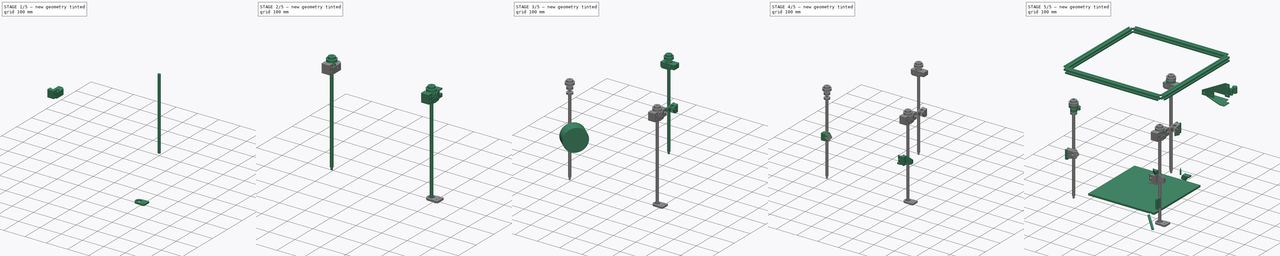
[diagram: build sequence overview — one tinted view per stage of 5, left to right]
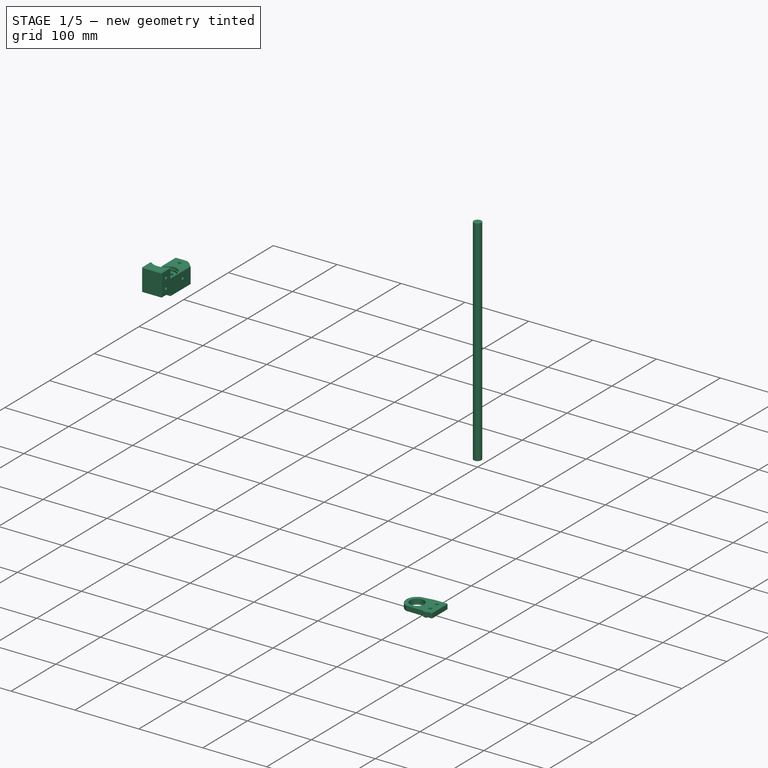
[diagram: stage 1 of 5 — iso view after this stage's code; geometry added in this stage tinted green]
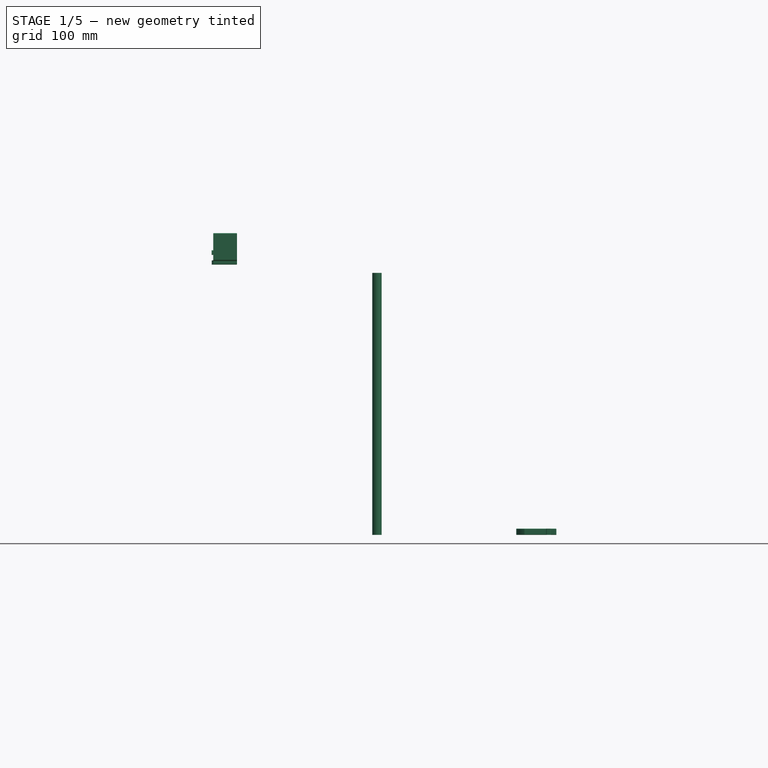
[diagram: stage 1 of 5 — front view after this stage's code; geometry added in this stage tinted green]
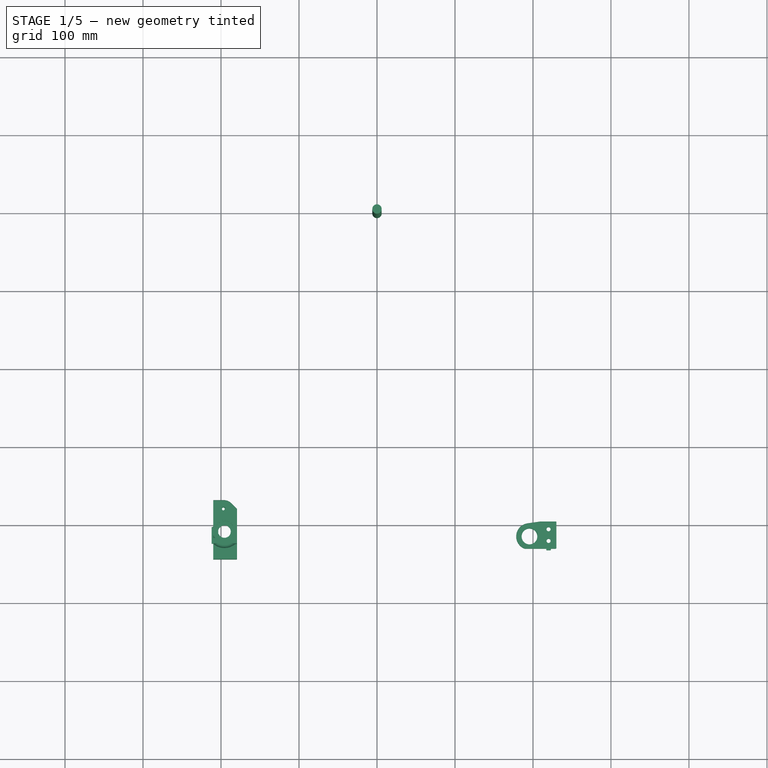
[diagram: stage 1 of 5 — top view after this stage's code; geometry added in this stage tinted green]
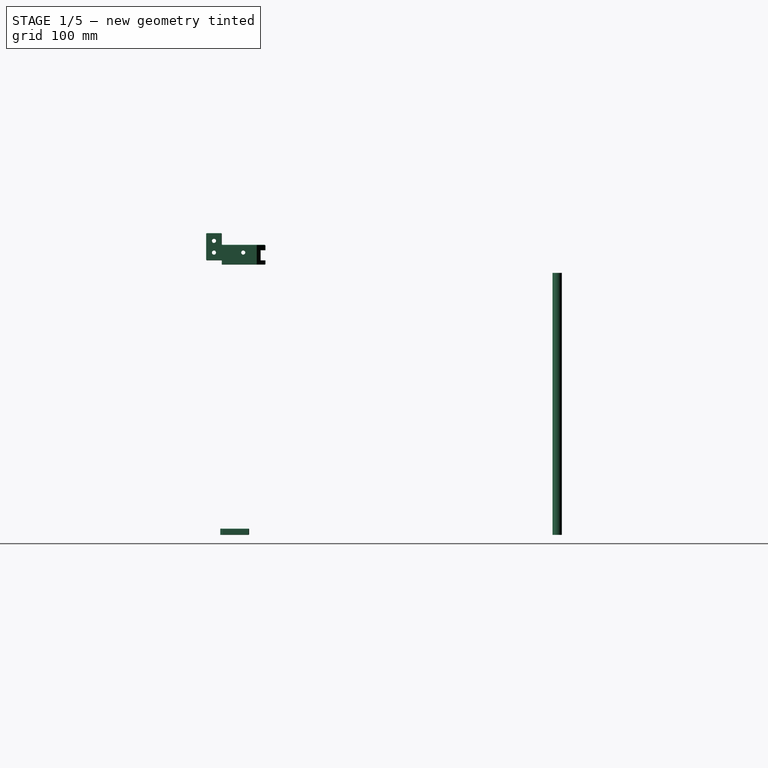
[diagram: stage 1 of 5 — right view after this stage's code; geometry added in this stage tinted green]
FCSTD DOCUMENT  (FreeCAD 0.20RUnknown)
Label: Artificer
License: All rights reserved
LicenseURL: http://en.wikipedia.org/wiki/All_rights_reserved
objects: Sketcher::SketchObject×174, App::FeaturePython×168, Part::Extrusion×165, Part::FeaturePython×133, Part::Cut×110, Part::MultiFuse×29, Part::Mirroring×21, Part::SubShapeBinder×21, Part::Refine×18, Part::Feature×13, Part::Fillet×9, Part::Chamfer×7, Part::Revolution×7, Spreadsheet::Sheet×1, Part::MultiCommon×1
note: 870 computed .brp shape members not serialized (recipe doc carries the construction recipe); baked Part::Feature solids carry a one-line shape summary decoded from their .brp

FEATURE [Sketcher::SketchObject] Sketch
  ArcFitTolerance = 1e-06
  ExternalBSplineMaxDegree = 5
  ExternalBSplineTolerance = 0.0001
  FullyConstrained = true
  InternalTolerance = 1e-06
  MakeInternals = false
  Placement = pos=(0,0,0) rot=(0.57735,0.57735,0.57735;2.0944rad)
  TreeRank = 1
  sketch-geometry (67):
    g0: LineSegment [constr] StartX=10 StartY=-10 StartZ=0 EndX=-10 EndY=-10 EndZ=0
    g1: LineSegment [constr] StartX=-10 StartY=-10 StartZ=0 EndX=-10 EndY=10 EndZ=0
    g2: LineSegment [constr] StartX=-10 StartY=10 StartZ=0 EndX=10 EndY=10 EndZ=0
    g3: LineSegment [constr] StartX=10 StartY=10 StartZ=0 EndX=10 EndY=-10 EndZ=0
    g4: LineSegment [constr] StartX=-10 StartY=10 StartZ=0 EndX=0 EndY=0 EndZ=0
    g5: LineSegment [constr] StartX=0 StartY=0 StartZ=0 EndX=10 EndY=10 EndZ=0
    g6: LineSegment [constr] StartX=0 StartY=0 StartZ=0 EndX=10 EndY=-10 EndZ=0
    g7: LineSegment [constr] StartX=0 StartY=0 StartZ=0 EndX=-10 EndY=-10 EndZ=0
    g8: LineSegment StartX=-9 StartY=10 StartZ=0 EndX=-3 EndY=10 EndZ=0
    g9: ArcOfCircle CenterX=-9 CenterY=9 CenterZ=0 NormalX=0 NormalY=0 NormalZ=1 AngleXU=0 Radius=1 StartAngle=1.5708 EndAngle=3.14159
    g10: LineSegment StartX=-10 StartY=9 StartZ=0 EndX=-10 EndY=3 EndZ=0
    g11: LineSegment StartX=-10 StartY=-3 StartZ=0 EndX=-10 EndY=-9 EndZ=0
    g12: LineSegment StartX=-9 StartY=-10 StartZ=0 EndX=-3 EndY=-10 EndZ=0
    g13: LineSegment StartX=3 StartY=-10 StartZ=0 EndX=9 EndY=-10 EndZ=0
    g14: LineSegment StartX=10 StartY=-9 StartZ=0 EndX=10 EndY=-3 EndZ=0
    g15: LineSegment StartX=10 StartY=9 StartZ=0 EndX=10 EndY=3 EndZ=0
    g16: LineSegment StartX=9 StartY=10 StartZ=0 EndX=3 EndY=10 EndZ=0
    g17: ArcOfCircle CenterX=9 CenterY=9 CenterZ=0 NormalX=0 NormalY=0 NormalZ=1 AngleXU=0 Radius=1 StartAngle=9e-16 EndAngle=1.5708
    g18: ArcOfCircle CenterX=9 CenterY=-9 CenterZ=0 NormalX=0 NormalY=0 NormalZ=1 AngleXU=0 Radius=1 StartAngle=4.71239 EndAngle=6.28319
    g19: ArcOfCircle CenterX=-9 CenterY=-9 CenterZ=0 NormalX=0 NormalY=0 NormalZ=1 AngleXU=0 Radius=1 StartAngle=3.14159 EndAngle=4.71239
    g20: LineSegment [constr] StartX=-6 StartY=6 StartZ=0 EndX=6 EndY=6 EndZ=0
    g21: LineSegment [constr] StartX=6 StartY=6 StartZ=0 EndX=6 EndY=-6 EndZ=0
    g22: LineSegment [constr] StartX=6 StartY=-6 StartZ=0 EndX=-6 EndY=-6 EndZ=0
    g23: LineSegment [constr] StartX=-6 StartY=-6 StartZ=0 EndX=-6 EndY=6 EndZ=0
    g24: LineSegment StartX=-3 StartY=10 StartZ=0 EndX=-3 EndY=8 EndZ=0
    g25: LineSegment StartX=3 StartY=10 StartZ=0 EndX=3 EndY=8 EndZ=0
    g26: LineSegment StartX=-10 StartY=3 StartZ=0 EndX=-8 EndY=3 EndZ=0
    g27: LineSegment StartX=-10 StartY=-3 StartZ=0 EndX=-8 EndY=-3 EndZ=0
    g28: LineSegment StartX=-3 StartY=-10 StartZ=0 EndX=-3 EndY=-8 EndZ=0
    g29: LineSegment StartX=3 StartY=-10 StartZ=0 EndX=3 EndY=-8 EndZ=0
    g30: LineSegment StartX=10 StartY=-3 StartZ=0 EndX=8 EndY=-3 EndZ=0
    g31: LineSegment StartX=10 StartY=3 StartZ=0 EndX=8 EndY=3 EndZ=0
    g32: LineSegment StartX=-8 StartY=3 StartZ=0 EndX=-8 EndY=6 EndZ=0
    g33: LineSegment StartX=-8 StartY=-3 StartZ=0 EndX=-8 EndY=-6 EndZ=0
    g34: LineSegment StartX=-8 StartY=6 StartZ=0 EndX=-7 EndY=6 EndZ=0
    g35: LineSegment StartX=-7 StartY=6 StartZ=0 EndX=-4 EndY=3 EndZ=0
    g36: LineSegment StartX=-8 StartY=-6 StartZ=0 EndX=-7 EndY=-6 EndZ=0
    g37: LineSegment StartX=-7 StartY=-6 StartZ=0 EndX=-4 EndY=-3 EndZ=0
    g38: LineSegment StartX=-4 StartY=3 StartZ=0 EndX=-4 EndY=-3 EndZ=0
    g39: LineSegment [constr] StartX=-4 StartY=4 StartZ=0 EndX=-4 EndY=-4 EndZ=0
    g40: LineSegment [constr] StartX=-4 StartY=-4 StartZ=0 EndX=4 EndY=-4 EndZ=0
    g41: LineSegment [constr] StartX=4 StartY=-4 StartZ=0 EndX=4 EndY=4 EndZ=0
    g42: LineSegment [constr] StartX=4 StartY=4 StartZ=0 EndX=-4 EndY=4 EndZ=0
    g43: LineSegment StartX=-3 StartY=4 StartZ=0 EndX=3 EndY=4 EndZ=0
    g44: LineSegment StartX=3 StartY=4 StartZ=0 EndX=6 EndY=7 EndZ=0
    g45: LineSegment StartX=-3 StartY=4 StartZ=0 EndX=-6 EndY=7 EndZ=0
    g46: LineSegment StartX=-6 StartY=7 StartZ=0 EndX=-6 EndY=8 EndZ=0
    g47: LineSegment StartX=6 StartY=7 StartZ=0 EndX=6 EndY=8 EndZ=0
    g48: LineSegment StartX=-6 StartY=8 StartZ=0 EndX=-3 EndY=8 EndZ=0
    g49: LineSegment StartX=6 StartY=8 StartZ=0 EndX=3 EndY=8 EndZ=0
    g50: LineSegment StartX=4 StartY=-3 StartZ=0 EndX=4 EndY=3 EndZ=0
    g51: LineSegment StartX=4 StartY=3 StartZ=0 EndX=7 EndY=6 EndZ=0
    g52: LineSegment StartX=4 StartY=-3 StartZ=0 EndX=7 EndY=-6 EndZ=0
    g53: LineSegment StartX=7 StartY=6 StartZ=0 EndX=8 EndY=6 EndZ=0
    g54: LineSegment StartX=7 StartY=-6 StartZ=0 EndX=8 EndY=-6 EndZ=0
    g55: LineSegment StartX=8 StartY=3 StartZ=0 EndX=8 EndY=6 EndZ=0
    g56: LineSegment StartX=8 StartY=-6 StartZ=0 EndX=8 EndY=-3 EndZ=0
    g57: LineSegment StartX=-3 StartY=-4 StartZ=0 EndX=3 EndY=-4 EndZ=0
    g58: LineSegment StartX=-3 StartY=-4 StartZ=0 EndX=-6 EndY=-7 EndZ=0
    g59: LineSegment StartX=3 StartY=-4 StartZ=0 EndX=6 EndY=-7 EndZ=0
    g60: LineSegment StartX=-6 StartY=-7 StartZ=0 EndX=-6 EndY=-8 EndZ=0
    g61: LineSegment StartX=6 StartY=-7 StartZ=0 EndX=6 EndY=-8 EndZ=0
    g62: LineSegment StartX=-6 StartY=-8 StartZ=0 EndX=-3 EndY=-8 EndZ=0
    g63: LineSegment StartX=3 StartY=-8 StartZ=0 EndX=6 EndY=-8 EndZ=0
    g64: Circle CenterX=0 CenterY=0 CenterZ=0 NormalX=0 NormalY=0 NormalZ=1 AngleXU=0 Radius=2.1
    g65: LineSegment [constr] StartX=10 StartY=10 StartZ=0 EndX=16.3205 EndY=0 EndZ=0
    g66: LineSegment [constr] StartX=16.3205 StartY=0 StartZ=0 EndX=10 EndY=-10 EndZ=0
  constraints (183):
    c: Coincident(g0,g1)
    c: Coincident(g1,g2)
    c: Coincident(g2,g3)
    c: Coincident(g3,g0)
    c: Distance(g2) = 20
    c: Coincident(g4,g1)
    c: Coincident(g5,g4)
    c: Coincident(g5,g2)
    c: Coincident(g6,g4)
    c: Coincident(g6,g0)
    c: Equal(g6,g5)
    c: Equal(g5,g4)
    c: Equal(g2,g0)
    c: Equal(g3,g1)
    c: Coincident(g7,g4)
    c: Coincident(g7,g0)
    c: Equal(g7,g5)
    c: PointOnObject(g8,g2)
    c: PointOnObject(g8,g2)
    c: PointOnObject(g9,g1)
    c: Tangent(g9,g8) = 1.5708
    c: PointOnObject(g10,g1)
    c: PointOnObject(g11,g1)
    c: PointOnObject(g11,g1)
    c: PointOnObject(g12,g0)
    c: PointOnObject(g12,g0)
    c: PointOnObject(g13,g0)
    c: PointOnObject(g13,g0)
    c: PointOnObject(g14,g3)
    c: PointOnObject(g14,g3)
    c: PointOnObject(g15,g3)
    c: PointOnObject(g15,g3)
    c: PointOnObject(g16,g2)
    c: PointOnObject(g16,g2)
    c: Tangent(g17,g16) = -1.5708
    c: Tangent(g17,g15) = 1.5708
    c: Tangent(g18,g14) = -1.5708
    c: Tangent(g18,g13) = -1.5708
    c: Tangent(g10,g9) = -1.5708
    c: Tangent(g19,g12) = -1.5708
    c: Tangent(g19,g11) = -1.5708
    c: Equal(g9,g17)
    c: Equal(g17,g18)
    c: Equal(g18,g19)
    c: Radius(g9) = 1
    c: Distance(g8,g16) = 6
    c: Distance(g15,g14) = 6
    c: Distance(g13,g12) = 6
    c: Distance(g11,g10) = 6
    c: PointOnObject(g20,g4)
    c: PointOnObject(g20,g5)
    c: Coincident(g21,g20)
    c: PointOnObject(g21,g6)
    c: Coincident(g22,g21)
    c: PointOnObject(g22,g7)
    c: Coincident(g23,g22)
    c: Coincident(g23,g20)
    c: Equal(g20,g23)
    c: Equal(g20,g22)
    c: Parallel(g23,g1)
    c: Distance(g20,g20) = 12
    c: Equal(g15,g14)
    c: Equal(g16,g8)
    c: Equal(g10,g11)
    c: Equal(g12,g13)
    c: Coincident(g24,g8)
    c: Coincident(g25,g16)
    c: Coincident(g26,g10)
    c: Coincident(g27,g11)
    c: Coincident(g28,g12)
    c: Coincident(g29,g13)
    c: Coincident(g30,g14)
    c: Coincident(g31,g15)
    c: Equal(g25,g24)
    c: Equal(g24,g26)
    c: Equal(g26,g27)
    c: Equal(g27,g28)
    c: Equal(g28,g29)
    c: Equal(g29,g30)
    c: Equal(g30,g31)
    c: Angle(g25,g16) = 1.5708
    c: Angle(g8,g24) = 1.5708
    c: Angle(g26,g10) = 1.5708
    c: Angle(g11,g27) = 1.5708
    c: Angle(g15,g31) = 1.5708
    c: Angle(g30,g14) = 1.5708
    c: Distance(g24) = 2
    c: Coincident(g32,g26)
    c: Coincident(g33,g27)
    c: Angle(g13,g29) = 1.5708
    c: Angle(g28,g12) = 1.5708
    c: Parallel(g32,g10)
    c: Parallel(g33,g11)
    c: Coincident(g34,g32)
    c: Coincident(g35,g34)
    c: Parallel(g35,g4)
    c: Coincident(g36,g33)
    c: Coincident(g37,g36)
    c: Parallel(g37,g7)
    c: Coincident(g38,g35)
    c: Coincident(g38,g37)
    c: Tangent(g34,g20)
    c: Tangent(g22,g36)
    c: Equal(g37,g35)
    c: PointOnObject(g39,g4)
    c: PointOnObject(g39,g7)
    c: Coincident(g40,g39)
    c: PointOnObject(g40,g6)
    c: Coincident(g41,g40)
    c: PointOnObject(g41,g5)
    c: Coincident(g42,g41)
    c: Coincident(g42,g39)
    c: Equal(g42,g39)
    c: Equal(g42,g40)
    c: Parallel(g39,g1)
    c: Distance(g42) = 8
    c: PointOnObject(g35,g39)
    c: PointOnObject(g37,g39)
    c: Distance(g38) = 6
    c: PointOnObject(g43,g42)
    c: PointOnObject(g43,g42)
    c: Coincident(g44,g43)
    c: Coincident(g45,g43)
    c: Parallel(g45,g4)
    c: Parallel(g44,g5)
    c: Coincident(g46,g45)
    c: Coincident(g47,g44)
    c: Tangent(g47,g21)
    c: Tangent(g46,g23)
    c: Coincident(g48,g46)
    c: Coincident(g48,g24)
    c: Coincident(g49,g47)
    c: Coincident(g49,g25)
    c: Parallel(g48,g8)
    c: Parallel(g49,g16)
    c: Equal(g45,g44)
    c: PointOnObject(g50,g41)
    c: PointOnObject(g50,g41)
    c: Coincident(g51,g50)
    c: Coincident(g52,g50)
    c: Parallel(g51,g5)
    c: Parallel(g52,g6)
    c: Equal(g51,g52)
    c: Coincident(g53,g51)
    c: Coincident(g54,g52)
    c: Tangent(g54,g22)
    c: Tangent(g53,g20)
    c: Coincident(g55,g31)
    c: Coincident(g55,g53)
    c: Coincident(g56,g54)
    c: Coincident(g56,g30)
    c: Parallel(g55,g15)
    c: Parallel(g56,g14)
    c: Equal(g43,g38)
    c: Equal(g50,g43)
    c: PointOnObject(g57,g40)
    c: PointOnObject(g57,g40)
    c: Equal(g57,g38)
    c: Coincident(g58,g57)
    c: Coincident(g59,g57)
    c: Parallel(g6,g59)
    c: Parallel(g58,g37)
    c: Equal(g59,g58)
    c: Coincident(g60,g58)
    c: Coincident(g61,g59)
    c: Tangent(g61,g21)
    c: Tangent(g60,g23)
    c: Coincident(g62,g60)
    c: Coincident(g62,g28)
    c: Coincident(g63,g29)
    c: Coincident(g63,g61)
    c: Parallel(g63,g13)
    c: Parallel(g62,g12)
    c: Coincident(g64,g4)
    c: Diameter(g64) = 4.2
    c: Coincident(g-1,g64)
    c: Coincident(g65,g2)
    c: Coincident(g66,g65)
    c: Coincident(g66,g0)
    c: Equal(g65,g66)
    c: PointOnObject(g65,g-1)
    c: Distance(g2,g65) = 11.83
    c: Equal(g3,g2)
FEATURE [Part::Extrusion] Extrude
  AutoTaperInnerAngle = true
  Base = -> Sketch
  Dir = (1,1e-16,-1e-16)
  DirMode = 2
  FaceMakerClass = Part::FaceMakerBullseye
  LengthFwd = 210
  LengthRev = 210
  Linearize = true
  Solid = true
  Symmetric = false
  TaperInnerAngle = 0
  TaperInnerAngleRev = 0
  TreeRank = 50
  expr: LengthFwd = <<GlobalVars>>.x_axis_extrusion_length / 2
  expr: LengthRev = <<GlobalVars>>.x_axis_extrusion_length / 2
FEATURE [Sketcher::SketchObject] Sketch002
  ArcFitTolerance = 1e-06
  AttachmentSupport = -> [Extrude]
  ExternalBSplineMaxDegree = 5
  ExternalBSplineTolerance = 0.0001
  ExternalGeometry = -> [Extrude]
  FullyConstrained = true
  InternalTolerance = 1e-06
  MakeInternals = false
  MapMode = 5
  Placement = pos=(-1.1e-15,1.1e-15,-10) rot=(1,0,0;3.14159rad)
  Support = -> [Extrude]
  TreeRank = 6
  expr: Constraints[114] = Sketch.Constraints[115]
  expr: Constraints[117] = Sketch.Constraints[118]
  expr: Constraints[173] = Sketch.Constraints[174]
  expr: Constraints[43] = Sketch.Constraints[44]
  expr: Constraints[44] = Sketch.Constraints[45]
  expr: Constraints[45] = Sketch.Constraints[46]
  expr: Constraints[46] = Sketch.Constraints[47]
  expr: Constraints[47] = Sketch.Constraints[48]
  expr: Constraints[59] = Sketch.Constraints[60]
  expr: Constraints[79] = Sketch.Constraints[80]
  expr: Constraints[80] = Sketch.Constraints[81]
  expr: Constraints[81] = Sketch.Constraints[82]
  expr: Constraints[82] = Sketch.Constraints[83]
  expr: Constraints[83] = Sketch.Constraints[84]
  expr: Constraints[84] = Sketch.Constraints[85]
  expr: Constraints[85] = Sketch.Constraints[86]
  expr: Constraints[88] = Sketch.Constraints[89]
  expr: Constraints[89] = Sketch.Constraints[90]
  sketch-geometry (65):
    g0: LineSegment [constr] StartX=-210 StartY=-10 StartZ=0 EndX=-230 EndY=-10 EndZ=0
    g1: LineSegment [constr] StartX=-230 StartY=-10 StartZ=0 EndX=-230 EndY=10 EndZ=0
    g2: LineSegment [constr] StartX=-230 StartY=10 StartZ=0 EndX=-210 EndY=10 EndZ=0
    g3: LineSegment [constr] StartX=-210 StartY=10 StartZ=0 EndX=-210 EndY=-10 EndZ=0
    g4: LineSegment [constr] StartX=-230 StartY=10 StartZ=0 EndX=-220 EndY=0 EndZ=0
    g5: LineSegment [constr] StartX=-220 StartY=-8e-16 StartZ=0 EndX=-210 EndY=10 EndZ=0
    g6: LineSegment [constr] StartX=-220 StartY=-8e-16 StartZ=0 EndX=-210 EndY=-10 EndZ=0
    g7: LineSegment [constr] StartX=-220 StartY=-8e-16 StartZ=0 EndX=-230 EndY=-10 EndZ=0
    g8: LineSegment StartX=-229 StartY=10 StartZ=0 EndX=-223 EndY=10 EndZ=0
    g9: ArcOfCircle CenterX=-229 CenterY=9 CenterZ=0 NormalX=0 NormalY=0 NormalZ=1 AngleXU=0 Radius=1 StartAngle=1.5708 EndAngle=3.14159
    g10: LineSegment StartX=-230 StartY=9 StartZ=0 EndX=-230 EndY=3 EndZ=0
    g11: LineSegment StartX=-230 StartY=-3 StartZ=0 EndX=-230 EndY=-9 EndZ=0
    g12: LineSegment StartX=-229 StartY=-10 StartZ=0 EndX=-223 EndY=-10 EndZ=0
    g13: LineSegment StartX=-217 StartY=-10 StartZ=0 EndX=-211 EndY=-10 EndZ=0
    g14: LineSegment StartX=-210 StartY=-9 StartZ=0 EndX=-210 EndY=-3 EndZ=0
    g15: LineSegment StartX=-210 StartY=9 StartZ=0 EndX=-210 EndY=3 EndZ=0
    g16: LineSegment StartX=-211 StartY=10 StartZ=0 EndX=-217 EndY=10 EndZ=0
    g17: ArcOfCircle CenterX=-211 CenterY=9 CenterZ=0 NormalX=0 NormalY=0 NormalZ=1 AngleXU=0 Radius=1 StartAngle=-2.922e-13 EndAngle=1.5708
    g18: ArcOfCircle CenterX=-211 CenterY=-9 CenterZ=0 NormalX=0 NormalY=0 NormalZ=1 AngleXU=0 Radius=1 StartAngle=4.71239 EndAngle=6.28319
    g19: ArcOfCircle CenterX=-229 CenterY=-9 CenterZ=0 NormalX=0 NormalY=0 NormalZ=1 AngleXU=0 Radius=1 StartAngle=3.14159 EndAngle=4.71239
    g20: LineSegment [constr] StartX=-226 StartY=6 StartZ=0 EndX=-214 EndY=6 EndZ=0
    g21: LineSegment [constr] StartX=-214 StartY=6 StartZ=0 EndX=-214 EndY=-6 EndZ=0
    g22: LineSegment [constr] StartX=-214 StartY=-6 StartZ=0 EndX=-226 EndY=-6 EndZ=0
    g23: LineSegment [constr] StartX=-226 StartY=-6 StartZ=0 EndX=-226 EndY=6 EndZ=0
    g24: LineSegment StartX=-223 StartY=10 StartZ=0 EndX=-223 EndY=8 EndZ=0
    g25: LineSegment StartX=-217 StartY=10 StartZ=0 EndX=-217 EndY=8 EndZ=0
    g26: LineSegment StartX=-230 StartY=3 StartZ=0 EndX=-228 EndY=3 EndZ=0
    g27: LineSegment StartX=-230 StartY=-3 StartZ=0 EndX=-228 EndY=-3 EndZ=0
    g28: LineSegment StartX=-223 StartY=-10 StartZ=0 EndX=-223 EndY=-8 EndZ=0
    g29: LineSegment StartX=-217 StartY=-10 StartZ=0 EndX=-217 EndY=-8 EndZ=0
    g30: LineSegment StartX=-210 StartY=-3 StartZ=0 EndX=-212 EndY=-3 EndZ=0
    g31: LineSegment StartX=-210 StartY=3 StartZ=0 EndX=-212 EndY=3 EndZ=0
    g32: LineSegment StartX=-228 StartY=3 StartZ=0 EndX=-228 EndY=6 EndZ=0
    g33: LineSegment StartX=-228 StartY=-3 StartZ=0 EndX=-228 EndY=-6 EndZ=0
    g34: LineSegment StartX=-228 StartY=6 StartZ=0 EndX=-227 EndY=6 EndZ=0
    g35: LineSegment StartX=-227 StartY=6 StartZ=0 EndX=-224 EndY=3 EndZ=0
    g36: LineSegment StartX=-228 StartY=-6 StartZ=0 EndX=-227 EndY=-6 EndZ=0
    g37: LineSegment StartX=-227 StartY=-6 StartZ=0 EndX=-224 EndY=-3 EndZ=0
    g38: LineSegment StartX=-224 StartY=3 StartZ=0 EndX=-224 EndY=-3 EndZ=0
    g39: LineSegment [constr] StartX=-224 StartY=4 StartZ=0 EndX=-224 EndY=-4 EndZ=0
    g40: LineSegment [constr] StartX=-224 StartY=-4 StartZ=0 EndX=-216 EndY=-4 EndZ=0
    g41: LineSegment [constr] StartX=-216 StartY=-4 StartZ=0 EndX=-216 EndY=4 EndZ=0
    g42: LineSegment [constr] StartX=-216 StartY=4 StartZ=0 EndX=-224 EndY=4 EndZ=0
    g43: LineSegment StartX=-223 StartY=4 StartZ=0 EndX=-217 EndY=4 EndZ=0
    g44: LineSegment StartX=-217 StartY=4 StartZ=0 EndX=-214 EndY=7 EndZ=0
    g45: LineSegment StartX=-223 StartY=4 StartZ=0 EndX=-226 EndY=7 EndZ=0
    g46: LineSegment StartX=-226 StartY=7 StartZ=0 EndX=-226 EndY=8 EndZ=0
    g47: LineSegment StartX=-214 StartY=7 StartZ=0 EndX=-214 EndY=8 EndZ=0
    g48: LineSegment StartX=-226 StartY=8 StartZ=0 EndX=-223 EndY=8 EndZ=0
    g49: LineSegment StartX=-214 StartY=8 StartZ=0 EndX=-217 EndY=8 EndZ=0
    g50: LineSegment StartX=-216 StartY=-3 StartZ=0 EndX=-216 EndY=3 EndZ=0
    g51: LineSegment StartX=-216 StartY=3 StartZ=0 EndX=-213 EndY=6 EndZ=0
    g52: LineSegment StartX=-216 StartY=-3 StartZ=0 EndX=-213 EndY=-6 EndZ=0
    g53: LineSegment StartX=-213 StartY=6 StartZ=0 EndX=-212 EndY=6 EndZ=0
    g54: LineSegment StartX=-213 StartY=-6 StartZ=0 EndX=-212 EndY=-6 EndZ=0
    g55: LineSegment StartX=-212 StartY=3 StartZ=0 EndX=-212 EndY=6 EndZ=0
    g56: LineSegment StartX=-212 StartY=-6 StartZ=0 EndX=-212 EndY=-3 EndZ=0
    g57: LineSegment StartX=-223 StartY=-4 StartZ=0 EndX=-217 EndY=-4 EndZ=0
    g58: LineSegment StartX=-223 StartY=-4 StartZ=0 EndX=-226 EndY=-7 EndZ=0
    g59: LineSegment StartX=-217 StartY=-4 StartZ=0 EndX=-214 EndY=-7 EndZ=0
    g60: LineSegment StartX=-226 StartY=-7 StartZ=0 EndX=-226 EndY=-8 EndZ=0
    g61: LineSegment StartX=-214 StartY=-7 StartZ=0 EndX=-214 EndY=-8 EndZ=0
    g62: LineSegment StartX=-226 StartY=-8 StartZ=0 EndX=-223 EndY=-8 EndZ=0
    g63: LineSegment StartX=-217 StartY=-8 StartZ=0 EndX=-214 EndY=-8 EndZ=0
    g64: Circle CenterX=-220 CenterY=-8e-16 CenterZ=0 NormalX=0 NormalY=0 NormalZ=1 AngleXU=0 Radius=2.1
  constraints (177):
    c: Coincident(g0,g1)
    c: Coincident(g1,g2)
    c: Coincident(g2,g3)
    c: Coincident(g3,g0)
    c: Coincident(g4,g1)
    c: Coincident(g5,g4)
    c: Coincident(g5,g2)
    c: Coincident(g6,g4)
    c: Coincident(g6,g0)
    c: Equal(g6,g5)
    c: Equal(g5,g4)
    c: Equal(g2,g0)
    c: Equal(g3,g1)
    c: Coincident(g7,g4)
    c: Coincident(g7,g0)
    c: Equal(g7,g5)
    c: PointOnObject(g8,g2)
    c: PointOnObject(g8,g2)
    c: PointOnObject(g9,g1)
    c: Tangent(g9,g8) = 1.5708
    c: PointOnObject(g10,g1)
    c: PointOnObject(g11,g1)
    c: PointOnObject(g11,g1)
    c: PointOnObject(g12,g0)
    c: PointOnObject(g12,g0)
    c: PointOnObject(g13,g0)
    c: PointOnObject(g13,g0)
    c: PointOnObject(g14,g3)
    c: PointOnObject(g14,g3)
    c: PointOnObject(g15,g3)
    c: PointOnObject(g15,g3)
    c: PointOnObject(g16,g2)
    c: PointOnObject(g16,g2)
    c: Tangent(g17,g16) = -1.5708
    c: Tangent(g17,g15) = 1.5708
    c: Tangent(g18,g14) = -1.5708
    c: Tangent(g18,g13) = -1.5708
    c: Tangent(g10,g9) = -1.5708
    c: Tangent(g19,g12) = -1.5708
    c: Tangent(g19,g11) = -1.5708
    c: Equal(g9,g17)
    c: Equal(g17,g18)
    c: Equal(g18,g19)
    c: Radius(g9) = 1
    c: Distance(g8,g16) = 6
    c: Distance(g15,g14) = 6
    c: Distance(g13,g12) = 6
    c: Distance(g11,g10) = 6
    c: PointOnObject(g20,g4)
    c: PointOnObject(g20,g5)
    c: Coincident(g21,g20)
    c: PointOnObject(g21,g6)
    c: Coincident(g22,g21)
    c: PointOnObject(g22,g7)
    c: Coincident(g23,g22)
    c: Coincident(g23,g20)
    c: Equal(g20,g23)
    c: Equal(g20,g22)
    c: Parallel(g23,g1)
    c: Distance(g20,g20) = 12
    c: Equal(g15,g14)
    c: Equal(g16,g8)
    c: Equal(g10,g11)
    c: Equal(g12,g13)
    c: Coincident(g24,g8)
    c: Coincident(g25,g16)
    c: Coincident(g26,g10)
    c: Coincident(g27,g11)
    c: Coincident(g28,g12)
    c: Coincident(g29,g13)
    c: Coincident(g30,g14)
    c: Coincident(g31,g15)
    c: Equal(g25,g24)
    c: Equal(g24,g26)
    c: Equal(g26,g27)
    c: Equal(g27,g28)
    c: Equal(g28,g29)
    c: Equal(g29,g30)
    c: Equal(g30,g31)
    c: Angle(g25,g16) = 1.5708
    c: Angle(g8,g24) = 1.5708
    c: Angle(g26,g10) = 1.5708
    c: Angle(g11,g27) = 1.5708
    c: Angle(g15,g31) = 1.5708
    c: Angle(g30,g14) = 1.5708
    c: Distance(g24) = 2
    c: Coincident(g32,g26)
    c: Coincident(g33,g27)
    c: Angle(g13,g29) = 1.5708
    c: Angle(g28,g12) = 1.5708
    c: Parallel(g32,g10)
    c: Parallel(g33,g11)
    c: Coincident(g34,g32)
    c: Coincident(g35,g34)
    c: Parallel(g35,g4)
    c: Coincident(g36,g33)
    c: Coincident(g37,g36)
    c: Parallel(g37,g7)
    c: Coincident(g38,g35)
    c: Coincident(g38,g37)
    c: Tangent(g34,g20)
    c: Tangent(g22,g36)
    c: Equal(g37,g35)
    c: PointOnObject(g39,g4)
    c: PointOnObject(g39,g7)
    c: Coincident(g40,g39)
    c: PointOnObject(g40,g6)
    c: Coincident(g41,g40)
    c: PointOnObject(g41,g5)
    c: Coincident(g42,g41)
    c: Coincident(g42,g39)
    c: Equal(g42,g39)
    c: Equal(g42,g40)
    c: Parallel(g39,g1)
    c: Distance(g42) = 8
    c: PointOnObject(g35,g39)
    c: PointOnObject(g37,g39)
    c: Distance(g38) = 6
    c: PointOnObject(g43,g42)
    c: PointOnObject(g43,g42)
    c: Coincident(g44,g43)
    c: Coincident(g45,g43)
    c: Parallel(g45,g4)
    c: Parallel(g44,g5)
    c: Coincident(g46,g45)
    c: Coincident(g47,g44)
    c: Tangent(g47,g21)
    c: Tangent(g46,g23)
    c: Coincident(g48,g46)
    c: Coincident(g48,g24)
    c: Coincident(g49,g47)
    c: Coincident(g49,g25)
    c: Parallel(g48,g8)
    c: Parallel(g49,g16)
    c: Equal(g45,g44)
    c: PointOnObject(g50,g41)
    c: PointOnObject(g50,g41)
    c: Coincident(g51,g50)
    c: Coincident(g52,g50)
    c: Parallel(g51,g5)
    c: Parallel(g52,g6)
    c: Equal(g51,g52)
    c: Coincident(g53,g51)
    c: Coincident(g54,g52)
    c: Tangent(g54,g22)
    c: Tangent(g53,g20)
    c: Coincident(g55,g31)
    c: Coincident(g55,g53)
    c: Coincident(g56,g54)
    c: Coincident(g56,g30)
    c: Parallel(g55,g15)
    c: Parallel(g56,g14)
    c: Equal(g43,g38)
    c: Equal(g50,g43)
    c: PointOnObject(g57,g40)
    c: PointOnObject(g57,g40)
    c: Equal(g57,g38)
    c: Coincident(g58,g57)
    c: Coincident(g59,g57)
    c: Parallel(g6,g59)
    c: Parallel(g58,g37)
    c: Equal(g59,g58)
    c: Coincident(g60,g58)
    c: Coincident(g61,g59)
    c: Tangent(g61,g21)
    c: Tangent(g60,g23)
    c: Coincident(g62,g60)
    c: Coincident(g62,g28)
    c: Coincident(g63,g29)
    c: Coincident(g63,g61)
    c: Parallel(g63,g13)
    c: Parallel(g62,g12)
    c: Coincident(g64,g4)
    c: Diameter(g64) = 4.2
    c: Equal(g3,g2)
    c: Coincident(g0,g-4)
    c: Coincident(g2,g-3)
FEATURE [Part::Extrusion] Extrude002
  AutoTaperInnerAngle = true
  Base = -> Sketch002
  Dir = (-2e-16,3e-16,-1)
  DirMode = 2
  FaceMakerClass = Part::FaceMakerBullseye
  LengthFwd = 0
  LengthRev = 560
  Linearize = true
  Solid = true
  Symmetric = false
  TaperInnerAngle = 0
  TaperInnerAngleRev = 0
  TreeRank = 49
  expr: LengthRev = <<GlobalVars>>.z_axis_extrusion_length
FEATURE [Sketcher::SketchObject] Sketch004
  ArcFitTolerance = 1e-06
  AttachmentSupport = -> [Extrude002]
  ExternalBSplineMaxDegree = 5
  ExternalBSplineTolerance = 0.0001
  ExternalGeometry = -> [Extrude002]
  FullyConstrained = true
  InternalTolerance = 1e-06
  MakeInternals = false
  MapMode = 5
  Placement = pos=(3e-15,-10,-3.2e-15) rot=(1,0,0;1.5708rad)
  Support = -> [Extrude002]
  TreeRank = 10
  expr: Constraints[114] = Sketch.Constraints[115]
  expr: Constraints[117] = Sketch.Constraints[118]
  expr: Constraints[173] = Sketch.Constraints[174]
  expr: Constraints[43] = Sketch.Constraints[44]
  expr: Constraints[44] = Sketch.Constraints[45]
  expr: Constraints[45] = Sketch.Constraints[46]
  expr: Constraints[46] = Sketch.Constraints[47]
  expr: Constraints[47] = Sketch.Constraints[48]
  expr: Constraints[59] = Sketch.Constraints[60]
  expr: Constraints[79] = Sketch.Constraints[80]
  expr: Constraints[80] = Sketch.Constraints[81]
  expr: Constraints[81] = Sketch.Constraints[82]
  expr: Constraints[82] = Sketch.Constraints[83]
  expr: Constraints[83] = Sketch.Constraints[84]
  expr: Constraints[84] = Sketch.Constraints[85]
  expr: Constraints[85] = Sketch.Constraints[86]
  expr: Constraints[88] = Sketch.Constraints[89]
  expr: Constraints[89] = Sketch.Constraints[90]
  sketch-geometry (65):
    g0: LineSegment [constr] StartX=-210 StartY=-10 StartZ=0 EndX=-230 EndY=-10 EndZ=0
    g1: LineSegment [constr] StartX=-230 StartY=-10 StartZ=0 EndX=-230 EndY=10 EndZ=0
    g2: LineSegment [constr] StartX=-230 StartY=10 StartZ=0 EndX=-210 EndY=10 EndZ=0
    g3: LineSegment [constr] StartX=-210 StartY=10 StartZ=0 EndX=-210 EndY=-10 EndZ=0
    g4: LineSegment [constr] StartX=-230 StartY=10 StartZ=0 EndX=-220 EndY=1.936e-13 EndZ=0
    g5: LineSegment [constr] StartX=-220 StartY=1.933e-13 StartZ=0 EndX=-210 EndY=10 EndZ=0
    g6: LineSegment [constr] StartX=-220 StartY=1.933e-13 StartZ=0 EndX=-210 EndY=-10 EndZ=0
    g7: LineSegment [constr] StartX=-220 StartY=1.933e-13 StartZ=0 EndX=-230 EndY=-10 EndZ=0
    g8: LineSegment StartX=-229 StartY=10 StartZ=0 EndX=-223 EndY=10 EndZ=0
    g9: ArcOfCircle CenterX=-229 CenterY=9 CenterZ=0 NormalX=0 NormalY=0 NormalZ=1 AngleXU=0 Radius=1 StartAngle=1.5708 EndAngle=3.14159
    g10: LineSegment StartX=-230 StartY=9 StartZ=0 EndX=-230 EndY=3 EndZ=0
    g11: LineSegment StartX=-230 StartY=-3 StartZ=0 EndX=-230 EndY=-9 EndZ=0
    g12: LineSegment StartX=-229 StartY=-10 StartZ=0 EndX=-223 EndY=-10 EndZ=0
    g13: LineSegment StartX=-217 StartY=-10 StartZ=0 EndX=-211 EndY=-10 EndZ=0
    g14: LineSegment StartX=-210 StartY=-9 StartZ=0 EndX=-210 EndY=-3 EndZ=0
    g15: LineSegment StartX=-210 StartY=9 StartZ=0 EndX=-210 EndY=3 EndZ=0
    g16: LineSegment StartX=-211 StartY=10 StartZ=0 EndX=-217 EndY=10 EndZ=0
    g17: ArcOfCircle CenterX=-211 CenterY=9 CenterZ=0 NormalX=0 NormalY=0 NormalZ=1 AngleXU=0 Radius=1 StartAngle=-2.04e-14 EndAngle=1.5708
    g18: ArcOfCircle CenterX=-211 CenterY=-9 CenterZ=0 NormalX=0 NormalY=0 NormalZ=1 AngleXU=0 Radius=1 StartAngle=4.71239 EndAngle=6.28319
    g19: ArcOfCircle CenterX=-229 CenterY=-9 CenterZ=0 NormalX=0 NormalY=0 NormalZ=1 AngleXU=0 Radius=1 StartAngle=3.14159 EndAngle=4.71239
    g20: LineSegment [constr] StartX=-226 StartY=6 StartZ=0 EndX=-214 EndY=6 EndZ=0
    g21: LineSegment [constr] StartX=-214 StartY=6 StartZ=0 EndX=-214 EndY=-6 EndZ=0
    g22: LineSegment [constr] StartX=-214 StartY=-6 StartZ=0 EndX=-226 EndY=-6 EndZ=0
    g23: LineSegment [constr] StartX=-226 StartY=-6 StartZ=0 EndX=-226 EndY=6 EndZ=0
    g24: LineSegment StartX=-223 StartY=10 StartZ=0 EndX=-223 EndY=8 EndZ=0
    g25: LineSegment StartX=-217 StartY=10 StartZ=0 EndX=-217 EndY=8 EndZ=0
    g26: LineSegment StartX=-230 StartY=3 StartZ=0 EndX=-228 EndY=3 EndZ=0
    g27: LineSegment StartX=-230 StartY=-3 StartZ=0 EndX=-228 EndY=-3 EndZ=0
    g28: LineSegment StartX=-223 StartY=-10 StartZ=0 EndX=-223 EndY=-8 EndZ=0
    g29: LineSegment StartX=-217 StartY=-10 StartZ=0 EndX=-217 EndY=-8 EndZ=0
    g30: LineSegment StartX=-210 StartY=-3 StartZ=0 EndX=-212 EndY=-3 EndZ=0
    g31: LineSegment StartX=-210 StartY=3 StartZ=0 EndX=-212 EndY=3 EndZ=0
    g32: LineSegment StartX=-228 StartY=3 StartZ=0 EndX=-228 EndY=6 EndZ=0
    g33: LineSegment StartX=-228 StartY=-3 StartZ=0 EndX=-228 EndY=-6 EndZ=0
    g34: LineSegment StartX=-228 StartY=6 StartZ=0 EndX=-227 EndY=6 EndZ=0
    g35: LineSegment StartX=-227 StartY=6 StartZ=0 EndX=-224 EndY=3 EndZ=0
    g36: LineSegment StartX=-228 StartY=-6 StartZ=0 EndX=-227 EndY=-6 EndZ=0
    g37: LineSegment StartX=-227 StartY=-6 StartZ=0 EndX=-224 EndY=-3 EndZ=0
    g38: LineSegment StartX=-224 StartY=3 StartZ=0 EndX=-224 EndY=-3 EndZ=0
    g39: LineSegment [constr] StartX=-224 StartY=4 StartZ=0 EndX=-224 EndY=-4 EndZ=0
    g40: LineSegment [constr] StartX=-224 StartY=-4 StartZ=0 EndX=-216 EndY=-4 EndZ=0
    g41: LineSegment [constr] StartX=-216 StartY=-4 StartZ=0 EndX=-216 EndY=4 EndZ=0
    g42: LineSegment [constr] StartX=-216 StartY=4 StartZ=0 EndX=-224 EndY=4 EndZ=0
    g43: LineSegment StartX=-223 StartY=4 StartZ=0 EndX=-217 EndY=4 EndZ=0
    g44: LineSegment StartX=-217 StartY=4 StartZ=0 EndX=-214 EndY=7 EndZ=0
    g45: LineSegment StartX=-223 StartY=4 StartZ=0 EndX=-226 EndY=7 EndZ=0
    g46: LineSegment StartX=-226 StartY=7 StartZ=0 EndX=-226 EndY=8 EndZ=0
    g47: LineSegment StartX=-214 StartY=7 StartZ=0 EndX=-214 EndY=8 EndZ=0
    g48: LineSegment StartX=-226 StartY=8 StartZ=0 EndX=-223 EndY=8 EndZ=0
    g49: LineSegment StartX=-214 StartY=8 StartZ=0 EndX=-217 EndY=8 EndZ=0
    g50: LineSegment StartX=-216 StartY=-3 StartZ=0 EndX=-216 EndY=3 EndZ=0
    g51: LineSegment StartX=-216 StartY=3 StartZ=0 EndX=-213 EndY=6 EndZ=0
    g52: LineSegment StartX=-216 StartY=-3 StartZ=0 EndX=-213 EndY=-6 EndZ=0
    g53: LineSegment StartX=-213 StartY=6 StartZ=0 EndX=-212 EndY=6 EndZ=0
    g54: LineSegment StartX=-213 StartY=-6 StartZ=0 EndX=-212 EndY=-6 EndZ=0
    g55: LineSegment StartX=-212 StartY=3 StartZ=0 EndX=-212 EndY=6 EndZ=0
    g56: LineSegment StartX=-212 StartY=-6 StartZ=0 EndX=-212 EndY=-3 EndZ=0
    g57: LineSegment StartX=-223 StartY=-4 StartZ=0 EndX=-217 EndY=-4 EndZ=0
    g58: LineSegment StartX=-223 StartY=-4 StartZ=0 EndX=-226 EndY=-7 EndZ=0
    g59: LineSegment StartX=-217 StartY=-4 StartZ=0 EndX=-214 EndY=-7 EndZ=0
    g60: LineSegment StartX=-226 StartY=-7 StartZ=0 EndX=-226 EndY=-8 EndZ=0
    g61: LineSegment StartX=-214 StartY=-7 StartZ=0 EndX=-214 EndY=-8 EndZ=0
    g62: LineSegment StartX=-226 StartY=-8 StartZ=0 EndX=-223 EndY=-8 EndZ=0
    g63: LineSegment StartX=-217 StartY=-8 StartZ=0 EndX=-214 EndY=-8 EndZ=0
    g64: Circle CenterX=-220 CenterY=1.933e-13 CenterZ=0 NormalX=0 NormalY=0 NormalZ=1 AngleXU=0 Radius=2.1
  constraints (177):
    c: Coincident(g0,g1)
    c: Coincident(g1,g2)
    c: Coincident(g2,g3)
    c: Coincident(g3,g0)
    c: Coincident(g4,g1)
    c: Coincident(g5,g4)
    c: Coincident(g5,g2)
    c: Coincident(g6,g4)
    c: Coincident(g6,g0)
    c: Equal(g6,g5)
    c: Equal(g5,g4)
    c: Equal(g2,g0)
    c: Equal(g3,g1)
    c: Coincident(g7,g4)
    c: Coincident(g7,g0)
    c: Equal(g7,g5)
    c: PointOnObject(g8,g2)
    c: PointOnObject(g8,g2)
    c: PointOnObject(g9,g1)
    c: Tangent(g9,g8) = 1.5708
    c: PointOnObject(g10,g1)
    c: PointOnObject(g11,g1)
    c: PointOnObject(g11,g1)
    c: PointOnObject(g12,g0)
    c: PointOnObject(g12,g0)
    c: PointOnObject(g13,g0)
    c: PointOnObject(g13,g0)
    c: PointOnObject(g14,g3)
    c: PointOnObject(g14,g3)
    c: PointOnObject(g15,g3)
    c: PointOnObject(g15,g3)
    c: PointOnObject(g16,g2)
    c: PointOnObject(g16,g2)
    c: Tangent(g17,g16) = -1.5708
    c: Tangent(g17,g15) = 1.5708
    c: Tangent(g18,g14) = -1.5708
    c: Tangent(g18,g13) = -1.5708
    c: Tangent(g10,g9) = -1.5708
    c: Tangent(g19,g12) = -1.5708
    c: Tangent(g19,g11) = -1.5708
    c: Equal(g9,g17)
    c: Equal(g17,g18)
    c: Equal(g18,g19)
    c: Radius(g9) = 1
    c: Distance(g8,g16) = 6
    c: Distance(g15,g14) = 6
    c: Distance(g13,g12) = 6
    c: Distance(g11,g10) = 6
    c: PointOnObject(g20,g4)
    c: PointOnObject(g20,g5)
    c: Coincident(g21,g20)
    c: PointOnObject(g21,g6)
    c: Coincident(g22,g21)
    c: PointOnObject(g22,g7)
    c: Coincident(g23,g22)
    c: Coincident(g23,g20)
    c: Equal(g20,g23)
    c: Equal(g20,g22)
    c: Parallel(g23,g1)
    c: Distance(g20,g20) = 12
    c: Equal(g15,g14)
    c: Equal(g16,g8)
    c: Equal(g10,g11)
    c: Equal(g12,g13)
    c: Coincident(g24,g8)
    c: Coincident(g25,g16)
    c: Coincident(g26,g10)
    c: Coincident(g27,g11)
    c: Coincident(g28,g12)
    c: Coincident(g29,g13)
    c: Coincident(g30,g14)
    c: Coincident(g31,g15)
    c: Equal(g25,g24)
    c: Equal(g24,g26)
    c: Equal(g26,g27)
    c: Equal(g27,g28)
    c: Equal(g28,g29)
    c: Equal(g29,g30)
    c: Equal(g30,g31)
    c: Angle(g25,g16) = 1.5708
    c: Angle(g8,g24) = 1.5708
    c: Angle(g26,g10) = 1.5708
    c: Angle(g11,g27) = 1.5708
    c: Angle(g15,g31) = 1.5708
    c: Angle(g30,g14) = 1.5708
    c: Distance(g24) = 2
    c: Coincident(g32,g26)
    c: Coincident(g33,g27)
    c: Angle(g13,g29) = 1.5708
    c: Angle(g28,g12) = 1.5708
    c: Parallel(g32,g10)
    c: Parallel(g33,g11)
    c: Coincident(g34,g32)
    c: Coincident(g35,g34)
    c: Parallel(g35,g4)
    c: Coincident(g36,g33)
    c: Coincident(g37,g36)
    c: Parallel(g37,g7)
    c: Coincident(g38,g35)
    c: Coincident(g38,g37)
    c: Tangent(g34,g20)
    c: Tangent(g22,g36)
    c: Equal(g37,g35)
    c: PointOnObject(g39,g4)
    c: PointOnObject(g39,g7)
    c: Coincident(g40,g39)
    c: PointOnObject(g40,g6)
    c: Coincident(g41,g40)
    c: PointOnObject(g41,g5)
    c: Coincident(g42,g41)
    c: Coincident(g42,g39)
    c: Equal(g42,g39)
    c: Equal(g42,g40)
    c: Parallel(g39,g1)
    c: Distance(g42) = 8
    c: PointOnObject(g35,g39)
    c: PointOnObject(g37,g39)
    c: Distance(g38) = 6
    c: PointOnObject(g43,g42)
    c: PointOnObject(g43,g42)
    c: Coincident(g44,g43)
    c: Coincident(g45,g43)
    c: Parallel(g45,g4)
    c: Parallel(g44,g5)
    c: Coincident(g46,g45)
    c: Coincident(g47,g44)
    c: Tangent(g47,g21)
    c: Tangent(g46,g23)
    c: Coincident(g48,g46)
    c: Coincident(g48,g24)
    c: Coincident(g49,g47)
    c: Coincident(g49,g25)
    c: Parallel(g48,g8)
    c: Parallel(g49,g16)
    c: Equal(g45,g44)
    c: PointOnObject(g50,g41)
    c: PointOnObject(g50,g41)
    c: Coincident(g51,g50)
    c: Coincident(g52,g50)
    c: Parallel(g51,g5)
    c: Parallel(g52,g6)
    c: Equal(g51,g52)
    c: Coincident(g53,g51)
    c: Coincident(g54,g52)
    c: Tangent(g54,g22)
    c: Tangent(g53,g20)
    c: Coincident(g55,g31)
    c: Coincident(g55,g53)
    c: Coincident(g56,g54)
    c: Coincident(g56,g30)
    c: Parallel(g55,g15)
    c: Parallel(g56,g14)
    c: Equal(g43,g38)
    c: Equal(g50,g43)
    c: PointOnObject(g57,g40)
    c: PointOnObject(g57,g40)
    c: Equal(g57,g38)
    c: Coincident(g58,g57)
    c: Coincident(g59,g57)
    c: Parallel(g6,g59)
    c: Parallel(g58,g37)
    c: Equal(g59,g58)
    c: Coincident(g60,g58)
    c: Coincident(g61,g59)
    c: Tangent(g61,g21)
    c: Tangent(g60,g23)
    c: Coincident(g62,g60)
    c: Coincident(g62,g28)
    c: Coincident(g63,g29)
    c: Coincident(g63,g61)
    c: Parallel(g63,g13)
    c: Parallel(g62,g12)
    c: Coincident(g64,g4)
    c: Diameter(g64) = 4.2
    c: Equal(g3,g2)
    c: Coincident(g0,g-4)
    c: Coincident(g0,g-3)
FEATURE [Part::Extrusion] Extrude004
  AutoTaperInnerAngle = true
  Base = -> Sketch004
  Dir = (3e-16,-1,-2e-16)
  DirMode = 2
  FaceMakerClass = Part::FaceMakerBullseye
  LengthFwd = 420
  LengthRev = 0
  Linearize = true
  Solid = true
  Symmetric = false
  TaperInnerAngle = 0
  TaperInnerAngleRev = 0
  TreeRank = 60
  expr: LengthFwd = <<GlobalVars>>.y_axis_extrusion_length
FEATURE [Spreadsheet::Sheet] Spreadsheet  label="GlobalVars"
  PythonMode = false
  ShowCells = 0
  TreeRank = 2
  cells = A1=Parameter Description; B1=Dimension; C1=Notes; D1=Count; A2=Length of x-axis frame extrusions; B2(x_axis_extrusion_length)=420; D2=4; A3=Length of y-axis frame extrusions; B3(y_axis_extrusion_length)=420; D3=6; A4=Length of z-axis frame extrusions; B4(z_axis_extrusion_length)=560; D4=4; A5=Length of z-axis middle frame extrusion; B5(z_axis_middle_extrusion_length)=352; D5=1; A6=Length of x-axis frame belt gap; B6(x_axis_frame_belt_gap)=50; D6=1; A7=Length of x-axis middle frame extrusion; B7(x_axis_middle_extrusion_length)==x_axis_extrusion_length - 2 * x_axis_frame_belt_gap; A8=Thickness of metal plate; B8(plate_thickness)=3.175; A9=Distance from belt to surface; B9(belt_edge_surface_distance)=2; A10=Distance from belt to parallel belt; B10(belt_edge_belt_distance)=4; A11=Belt width; B11(belt_width)=9; A12=Total distance of belt stack; B12(belt_stack_distance)==2 * belt_edge_surface_distance + 2 * belt_width + belt_edge_belt_distance; A13=2GT 20 tooth pulley outer diameter; B13(pulley_20_tooth_outer_diameter)=12.22; D13=2; A14=2GT 20 tooth pulley pitch diameter; B14(pulley_20_tooth_pitch_diameter)=12.73; A15=(Theoretical) 2GT full depth; B15(belt_depth)=1.52; C15=Source is from SDP/SI; Misumi claims 1.38mm. We choose the closest value to measured.; A16=(Theoretical) 2GT tooth depth; B16(belt_tooth_depth)=0.75; A17=(Theoretical) 2GT flat depth (full depth minus tooth depth); B17(belt_flat_depth)==belt_depth - belt_tooth_depth; A18=(Theoretical) 2GT 20 tooth pulley and belt diameter; B18(pulley_20_tooth_and_belt_diameter)==pulley_20_tooth_outer_diameter + 2 * belt_flat_depth; A19=(Measured) 2GT 20 tooth pulley and belt diameter; B19=13.8; A20=F695 outer diameter; B20=13; A21=Voron distance between bearing pin and idler pin; B21=13.1202; A22=Voron expected belt flat depth; B22==B21 - B20 / 2 - pulley_20_tooth_pitch_diameter / 2; A23=F635 outer diameter; B23(bearing_f635_outer_diameter)=19; A24=F635 inner diameter; B24(bearing_f635_inner_diameter)=5; A25=F635 flange diameter; B25(bearing_f635_flange_diameter)=22; A26=F635 depth; B26(bearing_f635_depth)=6; A27=Nema 23 maximum housing size; B27(nema_23_housing_size)=57.4; D27=2; A28=Nema 23 minimum housing size; B28=55.4; A29=Nema 23 mounting hole distance; B29=47.14; A30=(Theoretical) 2GT 20 tooth pulley flange diameter; B30(pulley_20_tooth_flange_diameter)=16; A31=Length of z-axis linear rails; B31(z_axis_rail_length)=350; D31=3; A32=Width of z-axis linear rails; B32(z_axis_rail_width)=9; A33=Height of z-axis linear rails; B33(z_axis_rail_height)=6; A34=Height of z-axis rail carriage; B34(z_axis_rail_carriage_height)=10; A35=Width of z-axis rail carriage; B35(z_axis_rail_carriage_width)=20; A36=Length of z-axis rail carriage; B36(z_axis_rail_carriage_length)=40.8; A37=Length of z-axis rail carriage mounting holes; B37(z_axis_rail_carriage_mount_length)=16; A38=Width of z-axis rail carriage mounting holes; B38(z_axis_rail_carriage_mount_width)=15; A39=Diameter of z-axis rail carriage mounting holes; B39(z_axis_rail_carriage_mount_diameter)=3; A40=Depth of z-axis rail carriage mounting holes; B40(z_axis_rail_carriage_mount_depth)=2.8; A41=Bed size; B41(bed_size)=300; D41=1; A42=30302 bearing outer diameter; B42(bearing_30302_outer_diameter)=42; A43=30302 bearing inner diameter; B43(bearing_30302_inner_diameter)=15; A44=30302 bearing depth; B44(bearing_30302_depth)=14.25; A45=2GT 60 tooth pulley outer diameter; B45(pulley_60_tooth_outer_diameter)=37.69; A46=2GT 60 tooth pulley pitch diameter; B46(pulley_60_tooth_pitch_diameter)=38.2; A47=(Theoretical) 2GT 60 tooth pulley and belt diameter; B47(pulley_60_tooth_and_belt_diameter)==pulley_60_tooth_outer_diameter + 2 * belt_flat_depth; A48=(Theoretical) 2GT 60 tooth pulley flange diameter; B48(pulley_60_tooth_flange_diameter)=42; A49=2GT 60 tooth pulley maximum depth; B49=23; A50=2GT 55 tooth pulley outer diameter; B50(pulley_55_tooth_outer_diameter)=34.5; D50=3; A51=2GT 55 tooth pulley pitch diameter; B51(pulley_55_tooth_pitch_diameter)=35; A52=(Theoretical) 2GT 55 tooth pulley and belt diameter; B52(pulley_55_tooth_and_belt_diameter)==pulley_55_tooth_outer_diameter + 2 * belt_flat_depth; A53=(Theoretical) 2GT 55 tooth pulley flange diameter; B53(pulley_55_tooth_flange_diameter)=38; A54=(Theoretical) 2GT 55 tooth pulley hub diameter; B54(pulley_55_tooth_hub_diameter)=26; A55=2GT 55 tooth pulley maximum depth; B55(pulley_55_tooth_depth)=18; A56=51200 bearing outer diameter; B56(bearing_51200_outer_diameter)=26; D56=3; A57=51200 bearing inner diameter; B57(bearing_51200_inner_diameter)=10; A58=51200 bearing depth; B58(bearing_51200_depth)=11; A59=SFU1204 Floated Side Diameter; B59(sfu1204_floated_diameter)=8; A60=SFU1204 Floated Side Length; B60(sfu1204_floated_length)=10; A61=SFU1204 Length; B61(sfu1204_length)==400 - sfu1204_floated_length - sfu1204_fixed_thread_length - sfu1204_fixed_length - sfu1204_fixed_machined_length; C61=400mm length; D61=3; A62=SFU1204 Diameter; B62(sfu1204_diameter)=12; A63=SFU1204 Fixed Side Machined Diameter; B63(sfu1204_fixed_machined_diameter)=10; A64=SFU1204 Fixed Side Machined Length; B64(sfu1204_fixed_machined_length)=23; A65=SFU1204 Fixed Side Thread Diameter; B65(sfu1204_fixed_thread_diameter)=9.85; A66=SFU1204 Fixed Side Thread Length; B66(sfu1204_fixed_thread_length)=16; A67=SFU1204 Fixed Side Diameter; B67(sfu1204_fixed_diameter)=8; A68=SFU1204 Fixed Side Length; B68(sfu1204_fixed_length)=15; A69=Shim ring 5mm shaft outer diameter; B69(shim_5_outer_diameter)=10; A70=Shim ring 5mm shaft inner diameter; B70(shim_5_inner_diameter)=5; A71=Shim ring 5mm shaft depth; B71(shim_5_depth)=1; A72=F635 flange depth; B72(bearing_f635_flange_depth)=1.5; A73=Left Front Idler Shaft Length; B73(front_left_idler_shaft_length)=25; D73=1; A74=Right Front Idler Shaft Length; B74(front_right_idler_shaft_length)=25; D74=1; A75=6000 bearing outer diameter; B75(bearing_6000_outer_diameter)=26; D75=3; A76=6000 bearing inner diameter; B76(bearing_6000_inner_diameter)=10; A77=6000 bearing depth; B77(bearing_6000_depth)=8; A78=6000 bearing maximum abutment diameter; B78(bearing_6000_abutment_diameter)=24; A79=POS6 outer diameter; B79(bearing_POS6_outer_diameter)=18; A80=POS6 length from bore; B80(bearing_POS6_length_from_bore)=36; A81=POS6 ball width; B81(bearing_POS6_ball_width)=9; A82=POS6 ball diameter; B82(bearing_POS6_ball_diameter)=12.7; A83=POS6 width; B83(bearing_POS6_width)=6.75; A84=POS6 thread size ; B84(bearing_POS6_thread_size)=6; A85=POS6 thread length; B85(bearing_POS6_thread_length)=22; A86=POS6 bore diameter; B86(bearing_POS6_bore_diameter)=6; A87=Left front POS6 x-axis distance from center of bed; B87(distance_POS6_front_left_x)=175; A88=Left front POS6 y-axis distance from center of bed; B88(distance_POS6_front_left_y)=195; A89=Read POS6 y-axis distance from center of bed; B89(distance_POS6_rear_y)=195; A90=Bed front extrusion length; B90(bed_front_extrusion_length)=245; A91=Bed rear extrusion length; +31 more cells
FEATURE [Sketcher::SketchObject] Sketch006
  ArcFitTolerance = 1e-06
  AttachmentSupport = -> [Extrude004]
  ExternalBSplineMaxDegree = 5
  ExternalBSplineTolerance = 0.0001
  ExternalGeometry = -> [Extrude004]
  FullyConstrained = true
  InternalTolerance = 1e-06
  MakeInternals = false
  MapMode = 5
  Placement = pos=(2.37e-14,2.2e-15,-10) rot=(1,0,0;3.14159rad)
  Support = -> [Extrude004]
  TreeRank = 15
  expr: Constraints[114] = Sketch.Constraints[115]
  expr: Constraints[117] = Sketch.Constraints[118]
  expr: Constraints[173] = Sketch.Constraints[174]
  expr: Constraints[43] = Sketch.Constraints[44]
  expr: Constraints[44] = Sketch.Constraints[45]
  expr: Constraints[45] = Sketch.Constraints[46]
  expr: Constraints[46] = Sketch.Constraints[47]
  expr: Constraints[47] = Sketch.Constraints[48]
  expr: Constraints[59] = Sketch.Constraints[60]
  expr: Constraints[79] = Sketch.Constraints[80]
  expr: Constraints[80] = Sketch.Constraints[81]
  expr: Constraints[81] = Sketch.Constraints[82]
  expr: Constraints[82] = Sketch.Constraints[83]
  expr: Constraints[83] = Sketch.Constraints[84]
  expr: Constraints[84] = Sketch.Constraints[85]
  expr: Constraints[85] = Sketch.Constraints[86]
  expr: Constraints[88] = Sketch.Constraints[89]
  expr: Constraints[89] = Sketch.Constraints[90]
  sketch-geometry (65):
    g0: LineSegment [constr] StartX=-210 StartY=430 StartZ=0 EndX=-230 EndY=430 EndZ=0
    g1: LineSegment [constr] StartX=-230 StartY=430 StartZ=0 EndX=-230 EndY=450 EndZ=0
    g2: LineSegment [constr] StartX=-230 StartY=450 StartZ=0 EndX=-210 EndY=450 EndZ=0
    g3: LineSegment [constr] StartX=-210 StartY=450 StartZ=0 EndX=-210 EndY=430 EndZ=0
    g4: LineSegment [constr] StartX=-230 StartY=450 StartZ=0 EndX=-220 EndY=440 EndZ=0
    g5: LineSegment [constr] StartX=-220 StartY=440 StartZ=0 EndX=-210 EndY=450 EndZ=0
    g6: LineSegment [constr] StartX=-220 StartY=440 StartZ=0 EndX=-210 EndY=430 EndZ=0
    g7: LineSegment [constr] StartX=-220 StartY=440 StartZ=0 EndX=-230 EndY=430 EndZ=0
    g8: LineSegment StartX=-229 StartY=450 StartZ=0 EndX=-223 EndY=450 EndZ=0
    g9: ArcOfCircle CenterX=-229 CenterY=449 CenterZ=0 NormalX=0 NormalY=0 NormalZ=1 AngleXU=0 Radius=1 StartAngle=1.5708 EndAngle=3.14159
    g10: LineSegment StartX=-230 StartY=449 StartZ=0 EndX=-230 EndY=443 EndZ=0
    g11: LineSegment StartX=-230 StartY=437 StartZ=0 EndX=-230 EndY=431 EndZ=0
    g12: LineSegment StartX=-229 StartY=430 StartZ=0 EndX=-223 EndY=430 EndZ=0
    g13: LineSegment StartX=-217 StartY=430 StartZ=0 EndX=-211 EndY=430 EndZ=0
    g14: LineSegment StartX=-210 StartY=431 StartZ=0 EndX=-210 EndY=437 EndZ=0
    g15: LineSegment StartX=-210 StartY=449 StartZ=0 EndX=-210 EndY=443 EndZ=0
    g16: LineSegment StartX=-211 StartY=450 StartZ=0 EndX=-217 EndY=450 EndZ=0
    g17: ArcOfCircle CenterX=-211 CenterY=449 CenterZ=0 NormalX=0 NormalY=0 NormalZ=1 AngleXU=0 Radius=1 StartAngle=-5.6e-14 EndAngle=1.5708
    g18: ArcOfCircle CenterX=-211 CenterY=431 CenterZ=0 NormalX=0 NormalY=0 NormalZ=1 AngleXU=0 Radius=1 StartAngle=4.71239 EndAngle=6.28319
    g19: ArcOfCircle CenterX=-229 CenterY=431 CenterZ=0 NormalX=0 NormalY=0 NormalZ=1 AngleXU=0 Radius=1 StartAngle=3.14159 EndAngle=4.71239
    g20: LineSegment [constr] StartX=-226 StartY=446 StartZ=0 EndX=-214 EndY=446 EndZ=0
    g21: LineSegment [constr] StartX=-214 StartY=446 StartZ=0 EndX=-214 EndY=434 EndZ=0
    g22: LineSegment [constr] StartX=-214 StartY=434 StartZ=0 EndX=-226 EndY=434 EndZ=0
    g23: LineSegment [constr] StartX=-226 StartY=434 StartZ=0 EndX=-226 EndY=446 EndZ=0
    g24: LineSegment StartX=-223 StartY=450 StartZ=0 EndX=-223 EndY=448 EndZ=0
    g25: LineSegment StartX=-217 StartY=450 StartZ=0 EndX=-217 EndY=448 EndZ=0
    g26: LineSegment StartX=-230 StartY=443 StartZ=0 EndX=-228 EndY=443 EndZ=0
    g27: LineSegment StartX=-230 StartY=437 StartZ=0 EndX=-228 EndY=437 EndZ=0
    g28: LineSegment StartX=-223 StartY=430 StartZ=0 EndX=-223 EndY=432 EndZ=0
    g29: LineSegment StartX=-217 StartY=430 StartZ=0 EndX=-217 EndY=432 EndZ=0
    g30: LineSegment StartX=-210 StartY=437 StartZ=0 EndX=-212 EndY=437 EndZ=0
    g31: LineSegment StartX=-210 StartY=443 StartZ=0 EndX=-212 EndY=443 EndZ=0
    g32: LineSegment StartX=-228 StartY=443 StartZ=0 EndX=-228 EndY=446 EndZ=0
    g33: LineSegment StartX=-228 StartY=437 StartZ=0 EndX=-228 EndY=434 EndZ=0
    g34: LineSegment StartX=-228 StartY=446 StartZ=0 EndX=-227 EndY=446 EndZ=0
    g35: LineSegment StartX=-227 StartY=446 StartZ=0 EndX=-224 EndY=443 EndZ=0
    g36: LineSegment StartX=-228 StartY=434 StartZ=0 EndX=-227 EndY=434 EndZ=0
    g37: LineSegment StartX=-227 StartY=434 StartZ=0 EndX=-224 EndY=437 EndZ=0
    g38: LineSegment StartX=-224 StartY=443 StartZ=0 EndX=-224 EndY=437 EndZ=0
    g39: LineSegment [constr] StartX=-224 StartY=444 StartZ=0 EndX=-224 EndY=436 EndZ=0
    g40: LineSegment [constr] StartX=-224 StartY=436 StartZ=0 EndX=-216 EndY=436 EndZ=0
    g41: LineSegment [constr] StartX=-216 StartY=436 StartZ=0 EndX=-216 EndY=444 EndZ=0
    g42: LineSegment [constr] StartX=-216 StartY=444 StartZ=0 EndX=-224 EndY=444 EndZ=0
    g43: LineSegment StartX=-223 StartY=444 StartZ=0 EndX=-217 EndY=444 EndZ=0
    g44: LineSegment StartX=-217 StartY=444 StartZ=0 EndX=-214 EndY=447 EndZ=0
    g45: LineSegment StartX=-223 StartY=444 StartZ=0 EndX=-226 EndY=447 EndZ=0
    g46: LineSegment StartX=-226 StartY=447 StartZ=0 EndX=-226 EndY=448 EndZ=0
    g47: LineSegment StartX=-214 StartY=447 StartZ=0 EndX=-214 EndY=448 EndZ=0
    g48: LineSegment StartX=-226 StartY=448 StartZ=0 EndX=-223 EndY=448 EndZ=0
    g49: LineSegment StartX=-214 StartY=448 StartZ=0 EndX=-217 EndY=448 EndZ=0
    g50: LineSegment StartX=-216 StartY=437 StartZ=0 EndX=-216 EndY=443 EndZ=0
    g51: LineSegment StartX=-216 StartY=443 StartZ=0 EndX=-213 EndY=446 EndZ=0
    g52: LineSegment StartX=-216 StartY=437 StartZ=0 EndX=-213 EndY=434 EndZ=0
    g53: LineSegment StartX=-213 StartY=446 StartZ=0 EndX=-212 EndY=446 EndZ=0
    g54: LineSegment StartX=-213 StartY=434 StartZ=0 EndX=-212 EndY=434 EndZ=0
    g55: LineSegment StartX=-212 StartY=443 StartZ=0 EndX=-212 EndY=446 EndZ=0
    g56: LineSegment StartX=-212 StartY=434 StartZ=0 EndX=-212 EndY=437 EndZ=0
    g57: LineSegment StartX=-223 StartY=436 StartZ=0 EndX=-217 EndY=436 EndZ=0
    g58: LineSegment StartX=-223 StartY=436 StartZ=0 EndX=-226 EndY=433 EndZ=0
    g59: LineSegment StartX=-217 StartY=436 StartZ=0 EndX=-214 EndY=433 EndZ=0
    g60: LineSegment StartX=-226 StartY=433 StartZ=0 EndX=-226 EndY=432 EndZ=0
    g61: LineSegment StartX=-214 StartY=433 StartZ=0 EndX=-214 EndY=432 EndZ=0
    g62: LineSegment StartX=-226 StartY=432 StartZ=0 EndX=-223 EndY=432 EndZ=0
    g63: LineSegment StartX=-217 StartY=432 StartZ=0 EndX=-214 EndY=432 EndZ=0
    g64: Circle CenterX=-220 CenterY=440 CenterZ=0 NormalX=0 NormalY=0 NormalZ=1 AngleXU=0 Radius=2.1
  constraints (177):
    c: Coincident(g0,g1)
    c: Coincident(g1,g2)
    c: Coincident(g2,g3)
    c: Coincident(g3,g0)
    c: Coincident(g4,g1)
    c: Coincident(g5,g4)
    c: Coincident(g5,g2)
    c: Coincident(g6,g4)
    c: Coincident(g6,g0)
    c: Equal(g6,g5)
    c: Equal(g5,g4)
    c: Equal(g2,g0)
    c: Equal(g3,g1)
    c: Coincident(g7,g4)
    c: Coincident(g7,g0)
    c: Equal(g7,g5)
    c: PointOnObject(g8,g2)
    c: PointOnObject(g8,g2)
    c: PointOnObject(g9,g1)
    c: Tangent(g9,g8) = 1.5708
    c: PointOnObject(g10,g1)
    c: PointOnObject(g11,g1)
    c: PointOnObject(g11,g1)
    c: PointOnObject(g12,g0)
    c: PointOnObject(g12,g0)
    c: PointOnObject(g13,g0)
    c: PointOnObject(g13,g0)
    c: PointOnObject(g14,g3)
    c: PointOnObject(g14,g3)
    c: PointOnObject(g15,g3)
    c: PointOnObject(g15,g3)
    c: PointOnObject(g16,g2)
    c: PointOnObject(g16,g2)
    c: Tangent(g17,g16) = -1.5708
    c: Tangent(g17,g15) = 1.5708
    c: Tangent(g18,g14) = -1.5708
    c: Tangent(g18,g13) = -1.5708
    c: Tangent(g10,g9) = -1.5708
    c: Tangent(g19,g12) = -1.5708
    c: Tangent(g19,g11) = -1.5708
    c: Equal(g9,g17)
    c: Equal(g17,g18)
    c: Equal(g18,g19)
    c: Radius(g9) = 1
    c: Distance(g8,g16) = 6
    c: Distance(g15,g14) = 6
    c: Distance(g13,g12) = 6
    c: Distance(g11,g10) = 6
    c: PointOnObject(g20,g4)
    c: PointOnObject(g20,g5)
    c: Coincident(g21,g20)
    c: PointOnObject(g21,g6)
    c: Coincident(g22,g21)
    c: PointOnObject(g22,g7)
    c: Coincident(g23,g22)
    c: Coincident(g23,g20)
    c: Equal(g20,g23)
    c: Equal(g20,g22)
    c: Parallel(g23,g1)
    c: Distance(g20,g20) = 12
    c: Equal(g15,g14)
    c: Equal(g16,g8)
    c: Equal(g10,g11)
    c: Equal(g12,g13)
    c: Coincident(g24,g8)
    c: Coincident(g25,g16)
    c: Coincident(g26,g10)
    c: Coincident(g27,g11)
    c: Coincident(g28,g12)
    c: Coincident(g29,g13)
    c: Coincident(g30,g14)
    c: Coincident(g31,g15)
    c: Equal(g25,g24)
    c: Equal(g24,g26)
    c: Equal(g26,g27)
    c: Equal(g27,g28)
    c: Equal(g28,g29)
    c: Equal(g29,g30)
    c: Equal(g30,g31)
    c: Angle(g25,g16) = 1.5708
    c: Angle(g8,g24) = 1.5708
    c: Angle(g26,g10) = 1.5708
    c: Angle(g11,g27) = 1.5708
    c: Angle(g15,g31) = 1.5708
    c: Angle(g30,g14) = 1.5708
    c: Distance(g24) = 2
    c: Coincident(g32,g26)
    c: Coincident(g33,g27)
    c: Angle(g13,g29) = 1.5708
    c: Angle(g28,g12) = 1.5708
    c: Parallel(g32,g10)
    c: Parallel(g33,g11)
    c: Coincident(g34,g32)
    c: Coincident(g35,g34)
    c: Parallel(g35,g4)
    c: Coincident(g36,g33)
    c: Coincident(g37,g36)
    c: Parallel(g37,g7)
    c: Coincident(g38,g35)
    c: Coincident(g38,g37)
    c: Tangent(g34,g20)
    c: Tangent(g22,g36)
    c: Equal(g37,g35)
    c: PointOnObject(g39,g4)
    c: PointOnObject(g39,g7)
    c: Coincident(g40,g39)
    c: PointOnObject(g40,g6)
    c: Coincident(g41,g40)
    c: PointOnObject(g41,g5)
    c: Coincident(g42,g41)
    c: Coincident(g42,g39)
    c: Equal(g42,g39)
    c: Equal(g42,g40)
    c: Parallel(g39,g1)
    c: Distance(g42) = 8
    c: PointOnObject(g35,g39)
    c: PointOnObject(g37,g39)
    c: Distance(g38) = 6
    c: PointOnObject(g43,g42)
    c: PointOnObject(g43,g42)
    c: Coincident(g44,g43)
    c: Coincident(g45,g43)
    c: Parallel(g45,g4)
    c: Parallel(g44,g5)
    c: Coincident(g46,g45)
    c: Coincident(g47,g44)
    c: Tangent(g47,g21)
    c: Tangent(g46,g23)
    c: Coincident(g48,g46)
    c: Coincident(g48,g24)
    c: Coincident(g49,g47)
    c: Coincident(g49,g25)
    c: Parallel(g48,g8)
    c: Parallel(g49,g16)
    c: Equal(g45,g44)
    c: PointOnObject(g50,g41)
    c: PointOnObject(g50,g41)
    c: Coincident(g51,g50)
    c: Coincident(g52,g50)
    c: Parallel(g51,g5)
    c: Parallel(g52,g6)
    c: Equal(g51,g52)
    c: Coincident(g53,g51)
    c: Coincident(g54,g52)
    c: Tangent(g54,g22)
    c: Tangent(g53,g20)
    c: Coincident(g55,g31)
    c: Coincident(g55,g53)
    c: Coincident(g56,g54)
    c: Coincident(g56,g30)
    c: Parallel(g55,g15)
    c: Parallel(g56,g14)
    c: Equal(g43,g38)
    c: Equal(g50,g43)
    c: PointOnObject(g57,g40)
    c: PointOnObject(g57,g40)
    c: Equal(g57,g38)
    c: Coincident(g58,g57)
    c: Coincident(g59,g57)
    c: Parallel(g6,g59)
    c: Parallel(g58,g37)
    c: Equal(g59,g58)
    c: Coincident(g60,g58)
    c: Coincident(g61,g59)
    c: Tangent(g61,g21)
    c: Tangent(g60,g23)
    c: Coincident(g62,g60)
    c: Coincident(g62,g28)
    c: Coincident(g63,g29)
    c: Coincident(g63,g61)
    c: Parallel(g63,g13)
    c: Parallel(g62,g12)
    c: Coincident(g64,g4)
    c: Diameter(g64) = 4.2
    c: Equal(g3,g2)
    c: Coincident(g-3,g0)
    c: Coincident(g0,g-4)
FEATURE [Part::Extrusion] Extrude006
  AutoTaperInnerAngle = true
  Base = -> Sketch006
  Dir = (2.4e-15,2e-16,-1)
  DirMode = 2
  FaceMakerClass = Part::FaceMakerBullseye
  LengthFwd = 0
  LengthRev = 560
  Linearize = true
  Solid = true
  Symmetric = false
  TaperInnerAngle = 0
  TaperInnerAngleRev = 0
  TreeRank = 61
  expr: LengthRev = <<GlobalVars>>.z_axis_extrusion_length
FEATURE [Sketcher::SketchObject] Sketch012
  ArcFitTolerance = 1e-06
  AttachmentSupport = -> [Extrude]
  ExternalBSplineMaxDegree = 5
  ExternalBSplineTolerance = 0.0001
  FullyConstrained = true
  InternalTolerance = 1e-06
  MakeInternals = false
  MapMode = 5
  Placement = pos=(1.1e-15,-1.1e-15,10) rot=(0,0,1;0rad)
  Support = -> [Extrude]
  TreeRank = 27
  expr: Constraints[115] = Sketch.Constraints[115]
  expr: Constraints[118] = Sketch.Constraints[118]
  expr: Constraints[174] = Sketch.Constraints[174]
  expr: Constraints[181] = Sketch.Constraints[181]
  expr: Constraints[44] = Sketch.Constraints[44]
  expr: Constraints[45] = Sketch.Constraints[45]
  expr: Constraints[46] = Sketch.Constraints[46]
  expr: Constraints[47] = Sketch.Constraints[47]
  expr: Constraints[48] = Sketch.Constraints[48]
  expr: Constraints[4] = Sketch.Constraints[4]
  expr: Constraints[60] = Sketch.Constraints[60]
  expr: Constraints[80] = Sketch.Constraints[80]
  expr: Constraints[81] = Sketch.Constraints[81]
  expr: Constraints[82] = Sketch.Constraints[82]
  expr: Constraints[83] = Sketch.Constraints[83]
  expr: Constraints[84] = Sketch.Constraints[84]
  expr: Constraints[85] = Sketch.Constraints[85]
  expr: Constraints[86] = Sketch.Constraints[86]
  expr: Constraints[89] = Sketch.Constraints[89]
  expr: Constraints[90] = Sketch.Constraints[90]
  sketch-geometry (67):
    g0: LineSegment [constr] StartX=10 StartY=-10 StartZ=0 EndX=-10 EndY=-10 EndZ=0
    g1: LineSegment [constr] StartX=-10 StartY=-10 StartZ=0 EndX=-10 EndY=10 EndZ=0
    g2: LineSegment [constr] StartX=-10 StartY=10 StartZ=0 EndX=10 EndY=10 EndZ=0
    g3: LineSegment [constr] StartX=10 StartY=10 StartZ=0 EndX=10 EndY=-10 EndZ=0
    g4: LineSegment [constr] StartX=-10 StartY=10 StartZ=0 EndX=0 EndY=0 EndZ=0
    g5: LineSegment [constr] StartX=0 StartY=0 StartZ=0 EndX=10 EndY=10 EndZ=0
    g6: LineSegment [constr] StartX=0 StartY=0 StartZ=0 EndX=10 EndY=-10 EndZ=0
    g7: LineSegment [constr] StartX=0 StartY=0 StartZ=0 EndX=-10 EndY=-10 EndZ=0
    g8: LineSegment StartX=-9 StartY=10 StartZ=0 EndX=-3 EndY=10 EndZ=0
    g9: ArcOfCircle CenterX=-9 CenterY=9 CenterZ=0 NormalX=0 NormalY=0 NormalZ=1 AngleXU=0 Radius=1 StartAngle=1.5708 EndAngle=3.14159
    g10: LineSegment StartX=-10 StartY=9 StartZ=0 EndX=-10 EndY=3 EndZ=0
    g11: LineSegment StartX=-10 StartY=-3 StartZ=0 EndX=-10 EndY=-9 EndZ=0
    g12: LineSegment StartX=-9 StartY=-10 StartZ=0 EndX=-3 EndY=-10 EndZ=0
    g13: LineSegment StartX=3 StartY=-10 StartZ=0 EndX=9 EndY=-10 EndZ=0
    g14: LineSegment StartX=10 StartY=-9 StartZ=0 EndX=10 EndY=-3 EndZ=0
    g15: LineSegment StartX=10 StartY=9 StartZ=0 EndX=10 EndY=3 EndZ=0
    g16: LineSegment StartX=9 StartY=10 StartZ=0 EndX=3 EndY=10 EndZ=0
    g17: ArcOfCircle CenterX=9 CenterY=9 CenterZ=0 NormalX=0 NormalY=0 NormalZ=1 AngleXU=0 Radius=1 StartAngle=9e-16 EndAngle=1.5708
    g18: ArcOfCircle CenterX=9 CenterY=-9 CenterZ=0 NormalX=0 NormalY=0 NormalZ=1 AngleXU=0 Radius=1 StartAngle=4.71239 EndAngle=6.28319
    g19: ArcOfCircle CenterX=-9 CenterY=-9 CenterZ=0 NormalX=0 NormalY=0 NormalZ=1 AngleXU=0 Radius=1 StartAngle=3.14159 EndAngle=4.71239
    g20: LineSegment [constr] StartX=-6 StartY=6 StartZ=0 EndX=6 EndY=6 EndZ=0
    g21: LineSegment [constr] StartX=6 StartY=6 StartZ=0 EndX=6 EndY=-6 EndZ=0
    g22: LineSegment [constr] StartX=6 StartY=-6 StartZ=0 EndX=-6 EndY=-6 EndZ=0
    g23: LineSegment [constr] StartX=-6 StartY=-6 StartZ=0 EndX=-6 EndY=6 EndZ=0
    g24: LineSegment StartX=-3 StartY=10 StartZ=0 EndX=-3 EndY=8 EndZ=0
    g25: LineSegment StartX=3 StartY=10 StartZ=0 EndX=3 EndY=8 EndZ=0
    g26: LineSegment StartX=-10 StartY=3 StartZ=0 EndX=-8 EndY=3 EndZ=0
    g27: LineSegment StartX=-10 StartY=-3 StartZ=0 EndX=-8 EndY=-3 EndZ=0
    g28: LineSegment StartX=-3 StartY=-10 StartZ=0 EndX=-3 EndY=-8 EndZ=0
    g29: LineSegment StartX=3 StartY=-10 StartZ=0 EndX=3 EndY=-8 EndZ=0
    g30: LineSegment StartX=10 StartY=-3 StartZ=0 EndX=8 EndY=-3 EndZ=0
    g31: LineSegment StartX=10 StartY=3 StartZ=0 EndX=8 EndY=3 EndZ=0
    g32: LineSegment StartX=-8 StartY=3 StartZ=0 EndX=-8 EndY=6 EndZ=0
    g33: LineSegment StartX=-8 StartY=-3 StartZ=0 EndX=-8 EndY=-6 EndZ=0
    g34: LineSegment StartX=-8 StartY=6 StartZ=0 EndX=-7 EndY=6 EndZ=0
    g35: LineSegment StartX=-7 StartY=6 StartZ=0 EndX=-4 EndY=3 EndZ=0
    g36: LineSegment StartX=-8 StartY=-6 StartZ=0 EndX=-7 EndY=-6 EndZ=0
    g37: LineSegment StartX=-7 StartY=-6 StartZ=0 EndX=-4 EndY=-3 EndZ=0
    g38: LineSegment StartX=-4 StartY=3 StartZ=0 EndX=-4 EndY=-3 EndZ=0
    g39: LineSegment [constr] StartX=-4 StartY=4 StartZ=0 EndX=-4 EndY=-4 EndZ=0
    g40: LineSegment [constr] StartX=-4 StartY=-4 StartZ=0 EndX=4 EndY=-4 EndZ=0
    g41: LineSegment [constr] StartX=4 StartY=-4 StartZ=0 EndX=4 EndY=4 EndZ=0
    g42: LineSegment [constr] StartX=4 StartY=4 StartZ=0 EndX=-4 EndY=4 EndZ=0
    g43: LineSegment StartX=-3 StartY=4 StartZ=0 EndX=3 EndY=4 EndZ=0
    g44: LineSegment StartX=3 StartY=4 StartZ=0 EndX=6 EndY=7 EndZ=0
    g45: LineSegment StartX=-3 StartY=4 StartZ=0 EndX=-6 EndY=7 EndZ=0
    g46: LineSegment StartX=-6 StartY=7 StartZ=0 EndX=-6 EndY=8 EndZ=0
    g47: LineSegment StartX=6 StartY=7 StartZ=0 EndX=6 EndY=8 EndZ=0
    g48: LineSegment StartX=-6 StartY=8 StartZ=0 EndX=-3 EndY=8 EndZ=0
    g49: LineSegment StartX=6 StartY=8 StartZ=0 EndX=3 EndY=8 EndZ=0
    g50: LineSegment StartX=4 StartY=-3 StartZ=0 EndX=4 EndY=3 EndZ=0
    g51: LineSegment StartX=4 StartY=3 StartZ=0 EndX=7 EndY=6 EndZ=0
    g52: LineSegment StartX=4 StartY=-3 StartZ=0 EndX=7 EndY=-6 EndZ=0
    g53: LineSegment StartX=7 StartY=6 StartZ=0 EndX=8 EndY=6 EndZ=0
    g54: LineSegment StartX=7 StartY=-6 StartZ=0 EndX=8 EndY=-6 EndZ=0
    g55: LineSegment StartX=8 StartY=3 StartZ=0 EndX=8 EndY=6 EndZ=0
    g56: LineSegment StartX=8 StartY=-6 StartZ=0 EndX=8 EndY=-3 EndZ=0
    g57: LineSegment StartX=-3 StartY=-4 StartZ=0 EndX=3 EndY=-4 EndZ=0
    g58: LineSegment StartX=-3 StartY=-4 StartZ=0 EndX=-6 EndY=-7 EndZ=0
    g59: LineSegment StartX=3 StartY=-4 StartZ=0 EndX=6 EndY=-7 EndZ=0
    g60: LineSegment StartX=-6 StartY=-7 StartZ=0 EndX=-6 EndY=-8 EndZ=0
    g61: LineSegment StartX=6 StartY=-7 StartZ=0 EndX=6 EndY=-8 EndZ=0
    g62: LineSegment StartX=-6 StartY=-8 StartZ=0 EndX=-3 EndY=-8 EndZ=0
    g63: LineSegment StartX=3 StartY=-8 StartZ=0 EndX=6 EndY=-8 EndZ=0
    g64: Circle CenterX=0 CenterY=0 CenterZ=0 NormalX=0 NormalY=0 NormalZ=1 AngleXU=0 Radius=2.1
    g65: LineSegment [constr] StartX=10 StartY=10 StartZ=0 EndX=16.3205 EndY=0 EndZ=0
    g66: LineSegment [constr] StartX=16.3205 StartY=0 StartZ=0 EndX=10 EndY=-10 EndZ=0
  constraints (183):
    c: Coincident(g0,g1)
    c: Coincident(g1,g2)
    c: Coincident(g2,g3)
    c: Coincident(g3,g0)
    c: Distance(g2) = 20
    c: Coincident(g4,g1)
    c: Coincident(g5,g4)
    c: Coincident(g5,g2)
    c: Coincident(g6,g4)
    c: Coincident(g6,g0)
    c: Equal(g6,g5)
    c: Equal(g5,g4)
    c: Equal(g2,g0)
    c: Equal(g3,g1)
    c: Coincident(g7,g4)
    c: Coincident(g7,g0)
    c: Equal(g7,g5)
    c: PointOnObject(g8,g2)
    c: PointOnObject(g8,g2)
    c: PointOnObject(g9,g1)
    c: Tangent(g9,g8) = 1.5708
    c: PointOnObject(g10,g1)
    c: PointOnObject(g11,g1)
    c: PointOnObject(g11,g1)
    c: PointOnObject(g12,g0)
    c: PointOnObject(g12,g0)
    c: PointOnObject(g13,g0)
    c: PointOnObject(g13,g0)
    c: PointOnObject(g14,g3)
    c: PointOnObject(g14,g3)
    c: PointOnObject(g15,g3)
    c: PointOnObject(g15,g3)
    c: PointOnObject(g16,g2)
    c: PointOnObject(g16,g2)
    c: Tangent(g17,g16) = -1.5708
    c: Tangent(g17,g15) = 1.5708
    c: Tangent(g18,g14) = -1.5708
    c: Tangent(g18,g13) = -1.5708
    c: Tangent(g10,g9) = -1.5708
    c: Tangent(g19,g12) = -1.5708
    c: Tangent(g19,g11) = -1.5708
    c: Equal(g9,g17)
    c: Equal(g17,g18)
    c: Equal(g18,g19)
    c: Radius(g9) = 1
    c: Distance(g8,g16) = 6
    c: Distance(g15,g14) = 6
    c: Distance(g13,g12) = 6
    c: Distance(g11,g10) = 6
    c: PointOnObject(g20,g4)
    c: PointOnObject(g20,g5)
    c: Coincident(g21,g20)
    c: PointOnObject(g21,g6)
    c: Coincident(g22,g21)
    c: PointOnObject(g22,g7)
    c: Coincident(g23,g22)
    c: Coincident(g23,g20)
    c: Equal(g20,g23)
    c: Equal(g20,g22)
    c: Parallel(g23,g1)
    c: Distance(g20,g20) = 12
    c: Equal(g15,g14)
    c: Equal(g16,g8)
    c: Equal(g10,g11)
    c: Equal(g12,g13)
    c: Coincident(g24,g8)
    c: Coincident(g25,g16)
    c: Coincident(g26,g10)
    c: Coincident(g27,g11)
    c: Coincident(g28,g12)
    c: Coincident(g29,g13)
    c: Coincident(g30,g14)
    c: Coincident(g31,g15)
    c: Equal(g25,g24)
    c: Equal(g24,g26)
    c: Equal(g26,g27)
    c: Equal(g27,g28)
    c: Equal(g28,g29)
    c: Equal(g29,g30)
    c: Equal(g30,g31)
    c: Angle(g25,g16) = 1.5708
    c: Angle(g8,g24) = 1.5708
    c: Angle(g26,g10) = 1.5708
    c: Angle(g11,g27) = 1.5708
    c: Angle(g15,g31) = 1.5708
    c: Angle(g30,g14) = 1.5708
    c: Distance(g24) = 2
    c: Coincident(g32,g26)
    c: Coincident(g33,g27)
    c: Angle(g13,g29) = 1.5708
    c: Angle(g28,g12) = 1.5708
    c: Parallel(g32,g10)
    c: Parallel(g33,g11)
    c: Coincident(g34,g32)
    c: Coincident(g35,g34)
    c: Parallel(g35,g4)
    c: Coincident(g36,g33)
    c: Coincident(g37,g36)
    c: Parallel(g37,g7)
    c: Coincident(g38,g35)
    c: Coincident(g38,g37)
    c: Tangent(g34,g20)
    c: Tangent(g22,g36)
    c: Equal(g37,g35)
    c: PointOnObject(g39,g4)
    c: PointOnObject(g39,g7)
    c: Coincident(g40,g39)
    c: PointOnObject(g40,g6)
    c: Coincident(g41,g40)
    c: PointOnObject(g41,g5)
    c: Coincident(g42,g41)
    c: Coincident(g42,g39)
    c: Equal(g42,g39)
    c: Equal(g42,g40)
    c: Parallel(g39,g1)
    c: Distance(g42) = 8
    c: PointOnObject(g35,g39)
    c: PointOnObject(g37,g39)
    c: Distance(g38) = 6
    c: PointOnObject(g43,g42)
    c: PointOnObject(g43,g42)
    c: Coincident(g44,g43)
    c: Coincident(g45,g43)
    c: Parallel(g45,g4)
    c: Parallel(g44,g5)
    c: Coincident(g46,g45)
    c: Coincident(g47,g44)
    c: Tangent(g47,g21)
    c: Tangent(g46,g23)
    c: Coincident(g48,g46)
    c: Coincident(g48,g24)
    c: Coincident(g49,g47)
    c: Coincident(g49,g25)
    c: Parallel(g48,g8)
    c: Parallel(g49,g16)
    c: Equal(g45,g44)
    c: PointOnObject(g50,g41)
    c: PointOnObject(g50,g41)
    c: Coincident(g51,g50)
    c: Coincident(g52,g50)
    c: Parallel(g51,g5)
    c: Parallel(g52,g6)
    c: Equal(g51,g52)
    c: Coincident(g53,g51)
    c: Coincident(g54,g52)
    c: Tangent(g54,g22)
    c: Tangent(g53,g20)
    c: Coincident(g55,g31)
    c: Coincident(g55,g53)
    c: Coincident(g56,g54)
    c: Coincident(g56,g30)
    c: Parallel(g55,g15)
    c: Parallel(g56,g14)
    c: Equal(g43,g38)
    c: Equal(g50,g43)
    c: PointOnObject(g57,g40)
    c: PointOnObject(g57,g40)
    c: Equal(g57,g38)
    c: Coincident(g58,g57)
    c: Coincident(g59,g57)
    c: Parallel(g6,g59)
    c: Parallel(g58,g37)
    c: Equal(g59,g58)
    c: Coincident(g60,g58)
    c: Coincident(g61,g59)
    c: Tangent(g61,g21)
    c: Tangent(g60,g23)
    c: Coincident(g62,g60)
    c: Coincident(g62,g28)
    c: Coincident(g63,g29)
    c: Coincident(g63,g61)
    c: Parallel(g63,g13)
    c: Parallel(g62,g12)
    c: Coincident(g64,g4)
    c: Diameter(g64) = 4.2
    c: Coincident(g-1,g64)
    c: Coincident(g65,g2)
    c: Coincident(g66,g65)
    c: Coincident(g66,g0)
    c: Equal(g65,g66)
    c: PointOnObject(g65,g-1)
    c: Distance(g2,g65) = 11.83
    c: Equal(g3,g2)
FEATURE [Part::Extrusion] Extrude012
  AutoTaperInnerAngle = true
  Base = -> Sketch012
  Dir = (0,0,1)
  DirMode = 2
  FaceMakerClass = Part::FaceMakerBullseye
  LengthFwd = 352
  LengthRev = 0
  Linearize = true
  Solid = true
  Symmetric = false
  TaperInnerAngle = 0
  TaperInnerAngleRev = 0
  TreeRank = 55
  expr: LengthFwd = <<GlobalVars>>.z_axis_middle_extrusion_length
FEATURE [Sketcher::SketchObject] Sketch013
  ArcFitTolerance = 1e-06
  AttachmentSupport = -> [Extrude002]
  ExternalBSplineMaxDegree = 5
  ExternalBSplineTolerance = 0.0001
  ExternalGeometry = -> [Extrude012,Extrude002]
  FullyConstrained = true
  InternalTolerance = 1e-06
  MakeInternals = false
  MapMode = 5
  Placement = pos=(3e-15,-10,-3.2e-15) rot=(1,0,0;1.5708rad)
  Support = -> [Extrude002]
  TreeRank = 29
  expr: Constraints[114] = Sketch.Constraints[115]
  expr: Constraints[117] = Sketch.Constraints[118]
  expr: Constraints[173] = Sketch.Constraints[174]
  expr: Constraints[43] = Sketch.Constraints[44]
  expr: Constraints[44] = Sketch.Constraints[45]
  expr: Constraints[45] = Sketch.Constraints[46]
  expr: Constraints[46] = Sketch.Constraints[47]
  expr: Constraints[47] = Sketch.Constraints[48]
  expr: Constraints[59] = Sketch.Constraints[60]
  expr: Constraints[79] = Sketch.Constraints[80]
  expr: Constraints[80] = Sketch.Constraints[81]
  expr: Constraints[81] = Sketch.Constraints[82]
  expr: Constraints[82] = Sketch.Constraints[83]
  expr: Constraints[83] = Sketch.Constraints[84]
  expr: Constraints[84] = Sketch.Constraints[85]
  expr: Constraints[85] = Sketch.Constraints[86]
  expr: Constraints[88] = Sketch.Constraints[89]
  expr: Constraints[89] = Sketch.Constraints[90]
  sketch-geometry (65):
    g0: LineSegment [constr] StartX=-210 StartY=362 StartZ=0 EndX=-230 EndY=362 EndZ=0
    g1: LineSegment [constr] StartX=-230 StartY=362 StartZ=0 EndX=-230 EndY=382 EndZ=0
    g2: LineSegment [constr] StartX=-230 StartY=382 StartZ=0 EndX=-210 EndY=382 EndZ=0
    g3: LineSegment [constr] StartX=-210 StartY=382 StartZ=0 EndX=-210 EndY=362 EndZ=0
    g4: LineSegment [constr] StartX=-230 StartY=382 StartZ=0 EndX=-220 EndY=372 EndZ=0
    g5: LineSegment [constr] StartX=-220 StartY=372 StartZ=0 EndX=-210 EndY=382 EndZ=0
    g6: LineSegment [constr] StartX=-220 StartY=372 StartZ=0 EndX=-210 EndY=362 EndZ=0
    g7: LineSegment [constr] StartX=-220 StartY=372 StartZ=0 EndX=-230 EndY=362 EndZ=0
    g8: LineSegment StartX=-229 StartY=382 StartZ=0 EndX=-223 EndY=382 EndZ=0
    g9: ArcOfCircle CenterX=-229 CenterY=381 CenterZ=0 NormalX=0 NormalY=0 NormalZ=1 AngleXU=0 Radius=1 StartAngle=1.5708 EndAngle=3.14159
    g10: LineSegment StartX=-230 StartY=381 StartZ=0 EndX=-230 EndY=375 EndZ=0
    g11: LineSegment StartX=-230 StartY=369 StartZ=0 EndX=-230 EndY=363 EndZ=0
    g12: LineSegment StartX=-229 StartY=362 StartZ=0 EndX=-223 EndY=362 EndZ=0
    g13: LineSegment StartX=-217 StartY=362 StartZ=0 EndX=-211 EndY=362 EndZ=0
    g14: LineSegment StartX=-210 StartY=363 StartZ=0 EndX=-210 EndY=369 EndZ=0
    g15: LineSegment StartX=-210 StartY=381 StartZ=0 EndX=-210 EndY=375 EndZ=0
    g16: LineSegment StartX=-211 StartY=382 StartZ=0 EndX=-217 EndY=382 EndZ=0
    g17: ArcOfCircle CenterX=-211 CenterY=381 CenterZ=0 NormalX=0 NormalY=0 NormalZ=1 AngleXU=0 Radius=1 StartAngle=1.052e-13 EndAngle=1.5708
    g18: ArcOfCircle CenterX=-211 CenterY=363 CenterZ=0 NormalX=0 NormalY=0 NormalZ=1 AngleXU=0 Radius=1 StartAngle=4.71239 EndAngle=6.28319
    g19: ArcOfCircle CenterX=-229 CenterY=363 CenterZ=0 NormalX=0 NormalY=0 NormalZ=1 AngleXU=0 Radius=1 StartAngle=3.14159 EndAngle=4.71239
    g20: LineSegment [constr] StartX=-226 StartY=378 StartZ=0 EndX=-214 EndY=378 EndZ=0
    g21: LineSegment [constr] StartX=-214 StartY=378 StartZ=0 EndX=-214 EndY=366 EndZ=0
    g22: LineSegment [constr] StartX=-214 StartY=366 StartZ=0 EndX=-226 EndY=366 EndZ=0
    g23: LineSegment [constr] StartX=-226 StartY=366 StartZ=0 EndX=-226 EndY=378 EndZ=0
    g24: LineSegment StartX=-223 StartY=382 StartZ=0 EndX=-223 EndY=380 EndZ=0
    g25: LineSegment StartX=-217 StartY=382 StartZ=0 EndX=-217 EndY=380 EndZ=0
    g26: LineSegment StartX=-230 StartY=375 StartZ=0 EndX=-228 EndY=375 EndZ=0
    g27: LineSegment StartX=-230 StartY=369 StartZ=0 EndX=-228 EndY=369 EndZ=0
    g28: LineSegment StartX=-223 StartY=362 StartZ=0 EndX=-223 EndY=364 EndZ=0
    g29: LineSegment StartX=-217 StartY=362 StartZ=0 EndX=-217 EndY=364 EndZ=0
    g30: LineSegment StartX=-210 StartY=369 StartZ=0 EndX=-212 EndY=369 EndZ=0
    g31: LineSegment StartX=-210 StartY=375 StartZ=0 EndX=-212 EndY=375 EndZ=0
    g32: LineSegment StartX=-228 StartY=375 StartZ=0 EndX=-228 EndY=378 EndZ=0
    g33: LineSegment StartX=-228 StartY=369 StartZ=0 EndX=-228 EndY=366 EndZ=0
    g34: LineSegment StartX=-228 StartY=378 StartZ=0 EndX=-227 EndY=378 EndZ=0
    g35: LineSegment StartX=-227 StartY=378 StartZ=0 EndX=-224 EndY=375 EndZ=0
    g36: LineSegment StartX=-228 StartY=366 StartZ=0 EndX=-227 EndY=366 EndZ=0
    g37: LineSegment StartX=-227 StartY=366 StartZ=0 EndX=-224 EndY=369 EndZ=0
    g38: LineSegment StartX=-224 StartY=375 StartZ=0 EndX=-224 EndY=369 EndZ=0
    g39: LineSegment [constr] StartX=-224 StartY=376 StartZ=0 EndX=-224 EndY=368 EndZ=0
    g40: LineSegment [constr] StartX=-224 StartY=368 StartZ=0 EndX=-216 EndY=368 EndZ=0
    g41: LineSegment [constr] StartX=-216 StartY=368 StartZ=0 EndX=-216 EndY=376 EndZ=0
    g42: LineSegment [constr] StartX=-216 StartY=376 StartZ=0 EndX=-224 EndY=376 EndZ=0
    g43: LineSegment StartX=-223 StartY=376 StartZ=0 EndX=-217 EndY=376 EndZ=0
    g44: LineSegment StartX=-217 StartY=376 StartZ=0 EndX=-214 EndY=379 EndZ=0
    g45: LineSegment StartX=-223 StartY=376 StartZ=0 EndX=-226 EndY=379 EndZ=0
    g46: LineSegment StartX=-226 StartY=379 StartZ=0 EndX=-226 EndY=380 EndZ=0
    g47: LineSegment StartX=-214 StartY=379 StartZ=0 EndX=-214 EndY=380 EndZ=0
    g48: LineSegment StartX=-226 StartY=380 StartZ=0 EndX=-223 EndY=380 EndZ=0
    g49: LineSegment StartX=-214 StartY=380 StartZ=0 EndX=-217 EndY=380 EndZ=0
    g50: LineSegment StartX=-216 StartY=369 StartZ=0 EndX=-216 EndY=375 EndZ=0
    g51: LineSegment StartX=-216 StartY=375 StartZ=0 EndX=-213 EndY=378 EndZ=0
    g52: LineSegment StartX=-216 StartY=369 StartZ=0 EndX=-213 EndY=366 EndZ=0
    g53: LineSegment StartX=-213 StartY=378 StartZ=0 EndX=-212 EndY=378 EndZ=0
    g54: LineSegment StartX=-213 StartY=366 StartZ=0 EndX=-212 EndY=366 EndZ=0
    g55: LineSegment StartX=-212 StartY=375 StartZ=0 EndX=-212 EndY=378 EndZ=0
    g56: LineSegment StartX=-212 StartY=366 StartZ=0 EndX=-212 EndY=369 EndZ=0
    g57: LineSegment StartX=-223 StartY=368 StartZ=0 EndX=-217 EndY=368 EndZ=0
    g58: LineSegment StartX=-223 StartY=368 StartZ=0 EndX=-226 EndY=365 EndZ=0
    g59: LineSegment StartX=-217 StartY=368 StartZ=0 EndX=-214 EndY=365 EndZ=0
    g60: LineSegment StartX=-226 StartY=365 StartZ=0 EndX=-226 EndY=364 EndZ=0
    g61: LineSegment StartX=-214 StartY=365 StartZ=0 EndX=-214 EndY=364 EndZ=0
    g62: LineSegment StartX=-226 StartY=364 StartZ=0 EndX=-223 EndY=364 EndZ=0
    g63: LineSegment StartX=-217 StartY=364 StartZ=0 EndX=-214 EndY=364 EndZ=0
    g64: Circle CenterX=-220 CenterY=372 CenterZ=0 NormalX=0 NormalY=0 NormalZ=1 AngleXU=0 Radius=2.1
  constraints (178):
    c: Coincident(g0,g1)
    c: Coincident(g1,g2)
    c: Coincident(g2,g3)
    c: Coincident(g3,g0)
    c: Coincident(g4,g1)
    c: Coincident(g5,g4)
    c: Coincident(g5,g2)
    c: Coincident(g6,g4)
    c: Coincident(g6,g0)
    c: Equal(g6,g5)
    c: Equal(g5,g4)
    c: Equal(g2,g0)
    c: Equal(g3,g1)
    c: Coincident(g7,g4)
    c: Coincident(g7,g0)
    c: Equal(g7,g5)
    c: PointOnObject(g8,g2)
    c: PointOnObject(g8,g2)
    c: PointOnObject(g9,g1)
    c: Tangent(g9,g8) = 1.5708
    c: PointOnObject(g10,g1)
    c: PointOnObject(g11,g1)
    c: PointOnObject(g11,g1)
    c: PointOnObject(g12,g0)
    c: PointOnObject(g12,g0)
    c: PointOnObject(g13,g0)
    c: PointOnObject(g13,g0)
    c: PointOnObject(g14,g3)
    c: PointOnObject(g14,g3)
    c: PointOnObject(g15,g3)
    c: PointOnObject(g15,g3)
    c: PointOnObject(g16,g2)
    c: PointOnObject(g16,g2)
    c: Tangent(g17,g16) = -1.5708
    c: Tangent(g17,g15) = 1.5708
    c: Tangent(g18,g14) = -1.5708
    c: Tangent(g18,g13) = -1.5708
    c: Tangent(g10,g9) = -1.5708
    c: Tangent(g19,g12) = -1.5708
    c: Tangent(g19,g11) = -1.5708
    c: Equal(g9,g17)
    c: Equal(g17,g18)
    c: Equal(g18,g19)
    c: Radius(g9) = 1
    c: Distance(g8,g16) = 6
    c: Distance(g15,g14) = 6
    c: Distance(g13,g12) = 6
    c: Distance(g11,g10) = 6
    c: PointOnObject(g20,g4)
    c: PointOnObject(g20,g5)
    c: Coincident(g21,g20)
    c: PointOnObject(g21,g6)
    c: Coincident(g22,g21)
    c: PointOnObject(g22,g7)
    c: Coincident(g23,g22)
    c: Coincident(g23,g20)
    c: Equal(g20,g23)
    c: Equal(g20,g22)
    c: Parallel(g23,g1)
    c: Distance(g20,g20) = 12
    c: Equal(g15,g14)
    c: Equal(g16,g8)
    c: Equal(g10,g11)
    c: Equal(g12,g13)
    c: Coincident(g24,g8)
    c: Coincident(g25,g16)
    c: Coincident(g26,g10)
    c: Coincident(g27,g11)
    c: Coincident(g28,g12)
    c: Coincident(g29,g13)
    c: Coincident(g30,g14)
    c: Coincident(g31,g15)
    c: Equal(g25,g24)
    c: Equal(g24,g26)
    c: Equal(g26,g27)
    c: Equal(g27,g28)
    c: Equal(g28,g29)
    c: Equal(g29,g30)
    c: Equal(g30,g31)
    c: Angle(g25,g16) = 1.5708
    c: Angle(g8,g24) = 1.5708
    c: Angle(g26,g10) = 1.5708
    c: Angle(g11,g27) = 1.5708
    c: Angle(g15,g31) = 1.5708
    c: Angle(g30,g14) = 1.5708
    c: Distance(g24) = 2
    c: Coincident(g32,g26)
    c: Coincident(g33,g27)
    c: Angle(g13,g29) = 1.5708
    c: Angle(g28,g12) = 1.5708
    c: Parallel(g32,g10)
    c: Parallel(g33,g11)
    c: Coincident(g34,g32)
    c: Coincident(g35,g34)
    c: Parallel(g35,g4)
    c: Coincident(g36,g33)
    c: Coincident(g37,g36)
    c: Parallel(g37,g7)
    c: Coincident(g38,g35)
    c: Coincident(g38,g37)
    c: Tangent(g34,g20)
    c: Tangent(g22,g36)
    c: Equal(g37,g35)
    c: PointOnObject(g39,g4)
    c: PointOnObject(g39,g7)
    c: Coincident(g40,g39)
    c: PointOnObject(g40,g6)
    c: Coincident(g41,g40)
    c: PointOnObject(g41,g5)
    c: Coincident(g42,g41)
    c: Coincident(g42,g39)
    c: Equal(g42,g39)
    c: Equal(g42,g40)
    c: Parallel(g39,g1)
    c: Distance(g42) = 8
    c: PointOnObject(g35,g39)
    c: PointOnObject(g37,g39)
    c: Distance(g38) = 6
    c: PointOnObject(g43,g42)
    c: PointOnObject(g43,g42)
    c: Coincident(g44,g43)
    c: Coincident(g45,g43)
    c: Parallel(g45,g4)
    c: Parallel(g44,g5)
    c: Coincident(g46,g45)
    c: Coincident(g47,g44)
    c: Tangent(g47,g21)
    c: Tangent(g46,g23)
    c: Coincident(g48,g46)
    c: Coincident(g48,g24)
    c: Coincident(g49,g47)
    c: Coincident(g49,g25)
    c: Parallel(g48,g8)
    c: Parallel(g49,g16)
    c: Equal(g45,g44)
    c: PointOnObject(g50,g41)
    c: PointOnObject(g50,g41)
    c: Coincident(g51,g50)
    c: Coincident(g52,g50)
    c: Parallel(g51,g5)
    c: Parallel(g52,g6)
    c: Equal(g51,g52)
    c: Coincident(g53,g51)
    c: Coincident(g54,g52)
    c: Tangent(g54,g22)
    c: Tangent(g53,g20)
    c: Coincident(g55,g31)
    c: Coincident(g55,g53)
    c: Coincident(g56,g54)
    c: Coincident(g56,g30)
    c: Parallel(g55,g15)
    c: Parallel(g56,g14)
    c: Equal(g43,g38)
    c: Equal(g50,g43)
    c: PointOnObject(g57,g40)
    c: PointOnObject(g57,g40)
    c: Equal(g57,g38)
    c: Coincident(g58,g57)
    c: Coincident(g59,g57)
    c: Parallel(g6,g59)
    c: Parallel(g58,g37)
    c: Equal(g59,g58)
    c: Coincident(g60,g58)
    c: Coincident(g61,g59)
    c: Tangent(g61,g21)
    c: Tangent(g60,g23)
    c: Coincident(g62,g60)
    c: Coincident(g62,g28)
    c: Coincident(g63,g29)
    c: Coincident(g63,g61)
    c: Parallel(g63,g13)
    c: Parallel(g62,g12)
    c: Coincident(g64,g4)
    c: Diameter(g64) = 4.2
    c: Equal(g3,g2)
    c: Tangent(g0,g-3)
    c: PointOnObject(g1,g-5)
    c: PointOnObject(g0,g-4)
FEATURE [Part::Extrusion] Extrude013
  AutoTaperInnerAngle = true
  Base = -> Sketch013
  Dir = (3e-16,-1,-2e-16)
  DirMode = 2
  FaceMakerClass = Part::FaceMakerBullseye
  LengthFwd = 420
  LengthRev = 0
  Linearize = true
  Solid = true
  Symmetric = false
  TaperInnerAngle = 0
  TaperInnerAngleRev = 0
  TreeRank = 48
  expr: LengthFwd = <<GlobalVars>>.y_axis_extrusion_length
FEATURE [Sketcher::SketchObject] Sketch015
  ArcFitTolerance = 1e-06
  ExternalBSplineMaxDegree = 5
  ExternalBSplineTolerance = 0.0001
  ExternalGeometry = -> [Extrude012]
  FullyConstrained = true
  InternalTolerance = 1e-06
  MakeInternals = false
  Placement = pos=(0,0,0) rot=(0.57735,0.57735,0.57735;2.0944rad)
  TreeRank = 33
  expr: Constraints[114] = Sketch.Constraints[115]
  expr: Constraints[117] = Sketch.Constraints[118]
  expr: Constraints[173] = Sketch.Constraints[174]
  expr: Constraints[43] = Sketch.Constraints[44]
  expr: Constraints[44] = Sketch.Constraints[45]
  expr: Constraints[45] = Sketch.Constraints[46]
  expr: Constraints[46] = Sketch.Constraints[47]
  expr: Constraints[47] = Sketch.Constraints[48]
  expr: Constraints[59] = Sketch.Constraints[60]
  expr: Constraints[79] = Sketch.Constraints[80]
  expr: Constraints[80] = Sketch.Constraints[81]
  expr: Constraints[81] = Sketch.Constraints[82]
  expr: Constraints[82] = Sketch.Constraints[83]
  expr: Constraints[83] = Sketch.Constraints[84]
  expr: Constraints[84] = Sketch.Constraints[85]
  expr: Constraints[85] = Sketch.Constraints[86]
  expr: Constraints[88] = Sketch.Constraints[89]
  expr: Constraints[89] = Sketch.Constraints[90]
  sketch-geometry (65):
    g0: LineSegment [constr] StartX=10 StartY=362 StartZ=0 EndX=-10 EndY=362 EndZ=0
    g1: LineSegment [constr] StartX=-10 StartY=362 StartZ=0 EndX=-10 EndY=382 EndZ=0
    g2: LineSegment [constr] StartX=-10 StartY=382 StartZ=0 EndX=10 EndY=382 EndZ=0
    g3: LineSegment [constr] StartX=10 StartY=382 StartZ=0 EndX=10 EndY=362 EndZ=0
    g4: LineSegment [constr] StartX=-10 StartY=382 StartZ=0 EndX=3.91e-14 EndY=372 EndZ=0
    g5: LineSegment [constr] StartX=3.9e-14 StartY=372 StartZ=0 EndX=10 EndY=382 EndZ=0
    g6: LineSegment [constr] StartX=3.9e-14 StartY=372 StartZ=0 EndX=10 EndY=362 EndZ=0
    g7: LineSegment [constr] StartX=3.9e-14 StartY=372 StartZ=0 EndX=-10 EndY=362 EndZ=0
    g8: LineSegment StartX=-9 StartY=382 StartZ=0 EndX=-3 EndY=382 EndZ=0
    g9: ArcOfCircle CenterX=-9 CenterY=381 CenterZ=0 NormalX=0 NormalY=0 NormalZ=1 AngleXU=0 Radius=1 StartAngle=1.5708 EndAngle=3.14159
    g10: LineSegment StartX=-10 StartY=381 StartZ=0 EndX=-10 EndY=375 EndZ=0
    g11: LineSegment StartX=-10 StartY=369 StartZ=0 EndX=-10 EndY=363 EndZ=0
    g12: LineSegment StartX=-9 StartY=362 StartZ=0 EndX=-3 EndY=362 EndZ=0
    g13: LineSegment StartX=3 StartY=362 StartZ=0 EndX=9 EndY=362 EndZ=0
    g14: LineSegment StartX=10 StartY=363 StartZ=0 EndX=10 EndY=369 EndZ=0
    g15: LineSegment StartX=10 StartY=381 StartZ=0 EndX=10 EndY=375 EndZ=0
    g16: LineSegment StartX=9 StartY=382 StartZ=0 EndX=3 EndY=382 EndZ=0
    g17: ArcOfCircle CenterX=9 CenterY=381 CenterZ=0 NormalX=0 NormalY=0 NormalZ=1 AngleXU=0 Radius=1 StartAngle=-1.95e-14 EndAngle=1.5708
    g18: ArcOfCircle CenterX=9 CenterY=363 CenterZ=0 NormalX=0 NormalY=0 NormalZ=1 AngleXU=0 Radius=1 StartAngle=4.71239 EndAngle=6.28319
    g19: ArcOfCircle CenterX=-9 CenterY=363 CenterZ=0 NormalX=0 NormalY=0 NormalZ=1 AngleXU=0 Radius=1 StartAngle=3.14159 EndAngle=4.71239
    g20: LineSegment [constr] StartX=-6 StartY=378 StartZ=0 EndX=6 EndY=378 EndZ=0
    g21: LineSegment [constr] StartX=6 StartY=378 StartZ=0 EndX=6 EndY=366 EndZ=0
    g22: LineSegment [constr] StartX=6 StartY=366 StartZ=0 EndX=-6 EndY=366 EndZ=0
    g23: LineSegment [constr] StartX=-6 StartY=366 StartZ=0 EndX=-6 EndY=378 EndZ=0
    g24: LineSegment StartX=-3 StartY=382 StartZ=0 EndX=-3 EndY=380 EndZ=0
    g25: LineSegment StartX=3 StartY=382 StartZ=0 EndX=3 EndY=380 EndZ=0
    g26: LineSegment StartX=-10 StartY=375 StartZ=0 EndX=-8 EndY=375 EndZ=0
    g27: LineSegment StartX=-10 StartY=369 StartZ=0 EndX=-8 EndY=369 EndZ=0
    g28: LineSegment StartX=-3 StartY=362 StartZ=0 EndX=-3 EndY=364 EndZ=0
    g29: LineSegment StartX=3 StartY=362 StartZ=0 EndX=3 EndY=364 EndZ=0
    g30: LineSegment StartX=10 StartY=369 StartZ=0 EndX=8 EndY=369 EndZ=0
    g31: LineSegment StartX=10 StartY=375 StartZ=0 EndX=8 EndY=375 EndZ=0
    g32: LineSegment StartX=-8 StartY=375 StartZ=0 EndX=-8 EndY=378 EndZ=0
    g33: LineSegment StartX=-8 StartY=369 StartZ=0 EndX=-8 EndY=366 EndZ=0
    g34: LineSegment StartX=-8 StartY=378 StartZ=0 EndX=-7 EndY=378 EndZ=0
    g35: LineSegment StartX=-7 StartY=378 StartZ=0 EndX=-4 EndY=375 EndZ=0
    g36: LineSegment StartX=-8 StartY=366 StartZ=0 EndX=-7 EndY=366 EndZ=0
    g37: LineSegment StartX=-7 StartY=366 StartZ=0 EndX=-4 EndY=369 EndZ=0
    g38: LineSegment StartX=-4 StartY=375 StartZ=0 EndX=-4 EndY=369 EndZ=0
    g39: LineSegment [constr] StartX=-4 StartY=376 StartZ=0 EndX=-4 EndY=368 EndZ=0
    g40: LineSegment [constr] StartX=-4 StartY=368 StartZ=0 EndX=4 EndY=368 EndZ=0
    g41: LineSegment [constr] StartX=4 StartY=368 StartZ=0 EndX=4 EndY=376 EndZ=0
    g42: LineSegment [constr] StartX=4 StartY=376 StartZ=0 EndX=-4 EndY=376 EndZ=0
    g43: LineSegment StartX=-3 StartY=376 StartZ=0 EndX=3 EndY=376 EndZ=0
    g44: LineSegment StartX=3 StartY=376 StartZ=0 EndX=6 EndY=379 EndZ=0
    g45: LineSegment StartX=-3 StartY=376 StartZ=0 EndX=-6 EndY=379 EndZ=0
    g46: LineSegment StartX=-6 StartY=379 StartZ=0 EndX=-6 EndY=380 EndZ=0
    g47: LineSegment StartX=6 StartY=379 StartZ=0 EndX=6 EndY=380 EndZ=0
    g48: LineSegment StartX=-6 StartY=380 StartZ=0 EndX=-3 EndY=380 EndZ=0
    g49: LineSegment StartX=6 StartY=380 StartZ=0 EndX=3 EndY=380 EndZ=0
    g50: LineSegment StartX=4 StartY=369 StartZ=0 EndX=4 EndY=375 EndZ=0
    g51: LineSegment StartX=4 StartY=375 StartZ=0 EndX=7 EndY=378 EndZ=0
    g52: LineSegment StartX=4 StartY=369 StartZ=0 EndX=7 EndY=366 EndZ=0
    g53: LineSegment StartX=7 StartY=378 StartZ=0 EndX=8 EndY=378 EndZ=0
    g54: LineSegment StartX=7 StartY=366 StartZ=0 EndX=8 EndY=366 EndZ=0
    g55: LineSegment StartX=8 StartY=375 StartZ=0 EndX=8 EndY=378 EndZ=0
    g56: LineSegment StartX=8 StartY=366 StartZ=0 EndX=8 EndY=369 EndZ=0
    g57: LineSegment StartX=-3 StartY=368 StartZ=0 EndX=3 EndY=368 EndZ=0
    g58: LineSegment StartX=-3 StartY=368 StartZ=0 EndX=-6 EndY=365 EndZ=0
    g59: LineSegment StartX=3 StartY=368 StartZ=0 EndX=6 EndY=365 EndZ=0
    g60: LineSegment StartX=-6 StartY=365 StartZ=0 EndX=-6 EndY=364 EndZ=0
    g61: LineSegment StartX=6 StartY=365 StartZ=0 EndX=6 EndY=364 EndZ=0
    g62: LineSegment StartX=-6 StartY=364 StartZ=0 EndX=-3 EndY=364 EndZ=0
    g63: LineSegment StartX=3 StartY=364 StartZ=0 EndX=6 EndY=364 EndZ=0
    g64: Circle CenterX=3.9e-14 CenterY=372 CenterZ=0 NormalX=0 NormalY=0 NormalZ=1 AngleXU=0 Radius=2.1
  constraints (177):
    c: Coincident(g0,g1)
    c: Coincident(g1,g2)
    c: Coincident(g2,g3)
    c: Coincident(g3,g0)
    c: Coincident(g4,g1)
    c: Coincident(g5,g4)
    c: Coincident(g5,g2)
    c: Coincident(g6,g4)
    c: Coincident(g6,g0)
    c: Equal(g6,g5)
    c: Equal(g5,g4)
    c: Equal(g2,g0)
    c: Equal(g3,g1)
    c: Coincident(g7,g4)
    c: Coincident(g7,g0)
    c: Equal(g7,g5)
    c: PointOnObject(g8,g2)
    c: PointOnObject(g8,g2)
    c: PointOnObject(g9,g1)
    c: Tangent(g9,g8) = 1.5708
    c: PointOnObject(g10,g1)
    c: PointOnObject(g11,g1)
    c: PointOnObject(g11,g1)
    c: PointOnObject(g12,g0)
    c: PointOnObject(g12,g0)
    c: PointOnObject(g13,g0)
    c: PointOnObject(g13,g0)
    c: PointOnObject(g14,g3)
    c: PointOnObject(g14,g3)
    c: PointOnObject(g15,g3)
    c: PointOnObject(g15,g3)
    c: PointOnObject(g16,g2)
    c: PointOnObject(g16,g2)
    c: Tangent(g17,g16) = -1.5708
    c: Tangent(g17,g15) = 1.5708
    c: Tangent(g18,g14) = -1.5708
    c: Tangent(g18,g13) = -1.5708
    c: Tangent(g10,g9) = -1.5708
    c: Tangent(g19,g12) = -1.5708
    c: Tangent(g19,g11) = -1.5708
    c: Equal(g9,g17)
    c: Equal(g17,g18)
    c: Equal(g18,g19)
    c: Radius(g9) = 1
    c: Distance(g8,g16) = 6
    c: Distance(g15,g14) = 6
    c: Distance(g13,g12) = 6
    c: Distance(g11,g10) = 6
    c: PointOnObject(g20,g4)
    c: PointOnObject(g20,g5)
    c: Coincident(g21,g20)
    c: PointOnObject(g21,g6)
    c: Coincident(g22,g21)
    c: PointOnObject(g22,g7)
    c: Coincident(g23,g22)
    c: Coincident(g23,g20)
    c: Equal(g20,g23)
    c: Equal(g20,g22)
    c: Parallel(g23,g1)
    c: Distance(g20,g20) = 12
    c: Equal(g15,g14)
    c: Equal(g16,g8)
    c: Equal(g10,g11)
    c: Equal(g12,g13)
    c: Coincident(g24,g8)
    c: Coincident(g25,g16)
    c: Coincident(g26,g10)
    c: Coincident(g27,g11)
    c: Coincident(g28,g12)
    c: Coincident(g29,g13)
    c: Coincident(g30,g14)
    c: Coincident(g31,g15)
    c: Equal(g25,g24)
    c: Equal(g24,g26)
    c: Equal(g26,g27)
    c: Equal(g27,g28)
    c: Equal(g28,g29)
    c: Equal(g29,g30)
    c: Equal(g30,g31)
    c: Angle(g25,g16) = 1.5708
    c: Angle(g8,g24) = 1.5708
    c: Angle(g26,g10) = 1.5708
    c: Angle(g11,g27) = 1.5708
    c: Angle(g15,g31) = 1.5708
    c: Angle(g30,g14) = 1.5708
    c: Distance(g24) = 2
    c: Coincident(g32,g26)
    c: Coincident(g33,g27)
    c: Angle(g13,g29) = 1.5708
    c: Angle(g28,g12) = 1.5708
    c: Parallel(g32,g10)
    c: Parallel(g33,g11)
    c: Coincident(g34,g32)
    c: Coincident(g35,g34)
    c: Parallel(g35,g4)
    c: Coincident(g36,g33)
    c: Coincident(g37,g36)
    c: Parallel(g37,g7)
    c: Coincident(g38,g35)
    c: Coincident(g38,g37)
    c: Tangent(g34,g20)
    c: Tangent(g22,g36)
    c: Equal(g37,g35)
    c: PointOnObject(g39,g4)
    c: PointOnObject(g39,g7)
    c: Coincident(g40,g39)
    c: PointOnObject(g40,g6)
    c: Coincident(g41,g40)
    c: PointOnObject(g41,g5)
    c: Coincident(g42,g41)
    c: Coincident(g42,g39)
    c: Equal(g42,g39)
    c: Equal(g42,g40)
    c: Parallel(g39,g1)
    c: Distance(g42) = 8
    c: PointOnObject(g35,g39)
    c: PointOnObject(g37,g39)
    c: Distance(g38) = 6
    c: PointOnObject(g43,g42)
    c: PointOnObject(g43,g42)
    c: Coincident(g44,g43)
    c: Coincident(g45,g43)
    c: Parallel(g45,g4)
    c: Parallel(g44,g5)
    c: Coincident(g46,g45)
    c: Coincident(g47,g44)
    c: Tangent(g47,g21)
    c: Tangent(g46,g23)
    c: Coincident(g48,g46)
    c: Coincident(g48,g24)
    c: Coincident(g49,g47)
    c: Coincident(g49,g25)
    c: Parallel(g48,g8)
    c: Parallel(g49,g16)
    c: Equal(g45,g44)
    c: PointOnObject(g50,g41)
    c: PointOnObject(g50,g41)
    c: Coincident(g51,g50)
    c: Coincident(g52,g50)
    c: Parallel(g51,g5)
    c: Parallel(g52,g6)
    c: Equal(g51,g52)
    c: Coincident(g53,g51)
    c: Coincident(g54,g52)
    c: Tangent(g54,g22)
    c: Tangent(g53,g20)
    c: Coincident(g55,g31)
    c: Coincident(g55,g53)
    c: Coincident(g56,g54)
    c: Coincident(g56,g30)
    c: Parallel(g55,g15)
    c: Parallel(g56,g14)
    c: Equal(g43,g38)
    c: Equal(g50,g43)
    c: PointOnObject(g57,g40)
    c: PointOnObject(g57,g40)
    c: Equal(g57,g38)
    c: Coincident(g58,g57)
    c: Coincident(g59,g57)
    c: Parallel(g6,g59)
    c: Parallel(g58,g37)
    c: Equal(g59,g58)
    c: Coincident(g60,g58)
    c: Coincident(g61,g59)
    c: Tangent(g61,g21)
    c: Tangent(g60,g23)
    c: Coincident(g62,g60)
    c: Coincident(g62,g28)
    c: Coincident(g63,g29)
    c: Coincident(g63,g61)
    c: Parallel(g63,g13)
    c: Parallel(g62,g12)
    c: Coincident(g64,g4)
    c: Diameter(g64) = 4.2
    c: Equal(g3,g2)
    c: Coincident(g0,g-3)
    c: Coincident(g-4,g0)
FEATURE [Part::Extrusion] Extrude015
  AutoTaperInnerAngle = true
  Base = -> Sketch015
  Dir = (1,1e-16,-1e-16)
  DirMode = 2
  FaceMakerClass = Part::FaceMakerBullseye
  LengthFwd = 160
  LengthRev = 160
  Linearize = true
  Solid = true
  Symmetric = false
  TaperInnerAngle = 0
  TaperInnerAngleRev = 0
  TreeRank = 56
  expr: LengthFwd = <<GlobalVars>>.x_axis_middle_extrusion_length / 2
  expr: LengthRev = <<GlobalVars>>.x_axis_middle_extrusion_length / 2
FEATURE [Sketcher::SketchObject] Sketch017
  ArcFitTolerance = 1e-06
  AttachmentSupport = -> [Extrude013]
  ExternalBSplineMaxDegree = 5
  ExternalBSplineTolerance = 0.0001
  ExternalGeometry = -> [Extrude013,Extrude015]
  FullyConstrained = true
  InternalTolerance = 1e-06
  MakeInternals = false
  MapMode = 5
  Placement = pos=(-4.11546e-11,-8.04e-14,362) rot=(1,0,0;3.14159rad)
  Support = -> [Extrude013]
  TreeRank = 38
  sketch-geometry (34):
    g0: LineSegment StartX=-229 StartY=12 StartZ=0 EndX=-212 EndY=12 EndZ=0
    g1: ArcOfCircle CenterX=-229 CenterY=13 CenterZ=0 NormalX=0 NormalY=0 NormalZ=1 AngleXU=0 Radius=1 StartAngle=3.14159 EndAngle=4.71239
    g2: LineSegment StartX=-230 StartY=13 StartZ=0 EndX=-230 EndY=46 EndZ=0
    g3: ArcOfCircle CenterX=-229 CenterY=46 CenterZ=0 NormalX=0 NormalY=0 NormalZ=1 AngleXU=0 Radius=1 StartAngle=1.5708 EndAngle=3.14159
    g4: LineSegment StartX=-229 StartY=47 StartZ=0 EndX=-210.395 EndY=47 EndZ=0
    g5: LineSegment [constr] StartX=-217 StartY=10 StartZ=0 EndX=-217 EndY=12 EndZ=0
    g6: ArcOfCircle CenterX=-212 CenterY=10 CenterZ=0 NormalX=0 NormalY=0 NormalZ=1 AngleXU=0 Radius=2 StartAngle=0 EndAngle=1.5708
    g7: LineSegment StartX=-210 StartY=10 StartZ=0 EndX=-210 EndY=-9 EndZ=0
    g8: ArcOfCircle CenterX=-209 CenterY=-9 CenterZ=0 NormalX=0 NormalY=0 NormalZ=1 AngleXU=0 Radius=1 StartAngle=3.14159 EndAngle=4.71239
    g9: LineSegment StartX=-209 StartY=-10 StartZ=0 EndX=-124.5 EndY=-10 EndZ=0
    g10: ArcOfCircle CenterX=-124.5 CenterY=-9 CenterZ=0 NormalX=0 NormalY=0 NormalZ=1 AngleXU=0 Radius=1 StartAngle=4.71239 EndAngle=6.28319
    g11: LineSegment StartX=-123.5 StartY=-9 StartZ=0 EndX=-123.5 EndY=9.08127 EndZ=0
    g12: ArcOfCircle CenterX=-124.5 CenterY=9.08127 CenterZ=0 NormalX=0 NormalY=0 NormalZ=1 AngleXU=0 Radius=1 StartAngle=-9e-16 EndAngle=1.16486
    g13: ArcOfCircle CenterX=-210.395 CenterY=46 CenterZ=0 NormalX=0 NormalY=0 NormalZ=1 AngleXU=0 Radius=1 StartAngle=1.16486 EndAngle=1.5708
    g14: LineSegment StartX=-210 StartY=46.9187 StartZ=0 EndX=-124.105 EndY=10 EndZ=0
    g15: LineSegment [constr] StartX=-148.5 StartY=3 StartZ=0 EndX=-148.5 EndY=1.155e-13 EndZ=0
    g16: LineSegment [constr] StartX=-148.5 StartY=-3 StartZ=0 EndX=-148.5 EndY=1.155e-13 EndZ=0
    g17: LineSegment [constr] StartX=-148.5 StartY=3 StartZ=0 EndX=-133.5 EndY=6.08e-14 EndZ=0
    g18: LineSegment [constr] StartX=-148.5 StartY=-3 StartZ=0 EndX=-133.5 EndY=6.08e-14 EndZ=0
    g19: LineSegment [constr] StartX=-148.5 StartY=1.155e-13 StartZ=0 EndX=-133.5 EndY=6.07e-14 EndZ=0
    g20: LineSegment [constr] StartX=-133.5 StartY=6.07e-14 StartZ=0 EndX=-123.5 EndY=2.43e-14 EndZ=0
    g21: LineSegment [constr] StartX=-160 StartY=3 StartZ=0 EndX=-160 EndY=-3 EndZ=0
    g22: LineSegment [constr] StartX=-148.5 StartY=1.155e-13 StartZ=0 EndX=-160 EndY=1.574e-13 EndZ=0
    g23: LineSegment [constr] StartX=-223 StartY=37 StartZ=0 EndX=-220 EndY=37 EndZ=0
    g24: LineSegment [constr] StartX=-220 StartY=37 StartZ=0 EndX=-217 EndY=37 EndZ=0
    g25: LineSegment [constr] StartX=-220 StartY=37 StartZ=0 EndX=-220 EndY=47 EndZ=0
    g26: LineSegment [constr] StartX=-220 StartY=12 StartZ=0 EndX=-220 EndY=22 EndZ=0
    g27: LineSegment [constr] StartX=-223 StartY=37 StartZ=0 EndX=-220 EndY=22 EndZ=0
    g28: LineSegment [constr] StartX=-220 StartY=22 StartZ=0 EndX=-217 EndY=37 EndZ=0
    g29: LineSegment [constr] StartX=-220 StartY=22 StartZ=0 EndX=-220 EndY=37 EndZ=0
    g30: Circle CenterX=-220 CenterY=37 CenterZ=0 NormalX=0 NormalY=0 NormalZ=1 AngleXU=0 Radius=2.5
    g31: Circle CenterX=-220 CenterY=22 CenterZ=0 NormalX=0 NormalY=0 NormalZ=1 AngleXU=0 Radius=2.5
    g32: Circle CenterX=-148.5 CenterY=1.155e-13 CenterZ=0 NormalX=0 NormalY=0 NormalZ=1 AngleXU=0 Radius=2.5
    g33: Circle CenterX=-133.5 CenterY=6.07e-14 CenterZ=0 NormalX=0 NormalY=0 NormalZ=1 AngleXU=0 Radius=2.5
  constraints (87):
    c: Tangent(g1,g0) = -1.5708
    c: Tangent(g2,g1) = 1.5708
    c: PointOnObject(g1,g-4)
    c: Parallel(g2,g-4)
    c: Tangent(g3,g2) = 1.5708
    c: Tangent(g4,g3) = 1.5708
    c: Parallel(g0,g-3)
    c: PointOnObject(g5,g0)
    c: Parallel(g5,g2)
    c: Distance(g5) = 2
    c: Tangent(g6,g0) = 1.5708
    c: Tangent(g7,g6) = 1.5708
    c: Parallel(g7,g-5)
    c: Tangent(g8,g7) = -1.5708
    c: PointOnObject(g9,g-7)
    c: Tangent(g9,g8) = -1.5708
    c: Parallel(g9,g-7)
    c: Coincident(g6,g-5)
    c: Tangent(g10,g9) = -1.5708
    c: Tangent(g11,g10) = -1.5708
    c: Parallel(g11,g7)
    c: Tangent(g13,g4) = 1.5708
    c: Parallel(g4,g0)
    c: Tangent(g14,g12) = 1.5708
    c: Tangent(g14,g13) = 1.5708
    c: PointOnObject(g12,g-6)
    c: PointOnObject(g13,g-5)
    c: Tangent(g12,g11) = -1.5708
    c: Equal(g8,g10)
    c: Equal(g10,g12)
    c: Equal(g12,g1)
    c: Equal(g1,g3)
    c: Equal(g3,g13)
    c: Diameter(g1) = 2
    c: PointOnObject(g15,g-11)
    c: PointOnObject(g16,g-10)
    c: Equal(g16,g15)
    c: Parallel(g16,g15)
    c: Parallel(g15,g11)
    c: Coincident(g17,g15)
    c: Coincident(g18,g16)
    c: Coincident(g18,g17)
    c: Equal(g17,g18)
    c: Coincident(g19,g17)
    c: Coincident(g20,g17)
    c: PointOnObject(g20,g11)
    c: Parallel(g20,g19)
    c: Distance(g19) = 15
    c: Distance(g20) = 10
    c: Coincident(g16,g15)
    c: Coincident(g16,g19)
    c: Coincident(g21,g-11)
    c: Coincident(g21,g-10)
    c: Coincident(g22,g15)
    c: PointOnObject(g22,g21)
    c: Parallel(g22,g19)
    c: Distance(g22) = 11.5
    c: PointOnObject(g23,g-8)
    c: Coincident(g24,g23)
    c: PointOnObject(g24,g-9)
    c: Equal(g23,g24)
    c: Parallel(g23,g24)
    c: Parallel(g24,g4)
    c: Coincident(g25,g23)
    c: PointOnObject(g25,g4)
    c: Parallel(g25,g2)
    c: Distance(g25) = 10
    c: PointOnObject(g26,g0)
    c: Parallel(g26,g25)
    c: Coincident(g27,g23)
    c: Coincident(g27,g26)
    c: Coincident(g28,g26)
    c: Coincident(g28,g24)
    c: Equal(g27,g28)
    c: Distance(g26) = 10
    c: Coincident(g29,g26)
    c: Coincident(g29,g23)
    c: Distance(g29) = 15
    c: Coincident(g5,g-9)
    c: Coincident(g30,g23)
    c: Coincident(g31,g26)
    c: Coincident(g32,g15)
    c: Coincident(g33,g17)
    c: Equal(g33,g32)
    c: Equal(g32,g31)
    c: Equal(g31,g30)
    c: Diameter(g30) = 5
FEATURE [Part::Extrusion] Extrude017
  AutoTaperInnerAngle = true
  Base = -> Sketch017
  Dir = (1.137e-13,2e-16,-1)
  DirMode = 2
  FaceMakerClass = Part::FaceMakerBullseye
  LengthFwd = 3.175
  LengthRev = 0
  Linearize = true
  Solid = true
  Symmetric = false
  TaperInnerAngle = 0
  TaperInnerAngleRev = 0
  TreeRank = 39
  expr: LengthFwd = <<GlobalVars>>.plate_thickness
FEATURE [Sketcher::SketchObject] Sketch018
  ArcFitTolerance = 1e-06
  AttachmentSupport = -> [Extrude017]
  ExternalBSplineMaxDegree = 5
  ExternalBSplineTolerance = 0.0001
  ExternalGeometry = -> [Extrude013,Extrude015]
  FullyConstrained = true
  InternalTolerance = 1e-06
  MakeInternals = false
  MapMode = 5
  Placement = pos=(-4.1185e-11,-8e-16,362) rot=(0,0,1;0rad)
  Support = -> [Extrude017]
  TreeRank = 41
  expr: Constraints[10] = <<GlobalVars>>.pulley_20_tooth_and_belt_diameter
  expr: Constraints[18] = Spreadsheet.bearing_f635_outer_diameter
  expr: Constraints[33] = Spreadsheet.bearing_f635_flange_diameter
  expr: Constraints[34] = Spreadsheet.bearing_f635_flange_diameter
  expr: Constraints[36] = <<GlobalVars>>.pulley_20_tooth_flange_diameter
  expr: Constraints[50] = <<GlobalVars>>.belt_depth + 2
  expr: Constraints[63] = <<GlobalVars>>.nema_23_housing_size / 2
  expr: Constraints[66] = <<GlobalVars>>.nema_23_housing_size / 2
  expr: Constraints[67] = <<GlobalVars>>.nema_23_housing_size
  expr: Constraints[8] = <<GlobalVars>>.belt_depth + 2
  expr: Constraints[9] = Spreadsheet.bearing_f635_outer_diameter
  sketch-geometry (30):
    g0: LineSegment [constr] StartX=-210 StartY=-10 StartZ=0 EndX=-210 EndY=69.6943 EndZ=0
    g1: LineSegment [constr] StartX=-210 StartY=69.6943 StartZ=0 EndX=-196.98 EndY=69.6943 EndZ=0
    g2: Circle CenterX=-196.98 CenterY=69.6943 CenterZ=0 NormalX=0 NormalY=0 NormalZ=1 AngleXU=0 Radius=9.5
    g3: LineSegment [constr] StartX=-210 StartY=69.6943 StartZ=0 EndX=-206.48 EndY=69.6943 EndZ=0
    g4: Circle CenterX=-196.48 CenterY=47.7 CenterZ=0 NormalX=0 NormalY=0 NormalZ=1 AngleXU=0 Radius=6.88
    g5: LineSegment [constr] StartX=-201.188 StartY=52.7168 StartZ=0 EndX=-190.479 EndY=62.7671 EndZ=0
    g6: LineSegment [constr] StartX=-191.772 StartY=42.6832 StartZ=0 EndX=-181.063 EndY=52.7336 EndZ=0
    g7: Circle CenterX=-174.562 CenterY=45.8063 CenterZ=0 NormalX=0 NormalY=0 NormalZ=1 AngleXU=0 Radius=9.5
    g8: LineSegment [constr] StartX=-165.062 StartY=45.8063 StartZ=0 EndX=-165.062 EndY=-10 EndZ=0
    g9: LineSegment [constr] StartX=-210 StartY=-10 StartZ=0 EndX=-165.062 EndY=-10 EndZ=0
    g10: LineSegment [constr] StartX=-210 StartY=10 StartZ=0 EndX=-165.062 EndY=10 EndZ=0
    g11: LineSegment [constr] StartX=-196.48 StartY=10 StartZ=0 EndX=-196.48 EndY=47.7 EndZ=0
    g12: Circle [constr] CenterX=-196.98 CenterY=69.6943 CenterZ=0 NormalX=0 NormalY=0 NormalZ=1 AngleXU=0 Radius=11
    g13: Circle [constr] CenterX=-174.562 CenterY=45.8063 CenterZ=0 NormalX=0 NormalY=0 NormalZ=1 AngleXU=0 Radius=11
    g14: Circle [constr] CenterX=-196.48 CenterY=47.7 CenterZ=0 NormalX=0 NormalY=0 NormalZ=1 AngleXU=0 Radius=8
    g15: LineSegment [constr] StartX=-196.662 StartY=55.6979 StartZ=0 EndX=-196.73 EndY=58.6972 EndZ=0
    g16: LineSegment [constr] StartX=-196.48 StartY=47.7 StartZ=0 EndX=-196.98 EndY=69.6943 EndZ=0
    g17: LineSegment [constr] StartX=-161.542 StartY=45.8063 StartZ=0 EndX=-161.542 EndY=-10 EndZ=0
    g18: LineSegment [constr] StartX=-165.062 StartY=-10 StartZ=0 EndX=-161.542 EndY=-10 EndZ=0
    g19: LineSegment [constr] StartX=-165.062 StartY=45.8063 StartZ=0 EndX=-161.542 EndY=45.8063 EndZ=0
    g20: LineSegment [constr] StartX=-167.78 StartY=19 StartZ=0 EndX=-167.78 EndY=76.4 EndZ=0
    g21: LineSegment [constr] StartX=-167.78 StartY=76.4 StartZ=0 EndX=-225.18 EndY=76.4 EndZ=0
    g22: LineSegment [constr] StartX=-225.18 StartY=76.4 StartZ=0 EndX=-225.18 EndY=19 EndZ=0
    g23: LineSegment [constr] StartX=-225.18 StartY=19 StartZ=0 EndX=-196.48 EndY=19 EndZ=0
    g24: LineSegment [constr] StartX=-196.48 StartY=19 StartZ=0 EndX=-167.78 EndY=19 EndZ=0
    g25: LineSegment [constr] StartX=-196.48 StartY=47.7 StartZ=0 EndX=-196.48 EndY=19 EndZ=0
    g26: LineSegment [constr] StartX=-196.48 StartY=10 StartZ=0 EndX=-196.48 EndY=19 EndZ=0
    g27: LineSegment [constr] StartX=-206.48 StartY=69.6943 StartZ=0 EndX=-206.48 EndY=47.7 EndZ=0
    g28: LineSegment [constr] StartX=-206.48 StartY=47.7 StartZ=0 EndX=-196.48 EndY=47.7 EndZ=0
    g29: LineSegment [constr] StartX=-204.48 StartY=47.7 StartZ=0 EndX=-206.48 EndY=47.7 EndZ=0
  constraints (80):
    c: Coincident(g0,g-3)
    c: Parallel(g0,g-3)
    c: Coincident(g1,g0)
    c: Parallel(g-4,g1)
    c: Coincident(g2,g1)
    c: Coincident(g3,g0)
    c: PointOnObject(g3,g2)
    c: Parallel(g3,g1)
    c: Distance(g3) = 3.52
    c: Diameter(g2) = 19
    c: Diameter(g4) = 13.76
    c: PointOnObject(g5,g2)
    c: Tangent(g5,g2)
    c: Tangent(g5,g4) = 1.5708
    c: PointOnObject(g6,g4)
    c: Tangent(g6,g4)
    c: Parallel(g6,g5)
    c: Tangent(g6,g7) = 1.5708
    c: Diameter(g7) = 19
    c: Parallel(g8,g0)
    c: Coincident(g9,g-3)
    c: Coincident(g9,g8)
    c: Parallel(g9,g-4)
    c: PointOnObject(g10,g0)
    c: PointOnObject(g10,g8)
    c: Tangent(g10,g-4)
    c: PointOnObject(g11,g10)
    c: Coincident(g11,g4)
    c: Parallel(g11,g0)
    c: Tangent(g8,g7) = 1.5708
    c: Equal(g5,g6)
    c: Coincident(g12,g2)
    c: Coincident(g13,g7)
    c: Diameter(g13) = 22
    c: Diameter(g12) = 22
    c: Coincident(g14,g4)
    c: Diameter(g14) = 16
    c: PointOnObject(g15,g14)
    c: PointOnObject(g15,g12)
    c: Coincident(g16,g4)
    c: Coincident(g16,g2)
    c: Tangent(g16,g15)
    c: Distance(g15) = 3
    c: Parallel(g17,g8)
    c: Coincident(g18,g8)
    c: Coincident(g18,g17)
    c: Parallel(g18,g9)
    c: Coincident(g19,g8)
    c: Coincident(g19,g17)
    c: Parallel(g19,g18)
    c: Distance(g19) = 3.52
    c: Coincident(g21,g20)
    c: Coincident(g22,g21)
    c: Parallel(g20,g22)
    c: Parallel(g22,g0)
    c: Coincident(g23,g22)
    c: PointOnObject(g23,g11)
    c: Coincident(g24,g23)
    c: Coincident(g24,g20)
    c: Equal(g24,g23)
    c: Parallel(g24,g10)
    c: Parallel(g10,g23)
    c: Parallel(g10,g21)
    c: Distance(g24) = 28.7
    c: Coincident(g25,g4)
    c: Coincident(g25,g23)
    c: Distance(g25) = 28.7
    c: Distance(g20) = 57.4
    c: Coincident(g26,g11)
    c: Coincident(g26,g23)
    c: Distance(g26) = 9
    c: Coincident(g27,g3)
    c: Coincident(g28,g27)
    c: Coincident(g28,g4)
    c: Parallel(g27,g0)
    c: Parallel(g28,g10)
    c: PointOnObject(g29,g14)
    c: Coincident(g29,g27)
    c: Parallel(g29,g28)
    c: Distance(g29) = 2
FEATURE [Part::Extrusion] Extrude018
  AutoTaperInnerAngle = true
  Base = -> Sketch018
  Dir = (-1.138e-13,0,1)
  DirMode = 2
  FaceMakerClass = Part::FaceMakerBullseye
  LengthFwd = 26
  LengthRev = 0
  Linearize = true
  Solid = true
  Symmetric = false
  TaperInnerAngle = 0
  TaperInnerAngleRev = 0
  TreeRank = 42
  expr: LengthFwd = <<GlobalVars>>.belt_stack_distance
FEATURE [Part::SubShapeBinder] Import002  label="Import002(Cut001)"
  BindCopyOnChange = 0
  BindMode = 0
  ClaimChildren = false
  EdgeTolerance = 1e-06
  FillStyle = 0
  Fuse = false
  MakeFace = false
  MergeEdges = true
  OffsetFill = false
  OffsetIntersection = false
  OffsetJoinType = 0
  OffsetOpenResult = false
  Outline = false
  PartialLoad = false
  Relative = true
  SplitEdges = false
  Support = -> [Parts001[Cut001.]]
  TightBound = false
  TreeRank = 175
  _Version = 8
FEATURE [Part::SubShapeBinder] Import003  label="Import003(Cut003)"
  BindCopyOnChange = 0
  BindMode = 0
  ClaimChildren = false
  EdgeTolerance = 1e-06
  FillStyle = 0
  Fuse = false
  MakeFace = false
  MergeEdges = true
  OffsetFill = false
  OffsetIntersection = false
  OffsetJoinType = 0
  OffsetOpenResult = false
  Outline = false
  PartialLoad = false
  Relative = true
  SplitEdges = false
  Support = -> [Parts002[Cut003.]]
  TightBound = false
  TreeRank = 176
  _Version = 8
FEATURE [Part::SubShapeBinder] Import004  label="Import004(Cut005)"
  BindCopyOnChange = 0
  BindMode = 0
  ClaimChildren = false
  EdgeTolerance = 1e-06
  FillStyle = 0
  Fuse = false
  MakeFace = false
  MergeEdges = true
  OffsetFill = false
  OffsetIntersection = false
  OffsetJoinType = 0
  OffsetOpenResult = false
  Outline = false
  PartialLoad = false
  Relative = true
  SplitEdges = false
  Support = -> [Assembly003[Parts003.Cut005.]]
  TightBound = false
  TreeRank = 177
  _Version = 8
FEATURE [Sketcher::SketchObject] Sketch029  label="Bed Shadow"
  ArcFitTolerance = 1e-06
  ExternalBSplineMaxDegree = 5
  ExternalBSplineTolerance = 0.0001
  ExternalGeometry = -> [Import002,Import003,Import004]
  FullyConstrained = true
  InternalTolerance = 1e-06
  MakeInternals = false
  TreeRank = 174
  expr: Constraints[23] = <<GlobalVars>>.bed_size
  expr: Constraints[49] = <<GlobalVars>>.distance_POS6_front_left_y
  expr: Constraints[50] = <<GlobalVars>>.distance_POS6_front_left_x
  expr: Constraints[55] = <<GlobalVars>>.distance_POS6_rear_y
  sketch-geometry (24):
    g0: LineSegment [constr] StartX=-10 StartY=-20 StartZ=0 EndX=3.6e-15 EndY=-20 EndZ=0
    g1: LineSegment [constr] StartX=4.2e-15 StartY=-20 StartZ=0 EndX=10 EndY=-20 EndZ=0
    g2: LineSegment [constr] StartX=-200 StartY=-450 StartZ=0 EndX=-200 EndY=-440 EndZ=0
    g3: LineSegment [constr] StartX=-200 StartY=-440 StartZ=0 EndX=-200 EndY=-430 EndZ=0
    g4: LineSegment [constr] StartX=200 StartY=-450 StartZ=0 EndX=200 EndY=-440 EndZ=0
    g5: LineSegment [constr] StartX=200 StartY=-440 StartZ=0 EndX=200 EndY=-430 EndZ=0
    g6: LineSegment StartX=-150 StartY=-85 StartZ=0 EndX=-150 EndY=-385 EndZ=0
    g7: LineSegment StartX=-150 StartY=-385 StartZ=0 EndX=150 EndY=-385 EndZ=0
    g8: LineSegment StartX=150 StartY=-385 StartZ=0 EndX=150 EndY=-85 EndZ=0
    g9: LineSegment StartX=150 StartY=-85 StartZ=0 EndX=-150 EndY=-85 EndZ=0
    g10: LineSegment [constr] StartX=-150 StartY=-85 StartZ=0 EndX=5.2864e-12 EndY=-235 EndZ=0
    g11: LineSegment [constr] StartX=5.2902e-12 StartY=-235 StartZ=0 EndX=150 EndY=-85 EndZ=0
    g12: LineSegment [constr] StartX=5.2902e-12 StartY=-235 StartZ=0 EndX=150 EndY=-385 EndZ=0
    g13: LineSegment StartX=-200 StartY=-440 StartZ=0 EndX=5.2864e-12 EndY=-235 EndZ=0
    g14: LineSegment StartX=5.2902e-12 StartY=-235 StartZ=0 EndX=200 EndY=-440 EndZ=0
    g15: LineSegment StartX=5.2902e-12 StartY=-235 StartZ=0 EndX=4.2e-15 EndY=-20 EndZ=0
    g16: LineSegment [constr] StartX=-200 StartY=-430 StartZ=0 EndX=200 EndY=-430 EndZ=0
    g17: LineSegment [constr] StartX=-150 StartY=-385 StartZ=0 EndX=-150 EndY=-430 EndZ=0
    g18: LineSegment [constr] StartX=5.2902e-12 StartY=-235 StartZ=0 EndX=1.00844e-11 EndY=-430 EndZ=0
    g19: LineSegment [constr] StartX=1.00844e-11 StartY=-430 StartZ=0 EndX=-175 EndY=-430 EndZ=0
    g20: LineSegment StartX=-175 StartY=-430 StartZ=0 EndX=5.2864e-12 EndY=-235 EndZ=0
    g21: LineSegment StartX=4.959e-13 StartY=-40 StartZ=0 EndX=5.2902e-12 EndY=-235 EndZ=0
    g22: LineSegment StartX=5.2902e-12 StartY=-235 StartZ=0 EndX=175 EndY=-430 EndZ=0
    g23: LineSegment [constr] StartX=1.00844e-11 StartY=-430 StartZ=0 EndX=175 EndY=-430 EndZ=0
  constraints (61):
    c: Coincident(g0,g-3)
    c: Coincident(g1,g0)
    c: Coincident(g1,g-3)
    c: Equal(g1,g0)
    c: Parallel(g0,g1)
    c: Coincident(g2,g-4)
    c: Coincident(g3,g2)
    c: Coincident(g3,g-4)
    c: Parallel(g2,g3)
    c: Equal(g2,g3)
    c: Coincident(g4,g-5)
    c: Coincident(g5,g4)
    c: Coincident(g5,g-5)
    c: Parallel(g4,g5)
    c: Equal(g4,g5)
    c: Coincident(g7,g6)
    c: Coincident(g8,g7)
    c: Coincident(g9,g8)
    c: Coincident(g9,g6)
    c: Parallel(g9,g7)
    c: Angle(g9,g8) = 1.5708
    c: Parallel(g9,g1)
    c: Equal(g9,g8)
    c: Distance(g9) = 300
    c: Parallel(g6,g8)
    c: Coincident(g10,g6)
    c: Coincident(g11,g10)
    c: Coincident(g11,g8)
    c: Coincident(g12,g10)
    c: Coincident(g12,g7)
    c: Equal(g12,g11)
    c: Equal(g11,g10)
    c: Coincident(g13,g2)
    c: Coincident(g13,g10)
    c: Coincident(g14,g13)
    c: Coincident(g14,g4)
    c: Coincident(g15,g13)
    c: Coincident(g15,g0)
    c: Coincident(g16,g-4)
    c: Coincident(g16,g-5)
    c: Coincident(g17,g6)
    c: PointOnObject(g17,g16)
    c: Parallel(g17,g6)
    c: Distance(g17) = 45
    c: Coincident(g18,g13)
    c: Coincident(g19,g18)
    c: Angle(g16,g15) = 1.5708
    c: Parallel(g19,g16)
    c: Parallel(g18,g15)
    c: Distance(g18) = 195
    c: Distance(g19) = 175
    c: Coincident(g20,g19)
    c: Coincident(g20,g13)
    c: PointOnObject(g21,g15)
    c: Coincident(g21,g13)
    c: Distance(g21) = 195
    c: Coincident(g22,g13)
    c: Coincident(g23,g18)
    c: Coincident(g23,g22)
    c: Equal(g19,g23)
    c: Parallel(g23,g16)
FEATURE [Sketcher::SketchObject] Sketch030  label="Ball Screw Stack Shadow"
  ArcFitTolerance = 1e-06
  AttachmentSupport = -> [Extrude013]
  ExternalBSplineMaxDegree = 5
  ExternalBSplineTolerance = 0.0001
  FullyConstrained = false
  InternalTolerance = 1e-06
  MakeInternals = false
  MapMode = 5
  Placement = pos=(-5.06664e-11,-8.48e-14,382) rot=(0,0,1;0rad)
  Support = -> [Extrude013]
  TreeRank = 178
  expr: Constraints[0] = <<GlobalVars>>.bearing_51200_outer_diameter
  expr: Constraints[2] = <<GlobalVars>>.pulley_55_tooth_flange_diameter
  expr: Constraints[6] = <<GlobalVars>>.bearing_51200_inner_diameter
  sketch-geometry (9):
    g0: Circle CenterX=-82.5677 CenterY=-39.3107 CenterZ=0 NormalX=0 NormalY=0 NormalZ=1 AngleXU=0 Radius=13
    g1: Circle [constr] CenterX=-82.5677 CenterY=-39.3107 CenterZ=0 NormalX=0 NormalY=0 NormalZ=1 AngleXU=0 Radius=19
    g2: Circle [constr] CenterX=-82.5677 CenterY=-39.3107 CenterZ=0 NormalX=0 NormalY=0 NormalZ=1 AngleXU=0 Radius=6
    g3: Circle CenterX=-82.5677 CenterY=-39.3107 CenterZ=0 NormalX=0 NormalY=0 NormalZ=1 AngleXU=0 Radius=5
    g4: ArcOfCircle CenterX=-82.5677 CenterY=-39.3107 CenterZ=0 NormalX=0 NormalY=0 NormalZ=1 AngleXU=0 Radius=21 StartAngle=1.43739 EndAngle=3.0286
    g5: ArcOfCircle CenterX=-82.5677 CenterY=-39.3107 CenterZ=0 NormalX=0 NormalY=0 NormalZ=1 AngleXU=0 Radius=21 StartAngle=4.57899 EndAngle=6.17019
    g6: LineSegment StartX=-85.3609 StartY=-60.1241 StartZ=0 EndX=-103.434 EndY=-36.9429 EndZ=0
    g7: LineSegment StartX=-79.7746 StartY=-18.4973 StartZ=0 EndX=-61.7017 EndY=-41.6785 EndZ=0
    g8: LineSegment [constr] StartX=-103.434 StartY=-36.9429 StartZ=0 EndX=-79.7746 EndY=-18.4973 EndZ=0
  constraints (20):
    c: Diameter(g0) = 26
    c: Coincident(g1,g0)
    c: Diameter(g1) = 38
    c: Coincident(g2,g0)
    c: Diameter(g2) = 12
    c: Coincident(g3,g0)
    c: Diameter(g3) = 10
    c: Coincident(g4,g0)
    c: Coincident(g5,g0)
    c: Equal(g5,g4)
    c: Diameter(g4) = 42
    c: Coincident(g6,g5)
    c: Coincident(g6,g4)
    c: Coincident(g7,g4)
    c: Coincident(g7,g5)
    c: Parallel(g6,g7)
    c: Coincident(g8,g4)
    c: Coincident(g8,g4)
    c: Angle(g8,g7) = 1.5708
    c: Distance(g8) = 30
FEATURE [Part::SubShapeBinder] Import005  label="Import005(Extrude023)"
  BindCopyOnChange = 0
  BindMode = 0
  ClaimChildren = false
  EdgeTolerance = 1e-06
  FillStyle = 0
  Fuse = false
  MakeFace = false
  MergeEdges = true
  OffsetFill = false
  OffsetIntersection = false
  OffsetJoinType = 0
  OffsetOpenResult = false
  Outline = false
  PartialLoad = false
  Relative = true
  SplitEdges = false
  Support = -> [Assembly002[Parts002.Extrude023.]]
  TightBound = false
  TreeRank = 179
  _Version = 8
FEATURE [Sketcher::SketchObject] Sketch031
  ArcFitTolerance = 1e-06
  ExternalBSplineMaxDegree = 5
  ExternalBSplineTolerance = 0.0001
  FullyConstrained = true
  InternalTolerance = 1e-06
  MakeInternals = false
  TreeRank = 180
  expr: Constraints[1] = <<GlobalVars>>.sfu1204_floated_diameter
  sketch-geometry (1):
    g0: Circle CenterX=0 CenterY=0 CenterZ=0 NormalX=0 NormalY=0 NormalZ=1 AngleXU=0 Radius=4
  constraints (2):
    c: Coincident(g0,g-1)
    c: Diameter(g0) = 8
FEATURE [Part::Extrusion] Extrude029
  AutoTaperInnerAngle = true
  Base = -> Sketch031
  Dir = (0,0,1)
  DirMode = 2
  FaceMakerClass = Part::FaceMakerBullseye
  LengthFwd = 10
  LengthRev = 0
  Linearize = true
  Solid = true
  Symmetric = false
  TaperInnerAngle = 0
  TaperInnerAngleRev = 0
  TreeRank = 181
  expr: LengthFwd = <<GlobalVars>>.sfu1204_floated_length
FEATURE [Sketcher::SketchObject] Sketch032
  ArcFitTolerance = 1e-06
  AttachmentSupport = -> [Extrude029]
  ExternalBSplineMaxDegree = 5
  ExternalBSplineTolerance = 0.0001
  FullyConstrained = true
  InternalTolerance = 1e-06
  MakeInternals = false
  MapMode = 5
  Placement = pos=(0,0,10) rot=(0,0,1;0rad)
  Support = -> [Extrude029]
  TreeRank = 182
  expr: Constraints[1] = <<GlobalVars>>.sfu1204_diameter
  sketch-geometry (1):
    g0: Circle CenterX=0 CenterY=0 CenterZ=0 NormalX=0 NormalY=0 NormalZ=1 AngleXU=0 Radius=6
  constraints (2):
    c: Coincident(g0,g-1)
    c: Diameter(g0) = 12
FEATURE [Part::Extrusion] Extrude030
  AutoTaperInnerAngle = true
  Base = -> Sketch032
  Dir = (0,0,1)
  DirMode = 2
  FaceMakerClass = Part::FaceMakerBullseye
  LengthFwd = 336
  LengthRev = 0
  Linearize = true
  Solid = true
  Symmetric = false
  TaperInnerAngle = 0
  TaperInnerAngleRev = 0
  TreeRank = 183
  expr: LengthFwd = <<GlobalVars>>.sfu1204_length
FEATURE [Part::SubShapeBinder] Import006  label="Import006(Extrude013)"
  BindCopyOnChange = 0
  BindMode = 0
  ClaimChildren = false
  EdgeTolerance = 1e-06
  FillStyle = 0
  Fuse = false
  MakeFace = false
  MergeEdges = true
  OffsetFill = false
  OffsetIntersection = false
  OffsetJoinType = 0
  OffsetOpenResult = false
  Outline = false
  PartialLoad = false
  Relative = true
  SplitEdges = false
  Support = -> [Extrude013]
  TightBound = false
  TreeRank = 232
  _Version = 8
FEATURE [Sketcher::SketchObject] Sketch042
  ArcFitTolerance = 1e-06
  AttachmentSupport = -> [Extrude017]
  ExternalBSplineMaxDegree = 5
  ExternalBSplineTolerance = 0.0001
  ExternalGeometry = -> [Import006,Extrude018,Sketch029]
  FullyConstrained = true
  InternalTolerance = 1e-06
  MakeInternals = false
  MapMode = 5
  Placement = pos=(-4.1185e-11,-8e-16,362) rot=(0,0,1;0rad)
  Support = -> [Extrude017]
  TreeRank = 231
  expr: Constraints[3] = <<GlobalVars>>.bearing_f635_outer_diameter
  sketch-geometry (2):
    g0: Circle CenterX=-196.98 CenterY=-385 CenterZ=0 NormalX=0 NormalY=0 NormalZ=1 AngleXU=0 Radius=9.5
    g1: LineSegment [constr] StartX=-196.98 StartY=-385 StartZ=0 EndX=-196.98 EndY=69.6943 EndZ=0
  constraints (5):
    c: Coincident(g1,g0)
    c: Coincident(g1,g-4)
    c: Parallel(g1,g-3)
    c: Diameter(g0) = 19
    c: PointOnObject(g0,g-5)
FEATURE [Part::Extrusion] Extrude040
  AutoTaperInnerAngle = true
  Base = -> Sketch042
  Dir = (-1.138e-13,0,1)
  DirMode = 2
  FaceMakerClass = Part::FaceMakerBullseye
  LengthFwd = 13
  LengthRev = 0
  Linearize = true
  Solid = true
  Symmetric = false
  TaperInnerAngle = 0
  TaperInnerAngleRev = 0
  TreeRank = 233
  expr: LengthFwd = <<GlobalVars>>.belt_stack_distance / 2
FEATURE [Sketcher::SketchObject] Sketch043
  ArcFitTolerance = 1e-06
  AttachmentSupport = -> [Extrude040]
  ExternalBSplineMaxDegree = 5
  ExternalBSplineTolerance = 0.0001
  ExternalGeometry = -> [Extrude040]
  FullyConstrained = true
  InternalTolerance = 1e-06
  MakeInternals = false
  MapMode = 5
  Placement = pos=(-4.33805e-11,0,375) rot=(0,0,1;0rad)
  Support = -> [Extrude040]
  TreeRank = 234
  expr: Constraints[1] = <<GlobalVars>>.shim_5_outer_diameter
  expr: Constraints[3] = <<GlobalVars>>.shim_5_inner_diameter
  sketch-geometry (2):
    g0: Circle CenterX=-196.98 CenterY=-385 CenterZ=0 NormalX=0 NormalY=0 NormalZ=1 AngleXU=0 Radius=5
    g1: Circle CenterX=-196.98 CenterY=-385 CenterZ=0 NormalX=0 NormalY=0 NormalZ=1 AngleXU=0 Radius=2.5
  constraints (4):
    c: Coincident(g0,g-3)
    c: Diameter(g0) = 10
    c: Coincident(g1,g0)
    c: Diameter(g1) = 5
FEATURE [Part::Extrusion] Extrude041
  AutoTaperInnerAngle = true
  Base = -> Sketch043
  Dir = (-1.157e-13,0,1)
  DirMode = 2
  FaceMakerClass = Part::FaceMakerBullseye
  LengthFwd = 0.5
  LengthRev = 0.5
  Linearize = true
  Solid = true
  Symmetric = false
  TaperInnerAngle = 0
  TaperInnerAngleRev = 0
  TreeRank = 235
  expr: LengthFwd = <<GlobalVars>>.shim_5_depth / 2
  expr: LengthRev = <<GlobalVars>>.shim_5_depth / 2
FEATURE [Sketcher::SketchObject] Sketch044
  ArcFitTolerance = 1e-06
  AttachmentSupport = -> [Extrude041]
  ExternalBSplineMaxDegree = 5
  ExternalBSplineTolerance = 0.0001
  ExternalGeometry = -> [Extrude041]
  FullyConstrained = true
  InternalTolerance = 1e-06
  MakeInternals = false
  MapMode = 5
  Placement = pos=(-4.22603e-11,0,374.5) rot=(1,0,0;3.14159rad)
  Support = -> [Extrude041]
  TreeRank = 236
  expr: Constraints[1] = <<GlobalVars>>.bearing_f635_flange_diameter
  sketch-geometry (1):
    g0: Circle CenterX=-196.98 CenterY=385 CenterZ=0 NormalX=0 NormalY=0 NormalZ=1 AngleXU=0 Radius=11
  constraints (2):
    c: Coincident(g0,g-3)
    c: Diameter(g0) = 22
FEATURE [Part::Extrusion] Extrude042
  AutoTaperInnerAngle = true
  Base = -> Sketch044
  Dir = (1.128e-13,0,-1)
  DirMode = 2
  FaceMakerClass = Part::FaceMakerBullseye
  LengthFwd = 1.5
  LengthRev = 0
  Linearize = true
  Solid = true
  Symmetric = false
  TaperInnerAngle = 0
  TaperInnerAngleRev = 0
  TreeRank = 237
  expr: LengthFwd = <<GlobalVars>>.bearing_f635_flange_depth
FEATURE [Sketcher::SketchObject] Sketch045
  ArcFitTolerance = 1e-06
  AttachmentSupport = -> [Extrude042]
  ExternalBSplineMaxDegree = 5
  ExternalBSplineTolerance = 0.0001
  ExternalGeometry = -> [Extrude042]
  FullyConstrained = true
  InternalTolerance = 1e-06
  MakeInternals = false
  MapMode = 5
  Placement = pos=(-4.24052e-11,0,373) rot=(1,0,0;3.14159rad)
  Support = -> [Extrude042]
  TreeRank = 238
  expr: Constraints[1] = <<GlobalVars>>.bearing_f635_outer_diameter
  sketch-geometry (1):
    g0: Circle CenterX=-196.98 CenterY=385 CenterZ=0 NormalX=0 NormalY=0 NormalZ=1 AngleXU=0 Radius=9.5
  constraints (2):
    c: Coincident(g0,g-3)
    c: Diameter(g0) = 19
FEATURE [Part::Extrusion] Extrude043
  AutoTaperInnerAngle = true
  Base = -> Sketch045
  Dir = (1.137e-13,0,-1)
  DirMode = 2
  FaceMakerClass = Part::FaceMakerBullseye
  LengthFwd = 4.5
  LengthRev = 0
  Linearize = true
  Solid = true
  Symmetric = false
  TaperInnerAngle = 0
  TaperInnerAngleRev = 0
  TreeRank = 239
  expr: LengthFwd = <<GlobalVars>>.bearing_f635_depth - <<GlobalVars>>.bearing_f635_flange_depth
FEATURE [Part::MultiFuse] Fusion008
  Shapes = -> [Extrude042,Extrude043]
  TreeRank = 240
FEATURE [Sketcher::SketchObject] Sketch046
  ArcFitTolerance = 1e-06
  AttachmentSupport = -> [Extrude041]
  ExternalBSplineMaxDegree = 5
  ExternalBSplineTolerance = 0.0001
  ExternalGeometry = -> [Extrude041]
  FullyConstrained = true
  InternalTolerance = 1e-06
  MakeInternals = false
  MapMode = 5
  Placement = pos=(-4.22603e-11,0,374.5) rot=(1,0,0;3.14159rad)
  Support = -> [Extrude041]
  TreeRank = 241
  expr: Constraints[1] = <<GlobalVars>>.bearing_f635_inner_diameter
  sketch-geometry (1):
    g0: Circle CenterX=-196.98 CenterY=385 CenterZ=0 NormalX=0 NormalY=0 NormalZ=1 AngleXU=0 Radius=2.5
  constraints (2):
    c: Coincident(g-3,g0)
    c: Diameter(g0) = 5
FEATURE [Part::Extrusion] Extrude044
  AutoTaperInnerAngle = true
  Base = -> Sketch046
  Dir = (1.128e-13,0,-1)
  DirMode = 2
  FaceMakerClass = Part::FaceMakerBullseye
  LengthFwd = 6
  LengthRev = 0
  Linearize = true
  Solid = true
  Symmetric = false
  TaperInnerAngle = 0
  TaperInnerAngleRev = 0
  TreeRank = 242
  expr: LengthFwd = <<GlobalVars>>.bearing_f635_depth
FEATURE [Part::Cut] Cut006
  Base = -> Fusion008
  Tool = -> Extrude044
  TreeRank = 243
FEATURE [Sketcher::SketchObject] Sketch047
  ArcFitTolerance = 1e-06
  AttachmentSupport = -> [Cut006]
  ExternalBSplineMaxDegree = 5
  ExternalBSplineTolerance = 0.0001
  ExternalGeometry = -> [Cut006]
  FullyConstrained = true
  InternalTolerance = 1e-06
  MakeInternals = false
  MapMode = 5
  Placement = pos=(-4.11586e-11,0,368.5) rot=(1,0,0;3.14159rad)
  Support = -> [Cut006]
  TreeRank = 244
  expr: Constraints[1] = <<GlobalVars>>.bearing_f635_outer_diameter
  sketch-geometry (1):
    g0: Circle CenterX=-196.98 CenterY=385 CenterZ=0 NormalX=0 NormalY=0 NormalZ=1 AngleXU=0 Radius=9.5
  constraints (2):
    c: Coincident(g0,g-3)
    c: Diameter(g0) = 19
FEATURE [Part::Extrusion] Extrude045
  AutoTaperInnerAngle = true
  Base = -> Sketch047
  Dir = (1.117e-13,0,-1)
  DirMode = 2
  FaceMakerClass = Part::FaceMakerBullseye
  LengthFwd = 4.5
  LengthRev = 0
  Linearize = true
  Solid = true
  Symmetric = false
  TaperInnerAngle = 0
  TaperInnerAngleRev = 0
  TreeRank = 245
  expr: LengthFwd = <<GlobalVars>>.bearing_f635_depth - <<GlobalVars>>.bearing_f635_flange_depth
FEATURE [Sketcher::SketchObject] Sketch048
  ArcFitTolerance = 1e-06
  AttachmentSupport = -> [Extrude045]
  ExternalBSplineMaxDegree = 5
  ExternalBSplineTolerance = 0.0001
  ExternalGeometry = -> [Extrude045]
  FullyConstrained = true
  InternalTolerance = 1e-06
  MakeInternals = false
  MapMode = 5
  Placement = pos=(-4.0656e-11,0,364) rot=(1,0,0;3.14159rad)
  Support = -> [Extrude045]
  TreeRank = 246
  expr: Constraints[1] = <<GlobalVars>>.bearing_f635_flange_diameter
  sketch-geometry (1):
    g0: Circle CenterX=-196.98 CenterY=385 CenterZ=0 NormalX=0 NormalY=0 NormalZ=1 AngleXU=0 Radius=11
  constraints (2):
    c: Coincident(g0,g-3)
    c: Diameter(g0) = 22
FEATURE [Part::Extrusion] Extrude046
  AutoTaperInnerAngle = true
  Base = -> Sketch048
  Dir = (1.117e-13,0,-1)
  DirMode = 2
  FaceMakerClass = Part::FaceMakerBullseye
  LengthFwd = 1.5
  LengthRev = 0
  Linearize = true
  Solid = true
  Symmetric = false
  TaperInnerAngle = 0
  TaperInnerAngleRev = 0
  TreeRank = 247
  expr: LengthFwd = <<GlobalVars>>.bearing_f635_flange_depth
FEATURE [Part::MultiFuse] Fusion009
  Shapes = -> [Extrude045,Extrude046]
  TreeRank = 248
FEATURE [Sketcher::SketchObject] Sketch049
  ArcFitTolerance = 1e-06
  AttachmentSupport = -> [Fusion009]
  ExternalBSplineMaxDegree = 5
  ExternalBSplineTolerance = 0.0001
  ExternalGeometry = -> [Fusion009]
  FullyConstrained = true
  InternalTolerance = 1e-06
  MakeInternals = false
  MapMode = 5
  Placement = pos=(-4.12115e-11,0,362.5) rot=(1,0,0;3.14159rad)
  Support = -> [Fusion009]
  TreeRank = 249
  expr: Constraints[1] = <<GlobalVars>>.bearing_f635_inner_diameter
  sketch-geometry (1):
    g0: Circle CenterX=-196.98 CenterY=385 CenterZ=0 NormalX=0 NormalY=0 NormalZ=1 AngleXU=0 Radius=2.5
  constraints (2):
    c: Coincident(g0,g-3)
    c: Diameter(g0) = 5
FEATURE [Part::Extrusion] Extrude047
  AutoTaperInnerAngle = true
  Base = -> Sketch049
  Dir = (1.137e-13,0,-1)
  DirMode = 2
  FaceMakerClass = Part::FaceMakerBullseye
  LengthFwd = 0
  LengthRev = 6
  Linearize = true
  Solid = true
  Symmetric = false
  TaperInnerAngle = 0
  TaperInnerAngleRev = 0
  TreeRank = 250
  expr: LengthRev = <<GlobalVars>>.bearing_f635_depth
FEATURE [Part::Cut] Cut007
  Base = -> Fusion009
  Tool = -> Extrude047
  TreeRank = 251
FEATURE [Sketcher::SketchObject] Sketch050
  ArcFitTolerance = 1e-06
  AttachmentSupport = -> [Cut007]
  ExternalBSplineMaxDegree = 5
  ExternalBSplineTolerance = 0.0001
  ExternalGeometry = -> [Cut007]
  FullyConstrained = true
  InternalTolerance = 1e-06
  MakeInternals = false
  MapMode = 5
  Placement = pos=(-4.12115e-11,0,362.5) rot=(1,0,0;3.14159rad)
  Support = -> [Cut007]
  TreeRank = 252
  expr: Constraints[2] = <<GlobalVars>>.shim_5_outer_diameter
  expr: Constraints[3] = <<GlobalVars>>.shim_5_inner_diameter
  sketch-geometry (2):
    g0: Circle CenterX=-196.98 CenterY=385 CenterZ=0 NormalX=0 NormalY=0 NormalZ=1 AngleXU=0 Radius=5
    g1: Circle CenterX=-196.98 CenterY=385 CenterZ=0 NormalX=0 NormalY=0 NormalZ=1 AngleXU=0 Radius=2.5
  constraints (4):
    c: Coincident(g0,g-3)
    c: Coincident(g1,g0)
    c: Diameter(g0) = 10
    c: Diameter(g1) = 5
FEATURE [Part::Extrusion] Extrude048
  AutoTaperInnerAngle = true
  Base = -> Sketch050
  Dir = (1.137e-13,0,-1)
  DirMode = 2
  FaceMakerClass = Part::FaceMakerBullseye
  LengthFwd = 1
  LengthRev = 0
  Linearize = true
  Solid = true
  Symmetric = false
  TaperInnerAngle = 0
  TaperInnerAngleRev = 0
  TreeRank = 253
  expr: LengthFwd = <<GlobalVars>>.shim_5_depth
FEATURE [Part::SubShapeBinder] Import007  label="Import007(Extrude006)"
  BindCopyOnChange = 0
  BindMode = 0
  ClaimChildren = false
  EdgeTolerance = 1e-06
  FillStyle = 0
  Fuse = false
  MakeFace = false
  MergeEdges = true
  OffsetFill = false
  OffsetIntersection = false
  OffsetJoinType = 0
  OffsetOpenResult = false
  Outline = false
  PartialLoad = false
  Relative = true
  SplitEdges = false
  Support = -> [Extrude006]
  TightBound = false
  TreeRank = 256
  _Version = 8
FEATURE [Part::SubShapeBinder] Import008  label="Import008(Extrude013)"
  BindCopyOnChange = 0
  BindMode = 0
  ClaimChildren = false
  EdgeTolerance = 1e-06
  FillStyle = 0
  Fuse = false
  MakeFace = false
  MergeEdges = true
  OffsetFill = false
  OffsetIntersection = false
  OffsetJoinType = 0
  OffsetOpenResult = false
  Outline = false
  PartialLoad = false
  Relative = true
  SplitEdges = false
  Support = -> [Extrude013]
  TightBound = false
  TreeRank = 257
  _Version = 8
FEATURE [Part::SubShapeBinder] Import009  label="Import009(Left Front XY Idler)"
  BindCopyOnChange = 0
  BindMode = 0
  ClaimChildren = false
  EdgeTolerance = 1e-06
  FillStyle = 0
  Fuse = false
  MakeFace = false
  MergeEdges = true
  OffsetFill = false
  OffsetIntersection = false
  OffsetJoinType = 0
  OffsetOpenResult = false
  Outline = false
  PartialLoad = false
  Relative = true
  SplitEdges = false
  Support = -> [Assembly[Parts.Fusion010.]]
  TightBound = false
  TreeRank = 258
  _Version = 8
FEATURE [Sketcher::SketchObject] Sketch051
  ArcFitTolerance = 1e-06
  AttachmentSupport = -> [Extrude006]
  ExternalBSplineMaxDegree = 5
  ExternalBSplineTolerance = 0.0001
  ExternalGeometry = -> [Import007,Import008,Import009]
  FullyConstrained = true
  InternalTolerance = 1e-06
  MakeInternals = false
  MapMode = 5
  Placement = pos=(-210,1.89e-11,-4.977e-13) rot=(0.57735,0.57735,0.57735;2.0944rad)
  Support = -> [Extrude006]
  TreeRank = 255
  sketch-geometry (30):
    g0: LineSegment StartX=-450 StartY=396 StartZ=0 EndX=-450 EndY=363 EndZ=0
    g1: LineSegment [constr] StartX=-390 StartY=361.5 StartZ=0 EndX=-390 EndY=356.5 EndZ=0
    g2: LineSegment StartX=-449 StartY=362 StartZ=0 EndX=-431 EndY=362 EndZ=0
    g3: LineSegment StartX=-430 StartY=361 StartZ=0 EndX=-430 EndY=357.5 EndZ=0
    g4: LineSegment StartX=-429 StartY=356.5 StartZ=0 EndX=-375.006 EndY=356.5 EndZ=0
    g5: LineSegment StartX=-374.006 StartY=357.5 StartZ=0 EndX=-374.006 EndY=381 EndZ=0
    g6: LineSegment StartX=-449 StartY=397 StartZ=0 EndX=-431 EndY=397 EndZ=0
    g7: LineSegment [constr] StartX=-443 StartY=387 StartZ=0 EndX=-440 EndY=387 EndZ=0
    g8: LineSegment [constr] StartX=-440 StartY=387 StartZ=0 EndX=-437 EndY=387 EndZ=0
    g9: LineSegment [constr] StartX=-443 StartY=372 StartZ=0 EndX=-440 EndY=372 EndZ=0
    g10: LineSegment [constr] StartX=-440 StartY=372 StartZ=0 EndX=-437 EndY=372 EndZ=0
    g11: LineSegment [constr] StartX=-440 StartY=387 StartZ=0 EndX=-440 EndY=397 EndZ=0
    g12: LineSegment [constr] StartX=-440 StartY=387 StartZ=0 EndX=-440 EndY=372 EndZ=0
    g13: LineSegment [constr] StartX=-440 StartY=372 StartZ=0 EndX=-440 EndY=362 EndZ=0
    g14: LineSegment [constr] StartX=-402.494 StartY=369 StartZ=0 EndX=-402.494 EndY=372 EndZ=0
    g15: LineSegment [constr] StartX=-402.494 StartY=372 StartZ=0 EndX=-402.494 EndY=375 EndZ=0
    g16: Circle CenterX=-440 CenterY=387 CenterZ=0 NormalX=0 NormalY=0 NormalZ=1 AngleXU=0 Radius=2.625
    g17: Circle CenterX=-440 CenterY=372 CenterZ=0 NormalX=0 NormalY=0 NormalZ=1 AngleXU=0 Radius=2.625
    g18: Circle CenterX=-402.494 CenterY=372 CenterZ=0 NormalX=0 NormalY=0 NormalZ=1 AngleXU=0 Radius=2.625
    g19: ArcOfCircle CenterX=-431 CenterY=396 CenterZ=0 NormalX=0 NormalY=0 NormalZ=1 AngleXU=0 Radius=1 StartAngle=-2.13e-14 EndAngle=1.5708
    g20: LineSegment StartX=-430 StartY=396 StartZ=0 EndX=-430 EndY=383 EndZ=0
    g21: ArcOfCircle CenterX=-375.006 CenterY=381 CenterZ=0 NormalX=0 NormalY=0 NormalZ=1 AngleXU=0 Radius=1 StartAngle=2.99e-14 EndAngle=1.5708
    g22: ArcOfCircle CenterX=-429 CenterY=383 CenterZ=0 NormalX=0 NormalY=0 NormalZ=1 AngleXU=0 Radius=1 StartAngle=3.14159 EndAngle=4.71239
    g23: LineSegment StartX=-429 StartY=382 StartZ=0 EndX=-375.006 EndY=382 EndZ=0
    g24: LineSegment [constr] StartX=-395.994 StartY=374.5 StartZ=0 EndX=-402.494 EndY=374.5 EndZ=0
    g25: ArcOfCircle CenterX=-375.006 CenterY=357.5 CenterZ=0 NormalX=0 NormalY=0 NormalZ=1 AngleXU=0 Radius=1 StartAngle=4.71239 EndAngle=6.28319
    g26: ArcOfCircle CenterX=-429 CenterY=357.5 CenterZ=0 NormalX=0 NormalY=0 NormalZ=1 AngleXU=0 Radius=1 StartAngle=3.14159 EndAngle=4.71239
    g27: ArcOfCircle CenterX=-431 CenterY=361 CenterZ=0 NormalX=0 NormalY=0 NormalZ=1 AngleXU=0 Radius=1 StartAngle=-2.22e-14 EndAngle=1.5708
    g28: ArcOfCircle CenterX=-449 CenterY=396 CenterZ=0 NormalX=0 NormalY=0 NormalZ=1 AngleXU=0 Radius=1 StartAngle=1.5708 EndAngle=3.14159
    g29: ArcOfCircle CenterX=-449 CenterY=363 CenterZ=0 NormalX=0 NormalY=0 NormalZ=1 AngleXU=0 Radius=1 StartAngle=3.14159 EndAngle=4.71239
  constraints (80):
    c: Tangent(g0,g-3)
    c: Coincident(g1,g-8)
    c: Parallel(g1,g0)
    c: Distance(g1) = 5
    c: Parallel(g-4,g4)
    c: Parallel(g4,g2)
    c: PointOnObject(g1,g4)
    c: Parallel(g0,g5)
    c: PointOnObject(g-7,g5)
    c: Parallel(g6,g2)
    c: PointOnObject(g7,g-10)
    c: Coincident(g8,g7)
    c: PointOnObject(g8,g-9)
    c: PointOnObject(g9,g-10)
    c: Coincident(g10,g9)
    c: PointOnObject(g10,g-9)
    c: Parallel(g9,g10)
    c: Parallel(g10,g8)
    c: Parallel(g8,g7)
    c: Parallel(g7,g2)
    c: Equal(g9,g10)
    c: Equal(g7,g8)
    c: Coincident(g11,g7)
    c: PointOnObject(g11,g6)
    c: Coincident(g12,g7)
    c: Coincident(g12,g9)
    c: PointOnObject(g13,g2)
    c: Parallel(g12,g11)
    c: Parallel(g11,g13)
    c: Coincident(g13,g9)
    c: Distance(g11) = 10
    c: Distance(g13) = 10
    c: Distance(g12) = 15
    c: PointOnObject(g14,g-11)
    c: Coincident(g15,g14)
    c: PointOnObject(g15,g-12)
    c: Equal(g15,g14)
    c: Parallel(g14,g15)
    c: Parallel(g15,g0)
    c: Coincident(g16,g7)
    c: Coincident(g17,g9)
    c: Coincident(g18,g14)
    c: Equal(g18,g16)
    c: Equal(g16,g17)
    c: Diameter(g16) = 5.25
    c: PointOnObject(g19,g-5)
    c: Tangent(g19,g6) = 1.5708
    c: Diameter(g19) = 2
    c: Parallel(g20,g0)
    c: Tangent(g20,g19) = 1.5708
    c: Tangent(g21,g5) = -1.5708
    c: Equal(g19,g21)
    c: Tangent(g22,g20) = -1.5708
    c: PointOnObject(g23,g-6)
    c: PointOnObject(g23,g-6)
    c: Tangent(g22,g23) = -1.5708
    c: Equal(g22,g19)
    c: Coincident(g24,g-7)
    c: PointOnObject(g24,g15)
    c: Parallel(g24,g-7)
    c: Distance(g24) = 6.5
    c: Tangent(g25,g4) = -1.5708
    c: Tangent(g25,g5) = -1.5708
    c: Equal(g25,g19)
    c: Tangent(g26,g3) = -1.5708
    c: Tangent(g26,g4) = -1.5708
    c: Equal(g26,g19)
    c: Tangent(g27,g3) = 1.5708
    c: Tangent(g27,g2) = 1.5708
    c: Equal(g27,g19)
    c: Tangent(g21,g23) = 1.5708
    c: Tangent(g29,g0) = -1.5708
    c: Tangent(g29,g2) = -1.5708
    c: Tangent(g28,g6) = 1.5708
    c: Tangent(g28,g0) = -1.5708
    c: Equal(g28,g29)
    c: Equal(g29,g19)
    c: PointOnObject(g2,g-4)
    c: Parallel(g3,g0)
    c: PointOnObject(g3,g-5)
FEATURE [Part::Extrusion] Extrude049
  AutoTaperInnerAngle = true
  Base = -> Sketch051
  Dir = (1,-8.99e-14,2.4e-15)
  DirMode = 2
  FaceMakerClass = Part::FaceMakerBullseye
  LengthFwd = 30.5
  LengthRev = 0
  Linearize = true
  Solid = true
  Symmetric = false
  TaperInnerAngle = 0
  TaperInnerAngleRev = 0
  TreeRank = 285
  expr: LengthFwd = <<GlobalVars>>.bearing_51200_outer_diameter + 3 + 1.5
FEATURE [Sketcher::SketchObject] Sketch058
  ArcFitTolerance = 1e-06
  AttachmentSupport = -> [Extrude049]
  ExternalBSplineMaxDegree = 5
  ExternalBSplineTolerance = 0.0001
  ExternalGeometry = -> [Extrude049]
  FullyConstrained = true
  InternalTolerance = 1e-06
  MakeInternals = false
  MapMode = 5
  Placement = pos=(-9.33e-13,-4.022e-13,382) rot=(0,0,1;0rad)
  Support = -> [Extrude049]
  TreeRank = 286
  expr: Constraints[2] = <<GlobalVars>>.bearing_51200_outer_diameter / 2 + 1.5
  sketch-geometry (4):
    g0: LineSegment [constr] StartX=-210 StartY=-414.25 StartZ=0 EndX=-195.5 EndY=-414.25 EndZ=0
    g1: LineSegment [constr] StartX=-195.5 StartY=-430 StartZ=0 EndX=-195.5 EndY=-414.25 EndZ=0
    g2: ArcOfCircle CenterX=-195.5 CenterY=-414.25 CenterZ=0 NormalX=0 NormalY=0 NormalZ=1 AngleXU=0 Radius=21.4082 StartAngle=3.14159 EndAngle=6.28319
    g3: LineSegment StartX=-216.908 StartY=-414.25 StartZ=0 EndX=-174.092 EndY=-414.25 EndZ=0
  constraints (12):
    c: PointOnObject(g0,g-4)
    c: Parallel(g0,g-6)
    c: Distance(g0) = 14.5
    c: PointOnObject(g1,g-6)
    c: Coincident(g1,g0)
    c: Parallel(g1,g-4)
    c: Distance(g1) = 15.75
    c: Coincident(g2,g0)
    c: Coincident(g3,g2)
    c: Coincident(g3,g2)
    c: Tangent(g3,g0)
    c: PointOnObject(g-6,g2)
FEATURE [Part::Extrusion] Extrude056
  AutoTaperInnerAngle = true
  Base = -> Sketch058
  Dir = (-2.4e-15,-1.1e-15,1)
  DirMode = 2
  FaceMakerClass = Part::FaceMakerBullseye
  LengthFwd = 47
  LengthRev = -5
  Linearize = true
  Solid = true
  Symmetric = false
  TaperInnerAngle = 0
  TaperInnerAngleRev = 0
  TreeRank = 280
FEATURE [Part::Cut] Cut008
  Base = -> Extrude049
  Tool = -> Extrude056
  TreeRank = 327
FEATURE [Sketcher::SketchObject] Sketch059
  ArcFitTolerance = 1e-06
  AttachmentSupport = -> [Cut008]
  ExternalBSplineMaxDegree = 5
  ExternalBSplineTolerance = 0.0001
  ExternalGeometry = -> [Cut008]
  FullyConstrained = true
  InternalTolerance = 1e-06
  MakeInternals = false
  MapMode = 5
  Placement = pos=(-9.33e-13,-4.022e-13,382) rot=(0,0,1;0rad)
  Support = -> [Cut008]
  TreeRank = 331
  expr: Constraints[13] = <<GlobalVars>>.bearing_51200_outer_diameter
  sketch-geometry (7):
    g0: ArcOfCircle CenterX=-195.5 CenterY=-414.25 CenterZ=0 NormalX=0 NormalY=0 NormalZ=1 AngleXU=0 Radius=13 StartAngle=3.75246 EndAngle=8.81391
    g1: LineSegment StartX=-206.149 StartY=-421.706 StartZ=0 EndX=-208.5 EndY=-418.349 EndZ=0
    g2: LineSegment StartX=-208.5 StartY=-410.151 StartZ=0 EndX=-206.149 EndY=-406.794 EndZ=0
    g3: LineSegment StartX=-208.5 StartY=-418.349 StartZ=0 EndX=-208.5 EndY=-414.25 EndZ=0
    g4: LineSegment StartX=-208.5 StartY=-414.25 StartZ=0 EndX=-208.5 EndY=-410.151 EndZ=0
    g5: LineSegment [constr] StartX=-208.5 StartY=-414.25 StartZ=0 EndX=-195.5 EndY=-414.25 EndZ=0
    g6: LineSegment [constr] StartX=-195.5 StartY=-414.25 StartZ=0 EndX=-195.5 EndY=-401.25 EndZ=0
  constraints (18):
    c: Coincident(g3,g1)
    c: Coincident(g2,g4)
    c: Tangent(g2,g0) = 1.5708
    c: Tangent(g1,g0) = 1.5708
    c: Coincident(g3,g4)
    c: Parallel(g4,g3)
    c: Coincident(g5,g3)
    c: Parallel(g5,g-3)
    c: Coincident(g5,g0)
    c: Coincident(g6,g0)
    c: PointOnObject(g6,g0)
    c: Equal(g6,g5)
    c: Equal(g4,g3)
    c: Diameter(g0) = 26
    c: Angle(g4,g2) = 2.53073
    c: Parallel(g-5,g6)
    c: Parallel(g6,g4)
    c: Coincident(g0,g-4)
FEATURE [Part::Extrusion] Extrude057
  AutoTaperInnerAngle = true
  Base = -> Sketch059
  Dir = (-2.4e-15,-1.1e-15,1)
  DirMode = 2
  FaceMakerClass = Part::FaceMakerBullseye
  LengthFwd = 50
  LengthRev = 6
  Linearize = true
  Solid = true
  Symmetric = false
  TaperInnerAngle = 0
  TaperInnerAngleRev = 0
  TreeRank = 332
FEATURE [Part::Cut] Cut010
  Base = -> Cut008
  Tool = -> Extrude057
  TreeRank = 334
FEATURE [Sketcher::SketchObject] Sketch060
  ArcFitTolerance = 1e-06
  AttachmentSupport = -> [Cut010]
  ExternalBSplineMaxDegree = 5
  ExternalBSplineTolerance = 0.0001
  ExternalGeometry = -> [Import008,Cut010]
  FullyConstrained = true
  InternalTolerance = 1e-06
  MakeInternals = false
  MapMode = 5
  Placement = pos=(-210,1.89092e-11,-5.097e-13) rot=(-0.57735,0.57735,0.57735;4.18879rad)
  Support = -> [Cut010]
  TreeRank = 336
  sketch-geometry (9):
    g0: LineSegment StartX=408.494 StartY=370 StartZ=0 EndX=408.494 EndY=374 EndZ=0
    g1: LineSegment StartX=430 StartY=370 StartZ=0 EndX=430 EndY=374 EndZ=0
    g2: LineSegment StartX=409.494 StartY=375 StartZ=0 EndX=429 EndY=375 EndZ=0
    g3: LineSegment StartX=409.494 StartY=369 StartZ=0 EndX=429 EndY=369 EndZ=0
    g4: ArcOfCircle CenterX=409.494 CenterY=374 CenterZ=0 NormalX=0 NormalY=0 NormalZ=1 AngleXU=0 Radius=1 StartAngle=1.5708 EndAngle=3.14159
    g5: ArcOfCircle CenterX=409.494 CenterY=370 CenterZ=0 NormalX=0 NormalY=0 NormalZ=1 AngleXU=0 Radius=1 StartAngle=3.14159 EndAngle=4.71239
    g6: ArcOfCircle CenterX=429 CenterY=374 CenterZ=0 NormalX=0 NormalY=0 NormalZ=1 AngleXU=0 Radius=1 StartAngle=1.91e-14 EndAngle=1.5708
    g7: ArcOfCircle CenterX=429 CenterY=370 CenterZ=0 NormalX=0 NormalY=0 NormalZ=1 AngleXU=0 Radius=1 StartAngle=4.71239 EndAngle=6.28319
    g8: LineSegment [constr] StartX=402.494 StartY=372 StartZ=0 EndX=408.494 EndY=372 EndZ=0
  constraints (23):
    c: PointOnObject(g2,g-3)
    c: PointOnObject(g2,g-3)
    c: PointOnObject(g3,g-4)
    c: PointOnObject(g3,g-4)
    c: Angle(g1,g3) = 1.5708
    c: Parallel(g0,g1)
    c: PointOnObject(g-3,g1)
    c: Tangent(g6,g1) = -1.5708
    c: Tangent(g6,g2) = 1.5708
    c: Tangent(g4,g2) = 1.5708
    c: Tangent(g4,g0) = 1.5708
    c: Tangent(g5,g0) = 1.5708
    c: Tangent(g5,g3) = -1.5708
    c: Tangent(g7,g3) = -1.5708
    c: Tangent(g7,g1) = -1.5708
    c: Equal(g7,g6)
    c: Equal(g6,g4)
    c: Equal(g4,g5)
    c: Diameter(g6) = 2
    c: Coincident(g8,g-5)
    c: PointOnObject(g8,g0)
    c: Parallel(g8,g2)
    c: Distance(g8) = 6
FEATURE [Part::Extrusion] Extrude058
  AutoTaperInnerAngle = true
  Base = -> Sketch060
  Dir = (-1,9.02e-14,-2.3e-15)
  DirMode = 2
  FaceMakerClass = Part::FaceMakerBullseye
  LengthFwd = 2
  LengthRev = 0
  Linearize = true
  Solid = true
  Symmetric = false
  TaperInnerAngle = 0
  TaperInnerAngleRev = 0
  TreeRank = 337
FEATURE [Part::MultiFuse] Fusion014
  Shapes = -> [Cut010,Extrude058]
  TreeRank = 339
FEATURE [Sketcher::SketchObject] Sketch061
  ArcFitTolerance = 1e-06
  AttachmentSupport = -> [Fusion014]
  ExternalBSplineMaxDegree = 5
  ExternalBSplineTolerance = 0.0001
  ExternalGeometry = -> [Fusion014]
  FullyConstrained = true
  InternalTolerance = 1e-06
  MakeInternals = false
  MapMode = 5
  Placement = pos=(-7.368e-13,-3.669e-13,376) rot=(0,0,1;0rad)
  Support = -> [Fusion014]
  TreeRank = 341
  sketch-geometry (7):
    g0: ArcOfCircle CenterX=-195.5 CenterY=-414.25 CenterZ=0 NormalX=0 NormalY=0 NormalZ=1 AngleXU=0 Radius=14.5 StartAngle=3.75246 EndAngle=8.81391
    g1: LineSegment StartX=-210 StartY=-418.822 StartZ=0 EndX=-207.378 EndY=-422.567 EndZ=0
    g2: LineSegment StartX=-210 StartY=-409.678 StartZ=0 EndX=-207.378 EndY=-405.933 EndZ=0
    g3: LineSegment StartX=-210 StartY=-409.678 StartZ=0 EndX=-210 EndY=-414.25 EndZ=0
    g4: LineSegment StartX=-210 StartY=-414.25 StartZ=0 EndX=-210 EndY=-418.822 EndZ=0
    g5: LineSegment [constr] StartX=-210 StartY=-414.25 StartZ=0 EndX=-195.5 EndY=-414.25 EndZ=0
    g6: LineSegment [constr] StartX=-195.5 StartY=-414.25 StartZ=0 EndX=-195.5 EndY=-399.75 EndZ=0
  constraints (18):
    c: Coincident(g0,g-3)
    c: Coincident(g1,g4)
    c: Coincident(g2,g3)
    c: Tangent(g2,g0) = 1.5708
    c: Tangent(g1,g0) = -1.5708
    c: Coincident(g3,g4)
    c: Coincident(g5,g3)
    c: Coincident(g5,g0)
    c: Parallel(g5,g-4)
    c: Coincident(g6,g0)
    c: PointOnObject(g6,g0)
    c: Equal(g5,g6)
    c: Equal(g3,g4)
    c: Angle(g3,g2) = 2.53073
    c: PointOnObject(g3,g-5)
    c: Parallel(g3,g4)
    c: Parallel(g4,g6)
    c: Parallel(g6,g-5)
FEATURE [Part::Extrusion] Extrude059
  AutoTaperInnerAngle = true
  Base = -> Sketch061
  Dir = (-2e-15,-1e-15,1)
  DirMode = 2
  FaceMakerClass = Part::FaceMakerBullseye
  LengthFwd = 50
  LengthRev = -3
  Linearize = true
  Solid = true
  Symmetric = false
  TaperInnerAngle = 0
  TaperInnerAngleRev = 0
  TreeRank = 342
FEATURE [Part::Cut] Cut012
  Base = -> Fusion014
  Tool = -> Extrude059
  TreeRank = 344
FEATURE [Sketcher::SketchObject] Sketch062
  ArcFitTolerance = 1e-06
  AttachmentSupport = -> [Extrude013]
  ExternalBSplineMaxDegree = 5
  ExternalBSplineTolerance = 0.0001
  ExternalGeometry = -> [Cut012]
  FullyConstrained = true
  InternalTolerance = 1e-06
  MakeInternals = false
  MapMode = 5
  Placement = pos=(-210,-6.3e-14,-1.79057e-11) rot=(0.57735,0.57735,0.57735;2.0944rad)
  Support = -> [Extrude013]
  TreeRank = 346
  sketch-geometry (6):
    g0: LineSegment StartX=-422.567 StartY=382 StartZ=0 EndX=-418.822 EndY=379 EndZ=0
    g1: LineSegment StartX=-418.822 StartY=379 StartZ=0 EndX=-418.822 EndY=382 EndZ=0
    g2: LineSegment StartX=-418.822 StartY=382 StartZ=0 EndX=-422.567 EndY=382 EndZ=0
    g3: LineSegment StartX=-409.678 StartY=379 StartZ=0 EndX=-405.933 EndY=382 EndZ=0
    g4: LineSegment StartX=-405.933 StartY=382 StartZ=0 EndX=-409.678 EndY=382 EndZ=0
    g5: LineSegment StartX=-409.678 StartY=382 StartZ=0 EndX=-409.678 EndY=379 EndZ=0
  constraints (12):
    c: Coincident(g0,g-3)
    c: Coincident(g0,g-4)
    c: Coincident(g1,g0)
    c: Coincident(g1,g-4)
    c: Coincident(g2,g1)
    c: Coincident(g2,g0)
    c: Coincident(g3,g-5)
    c: Coincident(g3,g-6)
    c: Coincident(g4,g3)
    c: Coincident(g4,g-5)
    c: Coincident(g5,g4)
    c: Coincident(g5,g3)
FEATURE [Part::Extrusion] Extrude060
  AutoTaperInnerAngle = true
  Base = -> Sketch062
  Dir = (1,4e-16,8.53e-14)
  DirMode = 2
  FaceMakerClass = Part::FaceMakerBullseye
  LengthFwd = 14.5
  LengthRev = 0
  Linearize = true
  Solid = true
  Symmetric = false
  TaperInnerAngle = 0
  TaperInnerAngleRev = 0
  TreeRank = 347
  expr: LengthFwd = <<GlobalVars>>.bearing_51200_outer_diameter / 2 + 1.5
FEATURE [Part::Cut] Cut014
  Base = -> Cut012
  Tool = -> Extrude060
  TreeRank = 348
FEATURE [Sketcher::SketchObject] Sketch064
  ArcFitTolerance = 1e-06
  AttachmentSupport = -> [Cut014]
  ExternalBSplineMaxDegree = 5
  ExternalBSplineTolerance = 0.0001
  ExternalGeometry = -> [Cut014]
  FullyConstrained = true
  InternalTolerance = 1e-06
  MakeInternals = false
  MapMode = 5
  Placement = pos=(-7.368e-13,-3.669e-13,376) rot=(0,0,1;0rad)
  Support = -> [Cut014]
  TreeRank = 352
  expr: Constraints[16] = <<GlobalVars>>.sfu1204_diameter + 4
  sketch-geometry (7):
    g0: ArcOfCircle CenterX=-195.5 CenterY=-414.25 CenterZ=0 NormalX=0 NormalY=0 NormalZ=1 AngleXU=0 Radius=8 StartAngle=3.75246 EndAngle=8.81391
    g1: LineSegment StartX=-203.5 StartY=-411.728 StartZ=0 EndX=-202.053 EndY=-409.661 EndZ=0
    g2: LineSegment StartX=-203.5 StartY=-416.772 StartZ=0 EndX=-202.053 EndY=-418.839 EndZ=0
    g3: LineSegment StartX=-203.5 StartY=-416.772 StartZ=0 EndX=-203.5 EndY=-414.25 EndZ=0
    g4: LineSegment StartX=-203.5 StartY=-414.25 StartZ=0 EndX=-203.5 EndY=-411.728 EndZ=0
    g5: LineSegment [constr] StartX=-203.5 StartY=-414.25 StartZ=0 EndX=-195.5 EndY=-414.25 EndZ=0
    g6: LineSegment [constr] StartX=-195.5 StartY=-414.25 StartZ=0 EndX=-195.5 EndY=-406.25 EndZ=0
  constraints (18):
    c: Coincident(g0,g-3)
    c: Coincident(g1,g4)
    c: Coincident(g2,g3)
    c: Tangent(g2,g0) = -1.5708
    c: Tangent(g1,g0) = 1.5708
    c: Coincident(g3,g4)
    c: Parallel(g3,g-4)
    c: Parallel(g4,g-4)
    c: Coincident(g5,g3)
    c: Coincident(g5,g0)
    c: Parallel(g5,g-5)
    c: Coincident(g6,g0)
    c: PointOnObject(g6,g0)
    c: Parallel(g6,g-4)
    c: Equal(g5,g6)
    c: Equal(g4,g3)
    c: Diameter(g0) = 16
    c: Angle(g4,g1) = 2.53073
FEATURE [Part::Extrusion] Extrude062
  AutoTaperInnerAngle = true
  Base = -> Sketch064
  Dir = (-2e-15,-1e-15,1)
  DirMode = 2
  FaceMakerClass = Part::FaceMakerBullseye
  LengthFwd = 50
  LengthRev = 50
  Linearize = true
  Solid = true
  Symmetric = false
  TaperInnerAngle = 0
  TaperInnerAngleRev = 0
  TreeRank = 353
FEATURE [Part::Cut] Cut016
  Base = -> Cut014
  Tool = -> Extrude062
  TreeRank = 357
FEATURE [Part::Chamfer] Chamfer
  Base = -> Cut016
  EdgeLinks = -> Cut016 [Edge52]
  Edges = 1 edges r=0.45: [Edge52]
  TreeRank = 358
FEATURE [Sketcher::SketchObject] Sketch065
  ArcFitTolerance = 1e-06
  AttachmentSupport = -> [Chamfer]
  ExternalBSplineMaxDegree = 5
  ExternalBSplineTolerance = 0.0001
  ExternalGeometry = -> [Import009,Chamfer]
  FullyConstrained = true
  InternalTolerance = 1e-06
  MakeInternals = false
  MapMode = 5
  Placement = pos=(-9.33e-13,-4.022e-13,382) rot=(0,0,1;0rad)
  Support = -> [Chamfer]
  TreeRank = 360
  sketch-geometry (8):
    g0: LineSegment StartX=-196.612 StartY=-369.186 StartZ=0 EndX=-174.197 EndY=-369.186 EndZ=0
    g1: LineSegment StartX=-174.197 StartY=-369.186 StartZ=0 EndX=-174.197 EndY=-390.494 EndZ=0
    g2: LineSegment StartX=-186.493 StartY=-378.198 StartZ=0 EndX=-174.197 EndY=-390.494 EndZ=0
    g3: GeomPoint [constr] X=-196.612 Y=-374.006 Z=0
    g4: ArcOfCircle CenterX=-196.612 CenterY=-388.317 CenterZ=0 NormalX=0 NormalY=0 NormalZ=1 AngleXU=0 Radius=14.3113 StartAngle=0.785398 EndAngle=1.5708
    g5: LineSegment [constr] StartX=-196.98 StartY=-385 StartZ=0 EndX=-187.751 EndY=-379.014 EndZ=0
    g6: LineSegment [constr] StartX=-187.751 StartY=-379.014 StartZ=0 EndX=-186.493 EndY=-378.198 EndZ=0
    g7: LineSegment StartX=-196.612 StartY=-374.006 StartZ=0 EndX=-196.612 EndY=-369.186 EndZ=0
  constraints (20):
    c: Parallel(g0,g-5)
    c: Coincident(g1,g0)
    c: Parallel(g1,g-4)
    c: Coincident(g2,g1)
    c: Angle(g1,g2) = 0.785398
    c: PointOnObject(g3,g-5)
    c: Coincident(g4,g3)
    c: Tangent(g4,g-5)
    c: Tangent(g4,g2) = 1.5708
    c: Coincident(g5,g-3)
    c: PointOnObject(g5,g-3)
    c: Coincident(g6,g5)
    c: Coincident(g6,g2)
    c: Parallel(g6,g5)
    c: Distance(g6) = 1.5
    c: PointOnObject(g4,g-3)
    c: Coincident(g7,g4)
    c: Coincident(g7,g0)
    c: Parallel(g-4,g7)
    c: Block(g0)
FEATURE [Part::Extrusion] Extrude063
  AutoTaperInnerAngle = true
  Base = -> Sketch065
  Dir = (-2.4e-15,-1.1e-15,1)
  DirMode = 2
  FaceMakerClass = Part::FaceMakerBullseye
  LengthFwd = 50
  LengthRev = 50
  Linearize = true
  Solid = true
  Symmetric = false
  TaperInnerAngle = 0
  TaperInnerAngleRev = 0
  TreeRank = 361
FEATURE [Part::Cut] Cut018
  Base = -> Chamfer
  Tool = -> Extrude063
  TreeRank = 363
FEATURE [Sketcher::SketchObject] Sketch066
  ArcFitTolerance = 1e-06
  AttachmentSupport = -> [Cut007]
  ExternalBSplineMaxDegree = 5
  ExternalBSplineTolerance = 0.0001
  ExternalGeometry = -> [Cut007,Cut018]
  FullyConstrained = true
  InternalTolerance = 1e-06
  MakeInternals = false
  MapMode = 5
  Placement = pos=(-4.11586e-11,0,368.5) rot=(0,0,1;0rad)
  Support = -> [Cut007]
  TreeRank = 365
  sketch-geometry (6):
    g0: ArcOfCircle CenterX=-196.98 CenterY=-385 CenterZ=0 NormalX=0 NormalY=0 NormalZ=1 AngleXU=0 Radius=12.5 StartAngle=3.92699 EndAngle=7.85398
    g1: LineSegment [constr] StartX=-196.98 StartY=-385 StartZ=0 EndX=-196.98 EndY=-374 EndZ=0
    g2: LineSegment [constr] StartX=-196.98 StartY=-374 StartZ=0 EndX=-196.98 EndY=-372.5 EndZ=0
    g3: LineSegment StartX=-205.819 StartY=-393.839 StartZ=0 EndX=-210 EndY=-389.658 EndZ=0
    g4: LineSegment StartX=-196.98 StartY=-372.5 StartZ=0 EndX=-210 EndY=-372.5 EndZ=0
    g5: LineSegment StartX=-210 StartY=-372.5 StartZ=0 EndX=-210 EndY=-389.658 EndZ=0
  constraints (14):
    c: Coincident(g0,g-3)
    c: Coincident(g1,g0)
    c: Coincident(g2,g0)
    c: Coincident(g1,g2)
    c: PointOnObject(g1,g-3)
    c: Distance(g2) = 1.5
    c: Coincident(g5,g4)
    c: Coincident(g5,g3)
    c: Tangent(g4,g0) = -1.5708
    c: Tangent(g3,g0) = 1.5708
    c: Tangent(g5,g-4)
    c: Parallel(g1,g2)
    c: Parallel(g2,g-4)
    c: Angle(g1,g3) = 0.785398
FEATURE [Part::Extrusion] Extrude064
  AutoTaperInnerAngle = true
  Base = -> Sketch066
  Dir = (-1.117e-13,0,1)
  DirMode = 2
  FaceMakerClass = Part::FaceMakerBullseye
  LengthFwd = 6.5
  LengthRev = 6.5
  Linearize = true
  Solid = true
  Symmetric = false
  TaperInnerAngle = 0
  TaperInnerAngleRev = 0
  TreeRank = 366
  expr: LengthFwd = <<GlobalVars>>.bearing_f635_depth + <<GlobalVars>>.shim_5_depth / 2
  expr: LengthRev = <<GlobalVars>>.bearing_f635_depth + <<GlobalVars>>.shim_5_depth / 2
FEATURE [Part::Cut] Cut020
  Base = -> Cut018
  Tool = -> Extrude064
  TreeRank = 367
FEATURE [Sketcher::SketchObject] Sketch067
  ArcFitTolerance = 1e-06
  AttachmentSupport = -> [Cut007]
  ExternalBSplineMaxDegree = 5
  ExternalBSplineTolerance = 0.0001
  ExternalGeometry = -> [Extrude048]
  FullyConstrained = true
  InternalTolerance = 1e-06
  MakeInternals = false
  MapMode = 5
  Placement = pos=(-4.11586e-11,0,368.5) rot=(0,0,1;0rad)
  Support = -> [Cut007]
  TreeRank = 368
  sketch-geometry (1):
    g0: Circle CenterX=-196.98 CenterY=-385 CenterZ=0 NormalX=0 NormalY=0 NormalZ=1 AngleXU=0 Radius=5
  constraints (2):
    c: Coincident(g0,g-3)
    c: Equal(g0,g-3)
FEATURE [Part::Extrusion] Extrude065
  AutoTaperInnerAngle = true
  Base = -> Sketch067
  Dir = (-1.117e-13,0,1)
  DirMode = 2
  FaceMakerClass = Part::FaceMakerBullseye
  LengthFwd = 7
  LengthRev = 7
  Linearize = true
  Solid = true
  Symmetric = false
  TaperInnerAngle = 0
  TaperInnerAngleRev = 0
  TreeRank = 369
  expr: LengthFwd = <<GlobalVars>>.bearing_f635_depth + <<GlobalVars>>.shim_5_depth
  expr: LengthRev = <<GlobalVars>>.bearing_f635_depth + <<GlobalVars>>.shim_5_depth
FEATURE [Part::Cut] Cut021
  Base = -> Cut020
  Tool = -> Extrude065
  TreeRank = 370
FEATURE [Sketcher::SketchObject] Sketch068
  ArcFitTolerance = 1e-06
  AttachmentSupport = -> [Cut021]
  ExternalBSplineMaxDegree = 5
  ExternalBSplineTolerance = 0.0001
  ExternalGeometry = -> [Cut021]
  FullyConstrained = true
  InternalTolerance = 1e-06
  MakeInternals = false
  MapMode = 5
  Placement = pos=(-4.10978e-11,0,361.5) rot=(0,0,1;0rad)
  Support = -> [Cut021]
  TreeRank = 371
  sketch-geometry (1):
    g0: Circle CenterX=-196.98 CenterY=-385 CenterZ=0 NormalX=0 NormalY=0 NormalZ=1 AngleXU=0 Radius=5
  constraints (2):
    c: Coincident(g0,g-3)
    c: Equal(g0,g-3)
FEATURE [Part::Extrusion] Extrude066
  AutoTaperInnerAngle = true
  Base = -> Sketch068
  Dir = (-1.137e-13,0,1)
  DirMode = 2
  FaceMakerClass = Part::FaceMakerBullseye
  LengthFwd = 0.5
  LengthRev = 0
  Linearize = true
  Solid = true
  Symmetric = false
  TaperAngle = 45
  TaperInnerAngle = -45
  TaperInnerAngleRev = 0
  TreeRank = 372
  expr: LengthFwd = <<GlobalVars>>.shim_5_depth / 2
FEATURE [Part::Cut] Cut022
  Base = -> Cut021
  Tool = -> Extrude066
  TreeRank = 373
FEATURE [Sketcher::SketchObject] Sketch069
  ArcFitTolerance = 1e-06
  AttachmentSupport = -> [Cut022]
  ExternalBSplineMaxDegree = 5
  ExternalBSplineTolerance = 0.0001
  ExternalGeometry = -> [Cut022]
  FullyConstrained = true
  InternalTolerance = 1e-06
  MakeInternals = false
  MapMode = 5
  Placement = pos=(-4.26894e-11,0,375.5) rot=(1,0,0;3.14159rad)
  Support = -> [Cut022]
  TreeRank = 374
  sketch-geometry (1):
    g0: Circle CenterX=-196.98 CenterY=385 CenterZ=0 NormalX=0 NormalY=0 NormalZ=1 AngleXU=0 Radius=5
  constraints (2):
    c: Coincident(g0,g-3)
    c: Equal(g-3,g0)
FEATURE [Part::Extrusion] Extrude067
  AutoTaperInnerAngle = true
  Base = -> Sketch069
  Dir = (1.137e-13,0,-1)
  DirMode = 2
  FaceMakerClass = Part::FaceMakerBullseye
  LengthFwd = 0.5
  LengthRev = 0
  Linearize = true
  Solid = true
  Symmetric = false
  TaperAngle = 45
  TaperInnerAngle = -45
  TaperInnerAngleRev = 0
  TreeRank = 375
  expr: LengthFwd = <<GlobalVars>>.shim_5_depth / 2
FEATURE [Part::Cut] Cut023
  Base = -> Cut022
  Tool = -> Extrude067
  TreeRank = 376
FEATURE [Sketcher::SketchObject] Sketch070
  ArcFitTolerance = 1e-06
  AttachmentSupport = -> [Cut023]
  ExternalBSplineMaxDegree = 5
  ExternalBSplineTolerance = 0.0001
  ExternalGeometry = -> [Cut023]
  FullyConstrained = true
  InternalTolerance = 1e-06
  MakeInternals = false
  MapMode = 5
  Placement = pos=(-3.36336e-11,-374.006,0) rot=(0,0.707107,0.707107;3.14159rad)
  Support = -> [Cut023]
  TreeRank = 377
  sketch-geometry (12):
    g0: LineSegment StartX=184.488 StartY=375 StartZ=0 EndX=184.488 EndY=362 EndZ=0
    g1: LineSegment StartX=184.488 StartY=362 StartZ=0 EndX=191.48 EndY=362 EndZ=0
    g2: LineSegment StartX=191.48 StartY=362 StartZ=0 EndX=191.98 EndY=361.5 EndZ=0
    g3: LineSegment StartX=191.98 StartY=361.5 StartZ=0 EndX=201.98 EndY=361.5 EndZ=0
    g4: LineSegment StartX=201.98 StartY=361.5 StartZ=0 EndX=202.455 EndY=362 EndZ=0
    g5: LineSegment StartX=202.455 StartY=362 StartZ=0 EndX=210 EndY=362 EndZ=0
    g6: LineSegment StartX=210 StartY=362 StartZ=0 EndX=210 EndY=375 EndZ=0
    g7: LineSegment StartX=210 StartY=375 StartZ=0 EndX=202.455 EndY=375 EndZ=0
    g8: LineSegment StartX=202.455 StartY=375 StartZ=0 EndX=201.98 EndY=375.5 EndZ=0
    g9: LineSegment StartX=201.98 StartY=375.5 StartZ=0 EndX=191.98 EndY=375.5 EndZ=0
    g10: LineSegment StartX=191.98 StartY=375.5 StartZ=0 EndX=191.48 EndY=375 EndZ=0
    g11: LineSegment StartX=191.48 StartY=375 StartZ=0 EndX=184.488 EndY=375 EndZ=0
  constraints (24):
    c: Coincident(g0,g-8)
    c: Coincident(g0,g-9)
    c: Coincident(g1,g0)
    c: Coincident(g1,g-4)
    c: Coincident(g2,g1)
    c: Coincident(g2,g-3)
    c: Coincident(g3,g2)
    c: Coincident(g3,g-3)
    c: Coincident(g4,g3)
    c: Coincident(g4,g-4)
    c: Coincident(g5,g4)
    c: Coincident(g5,g-7)
    c: Coincident(g6,g5)
    c: Coincident(g6,g-7)
    c: Coincident(g7,g6)
    c: Coincident(g7,g-6)
    c: Coincident(g8,g7)
    c: Coincident(g8,g-5)
    c: Coincident(g9,g8)
    c: Coincident(g9,g-5)
    c: Coincident(g10,g9)
    c: Coincident(g10,g-6)
    c: Coincident(g11,g10)
    c: Coincident(g11,g0)
FEATURE [Part::Extrusion] Extrude068
  AutoTaperInnerAngle = true
  Base = -> Sketch070
  Dir = (8.99e-14,1,-2e-16)
  DirMode = 2
  FaceMakerClass = Part::FaceMakerBullseye
  LengthFwd = 0
  LengthRev = 11
  Linearize = true
  Solid = true
  Symmetric = false
  TaperInnerAngle = 0
  TaperInnerAngleRev = 0
  TreeRank = 378
  expr: LengthRev = <<GlobalVars>>.bearing_f635_flange_diameter / 2
FEATURE [Part::Cut] Cut024
  Base = -> Cut023
  Tool = -> Extrude068
  TreeRank = 379
FEATURE [Sketcher::SketchObject] Sketch071
  ArcFitTolerance = 1e-06
  AttachmentSupport = -> [Cut024]
  ExternalBSplineMaxDegree = 5
  ExternalBSplineTolerance = 0.0001
  ExternalGeometry = -> [Cut024]
  FullyConstrained = true
  InternalTolerance = 1e-06
  MakeInternals = false
  MapMode = 5
  Placement = pos=(-9.33e-13,-4.022e-13,382) rot=(0,0,1;0rad)
  Support = -> [Cut024]
  TreeRank = 380
  expr: Constraints[1] = <<GlobalVars>>.bearing_f635_inner_diameter + 0.1
  sketch-geometry (1):
    g0: Circle CenterX=-196.98 CenterY=-385 CenterZ=0 NormalX=0 NormalY=0 NormalZ=1 AngleXU=0 Radius=2.55
  constraints (2):
    c: Coincident(g0,g-3)
    c: Diameter(g0) = 5.1
FEATURE [Part::Extrusion] Extrude069
  AutoTaperInnerAngle = true
  Base = -> Sketch071
  Dir = (-2.4e-15,-1.1e-15,1)
  DirMode = 2
  FaceMakerClass = Part::FaceMakerBullseye
  LengthFwd = 0
  LengthRev = 25
  Linearize = true
  Solid = true
  Symmetric = false
  TaperInnerAngle = 0
  TaperInnerAngleRev = 0
  TreeRank = 381
  expr: LengthRev = <<GlobalVars>>.front_left_idler_shaft_length
FEATURE [Part::Cut] Cut025
  Base = -> Cut024
  Tool = -> Extrude069
  TreeRank = 382
FEATURE [Sketcher::SketchObject] Sketch072
  ArcFitTolerance = 1e-06
  AttachmentSupport = -> [Cut025]
  ExternalBSplineMaxDegree = 5
  ExternalBSplineTolerance = 0.0001
  ExternalGeometry = -> [Cut025]
  FullyConstrained = true
  InternalTolerance = 1e-06
  MakeInternals = false
  MapMode = 5
  Placement = pos=(-5.3054e-12,0,357) rot=(0,0,1;0rad)
  Support = -> [Cut025]
  TreeRank = 383
  sketch-geometry (1):
    g0: Circle CenterX=-196.98 CenterY=-385 CenterZ=0 NormalX=0 NormalY=0 NormalZ=1 AngleXU=0 Radius=1.75
  constraints (2):
    c: Coincident(g0,g-3)
    c: Diameter(g0) = 3.5
FEATURE [Part::Extrusion] Extrude070
  AutoTaperInnerAngle = true
  Base = -> Sketch072
  Dir = (-1.49e-14,0,1)
  DirMode = 2
  FaceMakerClass = Part::FaceMakerBullseye
  LengthFwd = 0
  LengthRev = 50
  Linearize = true
  Solid = true
  Symmetric = false
  TaperInnerAngle = 0
  TaperInnerAngleRev = 0
  TreeRank = 384
FEATURE [Part::Cut] Cut026
  Base = -> Cut025
  Tool = -> Extrude070
  TreeRank = 466
FEATURE [Sketcher::SketchObject] Sketch089
  ArcFitTolerance = 1e-06
  AttachmentSupport = -> [Cut026]
  ExternalBSplineMaxDegree = 5
  ExternalBSplineTolerance = 0.0001
  ExternalGeometry = -> [Cut026]
  FullyConstrained = true
  InternalTolerance = 1e-06
  MakeInternals = false
  MapMode = 5
  Placement = pos=(-8.707e-13,0,356.5) rot=(1,0,0;3.14159rad)
  Support = -> [Cut026]
  TreeRank = 485
  expr: Constraints[12] = <<GlobalVars>>.bearing_6000_outer_diameter
  sketch-geometry (5):
    g0: ArcOfCircle CenterX=-195.5 CenterY=414.25 CenterZ=0 NormalX=0 NormalY=0 NormalZ=1 AngleXU=0 Radius=13 StartAngle=3.75246 EndAngle=8.81391
    g1: LineSegment StartX=-206.149 StartY=406.794 StartZ=0 EndX=-208.5 EndY=410.151 EndZ=0
    g2: LineSegment StartX=-208.5 StartY=410.151 StartZ=0 EndX=-208.5 EndY=418.349 EndZ=0
    g3: LineSegment StartX=-208.5 StartY=418.349 StartZ=0 EndX=-206.149 EndY=421.706 EndZ=0
    g4: LineSegment [constr] StartX=-195.5 StartY=414.25 StartZ=0 EndX=-208.5 EndY=414.25 EndZ=0
  constraints (13):
    c: Coincident(g0,g-3)
    c: Coincident(g2,g1)
    c: Coincident(g3,g2)
    c: Tangent(g3,g0) = 1.5708
    c: Tangent(g1,g0) = 1.5708
    c: Equal(g1,g3)
    c: Parallel(g2,g-4)
    c: Angle(g2,g3) = 2.53073
    c: Coincident(g4,g0)
    c: PointOnObject(g4,g2)
    c: Angle(g2,g4) = 1.5708
    c: PointOnObject(g4,g0)
    c: Diameter(g0) = 26
FEATURE [Part::Extrusion] Extrude091
  AutoTaperInnerAngle = true
  Base = -> Sketch089
  Dir = (2.4e-15,0,-1)
  DirMode = 2
  FaceMakerClass = Part::FaceMakerBullseye
  LengthFwd = 0
  LengthRev = 7.5
  Linearize = true
  Solid = true
  Symmetric = false
  TaperInnerAngle = 0
  TaperInnerAngleRev = 0
  TreeRank = 486
  expr: LengthRev = <<GlobalVars>>.bearing_6000_depth - 0.5
FEATURE [Sketcher::SketchObject] Sketch090
  ArcFitTolerance = 1e-06
  AttachmentSupport = -> [Extrude091]
  ExternalBSplineMaxDegree = 5
  ExternalBSplineTolerance = 0.0001
  ExternalGeometry = -> [Extrude091]
  FullyConstrained = true
  InternalTolerance = 1e-06
  MakeInternals = false
  MapMode = 5
  Placement = pos=(-1.0234e-12,0,364) rot=(0,0,1;0rad)
  Support = -> [Extrude091]
  TreeRank = 488
  expr: Constraints[12] = <<GlobalVars>>.bearing_6000_abutment_diameter
  sketch-geometry (5):
    g0: ArcOfCircle CenterX=-195.5 CenterY=-414.25 CenterZ=0 NormalX=0 NormalY=0 NormalZ=1 AngleXU=0 Radius=12 StartAngle=3.75246 EndAngle=8.81391
    g1: LineSegment StartX=-205.33 StartY=-407.367 StartZ=0 EndX=-207.5 EndY=-410.466 EndZ=0
    g2: LineSegment StartX=-207.5 StartY=-410.466 StartZ=0 EndX=-207.5 EndY=-418.034 EndZ=0
    g3: LineSegment StartX=-207.5 StartY=-418.034 StartZ=0 EndX=-205.33 EndY=-421.133 EndZ=0
    g4: LineSegment [constr] StartX=-195.5 StartY=-414.25 StartZ=0 EndX=-207.5 EndY=-414.25 EndZ=0
  constraints (13):
    c: Coincident(g0,g-3)
    c: Coincident(g2,g1)
    c: Coincident(g3,g2)
    c: Parallel(g2,g-4)
    c: Tangent(g1,g0) = -1.5708
    c: Tangent(g3,g0) = -1.5708
    c: Equal(g1,g3)
    c: Angle(g2,g1) = 2.53073
    c: Coincident(g4,g0)
    c: PointOnObject(g4,g2)
    c: Angle(g2,g4) = 1.5708
    c: PointOnObject(g4,g0)
    c: Diameter(g0) = 24
FEATURE [Part::Extrusion] Extrude092
  AutoTaperInnerAngle = true
  Base = -> Sketch090
  Dir = (-2.8e-15,0,1)
  DirMode = 2
  FaceMakerClass = Part::FaceMakerBullseye
  LengthFwd = 1
  LengthRev = 0
  Linearize = true
  Solid = true
  Symmetric = false
  TaperInnerAngle = 0
  TaperInnerAngleRev = 0
  TreeRank = 489
  expr: LengthFwd = 1mm
FEATURE [Part::Cut] Cut035
  Base = -> Cut026
  Tool = -> Extrude091
  TreeRank = 491
FEATURE [Part::Cut] Cut037
  Base = -> Cut035
  Tool = -> Extrude092
  TreeRank = 493
FEATURE [Part::Fillet] Fillet002
  Base = -> Cut037
  EdgeLinks = -> Cut037 [Edge82,Edge84,Edge131,Edge132]
  Edges = 4 edges r=0.5: [Edge82,Edge84,Edge131,Edge132]
  TreeRank = 517
FEATURE [Sketcher::SketchObject] Sketch091
  ArcFitTolerance = 1e-06
  AttachmentSupport = -> [Extrude056]
  ExternalBSplineMaxDegree = 5
  ExternalBSplineTolerance = 0.0001
  ExternalGeometry = -> [Extrude056]
  FullyConstrained = true
  InternalTolerance = 1e-06
  MakeInternals = false
  MapMode = 5
  Placement = pos=(-1.0276e-12,-5.933e-13,387) rot=(1,0,0;3.14159rad)
  Support = -> [Extrude056]
  TreeRank = 514
  sketch-geometry (2):
    g0: ArcOfCircle CenterX=-195.5 CenterY=414.25 CenterZ=0 NormalX=0 NormalY=0 NormalZ=1 AngleXU=0 Radius=21.4082 StartAngle=6.28318 EndAngle=9.42478
    g1: LineSegment StartX=-216.908 StartY=414.25 StartZ=0 EndX=-174.092 EndY=414.25 EndZ=0
  constraints (5):
    c: Coincident(g1,g0)
    c: Coincident(g1,g0)
    c: Coincident(g0,g-3)
    c: Coincident(g0,g-3)
    c: Equal(g-3,g0)
FEATURE [Part::Extrusion] Extrude093
  AutoTaperInnerAngle = true
  Base = -> Sketch091
  Dir = (2.7e-15,1.5e-15,-1)
  DirMode = 2
  FaceMakerClass = Part::FaceMakerBullseye
  LengthFwd = 5
  LengthRev = 0
  Linearize = true
  Solid = true
  Symmetric = false
  TaperInnerAngle = 0
  TaperInnerAngleRev = 0
  TreeRank = 515
FEATURE [Part::Fillet] Fillet003
  Base = -> Extrude093
  EdgeLinks = -> Extrude093 [Edge4]
  Edges = 1 edges r=4.5: [Edge4]
  TreeRank = 516
FEATURE [Part::Cut] Cut039
  Base = -> Fillet002
  Tool = -> Fillet003
  TreeRank = 525
FEATURE [Sketcher::SketchObject] Sketch092
  ArcFitTolerance = 1e-06
  AttachmentSupport = -> [Extrude013]
  ExternalBSplineMaxDegree = 5
  ExternalBSplineTolerance = 0.0001
  ExternalGeometry = -> [Cut039]
  FullyConstrained = true
  InternalTolerance = 1e-06
  MakeInternals = false
  MapMode = 5
  Placement = pos=(-4.11546e-11,-8.04e-14,362) rot=(1,0,0;3.14159rad)
  Support = -> [Extrude013]
  TreeRank = 522
  sketch-geometry (10):
    g0: LineSegment [constr] StartX=-195.5 StartY=414.25 StartZ=0 EndX=-182.5 EndY=414.25 EndZ=0
    g1: LineSegment [constr] StartX=-182.5 StartY=414.25 StartZ=0 EndX=-179.5 EndY=414.25 EndZ=0
    g2: LineSegment [constr] StartX=-195.5 StartY=414.25 StartZ=0 EndX=-208.5 EndY=414.25 EndZ=0
    g3: LineSegment [constr] StartX=-208.5 StartY=414.25 StartZ=0 EndX=-211.805 EndY=414.25 EndZ=0
    g4: LineSegment StartX=-208.5 StartY=404.409 StartZ=0 EndX=-208.5 EndY=424.091 EndZ=0
    g5: ArcOfCircle CenterX=-195.5 CenterY=414.25 CenterZ=0 NormalX=0 NormalY=0 NormalZ=1 AngleXU=0 Radius=16.3049 StartAngle=2.49362 EndAngle=2.66662
    g6: ArcOfCircle CenterX=-195.5 CenterY=414.25 CenterZ=0 NormalX=0 NormalY=0 NormalZ=1 AngleXU=0 Radius=16.3049 StartAngle=2.66662 EndAngle=3.61657
    g7: ArcOfCircle CenterX=-195.5 CenterY=414.25 CenterZ=0 NormalX=0 NormalY=0 NormalZ=1 AngleXU=0 Radius=16.3049 StartAngle=3.61657 EndAngle=3.78957
    g8: LineSegment [constr] StartX=-210 StartY=421.706 StartZ=0 EndX=-206.149 EndY=421.706 EndZ=0
    g9: LineSegment [constr] StartX=-210 StartY=406.794 StartZ=0 EndX=-206.149 EndY=406.794 EndZ=0
  constraints (28):
    c: Coincident(g5,g-3)
    c: Coincident(g2,g5)
    c: Coincident(g0,g5)
    c: PointOnObject(g1,g-5)
    c: Coincident(g0,g1)
    c: PointOnObject(g0,g-3)
    c: Coincident(g2,g3)
    c: PointOnObject(g2,g-3)
    c: Parallel(g3,g2)
    c: Parallel(g2,g0)
    c: Parallel(g0,g1)
    c: Angle(g1,g-5) = 1.5708
    c: Coincident(g4,g7)
    c: Coincident(g4,g5)
    c: Coincident(g5,g6)
    c: Coincident(g5,g6)
    c: Coincident(g6,g7)
    c: Coincident(g6,g7)
    c: PointOnObject(g3,g6)
    c: Coincident(g8,g5)
    c: Coincident(g8,g-3)
    c: Coincident(g9,g6)
    c: Coincident(g9,g-3)
    c: Parallel(g9,g8)
    c: Parallel(g8,g3)
    c: PointOnObject(g2,g4)
    c: PointOnObject(g5,g-4)
    c: Parallel(g4,g-5)
FEATURE [Part::Extrusion] Extrude094
  AutoTaperInnerAngle = true
  Base = -> Sketch092
  Dir = (1.137e-13,2e-16,-1)
  DirMode = 2
  FaceMakerClass = Part::FaceMakerBullseye
  LengthFwd = 5.5
  LengthRev = 0
  Linearize = true
  Solid = true
  Symmetric = false
  TaperInnerAngle = 0
  TaperInnerAngleRev = 0
  TreeRank = 523
FEATURE [Part::MultiFuse] Fusion025  label="Ball Screw Mount Front Left Unrefined"
  Shapes = -> [Cut039,Extrude094]
  TreeRank = 526
FEATURE [Part::Refine] Refined009  label="Flexure Front Left Refined"
  Source = -> Cut109
  TreeRank = 1463
FEATURE [Part::Refine] Refined010  label="Flexure Front Right Refined"
  Source = -> Part__Mirroring019
  TreeRank = 1464
FEATURE [Part::Refine] Refined011  label="Flexure Rear Refined"
  Source = -> Part__Mirroring019
  TreeRank = 1465
FEATURE [Part::Refine] Refined012  label="Bed Mount Front Left Refined"
  Source = -> Chamfer005
  TreeRank = 1466
FEATURE [Part::Refine] Refined013  label="Bed Mount Front Right Refined"
  Source = -> Part__Mirroring017
  TreeRank = 1467
FEATURE [Part::Refine] Refined014  label="Bed Mount Rear Refined"
  Source = -> Cut108
  TreeRank = 1468
FEATURE [Part::SubShapeBinder] Import018  label="Import018(Extrude004)"
  BindCopyOnChange = 0
  BindMode = 0
  ClaimChildren = false
  EdgeTolerance = 1e-06
  FillStyle = 0
  Fuse = false
  MakeFace = false
  MergeEdges = true
  OffsetFill = false
  OffsetIntersection = false
  OffsetJoinType = 0
  OffsetOpenResult = false
  Outline = false
  PartialLoad = false
  Relative = true
  SplitEdges = false
  Support = -> [Assembly[Parts.Extrude004.]]
  TightBound = false
  TreeRank = 1500
  _Version = 8
FEATURE [Part::SubShapeBinder] Import019  label="Import019(Extrude006)"
  BindCopyOnChange = 0
  BindMode = 0
  ClaimChildren = false
  EdgeTolerance = 1e-06
  FillStyle = 0
  Fuse = false
  MakeFace = false
  MergeEdges = true
  OffsetFill = false
  OffsetIntersection = false
  OffsetJoinType = 0
  OffsetOpenResult = false
  Outline = false
  PartialLoad = false
  Relative = true
  SplitEdges = false
  Support = -> [Assembly[Parts.Extrude006.]]
  TightBound = false
  TreeRank = 1501
  _Version = 8
FEATURE [Sketcher::SketchObject] Sketch178
  ArcFitTolerance = 1e-06
  AttachmentSupport = -> [Extrude004]
  ExternalBSplineMaxDegree = 5
  ExternalBSplineTolerance = 0.0001
  ExternalGeometry = -> [Import018,Import019,Extrude056]
  FullyConstrained = true
  InternalTolerance = 1e-06
  MakeInternals = false
  MapMode = 5
  Placement = pos=(8.29e-14,-2.2e-15,10) rot=(0,0,1;0rad)
  Support = -> [Extrude004]
  TreeRank = 1499
  expr: Constraints[26] = <<GlobalVars>>.bearing_608_abutment_diameter
  expr: Constraints[28] = <<GlobalVars>>.bearing_608_outer_diameter + 12
  sketch-geometry (25):
    g0: LineSegment StartX=-217 StartY=-430 StartZ=0 EndX=-189.3 EndY=-430 EndZ=0
    g1: LineSegment StartX=-223 StartY=-430 StartZ=0 EndX=-229 EndY=-430 EndZ=0
    g2: LineSegment StartX=-223 StartY=-430 StartZ=0 EndX=-223 EndY=-431 EndZ=0
    g3: LineSegment StartX=-217 StartY=-430 StartZ=0 EndX=-217 EndY=-431 EndZ=0
    g4: LineSegment StartX=-218 StartY=-432 StartZ=0 EndX=-222 EndY=-432 EndZ=0
    g5: ArcOfCircle CenterX=-222 CenterY=-431 CenterZ=0 NormalX=0 NormalY=0 NormalZ=1 AngleXU=0 Radius=1 StartAngle=3.14159 EndAngle=4.71239
    g6: ArcOfCircle CenterX=-218 CenterY=-431 CenterZ=0 NormalX=0 NormalY=0 NormalZ=1 AngleXU=0 Radius=1 StartAngle=4.71239 EndAngle=6.28319
    g7: LineSegment StartX=-230 StartY=-429 StartZ=0 EndX=-230 EndY=-396 EndZ=0
    g8: ArcOfCircle CenterX=-189.3 CenterY=-429 CenterZ=0 NormalX=0 NormalY=0 NormalZ=1 AngleXU=0 Radius=1 StartAngle=4.71239 EndAngle=5.11029
    g9: ArcOfCircle CenterX=-229 CenterY=-429 CenterZ=0 NormalX=0 NormalY=0 NormalZ=1 AngleXU=0 Radius=1 StartAngle=3.14159 EndAngle=4.71239
    g10: ArcOfCircle CenterX=-229 CenterY=-396 CenterZ=0 NormalX=0 NormalY=0 NormalZ=1 AngleXU=0 Radius=1 StartAngle=1.5708 EndAngle=3.14159
    g11: Circle CenterX=-195.5 CenterY=-414.25 CenterZ=0 NormalX=0 NormalY=0 NormalZ=1 AngleXU=0 Radius=10
    g12: ArcOfCircle CenterX=-195.5 CenterY=-414.25 CenterZ=0 NormalX=0 NormalY=0 NormalZ=1 AngleXU=0 Radius=17 StartAngle=5.11029 EndAngle=7.71114
    g13: LineSegment [constr] StartX=-223 StartY=-405 StartZ=0 EndX=-220 EndY=-405 EndZ=0
    g14: LineSegment [constr] StartX=-220 StartY=-405 StartZ=0 EndX=-217 EndY=-405 EndZ=0
    g15: LineSegment [constr] StartX=-223 StartY=-420 StartZ=0 EndX=-220 EndY=-420 EndZ=0
    g16: LineSegment [constr] StartX=-220 StartY=-420 StartZ=0 EndX=-217 EndY=-420 EndZ=0
    g17: LineSegment [constr] StartX=-217 StartY=-420 StartZ=0 EndX=-217 EndY=-430 EndZ=0
    g18: LineSegment [constr] StartX=-220 StartY=-405 StartZ=0 EndX=-220 EndY=-395 EndZ=0
    g19: LineSegment [constr] StartX=-220 StartY=-405 StartZ=0 EndX=-220 EndY=-420 EndZ=0
    g20: LineSegment StartX=-210 StartY=-395 StartZ=0 EndX=-229 EndY=-395 EndZ=0
    g21: ArcOfCircle CenterX=-210 CenterY=-396 CenterZ=0 NormalX=0 NormalY=0 NormalZ=1 AngleXU=0 Radius=1 StartAngle=1.42796 EndAngle=1.5708
    g22: LineSegment StartX=-209.858 StartY=-395.01 StartZ=0 EndX=-193.08 EndY=-397.423 EndZ=0
    g23: Circle CenterX=-220 CenterY=-420 CenterZ=0 NormalX=0 NormalY=0 NormalZ=1 AngleXU=0 Radius=2.6
    g24: Circle CenterX=-220 CenterY=-405 CenterZ=0 NormalX=0 NormalY=0 NormalZ=1 AngleXU=0 Radius=2.6
  constraints (63):
    c: Coincident(g0,g-5)
    c: Coincident(g1,g-6)
    c: Coincident(g2,g1)
    c: PointOnObject(g2,g-6)
    c: Coincident(g3,g0)
    c: PointOnObject(g3,g-5)
    c: Angle(g1,g-4) = 1.5708
    c: Parallel(g1,g0)
    c: Parallel(g4,g1)
    c: PointOnObject(g-5,g4)
    c: PointOnObject(g7,g-4)
    c: PointOnObject(g7,g-4)
    c: Tangent(g8,g0) = -1.5708
    c: Tangent(g6,g3) = 1.5708
    c: Tangent(g6,g4) = 1.5708
    c: Tangent(g5,g2) = -1.5708
    c: Tangent(g5,g4) = 1.5708
    c: Tangent(g9,g1) = 1.5708
    c: Tangent(g9,g7) = 1.5708
    c: Tangent(g20,g10) = -1.5708
    c: Tangent(g10,g7) = 1.5708
    c: Equal(g9,g5)
    c: Equal(g5,g6)
    c: Equal(g6,g8)
    c: Diameter(g10) = 2
    c: Coincident(g11,g-7)
    c: Diameter(g11) = 20
    c: Coincident(g12,g11)
    c: Diameter(g12) = 34
    c: Tangent(g8,g12) = -1.5708
    c: Equal(g10,g5)
    c: PointOnObject(g13,g-9)
    c: Coincident(g14,g13)
    c: PointOnObject(g14,g-8)
    c: Equal(g14,g13)
    c: Parallel(g13,g14)
    c: Parallel(g14,g1)
    c: PointOnObject(g15,g-9)
    c: Coincident(g16,g15)
    c: PointOnObject(g16,g-8)
    c: Parallel(g16,g15)
    c: Equal(g15,g16)
    c: Parallel(g15,g1)
    c: Coincident(g17,g16)
    c: Coincident(g17,g0)
    c: Distance(g17) = 10
    c: Coincident(g18,g13)
    c: Parallel(g18,g-4)
    c: Distance(g18) = 10
    c: Coincident(g19,g13)
    c: Coincident(g19,g15)
    c: Parallel(g20,g1)
    c: PointOnObject(g18,g20)
    c: Distance(g19) = 15
    c: Tangent(g21,g20) = -1.5708
    c: Tangent(g22,g21) = 1.5708
    c: Equal(g21,g10)
    c: PointOnObject(g20,g-3)
    c: Tangent(g22,g12) = 1.5708
    c: Coincident(g23,g15)
    c: Coincident(g24,g13)
    c: Equal(g24,g23)
    c: Diameter(g24) = 5.2
FEATURE [Part::Extrusion] Extrude172  label="Extrude177"
  AutoTaperInnerAngle = true
  Base = -> Sketch178
  Dir = (8.3e-15,-2e-16,1)
  DirMode = 2
  FaceMakerClass = Part::FaceMakerBullseye
  LengthFwd = 8
  LengthRev = 0
  Linearize = true
  Solid = true
  Symmetric = false
  TaperInnerAngle = 0
  TaperInnerAngleRev = 0
  TreeRank = 1502
  expr: LengthFwd = <<GlobalVars>>.bearing_608_depth + 1
FEATURE [Sketcher::SketchObject] Sketch179
  ArcFitTolerance = 1e-06
  AttachmentSupport = -> [Extrude172]
  ExternalBSplineMaxDegree = 5
  ExternalBSplineTolerance = 0.0001
  ExternalGeometry = -> [Extrude172]
  FullyConstrained = true
  InternalTolerance = 1e-06
  MakeInternals = false
  MapMode = 5
  Placement = pos=(1.492e-13,-4.1e-15,18) rot=(0,0,1;0rad)
  Support = -> [Extrude172]
  TreeRank = 1503
  expr: Constraints[1] = <<GlobalVars>>.bearing_608_outer_diameter
  sketch-geometry (1):
    g0: Circle CenterX=-195.5 CenterY=-414.25 CenterZ=0 NormalX=0 NormalY=0 NormalZ=1 AngleXU=0 Radius=11
  constraints (2):
    c: Coincident(g0,g-3)
    c: Diameter(g0) = 22
FEATURE [Part::Extrusion] Extrude173  label="Extrude178"
  AutoTaperInnerAngle = true
  Base = -> Sketch179
  Dir = (8.3e-15,-2e-16,1)
  DirMode = 2
  FaceMakerClass = Part::FaceMakerBullseye
  LengthFwd = 0
  LengthRev = 7
  Linearize = true
  Solid = true
  Symmetric = false
  TaperInnerAngle = 0
  TaperInnerAngleRev = 0
  TreeRank = 1504
  expr: LengthRev = <<GlobalVars>>.bearing_608_depth
FEATURE [Part::Cut] Cut110  label="Cut116"
  Base = -> Extrude172
  Refine = true
  Tool = -> Extrude173
  TreeRank = 1505
FEATURE [Part::Fillet] Fillet008  label="Fillet011"
  Base = -> Cut110
  EdgeLinks = -> Cut110 [Edge27,Edge31,Edge33,Edge34,Edge37]
  Edges = 5 edges r=0.5: [Edge27,Edge31,Edge33,Edge34,Edge37]
  TreeRank = 1506
FEATURE [Part::Chamfer] Chamfer006  label="Ball Screw Retainer Front Left Unrefined"
  Base = -> Fillet008
  EdgeLinks = -> Fillet008 [Edge8,Edge14,Edge15,Edge17,Edge19,Edge20]
  Edges = 6 edges r=0.5: [Edge8,Edge14,Edge15,Edge17,Edge19,Edge20]
  TreeRank = 1507
FEATURE [Part::Mirroring] Part__Mirroring020  label="Ball Screw Retainer Front Right and Rear Unrefined"
  Base = (0,0,0)
  Normal = (1,0,0)
  Source = -> Chamfer006
  TreeRank = 1508
FEATURE [Part::Refine] Refined015  label="Ball Screw Retainer Front Left Refined"
  Source = -> Chamfer006
  TreeRank = 1509
FEATURE [Part::Refine] Refined016  label="Ball Screw Retainer Front Right Refined"
  Source = -> Part__Mirroring020
  TreeRank = 1510
FEATURE [Part::Refine] Refined017  label="Ball Screw Retainer Front Rear Refined"
  Source = -> Part__Mirroring020
  TreeRank = 1511
FEATURE [Part::SubShapeBinder] Import020  label="Import020(Extrude013)"
  BindCopyOnChange = 0
  BindMode = 0
  ClaimChildren = false
  EdgeTolerance = 1e-06
  FillStyle = 0
  Fuse = false
  MakeFace = false
  MergeEdges = true
  OffsetFill = false
  OffsetIntersection = false
  OffsetJoinType = 0
  OffsetOpenResult = false
  Outline = false
  PartialLoad = false
  Relative = true
  SplitEdges = false
  Support = -> [Assembly[Parts.Extrude013.]]
  TightBound = false
  TreeRank = 1513
  _Version = 8
FEATURE [Sketcher::SketchObject] Sketch180
  ArcFitTolerance = 1e-06
  AttachmentSupport = -> [Extrude013]
  ExternalBSplineMaxDegree = 5
  ExternalBSplineTolerance = 0.0001
  ExternalGeometry = -> [Extrude056,Import020]
  FullyConstrained = true
  InternalTolerance = 1e-06
  MakeInternals = false
  MapMode = 5
  Placement = pos=(3.6175e-12,-8.4e-14,382) rot=(0,0,1;0rad)
  Support = -> [Extrude013]
  TreeRank = 1512
  expr: Constraints[103] = <<GlobalVars>>.nema_17_mounting_hole_diameter + 0.2
  expr: Constraints[10] = <<GlobalVars>>.nema_17_housing_size
  expr: Constraints[18] = <<GlobalVars>>.nema_17_housing_size
  expr: Constraints[1] = <<GlobalVars>>.pulley_55_tooth_pitch_diameter
  expr: Constraints[27] = <<GlobalVars>>.pulley_20_tooth_pitch_diameter
  expr: Constraints[51] = .Constraints.theta0 * pi / 180 * <<GlobalVars>>.pulley_20_tooth_pitch_diameter / 2
  expr: Constraints[55] = .Constraints.theta1 * pi / 180 * <<GlobalVars>>.pulley_55_tooth_pitch_diameter / 2
  expr: Constraints[61] = <<GlobalVars>>.ball_screw_belt_pitch_length / 2
  expr: Constraints[95] = <<GlobalVars>>.nema_17_mounting_distance
  sketch-geometry (42):
    g0: Circle [constr] CenterX=-195.5 CenterY=-414.25 CenterZ=0 NormalX=0 NormalY=0 NormalZ=1 AngleXU=0 Radius=17.5
    g1: LineSegment [constr] StartX=-230 StartY=-418.953 StartZ=0 EndX=-230 EndY=-376.653 EndZ=0
    g2: LineSegment [constr] StartX=-230 StartY=-376.653 StartZ=0 EndX=-284.3 EndY=-376.653 EndZ=0
    g3: LineSegment [constr] StartX=-284.3 StartY=-376.653 StartZ=0 EndX=-284.3 EndY=-418.953 EndZ=0
    g4: LineSegment [constr] StartX=-230 StartY=-418.953 StartZ=0 EndX=-242 EndY=-418.953 EndZ=0
    g5: LineSegment [constr] StartX=-242 StartY=-418.953 StartZ=0 EndX=-284.3 EndY=-418.953 EndZ=0
    g6: LineSegment [constr] StartX=-242 StartY=-418.953 StartZ=0 EndX=-242 EndY=-376.653 EndZ=0
    g7: LineSegment [constr] StartX=-284.3 StartY=-376.653 StartZ=0 EndX=-263.15 EndY=-397.803 EndZ=0
    g8: LineSegment [constr] StartX=-263.15 StartY=-397.803 StartZ=0 EndX=-284.3 EndY=-418.953 EndZ=0
    g9: LineSegment [constr] StartX=-263.15 StartY=-397.803 StartZ=0 EndX=-242 EndY=-418.953 EndZ=0
    g10: Circle [constr] CenterX=-263.15 CenterY=-397.803 CenterZ=0 NormalX=0 NormalY=0 NormalZ=1 AngleXU=0 Radius=6.365
    g11: ArcOfCircle [constr] CenterX=-263.15 CenterY=-397.803 CenterZ=0 NormalX=0 NormalY=0 NormalZ=1 AngleXU=0 Radius=6.365 StartAngle=1.49293 EndAngle=4.31327
    g12: ArcOfCircle [constr] CenterX=-195.5 CenterY=-414.25 CenterZ=0 NormalX=0 NormalY=0 NormalZ=1 AngleXU=0 Radius=17.5 StartAngle=4.31327 EndAngle=7.77612
    g13: LineSegment [constr] StartX=-265.623 StartY=-403.668 StartZ=0 EndX=-202.301 EndY=-430.375 EndZ=0
    g14: LineSegment [constr] StartX=-194.139 StartY=-396.803 StartZ=0 EndX=-262.655 EndY=-391.457 EndZ=0
    g15: LineSegment [constr] StartX=-263.15 StartY=-397.803 StartZ=0 EndX=-262.655 EndY=-391.457 EndZ=0
    g16: LineSegment [constr] StartX=-263.15 StartY=-397.803 StartZ=0 EndX=-195.5 EndY=-414.25 EndZ=0
    g17: LineSegment [constr] StartX=-263.15 StartY=-397.803 StartZ=0 EndX=-269.335 EndY=-396.299 EndZ=0
    g18: LineSegment [constr] StartX=-195.5 StartY=-414.25 StartZ=0 EndX=-178.495 EndY=-418.384 EndZ=0
    g19: LineSegment [constr] StartX=-195.5 StartY=-414.25 StartZ=0 EndX=-194.139 EndY=-396.803 EndZ=0
    g20: LineSegment [constr] StartX=-174.092 StartY=-414.25 StartZ=0 EndX=-174.092 EndY=-405.274 EndZ=0
    g21: LineSegment [constr] StartX=-174.092 StartY=-405.274 StartZ=0 EndX=-174.092 EndY=-374.974 EndZ=0
    g22: LineSegment [constr] StartX=-174.092 StartY=-374.974 StartZ=0 EndX=-174.092 EndY=-306.25 EndZ=0
    g23: LineSegment [constr] StartX=-174.092 StartY=-414.25 StartZ=0 EndX=-174.092 EndY=-306.25 EndZ=0
    g24: LineSegment StartX=-283.3 StartY=-376.653 StartZ=0 EndX=-211 EndY=-376.653 EndZ=0
    g25: LineSegment StartX=-283.3 StartY=-418.953 StartZ=0 EndX=-211 EndY=-418.953 EndZ=0
    g26: LineSegment StartX=-284.3 StartY=-417.953 StartZ=0 EndX=-284.3 EndY=-377.653 EndZ=0
    g27: ArcOfCircle CenterX=-283.3 CenterY=-377.653 CenterZ=0 NormalX=0 NormalY=0 NormalZ=1 AngleXU=0 Radius=1 StartAngle=1.5708 EndAngle=3.14159
    g28: ArcOfCircle CenterX=-283.3 CenterY=-417.953 CenterZ=0 NormalX=0 NormalY=0 NormalZ=1 AngleXU=0 Radius=1 StartAngle=3.14159 EndAngle=4.71239
    g29: LineSegment StartX=-211 StartY=-418.953 StartZ=0 EndX=-211 EndY=-376.653 EndZ=0
    g30: LineSegment [constr] StartX=-278.65 StartY=-382.303 StartZ=0 EndX=-247.65 EndY=-382.303 EndZ=0
    g31: LineSegment [constr] StartX=-247.65 StartY=-382.303 StartZ=0 EndX=-247.65 EndY=-413.303 EndZ=0
    g32: LineSegment [constr] StartX=-247.65 StartY=-413.303 StartZ=0 EndX=-278.65 EndY=-413.303 EndZ=0
    g33: LineSegment [constr] StartX=-278.65 StartY=-413.303 StartZ=0 EndX=-278.65 EndY=-382.303 EndZ=0
    g34: LineSegment [constr] StartX=-278.65 StartY=-382.303 StartZ=0 EndX=-263.15 EndY=-397.803 EndZ=0
    g35: LineSegment [constr] StartX=-263.15 StartY=-397.803 StartZ=0 EndX=-247.65 EndY=-382.303 EndZ=0
    g36: LineSegment [constr] StartX=-263.15 StartY=-397.803 StartZ=0 EndX=-247.65 EndY=-413.303 EndZ=0
    g37: Circle CenterX=-247.65 CenterY=-382.303 CenterZ=0 NormalX=0 NormalY=0 NormalZ=1 AngleXU=0 Radius=1.6
    g38: Circle CenterX=-278.65 CenterY=-382.303 CenterZ=0 NormalX=0 NormalY=0 NormalZ=1 AngleXU=0 Radius=1.6
    g39: Circle CenterX=-278.65 CenterY=-413.303 CenterZ=0 NormalX=0 NormalY=0 NormalZ=1 AngleXU=0 Radius=1.6
    g40: Circle CenterX=-247.65 CenterY=-413.303 CenterZ=0 NormalX=0 NormalY=0 NormalZ=1 AngleXU=0 Radius=1.6
    g41: Circle CenterX=-263.15 CenterY=-397.803 CenterZ=0 NormalX=0 NormalY=0 NormalZ=1 AngleXU=0 Radius=11.5
  constraints (106):
    c: Coincident(g0,g-3)
    c: Diameter(g0) = 35
    c: PointOnObject(g1,g-4)
    c: PointOnObject(g1,g-4)
    c: Coincident(g4,g1)
    c: Coincident(g2,g1)
    c: Coincident(g3,g2)
    c: Coincident(g3,g5)
    c: Parallel(g1,g3)
    c: Angle(g2,g1) = 1.5708
    c: Distance(g3) = 42.3
    c: Coincident(g4,g5)
    c: Parallel(g4,g2)
    c: Parallel(g5,g2)
    c: Coincident(g6,g4)
    c: PointOnObject(g6,g2)
    c: Distance(g4) = 12
    c: Parallel(g6,g1)
    c: Distance(g5) = 42.3
    c: Coincident(g7,g2)
    c: Coincident(g8,g7)
    c: Coincident(g8,g3)
    c: Coincident(g9,g7)
    c: Coincident(g9,g4)
    c: Equal(g9,g8)
    c: Equal(g8,g7)
    c: Coincident(g10,g7)
    c: Diameter(g10) = 12.73
    c: Coincident(g11,g7)
    c: Equal(g0,g12)
    c: Equal(g11,g10)
    c: Tangent(g14,g11) = -1.5708
    c: Tangent(g14,g12) = -1.5708
    c: Tangent(g13,g12) = -1.5708
    c: Tangent(g13,g11) = -1.5708
    c: Coincident(g15,g11)
    c: Coincident(g15,g11)
    c: Coincident(g-3,g12)
    c: Coincident(g16,g11)
    c: Coincident(g16,g12)
    c: Coincident(g17,g11)
    c: PointOnObject(g17,g11)
    c: Coincident(g18,g12)
    c: PointOnObject(g18,g12)
    c: Coincident(g19,g12)
    c: Coincident(g19,g12)
    c: Parallel(g18,g16)
    c: Parallel(g16,g17)
    c: Angle(g15,g17) = 1.41017  'theta0'
    c: Coincident(g20,g-3)
    c: Parallel(g20,g-4)
    c: Distance(g20) = 8.97572
    c: Coincident(g21,g20)
    c: Parallel(g20,g21)
    c: Angle(g18,g19) = 1.73142  'theta1'
    c: Distance(g21) = 30.2999
    c: Coincident(g22,g21)
    c: Parallel(g22,g21)
    c: Equal(g22,g14)
    c: Coincident(g23,g-3)
    c: Coincident(g23,g22)
    c: Distance(g23) = 108
    c: PointOnObject(g24,g2)
    c: PointOnObject(g24,g2)
    c: PointOnObject(g25,g5)
    c: PointOnObject(g25,g5)
    c: PointOnObject(g25,g-6)
    c: PointOnObject(g24,g-6)
    c: PointOnObject(g26,g3)
    c: PointOnObject(g26,g3)
    c: Tangent(g28,g25) = -1.5708
    c: Tangent(g28,g26) = 1.5708
    c: Tangent(g27,g24) = 1.5708
    c: Tangent(g27,g26) = 1.5708
    c: Coincident(g29,g25)
    c: Coincident(g29,g24)
    c: Equal(g28,g27)
    c: Diameter(g27) = 2
    c: Coincident(g31,g30)
    c: Coincident(g32,g31)
    c: Coincident(g33,g30)
    c: Parallel(g30,g24)
    c: Parallel(g32,g24)
    c: Parallel(g31,g-4)
    c: Parallel(g-4,g33)
    c: Coincident(g33,g32)
    c: Coincident(g34,g30)
    c: Coincident(g34,g7)
    c: Coincident(g35,g34)
    c: Coincident(g35,g30)
    c: Coincident(g36,g34)
    c: Coincident(g36,g31)
    c: Equal(g36,g35)
    c: Equal(g35,g34)
    c: Equal(g30,g31)
    c: Distance(g30) = 31
    c: Coincident(g37,g30)
    c: Coincident(g38,g30)
    c: Coincident(g39,g32)
    c: Coincident(g40,g31)
    c: Equal(g40,g39)
    c: Equal(g39,g37)
    c: Equal(g37,g38)
    c: Diameter(g37) = 3.2
    c: Coincident(g41,g7)
    c: Diameter(g41) = 23
FEATURE [Part::FeaturePython] Assembly001  label="Rear Z-Axis Rail"  # WARN: FeaturePython — macro-defined, semantics opaque (R4)
  AutoRelax = true
  BuildShape = 0
  Freeze = false
  Group = -> [Constraints001,Elements001,Parts001]
  TreeRank = 91
  Verbose = false
  _LinkVersion = 1
  _SolverType = 1
  _Version = 1
FEATURE [App::FeaturePython] Constraints001  # WARN: FeaturePython — macro-defined, semantics opaque (R4)
  Group = -> [Constraint,Constraint001,Constraint002,Constraint003,Constraint060]
  TreeRank = 92
  _LinkVersion = 1
  _Version = 1
FEATURE [App::FeaturePython] Elements001  # WARN: FeaturePython — macro-defined, semantics opaque (R4)
  Group = -> [_Element,_Element001,_Element002,_Element003,_Element004,_Element005,Element055,Element056,Element058]
  TreeRank = 93
  _LinkVersion = 1
FEATURE [App::FeaturePython] Constraint  label="Locked"  # WARN: FeaturePython — macro-defined, semantics opaque (R4)
  Disabled = false
  Group = -> [ElementLink]
  TreeRank = 95
  _ConstraintType = 0
  _LinkVersion = 1
  _Parent = -> Constraints001
FEATURE [App::FeaturePython] ElementLink  label="_Element"  # link proxy (typed FeaturePython)
  LinkTransform = true
  LinkedObject = -> _Element
  TreeRank = 96
  _LinkVersion = 1
  _Parent = -> Constraint
FEATURE [Part::FeaturePython] _Element  # link proxy (typed FeaturePython)
  Detach = false
  LinkTransform = true
  LinkedObject = -> Extrude019 [Face1]
  TreeRank = 97
  _LinkVersion = 1
  _Parent = -> Elements001
FEATURE [App::FeaturePython] Constraint001  label="PointOnLine"  # WARN: FeaturePython — macro-defined, semantics opaque (R4)
  Disabled = false
  Group = -> [ElementLink001,ElementLink002]
  TreeRank = 98
  _ConstraintType = 4
  _LinkVersion = 1
  _Parent = -> Constraints001
FEATURE [App::FeaturePython] ElementLink001  label="_Element001"  # link proxy (typed FeaturePython)
  LinkTransform = true
  LinkedObject = -> _Element001
  TreeRank = 99
  _LinkVersion = 1
  _Parent = -> Constraint001
FEATURE [Part::FeaturePython] _Element001  # link proxy (typed FeaturePython)
  Detach = false
  LinkTransform = true
  LinkedObject = -> Cut001 [Vertex6]
  TreeRank = 100
  _LinkVersion = 1
  _Parent = -> Elements001
FEATURE [App::FeaturePython] ElementLink002  label="_Element002"  # link proxy (typed FeaturePython)
  LinkTransform = true
  LinkedObject = -> _Element002
  TreeRank = 101
  _LinkVersion = 1
  _Parent = -> Constraint001
FEATURE [Part::FeaturePython] _Element002  # link proxy (typed FeaturePython)
  Detach = false
  LinkTransform = true
  LinkedObject = -> Extrude019 [Edge2]
  TreeRank = 102
  _LinkVersion = 1
  _Parent = -> Elements001
FEATURE [App::FeaturePython] Constraint002  label="PointOnLine001"  # WARN: FeaturePython — macro-defined, semantics opaque (R4)
  Disabled = false
  Group = -> [ElementLink003,ElementLink004]
  TreeRank = 108
  _ConstraintType = 4
  _LinkVersion = 1
  _Parent = -> Constraints001
FEATURE [App::FeaturePython] ElementLink003  label="_Element003"  # link proxy (typed FeaturePython)
  LinkTransform = true
  LinkedObject = -> _Element003
  TreeRank = 104
  _LinkVersion = 1
  _Parent = -> Constraint002
FEATURE [Part::FeaturePython] _Element003  # link proxy (typed FeaturePython)
  Detach = false
  LinkTransform = true
  LinkedObject = -> Cut001 [Vertex17]
  TreeRank = 109
  _LinkVersion = 1
  _Parent = -> Elements001
FEATURE [App::FeaturePython] ElementLink004  label="_Element004"  # link proxy (typed FeaturePython)
  LinkTransform = true
  LinkedObject = -> _Element004
  TreeRank = 106
  _LinkVersion = 1
  _Parent = -> Constraint002
FEATURE [Part::FeaturePython] _Element004  # link proxy (typed FeaturePython)
  Detach = false
  LinkTransform = true
  LinkedObject = -> Extrude019 [Edge1]
  TreeRank = 110
  _LinkVersion = 1
  _Parent = -> Elements001
FEATURE [App::FeaturePython] Constraint003  label="PointOnLine002"  # WARN: FeaturePython — macro-defined, semantics opaque (R4)
  Disabled = false
  Group = -> [ElementLink005,ElementLink006]
  TreeRank = 111
  _ConstraintType = 4
  _LinkVersion = 1
  _Parent = -> Constraints001
FEATURE [App::FeaturePython] ElementLink005  label="_Element005"  # link proxy (typed FeaturePython)
  LinkTransform = true
  LinkedObject = -> _Element005
  TreeRank = 112
  _LinkVersion = 1
  _Parent = -> Constraint003
FEATURE [Part::FeaturePython] _Element005  # link proxy (typed FeaturePython)
  Detach = false
  LinkTransform = true
  LinkedObject = -> Cut001 [Vertex18]
  TreeRank = 113
  _LinkVersion = 1
  _Parent = -> Elements001
FEATURE [App::FeaturePython] ElementLink006  label="_Element002"  # link proxy (typed FeaturePython)
  LinkTransform = true
  LinkedObject = -> _Element002
  TreeRank = 114
  _LinkVersion = 1
  _Parent = -> Constraint003
FEATURE [Part::FeaturePython] Assembly002  label="Front Left Z-Axis Rail"  # WARN: FeaturePython — macro-defined, semantics opaque (R4)
  AutoRelax = true
  BuildShape = 0
  Freeze = false
  Group = -> [Constraints002,Elements002,Parts002]
  TreeRank = 124
  Verbose = false
  _LinkVersion = 1
  _SolverType = 1
  _Version = 1
FEATURE [App::FeaturePython] Constraints002  # WARN: FeaturePython — macro-defined, semantics opaque (R4)
  Group = -> [Constraint004,Constraint005,Constraint006,Constraint007,Constraint056]
  TreeRank = 125
  _LinkVersion = 1
  _Version = 1
FEATURE [App::FeaturePython] Elements002  # WARN: FeaturePython — macro-defined, semantics opaque (R4)
  Group = -> [_Element006,_Element007,_Element008,_Element009,_Element010,_Element011,Element047,Element048,Element050]
  TreeRank = 126
  _LinkVersion = 1
FEATURE [App::FeaturePython] Constraint004  label="PointOnLine003"  # WARN: FeaturePython — macro-defined, semantics opaque (R4)
  Disabled = false
  Group = -> [ElementLink007,ElementLink008]
  TreeRank = 128
  _ConstraintType = 4
  _LinkVersion = 1
  _Parent = -> Constraints002
FEATURE [App::FeaturePython] ElementLink007  label="_Element006"  # link proxy (typed FeaturePython)
  LinkTransform = true
  LinkedObject = -> _Element006
  TreeRank = 129
  _LinkVersion = 1
  _Parent = -> Constraint004
FEATURE [Part::FeaturePython] _Element006  # link proxy (typed FeaturePython)
  Detach = false
  LinkTransform = true
  LinkedObject = -> Cut003 [Vertex8]
  TreeRank = 130
  _LinkVersion = 1
  _Parent = -> Elements002
FEATURE [App::FeaturePython] ElementLink008  label="_Element007"  # link proxy (typed FeaturePython)
  LinkTransform = true
  LinkedObject = -> _Element007
  TreeRank = 131
  _LinkVersion = 1
  _Parent = -> Constraint004
FEATURE [Part::FeaturePython] _Element007  # link proxy (typed FeaturePython)
  Detach = false
  LinkTransform = true
  LinkedObject = -> Extrude023 [Edge8]
  TreeRank = 132
  _LinkVersion = 1
  _Parent = -> Elements002
FEATURE [App::FeaturePython] Constraint005  label="PointOnLine004"  # WARN: FeaturePython — macro-defined, semantics opaque (R4)
  Disabled = false
  Group = -> [ElementLink009,ElementLink010]
  TreeRank = 133
  _ConstraintType = 4
  _LinkVersion = 1
  _Parent = -> Constraints002
FEATURE [App::FeaturePython] ElementLink009  label="_Element008"  # link proxy (typed FeaturePython)
  LinkTransform = true
  LinkedObject = -> _Element008
  TreeRank = 134
  _LinkVersion = 1
  _Parent = -> Constraint005
FEATURE [Part::FeaturePython] _Element008  # link proxy (typed FeaturePython)
  Detach = false
  LinkTransform = true
  LinkedObject = -> Cut003 [Vertex7]
  TreeRank = 135
  _LinkVersion = 1
  _Parent = -> Elements002
FEATURE [App::FeaturePython] ElementLink010  label="_Element009"  # link proxy (typed FeaturePython)
  LinkTransform = true
  LinkedObject = -> _Element009
  TreeRank = 136
  _LinkVersion = 1
  _Parent = -> Constraint005
FEATURE [Part::FeaturePython] _Element009  # link proxy (typed FeaturePython)
  Detach = false
  LinkTransform = true
  LinkedObject = -> Extrude023 [Edge5]
  TreeRank = 137
  _LinkVersion = 1
  _Parent = -> Elements002
FEATURE [App::FeaturePython] Constraint006  label="PointOnLine005"  # WARN: FeaturePython — macro-defined, semantics opaque (R4)
  Disabled = false
  Group = -> [ElementLink011,ElementLink012]
  TreeRank = 138
  _ConstraintType = 4
  _LinkVersion = 1
  _Parent = -> Constraints002
FEATURE [App::FeaturePython] ElementLink011  label="_Element010"  # link proxy (typed FeaturePython)
  LinkTransform = true
  LinkedObject = -> _Element010
  TreeRank = 139
  _LinkVersion = 1
  _Parent = -> Constraint006
FEATURE [Part::FeaturePython] _Element010  # link proxy (typed FeaturePython)
  Detach = false
  LinkTransform = true
  LinkedObject = -> Cut003 [Vertex15]
  TreeRank = 140
  _LinkVersion = 1
  _Parent = -> Elements002
FEATURE [App::FeaturePython] ElementLink012  label="_Element009"  # link proxy (typed FeaturePython)
  LinkTransform = true
  LinkedObject = -> _Element009
  TreeRank = 141
  _LinkVersion = 1
  _Parent = -> Constraint006
FEATURE [App::FeaturePython] Constraint007  label="Locked001"  # WARN: FeaturePython — macro-defined, semantics opaque (R4)
  Disabled = false
  Group = -> [ElementLink013]
  TreeRank = 142
  _ConstraintType = 0
  _LinkVersion = 1
  _Parent = -> Constraints002
FEATURE [App::FeaturePython] ElementLink013  label="_Element011"  # link proxy (typed FeaturePython)
  LinkTransform = true
  LinkedObject = -> _Element011
  TreeRank = 143
  _LinkVersion = 1
  _Parent = -> Constraint007
FEATURE [Part::FeaturePython] _Element011  # link proxy (typed FeaturePython)
  Detach = false
  LinkTransform = true
  LinkedObject = -> Extrude023 [Face3]
  TreeRank = 144
  _LinkVersion = 1
  _Parent = -> Elements002
FEATURE [Part::FeaturePython] Assembly003  label="Front Right Z-Axis Rail"  # WARN: FeaturePython — macro-defined, semantics opaque (R4)
  AutoRelax = true
  BuildShape = 0
  Freeze = false
  Group = -> [Constraints003,Elements003,Parts003]
  TreeRank = 153
  Verbose = false
  _LinkVersion = 1
  _SolverType = 1
  _Version = 1
FEATURE [App::FeaturePython] Constraints003  # WARN: FeaturePython — macro-defined, semantics opaque (R4)
  Group = -> [Constraint008,Constraint009,Constraint010,Constraint011,Constraint058]
  TreeRank = 154
  _LinkVersion = 1
  _Version = 1
FEATURE [App::FeaturePython] Elements003  # WARN: FeaturePython — macro-defined, semantics opaque (R4)
  Group = -> [_Element012,_Element013,_Element014,_Element015,_Element016,_Element017,Element051,Element052,Element054]
  TreeRank = 155
  _LinkVersion = 1
FEATURE [App::FeaturePython] Constraint008  label="Locked002"  # WARN: FeaturePython — macro-defined, semantics opaque (R4)
  Disabled = false
  Group = -> [ElementLink014]
  TreeRank = 157
  _ConstraintType = 0
  _LinkVersion = 1
  _Parent = -> Constraints003
FEATURE [App::FeaturePython] ElementLink014  label="_Element012"  # link proxy (typed FeaturePython)
  LinkTransform = true
  LinkedObject = -> _Element012
  TreeRank = 158
  _LinkVersion = 1
  _Parent = -> Constraint008
FEATURE [Part::FeaturePython] _Element012  # link proxy (typed FeaturePython)
  Detach = false
  LinkTransform = true
  LinkedObject = -> Extrude026 [Face3]
  TreeRank = 159
  _LinkVersion = 1
  _Parent = -> Elements003
FEATURE [App::FeaturePython] Constraint009  label="PointOnLine006"  # WARN: FeaturePython — macro-defined, semantics opaque (R4)
  Disabled = false
  Group = -> [ElementLink015,ElementLink016]
  TreeRank = 160
  _ConstraintType = 4
  _LinkVersion = 1
  _Parent = -> Constraints003
FEATURE [App::FeaturePython] ElementLink015  label="_Element013"  # link proxy (typed FeaturePython)
  LinkTransform = true
  LinkedObject = -> _Element013
  TreeRank = 161
  _LinkVersion = 1
  _Parent = -> Constraint009
FEATURE [Part::FeaturePython] _Element013  # link proxy (typed FeaturePython)
  Detach = false
  LinkTransform = true
  LinkedObject = -> Cut005 [Vertex7]
  TreeRank = 162
  _LinkVersion = 1
  _Parent = -> Elements003
FEATURE [App::FeaturePython] ElementLink016  label="_Element014"  # link proxy (typed FeaturePython)
  LinkTransform = true
  LinkedObject = -> _Element014
  TreeRank = 163
  _LinkVersion = 1
  _Parent = -> Constraint009
FEATURE [Part::FeaturePython] _Element014  # link proxy (typed FeaturePython)
  Detach = false
  LinkTransform = true
  LinkedObject = -> Extrude026 [Edge5]
  TreeRank = 164
  _LinkVersion = 1
  _Parent = -> Elements003
FEATURE [App::FeaturePython] Constraint010  label="PointOnLine007"  # WARN: FeaturePython — macro-defined, semantics opaque (R4)
  Disabled = false
  Group = -> [ElementLink017,ElementLink018]
  TreeRank = 165
  _ConstraintType = 4
  _LinkVersion = 1
  _Parent = -> Constraints003
FEATURE [App::FeaturePython] ElementLink017  label="_Element015"  # link proxy (typed FeaturePython)
  LinkTransform = true
  LinkedObject = -> _Element015
  TreeRank = 166
  _LinkVersion = 1
  _Parent = -> Constraint010
FEATURE [Part::FeaturePython] _Element015  # link proxy (typed FeaturePython)
  Detach = false
  LinkTransform = true
  LinkedObject = -> Cut005 [Vertex8]
  TreeRank = 167
  _LinkVersion = 1
  _Parent = -> Elements003
FEATURE [App::FeaturePython] ElementLink018  label="_Element016"  # link proxy (typed FeaturePython)
  LinkTransform = true
  LinkedObject = -> _Element016
  TreeRank = 168
  _LinkVersion = 1
  _Parent = -> Constraint010
FEATURE [Part::FeaturePython] _Element016  # link proxy (typed FeaturePython)
  Detach = false
  LinkTransform = true
  LinkedObject = -> Extrude026 [Edge8]
  TreeRank = 169
  _LinkVersion = 1
  _Parent = -> Elements003
FEATURE [App::FeaturePython] Constraint011  label="PointOnLine008"  # WARN: FeaturePython — macro-defined, semantics opaque (R4)
  Disabled = false
  Group = -> [ElementLink019,ElementLink020]
  TreeRank = 170
  _ConstraintType = 4
  _LinkVersion = 1
  _Parent = -> Constraints003
FEATURE [App::FeaturePython] ElementLink019  label="_Element017"  # link proxy (typed FeaturePython)
  LinkTransform = true
  LinkedObject = -> _Element017
  TreeRank = 171
  _LinkVersion = 1
  _Parent = -> Constraint011
FEATURE [Part::FeaturePython] _Element017  # link proxy (typed FeaturePython)
  Detach = false
  LinkTransform = true
  LinkedObject = -> Cut005 [Vertex14]
  TreeRank = 172
  _LinkVersion = 1
  _Parent = -> Elements003
FEATURE [App::FeaturePython] ElementLink020  label="_Element016"  # link proxy (typed FeaturePython)
  LinkTransform = true
  LinkedObject = -> _Element016
  TreeRank = 173
  _LinkVersion = 1
  _Parent = -> Constraint011
FEATURE [Part::FeaturePython] Assembly005  label="Ball Screw Rear"  # WARN: FeaturePython — macro-defined, semantics opaque (R4)
  AutoRelax = true
  BuildShape = 0
  Freeze = false
  Group = -> [Constraints005,Elements005,Parts005]
  TreeRank = 230
  Verbose = false
  _LinkVersion = 1
  _SolverType = 1
  _Version = 1
FEATURE [App::FeaturePython] Constraints005  # WARN: FeaturePython — macro-defined, semantics opaque (R4)
  Group = -> [Constraint094,Constraint095]
  TreeRank = 218
  _LinkVersion = 1
  _Version = 1
FEATURE [App::FeaturePython] Elements005  # WARN: FeaturePython — macro-defined, semantics opaque (R4)
  Group = -> [Element001,_Element099]
  TreeRank = 219
  _LinkVersion = 1
FEATURE [Part::FeaturePython] Assembly006  label="Ball Screw Front Left"  # WARN: FeaturePython — macro-defined, semantics opaque (R4)
  AutoRelax = true
  BuildShape = 0
  Freeze = false
  Group = -> [Constraints006,Elements006,Parts006]
  TreeRank = 221
  Verbose = false
  _LinkVersion = 1
  _SolverType = 1
  _Version = 1
FEATURE [App::FeaturePython] Constraints006  # WARN: FeaturePython — macro-defined, semantics opaque (R4)
  Group = -> [Constraint098,Constraint099]
  TreeRank = 222
  _LinkVersion = 1
  _Version = 1
FEATURE [App::FeaturePython] Elements006  # WARN: FeaturePython — macro-defined, semantics opaque (R4)
  Group = -> [Element,_Element101]
  TreeRank = 223
  _LinkVersion = 1
FEATURE [Part::FeaturePython] Assembly007  label="Ball Screw Front Right"  # WARN: FeaturePython — macro-defined, semantics opaque (R4)
  AutoRelax = true
  BuildShape = 0
  Freeze = false
  Group = -> [Constraints007,Elements007,Parts007]
  TreeRank = 229
  Verbose = false
  _LinkVersion = 1
  _SolverType = 1
  _Version = 1
FEATURE [App::FeaturePython] Constraints007  # WARN: FeaturePython — macro-defined, semantics opaque (R4)
  Group = -> [Constraint096,Constraint097]
  TreeRank = 226
  _LinkVersion = 1
  _Version = 1
FEATURE [App::FeaturePython] Elements007  # WARN: FeaturePython — macro-defined, semantics opaque (R4)
  Group = -> [Element002,_Element100]
  TreeRank = 227
  _LinkVersion = 1
FEATURE [Part::FeaturePython] Element  # link proxy (typed FeaturePython)
  Detach = false
  LinkTransform = true
  LinkedObject = -> Fusion022 [Face11]
  TreeRank = 536
  _LinkVersion = 1
  _Parent = -> Elements006
FEATURE [Part::FeaturePython] Element001  # link proxy (typed FeaturePython)
  Detach = false
  LinkTransform = true
  LinkedObject = -> Fusion024 [Face11]
  TreeRank = 580
  _LinkVersion = 1
  _Parent = -> Elements005
FEATURE [Part::FeaturePython] Element002  # link proxy (typed FeaturePython)
  Detach = false
  LinkTransform = true
  LinkedObject = -> Fusion023 [Face11]
  TreeRank = 587
  _LinkVersion = 1
  _Parent = -> Elements007
FEATURE [Part::FeaturePython] Assembly011  label="Bed"  # WARN: FeaturePython — macro-defined, semantics opaque (R4)
  AutoRelax = true
  BuildShape = 0
  Freeze = false
  Group = -> [Constraints011,Elements011,Parts011]
  Placement = pos=(7.38356,0.710429,238.327) rot=(0.411472,0.911126,0.023225;0.288936rad)
  TreeRank = 785
  Verbose = false
  _LinkVersion = 1
  _SolverType = 1
  _Version = 1
FEATURE [App::FeaturePython] Elements011  # WARN: FeaturePython — macro-defined, semantics opaque (R4)
  Group = -> [Element007,Element009,Element012,Element014,Element017,Element019,Element022,Element023]
  TreeRank = 787
  _LinkVersion = 1
FEATURE [Part::FeaturePython] Assembly012  label="Bed Assembly"  # WARN: FeaturePython — macro-defined, semantics opaque (R4)
  AutoRelax = true
  BuildShape = 0
  Freeze = false
  Group = -> [Constraints012,Elements012,Parts012]
  TreeRank = 789
  Verbose = false
  _LinkVersion = 1
  _SolverType = 1
  _Version = 1
FEATURE [App::FeaturePython] Constraints012  # WARN: FeaturePython — macro-defined, semantics opaque (R4)
  Group = -> [Constraint053,Constraint054,Constraint055,Constraint077,Constraint078,Constraint079,Constraint081,Constraint082,Constraint083,Constraint084,Constraint085,Constraint086,Constraint087,Constraint088,Constraint089]
  TreeRank = 790
  _LinkVersion = 1
  _Version = 1
FEATURE [App::FeaturePython] Elements012  # WARN: FeaturePython — macro-defined, semantics opaque (R4)
  Group = -> [_Element029,_Element032,_Element034,_Element037,_Element039,_Element042,_Element057,_Element058,_Element059,_Element061,_Element063,_Element065,_Element084,_Element085,_Element086,_Element087,_Element088,_Element089,_Element090,_Element091,_Element092,_Element093,_Element094,_Element095,_Element096]
  TreeRank = 791
  _LinkVersion = 1
FEATURE [Part::FeaturePython] Parts012  # WARN: FeaturePython — macro-defined, semantics opaque (R4)
  Group = -> [Assembly011,Assembly015,Assembly014,Assembly013,Assembly002,Assembly003,Assembly001]
  GroupMode = 0
  TreeRank = 792
  _LinkVersion = 1
FEATURE [Part::FeaturePython] Element007  # link proxy (typed FeaturePython)
  Detach = false
  LinkTransform = true
  LinkedObject = -> Extrude110 [Face2]
  TreeRank = 795
  _LinkVersion = 1
  _Parent = -> Elements011
FEATURE [Part::FeaturePython] Element009  # link proxy (typed FeaturePython)
  Detach = false
  LinkTransform = true
  LinkedObject = -> Extrude110 [Edge5]
  TreeRank = 802
  _LinkVersion = 1
  _Parent = -> Elements011
FEATURE [Part::FeaturePython] Element012  # link proxy (typed FeaturePython)
  Detach = false
  LinkTransform = true
  LinkedObject = -> Extrude110 [Edge2]
  TreeRank = 814
  _LinkVersion = 1
  _Parent = -> Elements011
FEATURE [Part::FeaturePython] Element014  # link proxy (typed FeaturePython)
  Detach = false
  LinkTransform = true
  LinkedObject = -> Part__Mirroring016 [Edge5]
  TreeRank = 821
  _LinkVersion = 1
  _Parent = -> Elements011
FEATURE [Part::FeaturePython] Element017  # link proxy (typed FeaturePython)
  Detach = false
  LinkTransform = true
  LinkedObject = -> Part__Mirroring016 [Edge2]
  TreeRank = 833
  _LinkVersion = 1
  _Parent = -> Elements011
FEATURE [Part::FeaturePython] Element019  # link proxy (typed FeaturePython)
  Detach = false
  LinkTransform = true
  LinkedObject = -> Extrude111 [Edge5]
  TreeRank = 840
  _LinkVersion = 1
  _Parent = -> Elements011
FEATURE [Part::FeaturePython] Element022  # link proxy (typed FeaturePython)
  Detach = false
  LinkTransform = true
  LinkedObject = -> Extrude111 [Edge8]
  TreeRank = 852
  _LinkVersion = 1
  _Parent = -> Elements011
FEATURE [Part::FeaturePython] Assembly013  label="Front Left Bed Rail"  # WARN: FeaturePython — macro-defined, semantics opaque (R4)
  AutoRelax = true
  BuildShape = 0
  Freeze = false
  Group = -> [Constraints013,Elements013,Parts013]
  Placement = pos=(-158.648,-428.813,210.356) rot=(0.248845,0.220215,0.943176;0.895933rad)
  TreeRank = 893
  Verbose = false
  _LinkVersion = 1
  _SolverType = 1
  _Version = 1
FEATURE [App::FeaturePython] Constraints013  # WARN: FeaturePython — macro-defined, semantics opaque (R4)
  Group = -> [Constraint062,Constraint063,Constraint064,Constraint065,Constraint066]
  TreeRank = 894
  _LinkVersion = 1
  _Version = 1
FEATURE [App::FeaturePython] Elements013  # WARN: FeaturePython — macro-defined, semantics opaque (R4)
  Group = -> [_Element066,_Element067,_Element068,_Element069,_Element070,_Element071,_Element072,_Element073,Element059,Element060,Element071,Element072,Element073,Element081]
  TreeRank = 895
  _LinkVersion = 1
FEATURE [Part::FeaturePython] Assembly014  label="Front Right Bed Rail"  # WARN: FeaturePython — macro-defined, semantics opaque (R4)
  AutoRelax = true
  BuildShape = 0
  Freeze = false
  Group = -> [Constraints014,Elements014,Parts014]
  Placement = pos=(176.894,-415.75,120.928) rot=(0.156881,-0.001092,0.987617;2.32303rad)
  TreeRank = 897
  Verbose = false
  _LinkVersion = 1
  _SolverType = 1
  _Version = 1
FEATURE [App::FeaturePython] Constraints014  # WARN: FeaturePython — macro-defined, semantics opaque (R4)
  Group = -> [Constraint072,Constraint073,Constraint074,Constraint075,Constraint076]
  TreeRank = 898
  _LinkVersion = 1
  _Version = 1
FEATURE [App::FeaturePython] Elements014  # WARN: FeaturePython — macro-defined, semantics opaque (R4)
  Group = -> [Element065,Element066,_Element080,_Element081,_Element082,_Element083,Element067,Element068,Element069,Element070,Element078,Element079,Element080,Element083]
  TreeRank = 899
  _LinkVersion = 1
FEATURE [Part::FeaturePython] Assembly015  label="Rear Bed Rail"  # WARN: FeaturePython — macro-defined, semantics opaque (R4)
  AutoRelax = true
  BuildShape = 0
  Freeze = false
  Group = -> [Constraints015,Elements015,Parts015]
  Placement = pos=(-5.32747,-41.9493,226.518) rot=(-0.071134,0.18971,-0.97926;1.58006rad)
  TreeRank = 901
  Verbose = false
  _LinkVersion = 1
  _SolverType = 1
  _Version = 1
FEATURE [App::FeaturePython] Constraints015  # WARN: FeaturePython — macro-defined, semantics opaque (R4)
  Group = -> [Constraint067,Constraint068,Constraint069,Constraint070,Constraint071]
  TreeRank = 902
  _LinkVersion = 1
  _Version = 1
FEATURE [App::FeaturePython] Elements015  # WARN: FeaturePython — macro-defined, semantics opaque (R4)
  Group = -> [Element061,Element062,_Element074,_Element075,_Element076,_Element077,_Element078,_Element079,Element063,Element064,Element074,Element075,Element076,Element077,Element082]
  TreeRank = 903
  _LinkVersion = 1
FEATURE [Part::FeaturePython] Element023  # link proxy (typed FeaturePython)
  Detach = false
  LinkTransform = true
  LinkedObject = -> Part__Mirroring015 [Face21]
  TreeRank = 907
  _LinkVersion = 1
  _Parent = -> Elements011
FEATURE [Part::FeaturePython] _Element029  # link proxy (typed FeaturePython)
  Detach = false
  LinkTransform = true
  LinkedObject = -> Assembly011 [1.$Element009.]
  TreeRank = 944
  _LinkVersion = 1
  _Parent = -> Elements012
FEATURE [Part::FeaturePython] _Element032  # link proxy (typed FeaturePython)
  Detach = false
  LinkTransform = true
  LinkedObject = -> Assembly011 [1.$Element012.]
  TreeRank = 955
  _LinkVersion = 1
  _Parent = -> Elements012
FEATURE [Part::FeaturePython] _Element034  # link proxy (typed FeaturePython)
  Detach = false
  LinkTransform = true
  LinkedObject = -> Assembly011 [1.$Element017.]
  TreeRank = 961
  _LinkVersion = 1
  _Parent = -> Elements012
FEATURE [Part::FeaturePython] _Element037  # link proxy (typed FeaturePython)
  Detach = false
  LinkTransform = true
  LinkedObject = -> Assembly011 [1.$Element014.]
  TreeRank = 972
  _LinkVersion = 1
  _Parent = -> Elements012
FEATURE [Part::FeaturePython] _Element039  # link proxy (typed FeaturePython)
  Detach = false
  LinkTransform = true
  LinkedObject = -> Assembly011 [1.$Element019.]
  TreeRank = 978
  _LinkVersion = 1
  _Parent = -> Elements012
FEATURE [Part::FeaturePython] _Element042  # link proxy (typed FeaturePython)
  Detach = false
  LinkTransform = true
  LinkedObject = -> Assembly011 [1.$Element022.]
  TreeRank = 989
  _LinkVersion = 1
  _Parent = -> Elements012
FEATURE [App::FeaturePython] Constraint053  label="Locked013"  # WARN: FeaturePython — macro-defined, semantics opaque (R4)
  Disabled = false
  Group = -> [ElementLink092]
  TreeRank = 1055
  _ConstraintType = 0
  _LinkVersion = 1
  _Parent = -> Constraints012
FEATURE [App::FeaturePython] ElementLink092  label="_Element057"  # link proxy (typed FeaturePython)
  LinkTransform = true
  LinkedObject = -> _Element057
  TreeRank = 1056
  _LinkVersion = 1
  _Parent = -> Constraint053
FEATURE [Part::FeaturePython] _Element057  # link proxy (typed FeaturePython)
  Detach = false
  LinkTransform = true
  LinkedObject = -> Assembly002 [1.$_Element011.]
  TreeRank = 1057
  _LinkVersion = 1
  _Parent = -> Elements012
FEATURE [App::FeaturePython] Constraint054  label="Locked014"  # WARN: FeaturePython — macro-defined, semantics opaque (R4)
  Disabled = false
  Group = -> [ElementLink093]
  TreeRank = 1058
  _ConstraintType = 0
  _LinkVersion = 1
  _Parent = -> Constraints012
FEATURE [App::FeaturePython] ElementLink093  label="_Element058"  # link proxy (typed FeaturePython)
  LinkTransform = true
  LinkedObject = -> _Element058
  TreeRank = 1059
  _LinkVersion = 1
  _Parent = -> Constraint054
FEATURE [Part::FeaturePython] _Element058  # link proxy (typed FeaturePython)
  Detach = false
  LinkTransform = true
  LinkedObject = -> Assembly001 [1.$_Element.]
  TreeRank = 1060
  _LinkVersion = 1
  _Parent = -> Elements012
FEATURE [App::FeaturePython] Constraint055  label="Locked015"  # WARN: FeaturePython — macro-defined, semantics opaque (R4)
  Disabled = false
  Group = -> [ElementLink094]
  TreeRank = 1061
  _ConstraintType = 0
  _LinkVersion = 1
  _Parent = -> Constraints012
FEATURE [App::FeaturePython] ElementLink094  label="_Element059"  # link proxy (typed FeaturePython)
  LinkTransform = true
  LinkedObject = -> _Element059
  TreeRank = 1062
  _LinkVersion = 1
  _Parent = -> Constraint055
FEATURE [Part::FeaturePython] _Element059  # link proxy (typed FeaturePython)
  Detach = false
  LinkTransform = true
  LinkedObject = -> Assembly003 [1.$_Element012.]
  TreeRank = 1063
  _LinkVersion = 1
  _Parent = -> Elements012
FEATURE [Part::FeaturePython] Element047  # link proxy (typed FeaturePython)
  Detach = false
  LinkTransform = true
  LinkedObject = -> Cut003 [Face4]
  TreeRank = 1071
  _LinkVersion = 1
  _Parent = -> Elements002
FEATURE [Part::FeaturePython] Element048  # link proxy (typed FeaturePython)
  Detach = false
  LinkTransform = true
  LinkedObject = -> ShapeCopy004 [Face3]
  TreeRank = 1073
  _LinkVersion = 1
  _Parent = -> Elements002
FEATURE [App::FeaturePython] Constraint056  label="Attachment003"  # WARN: FeaturePython — macro-defined, semantics opaque (R4)
  Cascade = false
  Disabled = false
  Group = -> [ElementLink095,ElementLink096]
  Multiply = false
  TreeRank = 1074
  _ConstraintType = 45
  _LinkVersion = 1
  _Parent = -> Constraints002
FEATURE [App::FeaturePython] ElementLink095  label="Element047"  # link proxy (typed FeaturePython)
  LinkTransform = true
  LinkedObject = -> Element047
  TreeRank = 1075
  _LinkVersion = 1
  _Parent = -> Constraint056
FEATURE [App::FeaturePython] ElementLink096  label="Element048"  # link proxy (typed FeaturePython)
  LinkTransform = true
  LinkedObject = -> Element048
  TreeRank = 1076
  _LinkVersion = 1
  _Parent = -> Constraint056
FEATURE [Part::FeaturePython] Element050  # link proxy (typed FeaturePython)
  Detach = false
  LinkTransform = true
  LinkedObject = -> ShapeCopy004 [Vertex4]
  TreeRank = 1082
  _LinkVersion = 1
  _Parent = -> Elements002
FEATURE [Part::FeaturePython] _Element061  # link proxy (typed FeaturePython)
  Detach = false
  LinkTransform = true
  LinkedObject = -> Assembly002 [1.$Element050.]
  TreeRank = 1083
  _LinkVersion = 1
  _Parent = -> Elements012
FEATURE [Part::FeaturePython] Element051  # link proxy (typed FeaturePython)
  Detach = false
  LinkTransform = true
  LinkedObject = -> Cut005 [Face4]
  TreeRank = 1088
  _LinkVersion = 1
  _Parent = -> Elements003
FEATURE [Part::FeaturePython] Element052  # link proxy (typed FeaturePython)
  Detach = false
  LinkTransform = true
  LinkedObject = -> ShapeCopy006 [Face3]
  TreeRank = 1089
  _LinkVersion = 1
  _Parent = -> Elements003
FEATURE [App::FeaturePython] Constraint058  label="Attachment004"  # WARN: FeaturePython — macro-defined, semantics opaque (R4)
  Cascade = false
  Disabled = false
  Group = -> [ElementLink099,ElementLink100]
  Multiply = false
  TreeRank = 1090
  _ConstraintType = 45
  _LinkVersion = 1
  _Parent = -> Constraints003
FEATURE [App::FeaturePython] ElementLink099  label="Element052"  # link proxy (typed FeaturePython)
  LinkTransform = true
  LinkedObject = -> Element052
  TreeRank = 1091
  _LinkVersion = 1
  _Parent = -> Constraint058
FEATURE [App::FeaturePython] ElementLink100  label="Element051"  # link proxy (typed FeaturePython)
  LinkTransform = true
  LinkedObject = -> Element051
  TreeRank = 1092
  _LinkVersion = 1
  _Parent = -> Constraint058
FEATURE [Part::FeaturePython] Element054  # link proxy (typed FeaturePython)
  Detach = false
  LinkTransform = true
  LinkedObject = -> ShapeCopy006 [Vertex4]
  TreeRank = 1098
  _LinkVersion = 1
  _Parent = -> Elements003
FEATURE [Part::FeaturePython] _Element063  # link proxy (typed FeaturePython)
  Detach = false
  LinkTransform = true
  LinkedObject = -> Assembly003 [1.$Element054.]
  TreeRank = 1099
  _LinkVersion = 1
  _Parent = -> Elements012
FEATURE [Part::FeaturePython] Element055  # link proxy (typed FeaturePython)
  Detach = false
  LinkTransform = true
  LinkedObject = -> Cut001 [Face2]
  TreeRank = 1104
  _LinkVersion = 1
  _Parent = -> Elements001
FEATURE [Part::FeaturePython] Element056  # link proxy (typed FeaturePython)
  Detach = false
  LinkTransform = true
  LinkedObject = -> ShapeCopy008 [Face3]
  TreeRank = 1105
  _LinkVersion = 1
  _Parent = -> Elements001
FEATURE [App::FeaturePython] Constraint060  label="Attachment005"  # WARN: FeaturePython — macro-defined, semantics opaque (R4)
  Cascade = false
  Disabled = false
  Group = -> [ElementLink103,ElementLink104]
  Multiply = false
  TreeRank = 1106
  _ConstraintType = 45
  _LinkVersion = 1
  _Parent = -> Constraints001
FEATURE [App::FeaturePython] ElementLink103  label="Element055"  # link proxy (typed FeaturePython)
  LinkTransform = true
  LinkedObject = -> Element055
  TreeRank = 1107
  _LinkVersion = 1
  _Parent = -> Constraint060
FEATURE [App::FeaturePython] ElementLink104  label="Element056"  # link proxy (typed FeaturePython)
  LinkTransform = true
  LinkedObject = -> Element056
  TreeRank = 1108
  _LinkVersion = 1
  _Parent = -> Constraint060
FEATURE [Part::FeaturePython] Element058  # link proxy (typed FeaturePython)
  Detach = false
  LinkTransform = true
  LinkedObject = -> ShapeCopy008 [Vertex4]
  TreeRank = 1114
  _LinkVersion = 1
  _Parent = -> Elements001
FEATURE [Part::FeaturePython] _Element065  # link proxy (typed FeaturePython)
  Detach = false
  LinkTransform = true
  LinkedObject = -> Assembly001 [1.$Element058.]
  TreeRank = 1115
  _LinkVersion = 1
  _Parent = -> Elements012
FEATURE [App::FeaturePython] Constraint062  label="PlaneCoincident008"  # WARN: FeaturePython — macro-defined, semantics opaque (R4)
  Angle = 0
  AnglePitch = 0
  AngleRoll = 0
  Cascade = false
  Disabled = false
  Group = -> [ElementLink107,ElementLink108]
  LockAngle = false
  Multiply = false
  OffsetX = 0
  OffsetY = 0
  TreeRank = 1204
  _ConstraintType = 35
  _LinkVersion = 1
  _Parent = -> Constraints013
FEATURE [App::FeaturePython] ElementLink107  label="_Element066"  # link proxy (typed FeaturePython)
  LinkTransform = true
  LinkedObject = -> _Element066
  TreeRank = 1205
  _LinkVersion = 1
  _Parent = -> Constraint062
FEATURE [Part::FeaturePython] _Element066  # link proxy (typed FeaturePython)
  Detach = false
  LinkTransform = true
  LinkedObject = -> Refined004 [Face7]
  TreeRank = 1206
  _LinkVersion = 1
  _Parent = -> Elements013
FEATURE [App::FeaturePython] ElementLink108  label="_Element067"  # link proxy (typed FeaturePython)
  LinkTransform = true
  LinkedObject = -> _Element067
  TreeRank = 1207
  _LinkVersion = 1
  _Parent = -> Constraint062
FEATURE [Part::FeaturePython] _Element067  # link proxy (typed FeaturePython)
  Detach = false
  LinkTransform = true
  LinkedObject = -> Refined003 [Face4]
  TreeRank = 1208
  _LinkVersion = 1
  _Parent = -> Elements013
FEATURE [App::FeaturePython] Constraint063  label="AxialAlignment"  # WARN: FeaturePython — macro-defined, semantics opaque (R4)
  Angle = 0
  AnglePitch = 0
  AngleRoll = 0
  Disabled = false
  Group = -> [ElementLink109,ElementLink110]
  LockAngle = false
  Multiply = false
  TreeRank = 1209
  _ConstraintType = 36
  _LinkVersion = 1
  _Parent = -> Constraints013
FEATURE [App::FeaturePython] ElementLink109  label="_Element068"  # link proxy (typed FeaturePython)
  LinkTransform = true
  LinkedObject = -> _Element068
  TreeRank = 1210
  _LinkVersion = 1
  _Parent = -> Constraint063
FEATURE [Part::FeaturePython] _Element068  # link proxy (typed FeaturePython)
  Detach = false
  LinkTransform = true
  LinkedObject = -> Refined003 [Face11]
  TreeRank = 1211
  _LinkVersion = 1
  _Parent = -> Elements013
FEATURE [App::FeaturePython] ElementLink110  label="_Element069"  # link proxy (typed FeaturePython)
  LinkTransform = true
  LinkedObject = -> _Element069
  TreeRank = 1212
  _LinkVersion = 1
  _Parent = -> Constraint063
FEATURE [Part::FeaturePython] _Element069  # link proxy (typed FeaturePython)
  Detach = false
  LinkTransform = true
  LinkedObject = -> Refined004 [Face28]
  TreeRank = 1213
  _LinkVersion = 1
  _Parent = -> Elements013
FEATURE [App::FeaturePython] Constraint064  label="AxialAlignment003"  # WARN: FeaturePython — macro-defined, semantics opaque (R4)
  Angle = 0
  AnglePitch = 0
  AngleRoll = 0
  Disabled = false
  Group = -> [ElementLink111,ElementLink112]
  LockAngle = false
  Multiply = false
  TreeRank = 1214
  _ConstraintType = 36
  _LinkVersion = 1
  _Parent = -> Constraints013
FEATURE [App::FeaturePython] ElementLink111  label="_Element070"  # link proxy (typed FeaturePython)
  LinkTransform = true
  LinkedObject = -> _Element070
  TreeRank = 1215
  _LinkVersion = 1
  _Parent = -> Constraint064
FEATURE [Part::FeaturePython] _Element070  # link proxy (typed FeaturePython)
  Detach = false
  LinkTransform = true
  LinkedObject = -> Refined004 [Face39]
  TreeRank = 1216
  _LinkVersion = 1
  _Parent = -> Elements013
FEATURE [App::FeaturePython] ElementLink112  label="_Element071"  # link proxy (typed FeaturePython)
  LinkTransform = true
  LinkedObject = -> _Element071
  TreeRank = 1217
  _LinkVersion = 1
  _Parent = -> Constraint064
FEATURE [Part::FeaturePython] _Element071  # link proxy (typed FeaturePython)
  Detach = false
  LinkTransform = true
  LinkedObject = -> ShapeCopy [Face2]
  TreeRank = 1218
  _LinkVersion = 1
  _Parent = -> Elements013
FEATURE [App::FeaturePython] Constraint065  label="PointsCoincident"  # WARN: FeaturePython — macro-defined, semantics opaque (R4)
  Disabled = false
  Group = -> [ElementLink113,ElementLink114]
  TreeRank = 1219
  _ConstraintType = 1
  _LinkVersion = 1
  _Parent = -> Constraints013
FEATURE [App::FeaturePython] ElementLink113  label="_Element072"  # link proxy (typed FeaturePython)
  LinkTransform = true
  LinkedObject = -> _Element072
  TreeRank = 1220
  _LinkVersion = 1
  _Parent = -> Constraint065
FEATURE [Part::FeaturePython] _Element072  # link proxy (typed FeaturePython)
  Detach = false
  LinkTransform = true
  LinkedObject = -> Refined004 [Vertex77]
  TreeRank = 1221
  _LinkVersion = 1
  _Parent = -> Elements013
FEATURE [App::FeaturePython] ElementLink114  label="_Element073"  # link proxy (typed FeaturePython)
  LinkTransform = true
  LinkedObject = -> _Element073
  TreeRank = 1222
  _LinkVersion = 1
  _Parent = -> Constraint065
FEATURE [Part::FeaturePython] _Element073  # link proxy (typed FeaturePython)
  Detach = false
  LinkTransform = true
  LinkedObject = -> ShapeCopy [Vertex1]
  TreeRank = 1223
  _LinkVersion = 1
  _Parent = -> Elements013
FEATURE [Part::FeaturePython] Element059  # link proxy (typed FeaturePython)
  Detach = false
  LinkTransform = true
  LinkedObject = -> ShapeCopy [Vertex2]
  TreeRank = 1224
  _LinkVersion = 1
  _Parent = -> Elements013
FEATURE [Part::FeaturePython] Element060  # link proxy (typed FeaturePython)
  Detach = false
  LinkTransform = true
  LinkedObject = -> Refined004 [Vertex70]
  TreeRank = 1225
  _LinkVersion = 1
  _Parent = -> Elements013
FEATURE [App::FeaturePython] Constraint066  label="PointsCoincident009"  # WARN: FeaturePython — macro-defined, semantics opaque (R4)
  Disabled = false
  Group = -> [ElementLink115,ElementLink116]
  TreeRank = 1226
  _ConstraintType = 1
  _LinkVersion = 1
  _Parent = -> Constraints013
FEATURE [App::FeaturePython] ElementLink115  label="Element059"  # link proxy (typed FeaturePython)
  LinkTransform = true
  LinkedObject = -> Element059
  TreeRank = 1227
  _LinkVersion = 1
  _Parent = -> Constraint066
FEATURE [App::FeaturePython] ElementLink116  label="Element060"  # link proxy (typed FeaturePython)
  LinkTransform = true
  LinkedObject = -> Element060
  TreeRank = 1228
  _LinkVersion = 1
  _Parent = -> Constraint066
FEATURE [Part::FeaturePython] Element061  # link proxy (typed FeaturePython)
  Detach = false
  LinkTransform = true
  LinkedObject = -> Refined007 [Face4]
  TreeRank = 1229
  _LinkVersion = 1
  _Parent = -> Elements015
FEATURE [Part::FeaturePython] Element062  # link proxy (typed FeaturePython)
  Detach = false
  LinkTransform = true
  LinkedObject = -> Refined008 [Face7]
  TreeRank = 1230
  _LinkVersion = 1
  _Parent = -> Elements015
FEATURE [App::FeaturePython] Constraint067  label="PlaneCoincident009"  # WARN: FeaturePython — macro-defined, semantics opaque (R4)
  Angle = 0
  AnglePitch = 0
  AngleRoll = 0
  Cascade = false
  Disabled = false
  Group = -> [ElementLink117,ElementLink118]
  LockAngle = false
  Multiply = false
  OffsetX = 0
  OffsetY = 0
  TreeRank = 1231
  _ConstraintType = 35
  _LinkVersion = 1
  _Parent = -> Constraints015
FEATURE [App::FeaturePython] ElementLink117  label="Element062"  # link proxy (typed FeaturePython)
  LinkTransform = true
  LinkedObject = -> Element062
  TreeRank = 1232
  _LinkVersion = 1
  _Parent = -> Constraint067
FEATURE [App::FeaturePython] ElementLink118  label="Element061"  # link proxy (typed FeaturePython)
  LinkTransform = true
  LinkedObject = -> Element061
  TreeRank = 1233
  _LinkVersion = 1
  _Parent = -> Constraint067
FEATURE [App::FeaturePython] Constraint068  label="AxialAlignment004"  # WARN: FeaturePython — macro-defined, semantics opaque (R4)
  Angle = 0
  AnglePitch = 0
  AngleRoll = 0
  Disabled = false
  Group = -> [ElementLink119,ElementLink120]
  LockAngle = false
  Multiply = false
  TreeRank = 1234
  _ConstraintType = 36
  _LinkVersion = 1
  _Parent = -> Constraints015
FEATURE [App::FeaturePython] ElementLink119  label="_Element074"  # link proxy (typed FeaturePython)
  LinkTransform = true
  LinkedObject = -> _Element074
  TreeRank = 1235
  _LinkVersion = 1
  _Parent = -> Constraint068
FEATURE [Part::FeaturePython] _Element074  # link proxy (typed FeaturePython)
  Detach = false
  LinkTransform = true
  LinkedObject = -> Refined008 [Face28]
  TreeRank = 1236
  _LinkVersion = 1
  _Parent = -> Elements015
FEATURE [App::FeaturePython] ElementLink120  label="_Element075"  # link proxy (typed FeaturePython)
  LinkTransform = true
  LinkedObject = -> _Element075
  TreeRank = 1237
  _LinkVersion = 1
  _Parent = -> Constraint068
FEATURE [Part::FeaturePython] _Element075  # link proxy (typed FeaturePython)
  Detach = false
  LinkTransform = true
  LinkedObject = -> Refined007 [Face11]
  TreeRank = 1238
  _LinkVersion = 1
  _Parent = -> Elements015
FEATURE [App::FeaturePython] Constraint069  label="AxialAlignment005"  # WARN: FeaturePython — macro-defined, semantics opaque (R4)
  Angle = 0
  AnglePitch = 0
  AngleRoll = 0
  Disabled = false
  Group = -> [ElementLink121,ElementLink122]
  LockAngle = false
  Multiply = false
  TreeRank = 1239
  _ConstraintType = 36
  _LinkVersion = 1
  _Parent = -> Constraints015
FEATURE [App::FeaturePython] ElementLink121  label="_Element076"  # link proxy (typed FeaturePython)
  LinkTransform = true
  LinkedObject = -> _Element076
  TreeRank = 1240
  _LinkVersion = 1
  _Parent = -> Constraint069
FEATURE [Part::FeaturePython] _Element076  # link proxy (typed FeaturePython)
  Detach = false
  LinkTransform = true
  LinkedObject = -> ShapeCopy002 [Face2]
  TreeRank = 1241
  _LinkVersion = 1
  _Parent = -> Elements015
FEATURE [App::FeaturePython] ElementLink122  label="_Element077"  # link proxy (typed FeaturePython)
  LinkTransform = true
  LinkedObject = -> _Element077
  TreeRank = 1242
  _LinkVersion = 1
  _Parent = -> Constraint069
FEATURE [Part::FeaturePython] _Element077  # link proxy (typed FeaturePython)
  Detach = false
  LinkTransform = true
  LinkedObject = -> Refined008 [Face39]
  TreeRank = 1243
  _LinkVersion = 1
  _Parent = -> Elements015
FEATURE [App::FeaturePython] Constraint070  label="PointsCoincident010"  # WARN: FeaturePython — macro-defined, semantics opaque (R4)
  Disabled = false
  Group = -> [ElementLink123,ElementLink124]
  TreeRank = 1244
  _ConstraintType = 1
  _LinkVersion = 1
  _Parent = -> Constraints015
FEATURE [App::FeaturePython] ElementLink123  label="_Element078"  # link proxy (typed FeaturePython)
  LinkTransform = true
  LinkedObject = -> _Element078
  TreeRank = 1245
  _LinkVersion = 1
  _Parent = -> Constraint070
FEATURE [Part::FeaturePython] _Element078  # link proxy (typed FeaturePython)
  Detach = false
  LinkTransform = true
  LinkedObject = -> Refined008 [Vertex69]
  TreeRank = 1246
  _LinkVersion = 1
  _Parent = -> Elements015
FEATURE [App::FeaturePython] ElementLink124  label="_Element079"  # link proxy (typed FeaturePython)
  LinkTransform = true
  LinkedObject = -> _Element079
  TreeRank = 1247
  _LinkVersion = 1
  _Parent = -> Constraint070
FEATURE [Part::FeaturePython] _Element079  # link proxy (typed FeaturePython)
  Detach = false
  LinkTransform = true
  LinkedObject = -> ShapeCopy002 [Vertex2]
  TreeRank = 1248
  _LinkVersion = 1
  _Parent = -> Elements015
FEATURE [Part::FeaturePython] Element063  # link proxy (typed FeaturePython)
  Detach = false
  LinkTransform = true
  LinkedObject = -> ShapeCopy002 [Vertex1]
  TreeRank = 1249
  _LinkVersion = 1
  _Parent = -> Elements015
FEATURE [Part::FeaturePython] Element064  # link proxy (typed FeaturePython)
  Detach = false
  LinkTransform = true
  LinkedObject = -> Refined008 [Vertex75]
  TreeRank = 1250
  _LinkVersion = 1
  _Parent = -> Elements015
FEATURE [App::FeaturePython] Constraint071  label="PointsCoincident011"  # WARN: FeaturePython — macro-defined, semantics opaque (R4)
  Disabled = false
  Group = -> [ElementLink125,ElementLink126]
  TreeRank = 1251
  _ConstraintType = 1
  _LinkVersion = 1
  _Parent = -> Constraints015
FEATURE [App::FeaturePython] ElementLink125  label="Element064"  # link proxy (typed FeaturePython)
  LinkTransform = true
  LinkedObject = -> Element064
  TreeRank = 1252
  _LinkVersion = 1
  _Parent = -> Constraint071
FEATURE [App::FeaturePython] ElementLink126  label="Element063"  # link proxy (typed FeaturePython)
  LinkTransform = true
  LinkedObject = -> Element063
  TreeRank = 1253
  _LinkVersion = 1
  _Parent = -> Constraint071
FEATURE [Part::FeaturePython] Element065  # link proxy (typed FeaturePython)
  Detach = false
  LinkTransform = true
  LinkedObject = -> Refined005 [Face4]
  TreeRank = 1254
  _LinkVersion = 1
  _Parent = -> Elements014
FEATURE [Part::FeaturePython] Element066  # link proxy (typed FeaturePython)
  Detach = false
  LinkTransform = true
  LinkedObject = -> Refined006 [Face7]
  TreeRank = 1255
  _LinkVersion = 1
  _Parent = -> Elements014
FEATURE [App::FeaturePython] Constraint072  label="PlaneCoincident010"  # WARN: FeaturePython — macro-defined, semantics opaque (R4)
  Angle = 0
  AnglePitch = 0
  AngleRoll = 0
  Cascade = false
  Disabled = false
  Group = -> [ElementLink127,ElementLink128]
  LockAngle = false
  Multiply = false
  OffsetX = 0
  OffsetY = 0
  TreeRank = 1256
  _ConstraintType = 35
  _LinkVersion = 1
  _Parent = -> Constraints014
FEATURE [App::FeaturePython] ElementLink127  label="Element066"  # link proxy (typed FeaturePython)
  LinkTransform = true
  LinkedObject = -> Element066
  TreeRank = 1257
  _LinkVersion = 1
  _Parent = -> Constraint072
FEATURE [App::FeaturePython] ElementLink128  label="Element065"  # link proxy (typed FeaturePython)
  LinkTransform = true
  LinkedObject = -> Element065
  TreeRank = 1258
  _LinkVersion = 1
  _Parent = -> Constraint072
FEATURE [App::FeaturePython] Constraint073  label="AxialAlignment006"  # WARN: FeaturePython — macro-defined, semantics opaque (R4)
  Angle = 0
  AnglePitch = 0
  AngleRoll = 0
  Disabled = false
  Group = -> [ElementLink129,ElementLink130]
  LockAngle = false
  Multiply = false
  TreeRank = 1259
  _ConstraintType = 36
  _LinkVersion = 1
  _Parent = -> Constraints014
FEATURE [App::FeaturePython] ElementLink129  label="_Element080"  # link proxy (typed FeaturePython)
  LinkTransform = true
  LinkedObject = -> _Element080
  TreeRank = 1260
  _LinkVersion = 1
  _Parent = -> Constraint073
FEATURE [Part::FeaturePython] _Element080  # link proxy (typed FeaturePython)
  Detach = false
  LinkTransform = true
  LinkedObject = -> Refined006 [Face30]
  TreeRank = 1261
  _LinkVersion = 1
  _Parent = -> Elements014
FEATURE [App::FeaturePython] ElementLink130  label="_Element081"  # link proxy (typed FeaturePython)
  LinkTransform = true
  LinkedObject = -> _Element081
  TreeRank = 1262
  _LinkVersion = 1
  _Parent = -> Constraint073
FEATURE [Part::FeaturePython] _Element081  # link proxy (typed FeaturePython)
  Detach = false
  LinkTransform = true
  LinkedObject = -> Refined005 [Face13]
  TreeRank = 1263
  _LinkVersion = 1
  _Parent = -> Elements014
FEATURE [App::FeaturePython] Constraint074  label="AxialAlignment007"  # WARN: FeaturePython — macro-defined, semantics opaque (R4)
  Angle = 0
  AnglePitch = 0
  AngleRoll = 0
  Disabled = false
  Group = -> [ElementLink131,ElementLink132]
  LockAngle = false
  Multiply = false
  TreeRank = 1264
  _ConstraintType = 36
  _LinkVersion = 1
  _Parent = -> Constraints014
FEATURE [App::FeaturePython] ElementLink131  label="_Element082"  # link proxy (typed FeaturePython)
  LinkTransform = true
  LinkedObject = -> _Element082
  TreeRank = 1265
  _LinkVersion = 1
  _Parent = -> Constraint074
FEATURE [Part::FeaturePython] _Element082  # link proxy (typed FeaturePython)
  Detach = false
  LinkTransform = true
  LinkedObject = -> Refined006 [Face39]
  TreeRank = 1266
  _LinkVersion = 1
  _Parent = -> Elements014
FEATURE [App::FeaturePython] ElementLink132  label="_Element083"  # link proxy (typed FeaturePython)
  LinkTransform = true
  LinkedObject = -> _Element083
  TreeRank = 1267
  _LinkVersion = 1
  _Parent = -> Constraint074
FEATURE [Part::FeaturePython] _Element083  # link proxy (typed FeaturePython)
  Detach = false
  LinkTransform = true
  LinkedObject = -> ShapeCopy001 [Face2]
  TreeRank = 1268
  _LinkVersion = 1
  _Parent = -> Elements014
FEATURE [Part::FeaturePython] Element067  # link proxy (typed FeaturePython)
  Detach = false
  LinkTransform = true
  LinkedObject = -> Refined006 [Vertex75]
  TreeRank = 1269
  _LinkVersion = 1
  _Parent = -> Elements014
FEATURE [Part::FeaturePython] Element068  # link proxy (typed FeaturePython)
  Detach = false
  LinkTransform = true
  LinkedObject = -> Refined006 [Vertex69]
  TreeRank = 1270
  _LinkVersion = 1
  _Parent = -> Elements014
FEATURE [Part::FeaturePython] Element069  # link proxy (typed FeaturePython)
  Detach = false
  LinkTransform = true
  LinkedObject = -> ShapeCopy001 [Vertex2]
  TreeRank = 1271
  _LinkVersion = 1
  _Parent = -> Elements014
FEATURE [Part::FeaturePython] Element070  # link proxy (typed FeaturePython)
  Detach = false
  LinkTransform = true
  LinkedObject = -> ShapeCopy001 [Vertex1]
  TreeRank = 1272
  _LinkVersion = 1
  _Parent = -> Elements014
FEATURE [App::FeaturePython] Constraint075  label="PointsCoincident012"  # WARN: FeaturePython — macro-defined, semantics opaque (R4)
  Disabled = false
  Group = -> [ElementLink133,ElementLink134]
  TreeRank = 1273
  _ConstraintType = 1
  _LinkVersion = 1
  _Parent = -> Constraints014
FEATURE [App::FeaturePython] ElementLink133  label="Element070"  # link proxy (typed FeaturePython)
  LinkTransform = true
  LinkedObject = -> Element070
  TreeRank = 1274
  _LinkVersion = 1
  _Parent = -> Constraint075
FEATURE [App::FeaturePython] ElementLink134  label="Element067"  # link proxy (typed FeaturePython)
  LinkTransform = true
  LinkedObject = -> Element067
  TreeRank = 1275
  _LinkVersion = 1
  _Parent = -> Constraint075
FEATURE [App::FeaturePython] Constraint076  label="PointsCoincident013"  # WARN: FeaturePython — macro-defined, semantics opaque (R4)
  Disabled = false
  Group = -> [ElementLink135,ElementLink136]
  TreeRank = 1276
  _ConstraintType = 1
  _LinkVersion = 1
  _Parent = -> Constraints014
FEATURE [App::FeaturePython] ElementLink135  label="Element069"  # link proxy (typed FeaturePython)
  LinkTransform = true
  LinkedObject = -> Element069
  TreeRank = 1277
  _LinkVersion = 1
  _Parent = -> Constraint076
FEATURE [App::FeaturePython] ElementLink136  label="Element068"  # link proxy (typed FeaturePython)
  LinkTransform = true
  LinkedObject = -> Element068
  TreeRank = 1278
  _LinkVersion = 1
  _Parent = -> Constraint076
FEATURE [App::FeaturePython] Constraint077  label="PointOnLine009"  # WARN: FeaturePython — macro-defined, semantics opaque (R4)
  Disabled = false
  Group = -> [ElementLink137,ElementLink138]
  TreeRank = 1279
  _ConstraintType = 4
  _LinkVersion = 1
  _Parent = -> Constraints012
FEATURE [App::FeaturePython] ElementLink137  label="_Element084"  # link proxy (typed FeaturePython)
  LinkTransform = true
  LinkedObject = -> _Element084
  TreeRank = 1280
  _LinkVersion = 1
  _Parent = -> Constraint077
FEATURE [Part::FeaturePython] Element071  # link proxy (typed FeaturePython)
  Detach = false
  LinkTransform = true
  LinkedObject = -> Refined003 [Vertex9]
  TreeRank = 1281
  _LinkVersion = 1
  _Parent = -> Elements013
FEATURE [Part::FeaturePython] _Element084  # link proxy (typed FeaturePython)
  Detach = false
  LinkTransform = true
  LinkedObject = -> Assembly013 [1.$Element071.]
  TreeRank = 1282
  _LinkVersion = 1
  _Parent = -> Elements012
FEATURE [App::FeaturePython] ElementLink138  label="_Element029"  # link proxy (typed FeaturePython)
  LinkTransform = true
  LinkedObject = -> _Element029
  TreeRank = 1283
  _LinkVersion = 1
  _Parent = -> Constraint077
FEATURE [App::FeaturePython] Constraint078  label="PointOnLine010"  # WARN: FeaturePython — macro-defined, semantics opaque (R4)
  Disabled = false
  Group = -> [ElementLink139,ElementLink140]
  TreeRank = 1284
  _ConstraintType = 4
  _LinkVersion = 1
  _Parent = -> Constraints012
FEATURE [App::FeaturePython] ElementLink139  label="_Element085"  # link proxy (typed FeaturePython)
  LinkTransform = true
  LinkedObject = -> _Element085
  TreeRank = 1285
  _LinkVersion = 1
  _Parent = -> Constraint078
FEATURE [Part::FeaturePython] Element072  # link proxy (typed FeaturePython)
  Detach = false
  LinkTransform = true
  LinkedObject = -> Refined003 [Vertex13]
  TreeRank = 1286
  _LinkVersion = 1
  _Parent = -> Elements013
FEATURE [Part::FeaturePython] _Element085  # link proxy (typed FeaturePython)
  Detach = false
  LinkTransform = true
  LinkedObject = -> Assembly013 [1.$Element072.]
  TreeRank = 1287
  _LinkVersion = 1
  _Parent = -> Elements012
FEATURE [App::FeaturePython] ElementLink140  label="_Element029"  # link proxy (typed FeaturePython)
  LinkTransform = true
  LinkedObject = -> _Element029
  TreeRank = 1288
  _LinkVersion = 1
  _Parent = -> Constraint078
FEATURE [App::FeaturePython] Constraint079  label="PointOnLine011"  # WARN: FeaturePython — macro-defined, semantics opaque (R4)
  Disabled = false
  Group = -> [ElementLink141,ElementLink142]
  TreeRank = 1289
  _ConstraintType = 4
  _LinkVersion = 1
  _Parent = -> Constraints012
FEATURE [App::FeaturePython] ElementLink141  label="_Element086"  # link proxy (typed FeaturePython)
  LinkTransform = true
  LinkedObject = -> _Element086
  TreeRank = 1290
  _LinkVersion = 1
  _Parent = -> Constraint079
FEATURE [Part::FeaturePython] Element073  # link proxy (typed FeaturePython)
  Detach = false
  LinkTransform = true
  LinkedObject = -> Refined003 [Vertex14]
  TreeRank = 1291
  _LinkVersion = 1
  _Parent = -> Elements013
FEATURE [Part::FeaturePython] _Element086  # link proxy (typed FeaturePython)
  Detach = false
  LinkTransform = true
  LinkedObject = -> Assembly013 [1.$Element073.]
  TreeRank = 1292
  _LinkVersion = 1
  _Parent = -> Elements012
FEATURE [App::FeaturePython] ElementLink142  label="_Element032"  # link proxy (typed FeaturePython)
  LinkTransform = true
  LinkedObject = -> _Element032
  TreeRank = 1293
  _LinkVersion = 1
  _Parent = -> Constraint079
FEATURE [Part::FeaturePython] Element074  # link proxy (typed FeaturePython)
  Detach = false
  LinkTransform = true
  LinkedObject = -> Refined007 [Vertex14]
  TreeRank = 1296
  _LinkVersion = 1
  _Parent = -> Elements015
FEATURE [Part::FeaturePython] _Element087  # link proxy (typed FeaturePython)
  Detach = false
  LinkTransform = true
  LinkedObject = -> Assembly015 [1.$Element074.]
  TreeRank = 1297
  _LinkVersion = 1
  _Parent = -> Elements012
FEATURE [App::FeaturePython] Constraint081  label="PointOnLine012"  # WARN: FeaturePython — macro-defined, semantics opaque (R4)
  Disabled = false
  Group = -> [ElementLink145,ElementLink146]
  TreeRank = 1299
  _ConstraintType = 4
  _LinkVersion = 1
  _Parent = -> Constraints012
FEATURE [App::FeaturePython] ElementLink145  label="_Element088"  # link proxy (typed FeaturePython)
  LinkTransform = true
  LinkedObject = -> _Element088
  TreeRank = 1300
  _LinkVersion = 1
  _Parent = -> Constraint081
FEATURE [Part::FeaturePython] Element075  # link proxy (typed FeaturePython)
  Detach = false
  LinkTransform = true
  LinkedObject = -> Refined007 [Vertex8]
  TreeRank = 1301
  _LinkVersion = 1
  _Parent = -> Elements015
FEATURE [Part::FeaturePython] _Element088  # link proxy (typed FeaturePython)
  Detach = false
  LinkTransform = true
  LinkedObject = -> Assembly015 [1.$Element075.]
  TreeRank = 1302
  _LinkVersion = 1
  _Parent = -> Elements012
FEATURE [App::FeaturePython] ElementLink146  label="_Element042"  # link proxy (typed FeaturePython)
  LinkTransform = true
  LinkedObject = -> _Element042
  TreeRank = 1303
  _LinkVersion = 1
  _Parent = -> Constraint081
FEATURE [App::FeaturePython] Constraint082  label="PointOnLine013"  # WARN: FeaturePython — macro-defined, semantics opaque (R4)
  Disabled = false
  Group = -> [ElementLink147,ElementLink148]
  TreeRank = 1304
  _ConstraintType = 4
  _LinkVersion = 1
  _Parent = -> Constraints012
FEATURE [App::FeaturePython] ElementLink147  label="_Element089"  # link proxy (typed FeaturePython)
  LinkTransform = true
  LinkedObject = -> _Element089
  TreeRank = 1305
  _LinkVersion = 1
  _Parent = -> Constraint082
FEATURE [Part::FeaturePython] Element076  # link proxy (typed FeaturePython)
  Detach = false
  LinkTransform = true
  LinkedObject = -> Refined007 [Vertex9]
  TreeRank = 1306
  _LinkVersion = 1
  _Parent = -> Elements015
FEATURE [Part::FeaturePython] _Element089  # link proxy (typed FeaturePython)
  Detach = false
  LinkTransform = true
  LinkedObject = -> Assembly015 [1.$Element076.]
  TreeRank = 1307
  _LinkVersion = 1
  _Parent = -> Elements012
FEATURE [App::FeaturePython] ElementLink148  label="_Element039"  # link proxy (typed FeaturePython)
  LinkTransform = true
  LinkedObject = -> _Element039
  TreeRank = 1308
  _LinkVersion = 1
  _Parent = -> Constraint082
FEATURE [App::FeaturePython] Constraint083  label="PointOnLine014"  # WARN: FeaturePython — macro-defined, semantics opaque (R4)
  Disabled = false
  Group = -> [ElementLink149,ElementLink150]
  TreeRank = 1309
  _ConstraintType = 4
  _LinkVersion = 1
  _Parent = -> Constraints012
FEATURE [App::FeaturePython] ElementLink149  label="_Element090"  # link proxy (typed FeaturePython)
  LinkTransform = true
  LinkedObject = -> _Element090
  TreeRank = 1310
  _LinkVersion = 1
  _Parent = -> Constraint083
FEATURE [Part::FeaturePython] Element077  # link proxy (typed FeaturePython)
  Detach = false
  LinkTransform = true
  LinkedObject = -> Refined007 [Vertex13]
  TreeRank = 1311
  _LinkVersion = 1
  _Parent = -> Elements015
FEATURE [Part::FeaturePython] _Element090  # link proxy (typed FeaturePython)
  Detach = false
  LinkTransform = true
  LinkedObject = -> Assembly015 [1.$Element077.]
  TreeRank = 1312
  _LinkVersion = 1
  _Parent = -> Elements012
FEATURE [App::FeaturePython] ElementLink150  label="_Element039"  # link proxy (typed FeaturePython)
  LinkTransform = true
  LinkedObject = -> _Element039
  TreeRank = 1313
  _LinkVersion = 1
  _Parent = -> Constraint083
FEATURE [App::FeaturePython] Constraint084  label="PointOnLine015"  # WARN: FeaturePython — macro-defined, semantics opaque (R4)
  Disabled = false
  Group = -> [ElementLink151,ElementLink152]
  TreeRank = 1314
  _ConstraintType = 4
  _LinkVersion = 1
  _Parent = -> Constraints012
FEATURE [App::FeaturePython] ElementLink151  label="_Element091"  # link proxy (typed FeaturePython)
  LinkTransform = true
  LinkedObject = -> _Element091
  TreeRank = 1315
  _LinkVersion = 1
  _Parent = -> Constraint084
FEATURE [Part::FeaturePython] Element078  # link proxy (typed FeaturePython)
  Detach = false
  LinkTransform = true
  LinkedObject = -> Refined005 [Vertex13]
  TreeRank = 1316
  _LinkVersion = 1
  _Parent = -> Elements014
FEATURE [Part::FeaturePython] _Element091  # link proxy (typed FeaturePython)
  Detach = false
  LinkTransform = true
  LinkedObject = -> Assembly014 [1.$Element078.]
  TreeRank = 1317
  _LinkVersion = 1
  _Parent = -> Elements012
FEATURE [App::FeaturePython] ElementLink152  label="_Element034"  # link proxy (typed FeaturePython)
  LinkTransform = true
  LinkedObject = -> _Element034
  TreeRank = 1318
  _LinkVersion = 1
  _Parent = -> Constraint084
FEATURE [App::FeaturePython] Constraint085  label="PointOnLine016"  # WARN: FeaturePython — macro-defined, semantics opaque (R4)
  Disabled = false
  Group = -> [ElementLink153,ElementLink154]
  TreeRank = 1319
  _ConstraintType = 4
  _LinkVersion = 1
  _Parent = -> Constraints012
FEATURE [App::FeaturePython] ElementLink153  label="_Element092"  # link proxy (typed FeaturePython)
  LinkTransform = true
  LinkedObject = -> _Element092
  TreeRank = 1320
  _LinkVersion = 1
  _Parent = -> Constraint085
FEATURE [Part::FeaturePython] Element079  # link proxy (typed FeaturePython)
  Detach = false
  LinkTransform = true
  LinkedObject = -> Refined005 [Vertex9]
  TreeRank = 1321
  _LinkVersion = 1
  _Parent = -> Elements014
FEATURE [Part::FeaturePython] _Element092  # link proxy (typed FeaturePython)
  Detach = false
  LinkTransform = true
  LinkedObject = -> Assembly014 [1.$Element079.]
  TreeRank = 1322
  _LinkVersion = 1
  _Parent = -> Elements012
FEATURE [App::FeaturePython] ElementLink154  label="_Element034"  # link proxy (typed FeaturePython)
  LinkTransform = true
  LinkedObject = -> _Element034
  TreeRank = 1323
  _LinkVersion = 1
  _Parent = -> Constraint085
FEATURE [App::FeaturePython] Constraint086  label="PointOnLine017"  # WARN: FeaturePython — macro-defined, semantics opaque (R4)
  Disabled = false
  Group = -> [ElementLink155,ElementLink156]
  TreeRank = 1324
  _ConstraintType = 4
  _LinkVersion = 1
  _Parent = -> Constraints012
FEATURE [App::FeaturePython] ElementLink155  label="_Element093"  # link proxy (typed FeaturePython)
  LinkTransform = true
  LinkedObject = -> _Element093
  TreeRank = 1325
  _LinkVersion = 1
  _Parent = -> Constraint086
FEATURE [Part::FeaturePython] Element080  # link proxy (typed FeaturePython)
  Detach = false
  LinkTransform = true
  LinkedObject = -> Refined005 [Vertex14]
  TreeRank = 1326
  _LinkVersion = 1
  _Parent = -> Elements014
FEATURE [Part::FeaturePython] _Element093  # link proxy (typed FeaturePython)
  Detach = false
  LinkTransform = true
  LinkedObject = -> Assembly014 [1.$Element080.]
  TreeRank = 1327
  _LinkVersion = 1
  _Parent = -> Elements012
FEATURE [App::FeaturePython] ElementLink156  label="_Element037"  # link proxy (typed FeaturePython)
  LinkTransform = true
  LinkedObject = -> _Element037
  TreeRank = 1328
  _LinkVersion = 1
  _Parent = -> Constraint086
FEATURE [App::FeaturePython] Constraint087  label="PointsCoincident014"  # WARN: FeaturePython — macro-defined, semantics opaque (R4)
  Disabled = false
  Group = -> [ElementLink157,ElementLink158]
  TreeRank = 1329
  _ConstraintType = 1
  _LinkVersion = 1
  _Parent = -> Constraints012
FEATURE [App::FeaturePython] ElementLink157  label="_Element094"  # link proxy (typed FeaturePython)
  LinkTransform = true
  LinkedObject = -> _Element094
  TreeRank = 1330
  _LinkVersion = 1
  _Parent = -> Constraint087
FEATURE [Part::FeaturePython] Element081  # link proxy (typed FeaturePython)
  Detach = false
  LinkTransform = true
  LinkedObject = -> ShapeCopy [Vertex3]
  TreeRank = 1331
  _LinkVersion = 1
  _Parent = -> Elements013
FEATURE [Part::FeaturePython] _Element094  # link proxy (typed FeaturePython)
  Detach = false
  LinkTransform = true
  LinkedObject = -> Assembly013 [1.$Element081.]
  TreeRank = 1332
  _LinkVersion = 1
  _Parent = -> Elements012
FEATURE [App::FeaturePython] ElementLink158  label="_Element061"  # link proxy (typed FeaturePython)
  LinkTransform = true
  LinkedObject = -> _Element061
  TreeRank = 1333
  _LinkVersion = 1
  _Parent = -> Constraint087
FEATURE [App::FeaturePython] Constraint088  label="PointsCoincident015"  # WARN: FeaturePython — macro-defined, semantics opaque (R4)
  Disabled = false
  Group = -> [ElementLink159,ElementLink160]
  TreeRank = 1334
  _ConstraintType = 1
  _LinkVersion = 1
  _Parent = -> Constraints012
FEATURE [App::FeaturePython] ElementLink159  label="_Element065"  # link proxy (typed FeaturePython)
  LinkTransform = true
  LinkedObject = -> _Element065
  TreeRank = 1335
  _LinkVersion = 1
  _Parent = -> Constraint088
FEATURE [App::FeaturePython] ElementLink160  label="_Element095"  # link proxy (typed FeaturePython)
  LinkTransform = true
  LinkedObject = -> _Element095
  TreeRank = 1336
  _LinkVersion = 1
  _Parent = -> Constraint088
FEATURE [Part::FeaturePython] Element082  # link proxy (typed FeaturePython)
  Detach = false
  LinkTransform = true
  LinkedObject = -> ShapeCopy002 [Vertex3]
  TreeRank = 1337
  _LinkVersion = 1
  _Parent = -> Elements015
FEATURE [Part::FeaturePython] _Element095  # link proxy (typed FeaturePython)
  Detach = false
  LinkTransform = true
  LinkedObject = -> Assembly015 [1.$Element082.]
  TreeRank = 1338
  _LinkVersion = 1
  _Parent = -> Elements012
FEATURE [App::FeaturePython] Constraint089  label="PointsCoincident016"  # WARN: FeaturePython — macro-defined, semantics opaque (R4)
  Disabled = false
  Group = -> [ElementLink161,ElementLink162]
  TreeRank = 1339
  _ConstraintType = 1
  _LinkVersion = 1
  _Parent = -> Constraints012
FEATURE [App::FeaturePython] ElementLink161  label="_Element096"  # link proxy (typed FeaturePython)
  LinkTransform = true
  LinkedObject = -> _Element096
  TreeRank = 1340
  _LinkVersion = 1
  _Parent = -> Constraint089
FEATURE [Part::FeaturePython] Element083  # link proxy (typed FeaturePython)
  Detach = false
  LinkTransform = true
  LinkedObject = -> ShapeCopy001 [Vertex3]
  TreeRank = 1341
  _LinkVersion = 1
  _Parent = -> Elements014
FEATURE [Part::FeaturePython] _Element096  # link proxy (typed FeaturePython)
  Detach = false
  LinkTransform = true
  LinkedObject = -> Assembly014 [1.$Element083.]
  TreeRank = 1342
  _LinkVersion = 1
  _Parent = -> Elements012
FEATURE [App::FeaturePython] ElementLink162  label="_Element063"  # link proxy (typed FeaturePython)
  LinkTransform = true
  LinkedObject = -> _Element063
  TreeRank = 1343
  _LinkVersion = 1
  _Parent = -> Constraint089
FEATURE [App::FeaturePython] Constraint094  label="Locked018"  # WARN: FeaturePython — macro-defined, semantics opaque (R4)
  Disabled = false
  Group = -> [ElementLink169]
  TreeRank = 1481
  _ConstraintType = 0
  _LinkVersion = 1
  _Parent = -> Constraints005
FEATURE [App::FeaturePython] ElementLink169  label="_Element099"  # link proxy (typed FeaturePython)
  LinkTransform = true
  LinkedObject = -> _Element099
  TreeRank = 1482
  _LinkVersion = 1
  _Parent = -> Constraint094
FEATURE [Part::FeaturePython] _Element099  # link proxy (typed FeaturePython)
  Detach = false
  LinkTransform = true
  LinkedObject = -> Refined002 [Face54]
  TreeRank = 1483
  _LinkVersion = 1
  _Parent = -> Elements005
FEATURE [App::FeaturePython] Constraint095  label="PlaneCoincident012"  # WARN: FeaturePython — macro-defined, semantics opaque (R4)
  Angle = 0
  AnglePitch = 0
  AngleRoll = 0
  Cascade = false
  Disabled = false
  Group = -> [ElementLink170,ElementLink171]
  LockAngle = false
  Multiply = false
  OffsetX = 0
  OffsetY = 0
  TreeRank = 1484
  _ConstraintType = 35
  _LinkVersion = 1
  _Parent = -> Constraints005
FEATURE [App::FeaturePython] ElementLink170  label="_Element099"  # link proxy (typed FeaturePython)
  LinkTransform = true
  LinkedObject = -> _Element099
  TreeRank = 1485
  _LinkVersion = 1
  _Parent = -> Constraint095
FEATURE [App::FeaturePython] ElementLink171  label="Element001"  # link proxy (typed FeaturePython)
  LinkTransform = true
  LinkedObject = -> Element001
  TreeRank = 1486
  _LinkVersion = 1
  _Parent = -> Constraint095
FEATURE [App::FeaturePython] Constraint096  label="Locked019"  # WARN: FeaturePython — macro-defined, semantics opaque (R4)
  Disabled = false
  Group = -> [ElementLink172]
  TreeRank = 1487
  _ConstraintType = 0
  _LinkVersion = 1
  _Parent = -> Constraints007
FEATURE [App::FeaturePython] ElementLink172  label="_Element100"  # link proxy (typed FeaturePython)
  LinkTransform = true
  LinkedObject = -> _Element100
  TreeRank = 1488
  _LinkVersion = 1
  _Parent = -> Constraint096
FEATURE [Part::FeaturePython] _Element100  # link proxy (typed FeaturePython)
  Detach = false
  LinkTransform = true
  LinkedObject = -> Refined001 [Face118]
  TreeRank = 1489
  _LinkVersion = 1
  _Parent = -> Elements007
FEATURE [App::FeaturePython] Constraint097  label="PlaneCoincident"  # WARN: FeaturePython — macro-defined, semantics opaque (R4)
  Angle = 0
  AnglePitch = 0
  AngleRoll = 0
  Cascade = false
  Disabled = false
  Group = -> [ElementLink173,ElementLink174]
  LockAngle = false
  Multiply = false
  OffsetX = 0
  OffsetY = 0
  TreeRank = 1490
  _ConstraintType = 35
  _LinkVersion = 1
  _Parent = -> Constraints007
FEATURE [App::FeaturePython] ElementLink173  label="Element002"  # link proxy (typed FeaturePython)
  LinkTransform = true
  LinkedObject = -> Element002
  TreeRank = 1491
  _LinkVersion = 1
  _Parent = -> Constraint097
FEATURE [App::FeaturePython] ElementLink174  label="_Element100"  # link proxy (typed FeaturePython)
  LinkTransform = true
  LinkedObject = -> _Element100
  TreeRank = 1492
  _LinkVersion = 1
  _Parent = -> Constraint097
FEATURE [App::FeaturePython] Constraint098  label="Locked020"  # WARN: FeaturePython — macro-defined, semantics opaque (R4)
  Disabled = false
  Group = -> [ElementLink175]
  TreeRank = 1493
  _ConstraintType = 0
  _LinkVersion = 1
  _Parent = -> Constraints006
FEATURE [App::FeaturePython] ElementLink175  label="_Element101"  # link proxy (typed FeaturePython)
  LinkTransform = true
  LinkedObject = -> _Element101
  TreeRank = 1494
  _LinkVersion = 1
  _Parent = -> Constraint098
FEATURE [Part::FeaturePython] _Element101  # link proxy (typed FeaturePython)
  Detach = false
  LinkTransform = true
  LinkedObject = -> Refined [Face87]
  TreeRank = 1495
  _LinkVersion = 1
  _Parent = -> Elements006
FEATURE [App::FeaturePython] Constraint099  label="PlaneCoincident013"  # WARN: FeaturePython — macro-defined, semantics opaque (R4)
  Angle = 0
  AnglePitch = 0
  AngleRoll = 0
  Cascade = false
  Disabled = false
  Group = -> [ElementLink176,ElementLink177]
  LockAngle = false
  Multiply = false
  OffsetX = 0
  OffsetY = 0
  TreeRank = 1496
  _ConstraintType = 35
  _LinkVersion = 1
  _Parent = -> Constraints006
FEATURE [App::FeaturePython] ElementLink176  label="Element"  # link proxy (typed FeaturePython)
  LinkTransform = true
  LinkedObject = -> Element
  TreeRank = 1497
  _LinkVersion = 1
  _Parent = -> Constraint099
FEATURE [App::FeaturePython] ElementLink177  label="_Element101"  # link proxy (typed FeaturePython)
  LinkTransform = true
  LinkedObject = -> _Element101
  TreeRank = 1498
  _LinkVersion = 1
  _Parent = -> Constraint099
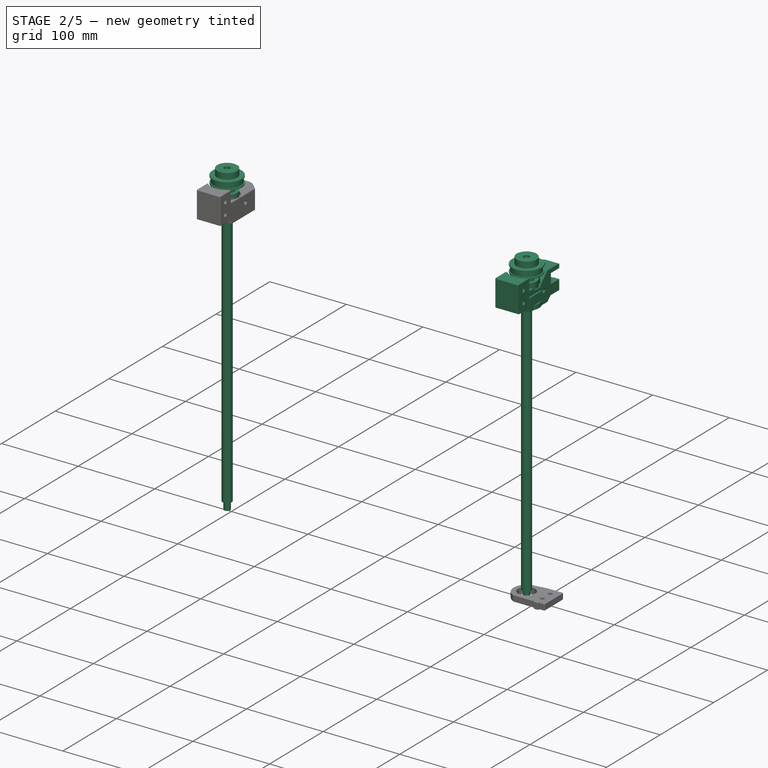
[diagram: stage 2 of 5 — iso view after this stage's code; geometry added in this stage tinted green]
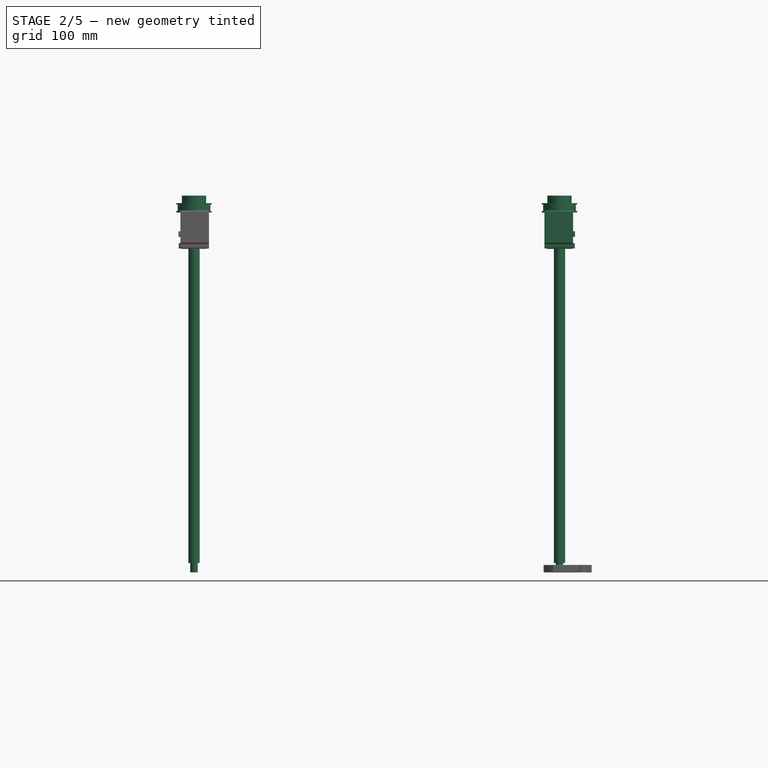
[diagram: stage 2 of 5 — front view after this stage's code; geometry added in this stage tinted green]
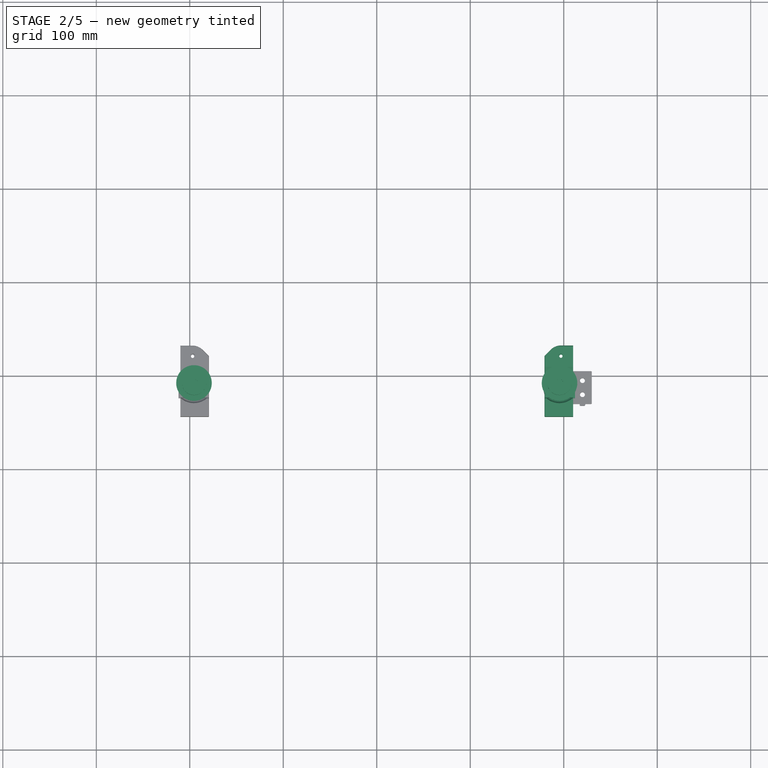
[diagram: stage 2 of 5 — top view after this stage's code; geometry added in this stage tinted green]
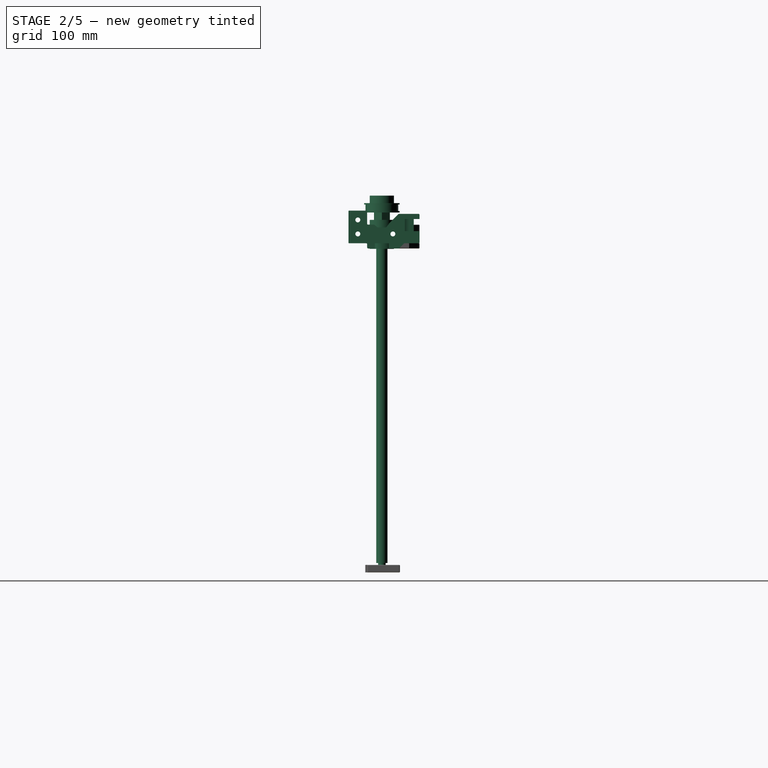
[diagram: stage 2 of 5 — right view after this stage's code; geometry added in this stage tinted green]
FEATURE [Sketcher::SketchObject] Sketch001
  ArcFitTolerance = 1e-06
  AttachmentSupport = -> [Extrude]
  ExternalBSplineMaxDegree = 5
  ExternalBSplineTolerance = 0.0001
  ExternalGeometry = -> [Extrude]
  FullyConstrained = true
  InternalTolerance = 1e-06
  MakeInternals = false
  MapMode = 5
  Placement = pos=(-1.1e-15,1.1e-15,-10) rot=(1,0,0;3.14159rad)
  Support = -> [Extrude]
  TreeRank = 4
  expr: Constraints[114] = Sketch.Constraints[115]
  expr: Constraints[117] = Sketch.Constraints[118]
  expr: Constraints[173] = Sketch.Constraints[174]
  expr: Constraints[43] = Sketch.Constraints[44]
  expr: Constraints[44] = Sketch.Constraints[45]
  expr: Constraints[45] = Sketch.Constraints[46]
  expr: Constraints[46] = Sketch.Constraints[47]
  expr: Constraints[47] = Sketch.Constraints[48]
  expr: Constraints[59] = Sketch.Constraints[60]
  expr: Constraints[79] = Sketch.Constraints[80]
  expr: Constraints[80] = Sketch.Constraints[81]
  expr: Constraints[81] = Sketch.Constraints[82]
  expr: Constraints[82] = Sketch.Constraints[83]
  expr: Constraints[83] = Sketch.Constraints[84]
  expr: Constraints[84] = Sketch.Constraints[85]
  expr: Constraints[85] = Sketch.Constraints[86]
  expr: Constraints[88] = Sketch.Constraints[89]
  expr: Constraints[89] = Sketch.Constraints[90]
  sketch-geometry (65):
    g0: LineSegment [constr] StartX=230 StartY=10 StartZ=0 EndX=230 EndY=-10 EndZ=0
    g1: LineSegment [constr] StartX=230 StartY=-10 StartZ=0 EndX=210 EndY=-10 EndZ=0
    g2: LineSegment [constr] StartX=210 StartY=-10 StartZ=0 EndX=210 EndY=10 EndZ=0
    g3: LineSegment [constr] StartX=210 StartY=10 StartZ=0 EndX=230 EndY=10 EndZ=0
    g4: LineSegment [constr] StartX=210 StartY=-10 StartZ=0 EndX=220 EndY=0 EndZ=0
    g5: LineSegment [constr] StartX=220 StartY=-1e-16 StartZ=0 EndX=210 EndY=10 EndZ=0
    g6: LineSegment [constr] StartX=220 StartY=-1e-16 StartZ=0 EndX=230 EndY=10 EndZ=0
    g7: LineSegment [constr] StartX=220 StartY=-1e-16 StartZ=0 EndX=230 EndY=-10 EndZ=0
    g8: LineSegment StartX=210 StartY=-9 StartZ=0 EndX=210 EndY=-3 EndZ=0
    g9: ArcOfCircle CenterX=211 CenterY=-9 CenterZ=0 NormalX=0 NormalY=0 NormalZ=1 AngleXU=0 Radius=1 StartAngle=3.14159 EndAngle=4.71239
    g10: LineSegment StartX=211 StartY=-10 StartZ=0 EndX=217 EndY=-10 EndZ=0
    g11: LineSegment StartX=223 StartY=-10 StartZ=0 EndX=229 EndY=-10 EndZ=0
    g12: LineSegment StartX=230 StartY=-9 StartZ=0 EndX=230 EndY=-3 EndZ=0
    g13: LineSegment StartX=230 StartY=3 StartZ=0 EndX=230 EndY=9 EndZ=0
    g14: LineSegment StartX=229 StartY=10 StartZ=0 EndX=223 EndY=10 EndZ=0
    g15: LineSegment StartX=211 StartY=10 StartZ=0 EndX=217 EndY=10 EndZ=0
    g16: LineSegment StartX=210 StartY=9 StartZ=0 EndX=210 EndY=3 EndZ=0
    g17: ArcOfCircle CenterX=211 CenterY=9 CenterZ=0 NormalX=0 NormalY=0 NormalZ=1 AngleXU=0 Radius=1 StartAngle=1.5708 EndAngle=3.14159
    g18: ArcOfCircle CenterX=229 CenterY=9 CenterZ=0 NormalX=0 NormalY=0 NormalZ=1 AngleXU=0 Radius=1 StartAngle=-4.4e-15 EndAngle=1.5708
    g19: ArcOfCircle CenterX=229 CenterY=-9 CenterZ=0 NormalX=0 NormalY=0 NormalZ=1 AngleXU=0 Radius=1 StartAngle=4.71239 EndAngle=6.28319
    g20: LineSegment [constr] StartX=214 StartY=-6 StartZ=0 EndX=214 EndY=6 EndZ=0
    g21: LineSegment [constr] StartX=214 StartY=6 StartZ=0 EndX=226 EndY=6 EndZ=0
    g22: LineSegment [constr] StartX=226 StartY=6 StartZ=0 EndX=226 EndY=-6 EndZ=0
    g23: LineSegment [constr] StartX=226 StartY=-6 StartZ=0 EndX=214 EndY=-6 EndZ=0
    g24: LineSegment StartX=210 StartY=-3 StartZ=0 EndX=212 EndY=-3 EndZ=0
    g25: LineSegment StartX=210 StartY=3 StartZ=0 EndX=212 EndY=3 EndZ=0
    g26: LineSegment StartX=217 StartY=-10 StartZ=0 EndX=217 EndY=-8 EndZ=0
    g27: LineSegment StartX=223 StartY=-10 StartZ=0 EndX=223 EndY=-8 EndZ=0
    g28: LineSegment StartX=230 StartY=-3 StartZ=0 EndX=228 EndY=-3 EndZ=0
    g29: LineSegment StartX=230 StartY=3 StartZ=0 EndX=228 EndY=3 EndZ=0
    g30: LineSegment StartX=223 StartY=10 StartZ=0 EndX=223 EndY=8 EndZ=0
    g31: LineSegment StartX=217 StartY=10 StartZ=0 EndX=217 EndY=8 EndZ=0
    g32: LineSegment StartX=217 StartY=-8 StartZ=0 EndX=214 EndY=-8 EndZ=0
    g33: LineSegment StartX=223 StartY=-8 StartZ=0 EndX=226 EndY=-8 EndZ=0
    g34: LineSegment StartX=214 StartY=-8 StartZ=0 EndX=214 EndY=-7 EndZ=0
    g35: LineSegment StartX=214 StartY=-7 StartZ=0 EndX=217 EndY=-4 EndZ=0
    g36: LineSegment StartX=226 StartY=-8 StartZ=0 EndX=226 EndY=-7 EndZ=0
    g37: LineSegment StartX=226 StartY=-7 StartZ=0 EndX=223 EndY=-4 EndZ=0
    g38: LineSegment StartX=217 StartY=-4 StartZ=0 EndX=223 EndY=-4 EndZ=0
    g39: LineSegment [constr] StartX=216 StartY=-4 StartZ=0 EndX=224 EndY=-4 EndZ=0
    g40: LineSegment [constr] StartX=224 StartY=-4 StartZ=0 EndX=224 EndY=4 EndZ=0
    g41: LineSegment [constr] StartX=224 StartY=4 StartZ=0 EndX=216 EndY=4 EndZ=0
    g42: LineSegment [constr] StartX=216 StartY=4 StartZ=0 EndX=216 EndY=-4 EndZ=0
    g43: LineSegment StartX=216 StartY=-3 StartZ=0 EndX=216 EndY=3 EndZ=0
    g44: LineSegment StartX=216 StartY=3 StartZ=0 EndX=213 EndY=6 EndZ=0
    g45: LineSegment StartX=216 StartY=-3 StartZ=0 EndX=213 EndY=-6 EndZ=0
    g46: LineSegment StartX=213 StartY=-6 StartZ=0 EndX=212 EndY=-6 EndZ=0
    g47: LineSegment StartX=213 StartY=6 StartZ=0 EndX=212 EndY=6 EndZ=0
    g48: LineSegment StartX=212 StartY=-6 StartZ=0 EndX=212 EndY=-3 EndZ=0
    g49: LineSegment StartX=212 StartY=6 StartZ=0 EndX=212 EndY=3 EndZ=0
    g50: LineSegment StartX=223 StartY=4 StartZ=0 EndX=217 EndY=4 EndZ=0
    g51: LineSegment StartX=217 StartY=4 StartZ=0 EndX=214 EndY=7 EndZ=0
    g52: LineSegment StartX=223 StartY=4 StartZ=0 EndX=226 EndY=7 EndZ=0
    g53: LineSegment StartX=214 StartY=7 StartZ=0 EndX=214 EndY=8 EndZ=0
    g54: LineSegment StartX=226 StartY=7 StartZ=0 EndX=226 EndY=8 EndZ=0
    g55: LineSegment StartX=217 StartY=8 StartZ=0 EndX=214 EndY=8 EndZ=0
    g56: LineSegment StartX=226 StartY=8 StartZ=0 EndX=223 EndY=8 EndZ=0
    g57: LineSegment StartX=224 StartY=-3 StartZ=0 EndX=224 EndY=3 EndZ=0
    g58: LineSegment StartX=224 StartY=-3 StartZ=0 EndX=227 EndY=-6 EndZ=0
    g59: LineSegment StartX=224 StartY=3 StartZ=0 EndX=227 EndY=6 EndZ=0
    g60: LineSegment StartX=227 StartY=-6 StartZ=0 EndX=228 EndY=-6 EndZ=0
    g61: LineSegment StartX=227 StartY=6 StartZ=0 EndX=228 EndY=6 EndZ=0
    g62: LineSegment StartX=228 StartY=-6 StartZ=0 EndX=228 EndY=-3 EndZ=0
    g63: LineSegment StartX=228 StartY=3 StartZ=0 EndX=228 EndY=6 EndZ=0
    g64: Circle CenterX=220 CenterY=-1e-16 CenterZ=0 NormalX=0 NormalY=0 NormalZ=1 AngleXU=0 Radius=2.1
  constraints (177):
    c: Coincident(g0,g1)
    c: Coincident(g1,g2)
    c: Coincident(g2,g3)
    c: Coincident(g3,g0)
    c: Coincident(g4,g1)
    c: Coincident(g5,g4)
    c: Coincident(g5,g2)
    c: Coincident(g6,g4)
    c: Coincident(g6,g0)
    c: Equal(g6,g5)
    c: Equal(g5,g4)
    c: Equal(g2,g0)
    c: Equal(g3,g1)
    c: Coincident(g7,g4)
    c: Coincident(g7,g0)
    c: Equal(g7,g5)
    c: PointOnObject(g8,g2)
    c: PointOnObject(g8,g2)
    c: PointOnObject(g9,g1)
    c: Tangent(g9,g8) = 1.5708
    c: PointOnObject(g10,g1)
    c: PointOnObject(g11,g1)
    c: PointOnObject(g11,g1)
    c: PointOnObject(g12,g0)
    c: PointOnObject(g12,g0)
    c: PointOnObject(g13,g0)
    c: PointOnObject(g13,g0)
    c: PointOnObject(g14,g3)
    c: PointOnObject(g14,g3)
    c: PointOnObject(g15,g3)
    c: PointOnObject(g15,g3)
    c: PointOnObject(g16,g2)
    c: PointOnObject(g16,g2)
    c: Tangent(g17,g16) = -1.5708
    c: Tangent(g17,g15) = 1.5708
    c: Tangent(g18,g14) = -1.5708
    c: Tangent(g18,g13) = -1.5708
    c: Tangent(g10,g9) = -1.5708
    c: Tangent(g19,g12) = -1.5708
    c: Tangent(g19,g11) = -1.5708
    c: Equal(g9,g17)
    c: Equal(g17,g18)
    c: Equal(g18,g19)
    c: Radius(g9) = 1
    c: Distance(g8,g16) = 6
    c: Distance(g15,g14) = 6
    c: Distance(g13,g12) = 6
    c: Distance(g11,g10) = 6
    c: PointOnObject(g20,g4)
    c: PointOnObject(g20,g5)
    c: Coincident(g21,g20)
    c: PointOnObject(g21,g6)
    c: Coincident(g22,g21)
    c: PointOnObject(g22,g7)
    c: Coincident(g23,g22)
    c: Coincident(g23,g20)
    c: Equal(g20,g23)
    c: Equal(g20,g22)
    c: Parallel(g23,g1)
    c: Distance(g20,g20) = 12
    c: Equal(g15,g14)
    c: Equal(g16,g8)
    c: Equal(g10,g11)
    c: Equal(g12,g13)
    c: Coincident(g24,g8)
    c: Coincident(g25,g16)
    c: Coincident(g26,g10)
    c: Coincident(g27,g11)
    c: Coincident(g28,g12)
    c: Coincident(g29,g13)
    c: Coincident(g30,g14)
    c: Coincident(g31,g15)
    c: Equal(g25,g24)
    c: Equal(g24,g26)
    c: Equal(g26,g27)
    c: Equal(g27,g28)
    c: Equal(g28,g29)
    c: Equal(g29,g30)
    c: Equal(g30,g31)
    c: Angle(g25,g16) = 1.5708
    c: Angle(g8,g24) = 1.5708
    c: Angle(g26,g10) = 1.5708
    c: Angle(g11,g27) = 1.5708
    c: Angle(g15,g31) = 1.5708
    c: Angle(g30,g14) = 1.5708
    c: Distance(g24) = 2
    c: Coincident(g32,g26)
    c: Coincident(g33,g27)
    c: Angle(g13,g29) = 1.5708
    c: Angle(g28,g12) = 1.5708
    c: Parallel(g32,g10)
    c: Parallel(g33,g11)
    c: Coincident(g34,g32)
    c: Coincident(g35,g34)
    c: Parallel(g35,g4)
    c: Coincident(g36,g33)
    c: Coincident(g37,g36)
    c: Parallel(g37,g7)
    c: Coincident(g38,g35)
    c: Coincident(g38,g37)
    c: Tangent(g34,g20)
    c: Tangent(g22,g36)
    c: Equal(g37,g35)
    c: PointOnObject(g39,g4)
    c: PointOnObject(g39,g7)
    c: Coincident(g40,g39)
    c: PointOnObject(g40,g6)
    c: Coincident(g41,g40)
    c: PointOnObject(g41,g5)
    c: Coincident(g42,g41)
    c: Coincident(g42,g39)
    c: Equal(g42,g39)
    c: Equal(g42,g40)
    c: Parallel(g39,g1)
    c: Distance(g42) = 8
    c: PointOnObject(g35,g39)
    c: PointOnObject(g37,g39)
    c: Distance(g38) = 6
    c: PointOnObject(g43,g42)
    c: PointOnObject(g43,g42)
    c: Coincident(g44,g43)
    c: Coincident(g45,g43)
    c: Parallel(g45,g4)
    c: Parallel(g44,g5)
    c: Coincident(g46,g45)
    c: Coincident(g47,g44)
    c: Tangent(g47,g21)
    c: Tangent(g46,g23)
    c: Coincident(g48,g46)
    c: Coincident(g48,g24)
    c: Coincident(g49,g47)
    c: Coincident(g49,g25)
    c: Parallel(g48,g8)
    c: Parallel(g49,g16)
    c: Equal(g45,g44)
    c: PointOnObject(g50,g41)
    c: PointOnObject(g50,g41)
    c: Coincident(g51,g50)
    c: Coincident(g52,g50)
    c: Parallel(g51,g5)
    c: Parallel(g52,g6)
    c: Equal(g51,g52)
    c: Coincident(g53,g51)
    c: Coincident(g54,g52)
    c: Tangent(g54,g22)
    c: Tangent(g53,g20)
    c: Coincident(g55,g31)
    c: Coincident(g55,g53)
    c: Coincident(g56,g54)
    c: Coincident(g56,g30)
    c: Parallel(g55,g15)
    c: Parallel(g56,g14)
    c: Equal(g43,g38)
    c: Equal(g50,g43)
    c: PointOnObject(g57,g40)
    c: PointOnObject(g57,g40)
    c: Equal(g57,g38)
    c: Coincident(g58,g57)
    c: Coincident(g59,g57)
    c: Parallel(g6,g59)
    c: Parallel(g58,g37)
    c: Equal(g59,g58)
    c: Coincident(g60,g58)
    c: Coincident(g61,g59)
    c: Tangent(g61,g21)
    c: Tangent(g60,g23)
    c: Coincident(g62,g60)
    c: Coincident(g62,g28)
    c: Coincident(g63,g29)
    c: Coincident(g63,g61)
    c: Parallel(g63,g13)
    c: Parallel(g62,g12)
    c: Coincident(g64,g4)
    c: Diameter(g64) = 4.2
    c: Equal(g3,g2)
    c: Coincident(g1,g-4)
    c: Coincident(g-3,g2)
FEATURE [Part::Extrusion] Extrude001
  AutoTaperInnerAngle = true
  Base = -> Sketch001
  Dir = (-2e-16,3e-16,-1)
  DirMode = 2
  FaceMakerClass = Part::FaceMakerBullseye
  LengthFwd = 0
  LengthRev = 560
  Linearize = true
  Solid = true
  Symmetric = false
  TaperInnerAngle = 0
  TaperInnerAngleRev = 0
  TreeRank = 51
  expr: LengthRev = <<GlobalVars>>.z_axis_extrusion_length
FEATURE [Sketcher::SketchObject] Sketch003
  ArcFitTolerance = 1e-06
  AttachmentSupport = -> [Extrude001]
  ExternalBSplineMaxDegree = 5
  ExternalBSplineTolerance = 0.0001
  ExternalGeometry = -> [Extrude001]
  FullyConstrained = true
  InternalTolerance = 1e-06
  MakeInternals = false
  MapMode = 5
  Placement = pos=(5.9e-15,-10,-3.2e-15) rot=(1,0,0;1.5708rad)
  Support = -> [Extrude001]
  TreeRank = 8
  expr: Constraints[114] = Sketch.Constraints[115]
  expr: Constraints[117] = Sketch.Constraints[118]
  expr: Constraints[173] = Sketch.Constraints[174]
  expr: Constraints[43] = Sketch.Constraints[44]
  expr: Constraints[44] = Sketch.Constraints[45]
  expr: Constraints[45] = Sketch.Constraints[46]
  expr: Constraints[46] = Sketch.Constraints[47]
  expr: Constraints[47] = Sketch.Constraints[48]
  expr: Constraints[59] = Sketch.Constraints[60]
  expr: Constraints[79] = Sketch.Constraints[80]
  expr: Constraints[80] = Sketch.Constraints[81]
  expr: Constraints[81] = Sketch.Constraints[82]
  expr: Constraints[82] = Sketch.Constraints[83]
  expr: Constraints[83] = Sketch.Constraints[84]
  expr: Constraints[84] = Sketch.Constraints[85]
  expr: Constraints[85] = Sketch.Constraints[86]
  expr: Constraints[88] = Sketch.Constraints[89]
  expr: Constraints[89] = Sketch.Constraints[90]
  sketch-geometry (65):
    g0: LineSegment [constr] StartX=230 StartY=-10 StartZ=0 EndX=210 EndY=-10 EndZ=0
    g1: LineSegment [constr] StartX=210 StartY=-10 StartZ=0 EndX=210 EndY=10 EndZ=0
    g2: LineSegment [constr] StartX=210 StartY=10 StartZ=0 EndX=230 EndY=10 EndZ=0
    g3: LineSegment [constr] StartX=230 StartY=10 StartZ=0 EndX=230 EndY=-10 EndZ=0
    g4: LineSegment [constr] StartX=210 StartY=10 StartZ=0 EndX=220 EndY=0 EndZ=0
    g5: LineSegment [constr] StartX=220 StartY=1e-16 StartZ=0 EndX=230 EndY=10 EndZ=0
    g6: LineSegment [constr] StartX=220 StartY=1e-16 StartZ=0 EndX=230 EndY=-10 EndZ=0
    g7: LineSegment [constr] StartX=220 StartY=1e-16 StartZ=0 EndX=210 EndY=-10 EndZ=0
    g8: LineSegment StartX=211 StartY=10 StartZ=0 EndX=217 EndY=10 EndZ=0
    g9: ArcOfCircle CenterX=211 CenterY=9 CenterZ=0 NormalX=0 NormalY=0 NormalZ=1 AngleXU=0 Radius=1 StartAngle=1.5708 EndAngle=3.14159
    g10: LineSegment StartX=210 StartY=9 StartZ=0 EndX=210 EndY=3 EndZ=0
    g11: LineSegment StartX=210 StartY=-3 StartZ=0 EndX=210 EndY=-9 EndZ=0
    g12: LineSegment StartX=211 StartY=-10 StartZ=0 EndX=217 EndY=-10 EndZ=0
    g13: LineSegment StartX=223 StartY=-10 StartZ=0 EndX=229 EndY=-10 EndZ=0
    g14: LineSegment StartX=230 StartY=-9 StartZ=0 EndX=230 EndY=-3 EndZ=0
    g15: LineSegment StartX=230 StartY=9 StartZ=0 EndX=230 EndY=3 EndZ=0
    g16: LineSegment StartX=229 StartY=10 StartZ=0 EndX=223 EndY=10 EndZ=0
    g17: ArcOfCircle CenterX=229 CenterY=9 CenterZ=0 NormalX=0 NormalY=0 NormalZ=1 AngleXU=0 Radius=1 StartAngle=4.4e-15 EndAngle=1.5708
    g18: ArcOfCircle CenterX=229 CenterY=-9 CenterZ=0 NormalX=0 NormalY=0 NormalZ=1 AngleXU=0 Radius=1 StartAngle=4.71239 EndAngle=6.28319
    g19: ArcOfCircle CenterX=211 CenterY=-9 CenterZ=0 NormalX=0 NormalY=0 NormalZ=1 AngleXU=0 Radius=1 StartAngle=3.14159 EndAngle=4.71239
    g20: LineSegment [constr] StartX=214 StartY=6 StartZ=0 EndX=226 EndY=6 EndZ=0
    g21: LineSegment [constr] StartX=226 StartY=6 StartZ=0 EndX=226 EndY=-6 EndZ=0
    g22: LineSegment [constr] StartX=226 StartY=-6 StartZ=0 EndX=214 EndY=-6 EndZ=0
    g23: LineSegment [constr] StartX=214 StartY=-6 StartZ=0 EndX=214 EndY=6 EndZ=0
    g24: LineSegment StartX=217 StartY=10 StartZ=0 EndX=217 EndY=8 EndZ=0
    g25: LineSegment StartX=223 StartY=10 StartZ=0 EndX=223 EndY=8 EndZ=0
    g26: LineSegment StartX=210 StartY=3 StartZ=0 EndX=212 EndY=3 EndZ=0
    g27: LineSegment StartX=210 StartY=-3 StartZ=0 EndX=212 EndY=-3 EndZ=0
    g28: LineSegment StartX=217 StartY=-10 StartZ=0 EndX=217 EndY=-8 EndZ=0
    g29: LineSegment StartX=223 StartY=-10 StartZ=0 EndX=223 EndY=-8 EndZ=0
    g30: LineSegment StartX=230 StartY=-3 StartZ=0 EndX=228 EndY=-3 EndZ=0
    g31: LineSegment StartX=230 StartY=3 StartZ=0 EndX=228 EndY=3 EndZ=0
    g32: LineSegment StartX=212 StartY=3 StartZ=0 EndX=212 EndY=6 EndZ=0
    g33: LineSegment StartX=212 StartY=-3 StartZ=0 EndX=212 EndY=-6 EndZ=0
    g34: LineSegment StartX=212 StartY=6 StartZ=0 EndX=213 EndY=6 EndZ=0
    g35: LineSegment StartX=213 StartY=6 StartZ=0 EndX=216 EndY=3 EndZ=0
    g36: LineSegment StartX=212 StartY=-6 StartZ=0 EndX=213 EndY=-6 EndZ=0
    g37: LineSegment StartX=213 StartY=-6 StartZ=0 EndX=216 EndY=-3 EndZ=0
    g38: LineSegment StartX=216 StartY=3 StartZ=0 EndX=216 EndY=-3 EndZ=0
    g39: LineSegment [constr] StartX=216 StartY=4 StartZ=0 EndX=216 EndY=-4 EndZ=0
    g40: LineSegment [constr] StartX=216 StartY=-4 StartZ=0 EndX=224 EndY=-4 EndZ=0
    g41: LineSegment [constr] StartX=224 StartY=-4 StartZ=0 EndX=224 EndY=4 EndZ=0
    g42: LineSegment [constr] StartX=224 StartY=4 StartZ=0 EndX=216 EndY=4 EndZ=0
    g43: LineSegment StartX=217 StartY=4 StartZ=0 EndX=223 EndY=4 EndZ=0
    g44: LineSegment StartX=223 StartY=4 StartZ=0 EndX=226 EndY=7 EndZ=0
    g45: LineSegment StartX=217 StartY=4 StartZ=0 EndX=214 EndY=7 EndZ=0
    g46: LineSegment StartX=214 StartY=7 StartZ=0 EndX=214 EndY=8 EndZ=0
    g47: LineSegment StartX=226 StartY=7 StartZ=0 EndX=226 EndY=8 EndZ=0
    g48: LineSegment StartX=214 StartY=8 StartZ=0 EndX=217 EndY=8 EndZ=0
    g49: LineSegment StartX=226 StartY=8 StartZ=0 EndX=223 EndY=8 EndZ=0
    g50: LineSegment StartX=224 StartY=-3 StartZ=0 EndX=224 EndY=3 EndZ=0
    g51: LineSegment StartX=224 StartY=3 StartZ=0 EndX=227 EndY=6 EndZ=0
    g52: LineSegment StartX=224 StartY=-3 StartZ=0 EndX=227 EndY=-6 EndZ=0
    g53: LineSegment StartX=227 StartY=6 StartZ=0 EndX=228 EndY=6 EndZ=0
    g54: LineSegment StartX=227 StartY=-6 StartZ=0 EndX=228 EndY=-6 EndZ=0
    g55: LineSegment StartX=228 StartY=3 StartZ=0 EndX=228 EndY=6 EndZ=0
    g56: LineSegment StartX=228 StartY=-6 StartZ=0 EndX=228 EndY=-3 EndZ=0
    g57: LineSegment StartX=217 StartY=-4 StartZ=0 EndX=223 EndY=-4 EndZ=0
    g58: LineSegment StartX=217 StartY=-4 StartZ=0 EndX=214 EndY=-7 EndZ=0
    g59: LineSegment StartX=223 StartY=-4 StartZ=0 EndX=226 EndY=-7 EndZ=0
    g60: LineSegment StartX=214 StartY=-7 StartZ=0 EndX=214 EndY=-8 EndZ=0
    g61: LineSegment StartX=226 StartY=-7 StartZ=0 EndX=226 EndY=-8 EndZ=0
    g62: LineSegment StartX=214 StartY=-8 StartZ=0 EndX=217 EndY=-8 EndZ=0
    g63: LineSegment StartX=223 StartY=-8 StartZ=0 EndX=226 EndY=-8 EndZ=0
    g64: Circle CenterX=220 CenterY=1e-16 CenterZ=0 NormalX=0 NormalY=0 NormalZ=1 AngleXU=0 Radius=2.1
  constraints (177):
    c: Coincident(g0,g1)
    c: Coincident(g1,g2)
    c: Coincident(g2,g3)
    c: Coincident(g3,g0)
    c: Coincident(g4,g1)
    c: Coincident(g5,g4)
    c: Coincident(g5,g2)
    c: Coincident(g6,g4)
    c: Coincident(g6,g0)
    c: Equal(g6,g5)
    c: Equal(g5,g4)
    c: Equal(g2,g0)
    c: Equal(g3,g1)
    c: Coincident(g7,g4)
    c: Coincident(g7,g0)
    c: Equal(g7,g5)
    c: PointOnObject(g8,g2)
    c: PointOnObject(g8,g2)
    c: PointOnObject(g9,g1)
    c: Tangent(g9,g8) = 1.5708
    c: PointOnObject(g10,g1)
    c: PointOnObject(g11,g1)
    c: PointOnObject(g11,g1)
    c: PointOnObject(g12,g0)
    c: PointOnObject(g12,g0)
    c: PointOnObject(g13,g0)
    c: PointOnObject(g13,g0)
    c: PointOnObject(g14,g3)
    c: PointOnObject(g14,g3)
    c: PointOnObject(g15,g3)
    c: PointOnObject(g15,g3)
    c: PointOnObject(g16,g2)
    c: PointOnObject(g16,g2)
    c: Tangent(g17,g16) = -1.5708
    c: Tangent(g17,g15) = 1.5708
    c: Tangent(g18,g14) = -1.5708
    c: Tangent(g18,g13) = -1.5708
    c: Tangent(g10,g9) = -1.5708
    c: Tangent(g19,g12) = -1.5708
    c: Tangent(g19,g11) = -1.5708
    c: Equal(g9,g17)
    c: Equal(g17,g18)
    c: Equal(g18,g19)
    c: Radius(g9) = 1
    c: Distance(g8,g16) = 6
    c: Distance(g15,g14) = 6
    c: Distance(g13,g12) = 6
    c: Distance(g11,g10) = 6
    c: PointOnObject(g20,g4)
    c: PointOnObject(g20,g5)
    c: Coincident(g21,g20)
    c: PointOnObject(g21,g6)
    c: Coincident(g22,g21)
    c: PointOnObject(g22,g7)
    c: Coincident(g23,g22)
    c: Coincident(g23,g20)
    c: Equal(g20,g23)
    c: Equal(g20,g22)
    c: Parallel(g23,g1)
    c: Distance(g20,g20) = 12
    c: Equal(g15,g14)
    c: Equal(g16,g8)
    c: Equal(g10,g11)
    c: Equal(g12,g13)
    c: Coincident(g24,g8)
    c: Coincident(g25,g16)
    c: Coincident(g26,g10)
    c: Coincident(g27,g11)
    c: Coincident(g28,g12)
    c: Coincident(g29,g13)
    c: Coincident(g30,g14)
    c: Coincident(g31,g15)
    c: Equal(g25,g24)
    c: Equal(g24,g26)
    c: Equal(g26,g27)
    c: Equal(g27,g28)
    c: Equal(g28,g29)
    c: Equal(g29,g30)
    c: Equal(g30,g31)
    c: Angle(g25,g16) = 1.5708
    c: Angle(g8,g24) = 1.5708
    c: Angle(g26,g10) = 1.5708
    c: Angle(g11,g27) = 1.5708
    c: Angle(g15,g31) = 1.5708
    c: Angle(g30,g14) = 1.5708
    c: Distance(g24) = 2
    c: Coincident(g32,g26)
    c: Coincident(g33,g27)
    c: Angle(g13,g29) = 1.5708
    c: Angle(g28,g12) = 1.5708
    c: Parallel(g32,g10)
    c: Parallel(g33,g11)
    c: Coincident(g34,g32)
    c: Coincident(g35,g34)
    c: Parallel(g35,g4)
    c: Coincident(g36,g33)
    c: Coincident(g37,g36)
    c: Parallel(g37,g7)
    c: Coincident(g38,g35)
    c: Coincident(g38,g37)
    c: Tangent(g34,g20)
    c: Tangent(g22,g36)
    c: Equal(g37,g35)
    c: PointOnObject(g39,g4)
    c: PointOnObject(g39,g7)
    c: Coincident(g40,g39)
    c: PointOnObject(g40,g6)
    c: Coincident(g41,g40)
    c: PointOnObject(g41,g5)
    c: Coincident(g42,g41)
    c: Coincident(g42,g39)
    c: Equal(g42,g39)
    c: Equal(g42,g40)
    c: Parallel(g39,g1)
    c: Distance(g42) = 8
    c: PointOnObject(g35,g39)
    c: PointOnObject(g37,g39)
    c: Distance(g38) = 6
    c: PointOnObject(g43,g42)
    c: PointOnObject(g43,g42)
    c: Coincident(g44,g43)
    c: Coincident(g45,g43)
    c: Parallel(g45,g4)
    c: Parallel(g44,g5)
    c: Coincident(g46,g45)
    c: Coincident(g47,g44)
    c: Tangent(g47,g21)
    c: Tangent(g46,g23)
    c: Coincident(g48,g46)
    c: Coincident(g48,g24)
    c: Coincident(g49,g47)
    c: Coincident(g49,g25)
    c: Parallel(g48,g8)
    c: Parallel(g49,g16)
    c: Equal(g45,g44)
    c: PointOnObject(g50,g41)
    c: PointOnObject(g50,g41)
    c: Coincident(g51,g50)
    c: Coincident(g52,g50)
    c: Parallel(g51,g5)
    c: Parallel(g52,g6)
    c: Equal(g51,g52)
    c: Coincident(g53,g51)
    c: Coincident(g54,g52)
    c: Tangent(g54,g22)
    c: Tangent(g53,g20)
    c: Coincident(g55,g31)
    c: Coincident(g55,g53)
    c: Coincident(g56,g54)
    c: Coincident(g56,g30)
    c: Parallel(g55,g15)
    c: Parallel(g56,g14)
    c: Equal(g43,g38)
    c: Equal(g50,g43)
    c: PointOnObject(g57,g40)
    c: PointOnObject(g57,g40)
    c: Equal(g57,g38)
    c: Coincident(g58,g57)
    c: Coincident(g59,g57)
    c: Parallel(g6,g59)
    c: Parallel(g58,g37)
    c: Equal(g59,g58)
    c: Coincident(g60,g58)
    c: Coincident(g61,g59)
    c: Tangent(g61,g21)
    c: Tangent(g60,g23)
    c: Coincident(g62,g60)
    c: Coincident(g62,g28)
    c: Coincident(g63,g29)
    c: Coincident(g63,g61)
    c: Parallel(g63,g13)
    c: Parallel(g62,g12)
    c: Coincident(g64,g4)
    c: Diameter(g64) = 4.2
    c: Equal(g3,g2)
    c: Coincident(g0,g-4)
    c: Coincident(g0,g-3)
FEATURE [Part::Extrusion] Extrude003
  AutoTaperInnerAngle = true
  Base = -> Sketch003
  Dir = (6e-16,-1,-2e-16)
  DirMode = 2
  FaceMakerClass = Part::FaceMakerBullseye
  LengthFwd = 420
  LengthRev = 0
  Linearize = true
  Solid = true
  Symmetric = false
  TaperInnerAngle = 0
  TaperInnerAngleRev = 0
  TreeRank = 52
  expr: LengthFwd = <<GlobalVars>>.y_axis_extrusion_length
FEATURE [Sketcher::SketchObject] Sketch005
  ArcFitTolerance = 1e-06
  AttachmentSupport = -> [Extrude003]
  ExternalBSplineMaxDegree = 5
  ExternalBSplineTolerance = 0.0001
  ExternalGeometry = -> [Extrude003]
  FullyConstrained = true
  InternalTolerance = 1e-06
  MakeInternals = false
  MapMode = 5
  Placement = pos=(-8.9e-15,2.2e-15,-10) rot=(1,0,0;3.14159rad)
  Support = -> [Extrude003]
  TreeRank = 12
  expr: Constraints[114] = Sketch.Constraints[115]
  expr: Constraints[117] = Sketch.Constraints[118]
  expr: Constraints[173] = Sketch.Constraints[174]
  expr: Constraints[43] = Sketch.Constraints[44]
  expr: Constraints[44] = Sketch.Constraints[45]
  expr: Constraints[45] = Sketch.Constraints[46]
  expr: Constraints[46] = Sketch.Constraints[47]
  expr: Constraints[47] = Sketch.Constraints[48]
  expr: Constraints[59] = Sketch.Constraints[60]
  expr: Constraints[79] = Sketch.Constraints[80]
  expr: Constraints[80] = Sketch.Constraints[81]
  expr: Constraints[81] = Sketch.Constraints[82]
  expr: Constraints[82] = Sketch.Constraints[83]
  expr: Constraints[83] = Sketch.Constraints[84]
  expr: Constraints[84] = Sketch.Constraints[85]
  expr: Constraints[85] = Sketch.Constraints[86]
  expr: Constraints[88] = Sketch.Constraints[89]
  expr: Constraints[89] = Sketch.Constraints[90]
  sketch-geometry (65):
    g0: LineSegment [constr] StartX=210 StartY=430 StartZ=0 EndX=210 EndY=450 EndZ=0
    g1: LineSegment [constr] StartX=210 StartY=450 StartZ=0 EndX=230 EndY=450 EndZ=0
    g2: LineSegment [constr] StartX=230 StartY=450 StartZ=0 EndX=230 EndY=430 EndZ=0
    g3: LineSegment [constr] StartX=230 StartY=430 StartZ=0 EndX=210 EndY=430 EndZ=0
    g4: LineSegment [constr] StartX=230 StartY=450 StartZ=0 EndX=220 EndY=440 EndZ=0
    g5: LineSegment [constr] StartX=220 StartY=440 StartZ=0 EndX=230 EndY=430 EndZ=0
    g6: LineSegment [constr] StartX=220 StartY=440 StartZ=0 EndX=210 EndY=430 EndZ=0
    g7: LineSegment [constr] StartX=220 StartY=440 StartZ=0 EndX=210 EndY=450 EndZ=0
    g8: LineSegment StartX=230 StartY=449 StartZ=0 EndX=230 EndY=443 EndZ=0
    g9: ArcOfCircle CenterX=229 CenterY=449 CenterZ=0 NormalX=0 NormalY=0 NormalZ=1 AngleXU=0 Radius=1 StartAngle=2.84e-14 EndAngle=1.5708
    g10: LineSegment StartX=229 StartY=450 StartZ=0 EndX=223 EndY=450 EndZ=0
    g11: LineSegment StartX=217 StartY=450 StartZ=0 EndX=211 EndY=450 EndZ=0
    g12: LineSegment StartX=210 StartY=449 StartZ=0 EndX=210 EndY=443 EndZ=0
    g13: LineSegment StartX=210 StartY=437 StartZ=0 EndX=210 EndY=431 EndZ=0
    g14: LineSegment StartX=211 StartY=430 StartZ=0 EndX=217 EndY=430 EndZ=0
    g15: LineSegment StartX=229 StartY=430 StartZ=0 EndX=223 EndY=430 EndZ=0
    g16: LineSegment StartX=230 StartY=431 StartZ=0 EndX=230 EndY=437 EndZ=0
    g17: ArcOfCircle CenterX=229 CenterY=431 CenterZ=0 NormalX=0 NormalY=0 NormalZ=1 AngleXU=0 Radius=1 StartAngle=4.71239 EndAngle=6.28319
    g18: ArcOfCircle CenterX=211 CenterY=431 CenterZ=0 NormalX=0 NormalY=0 NormalZ=1 AngleXU=0 Radius=1 StartAngle=3.14159 EndAngle=4.71239
    g19: ArcOfCircle CenterX=211 CenterY=449 CenterZ=0 NormalX=0 NormalY=0 NormalZ=1 AngleXU=0 Radius=1 StartAngle=1.5708 EndAngle=3.14159
    g20: LineSegment [constr] StartX=226 StartY=446 StartZ=0 EndX=226 EndY=434 EndZ=0
    g21: LineSegment [constr] StartX=226 StartY=434 StartZ=0 EndX=214 EndY=434 EndZ=0
    g22: LineSegment [constr] StartX=214 StartY=434 StartZ=0 EndX=214 EndY=446 EndZ=0
    g23: LineSegment [constr] StartX=214 StartY=446 StartZ=0 EndX=226 EndY=446 EndZ=0
    g24: LineSegment StartX=230 StartY=443 StartZ=0 EndX=228 EndY=443 EndZ=0
    g25: LineSegment StartX=230 StartY=437 StartZ=0 EndX=228 EndY=437 EndZ=0
    g26: LineSegment StartX=223 StartY=450 StartZ=0 EndX=223 EndY=448 EndZ=0
    g27: LineSegment StartX=217 StartY=450 StartZ=0 EndX=217 EndY=448 EndZ=0
    g28: LineSegment StartX=210 StartY=443 StartZ=0 EndX=212 EndY=443 EndZ=0
    g29: LineSegment StartX=210 StartY=437 StartZ=0 EndX=212 EndY=437 EndZ=0
    g30: LineSegment StartX=217 StartY=430 StartZ=0 EndX=217 EndY=432 EndZ=0
    g31: LineSegment StartX=223 StartY=430 StartZ=0 EndX=223 EndY=432 EndZ=0
    g32: LineSegment StartX=223 StartY=448 StartZ=0 EndX=226 EndY=448 EndZ=0
    g33: LineSegment StartX=217 StartY=448 StartZ=0 EndX=214 EndY=448 EndZ=0
    g34: LineSegment StartX=226 StartY=448 StartZ=0 EndX=226 EndY=447 EndZ=0
    g35: LineSegment StartX=226 StartY=447 StartZ=0 EndX=223 EndY=444 EndZ=0
    g36: LineSegment StartX=214 StartY=448 StartZ=0 EndX=214 EndY=447 EndZ=0
    g37: LineSegment StartX=214 StartY=447 StartZ=0 EndX=217 EndY=444 EndZ=0
    g38: LineSegment StartX=223 StartY=444 StartZ=0 EndX=217 EndY=444 EndZ=0
    g39: LineSegment [constr] StartX=224 StartY=444 StartZ=0 EndX=216 EndY=444 EndZ=0
    g40: LineSegment [constr] StartX=216 StartY=444 StartZ=0 EndX=216 EndY=436 EndZ=0
    g41: LineSegment [constr] StartX=216 StartY=436 StartZ=0 EndX=224 EndY=436 EndZ=0
    g42: LineSegment [constr] StartX=224 StartY=436 StartZ=0 EndX=224 EndY=444 EndZ=0
    g43: LineSegment StartX=224 StartY=443 StartZ=0 EndX=224 EndY=437 EndZ=0
    g44: LineSegment StartX=224 StartY=437 StartZ=0 EndX=227 EndY=434 EndZ=0
    g45: LineSegment StartX=224 StartY=443 StartZ=0 EndX=227 EndY=446 EndZ=0
    g46: LineSegment StartX=227 StartY=446 StartZ=0 EndX=228 EndY=446 EndZ=0
    g47: LineSegment StartX=227 StartY=434 StartZ=0 EndX=228 EndY=434 EndZ=0
    g48: LineSegment StartX=228 StartY=446 StartZ=0 EndX=228 EndY=443 EndZ=0
    g49: LineSegment StartX=228 StartY=434 StartZ=0 EndX=228 EndY=437 EndZ=0
    g50: LineSegment StartX=217 StartY=436 StartZ=0 EndX=223 EndY=436 EndZ=0
    g51: LineSegment StartX=223 StartY=436 StartZ=0 EndX=226 EndY=433 EndZ=0
    g52: LineSegment StartX=217 StartY=436 StartZ=0 EndX=214 EndY=433 EndZ=0
    g53: LineSegment StartX=226 StartY=433 StartZ=0 EndX=226 EndY=432 EndZ=0
    g54: LineSegment StartX=214 StartY=433 StartZ=0 EndX=214 EndY=432 EndZ=0
    g55: LineSegment StartX=223 StartY=432 StartZ=0 EndX=226 EndY=432 EndZ=0
    g56: LineSegment StartX=214 StartY=432 StartZ=0 EndX=217 EndY=432 EndZ=0
    g57: LineSegment StartX=216 StartY=443 StartZ=0 EndX=216 EndY=437 EndZ=0
    g58: LineSegment StartX=216 StartY=443 StartZ=0 EndX=213 EndY=446 EndZ=0
    g59: LineSegment StartX=216 StartY=437 StartZ=0 EndX=213 EndY=434 EndZ=0
    g60: LineSegment StartX=213 StartY=446 StartZ=0 EndX=212 EndY=446 EndZ=0
    g61: LineSegment StartX=213 StartY=434 StartZ=0 EndX=212 EndY=434 EndZ=0
    g62: LineSegment StartX=212 StartY=446 StartZ=0 EndX=212 EndY=443 EndZ=0
    g63: LineSegment StartX=212 StartY=437 StartZ=0 EndX=212 EndY=434 EndZ=0
    g64: Circle CenterX=220 CenterY=440 CenterZ=0 NormalX=0 NormalY=0 NormalZ=1 AngleXU=0 Radius=2.1
  constraints (177):
    c: Coincident(g0,g1)
    c: Coincident(g1,g2)
    c: Coincident(g2,g3)
    c: Coincident(g3,g0)
    c: Coincident(g4,g1)
    c: Coincident(g5,g4)
    c: Coincident(g5,g2)
    c: Coincident(g6,g4)
    c: Coincident(g6,g0)
    c: Equal(g6,g5)
    c: Equal(g5,g4)
    c: Equal(g2,g0)
    c: Equal(g3,g1)
    c: Coincident(g7,g4)
    c: Coincident(g7,g0)
    c: Equal(g7,g5)
    c: PointOnObject(g8,g2)
    c: PointOnObject(g8,g2)
    c: PointOnObject(g9,g1)
    c: Tangent(g9,g8) = 1.5708
    c: PointOnObject(g10,g1)
    c: PointOnObject(g11,g1)
    c: PointOnObject(g11,g1)
    c: PointOnObject(g12,g0)
    c: PointOnObject(g12,g0)
    c: PointOnObject(g13,g0)
    c: PointOnObject(g13,g0)
    c: PointOnObject(g14,g3)
    c: PointOnObject(g14,g3)
    c: PointOnObject(g15,g3)
    c: PointOnObject(g15,g3)
    c: PointOnObject(g16,g2)
    c: PointOnObject(g16,g2)
    c: Tangent(g17,g16) = -1.5708
    c: Tangent(g17,g15) = 1.5708
    c: Tangent(g18,g14) = -1.5708
    c: Tangent(g18,g13) = -1.5708
    c: Tangent(g10,g9) = -1.5708
    c: Tangent(g19,g12) = -1.5708
    c: Tangent(g19,g11) = -1.5708
    c: Equal(g9,g17)
    c: Equal(g17,g18)
    c: Equal(g18,g19)
    c: Radius(g9) = 1
    c: Distance(g8,g16) = 6
    c: Distance(g15,g14) = 6
    c: Distance(g13,g12) = 6
    c: Distance(g11,g10) = 6
    c: PointOnObject(g20,g4)
    c: PointOnObject(g20,g5)
    c: Coincident(g21,g20)
    c: PointOnObject(g21,g6)
    c: Coincident(g22,g21)
    c: PointOnObject(g22,g7)
    c: Coincident(g23,g22)
    c: Coincident(g23,g20)
    c: Equal(g20,g23)
    c: Equal(g20,g22)
    c: Parallel(g23,g1)
    c: Distance(g20,g20) = 12
    c: Equal(g15,g14)
    c: Equal(g16,g8)
    c: Equal(g10,g11)
    c: Equal(g12,g13)
    c: Coincident(g24,g8)
    c: Coincident(g25,g16)
    c: Coincident(g26,g10)
    c: Coincident(g27,g11)
    c: Coincident(g28,g12)
    c: Coincident(g29,g13)
    c: Coincident(g30,g14)
    c: Coincident(g31,g15)
    c: Equal(g25,g24)
    c: Equal(g24,g26)
    c: Equal(g26,g27)
    c: Equal(g27,g28)
    c: Equal(g28,g29)
    c: Equal(g29,g30)
    c: Equal(g30,g31)
    c: Angle(g25,g16) = 1.5708
    c: Angle(g8,g24) = 1.5708
    c: Angle(g26,g10) = 1.5708
    c: Angle(g11,g27) = 1.5708
    c: Angle(g15,g31) = 1.5708
    c: Angle(g30,g14) = 1.5708
    c: Distance(g24) = 2
    c: Coincident(g32,g26)
    c: Coincident(g33,g27)
    c: Angle(g13,g29) = 1.5708
    c: Angle(g28,g12) = 1.5708
    c: Parallel(g32,g10)
    c: Parallel(g33,g11)
    c: Coincident(g34,g32)
    c: Coincident(g35,g34)
    c: Parallel(g35,g4)
    c: Coincident(g36,g33)
    c: Coincident(g37,g36)
    c: Parallel(g37,g7)
    c: Coincident(g38,g35)
    c: Coincident(g38,g37)
    c: Tangent(g34,g20)
    c: Tangent(g22,g36)
    c: Equal(g37,g35)
    c: PointOnObject(g39,g4)
    c: PointOnObject(g39,g7)
    c: Coincident(g40,g39)
    c: PointOnObject(g40,g6)
    c: Coincident(g41,g40)
    c: PointOnObject(g41,g5)
    c: Coincident(g42,g41)
    c: Coincident(g42,g39)
    c: Equal(g42,g39)
    c: Equal(g42,g40)
    c: Parallel(g39,g1)
    c: Distance(g42) = 8
    c: PointOnObject(g35,g39)
    c: PointOnObject(g37,g39)
    c: Distance(g38) = 6
    c: PointOnObject(g43,g42)
    c: PointOnObject(g43,g42)
    c: Coincident(g44,g43)
    c: Coincident(g45,g43)
    c: Parallel(g45,g4)
    c: Parallel(g44,g5)
    c: Coincident(g46,g45)
    c: Coincident(g47,g44)
    c: Tangent(g47,g21)
    c: Tangent(g46,g23)
    c: Coincident(g48,g46)
    c: Coincident(g48,g24)
    c: Coincident(g49,g47)
    c: Coincident(g49,g25)
    c: Parallel(g48,g8)
    c: Parallel(g49,g16)
    c: Equal(g45,g44)
    c: PointOnObject(g50,g41)
    c: PointOnObject(g50,g41)
    c: Coincident(g51,g50)
    c: Coincident(g52,g50)
    c: Parallel(g51,g5)
    c: Parallel(g52,g6)
    c: Equal(g51,g52)
    c: Coincident(g53,g51)
    c: Coincident(g54,g52)
    c: Tangent(g54,g22)
    c: Tangent(g53,g20)
    c: Coincident(g55,g31)
    c: Coincident(g55,g53)
    c: Coincident(g56,g54)
    c: Coincident(g56,g30)
    c: Parallel(g55,g15)
    c: Parallel(g56,g14)
    c: Equal(g43,g38)
    c: Equal(g50,g43)
    c: PointOnObject(g57,g40)
    c: PointOnObject(g57,g40)
    c: Equal(g57,g38)
    c: Coincident(g58,g57)
    c: Coincident(g59,g57)
    c: Parallel(g6,g59)
    c: Parallel(g58,g37)
    c: Equal(g59,g58)
    c: Coincident(g60,g58)
    c: Coincident(g61,g59)
    c: Tangent(g61,g21)
    c: Tangent(g60,g23)
    c: Coincident(g62,g60)
    c: Coincident(g62,g28)
    c: Coincident(g63,g29)
    c: Coincident(g63,g61)
    c: Parallel(g63,g13)
    c: Parallel(g62,g12)
    c: Coincident(g64,g4)
    c: Diameter(g64) = 4.2
    c: Equal(g3,g2)
    c: Coincident(g2,g-3)
    c: Coincident(g-4,g0)
FEATURE [Part::Extrusion] Extrude005
  AutoTaperInnerAngle = true
  Base = -> Sketch005
  Dir = (-9e-16,2e-16,-1)
  DirMode = 2
  FaceMakerClass = Part::FaceMakerBullseye
  LengthFwd = 0
  LengthRev = 560
  Linearize = true
  Solid = true
  Symmetric = false
  TaperInnerAngle = 0
  TaperInnerAngleRev = 0
  TreeRank = 53
  expr: LengthRev = <<GlobalVars>>.z_axis_extrusion_length
FEATURE [Sketcher::SketchObject] Sketch014
  ArcFitTolerance = 1e-06
  AttachmentSupport = -> [Extrude001]
  ExternalBSplineMaxDegree = 5
  ExternalBSplineTolerance = 0.0001
  ExternalGeometry = -> [Extrude012,Extrude001]
  FullyConstrained = true
  InternalTolerance = 1e-06
  MakeInternals = false
  MapMode = 5
  Placement = pos=(5.9e-15,-10,-3.2e-15) rot=(1,0,0;1.5708rad)
  Support = -> [Extrude001]
  TreeRank = 31
  expr: Constraints[114] = Sketch.Constraints[115]
  expr: Constraints[117] = Sketch.Constraints[118]
  expr: Constraints[173] = Sketch.Constraints[174]
  expr: Constraints[43] = Sketch.Constraints[44]
  expr: Constraints[44] = Sketch.Constraints[45]
  expr: Constraints[45] = Sketch.Constraints[46]
  expr: Constraints[46] = Sketch.Constraints[47]
  expr: Constraints[47] = Sketch.Constraints[48]
  expr: Constraints[59] = Sketch.Constraints[60]
  expr: Constraints[79] = Sketch.Constraints[80]
  expr: Constraints[80] = Sketch.Constraints[81]
  expr: Constraints[81] = Sketch.Constraints[82]
  expr: Constraints[82] = Sketch.Constraints[83]
  expr: Constraints[83] = Sketch.Constraints[84]
  expr: Constraints[84] = Sketch.Constraints[85]
  expr: Constraints[85] = Sketch.Constraints[86]
  expr: Constraints[88] = Sketch.Constraints[89]
  expr: Constraints[89] = Sketch.Constraints[90]
  sketch-geometry (65):
    g0: LineSegment [constr] StartX=230 StartY=362 StartZ=0 EndX=210 EndY=362 EndZ=0
    g1: LineSegment [constr] StartX=210 StartY=362 StartZ=0 EndX=210 EndY=382 EndZ=0
    g2: LineSegment [constr] StartX=210 StartY=382 StartZ=0 EndX=230 EndY=382 EndZ=0
    g3: LineSegment [constr] StartX=230 StartY=382 StartZ=0 EndX=230 EndY=362 EndZ=0
    g4: LineSegment [constr] StartX=210 StartY=382 StartZ=0 EndX=220 EndY=372 EndZ=0
    g5: LineSegment [constr] StartX=220 StartY=372 StartZ=0 EndX=230 EndY=382 EndZ=0
    g6: LineSegment [constr] StartX=220 StartY=372 StartZ=0 EndX=230 EndY=362 EndZ=0
    g7: LineSegment [constr] StartX=220 StartY=372 StartZ=0 EndX=210 EndY=362 EndZ=0
    g8: LineSegment StartX=211 StartY=382 StartZ=0 EndX=217 EndY=382 EndZ=0
    g9: ArcOfCircle CenterX=211 CenterY=381 CenterZ=0 NormalX=0 NormalY=0 NormalZ=1 AngleXU=0 Radius=1 StartAngle=1.5708 EndAngle=3.14159
    g10: LineSegment StartX=210 StartY=381 StartZ=0 EndX=210 EndY=375 EndZ=0
    g11: LineSegment StartX=210 StartY=369 StartZ=0 EndX=210 EndY=363 EndZ=0
    g12: LineSegment StartX=211 StartY=362 StartZ=0 EndX=217 EndY=362 EndZ=0
    g13: LineSegment StartX=223 StartY=362 StartZ=0 EndX=229 EndY=362 EndZ=0
    g14: LineSegment StartX=230 StartY=363 StartZ=0 EndX=230 EndY=369 EndZ=0
    g15: LineSegment StartX=230 StartY=381 StartZ=0 EndX=230 EndY=375 EndZ=0
    g16: LineSegment StartX=229 StartY=382 StartZ=0 EndX=223 EndY=382 EndZ=0
    g17: ArcOfCircle CenterX=229 CenterY=381 CenterZ=0 NormalX=0 NormalY=0 NormalZ=1 AngleXU=0 Radius=1 StartAngle=1.49e-14 EndAngle=1.5708
    g18: ArcOfCircle CenterX=229 CenterY=363 CenterZ=0 NormalX=0 NormalY=0 NormalZ=1 AngleXU=0 Radius=1 StartAngle=4.71239 EndAngle=6.28319
    g19: ArcOfCircle CenterX=211 CenterY=363 CenterZ=0 NormalX=0 NormalY=0 NormalZ=1 AngleXU=0 Radius=1 StartAngle=3.14159 EndAngle=4.71239
    g20: LineSegment [constr] StartX=214 StartY=378 StartZ=0 EndX=226 EndY=378 EndZ=0
    g21: LineSegment [constr] StartX=226 StartY=378 StartZ=0 EndX=226 EndY=366 EndZ=0
    g22: LineSegment [constr] StartX=226 StartY=366 StartZ=0 EndX=214 EndY=366 EndZ=0
    g23: LineSegment [constr] StartX=214 StartY=366 StartZ=0 EndX=214 EndY=378 EndZ=0
    g24: LineSegment StartX=217 StartY=382 StartZ=0 EndX=217 EndY=380 EndZ=0
    g25: LineSegment StartX=223 StartY=382 StartZ=0 EndX=223 EndY=380 EndZ=0
    g26: LineSegment StartX=210 StartY=375 StartZ=0 EndX=212 EndY=375 EndZ=0
    g27: LineSegment StartX=210 StartY=369 StartZ=0 EndX=212 EndY=369 EndZ=0
    g28: LineSegment StartX=217 StartY=362 StartZ=0 EndX=217 EndY=364 EndZ=0
    g29: LineSegment StartX=223 StartY=362 StartZ=0 EndX=223 EndY=364 EndZ=0
    g30: LineSegment StartX=230 StartY=369 StartZ=0 EndX=228 EndY=369 EndZ=0
    g31: LineSegment StartX=230 StartY=375 StartZ=0 EndX=228 EndY=375 EndZ=0
    g32: LineSegment StartX=212 StartY=375 StartZ=0 EndX=212 EndY=378 EndZ=0
    g33: LineSegment StartX=212 StartY=369 StartZ=0 EndX=212 EndY=366 EndZ=0
    g34: LineSegment StartX=212 StartY=378 StartZ=0 EndX=213 EndY=378 EndZ=0
    g35: LineSegment StartX=213 StartY=378 StartZ=0 EndX=216 EndY=375 EndZ=0
    g36: LineSegment StartX=212 StartY=366 StartZ=0 EndX=213 EndY=366 EndZ=0
    g37: LineSegment StartX=213 StartY=366 StartZ=0 EndX=216 EndY=369 EndZ=0
    g38: LineSegment StartX=216 StartY=375 StartZ=0 EndX=216 EndY=369 EndZ=0
    g39: LineSegment [constr] StartX=216 StartY=376 StartZ=0 EndX=216 EndY=368 EndZ=0
    g40: LineSegment [constr] StartX=216 StartY=368 StartZ=0 EndX=224 EndY=368 EndZ=0
    g41: LineSegment [constr] StartX=224 StartY=368 StartZ=0 EndX=224 EndY=376 EndZ=0
    g42: LineSegment [constr] StartX=224 StartY=376 StartZ=0 EndX=216 EndY=376 EndZ=0
    g43: LineSegment StartX=217 StartY=376 StartZ=0 EndX=223 EndY=376 EndZ=0
    g44: LineSegment StartX=223 StartY=376 StartZ=0 EndX=226 EndY=379 EndZ=0
    g45: LineSegment StartX=217 StartY=376 StartZ=0 EndX=214 EndY=379 EndZ=0
    g46: LineSegment StartX=214 StartY=379 StartZ=0 EndX=214 EndY=380 EndZ=0
    g47: LineSegment StartX=226 StartY=379 StartZ=0 EndX=226 EndY=380 EndZ=0
    g48: LineSegment StartX=214 StartY=380 StartZ=0 EndX=217 EndY=380 EndZ=0
    g49: LineSegment StartX=226 StartY=380 StartZ=0 EndX=223 EndY=380 EndZ=0
    g50: LineSegment StartX=224 StartY=369 StartZ=0 EndX=224 EndY=375 EndZ=0
    g51: LineSegment StartX=224 StartY=375 StartZ=0 EndX=227 EndY=378 EndZ=0
    g52: LineSegment StartX=224 StartY=369 StartZ=0 EndX=227 EndY=366 EndZ=0
    g53: LineSegment StartX=227 StartY=378 StartZ=0 EndX=228 EndY=378 EndZ=0
    g54: LineSegment StartX=227 StartY=366 StartZ=0 EndX=228 EndY=366 EndZ=0
    g55: LineSegment StartX=228 StartY=375 StartZ=0 EndX=228 EndY=378 EndZ=0
    g56: LineSegment StartX=228 StartY=366 StartZ=0 EndX=228 EndY=369 EndZ=0
    g57: LineSegment StartX=217 StartY=368 StartZ=0 EndX=223 EndY=368 EndZ=0
    g58: LineSegment StartX=217 StartY=368 StartZ=0 EndX=214 EndY=365 EndZ=0
    g59: LineSegment StartX=223 StartY=368 StartZ=0 EndX=226 EndY=365 EndZ=0
    g60: LineSegment StartX=214 StartY=365 StartZ=0 EndX=214 EndY=364 EndZ=0
    g61: LineSegment StartX=226 StartY=365 StartZ=0 EndX=226 EndY=364 EndZ=0
    g62: LineSegment StartX=214 StartY=364 StartZ=0 EndX=217 EndY=364 EndZ=0
    g63: LineSegment StartX=223 StartY=364 StartZ=0 EndX=226 EndY=364 EndZ=0
    g64: Circle CenterX=220 CenterY=372 CenterZ=0 NormalX=0 NormalY=0 NormalZ=1 AngleXU=0 Radius=2.1
  constraints (178):
    c: Coincident(g0,g1)
    c: Coincident(g1,g2)
    c: Coincident(g2,g3)
    c: Coincident(g3,g0)
    c: Coincident(g4,g1)
    c: Coincident(g5,g4)
    c: Coincident(g5,g2)
    c: Coincident(g6,g4)
    c: Coincident(g6,g0)
    c: Equal(g6,g5)
    c: Equal(g5,g4)
    c: Equal(g2,g0)
    c: Equal(g3,g1)
    c: Coincident(g7,g4)
    c: Coincident(g7,g0)
    c: Equal(g7,g5)
    c: PointOnObject(g8,g2)
    c: PointOnObject(g8,g2)
    c: PointOnObject(g9,g1)
    c: Tangent(g9,g8) = 1.5708
    c: PointOnObject(g10,g1)
    c: PointOnObject(g11,g1)
    c: PointOnObject(g11,g1)
    c: PointOnObject(g12,g0)
    c: PointOnObject(g12,g0)
    c: PointOnObject(g13,g0)
    c: PointOnObject(g13,g0)
    c: PointOnObject(g14,g3)
    c: PointOnObject(g14,g3)
    c: PointOnObject(g15,g3)
    c: PointOnObject(g15,g3)
    c: PointOnObject(g16,g2)
    c: PointOnObject(g16,g2)
    c: Tangent(g17,g16) = -1.5708
    c: Tangent(g17,g15) = 1.5708
    c: Tangent(g18,g14) = -1.5708
    c: Tangent(g18,g13) = -1.5708
    c: Tangent(g10,g9) = -1.5708
    c: Tangent(g19,g12) = -1.5708
    c: Tangent(g19,g11) = -1.5708
    c: Equal(g9,g17)
    c: Equal(g17,g18)
    c: Equal(g18,g19)
    c: Radius(g9) = 1
    c: Distance(g8,g16) = 6
    c: Distance(g15,g14) = 6
    c: Distance(g13,g12) = 6
    c: Distance(g11,g10) = 6
    c: PointOnObject(g20,g4)
    c: PointOnObject(g20,g5)
    c: Coincident(g21,g20)
    c: PointOnObject(g21,g6)
    c: Coincident(g22,g21)
    c: PointOnObject(g22,g7)
    c: Coincident(g23,g22)
    c: Coincident(g23,g20)
    c: Equal(g20,g23)
    c: Equal(g20,g22)
    c: Parallel(g23,g1)
    c: Distance(g20,g20) = 12
    c: Equal(g15,g14)
    c: Equal(g16,g8)
    c: Equal(g10,g11)
    c: Equal(g12,g13)
    c: Coincident(g24,g8)
    c: Coincident(g25,g16)
    c: Coincident(g26,g10)
    c: Coincident(g27,g11)
    c: Coincident(g28,g12)
    c: Coincident(g29,g13)
    c: Coincident(g30,g14)
    c: Coincident(g31,g15)
    c: Equal(g25,g24)
    c: Equal(g24,g26)
    c: Equal(g26,g27)
    c: Equal(g27,g28)
    c: Equal(g28,g29)
    c: Equal(g29,g30)
    c: Equal(g30,g31)
    c: Angle(g25,g16) = 1.5708
    c: Angle(g8,g24) = 1.5708
    c: Angle(g26,g10) = 1.5708
    c: Angle(g11,g27) = 1.5708
    c: Angle(g15,g31) = 1.5708
    c: Angle(g30,g14) = 1.5708
    c: Distance(g24) = 2
    c: Coincident(g32,g26)
    c: Coincident(g33,g27)
    c: Angle(g13,g29) = 1.5708
    c: Angle(g28,g12) = 1.5708
    c: Parallel(g32,g10)
    c: Parallel(g33,g11)
    c: Coincident(g34,g32)
    c: Coincident(g35,g34)
    c: Parallel(g35,g4)
    c: Coincident(g36,g33)
    c: Coincident(g37,g36)
    c: Parallel(g37,g7)
    c: Coincident(g38,g35)
    c: Coincident(g38,g37)
    c: Tangent(g34,g20)
    c: Tangent(g22,g36)
    c: Equal(g37,g35)
    c: PointOnObject(g39,g4)
    c: PointOnObject(g39,g7)
    c: Coincident(g40,g39)
    c: PointOnObject(g40,g6)
    c: Coincident(g41,g40)
    c: PointOnObject(g41,g5)
    c: Coincident(g42,g41)
    c: Coincident(g42,g39)
    c: Equal(g42,g39)
    c: Equal(g42,g40)
    c: Parallel(g39,g1)
    c: Distance(g42) = 8
    c: PointOnObject(g35,g39)
    c: PointOnObject(g37,g39)
    c: Distance(g38) = 6
    c: PointOnObject(g43,g42)
    c: PointOnObject(g43,g42)
    c: Coincident(g44,g43)
    c: Coincident(g45,g43)
    c: Parallel(g45,g4)
    c: Parallel(g44,g5)
    c: Coincident(g46,g45)
    c: Coincident(g47,g44)
    c: Tangent(g47,g21)
    c: Tangent(g46,g23)
    c: Coincident(g48,g46)
    c: Coincident(g48,g24)
    c: Coincident(g49,g47)
    c: Coincident(g49,g25)
    c: Parallel(g48,g8)
    c: Parallel(g49,g16)
    c: Equal(g45,g44)
    c: PointOnObject(g50,g41)
    c: PointOnObject(g50,g41)
    c: Coincident(g51,g50)
    c: Coincident(g52,g50)
    c: Parallel(g51,g5)
    c: Parallel(g52,g6)
    c: Equal(g51,g52)
    c: Coincident(g53,g51)
    c: Coincident(g54,g52)
    c: Tangent(g54,g22)
    c: Tangent(g53,g20)
    c: Coincident(g55,g31)
    c: Coincident(g55,g53)
    c: Coincident(g56,g54)
    c: Coincident(g56,g30)
    c: Parallel(g55,g15)
    c: Parallel(g56,g14)
    c: Equal(g43,g38)
    c: Equal(g50,g43)
    c: PointOnObject(g57,g40)
    c: PointOnObject(g57,g40)
    c: Equal(g57,g38)
    c: Coincident(g58,g57)
    c: Coincident(g59,g57)
    c: Parallel(g6,g59)
    c: Parallel(g58,g37)
    c: Equal(g59,g58)
    c: Coincident(g60,g58)
    c: Coincident(g61,g59)
    c: Tangent(g61,g21)
    c: Tangent(g60,g23)
    c: Coincident(g62,g60)
    c: Coincident(g62,g28)
    c: Coincident(g63,g29)
    c: Coincident(g63,g61)
    c: Parallel(g63,g13)
    c: Parallel(g62,g12)
    c: Coincident(g64,g4)
    c: Diameter(g64) = 4.2
    c: Equal(g3,g2)
    c: Tangent(g-3,g0)
    c: PointOnObject(g2,g-5)
    c: PointOnObject(g0,g-4)
FEATURE [Part::Extrusion] Extrude014
  AutoTaperInnerAngle = true
  Base = -> Sketch014
  Dir = (6e-16,-1,-2e-16)
  DirMode = 2
  FaceMakerClass = Part::FaceMakerBullseye
  LengthFwd = 420
  LengthRev = 0
  Linearize = true
  Solid = true
  Symmetric = false
  TaperInnerAngle = 0
  TaperInnerAngleRev = 0
  TreeRank = 59
  expr: LengthFwd = <<GlobalVars>>.y_axis_extrusion_length
FEATURE [Part::MultiFuse] Fusion
  Shapes = -> [Extrude030,Extrude029]
  TreeRank = 184
FEATURE [Sketcher::SketchObject] Sketch033
  ArcFitTolerance = 1e-06
  AttachmentSupport = -> [Fusion]
  ExternalBSplineMaxDegree = 5
  ExternalBSplineTolerance = 0.0001
  FullyConstrained = true
  InternalTolerance = 1e-06
  MakeInternals = false
  MapMode = 5
  Placement = pos=(0,0,346) rot=(0,0,1;0rad)
  Support = -> [Fusion]
  TreeRank = 185
  expr: Constraints[1] = <<GlobalVars>>.sfu1204_fixed_machined_diameter
  sketch-geometry (1):
    g0: Circle CenterX=0 CenterY=0 CenterZ=0 NormalX=0 NormalY=0 NormalZ=1 AngleXU=0 Radius=5
  constraints (2):
    c: Coincident(g0,g-1)
    c: Diameter(g0) = 10
FEATURE [Part::Extrusion] Extrude031
  AutoTaperInnerAngle = true
  Base = -> Sketch033
  Dir = (0,0,1)
  DirMode = 2
  FaceMakerClass = Part::FaceMakerBullseye
  LengthFwd = 23
  LengthRev = 0
  Linearize = true
  Solid = true
  Symmetric = false
  TaperInnerAngle = 0
  TaperInnerAngleRev = 0
  TreeRank = 186
  expr: LengthFwd = <<GlobalVars>>.sfu1204_fixed_machined_length
FEATURE [Part::MultiFuse] Fusion001
  Shapes = -> [Extrude031,Fusion]
  TreeRank = 187
FEATURE [Sketcher::SketchObject] Sketch034
  ArcFitTolerance = 1e-06
  AttachmentSupport = -> [Fusion001]
  ExternalBSplineMaxDegree = 5
  ExternalBSplineTolerance = 0.0001
  FullyConstrained = true
  InternalTolerance = 1e-06
  MakeInternals = false
  MapMode = 5
  Placement = pos=(0,0,369) rot=(0,0,1;0rad)
  Support = -> [Fusion001]
  TreeRank = 188
  expr: Constraints[1] = <<GlobalVars>>.sfu1204_fixed_thread_diameter
  sketch-geometry (1):
    g0: Circle CenterX=0 CenterY=0 CenterZ=0 NormalX=0 NormalY=0 NormalZ=1 AngleXU=0 Radius=4.925
  constraints (2):
    c: Coincident(g0,g-1)
    c: Diameter(g0) = 9.85
FEATURE [Part::Extrusion] Extrude032
  AutoTaperInnerAngle = true
  Base = -> Sketch034
  Dir = (0,0,1)
  DirMode = 2
  FaceMakerClass = Part::FaceMakerBullseye
  LengthFwd = 16
  LengthRev = 0
  Linearize = true
  Solid = true
  Symmetric = false
  TaperInnerAngle = 0
  TaperInnerAngleRev = 0
  TreeRank = 189
  expr: LengthFwd = <<GlobalVars>>.sfu1204_fixed_thread_length
FEATURE [Part::MultiFuse] Fusion002
  Shapes = -> [Fusion001,Extrude032]
  TreeRank = 190
FEATURE [Sketcher::SketchObject] Sketch035
  ArcFitTolerance = 1e-06
  AttachmentSupport = -> [Fusion002]
  ExternalBSplineMaxDegree = 5
  ExternalBSplineTolerance = 0.0001
  FullyConstrained = true
  InternalTolerance = 1e-06
  MakeInternals = false
  MapMode = 5
  Placement = pos=(0,0,385) rot=(0,0,1;0rad)
  Support = -> [Fusion002]
  TreeRank = 191
  expr: Constraints[1] = <<GlobalVars>>.sfu1204_fixed_diameter
  sketch-geometry (1):
    g0: Circle CenterX=0 CenterY=0 CenterZ=0 NormalX=0 NormalY=0 NormalZ=1 AngleXU=0 Radius=4
  constraints (2):
    c: Coincident(g0,g-1)
    c: Diameter(g0) = 8
FEATURE [Part::Extrusion] Extrude033
  AutoTaperInnerAngle = true
  Base = -> Sketch035
  Dir = (0,0,1)
  DirMode = 2
  FaceMakerClass = Part::FaceMakerBullseye
  LengthFwd = 15
  LengthRev = 0
  Linearize = true
  Solid = true
  Symmetric = false
  TaperInnerAngle = 0
  TaperInnerAngleRev = 0
  TreeRank = 192
  expr: LengthFwd = <<GlobalVars>>.sfu1204_fixed_length
FEATURE [Part::MultiFuse] Fusion003  label="SFU1204 Ball Screw"
  Shapes = -> [Fusion002,Extrude033]
  TreeRank = 197
FEATURE [Sketcher::SketchObject] Sketch036
  ArcFitTolerance = 1e-06
  AttachmentSupport = -> [Fusion003]
  ExternalBSplineMaxDegree = 5
  ExternalBSplineTolerance = 0.0001
  FullyConstrained = true
  InternalTolerance = 1e-06
  MakeInternals = false
  MapMode = 5
  Placement = pos=(0,0,346) rot=(0,0,1;0rad)
  Support = -> [Fusion003]
  TreeRank = 198
  expr: Constraints[1] = <<GlobalVars>>.bearing_51200_outer_diameter
  sketch-geometry (1):
    g0: Circle CenterX=0 CenterY=0 CenterZ=0 NormalX=0 NormalY=0 NormalZ=1 AngleXU=0 Radius=13
  constraints (2):
    c: Coincident(g0,g-1)
    c: Diameter(g0) = 26
FEATURE [Part::Extrusion] Extrude034  label="51200 Bearing"
  AutoTaperInnerAngle = true
  Base = -> Sketch036
  Dir = (0,0,1)
  DirMode = 2
  FaceMakerClass = Part::FaceMakerBullseye
  LengthFwd = 13
  LengthRev = -2
  Linearize = true
  Solid = true
  Symmetric = false
  TaperInnerAngle = 0
  TaperInnerAngleRev = 0
  TreeRank = 199
  expr: LengthFwd = <<GlobalVars>>.bearing_51200_depth + 2
  expr: LengthRev = -2
FEATURE [Sketcher::SketchObject] Sketch037
  ArcFitTolerance = 1e-06
  AttachmentSupport = -> [Extrude034]
  ExternalBSplineMaxDegree = 5
  ExternalBSplineTolerance = 0.0001
  FullyConstrained = true
  InternalTolerance = 1e-06
  MakeInternals = false
  MapMode = 5
  Placement = pos=(0,0,359) rot=(0,0,1;0rad)
  Support = -> [Extrude034]
  TreeRank = 200
  expr: Constraints[1] = <<GlobalVars>>.pulley_55_tooth_hub_diameter
  sketch-geometry (1):
    g0: Circle CenterX=0 CenterY=0 CenterZ=0 NormalX=0 NormalY=0 NormalZ=1 AngleXU=0 Radius=13
  constraints (2):
    c: Coincident(g0,g-1)
    c: Diameter(g0) = 26
FEATURE [Part::Extrusion] Extrude035
  AutoTaperInnerAngle = true
  Base = -> Sketch037
  Dir = (0,0,1)
  DirMode = 2
  FaceMakerClass = Part::FaceMakerBullseye
  LengthFwd = 18
  LengthRev = 0
  Linearize = true
  Solid = true
  Symmetric = false
  TaperInnerAngle = 0
  TaperInnerAngleRev = 0
  TreeRank = 201
  expr: LengthFwd = <<GlobalVars>>.pulley_55_tooth_depth
FEATURE [Part::Mirroring] Part__Mirroring003  label="Extrude041 (Mirror #4)"
  Base = (0,0,0)
  Normal = (1,0,0)
  Source = -> Extrude041
  TreeRank = 260
FEATURE [Sketcher::SketchObject] Sketch052
  ArcFitTolerance = 1e-06
  AttachmentSupport = -> [Part__Mirroring003]
  ExternalBSplineMaxDegree = 5
  ExternalBSplineTolerance = 0.0001
  ExternalGeometry = -> [Part__Mirroring003]
  FullyConstrained = true
  InternalTolerance = 1e-06
  MakeInternals = false
  MapMode = 5
  Placement = pos=(4.23732e-11,0,375.5) rot=(0,0,1;0rad)
  Support = -> [Part__Mirroring003]
  TreeRank = 261
  expr: Constraints[2] = <<GlobalVars>>.bearing_f635_flange_diameter
  expr: Constraints[3] = <<GlobalVars>>.bearing_f635_inner_diameter
  sketch-geometry (2):
    g0: Circle CenterX=196.98 CenterY=-385 CenterZ=0 NormalX=0 NormalY=0 NormalZ=1 AngleXU=0 Radius=11
    g1: Circle CenterX=196.98 CenterY=-385 CenterZ=0 NormalX=0 NormalY=0 NormalZ=1 AngleXU=0 Radius=2.5
  constraints (4):
    c: Coincident(g0,g-3)
    c: Coincident(g1,g0)
    c: Diameter(g0) = 22
    c: Diameter(g1) = 5
FEATURE [Part::Extrusion] Extrude050
  AutoTaperInnerAngle = true
  Base = -> Sketch052
  Dir = (1.128e-13,0,1)
  DirMode = 2
  FaceMakerClass = Part::FaceMakerBullseye
  LengthFwd = 1.5
  LengthRev = 0
  Linearize = true
  Solid = true
  Symmetric = false
  TaperInnerAngle = 0
  TaperInnerAngleRev = 0
  TreeRank = 262
  expr: LengthFwd = <<GlobalVars>>.bearing_f635_flange_depth
FEATURE [Sketcher::SketchObject] Sketch053
  ArcFitTolerance = 1e-06
  AttachmentSupport = -> [Extrude050]
  ExternalBSplineMaxDegree = 5
  ExternalBSplineTolerance = 0.0001
  ExternalGeometry = -> [Extrude050]
  FullyConstrained = true
  InternalTolerance = 1e-06
  MakeInternals = false
  MapMode = 5
  Placement = pos=(4.28268e-11,0,377) rot=(0,0,1;0rad)
  Support = -> [Extrude050]
  TreeRank = 263
  expr: Constraints[2] = <<GlobalVars>>.bearing_f635_outer_diameter
  expr: Constraints[3] = <<GlobalVars>>.bearing_f635_inner_diameter
  sketch-geometry (2):
    g0: Circle CenterX=196.98 CenterY=-385 CenterZ=0 NormalX=0 NormalY=0 NormalZ=1 AngleXU=0 Radius=9.5
    g1: Circle CenterX=196.98 CenterY=-385 CenterZ=0 NormalX=0 NormalY=0 NormalZ=1 AngleXU=0 Radius=2.5
  constraints (4):
    c: Coincident(g0,g-3)
    c: Coincident(g1,g0)
    c: Diameter(g0) = 19
    c: Diameter(g1) = 5
FEATURE [Part::Extrusion] Extrude051
  AutoTaperInnerAngle = true
  Base = -> Sketch053
  Dir = (1.136e-13,0,1)
  DirMode = 2
  FaceMakerClass = Part::FaceMakerBullseye
  LengthFwd = 4.5
  LengthRev = 0
  Linearize = true
  Solid = true
  Symmetric = false
  TaperInnerAngle = 0
  TaperInnerAngleRev = 0
  TreeRank = 264
  expr: LengthFwd = <<GlobalVars>>.bearing_f635_depth - <<GlobalVars>>.bearing_f635_flange_depth
FEATURE [Part::MultiFuse] Fusion011
  Shapes = -> [Extrude050,Extrude051]
  TreeRank = 265
FEATURE [Part::FeaturePython] Parts  # WARN: FeaturePython — macro-defined, semantics opaque (R4)
  Group = -> [Part__Mirroring001,Extrude013,Extrude002,Extrude,Extrude001,Extrude003,Extrude005,Extrude010,Extrude012,Extrude015,Part__Mirroring,Part__Mirroring002,Extrude014,Extrude004,Extrude006,Extrude009,Extrude007,Extrude008,Extrude011,Fusion010,Extrude040,Fusion013]
  GroupMode = 0
  TreeRank = 69
  _LinkVersion = 1
FEATURE [Part::FeaturePython] Assembly  label="Frame"  # WARN: FeaturePython — macro-defined, semantics opaque (R4)
  AutoRelax = true
  BuildShape = 0
  Freeze = false
  Group = -> [Constraints,Elements,Parts]
  TreeRank = 66
  Verbose = false
  _LinkVersion = 1
  _SolverType = 1
  _Version = 1
FEATURE [Part::SubShapeBinder] Import010  label="Import010(Extrude014)"
  BindCopyOnChange = 0
  BindMode = 0
  ClaimChildren = false
  EdgeTolerance = 1e-06
  FillStyle = 0
  Fuse = false
  MakeFace = false
  MergeEdges = true
  OffsetFill = false
  OffsetIntersection = false
  OffsetJoinType = 0
  OffsetOpenResult = false
  Outline = false
  PartialLoad = false
  Relative = true
  SplitEdges = false
  Support = -> [Assembly[Parts.Extrude014.]]
  TightBound = false
  TreeRank = 275
  _Version = 8
FEATURE [Part::SubShapeBinder] Import011  label="Import011(Extrude005)..."
  BindCopyOnChange = 0
  BindMode = 0
  ClaimChildren = false
  EdgeTolerance = 1e-06
  FillStyle = 0
  Fuse = false
  MakeFace = false
  MergeEdges = true
  OffsetFill = false
  OffsetIntersection = false
  OffsetJoinType = 0
  OffsetOpenResult = false
  Outline = false
  PartialLoad = false
  Relative = true
  SplitEdges = false
  Support = -> [Assembly[Parts.Extrude005.],Import012]
  TightBound = false
  TreeRank = 276
  _Version = 8
FEATURE [Part::SubShapeBinder] Import012  label="Import012(Front Right XY Idler)"
  BindCopyOnChange = 0
  BindMode = 0
  ClaimChildren = false
  EdgeTolerance = 1e-06
  FillStyle = 0
  Fuse = false
  MakeFace = false
  MergeEdges = true
  OffsetFill = false
  OffsetIntersection = false
  OffsetJoinType = 0
  OffsetOpenResult = false
  Outline = false
  PartialLoad = false
  Relative = true
  SplitEdges = false
  Support = -> [Assembly[Parts.Fusion013.]]
  TightBound = false
  TreeRank = 277
  _Version = 8
FEATURE [Sketcher::SketchObject] Sketch057
  ArcFitTolerance = 1e-06
  AttachmentSupport = -> [Extrude005]
  ExternalBSplineMaxDegree = 5
  ExternalBSplineTolerance = 0.0001
  ExternalGeometry = -> [Import010,Import011,Import012,Extrude049]
  FullyConstrained = true
  InternalTolerance = 1e-06
  MakeInternals = false
  MapMode = 5
  Placement = pos=(210,1.29318e-11,-1.869e-13) rot=(0.57735,-0.57735,-0.57735;2.0944rad)
  Support = -> [Extrude005]
  TreeRank = 274
  sketch-geometry (37):
    g0: LineSegment StartX=450 StartY=396 StartZ=0 EndX=450 EndY=363 EndZ=0
    g1: LineSegment StartX=449 StartY=362 StartZ=0 EndX=431 EndY=362 EndZ=0
    g2: LineSegment StartX=429 StartY=356.5 StartZ=0 EndX=396.328 EndY=356.5 EndZ=0
    g3: LineSegment StartX=430 StartY=361 StartZ=0 EndX=430 EndY=357.5 EndZ=0
    g4: ArcOfCircle CenterX=429 CenterY=357.5 CenterZ=0 NormalX=0 NormalY=0 NormalZ=1 AngleXU=0 Radius=1 StartAngle=4.71239 EndAngle=6.28319
    g5: LineSegment StartX=449 StartY=397 StartZ=0 EndX=431 EndY=397 EndZ=0
    g6: ArcOfCircle CenterX=431 CenterY=361 CenterZ=0 NormalX=0 NormalY=0 NormalZ=1 AngleXU=0 Radius=1 StartAngle=1.5708 EndAngle=3.14159
    g7: LineSegment StartX=375.006 StartY=393.5 StartZ=0 EndX=395.994 EndY=393.5 EndZ=0
    g8: LineSegment [constr] StartX=390 StartY=388.5 StartZ=0 EndX=390 EndY=393.5 EndZ=0
    g9: ArcOfCircle CenterX=431 CenterY=396 CenterZ=0 NormalX=0 NormalY=0 NormalZ=1 AngleXU=0 Radius=1 StartAngle=1.5708 EndAngle=3.14159
    g10: LineSegment StartX=430 StartY=396 StartZ=0 EndX=430 EndY=383 EndZ=0
    g11: LineSegment [constr] StartX=395.994 StartY=393.5 StartZ=0 EndX=395.994 EndY=387.5 EndZ=0
    g12: ArcOfCircle CenterX=395.994 CenterY=392.5 CenterZ=0 NormalX=0 NormalY=0 NormalZ=1 AngleXU=0 Radius=1 StartAngle=0.785398 EndAngle=1.5708
    g13: LineSegment StartX=396.701 StartY=393.207 StartZ=0 EndX=407.615 EndY=382.293 EndZ=0
    g14: ArcOfCircle CenterX=408.322 CenterY=383 CenterZ=0 NormalX=0 NormalY=0 NormalZ=1 AngleXU=0 Radius=1 StartAngle=3.92699 EndAngle=4.71239
    g15: LineSegment StartX=408.322 StartY=382 StartZ=0 EndX=429 EndY=382 EndZ=0
    g16: ArcOfCircle CenterX=429 CenterY=383 CenterZ=0 NormalX=0 NormalY=0 NormalZ=1 AngleXU=0 Radius=1 StartAngle=4.71239 EndAngle=6.28319
    g17: ArcOfCircle CenterX=375.006 CenterY=392.5 CenterZ=0 NormalX=0 NormalY=0 NormalZ=1 AngleXU=0 Radius=1 StartAngle=1.5708 EndAngle=3.14159
    g18: LineSegment StartX=374.006 StartY=392.5 StartZ=0 EndX=374.006 EndY=363 EndZ=0
    g19: ArcOfCircle CenterX=375.006 CenterY=363 CenterZ=0 NormalX=0 NormalY=0 NormalZ=1 AngleXU=0 Radius=1 StartAngle=3.14159 EndAngle=4.71239
    g20: LineSegment StartX=375.006 StartY=362 StartZ=0 EndX=390 EndY=362 EndZ=0
    g21: ArcOfCircle CenterX=390 CenterY=361 CenterZ=0 NormalX=0 NormalY=0 NormalZ=1 AngleXU=0 Radius=1 StartAngle=0.785398 EndAngle=1.5708
    g22: ArcOfCircle CenterX=396.328 CenterY=357.5 CenterZ=0 NormalX=0 NormalY=0 NormalZ=1 AngleXU=0 Radius=1 StartAngle=3.92699 EndAngle=4.71239
    g23: LineSegment StartX=390.707 StartY=361.707 StartZ=0 EndX=395.621 EndY=356.793 EndZ=0
    g24: LineSegment [constr] StartX=437 StartY=372 StartZ=0 EndX=440 EndY=372 EndZ=0
    g25: LineSegment [constr] StartX=440 StartY=372 StartZ=0 EndX=443 EndY=372 EndZ=0
    g26: LineSegment [constr] StartX=437 StartY=387 StartZ=0 EndX=440 EndY=387 EndZ=0
    g27: LineSegment [constr] StartX=440 StartY=387 StartZ=0 EndX=443 EndY=387 EndZ=0
    g28: LineSegment [constr] StartX=440 StartY=387 StartZ=0 EndX=440 EndY=397 EndZ=0
    g29: LineSegment [constr] StartX=440 StartY=372 StartZ=0 EndX=440 EndY=387 EndZ=0
    g30: LineSegment [constr] StartX=440 StartY=372 StartZ=0 EndX=440 EndY=362 EndZ=0
    g31: Circle CenterX=440 CenterY=387 CenterZ=0 NormalX=0 NormalY=0 NormalZ=1 AngleXU=0 Radius=2.625
    g32: Circle CenterX=440 CenterY=372 CenterZ=0 NormalX=0 NormalY=0 NormalZ=1 AngleXU=0 Radius=2.625
    g33: Circle CenterX=402.494 CenterY=372 CenterZ=0 NormalX=0 NormalY=0 NormalZ=1 AngleXU=0 Radius=2.625
    g34: ArcOfCircle CenterX=449 CenterY=396 CenterZ=0 NormalX=0 NormalY=0 NormalZ=1 AngleXU=0 Radius=1 StartAngle=1.46e-14 EndAngle=1.5708
    g35: ArcOfCircle CenterX=449 CenterY=363 CenterZ=0 NormalX=0 NormalY=0 NormalZ=1 AngleXU=0 Radius=1 StartAngle=4.71239 EndAngle=6.28319
    g36: LineSegment [constr] StartX=390 StartY=362 StartZ=0 EndX=390 EndY=388.5 EndZ=0
  constraints (93):
    c: PointOnObject(g0,g-8)
    c: PointOnObject(g0,g-8)
    c: Tangent(g1,g-4)
    c: Coincident(g2,g-15)
    c: PointOnObject(g2,g-15)
    c: Tangent(g4,g2) = 1.5708
    c: Tangent(g4,g3) = 1.5708
    c: Parallel(g5,g1)
    c: Tangent(g6,g3) = -1.5708
    c: Tangent(g6,g1) = -1.5708
    c: Parallel(g1,g7)
    c: Coincident(g8,g-11)
    c: PointOnObject(g8,g7)
    c: Parallel(g8,g0)
    c: Distance(g8) = 5
    c: PointOnObject(g10,g-7)
    c: PointOnObject(g10,g-7)
    c: Tangent(g9,g10) = -1.5708
    c: Tangent(g9,g5) = -1.5708
    c: Diameter(g9) = 2
    c: Equal(g6,g4)
    c: Equal(g4,g9)
    c: Coincident(g11,g7)
    c: Coincident(g11,g-12)
    c: Parallel(g11,g0)
    c: Tangent(g12,g7) = 1.5708
    c: Tangent(g13,g12) = 1.5708
    c: Equal(g12,g9)
    c: Tangent(g14,g13) = -1.5708
    c: PointOnObject(g14,g-3)
    c: Equal(g14,g9)
    c: Tangent(g15,g14) = -1.5708
    c: Equal(g16,g9)
    c: Parallel(g15,g5)
    c: Tangent(g15,g16) = -1.5708
    c: Tangent(g16,g10) = 1.5708
    c: Parallel(g18,g0)
    c: Tangent(g17,g7) = 1.5708
    c: Tangent(g18,g17) = -1.5708
    c: PointOnObject(g-12,g18)
    c: Equal(g17,g9)
    c: Tangent(g19,g18) = -1.5708
    c: Equal(g19,g9)
    c: Tangent(g20,g19) = -1.5708
    c: Tangent(g21,g20) = 1.5708
    c: Tangent(g22,g2) = 1.5708
    c: Tangent(g23,g21) = 1.5708
    c: Tangent(g23,g22) = -1.5708
    c: Equal(g22,g21)
    c: Equal(g21,g9)
    c: Parallel(g13,g23)
    c: PointOnObject(g24,g-10)
    c: Coincident(g25,g24)
    c: PointOnObject(g25,g-9)
    c: PointOnObject(g26,g-10)
    c: Coincident(g27,g26)
    c: PointOnObject(g27,g-9)
    c: Parallel(g27,g26)
    c: Parallel(g26,g24)
    c: Parallel(g24,g25)
    c: Parallel(g25,g5)
    c: Equal(g26,g27)
    c: Equal(g25,g24)
    c: Coincident(g28,g26)
    c: PointOnObject(g28,g5)
    c: Coincident(g29,g24)
    c: Coincident(g29,g26)
    c: Coincident(g30,g24)
    c: PointOnObject(g30,g1)
    c: Parallel(g28,g0)
    c: Parallel(g30,g0)
    c: Distance(g28) = 10
    c: Distance(g29) = 15
    c: Distance(g30) = 10
    c: Coincident(g31,g26)
    c: Coincident(g32,g24)
    c: Coincident(g33,g-16)
    c: Equal(g33,g32)
    c: Equal(g32,g31)
    c: Equal(g31,g-16)
    c: Parallel(g20,g1)
    c: PointOnObject(g19,g-4)
    c: Tangent(g34,g0) = 1.5708
    c: Tangent(g34,g5) = -1.5708
    c: Tangent(g35,g0) = 1.5708
    c: Tangent(g35,g1) = 1.5708
    c: Equal(g34,g35)
    c: Equal(g35,g9)
    c: Angle(g2,g23) = 2.35619
    c: Parallel(g3,g0)
    c: Coincident(g36,g20)
    c: Coincident(g36,g-11)
    c: Parallel(g36,g0)
FEATURE [Part::Extrusion] Extrude055
  AutoTaperInnerAngle = true
  Base = -> Sketch057
  Dir = (-1,-6.11e-14,7e-16)
  DirMode = 2
  FaceMakerClass = Part::FaceMakerBullseye
  LengthFwd = 30.5
  LengthRev = 0
  Linearize = true
  Solid = true
  Symmetric = false
  TaperInnerAngle = 0
  TaperInnerAngleRev = 0
  TreeRank = 328
  expr: LengthFwd = <<GlobalVars>>.bearing_51200_outer_diameter + 3 + 1.5
FEATURE [Part::Mirroring] Part__Mirroring004  label="Extrude056 (Mirror #5)"
  Base = (0,0,0)
  Normal = (1,0,0)
  Source = -> Extrude056
  TreeRank = 329
FEATURE [Part::Cut] Cut009
  Base = -> Extrude055
  Tool = -> Part__Mirroring004
  TreeRank = 330
FEATURE [Part::Mirroring] Part__Mirroring005  label="Extrude057 (Mirror #6)"
  Base = (0,0,0)
  Normal = (1,0,0)
  Source = -> Extrude057
  TreeRank = 333
FEATURE [Part::Cut] Cut011
  Base = -> Cut009
  Tool = -> Part__Mirroring005
  TreeRank = 335
FEATURE [Part::Mirroring] Part__Mirroring006  label="Extrude058 (Mirror #7)"
  Base = (0,0,0)
  Normal = (1,0,0)
  Source = -> Extrude058
  TreeRank = 338
FEATURE [Part::MultiFuse] Fusion015
  Shapes = -> [Cut011,Part__Mirroring006]
  TreeRank = 340
FEATURE [Part::Mirroring] Part__Mirroring007  label="Extrude059 (Mirror #8)"
  Base = (0,0,0)
  Normal = (1,0,0)
  Source = -> Extrude059
  TreeRank = 343
FEATURE [Part::Cut] Cut013
  Base = -> Fusion015
  Tool = -> Part__Mirroring007
  TreeRank = 345
FEATURE [Sketcher::SketchObject] Sketch063
  ArcFitTolerance = 1e-06
  AttachmentSupport = -> [Extrude014]
  ExternalBSplineMaxDegree = 5
  ExternalBSplineTolerance = 0.0001
  ExternalGeometry = -> [Cut013]
  FullyConstrained = true
  InternalTolerance = 1e-06
  MakeInternals = false
  MapMode = 5
  Placement = pos=(210,1.239e-13,8.9528e-12) rot=(0.57735,-0.57735,-0.57735;2.0944rad)
  Support = -> [Extrude014]
  TreeRank = 349
  sketch-geometry (6):
    g0: LineSegment StartX=405.933 StartY=383.975 StartZ=0 EndX=409.678 EndY=379 EndZ=0
    g1: LineSegment StartX=409.678 StartY=382 StartZ=0 EndX=409.678 EndY=379 EndZ=0
    g2: LineSegment StartX=409.678 StartY=382 StartZ=0 EndX=405.933 EndY=383.975 EndZ=0
    g3: LineSegment StartX=418.822 StartY=379 StartZ=0 EndX=422.567 EndY=382 EndZ=0
    g4: LineSegment StartX=422.567 StartY=382 StartZ=0 EndX=418.822 EndY=382 EndZ=0
    g5: LineSegment StartX=418.822 StartY=382 StartZ=0 EndX=418.822 EndY=379 EndZ=0
  constraints (12):
    c: Coincident(g0,g-3)
    c: Coincident(g0,g-4)
    c: Coincident(g1,g-4)
    c: Coincident(g1,g0)
    c: Coincident(g2,g1)
    c: Coincident(g2,g0)
    c: Coincident(g3,g-6)
    c: Coincident(g3,g-5)
    c: Coincident(g4,g3)
    c: Coincident(g4,g-6)
    c: Coincident(g5,g4)
    c: Coincident(g5,g3)
FEATURE [Part::Extrusion] Extrude061
  AutoTaperInnerAngle = true
  Base = -> Sketch063
  Dir = (-1,-5e-16,-4.27e-14)
  DirMode = 2
  FaceMakerClass = Part::FaceMakerBullseye
  LengthFwd = 14.5
  LengthRev = 0
  Linearize = true
  Solid = true
  Symmetric = false
  TaperInnerAngle = 0
  TaperInnerAngleRev = 0
  TreeRank = 350
  expr: LengthFwd = <<GlobalVars>>.bearing_51200_outer_diameter / 2 + 1.5
FEATURE [Part::Cut] Cut015
  Base = -> Cut013
  Tool = -> Extrude061
  TreeRank = 351
FEATURE [Part::Mirroring] Part__Mirroring008  label="Extrude062 (Mirror #9)"
  Base = (0,0,0)
  Normal = (1,0,0)
  Source = -> Extrude062
  TreeRank = 354
FEATURE [Part::Cut] Cut017
  Base = -> Cut015
  Tool = -> Part__Mirroring008
  TreeRank = 356
FEATURE [Part::Chamfer] Chamfer001
  Base = -> Cut017
  EdgeLinks = -> Cut017 [Edge62]
  Edges = 1 edges r=0.45: [Edge62]
  TreeRank = 359
FEATURE [Part::Mirroring] Part__Mirroring009  label="Extrude063 (Mirror #10)"
  Base = (0,0,0)
  Normal = (1,0,0)
  Source = -> Extrude063
  TreeRank = 362
FEATURE [Part::Cut] Cut019
  Base = -> Chamfer001
  Tool = -> Part__Mirroring009
  TreeRank = 364
FEATURE [Sketcher::SketchObject] Sketch073
  ArcFitTolerance = 1e-06
  AttachmentSupport = -> [Fusion011]
  ExternalBSplineMaxDegree = 5
  ExternalBSplineTolerance = 0.0001
  ExternalGeometry = -> [Fusion011,Cut019]
  FullyConstrained = true
  InternalTolerance = 1e-06
  MakeInternals = false
  MapMode = 5
  Placement = pos=(4.41706e-11,0,381.5) rot=(0,0,1;0rad)
  Support = -> [Fusion011]
  TreeRank = 393
  sketch-geometry (8):
    g0: ArcOfCircle CenterX=196.98 CenterY=-385 CenterZ=0 NormalX=0 NormalY=0 NormalZ=1 AngleXU=0 Radius=12.5 StartAngle=1.5708 EndAngle=5.49779
    g1: LineSegment [constr] StartX=196.98 StartY=-372.5 StartZ=0 EndX=196.98 EndY=-374 EndZ=0
    g2: LineSegment [constr] StartX=196.98 StartY=-374 StartZ=0 EndX=196.98 EndY=-385 EndZ=0
    g3: LineSegment StartX=196.98 StartY=-372.5 StartZ=0 EndX=210 EndY=-372.5 EndZ=0
    g4: LineSegment StartX=210 StartY=-372.5 StartZ=0 EndX=210 EndY=-389.658 EndZ=0
    g5: LineSegment [constr] StartX=205.819 StartY=-393.839 StartZ=0 EndX=204.758 EndY=-392.778 EndZ=0
    g6: LineSegment [constr] StartX=204.758 StartY=-392.778 StartZ=0 EndX=196.98 EndY=-385 EndZ=0
    g7: LineSegment StartX=205.819 StartY=-393.839 StartZ=0 EndX=210 EndY=-389.658 EndZ=0
  constraints (20):
    c: Coincident(g0,g-3)
    c: Coincident(g1,g0)
    c: Coincident(g2,g0)
    c: Coincident(g1,g2)
    c: PointOnObject(g1,g-3)
    c: Distance(g1) = 1.5
    c: Tangent(g3,g0) = 1.5708
    c: Coincident(g4,g3)
    c: Coincident(g4,g7)
    c: Tangent(g-4,g4)
    c: PointOnObject(g5,g-3)
    c: Coincident(g6,g5)
    c: Coincident(g6,g0)
    c: Parallel(g6,g5)
    c: Distance(g5) = 1.5
    c: PointOnObject(g5,g7)
    c: Tangent(g7,g0) = -1.5708
    c: Angle(g6,g2) = 2.35619
    c: Parallel(g2,g-4)
    c: Parallel(g1,g2)
FEATURE [Part::Extrusion] Extrude071
  AutoTaperInnerAngle = true
  Base = -> Sketch073
  Dir = (1.158e-13,0,1)
  DirMode = 2
  FaceMakerClass = Part::FaceMakerBullseye
  LengthFwd = 6.5
  LengthRev = 6.5
  Linearize = true
  Solid = true
  Symmetric = false
  TaperInnerAngle = 0
  TaperInnerAngleRev = 0
  TreeRank = 394
  expr: LengthFwd = <<GlobalVars>>.bearing_f635_depth + <<GlobalVars>>.shim_5_depth / 2
  expr: LengthRev = <<GlobalVars>>.bearing_f635_depth + <<GlobalVars>>.shim_5_depth / 2
FEATURE [Part::Cut] Cut027
  Base = -> Cut019
  Tool = -> Extrude071
  TreeRank = 395
FEATURE [Sketcher::SketchObject] Sketch074
  ArcFitTolerance = 1e-06
  AttachmentSupport = -> [Fusion011]
  ExternalBSplineMaxDegree = 5
  ExternalBSplineTolerance = 0.0001
  ExternalGeometry = -> [Fusion011]
  FullyConstrained = true
  InternalTolerance = 1e-06
  MakeInternals = false
  MapMode = 5
  Placement = pos=(4.41706e-11,0,381.5) rot=(0,0,1;0rad)
  Support = -> [Fusion011]
  TreeRank = 396
  expr: Constraints[1] = <<GlobalVars>>.shim_5_outer_diameter
  sketch-geometry (1):
    g0: Circle CenterX=196.98 CenterY=-385 CenterZ=0 NormalX=0 NormalY=0 NormalZ=1 AngleXU=0 Radius=5
  constraints (2):
    c: Coincident(g0,g-3)
    c: Diameter(g0) = 10
FEATURE [Part::Extrusion] Extrude072
  AutoTaperInnerAngle = true
  Base = -> Sketch074
  Dir = (1.158e-13,0,1)
  DirMode = 2
  FaceMakerClass = Part::FaceMakerBullseye
  LengthFwd = 7
  LengthRev = 7
  Linearize = true
  Solid = true
  Symmetric = false
  TaperInnerAngle = 0
  TaperInnerAngleRev = 0
  TreeRank = 397
  expr: LengthFwd = <<GlobalVars>>.bearing_f635_depth + <<GlobalVars>>.shim_5_depth
  expr: LengthRev = <<GlobalVars>>.bearing_f635_depth + <<GlobalVars>>.shim_5_depth
FEATURE [Part::Cut] Cut028
  Base = -> Cut027
  Tool = -> Extrude072
  TreeRank = 398
FEATURE [Sketcher::SketchObject] Sketch075
  ArcFitTolerance = 1e-06
  AttachmentSupport = -> [Cut028]
  ExternalBSplineMaxDegree = 5
  ExternalBSplineTolerance = 0.0001
  ExternalGeometry = -> [Cut028]
  FullyConstrained = true
  InternalTolerance = 1e-06
  MakeInternals = false
  MapMode = 5
  Placement = pos=(4.25757e-11,0,374.5) rot=(0,0,1;0rad)
  Support = -> [Cut028]
  TreeRank = 399
  sketch-geometry (1):
    g0: Circle CenterX=196.98 CenterY=-385 CenterZ=0 NormalX=0 NormalY=0 NormalZ=1 AngleXU=0 Radius=5
  constraints (2):
    c: Coincident(g0,g-3)
    c: Equal(g0,g-3)
FEATURE [Part::Extrusion] Extrude073
  AutoTaperInnerAngle = true
  Base = -> Sketch075
  Dir = (1.137e-13,0,1)
  DirMode = 2
  FaceMakerClass = Part::FaceMakerBullseye
  LengthFwd = 0.5
  LengthRev = 0
  Linearize = true
  Solid = true
  Symmetric = false
  TaperAngle = 45
  TaperInnerAngle = -45
  TaperInnerAngleRev = 0
  TreeRank = 400
  expr: LengthFwd = <<GlobalVars>>.shim_5_depth / 2
FEATURE [Part::Cut] Cut029
  Base = -> Cut028
  Tool = -> Extrude073
  TreeRank = 401
FEATURE [Sketcher::SketchObject] Sketch076
  ArcFitTolerance = 1e-06
  AttachmentSupport = -> [Cut029]
  ExternalBSplineMaxDegree = 5
  ExternalBSplineTolerance = 0.0001
  ExternalGeometry = -> [Cut029]
  FullyConstrained = true
  InternalTolerance = 1e-06
  MakeInternals = false
  MapMode = 5
  Placement = pos=(4.41673e-11,0,388.5) rot=(1,0,0;3.14159rad)
  Support = -> [Cut029]
  TreeRank = 402
  sketch-geometry (1):
    g0: Circle CenterX=196.98 CenterY=385 CenterZ=0 NormalX=0 NormalY=0 NormalZ=1 AngleXU=0 Radius=5
  constraints (2):
    c: Coincident(g0,g-3)
    c: Equal(g-3,g0)
FEATURE [Part::Extrusion] Extrude074
  AutoTaperInnerAngle = true
  Base = -> Sketch076
  Dir = (-1.137e-13,0,-1)
  DirMode = 2
  FaceMakerClass = Part::FaceMakerBullseye
  LengthFwd = 0.5
  LengthRev = 0
  Linearize = true
  Solid = true
  Symmetric = false
  TaperAngle = 45
  TaperInnerAngle = -45
  TaperInnerAngleRev = 0
  TreeRank = 403
  expr: LengthFwd = <<GlobalVars>>.shim_5_depth / 2
FEATURE [Part::Cut] Cut030
  Base = -> Cut029
  Tool = -> Extrude074
  TreeRank = 404
FEATURE [Sketcher::SketchObject] Sketch077
  ArcFitTolerance = 1e-06
  AttachmentSupport = -> [Cut030]
  ExternalBSplineMaxDegree = 5
  ExternalBSplineTolerance = 0.0001
  ExternalGeometry = -> [Cut030]
  FullyConstrained = true
  InternalTolerance = 1e-06
  MakeInternals = false
  MapMode = 5
  Placement = pos=(2.28584e-11,-374.006,-4.15e-14) rot=(0,0.707107,0.707107;3.14159rad)
  Support = -> [Cut030]
  TreeRank = 405
  sketch-geometry (12):
    g0: LineSegment StartX=-210 StartY=388 StartZ=0 EndX=-202.48 EndY=388 EndZ=0
    g1: LineSegment StartX=-202.48 StartY=388 StartZ=0 EndX=-201.98 EndY=388.5 EndZ=0
    g2: LineSegment StartX=-201.98 StartY=388.5 StartZ=0 EndX=-191.98 EndY=388.5 EndZ=0
    g3: LineSegment StartX=-191.98 StartY=388.5 StartZ=0 EndX=-191.505 EndY=388 EndZ=0
    g4: LineSegment StartX=-191.505 StartY=388 StartZ=0 EndX=-184.488 EndY=388 EndZ=0
    g5: LineSegment StartX=-184.488 StartY=388 StartZ=0 EndX=-184.488 EndY=375 EndZ=0
    g6: LineSegment StartX=-184.488 StartY=375 StartZ=0 EndX=-191.505 EndY=375 EndZ=0
    g7: LineSegment StartX=-191.505 StartY=375 StartZ=0 EndX=-191.98 EndY=374.5 EndZ=0
    g8: LineSegment StartX=-191.98 StartY=374.5 StartZ=0 EndX=-201.98 EndY=374.5 EndZ=0
    g9: LineSegment StartX=-201.98 StartY=374.5 StartZ=0 EndX=-202.48 EndY=375 EndZ=0
    g10: LineSegment StartX=-202.48 StartY=375 StartZ=0 EndX=-210 EndY=375 EndZ=0
    g11: LineSegment StartX=-210 StartY=375 StartZ=0 EndX=-210 EndY=388 EndZ=0
  constraints (24):
    c: Coincident(g0,g-9)
    c: Coincident(g0,g-6)
    c: Coincident(g1,g0)
    c: Coincident(g1,g-5)
    c: Coincident(g2,g1)
    c: Coincident(g2,g-5)
    c: Coincident(g3,g2)
    c: Coincident(g3,g-6)
    c: Coincident(g4,g3)
    c: Coincident(g4,g-7)
    c: Coincident(g5,g4)
    c: Coincident(g5,g-8)
    c: Coincident(g6,g5)
    c: Coincident(g6,g-4)
    c: Coincident(g7,g6)
    c: Coincident(g7,g-3)
    c: Coincident(g8,g7)
    c: Coincident(g8,g-3)
    c: Coincident(g9,g8)
    c: Coincident(g9,g-4)
    c: Coincident(g10,g9)
    c: Coincident(g10,g-9)
    c: Coincident(g11,g10)
    c: Coincident(g11,g0)
FEATURE [Part::Extrusion] Extrude075
  AutoTaperInnerAngle = true
  Base = -> Sketch077
  Dir = (-6.11e-14,1,2e-16)
  DirMode = 2
  FaceMakerClass = Part::FaceMakerBullseye
  LengthFwd = 0
  LengthRev = 11
  Linearize = true
  Solid = true
  Symmetric = false
  TaperInnerAngle = 0
  TaperInnerAngleRev = 0
  TreeRank = 406
  expr: LengthRev = <<GlobalVars>>.bearing_f635_flange_diameter / 2
FEATURE [Part::Cut] Cut031
  Base = -> Cut030
  Tool = -> Extrude075
  TreeRank = 407
FEATURE [Sketcher::SketchObject] Sketch078
  ArcFitTolerance = 1e-06
  AttachmentSupport = -> [Cut031]
  ExternalBSplineMaxDegree = 5
  ExternalBSplineTolerance = 0.0001
  ExternalGeometry = -> [Cut031]
  FullyConstrained = true
  InternalTolerance = 1e-06
  MakeInternals = false
  MapMode = 5
  Placement = pos=(2.84e-13,-1.1094e-12,393.5) rot=(0,0,1;0rad)
  Support = -> [Cut031]
  TreeRank = 408
  expr: Constraints[1] = <<GlobalVars>>.bearing_f635_inner_diameter + 0.1
  sketch-geometry (1):
    g0: Circle CenterX=196.98 CenterY=-385 CenterZ=0 NormalX=0 NormalY=0 NormalZ=1 AngleXU=0 Radius=2.55
  constraints (2):
    c: Coincident(g0,g-3)
    c: Diameter(g0) = 5.1
FEATURE [Part::Extrusion] Extrude076
  AutoTaperInnerAngle = true
  Base = -> Sketch078
  Dir = (7e-16,-2.8e-15,1)
  DirMode = 2
  FaceMakerClass = Part::FaceMakerBullseye
  LengthFwd = 0
  LengthRev = 25
  Linearize = true
  Solid = true
  Symmetric = false
  TaperInnerAngle = 0
  TaperInnerAngleRev = 0
  TreeRank = 409
  expr: LengthRev = <<GlobalVars>>.front_right_idler_shaft_length
FEATURE [Part::Cut] Cut032
  AttacherType = Attacher::AttachEngine3D
  Base = -> Cut031
  Tool = -> Extrude076
  TreeRank = 410
FEATURE [Sketcher::SketchObject] Sketch079
  ArcFitTolerance = 1e-06
  AttachmentSupport = -> [Cut032]
  ExternalBSplineMaxDegree = 5
  ExternalBSplineTolerance = 0.0001
  ExternalGeometry = -> [Cut032]
  FullyConstrained = true
  InternalTolerance = 1e-06
  MakeInternals = false
  MapMode = 5
  Placement = pos=(2.7381e-12,-4.7426e-12,368.5) rot=(0,0,1;0rad)
  Support = -> [Cut032]
  TreeRank = 411
  sketch-geometry (1):
    g0: Circle CenterX=196.98 CenterY=-385 CenterZ=0 NormalX=0 NormalY=0 NormalZ=1 AngleXU=0 Radius=1.75
  constraints (2):
    c: Coincident(g0,g-3)
    c: Diameter(g0) = 3.5
FEATURE [Part::Extrusion] Extrude077
  AutoTaperInnerAngle = true
  Base = -> Sketch079
  Dir = (7.4e-15,-1.29e-14,1)
  DirMode = 2
  FaceMakerClass = Part::FaceMakerBullseye
  LengthFwd = 0
  LengthRev = 50
  Linearize = true
  Solid = true
  Symmetric = false
  TaperInnerAngle = 0
  TaperInnerAngleRev = 0
  TreeRank = 412
FEATURE [Part::Cut] Cut033
  Base = -> Cut032
  Tool = -> Extrude077
  TreeRank = 467
FEATURE [Part::Extrusion] Extrude083  label="M10 Nut002"
  AutoTaperInnerAngle = true
  Base = -> Sketch038
  Dir = (0,0,1)
  DirMode = 2
  FaceMakerClass = Part::FaceMakerBullseye
  LengthFwd = 8
  LengthRev = 0
  Linearize = true
  Solid = true
  Symmetric = false
  TaperInnerAngle = 0
  TaperInnerAngleRev = 0
  TreeRank = 468
FEATURE [Sketcher::SketchObject] Sketch082
  ArcFitTolerance = 1e-06
  AttachmentSupport = -> [Extrude083]
  ExternalBSplineMaxDegree = 5
  ExternalBSplineTolerance = 0.0001
  FullyConstrained = true
  InternalTolerance = 1e-06
  MakeInternals = false
  MapMode = 5
  Placement = pos=(0,0,377) rot=(1,0,0;3.14159rad)
  Support = -> [Extrude083]
  TreeRank = 452
  expr: Constraints[1] = <<GlobalVars>>.bearing_51200_outer_diameter
  sketch-geometry (1):
    g0: Circle CenterX=0 CenterY=0 CenterZ=0 NormalX=0 NormalY=0 NormalZ=1 AngleXU=0 Radius=13
  constraints (2):
    c: Coincident(g0,g-1)
    c: Diameter(g0) = 26
FEATURE [Part::Extrusion] Extrude084  label="51200 Bearing002"
  AutoTaperInnerAngle = true
  Base = -> Sketch082
  Dir = (0,0,-1)
  DirMode = 2
  FaceMakerClass = Part::FaceMakerBullseye
  LengthFwd = 11
  LengthRev = 0
  Linearize = true
  Solid = true
  Symmetric = false
  TaperInnerAngle = 0
  TaperInnerAngleRev = 0
  TreeRank = 469
  expr: LengthFwd = <<GlobalVars>>.bearing_51200_depth
FEATURE [Part::MultiFuse] Fusion020  label="SFU1204 Ball Screw002"
  Shapes = -> [Fusion002,Extrude033]
  TreeRank = 471
FEATURE [Sketcher::SketchObject] Sketch083
  ArcFitTolerance = 1e-06
  AttachmentSupport = -> [Fusion020]
  ExternalBSplineMaxDegree = 5
  ExternalBSplineTolerance = 0.0001
  FullyConstrained = true
  InternalTolerance = 1e-06
  MakeInternals = false
  MapMode = 5
  Placement = pos=(0,0,346) rot=(0,0,1;0rad)
  Support = -> [Fusion020]
  TreeRank = 454
  expr: Constraints[1] = <<GlobalVars>>.bearing_6000_outer_diameter
  sketch-geometry (1):
    g0: Circle CenterX=0 CenterY=0 CenterZ=0 NormalX=0 NormalY=0 NormalZ=1 AngleXU=0 Radius=13
  constraints (2):
    c: Coincident(g0,g-1)
    c: Diameter(g0) = 26
FEATURE [Part::Extrusion] Extrude085  label="6000 Bearing001"
  AutoTaperInnerAngle = true
  Base = -> Sketch083
  Dir = (0,0,1)
  DirMode = 2
  FaceMakerClass = Part::FaceMakerBullseye
  LengthFwd = 8
  LengthRev = 0
  Linearize = true
  Solid = true
  Symmetric = false
  TaperInnerAngle = 0
  TaperInnerAngleRev = 0
  TreeRank = 470
  expr: LengthFwd = <<GlobalVars>>.bearing_6000_depth
FEATURE [Sketcher::SketchObject] Sketch084
  ArcFitTolerance = 1e-06
  AttachmentSupport = -> [Fusion020]
  ExternalBSplineMaxDegree = 5
  ExternalBSplineTolerance = 0.0001
  FullyConstrained = true
  InternalTolerance = 1e-06
  MakeInternals = false
  MapMode = 5
  Placement = pos=(0,0,385) rot=(0,0,1;0rad)
  Support = -> [Fusion020]
  TreeRank = 472
  expr: Constraints[1] = <<GlobalVars>>.pulley_55_tooth_flange_diameter
  sketch-geometry (1):
    g0: Circle CenterX=0 CenterY=0 CenterZ=0 NormalX=0 NormalY=0 NormalZ=1 AngleXU=0 Radius=19
  constraints (2):
    c: Coincident(g0,g-1)
    c: Diameter(g0) = 38
FEATURE [Part::Extrusion] Extrude086
  AutoTaperInnerAngle = true
  Base = -> Sketch084
  Dir = (0,0,1)
  DirMode = 2
  FaceMakerClass = Part::FaceMakerBullseye
  LengthFwd = 1.5
  LengthRev = 0
  Linearize = true
  Solid = true
  Symmetric = false
  TaperInnerAngle = 0
  TaperInnerAngleRev = 0
  TreeRank = 473
FEATURE [Sketcher::SketchObject] Sketch085
  ArcFitTolerance = 1e-06
  AttachmentSupport = -> [Extrude086]
  ExternalBSplineMaxDegree = 5
  ExternalBSplineTolerance = 0.0001
  FullyConstrained = true
  InternalTolerance = 1e-06
  MakeInternals = false
  MapMode = 5
  Placement = pos=(0,0,386.5) rot=(0,0,1;0rad)
  Support = -> [Extrude086]
  TreeRank = 474
  expr: Constraints[1] = <<GlobalVars>>.pulley_55_tooth_pitch_diameter
  sketch-geometry (1):
    g0: Circle CenterX=0 CenterY=0 CenterZ=0 NormalX=0 NormalY=0 NormalZ=1 AngleXU=0 Radius=17.5
  constraints (2):
    c: Coincident(g0,g-1)
    c: Diameter(g0) = 35
FEATURE [Part::Extrusion] Extrude087
  AutoTaperInnerAngle = true
  Base = -> Sketch085
  Dir = (0,0,1)
  DirMode = 2
  FaceMakerClass = Part::FaceMakerBullseye
  LengthFwd = 7
  LengthRev = 0
  Linearize = true
  Solid = true
  Symmetric = false
  TaperInnerAngle = 0
  TaperInnerAngleRev = 0
  TreeRank = 475
FEATURE [Sketcher::SketchObject] Sketch086
  ArcFitTolerance = 1e-06
  AttachmentSupport = -> [Extrude087]
  ExternalBSplineMaxDegree = 5
  ExternalBSplineTolerance = 0.0001
  FullyConstrained = true
  InternalTolerance = 1e-06
  MakeInternals = false
  MapMode = 5
  Placement = pos=(0,0,393.5) rot=(0,0,1;0rad)
  Support = -> [Extrude087]
  TreeRank = 476
  expr: Constraints[1] = <<GlobalVars>>.pulley_55_tooth_flange_diameter
  sketch-geometry (1):
    g0: Circle CenterX=0 CenterY=0 CenterZ=0 NormalX=0 NormalY=0 NormalZ=1 AngleXU=0 Radius=19
  constraints (2):
    c: Coincident(g0,g-1)
    c: Diameter(g0) = 38
FEATURE [Part::Extrusion] Extrude088
  AutoTaperInnerAngle = true
  Base = -> Sketch086
  Dir = (0,0,1)
  DirMode = 2
  FaceMakerClass = Part::FaceMakerBullseye
  LengthFwd = 1.5
  LengthRev = 0
  Linearize = true
  Solid = true
  Symmetric = false
  TaperInnerAngle = 0
  TaperInnerAngleRev = 0
  TreeRank = 477
FEATURE [Sketcher::SketchObject] Sketch087
  ArcFitTolerance = 1e-06
  AttachmentSupport = -> [Fusion020]
  ExternalBSplineMaxDegree = 5
  ExternalBSplineTolerance = 0.0001
  FullyConstrained = true
  InternalTolerance = 1e-06
  MakeInternals = false
  MapMode = 5
  Placement = pos=(0,0,385) rot=(0,0,1;0rad)
  Support = -> [Fusion020]
  TreeRank = 478
  expr: Constraints[1] = <<GlobalVars>>.pulley_55_tooth_hub_diameter
  sketch-geometry (1):
    g0: Circle CenterX=0 CenterY=0 CenterZ=0 NormalX=0 NormalY=0 NormalZ=1 AngleXU=0 Radius=13
  constraints (2):
    c: Coincident(g0,g-1)
    c: Diameter(g0) = 26
FEATURE [Part::Extrusion] Extrude089
  AutoTaperInnerAngle = true
  Base = -> Sketch087
  Dir = (0,0,1)
  DirMode = 2
  FaceMakerClass = Part::FaceMakerBullseye
  LengthFwd = 18
  LengthRev = 0
  Linearize = true
  Solid = true
  Symmetric = false
  TaperInnerAngle = 0
  TaperInnerAngleRev = 0
  TreeRank = 479
  expr: LengthFwd = <<GlobalVars>>.pulley_55_tooth_depth
FEATURE [Part::MultiFuse] Fusion021
  Shapes = -> [Extrude086,Extrude087,Extrude088,Extrude089]
  TreeRank = 480
FEATURE [Sketcher::SketchObject] Sketch088
  ArcFitTolerance = 1e-06
  AttachmentSupport = -> [Fusion021]
  ExternalBSplineMaxDegree = 5
  ExternalBSplineTolerance = 0.0001
  FullyConstrained = true
  InternalTolerance = 1e-06
  MakeInternals = false
  MapMode = 5
  Placement = pos=(0,0,403) rot=(0,0,1;0rad)
  Support = -> [Fusion021]
  TreeRank = 481
  expr: Constraints[1] = <<GlobalVars>>.sfu1204_fixed_diameter
  sketch-geometry (1):
    g0: Circle CenterX=0 CenterY=0 CenterZ=0 NormalX=0 NormalY=0 NormalZ=1 AngleXU=0 Radius=4
  constraints (2):
    c: Coincident(g0,g-1)
    c: Diameter(g0) = 8
FEATURE [Part::Extrusion] Extrude090
  AutoTaperInnerAngle = true
  Base = -> Sketch088
  Dir = (0,0,1)
  DirMode = 2
  FaceMakerClass = Part::FaceMakerBullseye
  LengthFwd = 0
  LengthRev = 18
  Linearize = true
  Solid = true
  Symmetric = false
  TaperInnerAngle = 0
  TaperInnerAngleRev = 0
  TreeRank = 482
  expr: LengthRev = <<GlobalVars>>.pulley_55_tooth_depth
FEATURE [Part::Cut] Cut034  label="55 Tooth Pulley001"
  Base = -> Fusion021
  Tool = -> Extrude090
  TreeRank = 483
FEATURE [Part::MultiFuse] Fusion022  label="Ball Screw Stack Front Left"
  Placement = pos=(-195.5,-414.25,10) rot=(0,0,1;0rad)
  Shapes = -> [Extrude083,Extrude084,Extrude085,Fusion020,Cut034]
  TreeRank = 484
FEATURE [Part::MultiFuse] Fusion023  label="Ball Screw Stack Front Right"
  Placement = pos=(195.5,-414.25,10) rot=(0,0,1;0rad)
  Shapes = -> [Extrude083,Extrude084,Extrude085,Fusion020,Cut034]
  TreeRank = 484
FEATURE [Part::Mirroring] Part__Mirroring010  label="Extrude091 (Mirror #11)"
  Base = (0,0,0)
  Normal = (1,0,0)
  Source = -> Extrude091
  TreeRank = 487
FEATURE [Part::Mirroring] Part__Mirroring011  label="Extrude092 (Mirror #12)"
  Base = (0,0,0)
  Normal = (1,0,0)
  Source = -> Extrude092
  TreeRank = 490
FEATURE [Part::Cut] Cut036
  Base = -> Cut033
  Tool = -> Part__Mirroring010
  TreeRank = 492
FEATURE [Part::Cut] Cut038
  Base = -> Cut036
  Tool = -> Part__Mirroring011
  TreeRank = 494
FEATURE [Part::Fillet] Fillet
  Base = -> Cut038
  EdgeLinks = -> Cut038 [Edge153,Edge155]
  Edges = 2 edges r=0.5: [Edge153,Edge155]
  TreeRank = 495
FEATURE [Part::Fillet] Fillet001
  Base = -> Fillet
  EdgeLinks = -> Fillet [Edge30,Edge95]
  Edges = 2 edges r=0.5: [Edge30,Edge95]
  TreeRank = 518
FEATURE [Part::Mirroring] Part__Mirroring012  label="Fillet003 (Mirror #13)"
  Base = (0,0,0)
  Normal = (1,0,0)
  Source = -> Fillet003
  TreeRank = 519
FEATURE [Part::Cut] Cut040
  Base = -> Fillet001
  Tool = -> Part__Mirroring012
  TreeRank = 521
FEATURE [Part::Mirroring] Part__Mirroring013  label="Extrude094 (Mirror #14)"
  Base = (0,0,0)
  Normal = (1,0,0)
  Source = -> Extrude094
  TreeRank = 524
FEATURE [Part::MultiFuse] Fusion026  label="Ball Screw Mount Front Right Unrefined"
  AttacherType = Attacher::AttachEngine3D
  Shapes = -> [Cut040,Part__Mirroring013]
  TreeRank = 527
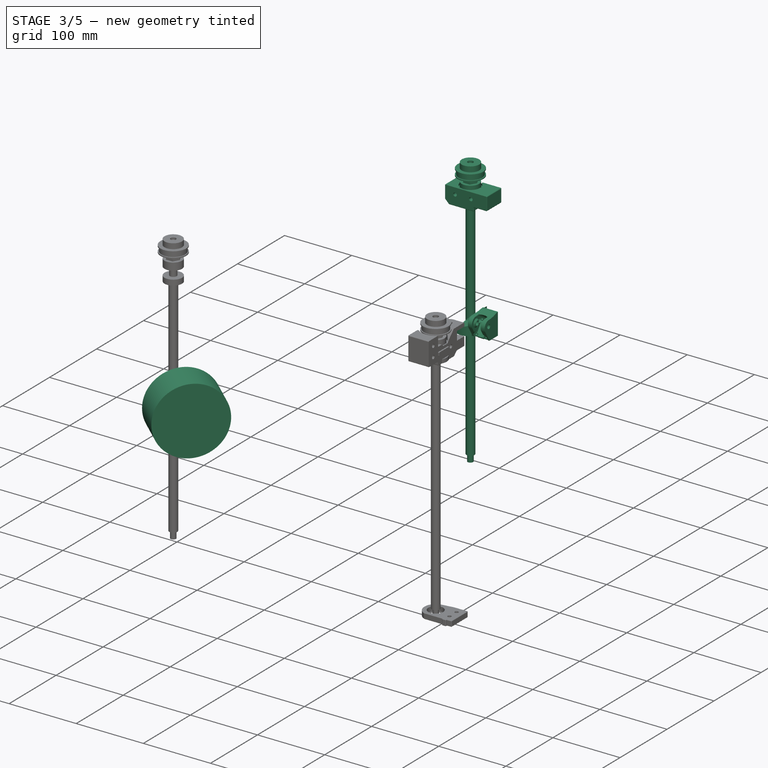
[diagram: stage 3 of 5 — iso view after this stage's code; geometry added in this stage tinted green]
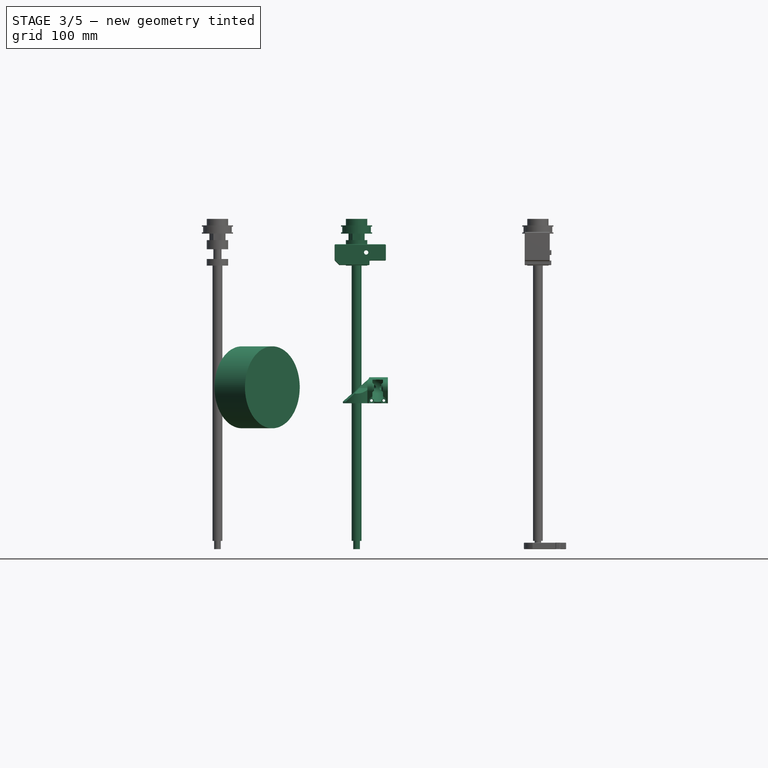
[diagram: stage 3 of 5 — front view after this stage's code; geometry added in this stage tinted green]
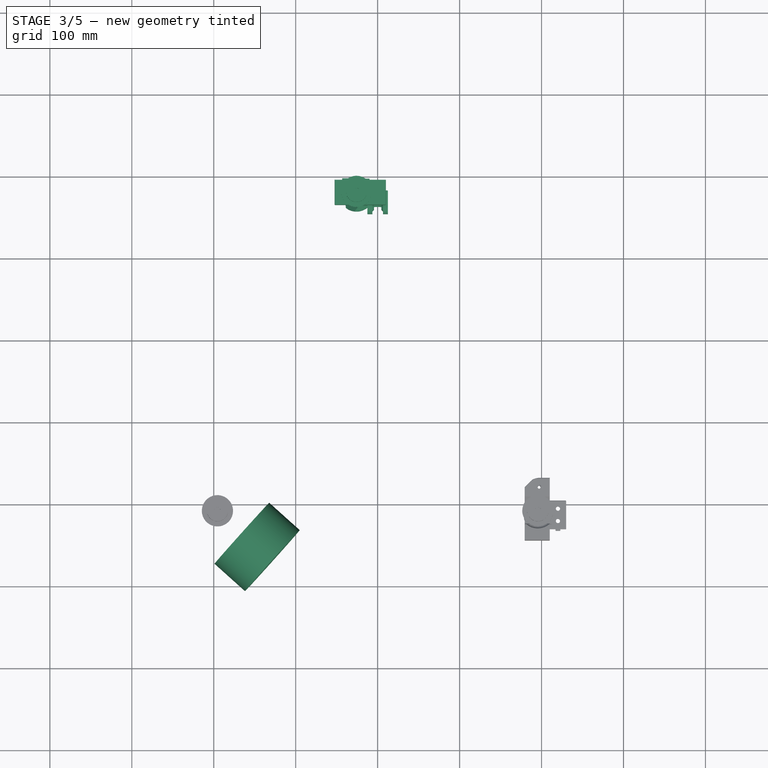
[diagram: stage 3 of 5 — top view after this stage's code; geometry added in this stage tinted green]
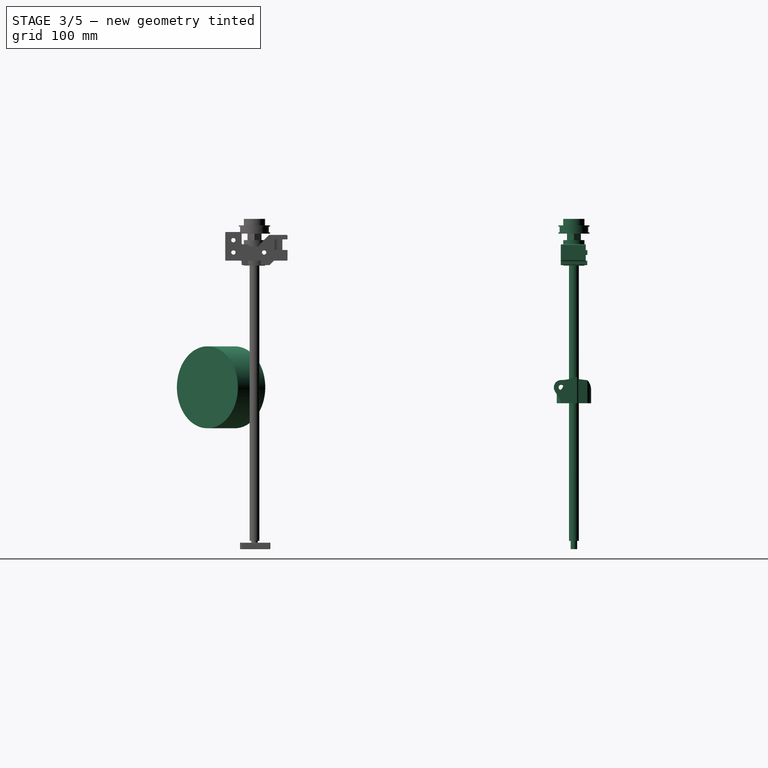
[diagram: stage 3 of 5 — right view after this stage's code; geometry added in this stage tinted green]
FEATURE [Part::MultiFuse] Fusion024  label="Ball Screw Stack Rear"
  Placement = pos=(-25.75,-24.5,10) rot=(0,0,1;0rad)
  Shapes = -> [Extrude083,Extrude084,Extrude085,Fusion020,Cut034]
  TreeRank = 484
FEATURE [Part::Refine] Refined  label="Ball Screw Mount Front Left Refined"
  Source = -> Fusion025
  TreeRank = 528
FEATURE [Part::FeaturePython] Parts006  # WARN: FeaturePython — macro-defined, semantics opaque (R4)
  Group = -> [Fusion006,Fusion022,Refined]
  GroupMode = 0
  TreeRank = 224
  _LinkVersion = 1
FEATURE [Part::Refine] Refined001  label="Ball Screw Mount Front Right Refined"
  Source = -> Fusion026
  TreeRank = 529
FEATURE [Part::FeaturePython] Parts007  # WARN: FeaturePython — macro-defined, semantics opaque (R4)
  Group = -> [Fusion007,Fusion023,Refined001]
  GroupMode = 0
  TreeRank = 228
  _LinkVersion = 1
FEATURE [Part::SubShapeBinder] Import013  label="Import013(Extrude015)"
  BindCopyOnChange = 0
  BindMode = 0
  ClaimChildren = false
  EdgeTolerance = 1e-06
  FillStyle = 0
  Fuse = false
  MakeFace = false
  MergeEdges = true
  OffsetFill = false
  OffsetIntersection = false
  OffsetJoinType = 0
  OffsetOpenResult = false
  Outline = false
  PartialLoad = false
  Relative = true
  SplitEdges = false
  Support = -> [Extrude015]
  TightBound = false
  TreeRank = 545
  _Version = 8
FEATURE [Part::SubShapeBinder] Import014  label="Import014(Extrude012)"
  BindCopyOnChange = 0
  BindMode = 0
  ClaimChildren = false
  EdgeTolerance = 1e-06
  FillStyle = 0
  Fuse = false
  MakeFace = false
  MergeEdges = true
  OffsetFill = false
  OffsetIntersection = false
  OffsetJoinType = 0
  OffsetOpenResult = false
  Outline = false
  PartialLoad = false
  Relative = true
  SplitEdges = false
  Support = -> [Extrude012]
  TightBound = false
  TreeRank = 546
  _Version = 8
FEATURE [Sketcher::SketchObject] Sketch093
  ArcFitTolerance = 1e-06
  AttachmentSupport = -> [Extrude015]
  ExternalBSplineMaxDegree = 5
  ExternalBSplineTolerance = 0.0001
  ExternalGeometry = -> [Import013,Import014,Fusion025]
  FullyConstrained = true
  InternalTolerance = 1e-06
  MakeInternals = false
  MapMode = 5
  Placement = pos=(1.1e-15,-10,1.96e-14) rot=(1,0,0;1.5708rad)
  Support = -> [Extrude015]
  TreeRank = 544
  sketch-geometry (23):
    g0: LineSegment StartX=9 StartY=362 StartZ=0 EndX=-9 EndY=362 EndZ=0
    g1: LineSegment StartX=-46.2929 StartY=356.5 StartZ=0 EndX=-11 EndY=356.5 EndZ=0
    g2: LineSegment StartX=-52.5 StartY=362.707 StartZ=0 EndX=-52.5 EndY=381 EndZ=0
    g3: LineSegment StartX=-51.5 StartY=382 StartZ=0 EndX=9 EndY=382 EndZ=0
    g4: LineSegment StartX=10 StartY=381 StartZ=0 EndX=10 EndY=363 EndZ=0
    g5: ArcOfCircle CenterX=-51.5 CenterY=381 CenterZ=0 NormalX=0 NormalY=0 NormalZ=1 AngleXU=0 Radius=1 StartAngle=1.5708 EndAngle=3.14159
    g6: ArcOfCircle CenterX=9 CenterY=381 CenterZ=0 NormalX=0 NormalY=0 NormalZ=1 AngleXU=0 Radius=1 StartAngle=-1.78e-14 EndAngle=1.5708
    g7: ArcOfCircle CenterX=9 CenterY=363 CenterZ=0 NormalX=0 NormalY=0 NormalZ=1 AngleXU=0 Radius=1 StartAngle=4.71239 EndAngle=6.28319
    g8: LineSegment StartX=-10 StartY=357.5 StartZ=0 EndX=-10 EndY=361 EndZ=0
    g9: ArcOfCircle CenterX=-9 CenterY=361 CenterZ=0 NormalX=0 NormalY=0 NormalZ=1 AngleXU=0 Radius=1 StartAngle=1.5708 EndAngle=3.14159
    g10: ArcOfCircle CenterX=-11 CenterY=357.5 CenterZ=0 NormalX=0 NormalY=0 NormalZ=1 AngleXU=0 Radius=1 StartAngle=4.71239 EndAngle=6.28319
    g11: LineSegment StartX=-52.2071 StartY=362 StartZ=0 EndX=-47 EndY=356.793 EndZ=0
    g12: ArcOfCircle CenterX=-51.5 CenterY=362.707 CenterZ=0 NormalX=0 NormalY=0 NormalZ=1 AngleXU=0 Radius=1 StartAngle=3.14159 EndAngle=3.92699
    g13: ArcOfCircle CenterX=-46.2929 CenterY=357.5 CenterZ=0 NormalX=0 NormalY=0 NormalZ=1 AngleXU=0 Radius=1 StartAngle=3.92699 EndAngle=4.71239
    g14: LineSegment [constr] StartX=-10 StartY=362 StartZ=0 EndX=-10 EndY=372 EndZ=0
    g15: LineSegment [constr] StartX=-10 StartY=372 StartZ=0 EndX=-37.5 EndY=372 EndZ=0
    g16: LineSegment [constr] StartX=-10 StartY=372 StartZ=0 EndX=-10 EndY=382 EndZ=0
    g17: LineSegment [constr] StartX=-10 StartY=372 StartZ=0 EndX=-25.75 EndY=372 EndZ=0
    g18: LineSegment [constr] StartX=-37.5 StartY=372 StartZ=0 EndX=-25.75 EndY=372 EndZ=0
    g19: LineSegment [constr] StartX=-25.75 StartY=372 StartZ=0 EndX=-14 EndY=372 EndZ=0
    g20: LineSegment [constr] StartX=-37.5 StartY=372 StartZ=0 EndX=-52.5 EndY=372 EndZ=0
    g21: Circle CenterX=-37.5 CenterY=372 CenterZ=0 NormalX=0 NormalY=0 NormalZ=1 AngleXU=0 Radius=2.625
    g22: Circle CenterX=-14 CenterY=372 CenterZ=0 NormalX=0 NormalY=0 NormalZ=1 AngleXU=0 Radius=2.625
  constraints (58):
    c: PointOnObject(g0,g-3)
    c: PointOnObject(g0,g-3)
    c: PointOnObject(g3,g-4)
    c: PointOnObject(g3,g-4)
    c: Parallel(g-3,g1)
    c: Parallel(g4,g2)
    c: Tangent(g5,g2) = 1.5708
    c: Tangent(g5,g3) = 1.5708
    c: Tangent(g6,g3) = 1.5708
    c: Tangent(g6,g4) = 1.5708
    c: Tangent(g7,g4) = 1.5708
    c: Tangent(g7,g0) = 1.5708
    c: PointOnObject(g8,g-5)
    c: PointOnObject(g8,g-5)
    c: Tangent(g9,g0) = -1.5708
    c: Tangent(g9,g8) = 1.5708
    c: Tangent(g10,g8) = -1.5708
    c: Tangent(g10,g1) = -1.5708
    c: Tangent(g12,g2) = 1.5708
    c: Tangent(g12,g11) = -1.5708
    c: Tangent(g13,g11) = -1.5708
    c: Tangent(g13,g1) = -1.5708
    c: Equal(g12,g13)
    c: Equal(g13,g10)
    c: Equal(g10,g9)
    c: Equal(g9,g7)
    c: Equal(g7,g6)
    c: Equal(g6,g5)
    c: Diameter(g6) = 2
    c: PointOnObject(g11,g-3)
    c: Tangent(g-6,g4)
    c: PointOnObject(g-7,g1)
    c: Coincident(g14,g-5)
    c: Coincident(g15,g14)
    c: Parallel(g14,g-5)
    c: Parallel(g15,g3)
    c: Coincident(g16,g14)
    c: PointOnObject(g16,g3)
    c: Parallel(g16,g14)
    c: Equal(g14,g16)
    c: Distance(g15) = 27.5
    c: Coincident(g17,g14)
    c: PointOnObject(g17,g15)
    c: Distance(g17) = 15.75
    c: Coincident(g18,g15)
    c: Coincident(g18,g17)
    c: Coincident(g19,g18)
    c: PointOnObject(g19,g15)
    c: Equal(g19,g18)
    c: Coincident(g20,g15)
    c: PointOnObject(g20,g2)
    c: Parallel(g15,g20)
    c: Distance(g20) = 15
    c: Angle(g11,g2) = 2.35619
    c: Coincident(g21,g15)
    c: Coincident(g22,g19)
    c: Equal(g22,g21)
    c: Diameter(g21) = 5.25
FEATURE [Part::Extrusion] Extrude095
  AutoTaperInnerAngle = true
  Base = -> Sketch093
  Dir = (1e-16,-1,2.4e-15)
  DirMode = 2
  FaceMakerClass = Part::FaceMakerBullseye
  LengthFwd = 30.5
  LengthRev = 0
  Linearize = true
  Solid = true
  Symmetric = false
  TaperInnerAngle = 0
  TaperInnerAngleRev = 0
  TreeRank = 547
  expr: LengthFwd = <<GlobalVars>>.bearing_51200_outer_diameter + 3 + 1.5
FEATURE [Sketcher::SketchObject] Sketch094
  ArcFitTolerance = 1e-06
  AttachmentSupport = -> [Extrude095]
  ExternalBSplineMaxDegree = 5
  ExternalBSplineTolerance = 0.0001
  ExternalGeometry = -> [Import014,Import013]
  FullyConstrained = true
  InternalTolerance = 1e-06
  MakeInternals = false
  MapMode = 5
  Placement = pos=(0,9.118e-13,382) rot=(0,0,1;0rad)
  Support = -> [Extrude095]
  TreeRank = 548
  expr: Constraints[19] = <<GlobalVars>>.bearing_51200_outer_diameter
  sketch-geometry (7):
    g0: LineSegment [constr] StartX=-10 StartY=-10 StartZ=0 EndX=-10 EndY=-24.5 EndZ=0
    g1: LineSegment [constr] StartX=-10 StartY=-24.5 StartZ=0 EndX=-25.75 EndY=-24.5 EndZ=0
    g2: ArcOfCircle CenterX=-25.75 CenterY=-24.5 CenterZ=0 NormalX=0 NormalY=0 NormalZ=1 AngleXU=0 Radius=13 StartAngle=2.18166 EndAngle=7.24312
    g3: LineSegment StartX=-33.2065 StartY=-13.851 StartZ=0 EndX=-29.8489 EndY=-11.5 EndZ=0
    g4: LineSegment StartX=-29.8489 StartY=-11.5 StartZ=0 EndX=-21.6511 EndY=-11.5 EndZ=0
    g5: LineSegment StartX=-21.6511 StartY=-11.5 StartZ=0 EndX=-18.2935 EndY=-13.851 EndZ=0
    g6: LineSegment [constr] StartX=-25.75 StartY=-24.5 StartZ=0 EndX=-25.75 EndY=-11.5 EndZ=0
  constraints (20):
    c: PointOnObject(g0,g-4)
    c: Coincident(g1,g0)
    c: Parallel(g1,g-4)
    c: Angle(g0,g-4) = 1.5708
    c: PointOnObject(g-3,g0)
    c: Distance(g0) = 14.5
    c: Distance(g1) = 15.75
    c: Coincident(g2,g1)
    c: Coincident(g4,g3)
    c: Coincident(g5,g4)
    c: Tangent(g5,g2) = 1.5708
    c: Tangent(g3,g2) = 1.5708
    c: Equal(g3,g5)
    c: Parallel(g4,g-4)
    c: Coincident(g6,g2)
    c: PointOnObject(g6,g4)
    c: Parallel(g6,g0)
    c: PointOnObject(g6,g2)
    c: Angle(g4,g5) = 2.53073
    c: Diameter(g2) = 26
FEATURE [Part::Extrusion] Extrude096
  AutoTaperInnerAngle = true
  Base = -> Sketch094
  Dir = (0,2.4e-15,1)
  DirMode = 2
  FaceMakerClass = Part::FaceMakerBullseye
  LengthFwd = 50
  LengthRev = 6
  Linearize = true
  Solid = true
  Symmetric = false
  TaperInnerAngle = 0
  TaperInnerAngleRev = 0
  TreeRank = 549
FEATURE [Part::Cut] Cut041
  Base = -> Extrude095
  Tool = -> Extrude096
  TreeRank = 550
FEATURE [Sketcher::SketchObject] Sketch095
  ArcFitTolerance = 1e-06
  AttachmentSupport = -> [Cut041]
  ExternalBSplineMaxDegree = 5
  ExternalBSplineTolerance = 0.0001
  ExternalGeometry = -> [Cut041]
  FullyConstrained = true
  InternalTolerance = 1e-06
  MakeInternals = false
  MapMode = 5
  Placement = pos=(0,4.165e-13,376) rot=(0,0,1;0rad)
  Support = -> [Cut041]
  TreeRank = 551
  sketch-geometry (5):
    g0: ArcOfCircle CenterX=-25.75 CenterY=-24.5 CenterZ=0 NormalX=0 NormalY=0 NormalZ=1 AngleXU=0 Radius=14.5 StartAngle=2.18166 EndAngle=7.24312
    g1: LineSegment StartX=-34.0669 StartY=-12.6223 StartZ=0 EndX=-30.3218 EndY=-10 EndZ=0
    g2: LineSegment StartX=-17.4331 StartY=-12.6223 StartZ=0 EndX=-21.1782 EndY=-10 EndZ=0
    g3: LineSegment StartX=-30.3218 StartY=-10 StartZ=0 EndX=-21.1782 EndY=-10 EndZ=0
    g4: LineSegment [constr] StartX=-25.75 StartY=-24.5 StartZ=0 EndX=-25.75 EndY=-10 EndZ=0
  constraints (13):
    c: Coincident(g0,g-3)
    c: Coincident(g3,g1)
    c: Coincident(g3,g2)
    c: Tangent(g1,g0) = 1.5708
    c: Tangent(g2,g0) = -1.5708
    c: Equal(g2,g1)
    c: PointOnObject(g1,g-4)
    c: PointOnObject(g2,g-4)
    c: Angle(g1,g3) = 2.53073
    c: Coincident(g4,g0)
    c: PointOnObject(g4,g3)
    c: Angle(g3,g4) = 1.5708
    c: PointOnObject(g4,g0)
FEATURE [Part::Extrusion] Extrude097
  AutoTaperInnerAngle = true
  Base = -> Sketch095
  Dir = (0,1.1e-15,1)
  DirMode = 2
  FaceMakerClass = Part::FaceMakerBullseye
  LengthFwd = 50
  LengthRev = -3
  Linearize = true
  Solid = true
  Symmetric = false
  TaperInnerAngle = 0
  TaperInnerAngleRev = 0
  TreeRank = 552
FEATURE [Part::Cut] Cut042
  Base = -> Cut041
  Tool = -> Extrude097
  TreeRank = 553
FEATURE [Sketcher::SketchObject] Sketch096
  ArcFitTolerance = 1e-06
  AttachmentSupport = -> [Extrude015]
  ExternalBSplineMaxDegree = 5
  ExternalBSplineTolerance = 0.0001
  ExternalGeometry = -> [Cut042]
  FullyConstrained = true
  InternalTolerance = 1e-06
  MakeInternals = false
  MapMode = 5
  Placement = pos=(1.1e-15,-10,1.9e-15) rot=(1,0,0;1.5708rad)
  Support = -> [Extrude015]
  TreeRank = 554
  sketch-geometry (6):
    g0: LineSegment StartX=-30.3218 StartY=379 StartZ=0 EndX=-30.3218 EndY=382 EndZ=0
    g1: LineSegment StartX=-30.3218 StartY=382 StartZ=0 EndX=-34.0669 EndY=382 EndZ=0
    g2: LineSegment StartX=-34.0669 StartY=382 StartZ=0 EndX=-30.3218 EndY=379 EndZ=0
    g3: LineSegment StartX=-21.1782 StartY=379 StartZ=0 EndX=-21.1782 EndY=382 EndZ=0
    g4: LineSegment StartX=-21.1782 StartY=382 StartZ=0 EndX=-17.4331 EndY=382 EndZ=0
    g5: LineSegment StartX=-21.1782 StartY=379 StartZ=0 EndX=-17.4331 EndY=382 EndZ=0
  constraints (13):
    c: Coincident(g0,g-3)
    c: Coincident(g0,g-6)
    c: Coincident(g1,g0)
    c: Coincident(g2,g1)
    c: Coincident(g2,g0)
    c: Coincident(g3,g-4)
    c: Coincident(g3,g-5)
    c: Coincident(g4,g3)
    c: PointOnObject(g4,g-5)
    c: Coincident(g5,g3)
    c: Coincident(g5,g4)
    c: Equal(g4,g1)
    c: Coincident(g1,g-7)
FEATURE [Part::Extrusion] Extrude098
  AutoTaperInnerAngle = true
  Base = -> Sketch096
  Dir = (1e-16,-1,2e-16)
  DirMode = 2
  FaceMakerClass = Part::FaceMakerBullseye
  LengthFwd = 13
  LengthRev = 0
  Linearize = true
  Solid = true
  Symmetric = false
  TaperInnerAngle = 0
  TaperInnerAngleRev = 0
  TreeRank = 555
  expr: LengthFwd = <<GlobalVars>>.bearing_51200_outer_diameter / 2
FEATURE [Part::Cut] Cut043
  Base = -> Cut042
  Tool = -> Extrude098
  TreeRank = 556
FEATURE [Sketcher::SketchObject] Sketch097
  ArcFitTolerance = 1e-06
  AttachmentSupport = -> [Cut043]
  ExternalBSplineMaxDegree = 5
  ExternalBSplineTolerance = 0.0001
  ExternalGeometry = -> [Cut043]
  FullyConstrained = true
  InternalTolerance = 1e-06
  MakeInternals = false
  MapMode = 5
  Placement = pos=(0,4.165e-13,376) rot=(0,0,1;0rad)
  Support = -> [Cut043]
  TreeRank = 557
  expr: Constraints[12] = <<GlobalVars>>.sfu1204_diameter + 4
  sketch-geometry (5):
    g0: ArcOfCircle CenterX=-25.75 CenterY=-24.5 CenterZ=0 NormalX=0 NormalY=0 NormalZ=1 AngleXU=0 Radius=8 StartAngle=2.18166 EndAngle=7.24312
    g1: LineSegment StartX=-30.3386 StartY=-17.9468 StartZ=0 EndX=-28.2724 EndY=-16.5 EndZ=0
    g2: LineSegment StartX=-21.1614 StartY=-17.9468 StartZ=0 EndX=-23.2276 EndY=-16.5 EndZ=0
    g3: LineSegment StartX=-23.2276 StartY=-16.5 StartZ=0 EndX=-28.2724 EndY=-16.5 EndZ=0
    g4: LineSegment [constr] StartX=-25.75 StartY=-24.5 StartZ=0 EndX=-25.75 EndY=-16.5 EndZ=0
  constraints (13):
    c: Coincident(g0,g-3)
    c: Coincident(g3,g2)
    c: Coincident(g3,g1)
    c: Tangent(g1,g0) = 1.5708
    c: Tangent(g2,g0) = -1.5708
    c: Equal(g1,g2)
    c: Parallel(g3,g-4)
    c: Angle(g1,g3) = 2.53073
    c: Coincident(g4,g0)
    c: PointOnObject(g4,g3)
    c: Angle(g3,g4) = 1.5708
    c: PointOnObject(g4,g0)
    c: Diameter(g0) = 16
FEATURE [Part::Extrusion] Extrude099
  AutoTaperInnerAngle = true
  Base = -> Sketch097
  Dir = (0,1.1e-15,1)
  DirMode = 2
  FaceMakerClass = Part::FaceMakerBullseye
  LengthFwd = 50
  LengthRev = 50
  Linearize = true
  Solid = true
  Symmetric = false
  TaperInnerAngle = 0
  TaperInnerAngleRev = 0
  TreeRank = 558
FEATURE [Part::Cut] Cut044
  Base = -> Cut043
  Tool = -> Extrude099
  TreeRank = 559
FEATURE [Sketcher::SketchObject] Sketch098
  ArcFitTolerance = 1e-06
  AttachmentSupport = -> [Cut044]
  ExternalBSplineMaxDegree = 5
  ExternalBSplineTolerance = 0.0001
  ExternalGeometry = -> [Cut044]
  FullyConstrained = true
  InternalTolerance = 1e-06
  MakeInternals = false
  MapMode = 5
  Placement = pos=(5.742e-13,8.51e-13,356.5) rot=(1,0,0;3.14159rad)
  Support = -> [Cut044]
  TreeRank = 560
  expr: Constraints[12] = <<GlobalVars>>.bearing_6000_outer_diameter
  sketch-geometry (5):
    g0: ArcOfCircle CenterX=-25.75 CenterY=24.5 CenterZ=0 NormalX=0 NormalY=0 NormalZ=1 AngleXU=0 Radius=13 StartAngle=5.32325 EndAngle=10.3847
    g1: LineSegment StartX=-33.2065 StartY=13.851 StartZ=0 EndX=-29.8489 EndY=11.5 EndZ=0
    g2: LineSegment StartX=-29.8489 StartY=11.5 StartZ=0 EndX=-21.6511 EndY=11.5 EndZ=0
    g3: LineSegment StartX=-21.6511 StartY=11.5 StartZ=0 EndX=-18.2935 EndY=13.851 EndZ=0
    g4: LineSegment [constr] StartX=-25.75 StartY=24.5 StartZ=0 EndX=-25.75 EndY=11.5 EndZ=0
  constraints (13):
    c: Coincident(g0,g-3)
    c: Coincident(g2,g1)
    c: Coincident(g3,g2)
    c: Equal(g1,g3)
    c: Tangent(g1,g0) = -1.5708
    c: Tangent(g3,g0) = -1.5708
    c: Angle(g2,g1) = 2.53073
    c: Parallel(g2,g-4)
    c: Coincident(g4,g0)
    c: PointOnObject(g4,g2)
    c: Angle(g4,g2) = 1.5708
    c: PointOnObject(g4,g0)
    c: Diameter(g0) = 26
FEATURE [Part::Extrusion] Extrude100
  AutoTaperInnerAngle = true
  Base = -> Sketch098
  Dir = (-1.6e-15,-2.4e-15,-1)
  DirMode = 2
  FaceMakerClass = Part::FaceMakerBullseye
  LengthFwd = 0
  LengthRev = 7.5
  Linearize = true
  Solid = true
  Symmetric = false
  TaperInnerAngle = 0
  TaperInnerAngleRev = 0
  TreeRank = 561
  expr: LengthFwd = 0
  expr: LengthRev = <<GlobalVars>>.bearing_6000_depth - 0.5
FEATURE [Part::Cut] Cut045
  Base = -> Cut044
  Tool = -> Extrude100
  TreeRank = 562
FEATURE [Sketcher::SketchObject] Sketch099
  ArcFitTolerance = 1e-06
  AttachmentSupport = -> [Cut045]
  ExternalBSplineMaxDegree = 5
  ExternalBSplineTolerance = 0.0001
  ExternalGeometry = -> [Cut045]
  FullyConstrained = true
  InternalTolerance = 1e-06
  MakeInternals = false
  MapMode = 5
  Placement = pos=(3.504e-13,7.133e-13,364) rot=(1,0,0;3.14159rad)
  Support = -> [Cut045]
  TreeRank = 563
  expr: Constraints[12] = <<GlobalVars>>.bearing_6000_abutment_diameter
  sketch-geometry (5):
    g0: ArcOfCircle CenterX=-25.75 CenterY=24.5 CenterZ=0 NormalX=0 NormalY=0 NormalZ=1 AngleXU=0 Radius=12 StartAngle=5.32325 EndAngle=10.3847
    g1: LineSegment StartX=-32.6329 StartY=14.6702 StartZ=0 EndX=-29.5336 EndY=12.5 EndZ=0
    g2: LineSegment StartX=-29.5336 StartY=12.5 StartZ=0 EndX=-21.9664 EndY=12.5 EndZ=0
    g3: LineSegment StartX=-21.9664 StartY=12.5 StartZ=0 EndX=-18.8671 EndY=14.6702 EndZ=0
    g4: LineSegment [constr] StartX=-25.75 StartY=24.5 StartZ=0 EndX=-25.75 EndY=12.5 EndZ=0
  constraints (13):
    c: Coincident(g0,g-3)
    c: Coincident(g2,g1)
    c: Coincident(g3,g2)
    c: Tangent(g3,g0) = -1.5708
    c: Tangent(g1,g0) = -1.5708
    c: Equal(g3,g1)
    c: Parallel(g2,g-4)
    c: Angle(g2,g1) = 2.53073
    c: Coincident(g4,g0)
    c: PointOnObject(g4,g2)
    c: Angle(g4,g2) = 1.5708
    c: PointOnObject(g4,g0)
    c: Diameter(g0) = 24
FEATURE [Part::Extrusion] Extrude101
  AutoTaperInnerAngle = true
  Base = -> Sketch099
  Dir = (-1e-15,-2e-15,-1)
  DirMode = 2
  FaceMakerClass = Part::FaceMakerBullseye
  LengthFwd = 0
  LengthRev = 1
  Linearize = true
  Solid = true
  Symmetric = false
  TaperInnerAngle = 0
  TaperInnerAngleRev = 0
  TreeRank = 564
FEATURE [Part::Cut] Cut046
  Base = -> Cut045
  Tool = -> Extrude101
  TreeRank = 565
FEATURE [Part::Chamfer] Chamfer002
  Base = -> Cut046
  EdgeLinks = -> Cut046 [Edge38]
  Edges = 1 edges r=0.45: [Edge38]
  TreeRank = 566
FEATURE [Sketcher::SketchObject] Sketch100
  ArcFitTolerance = 1e-06
  AttachmentSupport = -> [Chamfer002]
  ExternalBSplineMaxDegree = 5
  ExternalBSplineTolerance = 0.0001
  ExternalGeometry = -> [Import013,Chamfer002]
  FullyConstrained = true
  InternalTolerance = 1e-06
  MakeInternals = false
  MapMode = 5
  Placement = pos=(1.2e-15,-10,2.1e-14) rot=(0,0.707107,0.707107;3.14159rad)
  Support = -> [Chamfer002]
  TreeRank = 567
  sketch-geometry (10):
    g0: LineSegment [constr] StartX=16.625 StartY=372 StartZ=0 EndX=19.625 EndY=372 EndZ=0
    g1: LineSegment [constr] StartX=43.125 StartY=372 StartZ=0 EndX=40.125 EndY=372 EndZ=0
    g2: LineSegment StartX=20.625 StartY=375 StartZ=0 EndX=42.125 EndY=375 EndZ=0
    g3: LineSegment StartX=20.625 StartY=369 StartZ=0 EndX=42.125 EndY=369 EndZ=0
    g4: LineSegment StartX=43.125 StartY=374 StartZ=0 EndX=43.125 EndY=370 EndZ=0
    g5: LineSegment StartX=19.625 StartY=370 StartZ=0 EndX=19.625 EndY=374 EndZ=0
    g6: ArcOfCircle CenterX=20.625 CenterY=374 CenterZ=0 NormalX=0 NormalY=0 NormalZ=1 AngleXU=0 Radius=1 StartAngle=1.5708 EndAngle=3.14159
    g7: ArcOfCircle CenterX=42.125 CenterY=374 CenterZ=0 NormalX=0 NormalY=0 NormalZ=1 AngleXU=0 Radius=1 StartAngle=2.43e-14 EndAngle=1.5708
    g8: ArcOfCircle CenterX=42.125 CenterY=370 CenterZ=0 NormalX=0 NormalY=0 NormalZ=1 AngleXU=0 Radius=1 StartAngle=4.71239 EndAngle=6.28319
    g9: ArcOfCircle CenterX=20.625 CenterY=370 CenterZ=0 NormalX=0 NormalY=0 NormalZ=1 AngleXU=0 Radius=1 StartAngle=3.14159 EndAngle=4.71239
  constraints (28):
    c: PointOnObject(g0,g-5)
    c: PointOnObject(g-5,g0)
    c: Distance(g0) = 3
    c: Parallel(g0,g-4)
    c: PointOnObject(g1,g-6)
    c: Parallel(g1,g0)
    c: PointOnObject(g-6,g1)
    c: Equal(g0,g1)
    c: PointOnObject(g2,g-4)
    c: PointOnObject(g2,g-4)
    c: PointOnObject(g3,g-3)
    c: PointOnObject(g3,g-3)
    c: Angle(g2,g4) = 1.5708
    c: Parallel(g5,g4)
    c: PointOnObject(g0,g5)
    c: PointOnObject(g1,g4)
    c: Tangent(g6,g5) = 1.5708
    c: Tangent(g6,g2) = 1.5708
    c: Tangent(g7,g2) = 1.5708
    c: Tangent(g7,g4) = 1.5708
    c: Tangent(g8,g4) = 1.5708
    c: Tangent(g9,g5) = 1.5708
    c: Tangent(g9,g3) = -1.5708
    c: Equal(g9,g6)
    c: Equal(g6,g7)
    c: Equal(g7,g8)
    c: Diameter(g7) = 2
    c: Tangent(g8,g3) = -1.5708
FEATURE [Part::Extrusion] Extrude102
  AutoTaperInnerAngle = true
  Base = -> Sketch100
  Dir = (-1e-16,1,-2.1e-15)
  DirMode = 2
  FaceMakerClass = Part::FaceMakerBullseye
  LengthFwd = 2
  LengthRev = 0
  Linearize = true
  Solid = true
  Symmetric = false
  TaperInnerAngle = 0
  TaperInnerAngleRev = 0
  TreeRank = 568
FEATURE [Part::MultiFuse] Fusion027
  Shapes = -> [Chamfer002,Extrude102]
  TreeRank = 569
FEATURE [Sketcher::SketchObject] Sketch101
  ArcFitTolerance = 1e-06
  AttachmentSupport = -> [Fusion027]
  ExternalBSplineMaxDegree = 5
  ExternalBSplineTolerance = 0.0001
  ExternalGeometry = -> [Fusion027]
  FullyConstrained = true
  InternalTolerance = 1e-06
  MakeInternals = false
  MapMode = 5
  Placement = pos=(1.2e-15,-10,2.1e-14) rot=(0,0.707107,0.707107;3.14159rad)
  Support = -> [Fusion027]
  TreeRank = 570
  sketch-geometry (6):
    g0: LineSegment StartX=10 StartY=357.5 StartZ=0 EndX=10 EndY=361 EndZ=0
    g1: LineSegment StartX=11 StartY=356.5 StartZ=0 EndX=46.2929 EndY=356.5 EndZ=0
    g2: ArcOfCircle CenterX=11 CenterY=361 CenterZ=0 NormalX=0 NormalY=0 NormalZ=1 AngleXU=0 Radius=1 StartAngle=1.5708 EndAngle=3.14159
    g3: LineSegment StartX=11 StartY=362 StartZ=0 EndX=46.2929 EndY=362 EndZ=0
    g4: LineSegment StartX=46.2929 StartY=362 StartZ=0 EndX=46.2929 EndY=356.5 EndZ=0
    g5: ArcOfCircle CenterX=11 CenterY=357.5 CenterZ=0 NormalX=0 NormalY=0 NormalZ=1 AngleXU=0 Radius=1 StartAngle=3.14159 EndAngle=4.71239
  constraints (13):
    c: Coincident(g0,g-4)
    c: Coincident(g0,g-4)
    c: Coincident(g1,g-5)
    c: Tangent(g2,g0) = 1.5708
    c: Tangent(g3,g2) = 1.5708
    c: Parallel(g3,g1)
    c: Coincident(g4,g3)
    c: Coincident(g4,g1)
    c: Parallel(g4,g0)
    c: Coincident(g1,g-5)
    c: Coincident(g5,g1)
    c: Tangent(g5,g0) = 1.5708
    c: Equal(g5,g2)
FEATURE [Part::Extrusion] Extrude103
  AutoTaperInnerAngle = true
  Base = -> Sketch101
  Dir = (-1e-16,1,-2.1e-15)
  DirMode = 2
  FaceMakerClass = Part::FaceMakerBullseye
  LengthFwd = 4
  LengthRev = 0
  Linearize = true
  Solid = true
  Symmetric = false
  TaperInnerAngle = 0
  TaperInnerAngleRev = 0
  TreeRank = 571
FEATURE [Part::MultiFuse] Fusion028
  Shapes = -> [Fusion027,Extrude103]
  TreeRank = 572
FEATURE [Sketcher::SketchObject] Sketch102
  ArcFitTolerance = 1e-06
  AttachmentSupport = -> [Fusion028]
  ExternalBSplineMaxDegree = 5
  ExternalBSplineTolerance = 0.0001
  ExternalGeometry = -> [Fusion028]
  FullyConstrained = true
  InternalTolerance = 1e-06
  MakeInternals = false
  MapMode = 5
  Placement = pos=(5.742e-13,8.51e-13,356.5) rot=(1,0,0;3.14159rad)
  Support = -> [Fusion028]
  TreeRank = 573
  sketch-geometry (8):
    g0: ArcOfCircle CenterX=-25.75 CenterY=24.5 CenterZ=0 NormalX=0 NormalY=0 NormalZ=1 AngleXU=0 Radius=16.3049 StartAngle=4.23741 EndAngle=4.71239
    g1: LineSegment [constr] StartX=-25.75 StartY=24.5 StartZ=0 EndX=-25.75 EndY=8.19511 EndZ=0
    g2: LineSegment [constr] StartX=-33.2065 StartY=10 StartZ=0 EndX=-33.2065 EndY=13.851 EndZ=0
    g3: LineSegment StartX=-33.2065 StartY=10 StartZ=0 EndX=-46.2929 EndY=10 EndZ=0
    g4: LineSegment StartX=-46.2929 StartY=10 StartZ=0 EndX=-46.2929 EndY=6 EndZ=0
    g5: LineSegment StartX=-46.2929 StartY=6 StartZ=0 EndX=-10 EndY=6 EndZ=0
    g6: LineSegment StartX=-25.75 StartY=8.19511 StartZ=0 EndX=-10 EndY=8.19511 EndZ=0
    g7: LineSegment StartX=-10 StartY=6 StartZ=0 EndX=-10 EndY=8.19511 EndZ=0
  constraints (18):
    c: Coincident(g0,g-3)
    c: PointOnObject(g0,g-6)
    c: Coincident(g1,g0)
    c: Coincident(g1,g0)
    c: Parallel(g1,g-4)
    c: Coincident(g2,g0)
    c: Coincident(g2,g-3)
    c: Parallel(g2,g1)
    c: Coincident(g3,g0)
    c: Coincident(g3,g-6)
    c: Coincident(g4,g3)
    c: Coincident(g4,g-5)
    c: Coincident(g5,g4)
    c: Coincident(g5,g-4)
    c: PointOnObject(g6,g-4)
    c: Coincident(g7,g5)
    c: Coincident(g7,g6)
    c: Tangent(g6,g0) = -1.5708
FEATURE [Part::Extrusion] Extrude104
  AutoTaperInnerAngle = true
  Base = -> Sketch102
  Dir = (-1.6e-15,-2.4e-15,-1)
  DirMode = 2
  FaceMakerClass = Part::FaceMakerBullseye
  LengthFwd = 0
  LengthRev = 5.5
  Linearize = true
  Solid = true
  Symmetric = false
  TaperInnerAngle = 0
  TaperInnerAngleRev = 0
  TreeRank = 574
FEATURE [Part::Cut] Cut047  label="Ball Screw Mount Rear Unrefined"
  Base = -> Fusion028
  Tool = -> Extrude104
  TreeRank = 575
FEATURE [Part::Feature] ShapeCopy008  label="Extrude130"
  Placement = pos=(3.5e-15,6.29e-14,18.4285) rot=(0,0,1;0rad)
  TreeRank = 1103
  shape: bbox 20 x 20 x 16 mm, 5 faces (baked)
FEATURE [Part::FeaturePython] Parts001  # WARN: FeaturePython — macro-defined, semantics opaque (R4)
  Group = -> [Extrude019,Cut001,ShapeCopy008]
  GroupMode = 0
  TreeRank = 94
  _LinkVersion = 1
FEATURE [Part::Feature] ShapeCopy009  label="Cut062"
  Placement = pos=(2.07573e-11,-3.3866e-12,-33.7198) rot=(0,0,1;0rad)
  TreeRank = 1116
  shape: bbox 10 x 20 x 40.8 mm, 18 faces (baked)
FEATURE [Sketcher::SketchObject] Sketch103
  ArcFitTolerance = 1e-06
  AttachmentSupport = -> [ShapeCopy009]
  ExternalBSplineMaxDegree = 5
  ExternalBSplineTolerance = 0.0001
  ExternalGeometry = -> [Extrude056,Import015,Import003,ShapeCopy003,Sketch029]
  FullyConstrained = true
  InternalTolerance = 1e-06
  MakeInternals = false
  MapMode = 5
  Placement = pos=(1.94184e-11,-2.1212e-12,219.867) rot=(0,0,1;0rad)
  Support = -> [ShapeCopy009]
  TreeRank = 1064
  sketch-geometry (13):
    g0: Circle CenterX=-195.5 CenterY=-414.25 CenterZ=0 NormalX=0 NormalY=0 NormalZ=1 AngleXU=0 Radius=8
    g1: ArcOfCircle CenterX=-195.5 CenterY=-414.25 CenterZ=0 NormalX=0 NormalY=0 NormalZ=1 AngleXU=0 Radius=21 StartAngle=2.21826 EndAngle=3.80946
    g2: ArcOfCircle [constr] CenterX=-195.5 CenterY=-414.25 CenterZ=0 NormalX=0 NormalY=0 NormalZ=1 AngleXU=0 Radius=21 StartAngle=5.35985 EndAngle=6.95105
    g3: LineSegment StartX=-208.166 StartY=-397.5 StartZ=0 EndX=-179.012 EndY=-401.244 EndZ=0
    g4: LineSegment [constr] StartX=-211.988 StartY=-427.256 StartZ=0 EndX=-182.834 EndY=-431 EndZ=0
    g5: LineSegment [constr] StartX=-211.988 StartY=-427.256 StartZ=0 EndX=-208.166 EndY=-397.5 EndZ=0
    g6: LineSegment [constr] StartX=-182.834 StartY=-431 StartZ=0 EndX=-200 EndY=-431 EndZ=0
    g7: ArcOfCircle CenterX=-201.369 CenterY=-430 CenterZ=0 NormalX=0 NormalY=0 NormalZ=1 AngleXU=0 Radius=1.36937 StartAngle=-1.021e-13 EndAngle=1.44306
    g8: LineSegment StartX=-211.988 StartY=-427.256 StartZ=0 EndX=-201.195 EndY=-428.642 EndZ=0
    g9: LineSegment StartX=-200 StartY=-430 StartZ=0 EndX=-200 EndY=-449 EndZ=0
    g10: ArcOfCircle CenterX=-199 CenterY=-449 CenterZ=0 NormalX=0 NormalY=0 NormalZ=1 AngleXU=0 Radius=1 StartAngle=3.14159 EndAngle=4.71239
    g11: LineSegment StartX=-199 StartY=-450 StartZ=0 EndX=-124.684 EndY=-450 EndZ=0
    g12: LineSegment StartX=-179.012 StartY=-401.244 StartZ=0 EndX=-124.684 EndY=-450 EndZ=0
  constraints (32):
    c: Coincident(g0,g-3)
    c: Diameter(g0) = 16
    c: Coincident(g1,g0)
    c: Coincident(g2,g0)
    c: Coincident(g3,g1)
    c: Coincident(g3,g2)
    c: Coincident(g4,g1)
    c: Coincident(g4,g2)
    c: Equal(g1,g2)
    c: Diameter(g2) = 42
    c: Parallel(g4,g3)
    c: Coincident(g5,g1)
    c: Coincident(g5,g1)
    c: Distance(g5) = 30
    c: Angle(g5,g3) = 1.5708
    c: Coincident(g6,g2)
    c: Parallel(g6,g-4)
    c: PointOnObject(g7,g4)
    c: Coincident(g8,g1)
    c: Tangent(g8,g7) = 1.5708
    c: Tangent(g9,g7) = 1.5708
    c: PointOnObject(g10,g-4)
    c: Tangent(g10,g9) = -1.5708
    c: PointOnObject(g11,g-4)
    c: Tangent(g11,g10) = -1.5708
    c: Diameter(g10) = 2
    c: PointOnObject(g9,g-5)
    c: Coincident(g-6,g6)
    c: Coincident(g-5,g7)
    c: Coincident(g12,g3)
    c: Coincident(g12,g11)
    c: Angle(g12,g-7) = 1.5708
FEATURE [Part::Extrusion] Extrude124
  AutoTaperInnerAngle = true
  Base = -> Sketch103
  Dir = (-5.3e-15,5e-15,1)
  DirMode = 2
  FaceMakerClass = Part::FaceMakerBullseye
  LengthFwd = 0
  LengthRev = 31.8
  Linearize = true
  Solid = true
  Symmetric = false
  TaperInnerAngle = 0
  TaperInnerAngleRev = 0
  TreeRank = 1066
  expr: LengthRev = <<GlobalVars>>.z_axis_rail_carriage_length - 9
FEATURE [Part::Feature] ShapeCopy010  label="Extrude131"
  Placement = pos=(2.06125e-11,-4.679e-13,-2.95502) rot=(0,0,1;0rad)
  TreeRank = 1117
  shape: bbox 25 x 20 x 16 mm, 5 faces (baked)
FEATURE [Sketcher::SketchObject] Sketch128
  ArcFitTolerance = 1e-06
  AttachmentSupport = -> [ShapeCopy010]
  ExternalBSplineMaxDegree = 5
  ExternalBSplineTolerance = 0.0001
  ExternalGeometry = -> [Sketch029]
  FullyConstrained = true
  InternalTolerance = 1e-06
  MakeInternals = false
  MapMode = 5
  Placement = pos=(1.92932e-11,-1.46e-13,207.467) rot=(0,0,1;0rad)
  Support = -> [ShapeCopy010]
  TreeRank = 1118
  expr: Constraints[9] = <<GlobalVars>>.bearing_POS6_outer_diameter + 5
  sketch-geometry (4):
    g0: ArcOfCircle CenterX=-175 CenterY=-430 CenterZ=0 NormalX=0 NormalY=0 NormalZ=1 AngleXU=0 Radius=11.5 StartAngle=3.28286 EndAngle=3.98099
    g1: LineSegment StartX=-182.681 StartY=-438.559 StartZ=0 EndX=-149.285 EndY=-401.347 EndZ=0
    g2: LineSegment StartX=-186.385 StartY=-431.619 StartZ=0 EndX=-196.748 EndY=-358.752 EndZ=0
    g3: LineSegment StartX=-149.285 StartY=-401.347 StartZ=0 EndX=-196.748 EndY=-358.752 EndZ=0
  constraints (11):
    c: Coincident(g0,g-3)
    c: Coincident(g1,g0)
    c: PointOnObject(g1,g-3)
    c: Parallel(g-3,g1)
    c: Tangent(g2,g0) = 1.5708
    c: Coincident(g3,g1)
    c: Coincident(g3,g2)
    c: Angle(g3,g1) = 1.5708
    c: Distance(g1) = 50
    c: Diameter(g0) = 23
    c: Angle(g1,g2) = 0.872665
FEATURE [Part::Revolution] Revolve001  label="Revolve004"
  Angle = 360
  Axis = (0.66791,0.744242,3e-15)
  AxisLink = -> Sketch128 [Edge2]
  Base = (-149.285,-401.347,207.467)
  FaceMakerClass = Part::FaceMakerBullseye
  Solid = true
  Source = -> Sketch128
  Symmetric = false
  TreeRank = 1122
FEATURE [Sketcher::SketchObject] Sketch129
  ArcFitTolerance = 1e-06
  AttachmentSupport = -> [Extrude124]
  ExternalBSplineMaxDegree = 5
  ExternalBSplineTolerance = 0.0001
  ExternalGeometry = -> [Revolve001,ShapeCopy009]
  FullyConstrained = true
  InternalTolerance = 1e-06
  MakeInternals = false
  MapMode = 5
  Placement = pos=(-279.311,-311.232,7.83e-14) rot=(0.261356,0.68253,0.68253;2.63032rad)
  Support = -> [Extrude124]
  TreeRank = 1120
  expr: Constraints[13] = <<GlobalVars>>.bearing_POS6_ball_width
  expr: Constraints[25] = <<GlobalVars>>.bearing_POS6_width
  expr: Constraints[26] = <<GlobalVars>>.bearing_POS6_outer_diameter
  expr: Constraints[3] = <<GlobalVars>>.bearing_POS6_ball_diameter
  expr: Constraints[43] = <<GlobalVars>>.bearing_POS6_bore_diameter
  sketch-geometry (31):
    g0: ArcOfCircle [constr] CenterX=-156.959 CenterY=207.467 CenterZ=0 NormalX=0 NormalY=0 NormalZ=1 AngleXU=0 Radius=6.35 StartAngle=3.92479 EndAngle=5.49999
    g1: ArcOfCircle [constr] CenterX=-156.959 CenterY=207.467 CenterZ=0 NormalX=0 NormalY=0 NormalZ=1 AngleXU=0 Radius=6.35 StartAngle=0.783197 EndAngle=2.3584
    g2: LineSegment [constr] StartX=-152.459 StartY=202.987 StartZ=0 EndX=-152.459 EndY=211.948 EndZ=0
    g3: LineSegment [constr] StartX=-161.459 StartY=202.987 StartZ=0 EndX=-161.459 EndY=211.948 EndZ=0
    g4: LineSegment [constr] StartX=-161.459 StartY=211.948 StartZ=0 EndX=-152.459 EndY=211.948 EndZ=0
    g5: ArcOfCircle [constr] CenterX=-156.959 CenterY=207.467 CenterZ=0 NormalX=0 NormalY=0 NormalZ=1 AngleXU=0 Radius=9 StartAngle=0.923836 EndAngle=1.69263
    g6: ArcOfCircle [constr] CenterX=-156.959 CenterY=207.467 CenterZ=0 NormalX=0 NormalY=0 NormalZ=1 AngleXU=0 Radius=9 StartAngle=4.06543 EndAngle=4.83422
    g7: LineSegment [constr] StartX=-162.384 StartY=200.286 StartZ=0 EndX=-158.053 EndY=216.401 EndZ=0
    g8: LineSegment [constr] StartX=-155.865 StartY=198.534 StartZ=0 EndX=-151.534 EndY=214.649 EndZ=0
    g9: LineSegment [constr] StartX=-158.053 StartY=216.401 StartZ=0 EndX=-151.534 EndY=214.649 EndZ=0
    g10: LineSegment [constr] StartX=-156.959 StartY=207.467 StartZ=0 EndX=-152.459 EndY=207.467 EndZ=0
    g11: LineSegment [constr] StartX=-152.459 StartY=207.467 StartZ=0 EndX=-152.459 EndY=210.467 EndZ=0
    g12: LineSegment [constr] StartX=-152.459 StartY=207.467 StartZ=0 EndX=-152.459 EndY=204.467 EndZ=0
    g13: LineSegment [constr] StartX=-152.459 StartY=204.467 StartZ=0 EndX=-161.459 EndY=204.467 EndZ=0
    g14: LineSegment [constr] StartX=-161.459 StartY=204.467 StartZ=0 EndX=-161.459 EndY=210.467 EndZ=0
    g15: LineSegment [constr] StartX=-161.459 StartY=210.467 StartZ=0 EndX=-152.459 EndY=210.467 EndZ=0
    g16: LineSegment [constr] StartX=-152.459 StartY=210.467 StartZ=0 EndX=-152.459 EndY=211.207 EndZ=0
    g17: LineSegment [constr] StartX=-152.459 StartY=211.948 StartZ=0 EndX=-152.459 EndY=211.207 EndZ=0
    g18: LineSegment [constr] StartX=-152.459 StartY=207.467 StartZ=0 EndX=-152.459 EndY=211.207 EndZ=0
    g19: LineSegment [constr] StartX=-152.459 StartY=207.467 StartZ=0 EndX=-152.459 EndY=203.727 EndZ=0
    g20: LineSegment [constr] StartX=-152.459 StartY=207.467 StartZ=0 EndX=-150.459 EndY=207.467 EndZ=0
    g21: ArcOfCircle CenterX=-156.959 CenterY=207.467 CenterZ=0 NormalX=0 NormalY=0 NormalZ=1 AngleXU=0 Radius=63.7733 StartAngle=4.81449 EndAngle=7.75188
    g22: LineSegment StartX=-150.459 StartY=207.467 StartZ=0 EndX=-150.459 EndY=144.026 EndZ=0
    g23: LineSegment StartX=-150.459 StartY=207.467 StartZ=0 EndX=-150.459 EndY=270.909 EndZ=0
    g24: LineSegment [constr] StartX=-152.459 StartY=203.727 StartZ=0 EndX=-161.459 EndY=203.727 EndZ=0
    g25: LineSegment [constr] StartX=-152.459 StartY=211.207 StartZ=0 EndX=-161.459 EndY=211.207 EndZ=0
    g26: LineSegment [constr] StartX=-161.459 StartY=203.727 StartZ=0 EndX=-161.459 EndY=211.207 EndZ=0
    g27: LineSegment [constr] StartX=-161.459 StartY=207.467 StartZ=0 EndX=-163.459 EndY=207.467 EndZ=0
    g28: ArcOfCircle CenterX=-156.959 CenterY=207.467 CenterZ=0 NormalX=0 NormalY=0 NormalZ=1 AngleXU=0 Radius=63.7733 StartAngle=1.6729 EndAngle=4.61029
    g29: LineSegment StartX=-163.459 StartY=207.467 StartZ=0 EndX=-163.459 EndY=144.026 EndZ=0
    g30: LineSegment StartX=-163.459 StartY=207.467 StartZ=0 EndX=-163.459 EndY=270.909 EndZ=0
  constraints (86):
    c: Coincident(g0,g-3)
    c: Coincident(g1,g0)
    c: Equal(g0,g1)
    c: Diameter(g1) = 12.7
    c: Coincident(g2,g0)
    c: Coincident(g2,g1)
    c: Coincident(g3,g0)
    c: Coincident(g3,g1)
    c: Parallel(g2,g3)
    c: Parallel(g3,g-4)
    c: Equal(g2,g3)
    c: Coincident(g4,g1)
    c: Coincident(g4,g1)
    c: Distance(g4) = 9
    c: Coincident(g5,g-3)
    c: Coincident(g6,g5)
    c: Coincident(g7,g6)
    c: Coincident(g7,g5)
    c: Coincident(g8,g6)
    c: Coincident(g8,g5)
    c: Equal(g7,g8)
    c: Equal(g6,g5)
    c: Parallel(g8,g7)
    c: Coincident(g9,g5)
    c: Coincident(g9,g5)
    c: Distance(g9) = 6.75
    c: Diameter(g5) = 18
    c: Coincident(g10,g-3)
    c: PointOnObject(g10,g2)
    c: Angle(g10,g2) = 1.5708
    c: Coincident(g11,g10)
    c: PointOnObject(g11,g2)
    c: Coincident(g12,g11)
    c: PointOnObject(g12,g2)
    c: Coincident(g13,g12)
    c: PointOnObject(g13,g3)
    c: Coincident(g14,g13)
    c: PointOnObject(g14,g3)
    c: Coincident(g15,g14)
    c: Coincident(g15,g11)
    c: Equal(g12,g11)
    c: Parallel(g15,g13)
    c: Parallel(g13,g10)
    c: Distance(g14) = 6
    c: Coincident(g16,g11)
    c: PointOnObject(g16,g2)
    c: Coincident(g17,g1)
    c: Coincident(g17,g16)
    c: Equal(g16,g17)
    c: PointOnObject(g16,g8)
    c: Coincident(g18,g10)
    c: Coincident(g18,g16)
    c: Coincident(g19,g18)
    c: PointOnObject(g19,g2)
    c: Equal(g19,g18)
    c: Coincident(g20,g18)
    c: Parallel(g20,g10)
    c: Distance(g20) = 2
    c: Coincident(g21,g-5)
    c: Equal(g21,g-5)
    c: Coincident(g22,g21)
    c: Coincident(g23,g21)
    c: Parallel(g23,g22)
    c: Parallel(g22,g-4)
    c: Coincident(g24,g19)
    c: PointOnObject(g24,g3)
    c: Coincident(g25,g18)
    c: PointOnObject(g25,g3)
    c: Parallel(g24,g25)
    c: Parallel(g25,g10)
    c: Coincident(g26,g24)
    c: Coincident(g26,g25)
    c: PointOnObject(g27,g26)
    c: PointOnObject(g27,g10)
    c: Parallel(g27,g10)
    c: Distance(g27) = 2
    c: Coincident(g28,g21)
    c: Equal(g28,g-5)
    c: Coincident(g29,g28)
    c: Coincident(g30,g28)
    c: Parallel(g29,g30)
    c: Parallel(g30,g-4)
    c: Coincident(g23,g20)
    c: Coincident(g22,g23)
    c: Coincident(g29,g27)
    c: Coincident(g30,g29)
FEATURE [Part::Extrusion] Extrude128  label="Extrude132"
  AutoTaperInnerAngle = true
  Base = -> Sketch129
  Dir = (0.66791,0.744242,-4e-16)
  DirMode = 2
  FaceMakerClass = Part::FaceMakerBullseye
  LengthFwd = 50
  LengthRev = 50
  Linearize = true
  Solid = true
  Symmetric = false
  TaperInnerAngle = 0
  TaperInnerAngleRev = 0
  TreeRank = 1123
FEATURE [Part::Cut] Cut056  label="Cut063"
  Base = -> Revolve001
  Tool = -> Extrude128
  TreeRank = 1124
FEATURE [Part::Cut] Cut057  label="Cut064"
  Base = -> Extrude124
  Tool = -> Cut056
  TreeRank = 1125
FEATURE [Sketcher::SketchObject] Sketch130
  ArcFitTolerance = 1e-06
  AttachmentSupport = -> [ShapeCopy010]
  ExternalBSplineMaxDegree = 5
  ExternalBSplineTolerance = 0.0001
  ExternalGeometry = -> [Sketch029]
  FullyConstrained = true
  InternalTolerance = 1e-06
  MakeInternals = false
  MapMode = 5
  Placement = pos=(1.92932e-11,-1.46e-13,207.467) rot=(0,0,1;0rad)
  Support = -> [ShapeCopy010]
  TreeRank = 1126
  expr: Constraints[11] = (<<GlobalVars>>.bearing_POS6_bore_diameter + 0.2) / 2
  expr: Constraints[13] = <<GlobalVars>>.front_POS6_shaft_length
  sketch-geometry (5):
    g0: LineSegment StartX=-175 StartY=-430 StartZ=0 EndX=-165.697 EndY=-438.349 EndZ=0
    g1: LineSegment StartX=-175 StartY=-430 StartZ=0 EndX=-184.303 EndY=-421.651 EndZ=0
    g2: LineSegment StartX=-184.303 StartY=-421.651 StartZ=0 EndX=-182.233 EndY=-419.344 EndZ=0
    g3: LineSegment StartX=-182.233 StartY=-419.344 StartZ=0 EndX=-163.626 EndY=-436.042 EndZ=0
    g4: LineSegment StartX=-165.697 StartY=-438.349 StartZ=0 EndX=-163.626 EndY=-436.042 EndZ=0
  constraints (14):
    c: Coincident(g0,g-3)
    c: Coincident(g1,g0)
    c: Coincident(g2,g1)
    c: Coincident(g4,g0)
    c: Coincident(g4,g3)
    c: Parallel(g4,g2)
    c: Coincident(g3,g2)
    c: Parallel(g0,g1)
    c: Parallel(g1,g3)
    c: Angle(g0,g-3) = 1.5708
    c: Angle(g1,g2) = 1.5708
    c: Distance(g4) = 3.1
    c: Equal(g0,g1)
    c: Distance(g3) = 25
FEATURE [Part::Revolution] Revolve002  label="Revolve005"
  Angle = 360
  Axis = (0.744242,-0.66791,5.7e-15)
  AxisLink = -> Sketch130 [Edge1]
  Base = (-165.697,-438.349,207.467)
  FaceMakerClass = Part::FaceMakerBullseye
  Solid = true
  Source = -> Sketch130
  Symmetric = false
  TreeRank = 1127
FEATURE [Part::Cut] Cut058  label="Cut065"
  Base = -> Cut057
  Tool = -> Revolve002
  TreeRank = 1128
FEATURE [Sketcher::SketchObject] Sketch131
  ArcFitTolerance = 1e-06
  AttachmentSupport = -> [Cut058]
  ExternalBSplineMaxDegree = 5
  ExternalBSplineTolerance = 0.0001
  ExternalGeometry = -> [Cut058]
  FullyConstrained = true
  InternalTolerance = 1e-06
  MakeInternals = false
  MapMode = 5
  Placement = pos=(111.978,-100.493,7.832e-13) rot=(0.845695,0.37736,0.37736;1.73761rad)
  Support = -> [Cut058]
  TreeRank = 1129
  expr: Constraints[9] = <<GlobalVars>>.bearing_POS6_outer_diameter
  sketch-geometry (13):
    g0: ArcOfCircle CenterX=-436.908 CenterY=207.467 CenterZ=0 NormalX=0 NormalY=0 NormalZ=1 AngleXU=0 Radius=9 StartAngle=5.73849 EndAngle=7.85398
    g1: LineSegment [constr] StartX=-436.908 StartY=207.467 StartZ=0 EndX=-436.908 EndY=210.567 EndZ=0
    g2: LineSegment [constr] StartX=-436.908 StartY=210.567 StartZ=0 EndX=-436.908 EndY=216.467 EndZ=0
    g3: LineSegment [constr] StartX=-436.908 StartY=216.467 StartZ=0 EndX=-467.747 EndY=216.467 EndZ=0
    g4: LineSegment StartX=-408.161 StartY=225.867 StartZ=0 EndX=-453.161 EndY=225.867 EndZ=0
    g5: LineSegment [constr] StartX=-438.139 StartY=188.067 StartZ=0 EndX=-435.639 EndY=188.067 EndZ=0
    g6: ArcOfCircle CenterX=-436.908 CenterY=257.012 CenterZ=0 NormalX=0 NormalY=0 NormalZ=1 AngleXU=0 Radius=40.5446 StartAngle=4.29994 EndAngle=4.71239
    g7: LineSegment StartX=-453.161 StartY=219.867 StartZ=0 EndX=-453.161 EndY=225.867 EndZ=0
    g8: LineSegment StartX=-429.211 StartY=202.804 StartZ=0 EndX=-430.869 EndY=200.067 EndZ=0
    g9: LineSegment [constr] StartX=-430.869 StartY=200.067 StartZ=0 EndX=-438.139 EndY=188.067 EndZ=0
    g10: LineSegment StartX=-430.869 StartY=200.067 StartZ=0 EndX=-408.161 EndY=200.067 EndZ=0
    g11: LineSegment StartX=-408.161 StartY=200.067 StartZ=0 EndX=-408.161 EndY=225.867 EndZ=0
    g12: LineSegment [constr] StartX=-430.869 StartY=200.067 StartZ=0 EndX=-430.869 EndY=188.067 EndZ=0
  constraints (34):
    c: Coincident(g0,g-3)
    c: Coincident(g1,g0)
    c: PointOnObject(g1,g-3)
    c: Coincident(g2,g1)
    c: Parallel(g1,g2)
    c: Parallel(g2,g-4)
    c: Coincident(g0,g2)
    c: PointOnObject(g3,g-4)
    c: Tangent(g3,g0) = -1.5708
    c: Diameter(g0) = 18
    c: Coincident(g4,g11)
    c: Parallel(g4,g-5)
    c: Tangent(g8,g0) = 1.5708
    c: Coincident(g5,g-6)
    c: Parallel(g-6,g5)
    c: Distance(g5) = 2.5
    c: Coincident(g6,g-7)
    c: Tangent(g6,g0) = 1.5708
    c: Coincident(g7,g6)
    c: Coincident(g7,g4)
    c: Parallel(g7,g-4)
    c: Distance(g7) = 6
    c: Coincident(g8,g9)
    c: Parallel(g8,g9)
    c: Coincident(g10,g8)
    c: Parallel(g10,g-5)
    c: Parallel(g11,g-4)
    c: Coincident(g9,g5)
    c: Coincident(g11,g10)
    c: PointOnObject(g12,g5)
    c: Parallel(g12,g-4)
    c: Distance(g12) = 12
    c: Distance(g4) = 45
    c: Coincident(g12,g8)
FEATURE [Part::Extrusion] Extrude129  label="Extrude133"
  AutoTaperInnerAngle = true
  Base = -> Sketch131
  Dir = (0.744242,-0.66791,5.2e-15)
  DirMode = 2
  FaceMakerClass = Part::FaceMakerBullseye
  LengthFwd = 100
  LengthRev = 15.7
  Linearize = true
  Solid = true
  Symmetric = false
  TaperInnerAngle = 0
  TaperInnerAngleRev = 0
  TreeRank = 1130
FEATURE [Part::Cut] Cut059  label="Cut066"
  Base = -> Cut058
  Tool = -> Extrude129
  TreeRank = 1131
FEATURE [Sketcher::SketchObject] Sketch132
  ArcFitTolerance = 1e-06
  AttachmentSupport = -> [Cut059]
  ExternalBSplineMaxDegree = 5
  ExternalBSplineTolerance = 0.0001
  ExternalGeometry = -> [Cut059]
  FullyConstrained = true
  InternalTolerance = 1e-06
  MakeInternals = false
  MapMode = 5
  Placement = pos=(126.118,-113.183,9.639e-13) rot=(-0.300898,0.674337,0.674337;3.72615rad)
  Support = -> [Cut059]
  TreeRank = 1132
  sketch-geometry (1):
    g0: Circle CenterX=436.908 CenterY=207.467 CenterZ=0 NormalX=0 NormalY=0 NormalZ=1 AngleXU=0 Radius=50
  constraints (2):
    c: Coincident(g0,g-3)
    c: Diameter(g0) = 100
FEATURE [Part::Extrusion] Extrude130  label="Extrude134"
  AutoTaperInnerAngle = true
  Base = -> Sketch132
  Dir = (-0.744242,0.66791,-5.7e-15)
  DirMode = 2
  FaceMakerClass = Part::FaceMakerBullseye
  LengthFwd = 0
  LengthRev = 50
  Linearize = true
  Solid = true
  Symmetric = false
  TaperInnerAngle = 0
  TaperInnerAngleRev = 0
  TreeRank = 1133
FEATURE [Part::Feature] ShapeCopy011  label="Cut099"
  Placement = pos=(-6e-15,-2.4e-15,-26.5837) rot=(0,0,1;0rad)
  TreeRank = 1389
  shape: bbox 20 x 10 x 40.8 mm, 18 faces (baked)
FEATURE [Sketcher::SketchObject] Sketch158
  ArcFitTolerance = 1e-06
  AttachmentSupport = -> [ShapeCopy011]
  ExternalBSplineMaxDegree = 5
  ExternalBSplineTolerance = 0.0001
  ExternalGeometry = -> [ShapeCopy011,Extrude096,Sketch029]
  FullyConstrained = true
  InternalTolerance = 1e-06
  MakeInternals = false
  MapMode = 5
  Placement = pos=(-6e-15,-5.66e-14,219.743) rot=(0,0,1;0rad)
  Support = -> [ShapeCopy011]
  TreeRank = 1390
  sketch-geometry (18):
    g0: ArcOfCircle CenterX=-25.75 CenterY=-24.5 CenterZ=0 NormalX=0 NormalY=0 NormalZ=1 AngleXU=0 Radius=21 StartAngle=0.902928 EndAngle=2.49413
    g1: ArcOfCircle [constr] CenterX=-25.75 CenterY=-24.5 CenterZ=0 NormalX=0 NormalY=0 NormalZ=1 AngleXU=0 Radius=21 StartAngle=4.04452 EndAngle=5.63573
    g2: LineSegment [constr] StartX=-12.7444 StartY=-8.01199 StartZ=0 EndX=-9 EndY=-37.1664 EndZ=0
    g3: LineSegment StartX=-42.5 StartY=-11.8336 StartZ=0 EndX=-38.7556 EndY=-40.988 EndZ=0
    g4: LineSegment [constr] StartX=-12.7444 StartY=-8.01199 StartZ=0 EndX=-42.5 EndY=-11.8336 EndZ=0
    g5: LineSegment [constr] StartX=-9 StartY=-20 StartZ=0 EndX=-9 EndY=-37.1664 EndZ=0
    g6: LineSegment StartX=-10 StartY=-20 StartZ=0 EndX=11.5 EndY=-20 EndZ=0
    g7: ArcOfCircle CenterX=-10 CenterY=-18.6306 CenterZ=0 NormalX=0 NormalY=0 NormalZ=1 AngleXU=0 Radius=1.36937 StartAngle=3.26933 EndAngle=4.71239
    g8: LineSegment StartX=-12.7444 StartY=-8.01199 StartZ=0 EndX=-11.3582 EndY=-18.8051 EndZ=0
    g9: Circle CenterX=-25.75 CenterY=-24.5 CenterZ=0 NormalX=0 NormalY=0 NormalZ=1 AngleXU=0 Radius=8
    g10: ArcOfCircle CenterX=-25.75 CenterY=-24.5 CenterZ=0 NormalX=0 NormalY=0 NormalZ=1 AngleXU=0 Radius=21 StartAngle=4.04452 EndAngle=4.49141
    g11: ArcOfCircle CenterX=11.5 CenterY=-21 CenterZ=0 NormalX=0 NormalY=0 NormalZ=1 AngleXU=0 Radius=1 StartAngle=0 EndAngle=1.5708
    g12: LineSegment StartX=-12.5 StartY=-49 StartZ=0 EndX=12.5 EndY=-49 EndZ=0
    g13: LineSegment StartX=-12.5 StartY=-49 StartZ=0 EndX=-30.3529 EndY=-44.9893 EndZ=0
    g14: LineSegment StartX=12.5 StartY=-21 StartZ=0 EndX=12.5 EndY=-49 EndZ=0
    g15: LineSegment [constr] StartX=5.019e-13 StartY=-40 StartZ=0 EndX=12.5 EndY=-49 EndZ=0
    g16: LineSegment [constr] StartX=5.019e-13 StartY=-40 StartZ=0 EndX=-12.5 EndY=-49 EndZ=0
    g17: LineSegment [constr] StartX=7.232e-13 StartY=-49 StartZ=0 EndX=5.019e-13 EndY=-40 EndZ=0
  constraints (44):
    c: Coincident(g0,g-4)
    c: Coincident(g1,g0)
    c: Coincident(g2,g0)
    c: Coincident(g2,g1)
    c: Coincident(g3,g0)
    c: Coincident(g3,g1)
    c: Parallel(g2,g3)
    c: Equal(g1,g0)
    c: Coincident(g4,g0)
    c: Coincident(g4,g0)
    c: Angle(g4,g2) = 1.5708
    c: Distance(g4) = 30
    c: Diameter(g0) = 42
    c: Coincident(g5,g-7)
    c: Coincident(g5,g1)
    c: Angle(g5,g-3) = 1.5708
    c: Coincident(g6,g-3)
    c: PointOnObject(g6,g-3)
    c: PointOnObject(g7,g2)
    c: Tangent(g7,g6) = -1.5708
    c: Coincident(g8,g0)
    c: Tangent(g8,g7) = -1.5708
    c: Coincident(g9,g0)
    c: Diameter(g9) = 16
    c: Coincident(g10,g0)
    c: Coincident(g10,g3)
    c: Tangent(g11,g6) = 1.5708
    c: Diameter(g11) = 2
    c: Angle(g-6,g12) = 1.5708
    c: Distance(g12) = 25
    c: Coincident(g13,g12)
    c: Tangent(g13,g10) = 1.5708
    c: Coincident(g14,g12)
    c: Parallel(g14,g5)
    c: Coincident(g15,g-5)
    c: Coincident(g15,g12)
    c: Coincident(g16,g15)
    c: Coincident(g16,g12)
    c: Equal(g16,g15)
    c: Tangent(g14,g11) = 1.5708
    c: PointOnObject(g17,g12)
    c: Coincident(g17,g-5)
    c: Parallel(g17,g-6)
    c: Distance(g17) = 9
FEATURE [Part::Extrusion] Extrude155  label="Extrude159"
  AutoTaperInnerAngle = true
  Base = -> Sketch158
  Dir = (0,-2e-16,1)
  DirMode = 2
  FaceMakerClass = Part::FaceMakerBullseye
  LengthFwd = 0
  LengthRev = 31.8
  Linearize = true
  Solid = true
  Symmetric = false
  TaperInnerAngle = 0
  TaperInnerAngleRev = 0
  TreeRank = 1391
  expr: LengthRev = <<GlobalVars>>.z_axis_rail_carriage_length - 9
FEATURE [Part::Feature] ShapeCopy012  label="Extrude160"
  Placement = pos=(3.5e-15,6.29e-14,18.4285) rot=(0,0,1;0rad)
  TreeRank = 1392
  shape: bbox 20 x 20 x 16 mm, 5 faces (baked)
FEATURE [Sketcher::SketchObject] Sketch159
  ArcFitTolerance = 1e-06
  AttachmentSupport = -> [ShapeCopy012]
  ExternalBSplineMaxDegree = 5
  ExternalBSplineTolerance = 0.0001
  ExternalGeometry = -> [Sketch029]
  FullyConstrained = true
  InternalTolerance = 1e-06
  MakeInternals = false
  MapMode = 5
  Placement = pos=(3.5e-15,6.29e-14,207.343) rot=(0,0,1;0rad)
  Support = -> [ShapeCopy012]
  TreeRank = 1393
  expr: Constraints[7] = <<GlobalVars>>.bearing_POS6_outer_diameter + 5
  sketch-geometry (4):
    g0: ArcOfCircle CenterX=4.924e-13 CenterY=-40 CenterZ=0 NormalX=0 NormalY=0 NormalZ=1 AngleXU=0 Radius=11.5 StartAngle=0.872665 EndAngle=1.5708
    g1: LineSegment StartX=7.39206 StartY=-31.1905 StartZ=0 EndX=63.7733 EndY=-78.5 EndZ=0
    g2: LineSegment StartX=63.7733 StartY=-78.5 StartZ=0 EndX=1.4424e-12 EndY=-78.5 EndZ=0
    g3: LineSegment StartX=1.439e-12 StartY=-78.5 StartZ=0 EndX=2.097e-13 EndY=-28.5 EndZ=0
  constraints (11):
    c: Coincident(g2,g1)
    c: PointOnObject(g2,g-4)
    c: Coincident(g3,g2)
    c: Angle(g2,g3) = 1.5708
    c: Tangent(g1,g0) = 1.5708
    c: Angle(g3,g1) = 0.872665
    c: Distance(g3) = 50
    c: Diameter(g0) = 23
    c: Coincident(g0,g3)
    c: Coincident(g0,g-3)
    c: PointOnObject(g0,g-4)
FEATURE [Part::Revolution] Revolve004  label="Revolve007"
  Angle = 360
  Axis = (2.46e-14,-1,0)
  AxisLink = -> Sketch159 [Edge2]
  Base = (1.4425e-12,-78.5,207.343)
  FaceMakerClass = Part::FaceMakerBullseye
  Solid = true
  Source = -> Sketch159
  Symmetric = false
  TreeRank = 1394
FEATURE [Sketcher::SketchObject] Sketch160
  ArcFitTolerance = 1e-06
  AttachmentSupport = -> [Revolve004]
  ExternalBSplineMaxDegree = 5
  ExternalBSplineTolerance = 0.0001
  ExternalGeometry = -> [Revolve004,Import014]
  FullyConstrained = true
  InternalTolerance = 1e-06
  MakeInternals = false
  MapMode = 5
  Placement = pos=(1.93e-12,-78.5,0) rot=(1,0,0;1.5708rad)
  Support = -> [Revolve004]
  TreeRank = 1395
  sketch-geometry (6):
    g0: ArcOfCircle CenterX=-4.875e-13 CenterY=207.343 CenterZ=0 NormalX=0 NormalY=0 NormalZ=1 AngleXU=0 Radius=63.7733 StartAngle=4.81449 EndAngle=7.75188
    g1: ArcOfCircle CenterX=-4.875e-13 CenterY=207.343 CenterZ=0 NormalX=0 NormalY=0 NormalZ=1 AngleXU=0 Radius=63.7733 StartAngle=1.6729 EndAngle=4.61029
    g2: LineSegment StartX=-6.5 StartY=270.785 StartZ=0 EndX=-6.5 EndY=143.902 EndZ=0
    g3: LineSegment StartX=6.5 StartY=270.785 StartZ=0 EndX=6.5 EndY=143.902 EndZ=0
    g4: LineSegment [constr] StartX=-4.875e-13 StartY=207.343 StartZ=0 EndX=6.5 EndY=207.343 EndZ=0
    g5: LineSegment [constr] StartX=-4.875e-13 StartY=207.343 StartZ=0 EndX=-6.5 EndY=207.343 EndZ=0
  constraints (18):
    c: Coincident(g0,g-3)
    c: Coincident(g1,g0)
    c: Equal(g1,g-3)
    c: Equal(g-3,g0)
    c: Coincident(g2,g1)
    c: Coincident(g2,g1)
    c: Coincident(g3,g0)
    c: Coincident(g3,g0)
    c: Parallel(g3,g-4)
    c: Parallel(g2,g-4)
    c: Coincident(g4,g0)
    c: PointOnObject(g4,g3)
    c: Coincident(g5,g0)
    c: PointOnObject(g5,g2)
    c: Parallel(g5,g4)
    c: Angle(g5,g-4) = 1.5708
    c: Equal(g4,g5)
    c: Distance(g4) = 6.5
FEATURE [Part::Extrusion] Extrude156  label="Extrude161"
  AutoTaperInnerAngle = true
  Base = -> Sketch160
  Dir = (2.46e-14,-1,2e-16)
  DirMode = 2
  FaceMakerClass = Part::FaceMakerBullseye
  LengthFwd = 100
  LengthRev = 100
  Linearize = true
  Solid = true
  Symmetric = false
  TaperInnerAngle = 0
  TaperInnerAngleRev = 0
  TreeRank = 1396
FEATURE [Part::Cut] Cut092  label="Cut100"
  Base = -> Revolve004
  Refine = true
  Tool = -> Extrude156
  TreeRank = 1397
FEATURE [Part::Cut] Cut093  label="Cut101"
  Base = -> Extrude155
  Refine = true
  Tool = -> Cut092
  TreeRank = 1398
FEATURE [Sketcher::SketchObject] Sketch161
  ArcFitTolerance = 1e-06
  AttachmentSupport = -> [ShapeCopy012]
  ExternalBSplineMaxDegree = 5
  ExternalBSplineTolerance = 0.0001
  ExternalGeometry = -> [Sketch029]
  FullyConstrained = true
  InternalTolerance = 1e-06
  MakeInternals = false
  MapMode = 5
  Placement = pos=(3.5e-15,6.29e-14,207.343) rot=(0,0,1;0rad)
  Support = -> [ShapeCopy012]
  TreeRank = 1399
  expr: Constraints[12] = <<GlobalVars>>.front_POS6_shaft_length
  expr: Constraints[13] = (<<GlobalVars>>.bearing_POS6_bore_diameter + 0.2) / 2
  sketch-geometry (5):
    g0: LineSegment StartX=4.924e-13 StartY=-40 StartZ=0 EndX=12.5 EndY=-40 EndZ=0
    g1: LineSegment StartX=12.5 StartY=-43.1 StartZ=0 EndX=-12.5 EndY=-43.1 EndZ=0
    g2: LineSegment StartX=-12.5 StartY=-43.1 StartZ=0 EndX=-12.5 EndY=-40 EndZ=0
    g3: LineSegment StartX=-12.5 StartY=-40 StartZ=0 EndX=4.921e-13 EndY=-40 EndZ=0
    g4: LineSegment StartX=12.5 StartY=-43.1 StartZ=0 EndX=12.5 EndY=-40 EndZ=0
  constraints (14):
    c: Coincident(g0,g-3)
    c: Coincident(g2,g1)
    c: Coincident(g3,g2)
    c: Coincident(g3,g0)
    c: Coincident(g4,g1)
    c: Coincident(g4,g0)
    c: Parallel(g0,g3)
    c: Parallel(g4,g2)
    c: Parallel(g1,g0)
    c: Angle(g-4,g0) = 1.5708
    c: Parallel(g4,g-4)
    c: Equal(g0,g3)
    c: Distance(g1) = 25
    c: Distance(g4) = 3.1
FEATURE [Part::Revolution] Revolve005  label="Revolve008"
  Angle = 360
  Axis = (1,2.44e-14,0)
  AxisLink = -> Sketch161 [Edge4]
  Base = (12.5,-40,207.343)
  FaceMakerClass = Part::FaceMakerBullseye
  Solid = true
  Source = -> Sketch161
  Symmetric = false
  TreeRank = 1400
FEATURE [Part::Cut] Cut094  label="Cut102"
  Base = -> Cut093
  Refine = true
  Tool = -> Revolve005
  TreeRank = 1401
FEATURE [Sketcher::SketchObject] Sketch162
  ArcFitTolerance = 1e-06
  AttachmentSupport = -> [Cut094]
  ExternalBSplineMaxDegree = 5
  ExternalBSplineTolerance = 0.0001
  ExternalGeometry = -> [Cut094]
  FullyConstrained = true
  InternalTolerance = 1e-06
  MakeInternals = false
  MapMode = 5
  Placement = pos=(12.5,8e-16,0) rot=(0.57735,0.57735,0.57735;2.0944rad)
  Support = -> [Cut094]
  TreeRank = 1402
  expr: Constraints[1] = <<GlobalVars>>.bearing_POS6_outer_diameter
  sketch-geometry (8):
    g0: ArcOfCircle CenterX=-40 CenterY=207.343 CenterZ=0 NormalX=0 NormalY=0 NormalZ=1 AngleXU=0 Radius=9 StartAngle=1.5708 EndAngle=3.68629
    g1: LineSegment [constr] StartX=-40 StartY=207.343 StartZ=0 EndX=-40 EndY=216.343 EndZ=0
    g2: LineSegment StartX=-47.6976 StartY=202.68 StartZ=0 EndX=-38.7697 EndY=187.943 EndZ=0
    g3: LineSegment [constr] StartX=-41.2697 StartY=187.943 StartZ=0 EndX=-38.7697 EndY=187.943 EndZ=0
    g4: ArcOfCircle CenterX=-40 CenterY=256.888 CenterZ=0 NormalX=0 NormalY=0 NormalZ=1 AngleXU=0 Radius=40.545 StartAngle=4.71239 EndAngle=5.12484
    g5: LineSegment StartX=-23.7474 StartY=219.743 StartZ=0 EndX=-58.4658 EndY=225.865 EndZ=0
    g6: LineSegment StartX=-58.4658 StartY=225.865 StartZ=0 EndX=-58.4658 EndY=184.47 EndZ=0
    g7: LineSegment StartX=-58.4658 StartY=184.47 StartZ=0 EndX=-38.7697 EndY=187.943 EndZ=0
  constraints (21):
    c: Coincident(g0,g-3)
    c: Diameter(g0) = 18
    c: Coincident(g1,g0)
    c: Coincident(g1,g0)
    c: Angle(g1,g-4) = 1.5708
    c: Coincident(g3,g-5)
    c: Parallel(g-4,g3)
    c: Distance(g3) = 2.5
    c: Coincident(g2,g3)
    c: PointOnObject(g4,g-4)
    c: Tangent(g4,g0) = 1.5708
    c: Diameter(g4) = 81.09
    c: Tangent(g2,g0) = -1.5708
    c: Coincident(g5,g4)
    c: Coincident(g6,g5)
    c: Coincident(g7,g6)
    c: Coincident(g7,g2)
    c: Angle(g5,g-4) = 0.174533
    c: Angle(g3,g7) = 0.174533
    c: Parallel(g6,g1)
    c: Distance(g7) = 20
FEATURE [Part::Extrusion] Extrude157  label="Extrude162"
  AutoTaperInnerAngle = true
  Base = -> Sketch162
  Dir = (1,0,0)
  DirMode = 2
  FaceMakerClass = Part::FaceMakerBullseye
  LengthFwd = 0
  LengthRev = 25
  Linearize = true
  Solid = true
  Symmetric = false
  TaperInnerAngle = 0
  TaperInnerAngleRev = 0
  TreeRank = 1403
FEATURE [Part::Cut] Cut095  label="Cut103"
  Base = -> Cut094
  Refine = true
  Tool = -> Extrude157
  TreeRank = 1404
FEATURE [Sketcher::SketchObject] Sketch163
  ArcFitTolerance = 1e-06
  AttachmentSupport = -> [Cut095]
  ExternalBSplineMaxDegree = 5
  ExternalBSplineTolerance = 0.0001
  ExternalGeometry = -> [Cut095]
  FullyConstrained = true
  InternalTolerance = 1e-06
  MakeInternals = false
  MapMode = 5
  Placement = pos=(0,0,187.943) rot=(1,0,0;3.14159rad)
  Support = -> [Cut095]
  TreeRank = 1405
  sketch-geometry (3):
    g0: ArcOfCircle CenterX=-25.75 CenterY=24.5 CenterZ=0 NormalX=0 NormalY=0 NormalZ=1 AngleXU=0 Radius=21 StartAngle=0.888016 EndAngle=1.79178
    g1: LineSegment StartX=-12.5 StartY=40.7923 StartZ=0 EndX=-12.5 EndY=49 EndZ=0
    g2: LineSegment StartX=-12.5 StartY=49 StartZ=0 EndX=-30.3529 EndY=44.9893 EndZ=0
  constraints (7):
    c: Coincident(g0,g-6)
    c: PointOnObject(g0,g-7)
    c: Coincident(g0,g-6)
    c: Coincident(g1,g0)
    c: Coincident(g1,g-7)
    c: Coincident(g2,g1)
    c: Coincident(g2,g0)
FEATURE [Part::Extrusion] Extrude158  label="Extrude163"
  AutoTaperInnerAngle = true
  Base = -> Sketch163
  Dir = (0,0,-1)
  DirMode = 2
  FaceMakerClass = Part::FaceMakerBullseye
  LengthFwd = 40
  LengthRev = 40
  Linearize = true
  Solid = true
  Symmetric = false
  TaperInnerAngle = 0
  TaperInnerAngleRev = 0
  TreeRank = 1406
FEATURE [Part::Cut] Cut096  label="Cut104"
  Base = -> Cut095
  Refine = true
  Tool = -> Extrude158
  TreeRank = 1410
FEATURE [Sketcher::SketchObject] Sketch164
  ArcFitTolerance = 1e-06
  AttachmentSupport = -> [Cut096]
  ExternalBSplineMaxDegree = 5
  ExternalBSplineTolerance = 0.0001
  ExternalGeometry = -> [Cut096,ShapeCopy011]
  FullyConstrained = true
  InternalTolerance = 1e-06
  MakeInternals = false
  MapMode = 7
  Placement = pos=(-12.5,-40.7923,219.743) rot=(1,0,0;1.5708rad)
  Support = -> [Cut096]
  TreeRank = 1408
  expr: Constraints[2] = 2.119
  sketch-geometry (5):
    g0: LineSegment [constr] StartX=-30 StartY=-29.681 StartZ=0 EndX=-30 EndY=-31.8 EndZ=0
    g1: LineSegment StartX=-30 StartY=-29.681 StartZ=0 EndX=-2.13e-14 EndY=-3.4 EndZ=0
    g2: ArcOfCircle CenterX=-6.44761 CenterY=3.96001 CenterZ=0 NormalX=0 NormalY=0 NormalZ=1 AngleXU=0 Radius=9.78476 StartAngle=5.4318 EndAngle=5.86652
    g3: LineSegment StartX=-30 StartY=-29.681 StartZ=0 EndX=-30 EndY=0 EndZ=0
    g4: LineSegment StartX=-30 StartY=0 StartZ=0 EndX=2.5 EndY=0 EndZ=0
  constraints (11):
    c: PointOnObject(g0,g-4)
    c: Coincident(g0,g-4)
    c: Distance(g0) = 2.119
    c: Coincident(g1,g0)
    c: Coincident(g1,g-3)
    c: Coincident(g2,g-5)
    c: Tangent(g2,g1) = -1.5708
    c: Coincident(g3,g1)
    c: Coincident(g3,g-4)
    c: Coincident(g4,g3)
    c: Coincident(g4,g2)
FEATURE [Part::Extrusion] Extrude159  label="Extrude164"
  AutoTaperInnerAngle = true
  Base = -> Sketch164
  Dir = (0,-1,2e-16)
  DirMode = 2
  FaceMakerClass = Part::FaceMakerBullseye
  LengthFwd = 50
  LengthRev = 50
  Linearize = true
  Solid = true
  Symmetric = false
  TaperInnerAngle = 0
  TaperInnerAngleRev = 0
  TreeRank = 1411
FEATURE [Part::Cut] Cut097  label="Cut105"
  Base = -> Cut096
  Refine = true
  Tool = -> Extrude159
  TreeRank = 1412
FEATURE [Sketcher::SketchObject] Sketch165
  ArcFitTolerance = 1e-06
  AttachmentSupport = -> [Cut097]
  ExternalBSplineMaxDegree = 5
  ExternalBSplineTolerance = 0.0001
  ExternalGeometry = -> [Cut097]
  FullyConstrained = true
  InternalTolerance = 1e-06
  MakeInternals = false
  MapMode = 7
  Placement = pos=(-42.5,-11.8336,187.943) rot=(-0.045176,0.706385,0.706385;3.23188rad)
  Support = -> [Cut097]
  TreeRank = 1413
  expr: Constraints[2] = 2.119
  sketch-geometry (4):
    g0: LineSegment [constr] StartX=-7.1e-15 StartY=0 StartZ=0 EndX=-7.1e-15 EndY=2.119 EndZ=0
    g1: LineSegment StartX=-7.1e-15 StartY=2.119 StartZ=0 EndX=-26.0666 EndY=28.4 EndZ=0
    g2: LineSegment StartX=-26.0666 StartY=28.4 StartZ=0 EndX=-7.1e-15 EndY=12.119 EndZ=0
    g3: LineSegment StartX=-7.1e-15 StartY=12.119 StartZ=0 EndX=-7.1e-15 EndY=2.119 EndZ=0
  constraints (10):
    c: Coincident(g0,g-3)
    c: PointOnObject(g0,g-3)
    c: Distance(g0) = 2.119
    c: Coincident(g1,g0)
    c: Coincident(g2,g1)
    c: Coincident(g3,g2)
    c: Coincident(g3,g1)
    c: Parallel(g3,g-3)
    c: Distance(g3) = 10
    c: Coincident(g-4,g1)
FEATURE [Part::Extrusion] Extrude160  label="Extrude165"
  AutoTaperInnerAngle = true
  Base = -> Sketch165
  Dir = (-0.127387,0.991853,3e-16)
  DirMode = 2
  FaceMakerClass = Part::FaceMakerBullseye
  LengthFwd = 100
  LengthRev = 100
  Linearize = true
  Solid = true
  Symmetric = false
  TaperInnerAngle = 0
  TaperInnerAngleRev = 0
  TreeRank = 1414
FEATURE [Part::Cut] Cut098  label="Cut106"
  Base = -> Cut097
  Refine = true
  Tool = -> Extrude160
  TreeRank = 1415
FEATURE [Sketcher::SketchObject] Sketch166
  ArcFitTolerance = 1e-06
  AttachmentSupport = -> [Cut098]
  ExternalBSplineMaxDegree = 5
  ExternalBSplineTolerance = 0.0001
  ExternalGeometry = -> [Cut098]
  FullyConstrained = true
  InternalTolerance = 1e-06
  MakeInternals = false
  MapMode = 5
  Placement = pos=(-12.5,-3.055e-13,0) rot=(0.57735,0.57735,0.57735;2.0944rad)
  Support = -> [Cut098]
  TreeRank = 1416
  sketch-geometry (4):
    g0: ArcOfCircle CenterX=-40 CenterY=207.343 CenterZ=0 NormalX=0 NormalY=0 NormalZ=1 AngleXU=0 Radius=1.6 StartAngle=5.48243 EndAngle=5.90485
    g1: LineSegment StartX=-38.8861 StartY=206.195 StartZ=0 EndX=-75.0619 EndY=171.114 EndZ=0
    g2: LineSegment StartX=-75.0619 StartY=171.114 StartZ=0 EndX=-19.8995 EndY=253.581 EndZ=0
    g3: LineSegment StartX=-19.8995 StartY=253.581 StartZ=0 EndX=-38.5132 EndY=206.752 EndZ=0
  constraints (10):
    c: Coincident(g0,g-3)
    c: Coincident(g2,g1)
    c: Coincident(g3,g2)
    c: Tangent(g3,g0) = 1.5708
    c: Tangent(g1,g0) = 1.5708
    c: Diameter(g0) = 3.2
    c: Equal(g1,g3)
    c: PointOnObject(g-4,g3)
    c: PointOnObject(g-3,g1)
    c: Tangent(g-5,g2)
FEATURE [Part::Extrusion] Extrude161  label="Extrude166"
  AutoTaperInnerAngle = true
  Base = -> Sketch166
  Dir = (1,2.44e-14,0)
  DirMode = 2
  FaceMakerClass = Part::FaceMakerBullseye
  LengthFwd = 0
  LengthRev = 30
  Linearize = true
  Solid = true
  Symmetric = false
  TaperInnerAngle = 0
  TaperInnerAngleRev = 0
  TreeRank = 1417
FEATURE [Part::Cut] Cut099  label="Cut107"
  Base = -> Cut098
  Refine = true
  Tool = -> Extrude161
  TreeRank = 1418
FEATURE [Sketcher::SketchObject] Sketch167
  ArcFitTolerance = 1e-06
  AttachmentSupport = -> [ShapeCopy011]
  ExternalBSplineMaxDegree = 5
  ExternalBSplineTolerance = 0.0001
  ExternalGeometry = -> [ShapeCopy011]
  FullyConstrained = true
  InternalTolerance = 1e-06
  MakeInternals = false
  MapMode = 5
  Placement = pos=(-6e-15,-20,-26.5837) rot=(1,0,0;1.5708rad)
  Support = -> [ShapeCopy011]
  TreeRank = 1419
  sketch-geometry (2):
    g0: Circle CenterX=-7.5 CenterY=217.927 CenterZ=0 NormalX=0 NormalY=0 NormalZ=1 AngleXU=0 Radius=1.6
    g1: Circle CenterX=7.5 CenterY=217.927 CenterZ=0 NormalX=0 NormalY=0 NormalZ=1 AngleXU=0 Radius=1.6
  constraints (4):
    c: Coincident(g0,g-3)
    c: Coincident(g1,g-4)
    c: Equal(g1,g0)
    c: Diameter(g0) = 3.2
FEATURE [Part::Extrusion] Extrude162  label="Extrude167"
  AutoTaperInnerAngle = true
  Base = -> Sketch167
  Dir = (0,-1,-2e-16)
  DirMode = 2
  FaceMakerClass = Part::FaceMakerBullseye
  LengthFwd = 18
  LengthRev = 0
  Linearize = true
  Solid = true
  Symmetric = false
  TaperInnerAngle = 0
  TaperInnerAngleRev = 0
  TreeRank = 1420
FEATURE [Part::Cut] Cut100  label="Cut108"
  Base = -> Cut099
  Refine = true
  Tool = -> Extrude162
  TreeRank = 1421
FEATURE [Sketcher::SketchObject] Sketch168
  ArcFitTolerance = 1e-06
  AttachmentSupport = -> [Cut100]
  ExternalBSplineMaxDegree = 5
  ExternalBSplineTolerance = 0.0001
  ExternalGeometry = -> [Cut100]
  FullyConstrained = true
  InternalTolerance = 1e-06
  MakeInternals = false
  MapMode = 5
  Placement = pos=(0,-38,0) rot=(0,0.707107,0.707107;3.14159rad)
  Support = -> [Cut100]
  TreeRank = 1422
  sketch-geometry (10):
    g0: ArcOfCircle CenterX=7.5 CenterY=191.343 CenterZ=0 NormalX=0 NormalY=0 NormalZ=1 AngleXU=0 Radius=3 StartAngle=2.6e-15 EndAngle=0.785398
    g1: ArcOfCircle CenterX=-7.5 CenterY=191.343 CenterZ=0 NormalX=0 NormalY=0 NormalZ=1 AngleXU=0 Radius=3 StartAngle=2.35619 EndAngle=3.14159
    g2: LineSegment StartX=10.5 StartY=191.343 StartZ=0 EndX=10.5 EndY=187.943 EndZ=0
    g3: LineSegment StartX=10.5 StartY=187.943 StartZ=0 EndX=4.5 EndY=187.943 EndZ=0
    g4: LineSegment StartX=4.5 StartY=187.943 StartZ=0 EndX=4.5 EndY=198.586 EndZ=0
    g5: LineSegment StartX=-4.5 StartY=187.943 StartZ=0 EndX=-10.5 EndY=187.943 EndZ=0
    g6: LineSegment StartX=-10.5 StartY=187.943 StartZ=0 EndX=-10.5 EndY=191.343 EndZ=0
    g7: LineSegment StartX=9.62132 StartY=193.465 StartZ=0 EndX=4.5 EndY=198.586 EndZ=0
    g8: LineSegment StartX=-4.5 StartY=187.943 StartZ=0 EndX=-4.5 EndY=198.586 EndZ=0
    g9: LineSegment StartX=-9.62132 StartY=193.465 StartZ=0 EndX=-4.5 EndY=198.586 EndZ=0
  constraints (26):
    c: Coincident(g0,g-4)
    c: Coincident(g1,g-3)
    c: Equal(g1,g0)
    c: Diameter(g0) = 6
    c: PointOnObject(g2,g-5)
    c: Coincident(g3,g2)
    c: PointOnObject(g3,g-5)
    c: Coincident(g4,g3)
    c: PointOnObject(g5,g-5)
    c: PointOnObject(g5,g-5)
    c: Coincident(g6,g5)
    c: Tangent(g6,g1) = 1.5708
    c: Tangent(g2,g0) = 1.5708
    c: Angle(g4,g-5) = 1.5708
    c: Parallel(g4,g2)
    c: Parallel(g4,g6)
    c: Coincident(g7,g4)
    c: Tangent(g7,g0) = -1.5708
    c: Coincident(g8,g5)
    c: Coincident(g9,g8)
    c: Parallel(g8,g4)
    c: Tangent(g9,g1) = 1.5708
    c: Distance(g3) = 6
    c: Distance(g5) = 6
    c: Equal(g8,g4)
    c: Angle(g7,g3) = 0.785398
FEATURE [Part::Extrusion] Extrude163  label="Extrude168"
  AutoTaperInnerAngle = true
  Base = -> Sketch168
  Dir = (0,1,-2e-16)
  DirMode = 2
  FaceMakerClass = Part::FaceMakerBullseye
  LengthFwd = 0
  LengthRev = 20
  Linearize = true
  Solid = true
  Symmetric = false
  TaperInnerAngle = 0
  TaperInnerAngleRev = 0
  TreeRank = 1423
FEATURE [Part::Cut] Cut101  label="Cut109"
  Base = -> Cut100
  Refine = true
  Tool = -> Extrude163
  TreeRank = 1424
FEATURE [Sketcher::SketchObject] Sketch169
  ArcFitTolerance = 1e-06
  AttachmentSupport = -> [ShapeCopy011]
  ExternalBSplineMaxDegree = 5
  ExternalBSplineTolerance = 0.0001
  ExternalGeometry = -> [ShapeCopy011]
  FullyConstrained = true
  InternalTolerance = 1e-06
  MakeInternals = false
  MapMode = 5
  Placement = pos=(-6e-15,-20,-26.5837) rot=(1,0,0;1.5708rad)
  Support = -> [ShapeCopy011]
  TreeRank = 1425
  sketch-geometry (2):
    g0: Circle CenterX=-7.5 CenterY=233.927 CenterZ=0 NormalX=0 NormalY=0 NormalZ=1 AngleXU=0 Radius=1.6
    g1: Circle CenterX=7.5 CenterY=233.927 CenterZ=0 NormalX=0 NormalY=0 NormalZ=1 AngleXU=0 Radius=1.6
  constraints (4):
    c: Coincident(g0,g-3)
    c: Coincident(g1,g-4)
    c: Equal(g1,g0)
    c: Diameter(g0) = 3.2
FEATURE [Part::Extrusion] Extrude164  label="Extrude169"
  AutoTaperInnerAngle = true
  Base = -> Sketch169
  Dir = (0,-1,-2e-16)
  DirMode = 2
  FaceMakerClass = Part::FaceMakerBullseye
  LengthFwd = 6
  LengthRev = 0
  Linearize = true
  Solid = true
  Symmetric = false
  TaperInnerAngle = 0
  TaperInnerAngleRev = 0
  TreeRank = 1426
FEATURE [Sketcher::SketchObject] Sketch170
  ArcFitTolerance = 1e-06
  AttachmentSupport = -> [ShapeCopy012]
  ExternalBSplineMaxDegree = 5
  ExternalBSplineTolerance = 0.0001
  ExternalGeometry = -> [Sketch029,Cut101]
  FullyConstrained = true
  InternalTolerance = 1e-06
  MakeInternals = false
  MapMode = 5
  Placement = pos=(3.5e-15,6.29e-14,207.343) rot=(0,0,1;0rad)
  Support = -> [ShapeCopy012]
  TreeRank = 1427
  sketch-geometry (13):
    g0: LineSegment [constr] StartX=4.924e-13 StartY=-40 StartZ=0 EndX=8.5 EndY=-40 EndZ=0
    g1: LineSegment [constr] StartX=4.924e-13 StartY=-40 StartZ=0 EndX=-8.5 EndY=-40 EndZ=0
    g2: LineSegment [constr] StartX=-4.5 StartY=-43.1 StartZ=0 EndX=4.5 EndY=-43.1 EndZ=0
    g3: LineSegment [constr] StartX=-4.5 StartY=-43.1 StartZ=0 EndX=4.921e-13 EndY=-40 EndZ=0
    g4: LineSegment [constr] StartX=4.924e-13 StartY=-40 StartZ=0 EndX=4.5 EndY=-43.1 EndZ=0
    g5: LineSegment StartX=4.5 StartY=-43.1 StartZ=0 EndX=8.5 EndY=-43.1 EndZ=0
    g6: LineSegment StartX=-4.5 StartY=-43.1 StartZ=0 EndX=-8.5 EndY=-43.1 EndZ=0
    g7: LineSegment StartX=4.5 StartY=-43.1 StartZ=0 EndX=4.5 EndY=-43.85 EndZ=0
    g8: LineSegment StartX=-4.5 StartY=-43.1 StartZ=0 EndX=-4.5 EndY=-43.85 EndZ=0
    g9: LineSegment StartX=4.5 StartY=-43.85 StartZ=0 EndX=8.5 EndY=-47.85 EndZ=0
    g10: LineSegment StartX=-4.5 StartY=-43.85 StartZ=0 EndX=-8.5 EndY=-47.85 EndZ=0
    g11: LineSegment StartX=-8.5 StartY=-47.85 StartZ=0 EndX=-8.5 EndY=-43.1 EndZ=0
    g12: LineSegment StartX=8.5 StartY=-47.85 StartZ=0 EndX=8.5 EndY=-43.1 EndZ=0
  constraints (36):
    c: Coincident(g0,g-3)
    c: Coincident(g1,g0)
    c: Parallel(g1,g0)
    c: Equal(g0,g1)
    c: Angle(g-4,g0) = 1.5708
    c: Parallel(g2,g0)
    c: PointOnObject(g-5,g2)
    c: Distance(g2) = 9
    c: Coincident(g3,g2)
    c: Coincident(g3,g-3)
    c: Coincident(g4,g3)
    c: Coincident(g4,g2)
    c: Equal(g4,g3)
    c: Coincident(g5,g2)
    c: Coincident(g6,g2)
    c: Parallel(g6,g2)
    c: Parallel(g5,g2)
    c: Equal(g5,g6)
    c: Distance(g5) = 4
    c: Coincident(g7,g5)
    c: Parallel(g7,g-4)
    c: Distance(g7) = 0.75
    c: Coincident(g8,g6)
    c: Equal(g8,g7)
    c: Parallel(g8,g-4)
    c: Coincident(g9,g7)
    c: Coincident(g10,g8)
    c: Coincident(g11,g10)
    c: Coincident(g11,g6)
    c: Coincident(g12,g9)
    c: Coincident(g12,g5)
    c: Parallel(g11,g-4)
    c: Parallel(g-4,g12)
    c: Angle(g9,g7) = 2.35619
    c: Equal(g12,g11)
    c: PointOnObject(g0,g12)
FEATURE [Part::Revolution] Revolve006  label="Revolve009"
  Angle = 360
  Axis = (1,2.44e-14,0)
  AxisLink = -> Sketch161 [Edge4]
  Base = (12.5,-40,207.343)
  FaceMakerClass = Part::FaceMakerBullseye
  Solid = true
  Source = -> Sketch170
  Symmetric = false
  TreeRank = 1428
FEATURE [Part::MultiFuse] Fusion032
  Refine = true
  Shapes = -> [Cut101,Revolve006]
  TreeRank = 1429
FEATURE [Part::Cut] Cut102  label="Cut110"
  Base = -> Fusion032
  Refine = true
  Tool = -> Extrude164
  TreeRank = 1441
FEATURE [Sketcher::SketchObject] Sketch171
  ArcFitTolerance = 1e-06
  AttachmentSupport = -> [Cut102]
  ExternalBSplineMaxDegree = 5
  ExternalBSplineTolerance = 0.0001
  ExternalGeometry = -> [Cut102]
  FullyConstrained = true
  InternalTolerance = 1e-06
  MakeInternals = false
  MapMode = 5
  Placement = pos=(0,-26,0) rot=(0,0.707107,0.707107;3.14159rad)
  Support = -> [Cut102]
  TreeRank = 1431
  sketch-geometry (1):
    g0: Circle CenterX=7.5 CenterY=207.343 CenterZ=0 NormalX=0 NormalY=0 NormalZ=1 AngleXU=0 Radius=2.8
  constraints (2):
    c: Coincident(g0,g-4)
    c: Diameter(g0) = 5.6
FEATURE [Part::Extrusion] Extrude165  label="Extrude170"
  AutoTaperInnerAngle = true
  Base = -> Sketch171
  Dir = (0,1,-2e-16)
  DirMode = 2
  FaceMakerClass = Part::FaceMakerBullseye
  LengthFwd = 0
  LengthRev = 5.6
  Linearize = true
  Solid = true
  Symmetric = false
  TaperInnerAngle = 0
  TaperInnerAngleRev = 0
  TreeRank = 1442
FEATURE [Sketcher::SketchObject] Sketch172
  ArcFitTolerance = 1e-06
  ExternalBSplineMaxDegree = 5
  ExternalBSplineTolerance = 0.0001
  ExternalGeometry = -> [Extrude165]
  FullyConstrained = true
  InternalTolerance = 1e-06
  MakeInternals = false
  MapMode = 7
  Placement = pos=(4.5,-43.85,207.343) rot=(-0.281085,0.678598,0.678598;3.68962rad)
  TreeRank = 1440
  sketch-geometry (14):
    g0: LineSegment [constr] StartX=-4.13657 StartY=-2.84e-14 StartZ=0 EndX=-0.176777 EndY=-2.84e-14 EndZ=0
    g1: ArcOfEllipse CenterX=-4.13657 CenterY=-2.84e-14 CenterZ=0 NormalX=0 NormalY=0 NormalZ=1 MajorRadius=2.8 MinorRadius=1.9799 AngleXU=1.5708 StartAngle=1e-16 EndAngle=3.14159
    g2: LineSegment [constr] StartX=-4.13657 StartY=2.8 StartZ=0 EndX=-4.13657 EndY=-2.8 EndZ=0
    g3: LineSegment [constr] StartX=-6.11647 StartY=-2.83e-14 StartZ=0 EndX=-2.15668 EndY=-2.86e-14 EndZ=0
    g4: GeomPoint [constr] X=-4.13657 Y=1.9799 Z=0
    g5: GeomPoint [constr] X=-4.13657 Y=-1.9799 Z=0
    g6: ArcOfEllipse CenterX=-0.176777 CenterY=-2.84e-14 CenterZ=0 NormalX=0 NormalY=0 NormalZ=1 MajorRadius=2.8 MinorRadius=1.9799 AngleXU=-1.5708 StartAngle=0 EndAngle=3.14159
    g7: LineSegment [constr] StartX=-0.176777 StartY=-2.8 StartZ=0 EndX=-0.176777 EndY=2.8 EndZ=0
    g8: LineSegment [constr] StartX=1.80312 StartY=-2.82e-14 StartZ=0 EndX=-2.15668 EndY=-2.86e-14 EndZ=0
    g9: GeomPoint [constr] X=-0.176777 Y=-1.9799 Z=0
    g10: GeomPoint [constr] X=-0.176777 Y=1.9799 Z=0
    g11: LineSegment StartX=-4.13657 StartY=2.8 StartZ=0 EndX=-0.176777 EndY=2.8 EndZ=0
    g12: LineSegment StartX=-4.13657 StartY=-2.8 StartZ=0 EndX=-0.176777 EndY=-2.8 EndZ=0
    g13: LineSegment [constr] StartX=-4.13657 StartY=-2.84e-14 StartZ=0 EndX=-4.13657 EndY=2.8 EndZ=0
  constraints (16):
    c: Coincident(g0,g-3)
    c: Coincident(g0,g-4)
    c: InternalAlignment(g2-g5 -> g1) x4
    c: Coincident(g1,g-3)
    c: Equal(g1,g-3)
    c: InternalAlignment(g7-g10 -> g6) x4
    c: Coincident(g6,g-4)
    c: Equal(g6,g-4)
    c: Tangent(g11,g1) = 1.5708
    c: Tangent(g11,g6) = 1.5708
    c: Equal(g11,g0)
    c: Tangent(g12,g1) = -1.5708
    c: Tangent(g12,g6) = -1.5708
    c: Coincident(g13,g1)
    c: Coincident(g13,g1)
    c: Angle(g0,g13) = 1.5708
FEATURE [Part::Extrusion] Extrude166  label="Extrude171"
  AutoTaperInnerAngle = true
  Base = -> Sketch172
  Dir = (-0.707107,0.707107,2e-16)
  DirMode = 2
  FaceMakerClass = Part::FaceMakerBullseye
  LengthFwd = 30
  LengthRev = -10
  Linearize = true
  Solid = true
  Symmetric = false
  TaperInnerAngle = 0
  TaperInnerAngleRev = 0
  TreeRank = 1443
FEATURE [Sketcher::SketchObject] Sketch173
  ArcFitTolerance = 1e-06
  AttachmentSupport = -> [Extrude165]
  ExternalBSplineMaxDegree = 5
  ExternalBSplineTolerance = 0.0001
  ExternalGeometry = -> [Extrude165,Import014]
  FullyConstrained = true
  InternalTolerance = 1e-06
  MakeInternals = false
  MapMode = 5
  Placement = pos=(0,-31.6,0) rot=(1,0,0;1.5708rad)
  Support = -> [Extrude165]
  TreeRank = 1444
  sketch-geometry (6):
    g0: ArcOfCircle CenterX=-7.49998 CenterY=207.343 CenterZ=0 NormalX=0 NormalY=0 NormalZ=1 AngleXU=0 Radius=2.8 StartAngle=1.5708 EndAngle=4.71239
    g1: LineSegment [constr] StartX=-7.49998 StartY=207.343 StartZ=0 EndX=-7.49998 EndY=210.143 EndZ=0
    g2: LineSegment [constr] StartX=-7.49998 StartY=207.343 StartZ=0 EndX=-7.49998 EndY=204.543 EndZ=0
    g3: LineSegment StartX=-7.49998 StartY=204.543 StartZ=0 EndX=-22.5 EndY=204.543 EndZ=0
    g4: LineSegment StartX=-22.5 StartY=204.543 StartZ=0 EndX=-22.5 EndY=210.143 EndZ=0
    g5: LineSegment StartX=-22.5 StartY=210.143 StartZ=0 EndX=-7.49998 EndY=210.143 EndZ=0
  constraints (17):
    c: PointOnObject(g0,g-3)
    c: PointOnObject(g0,g-3)
    c: Equal(g0,g-3)
    c: Coincident(g1,g0)
    c: Coincident(g1,g0)
    c: Coincident(g2,g0)
    c: Coincident(g2,g0)
    c: Parallel(g2,g1)
    c: Parallel(g1,g-4)
    c: Coincident(g3,g0)
    c: Coincident(g4,g3)
    c: Coincident(g5,g4)
    c: Coincident(g5,g0)
    c: Angle(g2,g3) = 1.5708
    c: Parallel(g5,g3)
    c: Distance(g5) = 15
    c: Equal(g3,g5)
FEATURE [Part::Extrusion] Extrude167  label="Extrude172"
  AutoTaperInnerAngle = true
  Base = -> Sketch173
  Dir = (0,-1,2e-16)
  DirMode = 2
  FaceMakerClass = Part::FaceMakerBullseye
  LengthFwd = 20
  LengthRev = 20
  Linearize = true
  Solid = true
  Symmetric = false
  TaperInnerAngle = 0
  TaperInnerAngleRev = 0
  TreeRank = 1445
FEATURE [Part::Cut] Cut103  label="Cut111"
  Base = -> Extrude166
  Refine = true
  Tool = -> Extrude167
  TreeRank = 1446
FEATURE [Sketcher::SketchObject] Sketch174
  ArcFitTolerance = 1e-06
  AttachmentSupport = -> [Extrude165]
  ExternalBSplineMaxDegree = 5
  ExternalBSplineTolerance = 0.0001
  ExternalGeometry = -> [Extrude165]
  FullyConstrained = true
  InternalTolerance = 1e-06
  MakeInternals = false
  MapMode = 5
  Placement = pos=(0,-26,0) rot=(0,0.707107,0.707107;3.14159rad)
  Support = -> [Extrude165]
  TreeRank = 1447
  sketch-geometry (1):
    g0: Circle CenterX=7.5 CenterY=207.343 CenterZ=0 NormalX=0 NormalY=0 NormalZ=1 AngleXU=0 Radius=25
  constraints (2):
    c: Coincident(g0,g-3)
    c: Diameter(g0) = 50
FEATURE [Part::Extrusion] Extrude168  label="Extrude173"
  AutoTaperInnerAngle = true
  Base = -> Sketch174
  Dir = (0,1,2e-16)
  DirMode = 2
  FaceMakerClass = Part::FaceMakerBullseye
  LengthFwd = 20
  LengthRev = 0
  Linearize = true
  Solid = true
  Symmetric = false
  TaperInnerAngle = 0
  TaperInnerAngleRev = 0
  TreeRank = 1448
FEATURE [Part::Cut] Cut104  label="Cut112"
  Base = -> Cut103
  Refine = true
  Tool = -> Extrude168
  TreeRank = 1449
FEATURE [Part::Mirroring] Part__Mirroring018  label="Cut112 (Mirror #19)"
  Base = (0,0,0)
  Normal = (1,0,0)
  Source = -> Cut104
  TreeRank = 1450
FEATURE [Part::Cut] Cut105  label="Cut113"
  Base = -> Cut102
  Refine = true
  Tool = -> Cut104
  TreeRank = 1451
FEATURE [Part::Cut] Cut106  label="Cut114"
  Base = -> Cut105
  Refine = true
  Tool = -> Part__Mirroring018
  TreeRank = 1452
FEATURE [Sketcher::SketchObject] Sketch175
  ArcFitTolerance = 1e-06
  AttachmentSupport = -> [Cut106]
  ExternalBSplineMaxDegree = 5
  ExternalBSplineTolerance = 0.0001
  ExternalGeometry = -> [Cut106]
  FullyConstrained = true
  InternalTolerance = 1e-06
  MakeInternals = false
  MapMode = 5
  Placement = pos=(0,0,187.943) rot=(1,0,0;3.14159rad)
  Support = -> [Cut106]
  TreeRank = 1453
  sketch-geometry (9):
    g0: LineSegment [constr] StartX=-42.5 StartY=11.8336 StartZ=0 EndX=-37.3155 EndY=15.7542 EndZ=0
    g1: LineSegment [constr] StartX=-37.3155 StartY=15.7542 StartZ=0 EndX=-32.131 EndY=19.6747 EndZ=0
    g2: Circle [constr] CenterX=-25.75 CenterY=24.5 CenterZ=0 NormalX=0 NormalY=0 NormalZ=1 AngleXU=0 Radius=14.5
    g3: LineSegment [constr] StartX=-18.8197 StartY=11.7634 StartZ=0 EndX=-35.6739 EndY=13.9281 EndZ=0
    g4: LineSegment [constr] StartX=-25.75 StartY=24.5 StartZ=0 EndX=-26.7691 EndY=16.5652 EndZ=0
    g5: LineSegment [constr] StartX=-26.7691 StartY=16.5652 StartZ=0 EndX=-27.2468 EndY=12.8457 EndZ=0
    g6: Circle CenterX=-35.6739 CenterY=13.9281 CenterZ=0 NormalX=0 NormalY=0 NormalZ=1 AngleXU=0 Radius=4.1
    g7: Circle CenterX=-18.8197 CenterY=11.7634 CenterZ=0 NormalX=0 NormalY=0 NormalZ=1 AngleXU=0 Radius=4.1
    g8: Circle CenterX=-23.9029 CenterY=38.8819 CenterZ=0 NormalX=0 NormalY=0 NormalZ=1 AngleXU=0 Radius=4.1
  constraints (25):
    c: Coincident(g0,g-5)
    c: Coincident(g1,g0)
    c: PointOnObject(g1,g-4)
    c: Parallel(g1,g0)
    c: Equal(g1,g0)
    c: Coincident(g2,g-4)
    c: PointOnObject(g0,g2)
    c: Coincident(g4,g2)
    c: PointOnObject(g3,g2)
    c: PointOnObject(g3,g2)
    c: PointOnObject(g5,g3)
    c: Angle(g3,g-5) = 1.5708
    c: Coincident(g4,g5)
    c: Parallel(g4,g-5)
    c: Parallel(g5,g-5)
    c: PointOnObject(g4,g-4)
    c: Distance(g5) = 3.75
    c: Coincident(g6,g3)
    c: Coincident(g7,g3)
    c: PointOnObject(g8,g2)
    c: PointOnObject(g8,g4)
    c: Equal(g6,g7)
    c: Equal(g7,g8)
    c: Diameter(g8) = 8.2
    c: PointOnObject(g-4,g1)
FEATURE [Part::Extrusion] Extrude169  label="Extrude174"
  AutoTaperInnerAngle = true
  Base = -> Sketch175
  Dir = (0,0,-1)
  DirMode = 2
  FaceMakerClass = Part::FaceMakerBullseye
  LengthFwd = 0
  LengthRev = 3.5
  Linearize = true
  Solid = true
  Symmetric = false
  TaperInnerAngle = 0
  TaperInnerAngleRev = 0
  TreeRank = 1454
FEATURE [Part::Cut] Cut107  label="Cut115"
  Base = -> Cut106
  Refine = true
  Tool = -> Extrude169
  TreeRank = 1455
FEATURE [Sketcher::SketchObject] Sketch176
  ArcFitTolerance = 1e-06
  AttachmentSupport = -> [Cut107]
  ExternalBSplineMaxDegree = 5
  ExternalBSplineTolerance = 0.0001
  ExternalGeometry = -> [ShapeCopy011]
  FullyConstrained = true
  InternalTolerance = 1e-06
  MakeInternals = false
  MapMode = 5
  Placement = pos=(0,0,187.943) rot=(1,0,0;3.14159rad)
  Support = -> [Cut107]
  TreeRank = 1456
  sketch-geometry (5):
    g0: LineSegment [constr] StartX=-10 StartY=20 StartZ=0 EndX=-1.8e-15 EndY=23.9 EndZ=0
    g1: LineSegment [constr] StartX=-2e-15 StartY=23.9 StartZ=0 EndX=10 EndY=20 EndZ=0
    g2: Circle CenterX=-2e-15 CenterY=23.9 CenterZ=0 NormalX=0 NormalY=0 NormalZ=1 AngleXU=0 Radius=2.4
    g3: LineSegment [constr] StartX=-1.7e-15 StartY=20 StartZ=0 EndX=-1.8e-15 EndY=21.5 EndZ=0
    g4: LineSegment [constr] StartX=-1.8e-15 StartY=21.5 StartZ=0 EndX=-2e-15 EndY=23.9 EndZ=0
  constraints (13):
    c: Coincident(g0,g-3)
    c: Coincident(g1,g0)
    c: Coincident(g1,g-3)
    c: Equal(g0,g1)
    c: Coincident(g2,g0)
    c: PointOnObject(g3,g-3)
    c: PointOnObject(g3,g2)
    c: Coincident(g4,g3)
    c: Coincident(g4,g0)
    c: Parallel(g3,g4)
    c: Angle(g3,g-3) = 1.5708
    c: Distance(g3) = 1.5
    c: Diameter(g2) = 4.8
FEATURE [Part::Extrusion] Extrude170  label="Extrude175"
  AutoTaperInnerAngle = true
  Base = -> Sketch176
  Dir = (0,0,-1)
  DirMode = 2
  FaceMakerClass = Part::FaceMakerBullseye
  LengthFwd = 0
  LengthRev = 5
  Linearize = true
  Solid = true
  Symmetric = false
  TaperInnerAngle = 0
  TaperInnerAngleRev = 0
  TreeRank = 1457
FEATURE [Part::Cut] Cut108  label="Bed Mount Rear Unrefined"
  Base = -> Cut107
  Refine = true
  Tool = -> Extrude170
  TreeRank = 1458
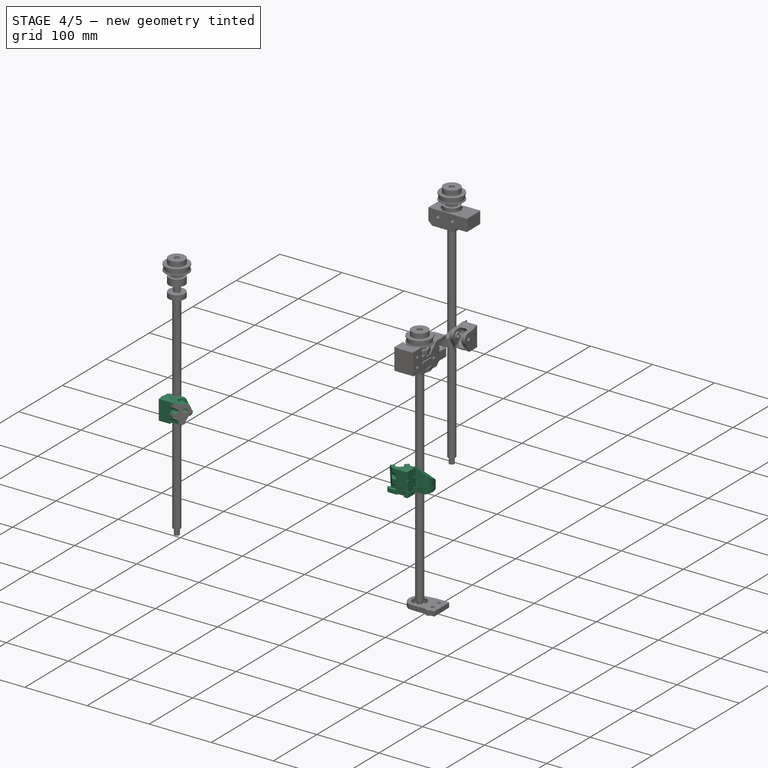
[diagram: stage 4 of 5 — iso view after this stage's code; geometry added in this stage tinted green]
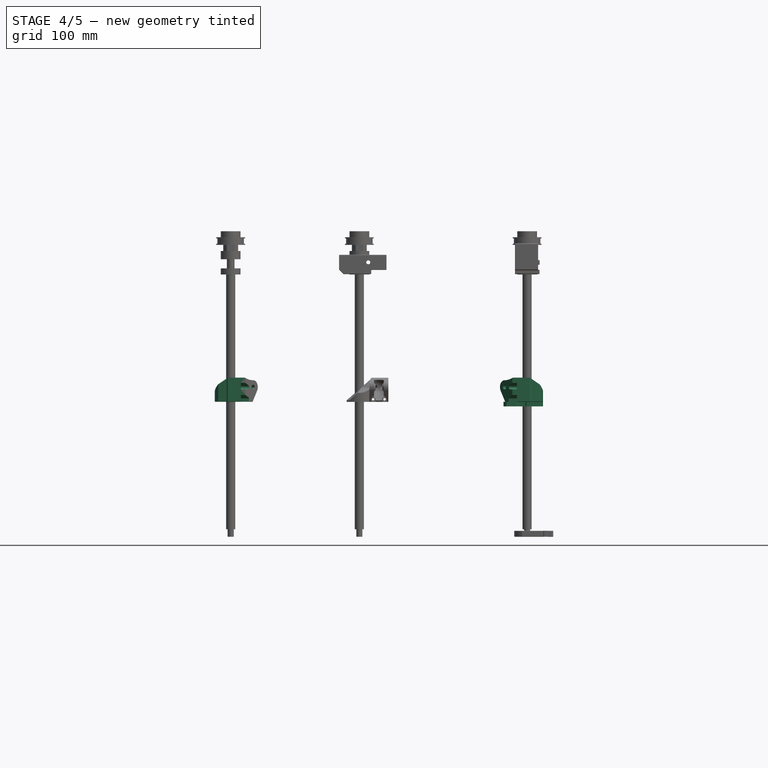
[diagram: stage 4 of 5 — front view after this stage's code; geometry added in this stage tinted green]
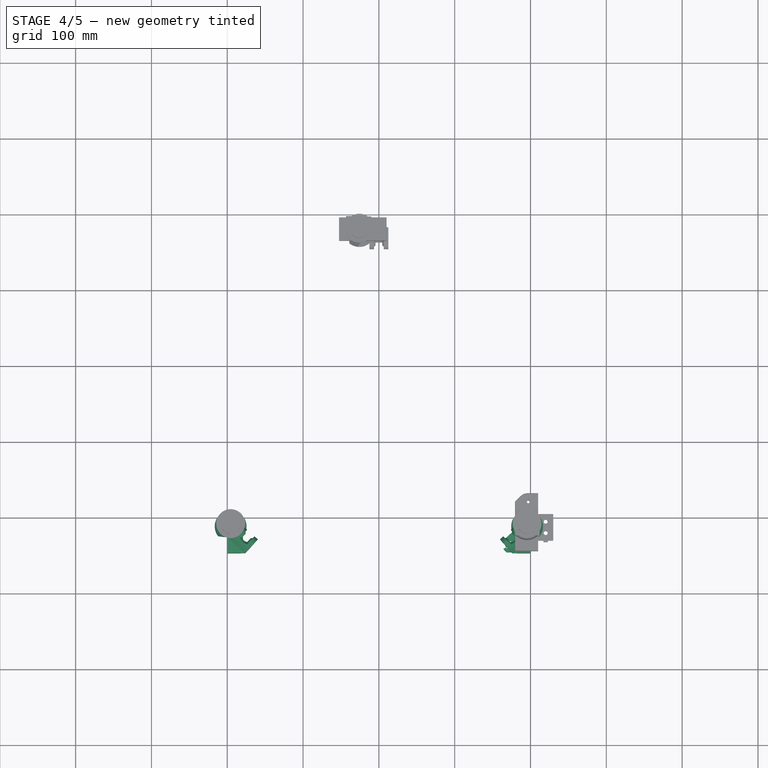
[diagram: stage 4 of 5 — top view after this stage's code; geometry added in this stage tinted green]
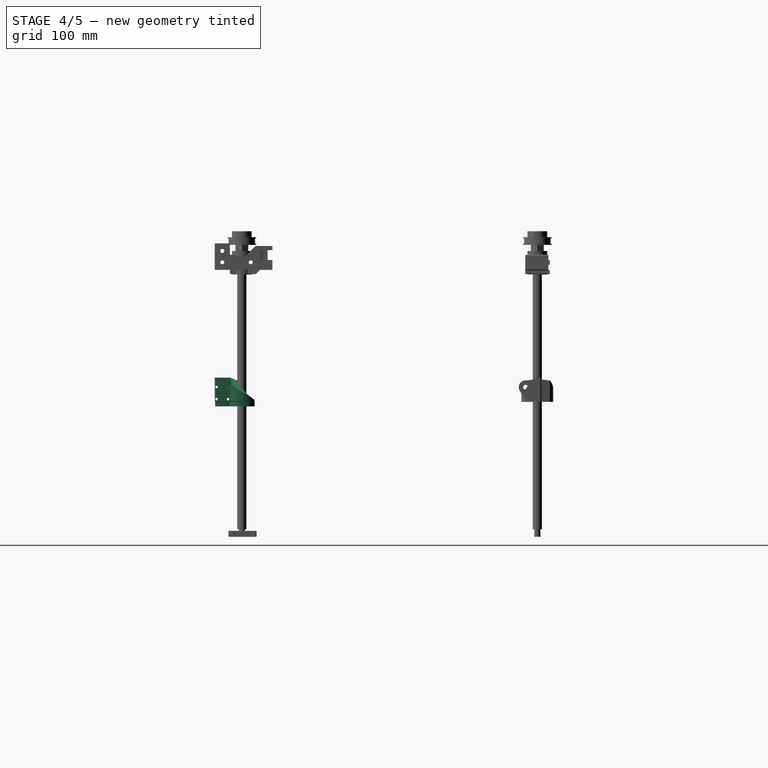
[diagram: stage 4 of 5 — right view after this stage's code; geometry added in this stage tinted green]
FEATURE [Part::Cut] Cut060  label="Cut067"
  Base = -> Cut059
  Tool = -> Extrude130
  TreeRank = 1138
FEATURE [Sketcher::SketchObject] Sketch133
  ArcFitTolerance = 1e-06
  AttachmentSupport = -> [Cut060]
  ExternalBSplineMaxDegree = 5
  ExternalBSplineTolerance = 0.0001
  ExternalGeometry = -> [Cut060]
  FullyConstrained = true
  InternalTolerance = 1e-06
  MakeInternals = false
  MapMode = 5
  Placement = pos=(-9.971e-13,9.686e-13,188.067) rot=(1,0,0;3.14159rad)
  Support = -> [Cut060]
  TreeRank = 1135
  sketch-geometry (5):
    g0: ArcOfCircle CenterX=-195.5 CenterY=414.25 CenterZ=0 NormalX=0 NormalY=0 NormalZ=1 AngleXU=0 Radius=21 StartAngle=2.47372 EndAngle=4.06493
    g1: LineSegment StartX=-211.988 StartY=427.256 StartZ=0 EndX=-182.834 EndY=431 EndZ=0
    g2: LineSegment StartX=-208.166 StartY=397.5 StartZ=0 EndX=-179.012 EndY=401.244 EndZ=0
    g3: ArcOfCircle CenterX=-195.5 CenterY=414.25 CenterZ=0 NormalX=0 NormalY=0 NormalZ=1 AngleXU=0 Radius=21 StartAngle=5.61532 EndAngle=7.20652
    g4: Circle CenterX=-195.5 CenterY=414.25 CenterZ=0 NormalX=0 NormalY=0 NormalZ=1 AngleXU=0 Radius=8
  constraints (13):
    c: Coincident(g1,g0)
    c: Coincident(g2,g0)
    c: Coincident(g3,g0)
    c: Coincident(g3,g1)
    c: Coincident(g3,g2)
    c: Parallel(g2,g1)
    c: Equal(g1,g2)
    c: Equal(g3,g0)
    c: Tangent(g1,g-3)
    c: Coincident(g4,g0)
    c: Coincident(g0,g-4)
    c: Equal(g0,g-4)
    c: Equal(g4,g-5)
FEATURE [Part::Extrusion] Extrude132  label="Extrude136"
  AutoTaperInnerAngle = true
  Base = -> Sketch133
  Dir = (5.3e-15,-5.2e-15,-1)
  DirMode = 2
  FaceMakerClass = Part::FaceMakerBullseye
  LengthFwd = 0
  LengthRev = 2.119
  Linearize = true
  Solid = true
  Symmetric = false
  TaperInnerAngle = 0
  TaperInnerAngleRev = 0
  TreeRank = 1140
  expr: LengthRev = 2.119
FEATURE [Sketcher::SketchObject] Sketch134
  ArcFitTolerance = 1e-06
  AttachmentSupport = -> [Cut060]
  ExternalBSplineMaxDegree = 5
  ExternalBSplineTolerance = 0.0001
  ExternalGeometry = -> [Cut060,Extrude132]
  FullyConstrained = true
  InternalTolerance = 1e-06
  MakeInternals = false
  MapMode = 5
  Placement = pos=(-269.735,-300.562,244.665) rot=(0.133502,0.89505,0.425514;2.59406rad)
  Support = -> [Cut060]
  TreeRank = 1136
  sketch-geometry (10):
    g0: LineSegment StartX=-125.483 StartY=-132.043 StartZ=0 EndX=-141.581 EndY=-97.423 EndZ=0
    g1: LineSegment StartX=-141.581 StartY=-97.423 StartZ=0 EndX=-110.117 EndY=-82.7916 EndZ=0
    g2: LineSegment StartX=-125.483 StartY=-132.043 StartZ=0 EndX=-109.467 EndY=-124.596 EndZ=0
    g3: ArcOfEllipse CenterX=-91.6504 CenterY=-114.022 CenterZ=0 NormalX=0 NormalY=0 NormalZ=1 MajorRadius=21 MinorRadius=10.8813 AngleXU=-2.70632 StartAngle=4.88392 EndAngle=6.47513
    g4: LineSegment [constr] StartX=-110.692 StartY=-122.876 StartZ=0 EndX=-72.6085 EndY=-105.167 EndZ=0
    g5: LineSegment [constr] StartX=-87.0622 StartY=-123.888 StartZ=0 EndX=-96.2385 EndY=-104.155 EndZ=0
    g6: GeomPoint [constr] X=-107.937 Y=-121.595 Z=0
    g7: GeomPoint [constr] X=-75.3641 Y=-106.448 Z=0
    g8: LineSegment StartX=-102.976 StartY=-98.1472 StartZ=0 EndX=-110.117 EndY=-82.7916 EndZ=0
    g9: LineSegment StartX=-99.4215 StartY=-105.811 StartZ=0 EndX=-102.976 EndY=-98.1472 EndZ=0
  constraints (17):
    c: PointOnObject(g0,g-3)
    c: Coincident(g1,g0)
    c: Parallel(g-3,g0)
    c: Coincident(g2,g0)
    c: Coincident(g2,g-4)
    c: Parallel(g2,g1)
    c: InternalAlignment(g4-g7 -> g3) x4
    c: Coincident(g3,g-4)
    c: Coincident(g3,g2)
    c: PointOnObject(g4,g-4)
    c: Angle(g2,g-3) = 1.5708
    c: Coincident(g-5,g8)
    c: Coincident(g8,g1)
    c: Coincident(g3,g-4)
    c: Coincident(g-5,g8)
    c: Coincident(g9,g3)
    c: Coincident(g9,g8)
FEATURE [Part::Extrusion] Extrude131  label="Extrude135"
  AutoTaperInnerAngle = true
  Base = -> Sketch134
  Dir = (0.571253,0.636539,-0.518158)
  DirMode = 2
  FaceMakerClass = Part::FaceMakerBullseye
  LengthFwd = 100
  LengthRev = 0
  Linearize = true
  Solid = true
  Symmetric = false
  TaperInnerAngle = 0
  TaperInnerAngleRev = 0
  TreeRank = 1139
FEATURE [Part::Cut] Cut061  label="Cut068"
  Base = -> Cut060
  Tool = -> Extrude131
  TreeRank = 1141
FEATURE [Sketcher::SketchObject] Sketch135
  ArcFitTolerance = 1e-06
  AttachmentSupport = -> [Cut061]
  ExternalBSplineMaxDegree = 5
  ExternalBSplineTolerance = 0.0001
  ExternalGeometry = -> [Cut061]
  FullyConstrained = true
  InternalTolerance = 1e-06
  MakeInternals = false
  MapMode = 7
  Placement = pos=(-166.519,-439.265,188.067) rot=(0.929251,-0.355831,-0.099379;2.63374rad)
  Support = -> [Cut061]
  TreeRank = 1142
  sketch-geometry (3):
    g0: LineSegment StartX=-19 StartY=-9.48443 StartZ=0 EndX=2.274e-13 EndY=1.137e-13 EndZ=0
    g1: LineSegment StartX=2.274e-13 StartY=1.137e-13 StartZ=0 EndX=-19 EndY=-7.248e-12 EndZ=0
    g2: LineSegment StartX=-19 StartY=-7.248e-12 StartZ=0 EndX=-19 EndY=-9.48443 EndZ=0
  constraints (7):
    c: Coincident(g0,g-3)
    c: Coincident(g0,g-4)
    c: Coincident(g1,g0)
    c: Coincident(g2,g1)
    c: Coincident(g2,g0)
    c: PointOnObject(g1,g-3)
    c: PointOnObject(g1,g-4)
FEATURE [Part::Extrusion] Extrude133  label="Extrude137"
  AutoTaperInnerAngle = true
  Base = -> Sketch135
  Dir = (-0.346083,-0.385635,-0.855285)
  DirMode = 2
  FaceMakerClass = Part::FaceMakerBullseye
  LengthFwd = 10
  LengthRev = 10
  Linearize = true
  Solid = true
  Symmetric = false
  TaperInnerAngle = 0
  TaperInnerAngleRev = 0
  TreeRank = 1143
FEATURE [Part::Cut] Cut062  label="Cut069"
  Base = -> Cut061
  Tool = -> Extrude133
  TreeRank = 1144
FEATURE [Sketcher::SketchObject] Sketch136
  ArcFitTolerance = 1e-06
  AttachmentSupport = -> [Cut062]
  ExternalBSplineMaxDegree = 5
  ExternalBSplineTolerance = 0.0001
  ExternalGeometry = -> [Extrude132]
  FullyConstrained = true
  InternalTolerance = 1e-06
  MakeInternals = false
  MapMode = 5
  Placement = pos=(-9.971e-13,9.686e-13,188.067) rot=(1,0,0;3.14159rad)
  Support = -> [Cut062]
  TreeRank = 1145
  sketch-geometry (6):
    g0: ArcOfCircle CenterX=-195.5 CenterY=414.25 CenterZ=0 NormalX=0 NormalY=0 NormalZ=1 AngleXU=0 Radius=31 StartAngle=5.61532 EndAngle=6.74978
    g1: LineSegment StartX=-171.161 StartY=395.051 StartZ=0 EndX=-179.012 EndY=401.244 EndZ=0
    g2: LineSegment [constr] StartX=-195.5 StartY=414.25 StartZ=0 EndX=-179.012 EndY=401.244 EndZ=0
    g3: ArcOfCircle CenterX=-195.5 CenterY=414.25 CenterZ=0 NormalX=0 NormalY=0 NormalZ=1 AngleXU=0 Radius=21 StartAngle=5.61532 EndAngle=6.74978
    g4: LineSegment [constr] StartX=-195.5 StartY=414.25 StartZ=0 EndX=-176.745 EndY=423.697 EndZ=0
    g5: LineSegment StartX=-176.745 StartY=423.697 StartZ=0 EndX=-167.814 EndY=428.195 EndZ=0
  constraints (15):
    c: Coincident(g1,g0)
    c: Parallel(g2,g1)
    c: Distance(g1) = 10
    c: Coincident(g1,g-3)
    c: Coincident(g2,g0)
    c: Coincident(g2,g1)
    c: Coincident(g0,g-3)
    c: Coincident(g3,g0)
    c: Coincident(g3,g1)
    c: Coincident(g4,g0)
    c: Coincident(g4,g3)
    c: Coincident(g5,g3)
    c: Coincident(g5,g0)
    c: Parallel(g5,g4)
    c: Angle(g2,g4) = 1.13446
FEATURE [Part::Extrusion] Extrude134  label="Extrude138"
  AutoTaperInnerAngle = true
  Base = -> Sketch136
  Dir = (5.3e-15,-5.2e-15,-1)
  DirMode = 2
  FaceMakerClass = Part::FaceMakerBullseye
  LengthFwd = 0
  LengthRev = 3
  Linearize = true
  Solid = true
  Symmetric = false
  TaperInnerAngle = 0
  TaperInnerAngleRev = 0
  TreeRank = 1146
FEATURE [Part::Cut] Cut063  label="Cut070"
  Base = -> Cut062
  Tool = -> Extrude134
  TreeRank = 1150
FEATURE [Sketcher::SketchObject] Sketch137
  ArcFitTolerance = 1e-06
  AttachmentSupport = -> [Cut063]
  ExternalBSplineMaxDegree = 5
  ExternalBSplineTolerance = 0.0001
  ExternalGeometry = -> [Cut063]
  FullyConstrained = true
  InternalTolerance = 1e-06
  MakeInternals = false
  MapMode = 7
  Placement = pos=(-208.166,-397.5,219.867) rot=(-0.528226,0.600407,0.600407;4.11354rad)
  Support = -> [Cut063]
  TreeRank = 1151
  sketch-geometry (5):
    g0: LineSegment StartX=3.411e-13 StartY=-29.681 StartZ=0 EndX=11.1468 EndY=-21.4782 EndZ=0
    g1: LineSegment StartX=11.1468 StartY=-21.4782 StartZ=0 EndX=11.139 EndY=-5.04413 EndZ=0
    g2: LineSegment StartX=11.139 StartY=-5.04413 StartZ=0 EndX=11.139 EndY=8.53e-14 EndZ=0
    g3: LineSegment StartX=11.139 StartY=8.53e-14 StartZ=0 EndX=-5.68e-14 EndY=2.84e-14 EndZ=0
    g4: LineSegment StartX=3.411e-13 StartY=-29.681 StartZ=0 EndX=-5.68e-14 EndY=2.84e-14 EndZ=0
  constraints (10):
    c: Coincident(g0,g-3)
    c: Coincident(g0,g-5)
    c: Coincident(g1,g0)
    c: Coincident(g1,g-7)
    c: Coincident(g2,g1)
    c: Coincident(g2,g-9)
    c: Coincident(g3,g2)
    c: Coincident(g3,g-8)
    c: Coincident(g4,g0)
    c: Coincident(g4,g3)
FEATURE [Part::Extrusion] Extrude135  label="Extrude139"
  AutoTaperInnerAngle = true
  Base = -> Sketch137
  Dir = (-0.991853,0.127387,-6e-15)
  DirMode = 2
  FaceMakerClass = Part::FaceMakerBullseye
  LengthFwd = 20
  LengthRev = 100
  Linearize = true
  Solid = true
  Symmetric = false
  TaperInnerAngle = 0
  TaperInnerAngleRev = 0
  TreeRank = 1152
FEATURE [Part::Cut] Cut064  label="Cut071"
  Base = -> Cut063
  Tool = -> Extrude135
  TreeRank = 1153
FEATURE [Sketcher::SketchObject] Sketch138
  ArcFitTolerance = 1e-06
  AttachmentSupport = -> [Cut064]
  ExternalBSplineMaxDegree = 5
  ExternalBSplineTolerance = 0.0001
  ExternalGeometry = -> [Cut064]
  FullyConstrained = true
  InternalTolerance = 1e-06
  MakeInternals = false
  MapMode = 7
  Placement = pos=(-202.377,-427.268,219.867) rot=(0.879341,-0.336719,-0.336719;1.69903rad)
  Support = -> [Cut064]
  TreeRank = 1154
  sketch-geometry (4):
    g0: LineSegment StartX=3.59394 StartY=0 StartZ=0 EndX=-22.7588 EndY=-21.4782 EndZ=0
    g1: LineSegment StartX=3.59394 StartY=0 StartZ=0 EndX=-27.7588 EndY=-2.107e-13 EndZ=0
    g2: LineSegment StartX=-22.7588 StartY=-21.4782 StartZ=0 EndX=-27.7588 EndY=-21.4782 EndZ=0
    g3: LineSegment StartX=-27.7588 StartY=-21.4782 StartZ=0 EndX=-27.7588 EndY=-2.096e-13 EndZ=0
  constraints (10):
    c: Coincident(g0,g-3)
    c: Coincident(g0,g-4)
    c: Coincident(g1,g0)
    c: Parallel(g1,g-3)
    c: Coincident(g2,g0)
    c: Coincident(g3,g1)
    c: Coincident(g2,g3)
    c: Parallel(g2,g-4)
    c: Angle(g2,g3) = 1.5708
    c: Distance(g2) = 5
FEATURE [Part::Extrusion] Extrude136  label="Extrude140"
  AutoTaperInnerAngle = true
  Base = -> Sketch138
  Dir = (-0.66791,-0.744242,5e-16)
  DirMode = 2
  FaceMakerClass = Part::FaceMakerBullseye
  LengthFwd = 40
  LengthRev = 40
  Linearize = true
  Solid = true
  Symmetric = false
  TaperInnerAngle = 0
  TaperInnerAngleRev = 0
  TreeRank = 1155
FEATURE [Part::Cut] Cut065  label="Cut072"
  Base = -> Cut064
  Tool = -> Extrude136
  TreeRank = 1359
FEATURE [Sketcher::SketchObject] Sketch139
  ArcFitTolerance = 1e-06
  AttachmentSupport = -> [Cut065]
  ExternalBSplineMaxDegree = 5
  ExternalBSplineTolerance = 0.0001
  ExternalGeometry = -> [Cut065]
  FullyConstrained = true
  InternalTolerance = 1e-06
  MakeInternals = false
  MapMode = 7
  Placement = pos=(-186.174,-432.719,207.467) rot=(0.879341,-0.336719,-0.336719;1.69903rad)
  Support = -> [Cut065]
  TreeRank = 1157
  sketch-geometry (7):
    g0: LineSegment StartX=-5.5 StartY=20.3 StartZ=0 EndX=-5.5 EndY=12.4 EndZ=0
    g1: LineSegment [constr] StartX=-5.28e-14 StartY=9 StartZ=0 EndX=-5.5 EndY=9 EndZ=0
    g2: LineSegment StartX=-11.2882 StartY=-9.7 StartZ=0 EndX=-55.5 EndY=-9.7 EndZ=0
    g3: LineSegment StartX=-5.5 StartY=20.3 StartZ=0 EndX=-55.5 EndY=20.3 EndZ=0
    g4: LineSegment StartX=-55.5 StartY=-9.7 StartZ=0 EndX=-55.5 EndY=20.3 EndZ=0
    g5: LineSegment StartX=-11.2882 StartY=-9.7 StartZ=0 EndX=-5.5 EndY=12.4 EndZ=0
    g6: LineSegment [constr] StartX=-11.2882 StartY=-9.7 StartZ=0 EndX=-11.2882 EndY=-19.4 EndZ=0
  constraints (20):
    c: Parallel(g0,g-4)
    c: Coincident(g1,g-4)
    c: Angle(g1,g-4) = 1.5708
    c: Distance(g1) = 5.5
    c: Parallel(g2,g1)
    c: Coincident(g3,g0)
    c: Coincident(g4,g2)
    c: Coincident(g4,g3)
    c: Parallel(g2,g3)
    c: Parallel(g4,g0)
    c: Distance(g4) = 30
    c: Distance(g3) = 50
    c: Coincident(g5,g2)
    c: Coincident(g6,g2)
    c: Parallel(g6,g-4)
    c: Coincident(g-9,g6)
    c: PointOnObject(g1,g0)
    c: Coincident(g5,g0)
    c: PointOnObject(g0,g-10)
    c: Distance(g6) = 9.7
FEATURE [Part::Extrusion] Extrude137  label="Extrude141"
  AutoTaperInnerAngle = true
  Base = -> Sketch139
  Dir = (-0.66791,-0.744242,-1e-16)
  DirMode = 2
  FaceMakerClass = Part::FaceMakerBullseye
  LengthFwd = 1
  LengthRev = 50
  Linearize = true
  Solid = true
  Symmetric = false
  TaperInnerAngle = 0
  TaperInnerAngleRev = 0
  TreeRank = 1360
FEATURE [Part::Cut] Cut066  label="Cut073"
  Base = -> Cut065
  Tool = -> Extrude137
  TreeRank = 1159
FEATURE [Part::Chamfer] Chamfer003
  Base = -> Cut066
  EdgeLinks = -> Cut066 [Edge1,Edge5,Edge6,Edge7,Edge10,Edge11,Edge13,Edge15,Edge16]
  Edges = 9 edges r=0.5: [Edge1,Edge5,Edge6,Edge7,Edge10,Edge11,Edge13,Edge15,Edge16]
  TreeRank = 1160
FEATURE [Part::Fillet] Fillet006  label="Fillet009"
  Base = -> Chamfer003
  EdgeLinks = -> Chamfer003 [Edge64]
  Edges = 1 edges r=8.5: [Edge64]
  TreeRank = 1161
FEATURE [Sketcher::SketchObject] Sketch140
  ArcFitTolerance = 1e-06
  AttachmentSupport = -> [ShapeCopy009]
  ExternalBSplineMaxDegree = 5
  ExternalBSplineTolerance = 0.0001
  ExternalGeometry = -> [ShapeCopy009]
  FullyConstrained = true
  InternalTolerance = 1e-06
  MakeInternals = false
  MapMode = 5
  Placement = pos=(-200,2.30613e-11,-33.7198) rot=(0.57735,0.57735,0.57735;2.0944rad)
  Support = -> [ShapeCopy009]
  TreeRank = 1162
  sketch-geometry (2):
    g0: Circle CenterX=-447.5 CenterY=241.187 CenterZ=0 NormalX=0 NormalY=0 NormalZ=1 AngleXU=0 Radius=1.6
    g1: Circle CenterX=-447.5 CenterY=225.187 CenterZ=0 NormalX=0 NormalY=0 NormalZ=1 AngleXU=0 Radius=1.6
  constraints (4):
    c: Coincident(g0,g-3)
    c: Coincident(g1,g-6)
    c: Equal(g1,g0)
    c: Diameter(g0) = 3.2
FEATURE [Sketcher::SketchObject] Sketch141
  ArcFitTolerance = 1e-06
  AttachmentSupport = -> [Fillet006]
  ExternalBSplineMaxDegree = 5
  ExternalBSplineTolerance = 0.0001
  ExternalGeometry = -> [Fillet006]
  FullyConstrained = true
  InternalTolerance = 1e-06
  MakeInternals = false
  MapMode = 5
  Placement = pos=(107.512,-96.4854,8.217e-13) rot=(0.845695,0.37736,0.37736;1.73761rad)
  Support = -> [Fillet006]
  TreeRank = 1163
  sketch-geometry (1):
    g0: Circle CenterX=-436.908 CenterY=207.467 CenterZ=0 NormalX=0 NormalY=0 NormalZ=1 AngleXU=0 Radius=1.75
  constraints (2):
    c: Coincident(g0,g-3)
    c: Diameter(g0) = 3.5
FEATURE [Part::Extrusion] Extrude138  label="Extrude142"
  AutoTaperInnerAngle = true
  Base = -> Sketch141
  Dir = (0.744242,-0.66791,5.5e-15)
  DirMode = 2
  FaceMakerClass = Part::FaceMakerBullseye
  LengthFwd = 10
  LengthRev = 10
  Linearize = true
  Solid = true
  Symmetric = false
  TaperInnerAngle = 0
  TaperInnerAngleRev = 0
  TreeRank = 1164
FEATURE [Part::Cut] Cut067  label="Cut074"
  Base = -> Fillet006
  Tool = -> Extrude138
  TreeRank = 1165
FEATURE [Sketcher::SketchObject] Sketch142
  ArcFitTolerance = 1e-06
  AttachmentSupport = -> [ShapeCopy010]
  ExternalBSplineMaxDegree = 5
  ExternalBSplineTolerance = 0.0001
  ExternalGeometry = -> [Sketch029,Cut067]
  FullyConstrained = true
  InternalTolerance = 1e-06
  MakeInternals = false
  MapMode = 5
  Placement = pos=(1.92932e-11,-1.46e-13,207.467) rot=(0,0,1;0rad)
  Support = -> [ShapeCopy010]
  TreeRank = 1166
  sketch-geometry (12):
    g0: LineSegment [constr] StartX=-175 StartY=-430 StartZ=0 EndX=-168.674 EndY=-435.677 EndZ=0
    g1: LineSegment [constr] StartX=-175 StartY=-430 StartZ=0 EndX=-181.326 EndY=-424.323 EndZ=0
    g2: LineSegment StartX=-179.256 StartY=-422.016 StartZ=0 EndX=-176.279 EndY=-424.687 EndZ=0
    g3: LineSegment StartX=-176.279 StartY=-424.687 StartZ=0 EndX=-175.778 EndY=-424.129 EndZ=0
    g4: LineSegment StartX=-175.778 StartY=-424.129 StartZ=0 EndX=-176.083 EndY=-418.48 EndZ=0
    g5: LineSegment StartX=-176.083 StartY=-418.48 StartZ=0 EndX=-179.256 EndY=-422.016 EndZ=0
    g6: LineSegment [constr] StartX=-176.279 StartY=-424.687 StartZ=0 EndX=-172.929 EndY=-427.693 EndZ=0
    g7: LineSegment [constr] StartX=-172.929 StartY=-427.693 StartZ=0 EndX=-169.58 EndY=-430.698 EndZ=0
    g8: LineSegment StartX=-169.58 StartY=-430.698 StartZ=0 EndX=-166.603 EndY=-433.37 EndZ=0
    g9: LineSegment StartX=-166.603 StartY=-433.37 StartZ=0 EndX=-163.431 EndY=-429.835 EndZ=0
    g10: LineSegment StartX=-163.431 StartY=-429.835 StartZ=0 EndX=-169.079 EndY=-430.14 EndZ=0
    g11: LineSegment StartX=-169.079 StartY=-430.14 StartZ=0 EndX=-169.58 EndY=-430.698 EndZ=0
  constraints (35):
    c: Coincident(g0,g-3)
    c: Coincident(g1,g0)
    c: Parallel(g1,g0)
    c: Equal(g1,g0)
    c: Angle(g-3,g1) = 1.5708
    c: Coincident(g3,g2)
    c: Coincident(g5,g4)
    c: Coincident(g5,g2)
    c: Parallel(g2,g1)
    c: Coincident(g3,g4)
    c: Parallel(g3,g-3)
    c: Parallel(g-3,g5)
    c: Angle(g4,g3) = 2.35619
    c: PointOnObject(g-4,g2)
    c: Coincident(g6,g2)
    c: Coincident(g6,g7)
    c: Parallel(g6,g2)
    c: Parallel(g7,g2)
    c: Distance(g6,g7) = 9
    c: Equal(g7,g6)
    c: PointOnObject(g6,g-3)
    c: Coincident(g8,g7)
    c: Coincident(g9,g8)
    c: Coincident(g10,g9)
    c: Coincident(g11,g10)
    c: Coincident(g11,g8)
    c: Equal(g8,g2)
    c: Parallel(g8,g7)
    c: Parallel(g11,g3)
    c: Equal(g3,g11)
    c: Parallel(g9,g5)
    c: Equal(g9,g5)
    c: Distance(g3) = 0.75
    c: Distance(g2) = 4
    c: PointOnObject(g1,g5)
FEATURE [Part::Revolution] Revolve003  label="Revolve006"
  Angle = 360
  Axis = (0.744242,-0.66791,5.7e-15)
  AxisLink = -> Sketch130 [Edge1]
  Base = (-165.697,-438.349,207.467)
  FaceMakerClass = Part::FaceMakerBullseye
  Solid = true
  Source = -> Sketch142
  Symmetric = false
  TreeRank = 1167
FEATURE [Part::MultiFuse] Fusion029
  Shapes = -> [Cut067,Revolve003]
  TreeRank = 1168
FEATURE [Sketcher::SketchObject] Sketch143
  ArcFitTolerance = 1e-06
  AttachmentSupport = -> [Fusion029]
  ExternalBSplineMaxDegree = 5
  ExternalBSplineTolerance = 0.0001
  ExternalGeometry = -> [Extrude132]
  FullyConstrained = false
  InternalTolerance = 1e-06
  MakeInternals = false
  MapMode = 5
  Placement = pos=(-269.735,-300.562,244.665) rot=(0.133502,0.89505,0.425514;2.59406rad)
  Support = -> [Fusion029]
  TreeRank = 1169
  sketch-geometry (3):
    g0: LineSegment StartX=-35.5493 StartY=-67.9458 StartZ=0 EndX=-16.9074 EndY=-45.2365 EndZ=0
    g1: LineSegment StartX=-16.9074 StartY=-45.2365 StartZ=0 EndX=-38.7086 EndY=-58.407 EndZ=0
    g2: LineSegment StartX=-38.7086 StartY=-58.407 StartZ=0 EndX=-35.5493 EndY=-67.9458 EndZ=0
  constraints (3):
    c: Coincident(g1,g0)
    c: Coincident(g2,g0)
    c: Coincident(g2,g1)
FEATURE [Part::Extrusion] Extrude139  label="Extrude143"
  AutoTaperInnerAngle = true
  Base = -> Sketch143
  Dir = (0.571253,0.636539,-0.518158)
  DirMode = 2
  FaceMakerClass = Part::FaceMakerBullseye
  LengthFwd = 0
  LengthRev = 3
  Linearize = true
  Solid = true
  Symmetric = false
  TaperInnerAngle = 0
  TaperInnerAngleRev = 0
  TreeRank = 1170
FEATURE [Part::Cut] Cut068  label="Cut075"
  Base = -> Fusion029
  Tool = -> Extrude139
  TreeRank = 1171
FEATURE [Part::Extrusion] Extrude140  label="Extrude144"
  AutoTaperInnerAngle = true
  Base = -> Sketch140
  Dir = (1,-1.317e-13,4.4e-15)
  DirMode = 2
  FaceMakerClass = Part::FaceMakerBullseye
  LengthFwd = 18
  LengthRev = 0
  Linearize = true
  Solid = true
  Symmetric = false
  TaperInnerAngle = 0
  TaperInnerAngleRev = 0
  TreeRank = 1172
FEATURE [Part::Cut] Cut069  label="Cut076"
  Base = -> Cut068
  Tool = -> Extrude140
  TreeRank = 1173
FEATURE [Sketcher::SketchObject] Sketch144
  ArcFitTolerance = 1e-06
  AttachmentSupport = -> [ShapeCopy009]
  ExternalBSplineMaxDegree = 5
  ExternalBSplineTolerance = 0.0001
  ExternalGeometry = -> [ShapeCopy009]
  FullyConstrained = true
  InternalTolerance = 1e-06
  MakeInternals = false
  MapMode = 5
  Placement = pos=(-200,2.30613e-11,-33.7198) rot=(0.57735,0.57735,0.57735;2.0944rad)
  Support = -> [ShapeCopy009]
  TreeRank = 1174
  sketch-geometry (9):
    g0: ArcOfCircle CenterX=-447.5 CenterY=225.187 CenterZ=0 NormalX=0 NormalY=0 NormalZ=1 AngleXU=0 Radius=3.1 StartAngle=7e-16 EndAngle=0.959931
    g1: ArcOfCircle CenterX=-447.5 CenterY=241.187 CenterZ=0 NormalX=0 NormalY=0 NormalZ=1 AngleXU=0 Radius=3.1 StartAngle=4.71239 EndAngle=7.24312
    g2: LineSegment StartX=-447.5 StartY=238.087 StartZ=0 EndX=-450 EndY=238.087 EndZ=0
    g3: LineSegment StartX=-450 StartY=238.087 StartZ=0 EndX=-450 EndY=246.722 EndZ=0
    g4: LineSegment StartX=-450 StartY=246.722 StartZ=0 EndX=-445.722 EndY=243.726 EndZ=0
    g5: LineSegment StartX=-445.722 StartY=227.726 StartZ=0 EndX=-450 EndY=230.722 EndZ=0
    g6: LineSegment StartX=-450 StartY=230.722 StartZ=0 EndX=-450 EndY=212.787 EndZ=0
    g7: LineSegment StartX=-444.4 StartY=225.187 StartZ=0 EndX=-444.4 EndY=212.787 EndZ=0
    g8: LineSegment StartX=-444.4 StartY=212.787 StartZ=0 EndX=-450 EndY=212.787 EndZ=0
  constraints (22):
    c: Coincident(g0,g-3)
    c: Coincident(g1,g-4)
    c: PointOnObject(g2,g-5)
    c: Coincident(g3,g2)
    c: PointOnObject(g3,g-5)
    c: Coincident(g4,g3)
    c: PointOnObject(g5,g-5)
    c: Coincident(g6,g5)
    c: Tangent(g5,g0) = -1.5708
    c: Tangent(g2,g1) = 1.5708
    c: Tangent(g4,g1) = 1.5708
    c: Equal(g0,g1)
    c: Diameter(g1) = 6.2
    c: Parallel(g5,g4)
    c: Angle(g5,g-5) = 2.18166
    c: Angle(g2,g3) = 1.5708
    c: Coincident(g8,g7)
    c: Coincident(g8,g6)
    c: Parallel(g8,g2)
    c: Tangent(g7,g0) = 1.5708
    c: Parallel(g7,g6)
    c: Coincident(g6,g-5)
FEATURE [Part::Extrusion] Extrude141  label="Extrude145"
  AutoTaperInnerAngle = true
  Base = -> Sketch144
  Dir = (1,-1.317e-13,4.4e-15)
  DirMode = 2
  FaceMakerClass = Part::FaceMakerBullseye
  LengthFwd = 30
  LengthRev = -18
  Linearize = true
  Solid = true
  Symmetric = false
  TaperInnerAngle = 0
  TaperInnerAngleRev = 0
  TreeRank = 1175
FEATURE [Part::Cut] Cut070  label="Cut077"
  Base = -> Cut069
  Tool = -> Extrude141
  TreeRank = 1176
FEATURE [Sketcher::SketchObject] Sketch145
  ArcFitTolerance = 1e-06
  AttachmentSupport = -> [ShapeCopy009]
  ExternalBSplineMaxDegree = 5
  ExternalBSplineTolerance = 0.0001
  ExternalGeometry = -> [ShapeCopy009]
  FullyConstrained = true
  InternalTolerance = 1e-06
  MakeInternals = false
  MapMode = 5
  Placement = pos=(-200,2.30613e-11,-33.7198) rot=(0.57735,0.57735,0.57735;2.0944rad)
  Support = -> [ShapeCopy009]
  TreeRank = 1177
  sketch-geometry (1):
    g0: Circle CenterX=-432.5 CenterY=241.187 CenterZ=0 NormalX=0 NormalY=0 NormalZ=1 AngleXU=0 Radius=1.6
  constraints (2):
    c: Coincident(g0,g-3)
    c: Diameter(g0) = 3.2
FEATURE [Part::Extrusion] Extrude142  label="Extrude146"
  AutoTaperInnerAngle = true
  Base = -> Sketch145
  Dir = (1,-1.317e-13,4.4e-15)
  DirMode = 2
  FaceMakerClass = Part::FaceMakerBullseye
  LengthFwd = 10
  LengthRev = 0
  Linearize = true
  Solid = true
  Symmetric = false
  TaperInnerAngle = 0
  TaperInnerAngleRev = 0
  TreeRank = 1178
FEATURE [Part::Cut] Cut071  label="Cut078"
  Base = -> Cut070
  Tool = -> Extrude142
  TreeRank = 1179
FEATURE [Sketcher::SketchObject] Sketch146
  ArcFitTolerance = 1e-06
  AttachmentSupport = -> [Cut071]
  ExternalBSplineMaxDegree = 5
  ExternalBSplineTolerance = 0.0001
  ExternalGeometry = -> [Cut071]
  FullyConstrained = true
  InternalTolerance = 1e-06
  MakeInternals = false
  MapMode = 5
  Placement = pos=(-190,2.47513e-11,0) rot=(-0.57735,0.57735,0.57735;4.18879rad)
  Support = -> [Cut071]
  TreeRank = 1180
  sketch-geometry (1):
    g0: Circle CenterX=432.5 CenterY=207.467 CenterZ=0 NormalX=0 NormalY=0 NormalZ=1 AngleXU=0 Radius=3.1
  constraints (2):
    c: Coincident(g0,g-3)
    c: Diameter(g0) = 6.2
FEATURE [Part::Extrusion] Extrude143  label="Extrude147"
  AutoTaperInnerAngle = true
  Base = -> Sketch146
  Dir = (-1,1.303e-13,2e-16)
  DirMode = 2
  FaceMakerClass = Part::FaceMakerBullseye
  LengthFwd = 0
  LengthRev = 10
  Linearize = true
  Solid = true
  Symmetric = false
  TaperInnerAngle = 0
  TaperInnerAngleRev = 0
  TreeRank = 1181
FEATURE [Part::Cut] Cut072  label="Cut079"
  Base = -> Cut071
  Tool = -> Extrude143
  TreeRank = 1182
FEATURE [Sketcher::SketchObject] Sketch147
  ArcFitTolerance = 1e-06
  AttachmentSupport = -> [ShapeCopy009]
  ExternalBSplineMaxDegree = 5
  ExternalBSplineTolerance = 0.0001
  ExternalGeometry = -> [ShapeCopy009]
  FullyConstrained = true
  InternalTolerance = 1e-06
  MakeInternals = false
  MapMode = 5
  Placement = pos=(-200,2.30613e-11,-33.7198) rot=(0.57735,0.57735,0.57735;2.0944rad)
  Support = -> [ShapeCopy009]
  TreeRank = 1183
  sketch-geometry (1):
    g0: Circle CenterX=-432.5 CenterY=225.187 CenterZ=0 NormalX=0 NormalY=0 NormalZ=1 AngleXU=0 Radius=1.6
  constraints (2):
    c: Coincident(g0,g-3)
    c: Diameter(g0) = 3.2
FEATURE [Part::Extrusion] Extrude144  label="Extrude148"
  AutoTaperInnerAngle = true
  Base = -> Sketch147
  Dir = (1,-1.317e-13,4.4e-15)
  DirMode = 2
  FaceMakerClass = Part::FaceMakerBullseye
  LengthFwd = 18
  LengthRev = 0
  Linearize = true
  Solid = true
  Symmetric = false
  TaperInnerAngle = 0
  TaperInnerAngleRev = 0
  TreeRank = 1184
FEATURE [Part::Cut] Cut073  label="Cut080"
  Base = -> Cut072
  Tool = -> Extrude144
  TreeRank = 1191
FEATURE [Sketcher::SketchObject] Sketch148
  ArcFitTolerance = 1e-06
  AttachmentSupport = -> [Cut073]
  ExternalBSplineMaxDegree = 5
  ExternalBSplineTolerance = 0.0001
  ExternalGeometry = -> [Cut073]
  FullyConstrained = true
  InternalTolerance = 1e-06
  MakeInternals = false
  MapMode = 5
  Placement = pos=(-182,2.47866e-11,-1.8673e-12) rot=(-0.57735,0.57735,0.57735;4.18879rad)
  Support = -> [Cut073]
  TreeRank = 1186
  sketch-geometry (4):
    g0: ArcOfCircle CenterX=432.5 CenterY=191.467 CenterZ=0 NormalX=0 NormalY=0 NormalZ=1 AngleXU=0 Radius=3.1 StartAngle=0.42359 EndAngle=3.14159
    g1: LineSegment StartX=429.4 StartY=191.467 StartZ=0 EndX=429.4 EndY=185.467 EndZ=0
    g2: LineSegment StartX=435.326 StartY=192.742 StartZ=0 EndX=438.606 EndY=185.467 EndZ=0
    g3: LineSegment StartX=438.606 StartY=185.467 StartZ=0 EndX=429.4 EndY=185.467 EndZ=0
  constraints (10):
    c: Coincident(g0,g-3)
    c: Coincident(g3,g2)
    c: Coincident(g3,g1)
    c: Tangent(g1,g0) = -1.5708
    c: Tangent(g2,g0) = 1.5708
    c: Parallel(g1,g-4)
    c: Diameter(g0) = 6.2
    c: Distance(g1) = 6
    c: Angle(g3,g1) = 1.5708
    c: Parallel(g2,g-6)
FEATURE [Part::Extrusion] Extrude145  label="Extrude149"
  AutoTaperInnerAngle = true
  Base = -> Sketch148
  Dir = (-1,1.366e-13,-1.04e-14)
  DirMode = 2
  FaceMakerClass = Part::FaceMakerBullseye
  LengthFwd = 0
  LengthRev = 20
  Linearize = true
  Solid = true
  Symmetric = false
  TaperInnerAngle = 0
  TaperInnerAngleRev = 0
  TreeRank = 1192
FEATURE [Part::Cut] Cut074  label="Cut081"
  Base = -> Cut073
  Tool = -> Extrude145
  TreeRank = 1193
FEATURE [Sketcher::SketchObject] Sketch149
  ArcFitTolerance = 1e-06
  AttachmentSupport = -> [Cut074]
  ExternalBSplineMaxDegree = 5
  ExternalBSplineTolerance = 0.0001
  ExternalGeometry = -> [Cut074]
  FullyConstrained = true
  InternalTolerance = 1e-06
  MakeInternals = false
  MapMode = 5
  Placement = pos=(-182,2.47582e-11,-1.9741e-12) rot=(0.57735,0.57735,0.57735;2.0944rad)
  Support = -> [Cut074]
  TreeRank = 1194
  sketch-geometry (4):
    g0: LineSegment StartX=-432.5 StartY=191.467 StartZ=0 EndX=-435.326 EndY=192.742 EndZ=0
    g1: ArcOfCircle CenterX=-432.5 CenterY=191.467 CenterZ=0 NormalX=0 NormalY=0 NormalZ=1 AngleXU=0 Radius=3.1 StartAngle=2.18166 EndAngle=2.718
    g2: LineSegment StartX=-434.278 StartY=194.007 StartZ=0 EndX=-430.006 EndY=196.998 EndZ=0
    g3: LineSegment StartX=-432.5 StartY=191.467 StartZ=0 EndX=-430.006 EndY=196.998 EndZ=0
  constraints (9):
    c: Coincident(g0,g-3)
    c: Coincident(g0,g-3)
    c: Coincident(g1,g0)
    c: Coincident(g1,g0)
    c: Tangent(g2,g1) = 1.5708
    c: Angle(g-4,g2) = 0.610865
    c: Coincident(g3,g0)
    c: Coincident(g3,g2)
    c: Angle(g3,g0) = 1.5708
FEATURE [Part::Extrusion] Extrude146  label="Extrude150"
  AutoTaperInnerAngle = true
  Base = -> Sketch149
  Dir = (1,-1.354e-13,1.02e-14)
  DirMode = 2
  FaceMakerClass = Part::FaceMakerBullseye
  LengthFwd = 20
  LengthRev = -10.75
  Linearize = true
  Solid = true
  Symmetric = false
  TaperInnerAngle = 0
  TaperInnerAngleRev = 0
  TreeRank = 1195
FEATURE [Part::Cut] Cut075  label="Cut082"
  Base = -> Cut074
  Tool = -> Extrude146
  TreeRank = 1196
FEATURE [Sketcher::SketchObject] Sketch150
  ArcFitTolerance = 1e-06
  AttachmentSupport = -> [Cut075]
  ExternalBSplineMaxDegree = 5
  ExternalBSplineTolerance = 0.0001
  ExternalGeometry = -> [Cut075]
  FullyConstrained = true
  InternalTolerance = 1e-06
  MakeInternals = false
  MapMode = 7
  Placement = pos=(-182,-429.4,188.067) rot=(-0.57735,0.57735,0.57735;4.18879rad)
  Support = -> [Cut075]
  TreeRank = 1197
  sketch-geometry (6):
    g0: LineSegment StartX=1 StartY=5.5 StartZ=0 EndX=-2.13 EndY=5.5 EndZ=0
    g1: LineSegment StartX=-2.82577 StartY=-4.74e-14 StartZ=0 EndX=1 EndY=1.68e-14 EndZ=0
    g2: LineSegment StartX=1 StartY=1.68e-14 StartZ=0 EndX=1 EndY=5.5 EndZ=0
    g3: LineSegment [constr] StartX=5.68e-14 StartY=0 StartZ=0 EndX=1 EndY=1.68e-14 EndZ=0
    g4: LineSegment StartX=-2.82577 StartY=-4.74e-14 StartZ=0 EndX=-3.91956 EndY=2.42589 EndZ=0
    g5: LineSegment StartX=-3.91956 StartY=2.42589 StartZ=0 EndX=-2.13 EndY=5.5 EndZ=0
  constraints (16):
    c: Parallel(g0,g1)
    c: Angle(g2,g1) = 1.5708
    c: Coincident(g0,g2)
    c: Coincident(g1,g2)
    c: PointOnObject(g-3,g1)
    c: Parallel(g-3,g2)
    c: Coincident(g3,g-3)
    c: Coincident(g3,g1)
    c: Distance(g3) = 1
    c: Distance(g2) = 5.5
    c: PointOnObject(g1,g-4)
    c: Coincident(g4,g1)
    c: Coincident(g4,g-4)
    c: Coincident(g5,g4)
    c: Coincident(g5,g0)
    c: Distance(g0) = 3.13
FEATURE [Part::Extrusion] Extrude147  label="Extrude151"
  AutoTaperInnerAngle = true
  Base = -> Sketch150
  Dir = (-1,1.364e-13,-5.4e-15)
  DirMode = 2
  FaceMakerClass = Part::FaceMakerBullseye
  LengthFwd = -2.7
  LengthRev = 30
  Linearize = true
  Solid = true
  Symmetric = false
  TaperInnerAngle = 0
  TaperInnerAngleRev = 0
  TreeRank = 1198
FEATURE [Part::Cut] Cut076  label="Cut083"
  Base = -> Cut075
  Tool = -> Extrude147
  TreeRank = 1358
FEATURE [Sketcher::SketchObject] Sketch151
  ArcFitTolerance = 1e-06
  AttachmentSupport = -> [Cut076]
  ExternalBSplineMaxDegree = 5
  ExternalBSplineTolerance = 0.0001
  ExternalGeometry = -> [Cut076]
  FullyConstrained = true
  InternalTolerance = 1e-06
  MakeInternals = false
  MapMode = 5
  Placement = pos=(-9.971e-13,9.686e-13,188.067) rot=(1,0,0;3.14159rad)
  Support = -> [Cut076]
  TreeRank = 1200
  sketch-geometry (11):
    g0: LineSegment [constr] StartX=-195.5 StartY=414.25 StartZ=0 EndX=-203.435 EndY=413.231 EndZ=0
    g1: LineSegment [constr] StartX=-203.435 StartY=413.231 StartZ=0 EndX=-209.882 EndY=412.403 EndZ=0
    g2: LineSegment [constr] StartX=-209.882 StartY=412.403 StartZ=0 EndX=-216.329 EndY=411.575 EndZ=0
    g3: Circle [constr] CenterX=-195.5 CenterY=414.25 CenterZ=0 NormalX=0 NormalY=0 NormalZ=1 AngleXU=0 Radius=14.5
    g4: LineSegment [constr] StartX=-208.166 StartY=397.5 StartZ=0 EndX=-210.077 EndY=412.378 EndZ=0
    g5: LineSegment [constr] StartX=-210.077 StartY=412.378 StartZ=0 EndX=-211.988 EndY=427.256 EndZ=0
    g6: Circle CenterX=-181.118 CenterY=416.097 CenterZ=0 NormalX=0 NormalY=0 NormalZ=1 AngleXU=0 Radius=4.1
    g7: Circle CenterX=-208.237 CenterY=421.18 CenterZ=0 NormalX=0 NormalY=0 NormalZ=1 AngleXU=0 Radius=4.1
    g8: Circle CenterX=-206.072 CenterY=404.326 CenterZ=0 NormalX=0 NormalY=0 NormalZ=1 AngleXU=0 Radius=4.1
    g9: LineSegment [constr] StartX=-206.072 StartY=404.326 StartZ=0 EndX=-208.237 EndY=421.18 EndZ=0
    g10: LineSegment [constr] StartX=-203.435 StartY=413.231 StartZ=0 EndX=-207.154 EndY=412.753 EndZ=0
  constraints (30):
    c: Coincident(g0,g-4)
    c: PointOnObject(g0,g-4)
    c: Coincident(g1,g0)
    c: Coincident(g2,g1)
    c: PointOnObject(g2,g-3)
    c: Parallel(g2,g1)
    c: Parallel(g1,g0)
    c: Equal(g1,g2)
    c: Coincident(g3,g-4)
    c: PointOnObject(g1,g3)
    c: Coincident(g4,g-3)
    c: PointOnObject(g4,g2)
    c: Coincident(g5,g4)
    c: Coincident(g5,g-3)
    c: Equal(g4,g5)
    c: Parallel(g4,g5)
    c: PointOnObject(g6,g3)
    c: PointOnObject(g6,g0)
    c: PointOnObject(g7,g3)
    c: PointOnObject(g8,g3)
    c: Equal(g8,g6)
    c: Equal(g6,g7)
    c: Coincident(g9,g8)
    c: Coincident(g9,g7)
    c: Parallel(g9,g5)
    c: Diameter(g6) = 8.2
    c: Coincident(g10,g0)
    c: PointOnObject(g10,g9)
    c: Parallel(g10,g1)
    c: Distance(g10) = 3.75
FEATURE [Part::Extrusion] Extrude148  label="Extrude152"
  AutoTaperInnerAngle = true
  Base = -> Sketch151
  Dir = (5.3e-15,-5.2e-15,-1)
  DirMode = 2
  FaceMakerClass = Part::FaceMakerBullseye
  LengthFwd = 3.5
  LengthRev = 3.5
  Linearize = true
  Solid = true
  Symmetric = false
  TaperInnerAngle = 0
  TaperInnerAngleRev = 0
  TreeRank = 1201
FEATURE [Part::Cut] Cut078  label="Cut085"
  Base = -> Chamfer003
  Refine = true
  Tool = -> Extrude138
  TreeRank = 1347
FEATURE [Part::MultiFuse] Fusion030
  Refine = true
  Shapes = -> [Cut078,Revolve003]
  TreeRank = 1348
FEATURE [Part::Cut] Cut079  label="Cut086"
  Base = -> Fusion030
  Refine = true
  Tool = -> Extrude140
  TreeRank = 1349
FEATURE [Part::Cut] Cut080  label="Cut087"
  Base = -> Cut079
  Refine = true
  Tool = -> Extrude141
  TreeRank = 1350
FEATURE [Part::Cut] Cut081  label="Cut088"
  Base = -> Cut080
  Refine = true
  Tool = -> Extrude142
  TreeRank = 1351
FEATURE [Part::Cut] Cut082  label="Cut089"
  Base = -> Cut081
  Refine = true
  Tool = -> Extrude143
  TreeRank = 1352
FEATURE [Part::Cut] Cut083  label="Cut090"
  Base = -> Cut082
  Refine = true
  Tool = -> Extrude144
  TreeRank = 1353
FEATURE [Part::Cut] Cut084  label="Cut091"
  Base = -> Cut083
  Refine = true
  Tool = -> Extrude145
  TreeRank = 1354
FEATURE [Part::Cut] Cut085  label="Cut092"
  Base = -> Cut084
  Refine = true
  Tool = -> Extrude146
  TreeRank = 1355
FEATURE [Part::Cut] Cut086  label="Cut093"
  Base = -> Cut085
  Refine = true
  Tool = -> Extrude147
  TreeRank = 1364
FEATURE [Part::Cut] Cut077  label="Cut084"
  Base = -> Cut076
  Tool = -> Extrude148
  TreeRank = 1361
FEATURE [Sketcher::SketchObject] Sketch152
  ArcFitTolerance = 1e-06
  AttachmentSupport = -> [Extrude132]
  ExternalBSplineMaxDegree = 5
  ExternalBSplineTolerance = 0.0001
  ExternalGeometry = -> [Extrude132]
  FullyConstrained = true
  InternalTolerance = 1e-06
  MakeInternals = false
  MapMode = 5
  Placement = pos=(-9.826e-13,9.985e-13,188.067) rot=(1,0,0;3.14159rad)
  Support = -> [Extrude132]
  TreeRank = 1362
  sketch-geometry (5):
    g0: LineSegment StartX=-211.988 StartY=427.256 StartZ=0 EndX=-182.834 EndY=431 EndZ=0
    g1: LineSegment StartX=-208.166 StartY=397.5 StartZ=0 EndX=-179.012 EndY=401.244 EndZ=0
    g2: Circle CenterX=-195.5 CenterY=414.25 CenterZ=0 NormalX=0 NormalY=0 NormalZ=1 AngleXU=0 Radius=8
    g3: ArcOfCircle CenterX=-195.5 CenterY=414.25 CenterZ=0 NormalX=0 NormalY=0 NormalZ=1 AngleXU=0 Radius=21 StartAngle=2.47372 EndAngle=4.06493
    g4: ArcOfCircle CenterX=-195.5 CenterY=414.25 CenterZ=0 NormalX=0 NormalY=0 NormalZ=1 AngleXU=0 Radius=21 StartAngle=5.61532 EndAngle=7.20652
  constraints (12):
    c: Coincident(g0,g-4)
    c: Coincident(g0,g-5)
    c: Coincident(g1,g-6)
    c: Coincident(g1,g-6)
    c: Coincident(g2,g-7)
    c: Equal(g2,g-7)
    c: Coincident(g3,g2)
    c: Coincident(g3,g0)
    c: Coincident(g3,g1)
    c: Coincident(g4,g2)
    c: Coincident(g4,g0)
    c: Coincident(g4,g1)
FEATURE [Part::Extrusion] Extrude149  label="Extrude153"
  AutoTaperInnerAngle = true
  Base = -> Sketch152
  Dir = (5.2e-15,-5.3e-15,-1)
  DirMode = 2
  FaceMakerClass = Part::FaceMakerBullseye
  LengthFwd = 0
  LengthRev = 40.8
  Linearize = true
  Solid = true
  Symmetric = false
  TaperInnerAngle = 0
  TaperInnerAngleRev = 0
  TreeRank = 1367
  expr: LengthRev = <<GlobalVars>>.z_axis_rail_carriage_length
FEATURE [Sketcher::SketchObject] Sketch153
  ArcFitTolerance = 1e-06
  AttachmentSupport = -> [Cut086]
  ExternalBSplineMaxDegree = 5
  ExternalBSplineTolerance = 0.0001
  ExternalGeometry = -> [Cut086,Extrude132]
  FullyConstrained = true
  InternalTolerance = 1e-06
  MakeInternals = false
  MapMode = 7
  Placement = pos=(-187.37,-410.557,197.767) rot=(0.788448,-0.301915,-0.535908;1.24082rad)
  Support = -> [Cut086]
  TreeRank = 1365
  sketch-geometry (13):
    g0: ArcOfEllipse CenterX=-3.58452 CenterY=-10.7216 CenterZ=0 NormalX=0 NormalY=0 NormalZ=1 MajorRadius=21 MinorRadius=10.8813 AngleXU=6.9e-15 StartAngle=0.407963 EndAngle=1.39927
    g1: LineSegment [constr] StartX=17.4155 StartY=-10.7216 StartZ=0 EndX=-24.5845 EndY=-10.7216 EndZ=0
    g2: LineSegment [constr] StartX=-3.58452 StartY=0.159688 StartZ=0 EndX=-3.58452 EndY=-21.6029 EndZ=0
    g3: GeomPoint [constr] X=14.3765 Y=-10.7216 Z=0
    g4: GeomPoint [constr] X=-21.5455 Y=-10.7216 Z=0
    g5: LineSegment StartX=15.692 StartY=-6.40457 StartZ=0 EndX=15.692 EndY=-23.4953 EndZ=0
    g6: LineSegment StartX=-1.124e-13 StartY=8.7e-14 StartZ=0 EndX=-24.1989 EndY=-8.64586 EndZ=0
    g7: ArcOfEllipse CenterX=-3.58452 CenterY=-10.7216 CenterZ=0 NormalX=0 NormalY=0 NormalZ=1 MajorRadius=21 MinorRadius=10.8813 AngleXU=7.6e-15 StartAngle=2.94965 EndAngle=4.54086
    g8: LineSegment [constr] StartX=17.4155 StartY=-10.7216 StartZ=0 EndX=-24.5845 EndY=-10.7216 EndZ=0
    g9: LineSegment [constr] StartX=-3.58452 StartY=0.159688 StartZ=0 EndX=-3.58452 EndY=-21.6029 EndZ=0
    g10: GeomPoint [constr] X=14.3765 Y=-10.7216 Z=0
    g11: GeomPoint [constr] X=-21.5455 Y=-10.7216 Z=0
    g12: LineSegment StartX=-7.16903 StartY=-21.4433 StartZ=0 EndX=15.692 EndY=-23.4953 EndZ=0
  constraints (16):
    c: InternalAlignment(g1-g4 -> g0) x4
    c: Coincident(g0,g-6)
    c: Coincident(g0,g-4)
    c: Coincident(g0,g-3)
    c: PointOnObject(g1,g-4)
    c: Coincident(g5,g0)
    c: PointOnObject(g5,g-3)
    c: Coincident(g6,g0)
    c: Coincident(g6,g-6)
    c: InternalAlignment(g8-g11 -> g7) x4
    c: Coincident(g7,g0)
    c: Coincident(g7,g6)
    c: PointOnObject(g8,g-6)
    c: Coincident(g7,g-6)
    c: Coincident(g12,g5)
    c: Tangent(g12,g7) = -1.5708
FEATURE [Part::Extrusion] Extrude150  label="Extrude154"
  AutoTaperInnerAngle = true
  Base = -> Sketch153
  Dir = (-0.571253,-0.636539,0.518158)
  DirMode = 2
  FaceMakerClass = Part::FaceMakerBullseye
  LengthFwd = 50
  LengthRev = 50
  Linearize = true
  Solid = true
  Symmetric = false
  TaperInnerAngle = 0
  TaperInnerAngleRev = 0
  TreeRank = 1366
FEATURE [Part::Chamfer] Chamfer004
  Base = -> Extrude149
  EdgeLinks = -> Extrude149 [Edge4,Edge7,Edge10,Edge12]
  Edges = 4 edges r=0.5: [Edge4,Edge7,Edge10,Edge12]
  TreeRank = 1368
FEATURE [Part::MultiCommon] Common
  Refine = true
  Shapes = -> [Chamfer004,Extrude150]
  TreeRank = 1369
FEATURE [Part::MultiFuse] Fusion031
  Refine = true
  Shapes = -> [Cut086,Common]
  TreeRank = 1373
FEATURE [Sketcher::SketchObject] Sketch154
  ArcFitTolerance = 1e-06
  AttachmentSupport = -> [Fusion031]
  ExternalBSplineMaxDegree = 5
  ExternalBSplineTolerance = 0.0001
  ExternalGeometry = -> [Fusion031]
  FullyConstrained = true
  InternalTolerance = 1e-06
  MakeInternals = false
  MapMode = 5
  Placement = pos=(-298.82,-332.97,1.736e-13) rot=(0.261356,0.68253,0.68253;2.63032rad)
  Support = -> [Fusion031]
  TreeRank = 1371
  sketch-geometry (4):
    g0: LineSegment StartX=-129.023 StartY=212.263 StartZ=0 EndX=-112 EndY=198.389 EndZ=0
    g1: LineSegment StartX=-129.023 StartY=212.263 StartZ=0 EndX=-116.387 EndY=227.766 EndZ=0
    g2: LineSegment StartX=-116.387 StartY=227.766 StartZ=0 EndX=-99.3645 EndY=213.892 EndZ=0
    g3: LineSegment StartX=-99.3645 StartY=213.892 StartZ=0 EndX=-112 EndY=198.389 EndZ=0
  constraints (10):
    c: Coincident(g0,g-3)
    c: Coincident(g0,g-3)
    c: Coincident(g1,g0)
    c: Coincident(g2,g1)
    c: Coincident(g3,g2)
    c: Coincident(g3,g0)
    c: Parallel(g3,g1)
    c: Equal(g1,g3)
    c: Angle(g0,g1) = 1.5708
    c: Distance(g3) = 20
FEATURE [Part::Extrusion] Extrude151  label="Extrude155"
  AutoTaperInnerAngle = true
  Base = -> Sketch154
  Dir = (0.66791,0.744242,-5e-16)
  DirMode = 2
  FaceMakerClass = Part::FaceMakerBullseye
  LengthFwd = 10
  LengthRev = 20
  Linearize = true
  Solid = true
  Symmetric = false
  TaperInnerAngle = 0
  TaperInnerAngleRev = 0
  TreeRank = 1374
FEATURE [Part::Cut] Cut087  label="Cut094"
  Base = -> Fusion031
  Refine = true
  Tool = -> Extrude151
  TreeRank = 1375
FEATURE [Part::Cut] Cut088  label="Cut095"
  Base = -> Cut087
  Refine = true
  Tool = -> Extrude148
  TreeRank = 1376
FEATURE [Part::Fillet] Fillet007  label="Fillet010"
  Base = -> Cut088
  EdgeLinks = -> Cut088 [Edge71]
  Edges = 1 edges r=8: [Edge71]
  TreeRank = 1377
FEATURE [Sketcher::SketchObject] Sketch156
  ArcFitTolerance = 1e-06
  AttachmentSupport = -> [Fillet007]
  ExternalBSplineMaxDegree = 5
  ExternalBSplineTolerance = 0.0001
  ExternalGeometry = -> [ShapeCopy009]
  FullyConstrained = true
  InternalTolerance = 1e-06
  MakeInternals = false
  MapMode = 5
  Placement = pos=(-9.443e-13,1.0101e-12,188.067) rot=(1,0,0;3.14159rad)
  Support = -> [Fillet007]
  TreeRank = 1380
  sketch-geometry (5):
    g0: LineSegment [constr] StartX=-200 StartY=430 StartZ=0 EndX=-196.1 EndY=440 EndZ=0
    g1: LineSegment [constr] StartX=-200 StartY=450 StartZ=0 EndX=-196.1 EndY=440 EndZ=0
    g2: Circle CenterX=-196.1 CenterY=440 CenterZ=0 NormalX=0 NormalY=0 NormalZ=1 AngleXU=0 Radius=2.4
    g3: LineSegment [constr] StartX=-196.1 StartY=440 StartZ=0 EndX=-198.5 EndY=440 EndZ=0
    g4: LineSegment [constr] StartX=-198.5 StartY=440 StartZ=0 EndX=-200 EndY=440 EndZ=0
  constraints (13):
    c: Coincident(g0,g-3)
    c: Coincident(g1,g-3)
    c: Coincident(g1,g0)
    c: Equal(g0,g1)
    c: Coincident(g2,g0)
    c: Diameter(g2) = 4.8
    c: Coincident(g3,g2)
    c: PointOnObject(g3,g2)
    c: Coincident(g4,g3)
    c: PointOnObject(g4,g-3)
    c: Parallel(g3,g4)
    c: Angle(g-3,g4) = 1.5708
    c: Distance(g4) = 1.5
FEATURE [Part::Extrusion] Extrude153  label="Extrude157"
  AutoTaperInnerAngle = true
  Base = -> Sketch156
  Dir = (5e-15,-5.4e-15,-1)
  DirMode = 2
  FaceMakerClass = Part::FaceMakerBullseye
  LengthFwd = 0
  LengthRev = 5
  Linearize = true
  Solid = true
  Symmetric = false
  TaperInnerAngle = 0
  TaperInnerAngleRev = 0
  TreeRank = 1381
FEATURE [Sketcher::SketchObject] Sketch155
  ArcFitTolerance = 1e-06
  AttachmentSupport = -> [Extrude132]
  ExternalBSplineMaxDegree = 5
  ExternalBSplineTolerance = 0.0001
  ExternalGeometry = -> [Extrude132,Fillet007,ShapeCopy009,Sketch029,Extrude153]
  FullyConstrained = false
  InternalTolerance = 1e-06
  MakeInternals = false
  MapMode = 5
  Placement = pos=(-9.826e-13,9.985e-13,188.067) rot=(1,0,0;3.14159rad)
  Support = -> [Extrude132]
  TreeRank = 1378
  sketch-geometry (129):
    g0: LineSegment StartX=-208.166 StartY=397.5 StartZ=0 EndX=-179.012 EndY=401.244 EndZ=0
    g1: ArcOfCircle CenterX=-195.5 CenterY=414.25 CenterZ=0 NormalX=0 NormalY=0 NormalZ=1 AngleXU=0 Radius=21 StartAngle=2.47372 EndAngle=4.06493
    g2: LineSegment [constr] StartX=-183 StartY=433.5 StartZ=0 EndX=-162.274 EndY=433.5 EndZ=0
    g3: ArcOfCircle CenterX=-195.5 CenterY=414.25 CenterZ=0 NormalX=0 NormalY=0 NormalZ=1 AngleXU=0 Radius=21 StartAngle=5.61532 EndAngle=6.61824
    g4: Circle CenterX=-195.5 CenterY=414.25 CenterZ=0 NormalX=0 NormalY=0 NormalZ=1 AngleXU=0 Radius=8
    g5: LineSegment StartX=-211.988 StartY=427.256 StartZ=0 EndX=-200 EndY=427.256 EndZ=0
    g6: LineSegment [constr] StartX=-183 StartY=433.5 StartZ=0 EndX=-183 EndY=454.226 EndZ=0
    g7: ArcOfHyperbola CenterX=-182.575 CenterY=439.975 CenterZ=0 NormalX=0 NormalY=0 NormalZ=1 MajorRadius=1.05119 MinorRadius=0.862409 AngleXU=-2.35619 StartAngle=-1.15808 EndAngle=1.15808
    g8: LineSegment [constr] StartX=-183.318 StartY=439.232 StartZ=0 EndX=-181.832 EndY=440.718 EndZ=0
    g9: LineSegment [constr] StartX=-182.708 StartY=438.622 StartZ=0 EndX=-183.928 EndY=439.842 EndZ=0
    g10: GeomPoint [constr] X=-183.536 Y=439.014 Z=0
    g11: LineSegment [constr] StartX=-194 StartY=429.289 StartZ=0 EndX=-194 EndY=450.458 EndZ=0
    g12: LineSegment StartX=-184.75 StartY=439.55 StartZ=0 EndX=-192.25 EndY=439.55 EndZ=0
    g13: ArcOfHyperbola CenterX=-194.425 CenterY=439.975 CenterZ=0 NormalX=0 NormalY=0 NormalZ=1 MajorRadius=1.05119 MinorRadius=0.862409 AngleXU=-0.785398 StartAngle=-1.15808 EndAngle=1.15808
    g14: LineSegment [constr] StartX=-193.682 StartY=439.232 StartZ=0 EndX=-195.168 EndY=440.718 EndZ=0
    g15: LineSegment [constr] StartX=-193.072 StartY=439.842 StartZ=0 EndX=-194.292 EndY=438.622 EndZ=0
    g16: GeomPoint [constr] X=-193.464 Y=439.014 Z=0
    g17: ArcOfHyperbola CenterX=-194.425 CenterY=439.975 CenterZ=0 NormalX=0 NormalY=0 NormalZ=1 MajorRadius=1.05119 MinorRadius=0.862409 AngleXU=0.785398 StartAngle=-1.15808 EndAngle=1.15808
    g18: LineSegment [constr] StartX=-193.682 StartY=440.718 StartZ=0 EndX=-195.168 EndY=439.232 EndZ=0
    g19: LineSegment [constr] StartX=-194.292 StartY=441.328 StartZ=0 EndX=-193.072 EndY=440.108 EndZ=0
    g20: GeomPoint [constr] X=-193.464 Y=440.936 Z=0
    g21: ArcOfHyperbola CenterX=-182.575 CenterY=439.975 CenterZ=0 NormalX=0 NormalY=0 NormalZ=1 MajorRadius=1.05119 MinorRadius=0.862409 AngleXU=2.35619 StartAngle=-1.15808 EndAngle=1.15808
    g22: LineSegment [constr] StartX=-183.318 StartY=440.718 StartZ=0 EndX=-181.832 EndY=439.232 EndZ=0
    g23: LineSegment [constr] StartX=-183.928 StartY=440.108 StartZ=0 EndX=-182.708 EndY=441.328 EndZ=0
    g24: GeomPoint [constr] X=-183.536 Y=440.936 Z=0
    g25: LineSegment StartX=-192.25 StartY=440.4 StartZ=0 EndX=-184.75 EndY=440.4 EndZ=0
    g26: LineSegment StartX=-194 StartY=442.15 StartZ=0 EndX=-194 EndY=443.15 EndZ=0
    g27: LineSegment StartX=-183 StartY=442.15 StartZ=0 EndX=-183 EndY=443.15 EndZ=0
    g28: LineSegment StartX=-194 StartY=437.8 StartZ=0 EndX=-194 EndY=432.5 EndZ=0
    g29: LineSegment [constr] StartX=-192.25 StartY=439.55 StartZ=0 EndX=-194 EndY=437.8 EndZ=0
    g30: LineSegment [constr] StartX=-184.75 StartY=439.55 StartZ=0 EndX=-184.75 EndY=440.4 EndZ=0
    g31: LineSegment [constr] StartX=-194 StartY=437.8 StartZ=0 EndX=-183 EndY=437.8 EndZ=0
    g32: LineSegment StartX=-184.75 StartY=444.9 StartZ=0 EndX=-192.25 EndY=444.9 EndZ=0
    g33: LineSegment StartX=-192.25 StartY=445.75 StartZ=0 EndX=-184.75 EndY=445.75 EndZ=0
    g34: LineSegment [constr] StartX=-192.25 StartY=444.9 StartZ=0 EndX=-194 EndY=443.15 EndZ=0
    g35: LineSegment [constr] StartX=-184.75 StartY=444.9 StartZ=0 EndX=-184.75 EndY=445.75 EndZ=0
    g36: LineSegment StartX=-194 StartY=447.5 StartZ=0 EndX=-194 EndY=448.5 EndZ=0
    g37: ArcOfHyperbola CenterX=-194.425 CenterY=445.325 CenterZ=0 NormalX=0 NormalY=0 NormalZ=1 MajorRadius=1.05119 MinorRadius=0.862409 AngleXU=-0.785398 StartAngle=-1.15808 EndAngle=1.15808
    g38: LineSegment [constr] StartX=-193.682 StartY=444.582 StartZ=0 EndX=-195.168 EndY=446.068 EndZ=0
    g39: LineSegment [constr] StartX=-193.072 StartY=445.192 StartZ=0 EndX=-194.292 EndY=443.972 EndZ=0
    g40: GeomPoint [constr] X=-193.464 Y=444.364 Z=0
    g41: ArcOfHyperbola CenterX=-194.425 CenterY=445.325 CenterZ=0 NormalX=0 NormalY=0 NormalZ=1 MajorRadius=1.05119 MinorRadius=0.862409 AngleXU=0.785398 StartAngle=-1.15808 EndAngle=1.15808
    g42: LineSegment [constr] StartX=-193.682 StartY=446.068 StartZ=0 EndX=-195.168 EndY=444.582 EndZ=0
    g43: LineSegment [constr] StartX=-194.292 StartY=446.678 StartZ=0 EndX=-193.072 EndY=445.458 EndZ=0
    g44: GeomPoint [constr] X=-193.464 Y=446.286 Z=0
    g45: ArcOfHyperbola CenterX=-182.575 CenterY=445.325 CenterZ=0 NormalX=0 NormalY=0 NormalZ=1 MajorRadius=1.05119 MinorRadius=0.862409 AngleXU=-2.35619 StartAngle=-1.15808 EndAngle=1.15808
    g46: LineSegment [constr] StartX=-183.318 StartY=444.582 StartZ=0 EndX=-181.832 EndY=446.068 EndZ=0
    g47: LineSegment [constr] StartX=-182.708 StartY=443.972 StartZ=0 EndX=-183.928 EndY=445.192 EndZ=0
    g48: GeomPoint [constr] X=-183.536 Y=444.364 Z=0
    g49: ArcOfHyperbola CenterX=-182.575 CenterY=445.325 CenterZ=0 NormalX=0 NormalY=0 NormalZ=1 MajorRadius=1.05119 MinorRadius=0.862409 AngleXU=2.35619 StartAngle=-1.15808 EndAngle=1.15808
    g50: LineSegment [constr] StartX=-183.318 StartY=446.068 StartZ=0 EndX=-181.832 EndY=444.582 EndZ=0
    g51: LineSegment [constr] StartX=-183.928 StartY=445.458 StartZ=0 EndX=-182.708 EndY=446.678 EndZ=0
    g52: GeomPoint [constr] X=-183.536 Y=446.286 Z=0
    g53: ArcOfCircle CenterX=-177.143 CenterY=442 CenterZ=0 NormalX=0 NormalY=0 NormalZ=1 AngleXU=0 Radius=1 StartAngle=1.5708 EndAngle=2.6005
    g54: LineSegment [constr] StartX=-183 StartY=443 StartZ=0 EndX=-162.614 EndY=443 EndZ=0
    g55: ArcOfHyperbola CenterX=-174.968 CenterY=443.425 CenterZ=0 NormalX=0 NormalY=0 NormalZ=1 MajorRadius=1.05119 MinorRadius=0.862409 AngleXU=-2.35619 StartAngle=-1.15808 EndAngle=1.15808
    g56: LineSegment [constr] StartX=-175.711 StartY=442.682 StartZ=0 EndX=-174.225 EndY=444.168 EndZ=0
    g57: LineSegment [constr] StartX=-175.101 StartY=442.072 StartZ=0 EndX=-176.321 EndY=443.292 EndZ=0
    g58: GeomPoint [constr] X=-175.929 Y=442.464 Z=0
    g59: LineSegment StartX=-175.393 StartY=441.25 StartZ=0 EndX=-175.393 EndY=435.25 EndZ=0
    g60: ArcOfHyperbola CenterX=-174.968 CenterY=433.075 CenterZ=0 NormalX=0 NormalY=0 NormalZ=1 MajorRadius=1.05119 MinorRadius=0.862409 AngleXU=2.35619 StartAngle=-1.15808 EndAngle=1.15808
    g61: LineSegment [constr] StartX=-175.711 StartY=433.818 StartZ=0 EndX=-174.225 EndY=432.332 EndZ=0
    g62: LineSegment [constr] StartX=-176.321 StartY=433.208 StartZ=0 EndX=-175.101 EndY=434.428 EndZ=0
    g63: GeomPoint [constr] X=-175.929 Y=434.036 Z=0
    g64: LineSegment StartX=-177.143 StartY=433.5 StartZ=0 EndX=-183 EndY=433.5 EndZ=0
    g65: LineSegment StartX=-174.543 StartY=441.25 StartZ=0 EndX=-174.543 EndY=435.25 EndZ=0
    g66: LineSegment StartX=-172.793 StartY=433.5 StartZ=0 EndX=-169.793 EndY=433.5 EndZ=0
    g67: LineSegment StartX=-172.793 StartY=443 StartZ=0 EndX=-169.793 EndY=443 EndZ=0
    g68: ArcOfHyperbola CenterX=-174.968 CenterY=443.425 CenterZ=0 NormalX=0 NormalY=0 NormalZ=1 MajorRadius=1.05119 MinorRadius=0.862409 AngleXU=-0.785398 StartAngle=-1.15808 EndAngle=1.15808
    g69: LineSegment [constr] StartX=-174.225 StartY=442.682 StartZ=0 EndX=-175.711 EndY=444.168 EndZ=0
    g70: LineSegment [constr] StartX=-173.615 StartY=443.292 StartZ=0 EndX=-174.834 EndY=442.072 EndZ=0
    g71: GeomPoint [constr] X=-174.006 Y=442.464 Z=0
    g72: ArcOfHyperbola CenterX=-174.968 CenterY=433.075 CenterZ=0 NormalX=0 NormalY=0 NormalZ=1 MajorRadius=1.05119 MinorRadius=0.862409 AngleXU=0.785398 StartAngle=-1.15808 EndAngle=1.15808
    g73: LineSegment [constr] StartX=-174.225 StartY=433.818 StartZ=0 EndX=-175.711 EndY=432.332 EndZ=0
    g74: LineSegment [constr] StartX=-174.834 StartY=434.428 StartZ=0 EndX=-173.615 EndY=433.208 EndZ=0
    g75: GeomPoint [constr] X=-174.006 Y=434.036 Z=0
    g76: LineSegment [constr] StartX=-174.543 StartY=441.25 StartZ=0 EndX=-175.393 EndY=441.25 EndZ=0
    g77: LineSegment [constr] StartX=-172.793 StartY=443 StartZ=0 EndX=-172.793 EndY=433.5 EndZ=0
    g78: ArcOfHyperbola CenterX=-167.618 CenterY=443.425 CenterZ=0 NormalX=0 NormalY=0 NormalZ=1 MajorRadius=1.05119 MinorRadius=0.862409 AngleXU=-2.35619 StartAngle=-1.15808 EndAngle=1.15808
    g79: LineSegment [constr] StartX=-168.361 StartY=442.682 StartZ=0 EndX=-166.875 EndY=444.168 EndZ=0
    g80: LineSegment [constr] StartX=-167.751 StartY=442.072 StartZ=0 EndX=-168.971 EndY=443.292 EndZ=0
    g81: GeomPoint [constr] X=-168.579 Y=442.464 Z=0
    g82: ArcOfHyperbola CenterX=-167.618 CenterY=433.075 CenterZ=0 NormalX=0 NormalY=0 NormalZ=1 MajorRadius=1.05119 MinorRadius=0.862409 AngleXU=2.35619 StartAngle=-1.15808 EndAngle=1.15808
    g83: LineSegment [constr] StartX=-168.361 StartY=433.818 StartZ=0 EndX=-166.875 EndY=432.332 EndZ=0
    g84: LineSegment [constr] StartX=-168.971 StartY=433.208 StartZ=0 EndX=-167.751 EndY=434.428 EndZ=0
    g85: GeomPoint [constr] X=-168.579 Y=434.036 Z=0
    g86: LineSegment StartX=-168.043 StartY=441.25 StartZ=0 EndX=-168.043 EndY=435.25 EndZ=0
    g87: LineSegment StartX=-167.193 StartY=441.25 StartZ=0 EndX=-167.193 EndY=435.25 EndZ=0
    g88: ArcOfHyperbola CenterX=-167.618 CenterY=433.075 CenterZ=0 NormalX=0 NormalY=0 NormalZ=1 MajorRadius=1.05119 MinorRadius=0.862409 AngleXU=0.785398 StartAngle=-1.15808 EndAngle=1.15808
    g89: LineSegment [constr] StartX=-166.875 StartY=433.818 StartZ=0 EndX=-168.361 EndY=432.332 EndZ=0
    g90: LineSegment [constr] StartX=-167.484 StartY=434.428 StartZ=0 EndX=-166.265 EndY=433.208 EndZ=0
    g91: GeomPoint [constr] X=-166.656 Y=434.036 Z=0
    g92: ArcOfHyperbola CenterX=-167.618 CenterY=443.425 CenterZ=0 NormalX=0 NormalY=0 NormalZ=1 MajorRadius=1.05119 MinorRadius=0.862409 AngleXU=-0.785398 StartAngle=-1.15808 EndAngle=1.15808
    g93: LineSegment [constr] StartX=-166.875 StartY=442.682 StartZ=0 EndX=-168.361 EndY=444.168 EndZ=0
    g94: LineSegment [constr] StartX=-166.265 StartY=443.292 StartZ=0 EndX=-167.484 EndY=442.072 EndZ=0
    g95: GeomPoint [constr] X=-166.656 Y=442.464 Z=0
    g96: LineSegment [constr] StartX=-168.043 StartY=441.25 StartZ=0 EndX=-167.193 EndY=441.25 EndZ=0
    g97: ArcOfCircle CenterX=-182 CenterY=447.5 CenterZ=0 NormalX=0 NormalY=0 NormalZ=1 AngleXU=0 Radius=1 StartAngle=1.5708 EndAngle=3.14159
    g98: LineSegment StartX=-182 StartY=448.5 StartZ=0 EndX=-168.584 EndY=448.5 EndZ=0
    g99: ArcOfCircle CenterX=-182 CenterY=437.8 CenterZ=0 NormalX=0 NormalY=0 NormalZ=1 AngleXU=0 Radius=1 StartAngle=3.14159 EndAngle=5.7421
    g100: LineSegment StartX=-181.143 StartY=437.285 StartZ=0 EndX=-178 EndY=442.515 EndZ=0
    g101: LineSegment [constr] StartX=-177.143 StartY=443 StartZ=0 EndX=-177.143 EndY=448.5 EndZ=0
    g102: ArcOfCircle CenterX=-168.584 CenterY=447.5 CenterZ=0 NormalX=0 NormalY=0 NormalZ=1 AngleXU=0 Radius=1 StartAngle=0.731397 EndAngle=1.5708
    g103: ArcOfCircle CenterX=-165.443 CenterY=444 CenterZ=0 NormalX=0 NormalY=0 NormalZ=1 AngleXU=0 Radius=1 StartAngle=4.7124 EndAngle=7.01458
    g104: LineSegment StartX=-164.699 StartY=444.668 StartZ=0 EndX=-167.84 EndY=448.168 EndZ=0
    g105: LineSegment StartX=-175.391 StartY=422.228 StartZ=0 EndX=-164.775 EndY=431.756 EndZ=0
    g106: ArcOfCircle CenterX=-165.443 CenterY=432.5 CenterZ=0 NormalX=0 NormalY=0 NormalZ=1 AngleXU=0 Radius=1 StartAngle=5.44379 EndAngle=7.85398
    g107: ArcOfCircle CenterX=-174.723 CenterY=421.484 CenterZ=0 NormalX=0 NormalY=0 NormalZ=1 AngleXU=0 Radius=1 StartAngle=2.30219 EndAngle=3.47665
    g108: ArcOfCircle CenterX=-183 CenterY=432.5 CenterZ=0 NormalX=0 NormalY=0 NormalZ=1 AngleXU=0 Radius=1 StartAngle=1.5708 EndAngle=1.92986
    g109: ArcOfCircle CenterX=-200 CenterY=428.256 CenterZ=0 NormalX=0 NormalY=0 NormalZ=1 AngleXU=0 Radius=1 StartAngle=4.71239 EndAngle=5.07145
    g110: LineSegment StartX=-199.649 StartY=427.319 StartZ=0 EndX=-183.351 EndY=433.436 EndZ=0
    g111: ArcOfCircle CenterX=-195 CenterY=432.5 CenterZ=0 NormalX=0 NormalY=0 NormalZ=1 AngleXU=0 Radius=1 StartAngle=4.71239 EndAngle=6.28319
    g112: ArcOfCircle CenterX=-195 CenterY=448.5 CenterZ=0 NormalX=0 NormalY=0 NormalZ=1 AngleXU=0 Radius=1 StartAngle=6.527e-13 EndAngle=1.5708
    g113: LineSegment StartX=-195 StartY=449.5 StartZ=0 EndX=-199.5 EndY=449.5 EndZ=0
    g114: LineSegment StartX=-195 StartY=431.5 StartZ=0 EndX=-199.5 EndY=431.5 EndZ=0
    g115: LineSegment StartX=-200.5 StartY=432.5 StartZ=0 EndX=-200.5 EndY=448.5 EndZ=0
    g116: ArcOfCircle CenterX=-199.5 CenterY=448.5 CenterZ=0 NormalX=0 NormalY=0 NormalZ=1 AngleXU=0 Radius=1 StartAngle=1.5708 EndAngle=3.14159
    g117: ArcOfCircle CenterX=-199.5 CenterY=432.5 CenterZ=0 NormalX=0 NormalY=0 NormalZ=1 AngleXU=0 Radius=1 StartAngle=3.14159 EndAngle=4.71239
    g118: LineSegment [constr] StartX=-194 StartY=443.15 StartZ=0 EndX=-200.5 EndY=443.15 EndZ=0
    g119: LineSegment [constr] StartX=-200 StartY=443.15 StartZ=0 EndX=-200.5 EndY=443.15 EndZ=0
    g120: LineSegment [constr] StartX=-199.5 StartY=431.5 StartZ=0 EndX=-199.5 EndY=449.5 EndZ=0
    g121: Circle CenterX=-196.6 CenterY=439.5 CenterZ=0 NormalX=0 NormalY=0 NormalZ=1 AngleXU=0 Radius=1.6
    g122: LineSegment [constr] StartX=-196.1 StartY=440 StartZ=0 EndX=-196.6 EndY=440 EndZ=0
    g123: LineSegment [constr] StartX=-177.143 StartY=448.5 StartZ=0 EndX=-177.143 EndY=450 EndZ=0
    g124: LineSegment [constr] StartX=-178 StartY=442.515 StartZ=0 EndX=-183 EndY=442.515 EndZ=0
    g125: LineSegment [constr] StartX=-175.393 StartY=441.25 StartZ=0 EndX=-177.143 EndY=443 EndZ=0
    g126: GeomPoint [constr] X=-177.143 Y=443 Z=0
    g127: LineSegment [constr] StartX=-199.5 StartY=449.5 StartZ=0 EndX=-199.5 EndY=450 EndZ=0
    g128: LineSegment [constr] StartX=-196.6 StartY=439.5 StartZ=0 EndX=-196.6 EndY=440 EndZ=0
  constraints (263):
    c: Coincident(g0,g-6)
    c: Coincident(g0,g-6)
    c: Coincident(g1,g0)
    c: Coincident(g1,g-5)
    c: Equal(g1,g-5)
    c: Coincident(g5,g1)
    c: Coincident(g3,g0)
    c: PointOnObject(g3,g-4)
    c: Equal(g3,g-4)
    c: Coincident(g4,g1)
    c: Equal(g4,g-7)
    c: Coincident(g6,g2)
    c: Angle(g2,g6) = 1.5708
    c: Equal(g6,g2)
    c: InternalAlignment(g8,g7)
    c: InternalAlignment(g9,g7)
    c: InternalAlignment(g10,g7)
    c: Parallel(g11,g6)
    c: Parallel(g12,g2)
    c: InternalAlignment(g14,g13)
    c: InternalAlignment(g15,g13)
    c: InternalAlignment(g16,g13)
    c: PointOnObject(g13,g11)
    c: InternalAlignment(g18,g17)
    c: InternalAlignment(g19,g17)
    c: InternalAlignment(g20,g17)
    c: PointOnObject(g17,g11)
    c: InternalAlignment(g22,g21)
    c: InternalAlignment(g23,g21)
    c: InternalAlignment(g24,g21)
    c: PointOnObject(g21,g6)
    c: Tangent(g25,g17) = 1.5708
    c: Tangent(g12,g13) = 1.5708
    c: Tangent(g12,g7) = 1.5708
    c: Tangent(g25,g21) = 1.5708
    c: Parallel(g12,g25)
    c: PointOnObject(g26,g11)
    c: PointOnObject(g27,g6)
    c: PointOnObject(g28,g11)
    c: Tangent(g26,g17) = -1.5708
    c: Tangent(g28,g13) = 1.5708
    c: Tangent(g27,g21) = 1.5708
    c: Coincident(g29,g12)
    c: Coincident(g29,g13)
    c: Parallel(g29,g15)
    c: Coincident(g13,g17)
    c: Coincident(g21,g7)
    c: Coincident(g30,g7)
    c: Coincident(g30,g21)
    c: Distance(g30) = 0.85
    c: Equal(g13,g17)
    c: Equal(g17,g21)
    c: Equal(g21,g7)
    c: Coincident(g31,g13)
    c: Coincident(g31,g7)
    c: Equal(g27,g26)
    c: Coincident(g32,g35) = 1.5708
    c: Coincident(g33,g35) = 1.5708
    c: Coincident(g34,g32)
    c: PointOnObject(g36,g11)
    c: Coincident(g34,g26)
    c: PointOnObject(g36,g11)
    c: InternalAlignment(g38,g37)
    c: InternalAlignment(g39,g37)
    c: InternalAlignment(g40,g37)
    c: Tangent(g37,g26) = -1.5708
    c: Tangent(g37,g32) = 1.5708
    c: Parallel(g32,g33)
    c: Equal(g30,g35)
    c: InternalAlignment(g42,g41)
    c: InternalAlignment(g43,g41)
    c: InternalAlignment(g44,g41)
    c: Tangent(g41,g36) = -1.5708
    c: Tangent(g41,g33) = 1.5708
    c: InternalAlignment(g46,g45)
    c: InternalAlignment(g47,g45)
    c: InternalAlignment(g48,g45)
    c: Tangent(g27,g45) = 1.5708
    c: Tangent(g45,g32) = 1.5708
    c: InternalAlignment(g50,g49)
    c: InternalAlignment(g51,g49)
    c: InternalAlignment(g52,g49)
    c: Tangent(g49,g33) = 1.5708
    c: Coincident(g49,g45)
    c: Coincident(g37,g41)
    c: Equal(g49,g45)
    c: Equal(g45,g37)
    c: Equal(g37,g41)
    c: Equal(g21,g45)
    c: Distance(g26) = 1
    c: PointOnObject(g5,g-8)
    c: Angle(g-8,g5) = 1.5708
    c: PointOnObject(g54,g6)
    c: Parallel(g54,g2)
    c: Diameter(g53) = 2
    c: InternalAlignment(g56,g55)
    c: InternalAlignment(g57,g55)
    c: InternalAlignment(g58,g55)
    c: Coincident(g55,g125) = -1.5708
    c: Tangent(g59,g55) = -1.5708
    c: Parallel(g59,g6)
    c: InternalAlignment(g61,g60)
    c: InternalAlignment(g62,g60)
    c: InternalAlignment(g63,g60)
    c: Tangent(g60,g59) = -1.5708
    c: PointOnObject(g64,g2)
    c: PointOnObject(g64,g2)
    c: Tangent(g64,g60) = -1.5708
    c: Parallel(g65,g59)
    c: PointOnObject(g66,g2)
    c: PointOnObject(g66,g2)
    c: PointOnObject(g67,g54)
    c: PointOnObject(g67,g54)
    c: InternalAlignment(g69,g68)
    c: InternalAlignment(g70,g68)
    c: InternalAlignment(g71,g68)
    c: InternalAlignment(g73,g72)
    c: InternalAlignment(g74,g72)
    c: InternalAlignment(g75,g72)
    c: Coincident(g76,g65)
    c: Coincident(g76,g55)
    c: Equal(g76,g30)
    c: Tangent(g68,g65) = 1.5708
    c: Tangent(g72,g65) = 1.5708
    c: Tangent(g68,g67) = -1.5708
    c: Tangent(g66,g72) = 1.5708
    c: Coincident(g60,g72)
    c: Coincident(g55,g68)
    c: Equal(g55,g68)
    c: Equal(g72,g60)
    c: Equal(g60,g55)
    c: Coincident(g77,g67)
    c: Coincident(g77,g66)
    c: Equal(g67,g66)
    c: InternalAlignment(g79,g78)
    c: InternalAlignment(g80,g78)
    c: InternalAlignment(g81,g78)
    c: Tangent(g78,g67) = -1.5708
    c: InternalAlignment(g83,g82)
    c: InternalAlignment(g84,g82)
    c: InternalAlignment(g85,g82)
    c: Tangent(g66,g82) = 1.5708
    c: Tangent(g86,g78) = -1.5708
    c: Tangent(g86,g82) = -1.5708
    c: Equal(g82,g78)
    c: Equal(g82,g72)
    c: Parallel(g86,g6)
    c: InternalAlignment(g89,g88)
    c: InternalAlignment(g90,g88)
    c: InternalAlignment(g91,g88)
    c: Tangent(g88,g87) = 1.5708
    c: Equal(g88,g82)
    c: InternalAlignment(g93,g92)
    c: InternalAlignment(g94,g92)
    c: InternalAlignment(g95,g92)
    c: Tangent(g92,g87) = 1.5708
    c: Equal(g92,g78)
    c: Coincident(g78,g92)
    c: Coincident(g82,g88)
    c: Coincident(g96,g78)
    c: Coincident(g96,g87)
    c: Equal(g96,g30)
    c: Parallel(g98,g2)
    c: Tangent(g98,g97) = 1.5708
    c: Tangent(g100,g99) = -1.5708
    c: Diameter(g99) = 2
    c: Equal(g99,g97)
    c: Coincident(g101,g53)
    c: PointOnObject(g101,g98)
    c: Parallel(g101,g6)
    c: Tangent(g102,g98) = 1.5708
    c: Tangent(g104,g102) = -1.5708
    c: Tangent(g104,g103) = -1.5708
    c: Equal(g103,g99)
    c: Equal(g102,g99)
    c: Angle(g105,g-9) = 1.5708
    c: Tangent(g105,g106) = -1.5708
    c: Equal(g106,g99)
    c: Tangent(g107,g105) = 1.5708
    c: Tangent(g107,g3) = 1.5708
    c: Equal(g107,g99)
    c: Tangent(g109,g5) = -1.5708
    c: Tangent(g108,g64) = -1.5708
    c: Equal(g108,g99)
    c: Equal(g109,g99)
    c: Tangent(g110,g109) = -1.5708
    c: Tangent(g110,g108) = 1.5708
    c: Tangent(g112,g36) = -1.5708
    c: Tangent(g111,g28) = 1.5708
    c: Equal(g99,g111)
    c: Equal(g99,g112)
    c: Tangent(g113,g112) = -1.5708
    c: Tangent(g114,g111) = 1.5708
    c: Tangent(g117,g114) = 1.5708
    c: Tangent(g117,g115) = 1.5708
    c: Tangent(g116,g115) = 1.5708
    c: Tangent(g116,g113) = -1.5708
    c: Parallel(g115,g-8)
    c: Equal(g117,g99)
    c: Equal(g116,g99)
    c: Coincident(g118,g26)
    c: PointOnObject(g118,g115)
    c: Parallel(g118,g113)
    c: Distance(g118) = 6.5
    c: PointOnObject(g119,g-8)
    c: Coincident(g119,g118)
    c: Parallel(g119,g118)
    c: Distance(g119) = 0.5
    c: Coincident(g120,g114)
    c: PointOnObject(g120,g113)
    c: Parallel(g120,g-8)
    c: Distance(g120) = 18
    c: Parallel(g114,g-10)
    c: Parallel(g113,g-10)
    c: Coincident(g122,g-11)
    c: Parallel(g122,g-10)
    c: Equal(g119,g122)
    c: Diameter(g121) = 3.2
    c: Coincident(g123,g101)
    c: Parallel(g123,g-8)
    c: PointOnObject(g123,g-10)
    c: Distance(g123) = 1.5
    c: PointOnObject(g64,g6)
    c: Distance(g101) = 5.5
    c: Tangent(g53,g100) = 1.5708
    c: Coincident(g124,g53)
    c: PointOnObject(g124,g27)
    c: Parallel(g124,g2)
    c: Distance(g124) = 5
    c: Distance(g77) = 9.5
    c: Distance(g31) = 11
    c: Coincident(g125,g55)
    c: Parallel(g125,g57)
    c: PointOnObject(g126,g55)
    c: PointOnObject(g126,g54)
    c: Tangent(g55,g54,g126) = -1.5708
    c: Tangent(g53,g54) = 1.5708
    c: Coincident(g55,g53)
    c: Coincident(g92,g103)
    c: Tangent(g103,g54)
    c: Tangent(g92,g54) = -1.5708
    c: Tangent(g88,g2) = 1.5708
    c: Tangent(g106,g2) = 1.5708
    c: Coincident(g106,g88)
    c: Tangent(g99,g6) = 1.5708
    c: Tangent(g7,g6) = 1.5708
    c: Coincident(g7,g99)
    c: Tangent(g49,g6) = 1.5708
    c: Tangent(g97,g6) = 1.5708
    c: Coincident(g49,g97)
    c: Parallel(g11,g-8)
    c: Distance(g67) = 3
    c: Distance(g12) = 7.5
    c: Parallel(g-9,g104)
    c: Distance(g65) = 6
    c: Coincident(g127,g113)
    c: Parallel(g127,g-8)
    c: PointOnObject(g127,g-10)
    c: Coincident(g128,g121)
    c: Coincident(g128,g122)
    c: Parallel(g128,g-8)
    c: Equal(g128,g127)
    c: Distance(g127) = 0.5
FEATURE [Part::Extrusion] Extrude152  label="Extrude156"
  AutoTaperInnerAngle = true
  Base = -> Sketch155
  Dir = (5.2e-15,-5.3e-15,-1)
  DirMode = 2
  FaceMakerClass = Part::FaceMakerBullseye
  LengthFwd = 6
  LengthRev = 0
  Linearize = true
  Solid = true
  Symmetric = false
  TaperInnerAngle = 0
  TaperInnerAngleRev = 0
  TreeRank = 1379
FEATURE [Part::Cut] Cut089  label="Cut096"
  Base = -> Fillet007
  Refine = true
  Tool = -> Extrude153
  TreeRank = 1382
FEATURE [Part::Chamfer] Chamfer005  label="Bed Mount Front Left Unrefined"
  Base = -> Cut089
  EdgeLinks = -> Cut089 [Edge86]
  Edges = 1 edges r=0.5: [Edge86]
  TreeRank = 1383
FEATURE [Part::Cut] Cut090  label="Cut097"
  Base = -> Extrude152
  Refine = true
  Tool = -> Extrude148
  TreeRank = 1384
FEATURE [Sketcher::SketchObject] Sketch157
  ArcFitTolerance = 1e-06
  AttachmentSupport = -> [Extrude132]
  ExternalBSplineMaxDegree = 5
  ExternalBSplineTolerance = 0.0001
  ExternalGeometry = -> [Extrude132]
  FullyConstrained = true
  InternalTolerance = 1e-06
  MakeInternals = false
  MapMode = 5
  Placement = pos=(-9.826e-13,9.985e-13,188.067) rot=(1,0,0;3.14159rad)
  Support = -> [Extrude132]
  TreeRank = 1385
  sketch-geometry (7):
    g0: Circle [constr] CenterX=-195.5 CenterY=414.25 CenterZ=0 NormalX=0 NormalY=0 NormalZ=1 AngleXU=0 Radius=16
    g1: LineSegment [constr] StartX=-195.5 StartY=414.25 StartZ=0 EndX=-182.837 EndY=404.47 EndZ=0
    g2: LineSegment [constr] StartX=-195.5 StartY=414.25 StartZ=0 EndX=-185.72 EndY=426.913 EndZ=0
    g3: LineSegment [constr] StartX=-195.5 StartY=414.25 StartZ=0 EndX=-211.37 EndY=412.212 EndZ=0
    g4: Circle CenterX=-211.37 CenterY=412.212 CenterZ=0 NormalX=0 NormalY=0 NormalZ=1 AngleXU=0 Radius=2.1
    g5: Circle CenterX=-185.72 CenterY=426.913 CenterZ=0 NormalX=0 NormalY=0 NormalZ=1 AngleXU=0 Radius=2.1
    g6: Circle CenterX=-182.837 CenterY=404.47 CenterZ=0 NormalX=0 NormalY=0 NormalZ=1 AngleXU=0 Radius=2.1
  constraints (17):
    c: Coincident(g0,g-4)
    c: Diameter(g0) = 32
    c: Coincident(g1,g-4)
    c: PointOnObject(g1,g0)
    c: Coincident(g2,g1)
    c: PointOnObject(g2,g0)
    c: Coincident(g3,g1)
    c: PointOnObject(g3,g0)
    c: Parallel(g3,g-5)
    c: Angle(g3,g1) = 2.35619
    c: Angle(g2,g3) = 2.35619
    c: Coincident(g4,g3)
    c: Coincident(g5,g2)
    c: Coincident(g6,g1)
    c: Equal(g6,g5)
    c: Equal(g5,g4)
    c: Diameter(g4) = 4.2
FEATURE [Part::Extrusion] Extrude154  label="Extrude158"
  AutoTaperInnerAngle = true
  Base = -> Sketch157
  Dir = (5.2e-15,-5.3e-15,-1)
  DirMode = 2
  FaceMakerClass = Part::FaceMakerBullseye
  LengthFwd = 20
  LengthRev = 0
  Linearize = true
  Solid = true
  Symmetric = false
  TaperInnerAngle = 0
  TaperInnerAngleRev = 0
  TreeRank = 1386
FEATURE [Part::Cut] Cut091  label="Cut098"
  Base = -> Cut090
  Refine = true
  Tool = -> Extrude154
  TreeRank = 1387
FEATURE [Part::Mirroring] Part__Mirroring017  label="Bed Mount Front Right Unrefined"
  Base = (0,0,0)
  Normal = (1,0,0)
  Source = -> Chamfer005
  TreeRank = 1388
FEATURE [Sketcher::SketchObject] Sketch177
  ArcFitTolerance = 1e-06
  AttachmentSupport = -> [Cut091]
  ExternalBSplineMaxDegree = 5
  ExternalBSplineTolerance = 0.0001
  ExternalGeometry = -> [Cut091]
  FullyConstrained = true
  InternalTolerance = 1e-06
  MakeInternals = false
  MapMode = 5
  Placement = pos=(-9.886e-13,1.0081e-12,188.067) rot=(0,0,1;0rad)
  Support = -> [Cut091]
  TreeRank = 1459
  sketch-geometry (26):
    g0: LineSegment StartX=-186.932 StartY=-403.944 StartZ=0 EndX=-185.34 EndY=-407.753 EndZ=0
    g1: LineSegment StartX=-185.34 StartY=-407.753 StartZ=0 EndX=-181.245 EndY=-408.278 EndZ=0
    g2: LineSegment StartX=-181.245 StartY=-408.278 StartZ=0 EndX=-178.743 EndY=-404.996 EndZ=0
    g3: LineSegment StartX=-178.743 StartY=-404.996 StartZ=0 EndX=-180.335 EndY=-401.187 EndZ=0
    g4: LineSegment [constr] StartX=-180.335 StartY=-401.187 StartZ=0 EndX=-184.429 EndY=-400.661 EndZ=0
    g5: LineSegment StartX=-184.429 StartY=-400.661 StartZ=0 EndX=-186.932 EndY=-403.944 EndZ=0
    g6: Circle [constr] CenterX=-182.837 CenterY=-404.47 CenterZ=0 NormalX=0 NormalY=0 NormalZ=1 AngleXU=0 Radius=4.12805
    g7: LineSegment StartX=-187.311 StartY=-423.104 StartZ=0 EndX=-189.814 EndY=-426.387 EndZ=0
    g8: LineSegment StartX=-189.814 StartY=-426.387 StartZ=0 EndX=-188.222 EndY=-430.196 EndZ=0
    g9: LineSegment StartX=-188.222 StartY=-430.196 StartZ=0 EndX=-184.128 EndY=-430.722 EndZ=0
    g10: LineSegment StartX=-184.128 StartY=-430.722 StartZ=0 EndX=-181.625 EndY=-427.439 EndZ=0
    g11: LineSegment StartX=-181.625 StartY=-427.439 StartZ=0 EndX=-183.217 EndY=-423.63 EndZ=0
    g12: LineSegment StartX=-183.217 StartY=-423.63 StartZ=0 EndX=-187.311 EndY=-423.104 EndZ=0
    g13: Circle [constr] CenterX=-185.72 CenterY=-426.913 CenterZ=0 NormalX=0 NormalY=0 NormalZ=1 AngleXU=0 Radius=4.12805
    g14: LineSegment StartX=-215.178 StartY=-413.804 StartZ=0 EndX=-211.896 EndY=-416.306 EndZ=0
    g15: LineSegment StartX=-211.896 StartY=-416.306 StartZ=0 EndX=-208.087 EndY=-414.714 EndZ=0
    g16: LineSegment StartX=-208.087 StartY=-414.714 StartZ=0 EndX=-207.561 EndY=-410.62 EndZ=0
    g17: LineSegment StartX=-207.561 StartY=-410.62 StartZ=0 EndX=-210.844 EndY=-408.117 EndZ=0
    g18: LineSegment StartX=-210.844 StartY=-408.117 StartZ=0 EndX=-214.653 EndY=-409.709 EndZ=0
    g19: LineSegment StartX=-214.653 StartY=-409.709 StartZ=0 EndX=-215.178 EndY=-413.804 EndZ=0
    g20: Circle [constr] CenterX=-211.37 CenterY=-412.212 CenterZ=0 NormalX=0 NormalY=0 NormalZ=1 AngleXU=0 Radius=4.12805
    g21: LineSegment [constr] StartX=-180.335 StartY=-401.187 StartZ=0 EndX=-181.245 EndY=-408.278 EndZ=0
    g22: LineSegment [constr] StartX=-208.166 StartY=-397.5 StartZ=0 EndX=-211.988 EndY=-427.256 EndZ=0
    g23: LineSegment StartX=-184.429 StartY=-400.661 StartZ=0 EndX=-183.792 EndY=-395.702 EndZ=0
    g24: LineSegment StartX=-183.792 StartY=-395.702 StartZ=0 EndX=-179.698 EndY=-396.227 EndZ=0
    g25: LineSegment StartX=-179.698 StartY=-396.227 StartZ=0 EndX=-180.335 EndY=-401.187 EndZ=0
  constraints (60):
    c: Coincident(g0,g1)
    c: Coincident(g1,g2)
    c: Coincident(g2,g3)
    c: Coincident(g3,g4)
    c: Coincident(g4,g5)
    c: Coincident(g5,g0)
    c: Equal(g0, g1-g5) x5
    c: PointOnObject(g0,g6)
    c: PointOnObject(g1,g6)
    c: PointOnObject(g2,g6)
    c: PointOnObject(g3,g6)
    c: PointOnObject(g4,g6)
    c: PointOnObject(g5,g6)
    c: Coincident(g6,g-4)
    c: Coincident(g7,g8)
    c: Coincident(g8,g9)
    c: Coincident(g9,g10)
    c: Coincident(g10,g11)
    c: Coincident(g11,g12)
    c: Coincident(g12,g7)
    c: Equal(g7, g8-g12) x5
    c: PointOnObject(g7,g13)
    c: PointOnObject(g8,g13)
    c: PointOnObject(g9,g13)
    c: PointOnObject(g10,g13)
    c: PointOnObject(g11,g13)
    c: PointOnObject(g12,g13)
    c: Coincident(g13,g-3)
    c: Coincident(g14,g15)
    c: Coincident(g15,g16)
    c: Coincident(g16,g17)
    c: Coincident(g17,g18)
    c: Coincident(g18,g19)
    c: Coincident(g19,g14)
    c: Equal(g14, g15-g19) x5
    c: PointOnObject(g14,g20)
    c: PointOnObject(g15,g20)
    c: PointOnObject(g16,g20)
    c: PointOnObject(g17,g20)
    c: PointOnObject(g18,g20)
    c: PointOnObject(g19,g20)
    c: Coincident(g20,g-5)
    c: Equal(g20,g13)
    c: Equal(g13,g6)
    c: Coincident(g21,g3)
    c: Coincident(g21,g1)
    c: Distance(g21) = 7.15
    c: Coincident(g22,g-7)
    c: Coincident(g22,g-7)
    c: Parallel(g22,g16)
    c: Parallel(g-6,g1)
    c: Parallel(g-6,g12)
    c: Coincident(g23,g4)
    c: Coincident(g24,g23)
    c: Coincident(g25,g24)
    c: Coincident(g25,g3)
    c: Parallel(g21,g25)
    c: Parallel(g25,g23)
    c: Parallel(g24,g-6)
    c: Distance(g25) = 5
FEATURE [Part::Extrusion] Extrude171  label="Extrude176"
  AutoTaperInnerAngle = true
  Base = -> Sketch177
  Dir = (-5.3e-15,5.4e-15,1)
  DirMode = 2
  FaceMakerClass = Part::FaceMakerBullseye
  LengthFwd = 0
  LengthRev = 3.3
  Linearize = true
  Solid = true
  Symmetric = false
  TaperInnerAngle = 0
  TaperInnerAngleRev = 0
  TreeRank = 1460
FEATURE [Part::Cut] Cut109  label="Flexure Front Left Unrefined"
  Base = -> Cut091
  Refine = true
  Tool = -> Extrude171
  TreeRank = 1461
FEATURE [Part::Mirroring] Part__Mirroring019  label="Flexure Front Right and Rear Unrefined"
  Base = (0,0,0)
  Normal = (1,0,0)
  Source = -> Cut109
  TreeRank = 1462
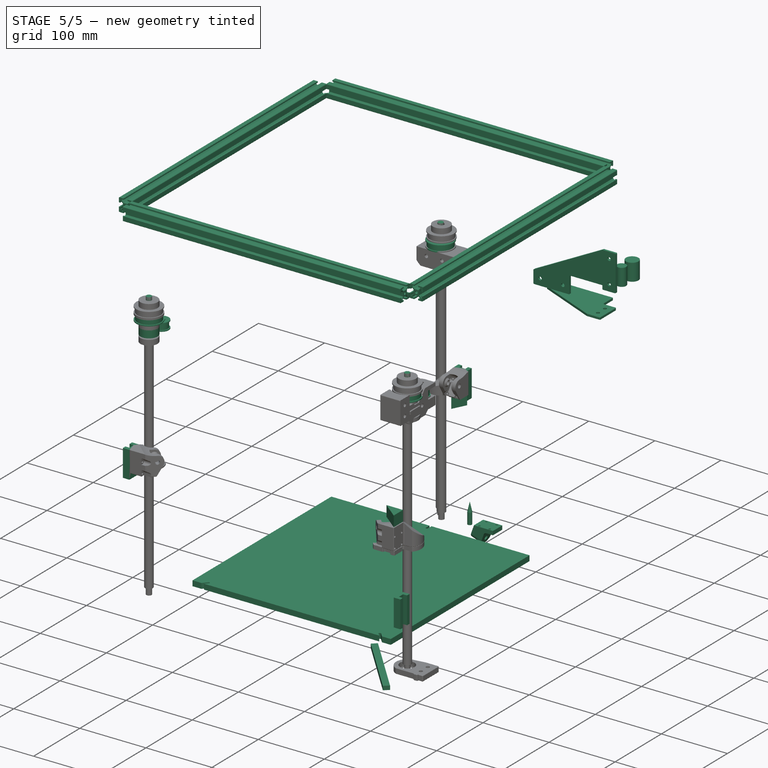
[diagram: stage 5 of 5 — iso view after this stage's code; geometry added in this stage tinted green]
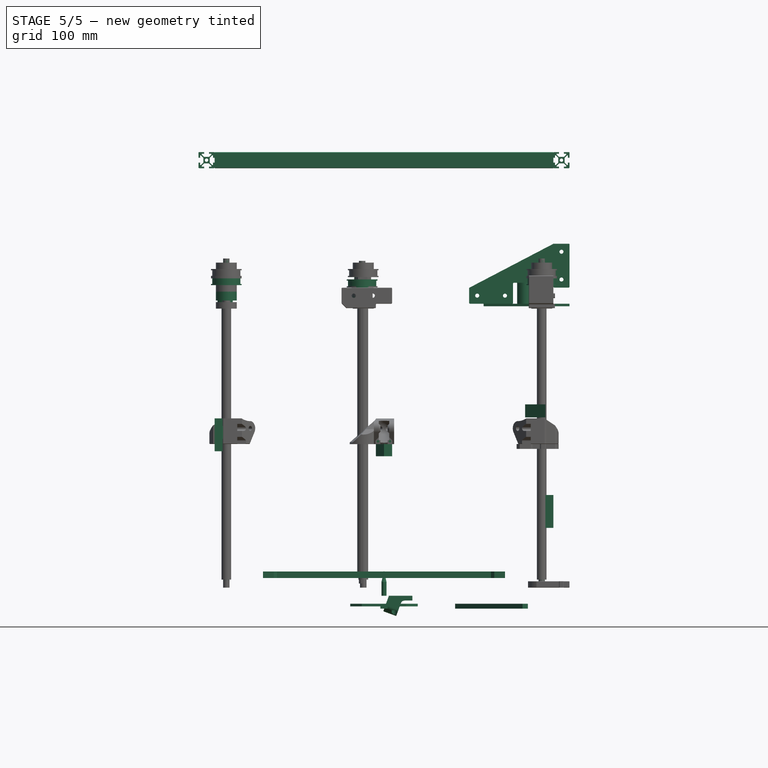
[diagram: stage 5 of 5 — front view after this stage's code; geometry added in this stage tinted green]
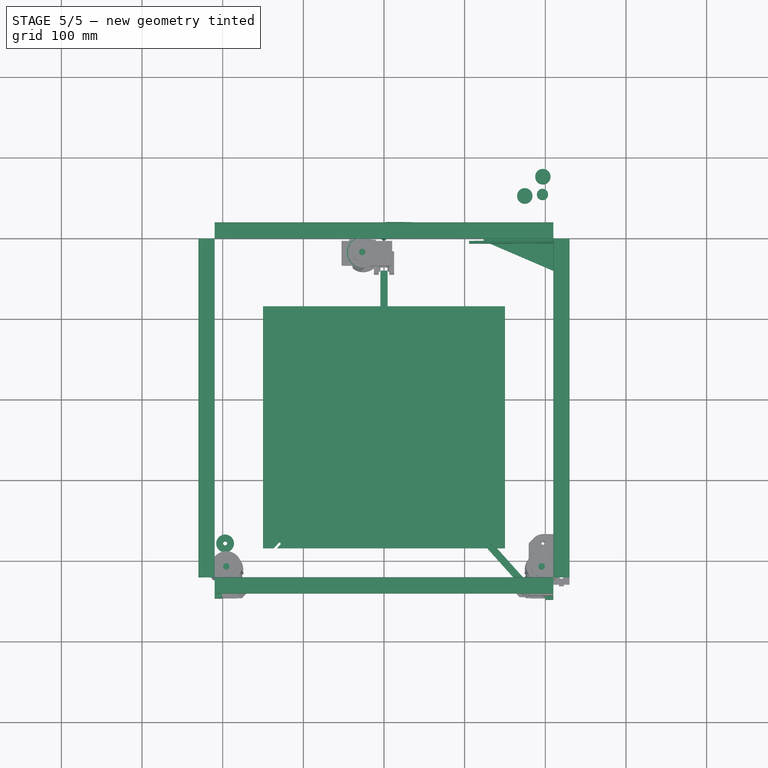
[diagram: stage 5 of 5 — top view after this stage's code; geometry added in this stage tinted green]
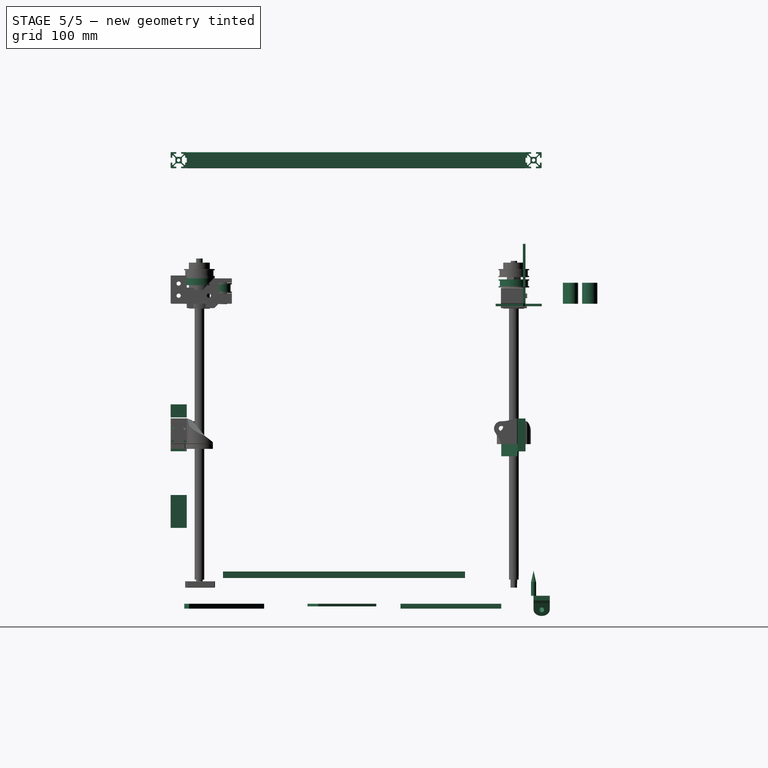
[diagram: stage 5 of 5 — right view after this stage's code; geometry added in this stage tinted green]
FEATURE [Sketcher::SketchObject] Sketch007
  ArcFitTolerance = 1e-06
  AttachmentSupport = -> [Extrude006]
  ExternalBSplineMaxDegree = 5
  ExternalBSplineTolerance = 0.0001
  ExternalGeometry = -> [Extrude006]
  FullyConstrained = true
  InternalTolerance = 1e-06
  MakeInternals = false
  MapMode = 5
  Placement = pos=(-210,1.89004e-11,-4.974e-13) rot=(0.57735,0.57735,0.57735;2.0944rad)
  Support = -> [Extrude006]
  TreeRank = 17
  expr: Constraints[114] = Sketch.Constraints[115]
  expr: Constraints[117] = Sketch.Constraints[118]
  expr: Constraints[173] = Sketch.Constraints[174]
  expr: Constraints[43] = Sketch.Constraints[44]
  expr: Constraints[44] = Sketch.Constraints[45]
  expr: Constraints[45] = Sketch.Constraints[46]
  expr: Constraints[46] = Sketch.Constraints[47]
  expr: Constraints[47] = Sketch.Constraints[48]
  expr: Constraints[59] = Sketch.Constraints[60]
  expr: Constraints[79] = Sketch.Constraints[80]
  expr: Constraints[80] = Sketch.Constraints[81]
  expr: Constraints[81] = Sketch.Constraints[82]
  expr: Constraints[82] = Sketch.Constraints[83]
  expr: Constraints[83] = Sketch.Constraints[84]
  expr: Constraints[84] = Sketch.Constraints[85]
  expr: Constraints[85] = Sketch.Constraints[86]
  expr: Constraints[88] = Sketch.Constraints[89]
  expr: Constraints[89] = Sketch.Constraints[90]
  sketch-geometry (65):
    g0: LineSegment [constr] StartX=-450 StartY=-10 StartZ=0 EndX=-450 EndY=10 EndZ=0
    g1: LineSegment [constr] StartX=-450 StartY=10 StartZ=0 EndX=-430 EndY=10 EndZ=0
    g2: LineSegment [constr] StartX=-430 StartY=10 StartZ=0 EndX=-430 EndY=-10 EndZ=0
    g3: LineSegment [constr] StartX=-430 StartY=-10 StartZ=0 EndX=-450 EndY=-10 EndZ=0
    g4: LineSegment [constr] StartX=-430 StartY=10 StartZ=0 EndX=-440 EndY=1.0605e-12 EndZ=0
    g5: LineSegment [constr] StartX=-440 StartY=1.0614e-12 StartZ=0 EndX=-430 EndY=-10 EndZ=0
    g6: LineSegment [constr] StartX=-440 StartY=1.0614e-12 StartZ=0 EndX=-450 EndY=-10 EndZ=0
    g7: LineSegment [constr] StartX=-440 StartY=1.0614e-12 StartZ=0 EndX=-450 EndY=10 EndZ=0
    g8: LineSegment StartX=-430 StartY=9 StartZ=0 EndX=-430 EndY=3 EndZ=0
    g9: ArcOfCircle CenterX=-431 CenterY=9 CenterZ=0 NormalX=0 NormalY=0 NormalZ=1 AngleXU=0 Radius=1 StartAngle=-2.7e-15 EndAngle=1.5708
    g10: LineSegment StartX=-431 StartY=10 StartZ=0 EndX=-437 EndY=10 EndZ=0
    g11: LineSegment StartX=-443 StartY=10 StartZ=0 EndX=-449 EndY=10 EndZ=0
    g12: LineSegment StartX=-450 StartY=9 StartZ=0 EndX=-450 EndY=3 EndZ=0
    g13: LineSegment StartX=-450 StartY=-3 StartZ=0 EndX=-450 EndY=-9 EndZ=0
    g14: LineSegment StartX=-449 StartY=-10 StartZ=0 EndX=-443 EndY=-10 EndZ=0
    g15: LineSegment StartX=-431 StartY=-10 StartZ=0 EndX=-437 EndY=-10 EndZ=0
    g16: LineSegment StartX=-430 StartY=-9 StartZ=0 EndX=-430 EndY=-3 EndZ=0
    g17: ArcOfCircle CenterX=-431 CenterY=-9 CenterZ=0 NormalX=0 NormalY=0 NormalZ=1 AngleXU=0 Radius=1 StartAngle=4.71239 EndAngle=6.28319
    g18: ArcOfCircle CenterX=-449 CenterY=-9 CenterZ=0 NormalX=0 NormalY=0 NormalZ=1 AngleXU=0 Radius=1 StartAngle=3.14159 EndAngle=4.71239
    g19: ArcOfCircle CenterX=-449 CenterY=9 CenterZ=0 NormalX=0 NormalY=0 NormalZ=1 AngleXU=0 Radius=1 StartAngle=1.5708 EndAngle=3.14159
    g20: LineSegment [constr] StartX=-434 StartY=6 StartZ=0 EndX=-434 EndY=-6 EndZ=0
    g21: LineSegment [constr] StartX=-434 StartY=-6 StartZ=0 EndX=-446 EndY=-6 EndZ=0
    g22: LineSegment [constr] StartX=-446 StartY=-6 StartZ=0 EndX=-446 EndY=6 EndZ=0
    g23: LineSegment [constr] StartX=-446 StartY=6 StartZ=0 EndX=-434 EndY=6 EndZ=0
    g24: LineSegment StartX=-430 StartY=3 StartZ=0 EndX=-432 EndY=3 EndZ=0
    g25: LineSegment StartX=-430 StartY=-3 StartZ=0 EndX=-432 EndY=-3 EndZ=0
    g26: LineSegment StartX=-437 StartY=10 StartZ=0 EndX=-437 EndY=8 EndZ=0
    g27: LineSegment StartX=-443 StartY=10 StartZ=0 EndX=-443 EndY=8 EndZ=0
    g28: LineSegment StartX=-450 StartY=3 StartZ=0 EndX=-448 EndY=3 EndZ=0
    g29: LineSegment StartX=-450 StartY=-3 StartZ=0 EndX=-448 EndY=-3 EndZ=0
    g30: LineSegment StartX=-443 StartY=-10 StartZ=0 EndX=-443 EndY=-8 EndZ=0
    g31: LineSegment StartX=-437 StartY=-10 StartZ=0 EndX=-437 EndY=-8 EndZ=0
    g32: LineSegment StartX=-437 StartY=8 StartZ=0 EndX=-434 EndY=8 EndZ=0
    g33: LineSegment StartX=-443 StartY=8 StartZ=0 EndX=-446 EndY=8 EndZ=0
    g34: LineSegment StartX=-434 StartY=8 StartZ=0 EndX=-434 EndY=7 EndZ=0
    g35: LineSegment StartX=-434 StartY=7 StartZ=0 EndX=-437 EndY=4 EndZ=0
    g36: LineSegment StartX=-446 StartY=8 StartZ=0 EndX=-446 EndY=7 EndZ=0
    g37: LineSegment StartX=-446 StartY=7 StartZ=0 EndX=-443 EndY=4 EndZ=0
    g38: LineSegment StartX=-437 StartY=4 StartZ=0 EndX=-443 EndY=4 EndZ=0
    g39: LineSegment [constr] StartX=-436 StartY=4 StartZ=0 EndX=-444 EndY=4 EndZ=0
    g40: LineSegment [constr] StartX=-444 StartY=4 StartZ=0 EndX=-444 EndY=-4 EndZ=0
    g41: LineSegment [constr] StartX=-444 StartY=-4 StartZ=0 EndX=-436 EndY=-4 EndZ=0
    g42: LineSegment [constr] StartX=-436 StartY=-4 StartZ=0 EndX=-436 EndY=4 EndZ=0
    g43: LineSegment StartX=-436 StartY=3 StartZ=0 EndX=-436 EndY=-3 EndZ=0
    g44: LineSegment StartX=-436 StartY=-3 StartZ=0 EndX=-433 EndY=-6 EndZ=0
    g45: LineSegment StartX=-436 StartY=3 StartZ=0 EndX=-433 EndY=6 EndZ=0
    g46: LineSegment StartX=-433 StartY=6 StartZ=0 EndX=-432 EndY=6 EndZ=0
    g47: LineSegment StartX=-433 StartY=-6 StartZ=0 EndX=-432 EndY=-6 EndZ=0
    g48: LineSegment StartX=-432 StartY=6 StartZ=0 EndX=-432 EndY=3 EndZ=0
    g49: LineSegment StartX=-432 StartY=-6 StartZ=0 EndX=-432 EndY=-3 EndZ=0
    g50: LineSegment StartX=-443 StartY=-4 StartZ=0 EndX=-437 EndY=-4 EndZ=0
    g51: LineSegment StartX=-437 StartY=-4 StartZ=0 EndX=-434 EndY=-7 EndZ=0
    g52: LineSegment StartX=-443 StartY=-4 StartZ=0 EndX=-446 EndY=-7 EndZ=0
    g53: LineSegment StartX=-434 StartY=-7 StartZ=0 EndX=-434 EndY=-8 EndZ=0
    g54: LineSegment StartX=-446 StartY=-7 StartZ=0 EndX=-446 EndY=-8 EndZ=0
    g55: LineSegment StartX=-437 StartY=-8 StartZ=0 EndX=-434 EndY=-8 EndZ=0
    g56: LineSegment StartX=-446 StartY=-8 StartZ=0 EndX=-443 EndY=-8 EndZ=0
    g57: LineSegment StartX=-444 StartY=3 StartZ=0 EndX=-444 EndY=-3 EndZ=0
    g58: LineSegment StartX=-444 StartY=3 StartZ=0 EndX=-447 EndY=6 EndZ=0
    g59: LineSegment StartX=-444 StartY=-3 StartZ=0 EndX=-447 EndY=-6 EndZ=0
    g60: LineSegment StartX=-447 StartY=6 StartZ=0 EndX=-448 EndY=6 EndZ=0
    g61: LineSegment StartX=-447 StartY=-6 StartZ=0 EndX=-448 EndY=-6 EndZ=0
    g62: LineSegment StartX=-448 StartY=6 StartZ=0 EndX=-448 EndY=3 EndZ=0
    g63: LineSegment StartX=-448 StartY=-3 StartZ=0 EndX=-448 EndY=-6 EndZ=0
    g64: Circle CenterX=-440 CenterY=1.0614e-12 CenterZ=0 NormalX=0 NormalY=0 NormalZ=1 AngleXU=0 Radius=2.1
  constraints (177):
    c: Coincident(g0,g1)
    c: Coincident(g1,g2)
    c: Coincident(g2,g3)
    c: Coincident(g3,g0)
    c: Coincident(g4,g1)
    c: Coincident(g5,g4)
    c: Coincident(g5,g2)
    c: Coincident(g6,g4)
    c: Coincident(g6,g0)
    c: Equal(g6,g5)
    c: Equal(g5,g4)
    c: Equal(g2,g0)
    c: Equal(g3,g1)
    c: Coincident(g7,g4)
    c: Coincident(g7,g0)
    c: Equal(g7,g5)
    c: PointOnObject(g8,g2)
    c: PointOnObject(g8,g2)
    c: PointOnObject(g9,g1)
    c: Tangent(g9,g8) = 1.5708
    c: PointOnObject(g10,g1)
    c: PointOnObject(g11,g1)
    c: PointOnObject(g11,g1)
    c: PointOnObject(g12,g0)
    c: PointOnObject(g12,g0)
    c: PointOnObject(g13,g0)
    c: PointOnObject(g13,g0)
    c: PointOnObject(g14,g3)
    c: PointOnObject(g14,g3)
    c: PointOnObject(g15,g3)
    c: PointOnObject(g15,g3)
    c: PointOnObject(g16,g2)
    c: PointOnObject(g16,g2)
    c: Tangent(g17,g16) = -1.5708
    c: Tangent(g17,g15) = 1.5708
    c: Tangent(g18,g14) = -1.5708
    c: Tangent(g18,g13) = -1.5708
    c: Tangent(g10,g9) = -1.5708
    c: Tangent(g19,g12) = -1.5708
    c: Tangent(g19,g11) = -1.5708
    c: Equal(g9,g17)
    c: Equal(g17,g18)
    c: Equal(g18,g19)
    c: Radius(g9) = 1
    c: Distance(g8,g16) = 6
    c: Distance(g15,g14) = 6
    c: Distance(g13,g12) = 6
    c: Distance(g11,g10) = 6
    c: PointOnObject(g20,g4)
    c: PointOnObject(g20,g5)
    c: Coincident(g21,g20)
    c: PointOnObject(g21,g6)
    c: Coincident(g22,g21)
    c: PointOnObject(g22,g7)
    c: Coincident(g23,g22)
    c: Coincident(g23,g20)
    c: Equal(g20,g23)
    c: Equal(g20,g22)
    c: Parallel(g23,g1)
    c: Distance(g20,g20) = 12
    c: Equal(g15,g14)
    c: Equal(g16,g8)
    c: Equal(g10,g11)
    c: Equal(g12,g13)
    c: Coincident(g24,g8)
    c: Coincident(g25,g16)
    c: Coincident(g26,g10)
    c: Coincident(g27,g11)
    c: Coincident(g28,g12)
    c: Coincident(g29,g13)
    c: Coincident(g30,g14)
    c: Coincident(g31,g15)
    c: Equal(g25,g24)
    c: Equal(g24,g26)
    c: Equal(g26,g27)
    c: Equal(g27,g28)
    c: Equal(g28,g29)
    c: Equal(g29,g30)
    c: Equal(g30,g31)
    c: Angle(g25,g16) = 1.5708
    c: Angle(g8,g24) = 1.5708
    c: Angle(g26,g10) = 1.5708
    c: Angle(g11,g27) = 1.5708
    c: Angle(g15,g31) = 1.5708
    c: Angle(g30,g14) = 1.5708
    c: Distance(g24) = 2
    c: Coincident(g32,g26)
    c: Coincident(g33,g27)
    c: Angle(g13,g29) = 1.5708
    c: Angle(g28,g12) = 1.5708
    c: Parallel(g32,g10)
    c: Parallel(g33,g11)
    c: Coincident(g34,g32)
    c: Coincident(g35,g34)
    c: Parallel(g35,g4)
    c: Coincident(g36,g33)
    c: Coincident(g37,g36)
    c: Parallel(g37,g7)
    c: Coincident(g38,g35)
    c: Coincident(g38,g37)
    c: Tangent(g34,g20)
    c: Tangent(g22,g36)
    c: Equal(g37,g35)
    c: PointOnObject(g39,g4)
    c: PointOnObject(g39,g7)
    c: Coincident(g40,g39)
    c: PointOnObject(g40,g6)
    c: Coincident(g41,g40)
    c: PointOnObject(g41,g5)
    c: Coincident(g42,g41)
    c: Coincident(g42,g39)
    c: Equal(g42,g39)
    c: Equal(g42,g40)
    c: Parallel(g39,g1)
    c: Distance(g42) = 8
    c: PointOnObject(g35,g39)
    c: PointOnObject(g37,g39)
    c: Distance(g38) = 6
    c: PointOnObject(g43,g42)
    c: PointOnObject(g43,g42)
    c: Coincident(g44,g43)
    c: Coincident(g45,g43)
    c: Parallel(g45,g4)
    c: Parallel(g44,g5)
    c: Coincident(g46,g45)
    c: Coincident(g47,g44)
    c: Tangent(g47,g21)
    c: Tangent(g46,g23)
    c: Coincident(g48,g46)
    c: Coincident(g48,g24)
    c: Coincident(g49,g47)
    c: Coincident(g49,g25)
    c: Parallel(g48,g8)
    c: Parallel(g49,g16)
    c: Equal(g45,g44)
    c: PointOnObject(g50,g41)
    c: PointOnObject(g50,g41)
    c: Coincident(g51,g50)
    c: Coincident(g52,g50)
    c: Parallel(g51,g5)
    c: Parallel(g52,g6)
    c: Equal(g51,g52)
    c: Coincident(g53,g51)
    c: Coincident(g54,g52)
    c: Tangent(g54,g22)
    c: Tangent(g53,g20)
    c: Coincident(g55,g31)
    c: Coincident(g55,g53)
    c: Coincident(g56,g54)
    c: Coincident(g56,g30)
    c: Parallel(g55,g15)
    c: Parallel(g56,g14)
    c: Equal(g43,g38)
    c: Equal(g50,g43)
    c: PointOnObject(g57,g40)
    c: PointOnObject(g57,g40)
    c: Equal(g57,g38)
    c: Coincident(g58,g57)
    c: Coincident(g59,g57)
    c: Parallel(g6,g59)
    c: Parallel(g58,g37)
    c: Equal(g59,g58)
    c: Coincident(g60,g58)
    c: Coincident(g61,g59)
    c: Tangent(g61,g21)
    c: Tangent(g60,g23)
    c: Coincident(g62,g60)
    c: Coincident(g62,g28)
    c: Coincident(g63,g29)
    c: Coincident(g63,g61)
    c: Parallel(g63,g13)
    c: Parallel(g62,g12)
    c: Coincident(g64,g4)
    c: Diameter(g64) = 4.2
    c: Equal(g3,g2)
    c: Coincident(g0,g-4)
    c: Coincident(g2,g-3)
FEATURE [Part::Extrusion] Extrude007
  AutoTaperInnerAngle = true
  Base = -> Sketch007
  Dir = (1,-8.99e-14,2.4e-15)
  DirMode = 2
  FaceMakerClass = Part::FaceMakerBullseye
  LengthFwd = 420
  LengthRev = 0
  Linearize = true
  Solid = true
  Symmetric = false
  TaperInnerAngle = 0
  TaperInnerAngleRev = 0
  TreeRank = 63
  expr: LengthFwd = <<GlobalVars>>.x_axis_extrusion_length
FEATURE [Sketcher::SketchObject] Sketch008
  ArcFitTolerance = 1e-06
  AttachmentSupport = -> [Extrude002]
  ExternalBSplineMaxDegree = 5
  ExternalBSplineTolerance = 0.0001
  ExternalGeometry = -> [Extrude002]
  FullyConstrained = true
  InternalTolerance = 1e-06
  MakeInternals = false
  MapMode = 5
  Placement = pos=(-210,-9.954e-13,4.2e-14) rot=(0.57735,0.57735,0.57735;2.0944rad)
  Support = -> [Extrude002]
  TreeRank = 19
  expr: Constraints[114] = Sketch.Constraints[115]
  expr: Constraints[117] = Sketch.Constraints[118]
  expr: Constraints[173] = Sketch.Constraints[174]
  expr: Constraints[43] = Sketch.Constraints[44]
  expr: Constraints[44] = Sketch.Constraints[45]
  expr: Constraints[45] = Sketch.Constraints[46]
  expr: Constraints[46] = Sketch.Constraints[47]
  expr: Constraints[47] = Sketch.Constraints[48]
  expr: Constraints[59] = Sketch.Constraints[60]
  expr: Constraints[79] = Sketch.Constraints[80]
  expr: Constraints[80] = Sketch.Constraints[81]
  expr: Constraints[81] = Sketch.Constraints[82]
  expr: Constraints[82] = Sketch.Constraints[83]
  expr: Constraints[83] = Sketch.Constraints[84]
  expr: Constraints[84] = Sketch.Constraints[85]
  expr: Constraints[85] = Sketch.Constraints[86]
  expr: Constraints[88] = Sketch.Constraints[89]
  expr: Constraints[89] = Sketch.Constraints[90]
  sketch-geometry (65):
    g0: LineSegment [constr] StartX=10 StartY=550 StartZ=0 EndX=10 EndY=530 EndZ=0
    g1: LineSegment [constr] StartX=10 StartY=530 StartZ=0 EndX=-10 EndY=530 EndZ=0
    g2: LineSegment [constr] StartX=-10 StartY=530 StartZ=0 EndX=-10 EndY=550 EndZ=0
    g3: LineSegment [constr] StartX=-10 StartY=550 StartZ=0 EndX=10 EndY=550 EndZ=0
    g4: LineSegment [constr] StartX=-10 StartY=530 StartZ=0 EndX=8.42e-13 EndY=540 EndZ=0
    g5: LineSegment [constr] StartX=8.418e-13 StartY=540 StartZ=0 EndX=-10 EndY=550 EndZ=0
    g6: LineSegment [constr] StartX=8.418e-13 StartY=540 StartZ=0 EndX=10 EndY=550 EndZ=0
    g7: LineSegment [constr] StartX=8.418e-13 StartY=540 StartZ=0 EndX=10 EndY=530 EndZ=0
    g8: LineSegment StartX=-10 StartY=531 StartZ=0 EndX=-10 EndY=537 EndZ=0
    g9: ArcOfCircle CenterX=-9 CenterY=531 CenterZ=0 NormalX=0 NormalY=0 NormalZ=1 AngleXU=0 Radius=1 StartAngle=3.14159 EndAngle=4.71239
    g10: LineSegment StartX=-9 StartY=530 StartZ=0 EndX=-3 EndY=530 EndZ=0
    g11: LineSegment StartX=3 StartY=530 StartZ=0 EndX=9 EndY=530 EndZ=0
    g12: LineSegment StartX=10 StartY=531 StartZ=0 EndX=10 EndY=537 EndZ=0
    g13: LineSegment StartX=10 StartY=543 StartZ=0 EndX=10 EndY=549 EndZ=0
    g14: LineSegment StartX=9 StartY=550 StartZ=0 EndX=3 EndY=550 EndZ=0
    g15: LineSegment StartX=-9 StartY=550 StartZ=0 EndX=-3 EndY=550 EndZ=0
    g16: LineSegment StartX=-10 StartY=549 StartZ=0 EndX=-10 EndY=543 EndZ=0
    g17: ArcOfCircle CenterX=-9 CenterY=549 CenterZ=0 NormalX=0 NormalY=0 NormalZ=1 AngleXU=0 Radius=1 StartAngle=1.5708 EndAngle=3.14159
    g18: ArcOfCircle CenterX=9 CenterY=549 CenterZ=0 NormalX=0 NormalY=0 NormalZ=1 AngleXU=0 Radius=1 StartAngle=2.28e-14 EndAngle=1.5708
    g19: ArcOfCircle CenterX=9 CenterY=531 CenterZ=0 NormalX=0 NormalY=0 NormalZ=1 AngleXU=0 Radius=1 StartAngle=4.71239 EndAngle=6.28319
    g20: LineSegment [constr] StartX=-6 StartY=534 StartZ=0 EndX=-6 EndY=546 EndZ=0
    g21: LineSegment [constr] StartX=-6 StartY=546 StartZ=0 EndX=6 EndY=546 EndZ=0
    g22: LineSegment [constr] StartX=6 StartY=546 StartZ=0 EndX=6 EndY=534 EndZ=0
    g23: LineSegment [constr] StartX=6 StartY=534 StartZ=0 EndX=-6 EndY=534 EndZ=0
    g24: LineSegment StartX=-10 StartY=537 StartZ=0 EndX=-8 EndY=537 EndZ=0
    g25: LineSegment StartX=-10 StartY=543 StartZ=0 EndX=-8 EndY=543 EndZ=0
    g26: LineSegment StartX=-3 StartY=530 StartZ=0 EndX=-3 EndY=532 EndZ=0
    g27: LineSegment StartX=3 StartY=530 StartZ=0 EndX=3 EndY=532 EndZ=0
    g28: LineSegment StartX=10 StartY=537 StartZ=0 EndX=8 EndY=537 EndZ=0
    g29: LineSegment StartX=10 StartY=543 StartZ=0 EndX=8 EndY=543 EndZ=0
    g30: LineSegment StartX=3 StartY=550 StartZ=0 EndX=3 EndY=548 EndZ=0
    g31: LineSegment StartX=-3 StartY=550 StartZ=0 EndX=-3 EndY=548 EndZ=0
    g32: LineSegment StartX=-3 StartY=532 StartZ=0 EndX=-6 EndY=532 EndZ=0
    g33: LineSegment StartX=3 StartY=532 StartZ=0 EndX=6 EndY=532 EndZ=0
    g34: LineSegment StartX=-6 StartY=532 StartZ=0 EndX=-6 EndY=533 EndZ=0
    g35: LineSegment StartX=-6 StartY=533 StartZ=0 EndX=-3 EndY=536 EndZ=0
    g36: LineSegment StartX=6 StartY=532 StartZ=0 EndX=6 EndY=533 EndZ=0
    g37: LineSegment StartX=6 StartY=533 StartZ=0 EndX=3 EndY=536 EndZ=0
    g38: LineSegment StartX=-3 StartY=536 StartZ=0 EndX=3 EndY=536 EndZ=0
    g39: LineSegment [constr] StartX=-4 StartY=536 StartZ=0 EndX=4 EndY=536 EndZ=0
    g40: LineSegment [constr] StartX=4 StartY=536 StartZ=0 EndX=4 EndY=544 EndZ=0
    g41: LineSegment [constr] StartX=4 StartY=544 StartZ=0 EndX=-4 EndY=544 EndZ=0
    g42: LineSegment [constr] StartX=-4 StartY=544 StartZ=0 EndX=-4 EndY=536 EndZ=0
    g43: LineSegment StartX=-4 StartY=537 StartZ=0 EndX=-4 EndY=543 EndZ=0
    g44: LineSegment StartX=-4 StartY=543 StartZ=0 EndX=-7 EndY=546 EndZ=0
    g45: LineSegment StartX=-4 StartY=537 StartZ=0 EndX=-7 EndY=534 EndZ=0
    g46: LineSegment StartX=-7 StartY=534 StartZ=0 EndX=-8 EndY=534 EndZ=0
    g47: LineSegment StartX=-7 StartY=546 StartZ=0 EndX=-8 EndY=546 EndZ=0
    g48: LineSegment StartX=-8 StartY=534 StartZ=0 EndX=-8 EndY=537 EndZ=0
    g49: LineSegment StartX=-8 StartY=546 StartZ=0 EndX=-8 EndY=543 EndZ=0
    g50: LineSegment StartX=3 StartY=544 StartZ=0 EndX=-3 EndY=544 EndZ=0
    g51: LineSegment StartX=-3 StartY=544 StartZ=0 EndX=-6 EndY=547 EndZ=0
    g52: LineSegment StartX=3 StartY=544 StartZ=0 EndX=6 EndY=547 EndZ=0
    g53: LineSegment StartX=-6 StartY=547 StartZ=0 EndX=-6 EndY=548 EndZ=0
    g54: LineSegment StartX=6 StartY=547 StartZ=0 EndX=6 EndY=548 EndZ=0
    g55: LineSegment StartX=-3 StartY=548 StartZ=0 EndX=-6 EndY=548 EndZ=0
    g56: LineSegment StartX=6 StartY=548 StartZ=0 EndX=3 EndY=548 EndZ=0
    g57: LineSegment StartX=4 StartY=537 StartZ=0 EndX=4 EndY=543 EndZ=0
    g58: LineSegment StartX=4 StartY=537 StartZ=0 EndX=7 EndY=534 EndZ=0
    g59: LineSegment StartX=4 StartY=543 StartZ=0 EndX=7 EndY=546 EndZ=0
    g60: LineSegment StartX=7 StartY=534 StartZ=0 EndX=8 EndY=534 EndZ=0
    g61: LineSegment StartX=7 StartY=546 StartZ=0 EndX=8 EndY=546 EndZ=0
    g62: LineSegment StartX=8 StartY=534 StartZ=0 EndX=8 EndY=537 EndZ=0
    g63: LineSegment StartX=8 StartY=543 StartZ=0 EndX=8 EndY=546 EndZ=0
    g64: Circle CenterX=8.418e-13 CenterY=540 CenterZ=0 NormalX=0 NormalY=0 NormalZ=1 AngleXU=0 Radius=2.1
  constraints (177):
    c: Coincident(g0,g1)
    c: Coincident(g1,g2)
    c: Coincident(g2,g3)
    c: Coincident(g3,g0)
    c: Coincident(g4,g1)
    c: Coincident(g5,g4)
    c: Coincident(g5,g2)
    c: Coincident(g6,g4)
    c: Coincident(g6,g0)
    c: Equal(g6,g5)
    c: Equal(g5,g4)
    c: Equal(g2,g0)
    c: Equal(g3,g1)
    c: Coincident(g7,g4)
    c: Coincident(g7,g0)
    c: Equal(g7,g5)
    c: PointOnObject(g8,g2)
    c: PointOnObject(g8,g2)
    c: PointOnObject(g9,g1)
    c: Tangent(g9,g8) = 1.5708
    c: PointOnObject(g10,g1)
    c: PointOnObject(g11,g1)
    c: PointOnObject(g11,g1)
    c: PointOnObject(g12,g0)
    c: PointOnObject(g12,g0)
    c: PointOnObject(g13,g0)
    c: PointOnObject(g13,g0)
    c: PointOnObject(g14,g3)
    c: PointOnObject(g14,g3)
    c: PointOnObject(g15,g3)
    c: PointOnObject(g15,g3)
    c: PointOnObject(g16,g2)
    c: PointOnObject(g16,g2)
    c: Tangent(g17,g16) = -1.5708
    c: Tangent(g17,g15) = 1.5708
    c: Tangent(g18,g14) = -1.5708
    c: Tangent(g18,g13) = -1.5708
    c: Tangent(g10,g9) = -1.5708
    c: Tangent(g19,g12) = -1.5708
    c: Tangent(g19,g11) = -1.5708
    c: Equal(g9,g17)
    c: Equal(g17,g18)
    c: Equal(g18,g19)
    c: Radius(g9) = 1
    c: Distance(g8,g16) = 6
    c: Distance(g15,g14) = 6
    c: Distance(g13,g12) = 6
    c: Distance(g11,g10) = 6
    c: PointOnObject(g20,g4)
    c: PointOnObject(g20,g5)
    c: Coincident(g21,g20)
    c: PointOnObject(g21,g6)
    c: Coincident(g22,g21)
    c: PointOnObject(g22,g7)
    c: Coincident(g23,g22)
    c: Coincident(g23,g20)
    c: Equal(g20,g23)
    c: Equal(g20,g22)
    c: Parallel(g23,g1)
    c: Distance(g20,g20) = 12
    c: Equal(g15,g14)
    c: Equal(g16,g8)
    c: Equal(g10,g11)
    c: Equal(g12,g13)
    c: Coincident(g24,g8)
    c: Coincident(g25,g16)
    c: Coincident(g26,g10)
    c: Coincident(g27,g11)
    c: Coincident(g28,g12)
    c: Coincident(g29,g13)
    c: Coincident(g30,g14)
    c: Coincident(g31,g15)
    c: Equal(g25,g24)
    c: Equal(g24,g26)
    c: Equal(g26,g27)
    c: Equal(g27,g28)
    c: Equal(g28,g29)
    c: Equal(g29,g30)
    c: Equal(g30,g31)
    c: Angle(g25,g16) = 1.5708
    c: Angle(g8,g24) = 1.5708
    c: Angle(g26,g10) = 1.5708
    c: Angle(g11,g27) = 1.5708
    c: Angle(g15,g31) = 1.5708
    c: Angle(g30,g14) = 1.5708
    c: Distance(g24) = 2
    c: Coincident(g32,g26)
    c: Coincident(g33,g27)
    c: Angle(g13,g29) = 1.5708
    c: Angle(g28,g12) = 1.5708
    c: Parallel(g32,g10)
    c: Parallel(g33,g11)
    c: Coincident(g34,g32)
    c: Coincident(g35,g34)
    c: Parallel(g35,g4)
    c: Coincident(g36,g33)
    c: Coincident(g37,g36)
    c: Parallel(g37,g7)
    c: Coincident(g38,g35)
    c: Coincident(g38,g37)
    c: Tangent(g34,g20)
    c: Tangent(g22,g36)
    c: Equal(g37,g35)
    c: PointOnObject(g39,g4)
    c: PointOnObject(g39,g7)
    c: Coincident(g40,g39)
    c: PointOnObject(g40,g6)
    c: Coincident(g41,g40)
    c: PointOnObject(g41,g5)
    c: Coincident(g42,g41)
    c: Coincident(g42,g39)
    c: Equal(g42,g39)
    c: Equal(g42,g40)
    c: Parallel(g39,g1)
    c: Distance(g42) = 8
    c: PointOnObject(g35,g39)
    c: PointOnObject(g37,g39)
    c: Distance(g38) = 6
    c: PointOnObject(g43,g42)
    c: PointOnObject(g43,g42)
    c: Coincident(g44,g43)
    c: Coincident(g45,g43)
    c: Parallel(g45,g4)
    c: Parallel(g44,g5)
    c: Coincident(g46,g45)
    c: Coincident(g47,g44)
    c: Tangent(g47,g21)
    c: Tangent(g46,g23)
    c: Coincident(g48,g46)
    c: Coincident(g48,g24)
    c: Coincident(g49,g47)
    c: Coincident(g49,g25)
    c: Parallel(g48,g8)
    c: Parallel(g49,g16)
    c: Equal(g45,g44)
    c: PointOnObject(g50,g41)
    c: PointOnObject(g50,g41)
    c: Coincident(g51,g50)
    c: Coincident(g52,g50)
    c: Parallel(g51,g5)
    c: Parallel(g52,g6)
    c: Equal(g51,g52)
    c: Coincident(g53,g51)
    c: Coincident(g54,g52)
    c: Tangent(g54,g22)
    c: Tangent(g53,g20)
    c: Coincident(g55,g31)
    c: Coincident(g55,g53)
    c: Coincident(g56,g54)
    c: Coincident(g56,g30)
    c: Parallel(g55,g15)
    c: Parallel(g56,g14)
    c: Equal(g43,g38)
    c: Equal(g50,g43)
    c: PointOnObject(g57,g40)
    c: PointOnObject(g57,g40)
    c: Equal(g57,g38)
    c: Coincident(g58,g57)
    c: Coincident(g59,g57)
    c: Parallel(g6,g59)
    c: Parallel(g58,g37)
    c: Equal(g59,g58)
    c: Coincident(g60,g58)
    c: Coincident(g61,g59)
    c: Tangent(g61,g21)
    c: Tangent(g60,g23)
    c: Coincident(g62,g60)
    c: Coincident(g62,g28)
    c: Coincident(g63,g29)
    c: Coincident(g63,g61)
    c: Parallel(g63,g13)
    c: Parallel(g62,g12)
    c: Coincident(g64,g4)
    c: Diameter(g64) = 4.2
    c: Equal(g3,g2)
    c: Coincident(g0,g-3)
    c: Coincident(g2,g-4)
FEATURE [Part::Extrusion] Extrude008
  AutoTaperInnerAngle = true
  Base = -> Sketch008
  Dir = (1,4.7e-15,-2e-16)
  DirMode = 2
  FaceMakerClass = Part::FaceMakerBullseye
  LengthFwd = 420
  LengthRev = 0
  Linearize = true
  Solid = true
  Symmetric = false
  TaperInnerAngle = 0
  TaperInnerAngleRev = 0
  TreeRank = 64
  expr: LengthFwd = <<GlobalVars>>.x_axis_extrusion_length
FEATURE [Sketcher::SketchObject] Sketch009
  ArcFitTolerance = 1e-06
  AttachmentSupport = -> [Extrude006]
  ExternalBSplineMaxDegree = 5
  ExternalBSplineTolerance = 0.0001
  ExternalGeometry = -> [Extrude006]
  FullyConstrained = true
  InternalTolerance = 1e-06
  MakeInternals = false
  MapMode = 5
  Placement = pos=(-210,1.89004e-11,-4.974e-13) rot=(0.57735,0.57735,0.57735;2.0944rad)
  Support = -> [Extrude006]
  TreeRank = 21
  expr: Constraints[114] = Sketch.Constraints[115]
  expr: Constraints[117] = Sketch.Constraints[118]
  expr: Constraints[173] = Sketch.Constraints[174]
  expr: Constraints[43] = Sketch.Constraints[44]
  expr: Constraints[44] = Sketch.Constraints[45]
  expr: Constraints[45] = Sketch.Constraints[46]
  expr: Constraints[46] = Sketch.Constraints[47]
  expr: Constraints[47] = Sketch.Constraints[48]
  expr: Constraints[59] = Sketch.Constraints[60]
  expr: Constraints[79] = Sketch.Constraints[80]
  expr: Constraints[80] = Sketch.Constraints[81]
  expr: Constraints[81] = Sketch.Constraints[82]
  expr: Constraints[82] = Sketch.Constraints[83]
  expr: Constraints[83] = Sketch.Constraints[84]
  expr: Constraints[84] = Sketch.Constraints[85]
  expr: Constraints[85] = Sketch.Constraints[86]
  expr: Constraints[88] = Sketch.Constraints[89]
  expr: Constraints[89] = Sketch.Constraints[90]
  sketch-geometry (65):
    g0: LineSegment [constr] StartX=-450 StartY=530 StartZ=0 EndX=-450 EndY=550 EndZ=0
    g1: LineSegment [constr] StartX=-450 StartY=550 StartZ=0 EndX=-430 EndY=550 EndZ=0
    g2: LineSegment [constr] StartX=-430 StartY=550 StartZ=0 EndX=-430 EndY=530 EndZ=0
    g3: LineSegment [constr] StartX=-430 StartY=530 StartZ=0 EndX=-450 EndY=530 EndZ=0
    g4: LineSegment [constr] StartX=-430 StartY=550 StartZ=0 EndX=-440 EndY=540 EndZ=0
    g5: LineSegment [constr] StartX=-440 StartY=540 StartZ=0 EndX=-430 EndY=530 EndZ=0
    g6: LineSegment [constr] StartX=-440 StartY=540 StartZ=0 EndX=-450 EndY=530 EndZ=0
    g7: LineSegment [constr] StartX=-440 StartY=540 StartZ=0 EndX=-450 EndY=550 EndZ=0
    g8: LineSegment StartX=-430 StartY=549 StartZ=0 EndX=-430 EndY=543 EndZ=0
    g9: ArcOfCircle CenterX=-431 CenterY=549 CenterZ=0 NormalX=0 NormalY=0 NormalZ=1 AngleXU=0 Radius=1 StartAngle=4.9e-14 EndAngle=1.5708
    g10: LineSegment StartX=-431 StartY=550 StartZ=0 EndX=-437 EndY=550 EndZ=0
    g11: LineSegment StartX=-443 StartY=550 StartZ=0 EndX=-449 EndY=550 EndZ=0
    g12: LineSegment StartX=-450 StartY=549 StartZ=0 EndX=-450 EndY=543 EndZ=0
    g13: LineSegment StartX=-450 StartY=537 StartZ=0 EndX=-450 EndY=531 EndZ=0
    g14: LineSegment StartX=-449 StartY=530 StartZ=0 EndX=-443 EndY=530 EndZ=0
    g15: LineSegment StartX=-431 StartY=530 StartZ=0 EndX=-437 EndY=530 EndZ=0
    g16: LineSegment StartX=-430 StartY=531 StartZ=0 EndX=-430 EndY=537 EndZ=0
    g17: ArcOfCircle CenterX=-431 CenterY=531 CenterZ=0 NormalX=0 NormalY=0 NormalZ=1 AngleXU=0 Radius=1 StartAngle=4.71239 EndAngle=6.28319
    g18: ArcOfCircle CenterX=-449 CenterY=531 CenterZ=0 NormalX=0 NormalY=0 NormalZ=1 AngleXU=0 Radius=1 StartAngle=3.14159 EndAngle=4.71239
    g19: ArcOfCircle CenterX=-449 CenterY=549 CenterZ=0 NormalX=0 NormalY=0 NormalZ=1 AngleXU=0 Radius=1 StartAngle=1.5708 EndAngle=3.14159
    g20: LineSegment [constr] StartX=-434 StartY=546 StartZ=0 EndX=-434 EndY=534 EndZ=0
    g21: LineSegment [constr] StartX=-434 StartY=534 StartZ=0 EndX=-446 EndY=534 EndZ=0
    g22: LineSegment [constr] StartX=-446 StartY=534 StartZ=0 EndX=-446 EndY=546 EndZ=0
    g23: LineSegment [constr] StartX=-446 StartY=546 StartZ=0 EndX=-434 EndY=546 EndZ=0
    g24: LineSegment StartX=-430 StartY=543 StartZ=0 EndX=-432 EndY=543 EndZ=0
    g25: LineSegment StartX=-430 StartY=537 StartZ=0 EndX=-432 EndY=537 EndZ=0
    g26: LineSegment StartX=-437 StartY=550 StartZ=0 EndX=-437 EndY=548 EndZ=0
    g27: LineSegment StartX=-443 StartY=550 StartZ=0 EndX=-443 EndY=548 EndZ=0
    g28: LineSegment StartX=-450 StartY=543 StartZ=0 EndX=-448 EndY=543 EndZ=0
    g29: LineSegment StartX=-450 StartY=537 StartZ=0 EndX=-448 EndY=537 EndZ=0
    g30: LineSegment StartX=-443 StartY=530 StartZ=0 EndX=-443 EndY=532 EndZ=0
    g31: LineSegment StartX=-437 StartY=530 StartZ=0 EndX=-437 EndY=532 EndZ=0
    g32: LineSegment StartX=-437 StartY=548 StartZ=0 EndX=-434 EndY=548 EndZ=0
    g33: LineSegment StartX=-443 StartY=548 StartZ=0 EndX=-446 EndY=548 EndZ=0
    g34: LineSegment StartX=-434 StartY=548 StartZ=0 EndX=-434 EndY=547 EndZ=0
    g35: LineSegment StartX=-434 StartY=547 StartZ=0 EndX=-437 EndY=544 EndZ=0
    g36: LineSegment StartX=-446 StartY=548 StartZ=0 EndX=-446 EndY=547 EndZ=0
    g37: LineSegment StartX=-446 StartY=547 StartZ=0 EndX=-443 EndY=544 EndZ=0
    g38: LineSegment StartX=-437 StartY=544 StartZ=0 EndX=-443 EndY=544 EndZ=0
    g39: LineSegment [constr] StartX=-436 StartY=544 StartZ=0 EndX=-444 EndY=544 EndZ=0
    g40: LineSegment [constr] StartX=-444 StartY=544 StartZ=0 EndX=-444 EndY=536 EndZ=0
    g41: LineSegment [constr] StartX=-444 StartY=536 StartZ=0 EndX=-436 EndY=536 EndZ=0
    g42: LineSegment [constr] StartX=-436 StartY=536 StartZ=0 EndX=-436 EndY=544 EndZ=0
    g43: LineSegment StartX=-436 StartY=543 StartZ=0 EndX=-436 EndY=537 EndZ=0
    g44: LineSegment StartX=-436 StartY=537 StartZ=0 EndX=-433 EndY=534 EndZ=0
    g45: LineSegment StartX=-436 StartY=543 StartZ=0 EndX=-433 EndY=546 EndZ=0
    g46: LineSegment StartX=-433 StartY=546 StartZ=0 EndX=-432 EndY=546 EndZ=0
    g47: LineSegment StartX=-433 StartY=534 StartZ=0 EndX=-432 EndY=534 EndZ=0
    g48: LineSegment StartX=-432 StartY=546 StartZ=0 EndX=-432 EndY=543 EndZ=0
    g49: LineSegment StartX=-432 StartY=534 StartZ=0 EndX=-432 EndY=537 EndZ=0
    g50: LineSegment StartX=-443 StartY=536 StartZ=0 EndX=-437 EndY=536 EndZ=0
    g51: LineSegment StartX=-437 StartY=536 StartZ=0 EndX=-434 EndY=533 EndZ=0
    g52: LineSegment StartX=-443 StartY=536 StartZ=0 EndX=-446 EndY=533 EndZ=0
    g53: LineSegment StartX=-434 StartY=533 StartZ=0 EndX=-434 EndY=532 EndZ=0
    g54: LineSegment StartX=-446 StartY=533 StartZ=0 EndX=-446 EndY=532 EndZ=0
    g55: LineSegment StartX=-437 StartY=532 StartZ=0 EndX=-434 EndY=532 EndZ=0
    g56: LineSegment StartX=-446 StartY=532 StartZ=0 EndX=-443 EndY=532 EndZ=0
    g57: LineSegment StartX=-444 StartY=543 StartZ=0 EndX=-444 EndY=537 EndZ=0
    g58: LineSegment StartX=-444 StartY=543 StartZ=0 EndX=-447 EndY=546 EndZ=0
    g59: LineSegment StartX=-444 StartY=537 StartZ=0 EndX=-447 EndY=534 EndZ=0
    g60: LineSegment StartX=-447 StartY=546 StartZ=0 EndX=-448 EndY=546 EndZ=0
    g61: LineSegment StartX=-447 StartY=534 StartZ=0 EndX=-448 EndY=534 EndZ=0
    g62: LineSegment StartX=-448 StartY=546 StartZ=0 EndX=-448 EndY=543 EndZ=0
    g63: LineSegment StartX=-448 StartY=537 StartZ=0 EndX=-448 EndY=534 EndZ=0
    g64: Circle CenterX=-440 CenterY=540 CenterZ=0 NormalX=0 NormalY=0 NormalZ=1 AngleXU=0 Radius=2.1
  constraints (177):
    c: Coincident(g0,g1)
    c: Coincident(g1,g2)
    c: Coincident(g2,g3)
    c: Coincident(g3,g0)
    c: Coincident(g4,g1)
    c: Coincident(g5,g4)
    c: Coincident(g5,g2)
    c: Coincident(g6,g4)
    c: Coincident(g6,g0)
    c: Equal(g6,g5)
    c: Equal(g5,g4)
    c: Equal(g2,g0)
    c: Equal(g3,g1)
    c: Coincident(g7,g4)
    c: Coincident(g7,g0)
    c: Equal(g7,g5)
    c: PointOnObject(g8,g2)
    c: PointOnObject(g8,g2)
    c: PointOnObject(g9,g1)
    c: Tangent(g9,g8) = 1.5708
    c: PointOnObject(g10,g1)
    c: PointOnObject(g11,g1)
    c: PointOnObject(g11,g1)
    c: PointOnObject(g12,g0)
    c: PointOnObject(g12,g0)
    c: PointOnObject(g13,g0)
    c: PointOnObject(g13,g0)
    c: PointOnObject(g14,g3)
    c: PointOnObject(g14,g3)
    c: PointOnObject(g15,g3)
    c: PointOnObject(g15,g3)
    c: PointOnObject(g16,g2)
    c: PointOnObject(g16,g2)
    c: Tangent(g17,g16) = -1.5708
    c: Tangent(g17,g15) = 1.5708
    c: Tangent(g18,g14) = -1.5708
    c: Tangent(g18,g13) = -1.5708
    c: Tangent(g10,g9) = -1.5708
    c: Tangent(g19,g12) = -1.5708
    c: Tangent(g19,g11) = -1.5708
    c: Equal(g9,g17)
    c: Equal(g17,g18)
    c: Equal(g18,g19)
    c: Radius(g9) = 1
    c: Distance(g8,g16) = 6
    c: Distance(g15,g14) = 6
    c: Distance(g13,g12) = 6
    c: Distance(g11,g10) = 6
    c: PointOnObject(g20,g4)
    c: PointOnObject(g20,g5)
    c: Coincident(g21,g20)
    c: PointOnObject(g21,g6)
    c: Coincident(g22,g21)
    c: PointOnObject(g22,g7)
    c: Coincident(g23,g22)
    c: Coincident(g23,g20)
    c: Equal(g20,g23)
    c: Equal(g20,g22)
    c: Parallel(g23,g1)
    c: Distance(g20,g20) = 12
    c: Equal(g15,g14)
    c: Equal(g16,g8)
    c: Equal(g10,g11)
    c: Equal(g12,g13)
    c: Coincident(g24,g8)
    c: Coincident(g25,g16)
    c: Coincident(g26,g10)
    c: Coincident(g27,g11)
    c: Coincident(g28,g12)
    c: Coincident(g29,g13)
    c: Coincident(g30,g14)
    c: Coincident(g31,g15)
    c: Equal(g25,g24)
    c: Equal(g24,g26)
    c: Equal(g26,g27)
    c: Equal(g27,g28)
    c: Equal(g28,g29)
    c: Equal(g29,g30)
    c: Equal(g30,g31)
    c: Angle(g25,g16) = 1.5708
    c: Angle(g8,g24) = 1.5708
    c: Angle(g26,g10) = 1.5708
    c: Angle(g11,g27) = 1.5708
    c: Angle(g15,g31) = 1.5708
    c: Angle(g30,g14) = 1.5708
    c: Distance(g24) = 2
    c: Coincident(g32,g26)
    c: Coincident(g33,g27)
    c: Angle(g13,g29) = 1.5708
    c: Angle(g28,g12) = 1.5708
    c: Parallel(g32,g10)
    c: Parallel(g33,g11)
    c: Coincident(g34,g32)
    c: Coincident(g35,g34)
    c: Parallel(g35,g4)
    c: Coincident(g36,g33)
    c: Coincident(g37,g36)
    c: Parallel(g37,g7)
    c: Coincident(g38,g35)
    c: Coincident(g38,g37)
    c: Tangent(g34,g20)
    c: Tangent(g22,g36)
    c: Equal(g37,g35)
    c: PointOnObject(g39,g4)
    c: PointOnObject(g39,g7)
    c: Coincident(g40,g39)
    c: PointOnObject(g40,g6)
    c: Coincident(g41,g40)
    c: PointOnObject(g41,g5)
    c: Coincident(g42,g41)
    c: Coincident(g42,g39)
    c: Equal(g42,g39)
    c: Equal(g42,g40)
    c: Parallel(g39,g1)
    c: Distance(g42) = 8
    c: PointOnObject(g35,g39)
    c: PointOnObject(g37,g39)
    c: Distance(g38) = 6
    c: PointOnObject(g43,g42)
    c: PointOnObject(g43,g42)
    c: Coincident(g44,g43)
    c: Coincident(g45,g43)
    c: Parallel(g45,g4)
    c: Parallel(g44,g5)
    c: Coincident(g46,g45)
    c: Coincident(g47,g44)
    c: Tangent(g47,g21)
    c: Tangent(g46,g23)
    c: Coincident(g48,g46)
    c: Coincident(g48,g24)
    c: Coincident(g49,g47)
    c: Coincident(g49,g25)
    c: Parallel(g48,g8)
    c: Parallel(g49,g16)
    c: Equal(g45,g44)
    c: PointOnObject(g50,g41)
    c: PointOnObject(g50,g41)
    c: Coincident(g51,g50)
    c: Coincident(g52,g50)
    c: Parallel(g51,g5)
    c: Parallel(g52,g6)
    c: Equal(g51,g52)
    c: Coincident(g53,g51)
    c: Coincident(g54,g52)
    c: Tangent(g54,g22)
    c: Tangent(g53,g20)
    c: Coincident(g55,g31)
    c: Coincident(g55,g53)
    c: Coincident(g56,g54)
    c: Coincident(g56,g30)
    c: Parallel(g55,g15)
    c: Parallel(g56,g14)
    c: Equal(g43,g38)
    c: Equal(g50,g43)
    c: PointOnObject(g57,g40)
    c: PointOnObject(g57,g40)
    c: Equal(g57,g38)
    c: Coincident(g58,g57)
    c: Coincident(g59,g57)
    c: Parallel(g6,g59)
    c: Parallel(g58,g37)
    c: Equal(g59,g58)
    c: Coincident(g60,g58)
    c: Coincident(g61,g59)
    c: Tangent(g61,g21)
    c: Tangent(g60,g23)
    c: Coincident(g62,g60)
    c: Coincident(g62,g28)
    c: Coincident(g63,g29)
    c: Coincident(g63,g61)
    c: Parallel(g63,g13)
    c: Parallel(g62,g12)
    c: Coincident(g64,g4)
    c: Diameter(g64) = 4.2
    c: Equal(g3,g2)
    c: Coincident(g0,g-4)
    c: Coincident(g1,g-3)
FEATURE [Part::Extrusion] Extrude009
  AutoTaperInnerAngle = true
  Base = -> Sketch009
  Dir = (1,-8.99e-14,2.4e-15)
  DirMode = 2
  FaceMakerClass = Part::FaceMakerBullseye
  LengthFwd = 420
  LengthRev = 0
  Linearize = true
  Solid = true
  Symmetric = false
  TaperInnerAngle = 0
  TaperInnerAngleRev = 0
  TreeRank = 62
  expr: LengthFwd = <<GlobalVars>>.x_axis_extrusion_length
FEATURE [Sketcher::SketchObject] Sketch010
  ArcFitTolerance = 1e-06
  AttachmentSupport = -> [Extrude001]
  ExternalBSplineMaxDegree = 5
  ExternalBSplineTolerance = 0.0001
  ExternalGeometry = -> [Extrude001]
  FullyConstrained = true
  InternalTolerance = 1e-06
  MakeInternals = false
  MapMode = 5
  Placement = pos=(5.9e-15,-10,-3.2e-15) rot=(1,0,0;1.5708rad)
  Support = -> [Extrude001]
  TreeRank = 23
  expr: Constraints[114] = Sketch.Constraints[115]
  expr: Constraints[117] = Sketch.Constraints[118]
  expr: Constraints[173] = Sketch.Constraints[174]
  expr: Constraints[43] = Sketch.Constraints[44]
  expr: Constraints[44] = Sketch.Constraints[45]
  expr: Constraints[45] = Sketch.Constraints[46]
  expr: Constraints[46] = Sketch.Constraints[47]
  expr: Constraints[47] = Sketch.Constraints[48]
  expr: Constraints[59] = Sketch.Constraints[60]
  expr: Constraints[79] = Sketch.Constraints[80]
  expr: Constraints[80] = Sketch.Constraints[81]
  expr: Constraints[81] = Sketch.Constraints[82]
  expr: Constraints[82] = Sketch.Constraints[83]
  expr: Constraints[83] = Sketch.Constraints[84]
  expr: Constraints[84] = Sketch.Constraints[85]
  expr: Constraints[85] = Sketch.Constraints[86]
  expr: Constraints[88] = Sketch.Constraints[89]
  expr: Constraints[89] = Sketch.Constraints[90]
  sketch-geometry (65):
    g0: LineSegment [constr] StartX=230 StartY=530 StartZ=0 EndX=210 EndY=530 EndZ=0
    g1: LineSegment [constr] StartX=210 StartY=530 StartZ=0 EndX=210 EndY=550 EndZ=0
    g2: LineSegment [constr] StartX=210 StartY=550 StartZ=0 EndX=230 EndY=550 EndZ=0
    g3: LineSegment [constr] StartX=230 StartY=550 StartZ=0 EndX=230 EndY=530 EndZ=0
    g4: LineSegment [constr] StartX=210 StartY=550 StartZ=0 EndX=220 EndY=540 EndZ=0
    g5: LineSegment [constr] StartX=220 StartY=540 StartZ=0 EndX=230 EndY=550 EndZ=0
    g6: LineSegment [constr] StartX=220 StartY=540 StartZ=0 EndX=230 EndY=530 EndZ=0
    g7: LineSegment [constr] StartX=220 StartY=540 StartZ=0 EndX=210 EndY=530 EndZ=0
    g8: LineSegment StartX=211 StartY=550 StartZ=0 EndX=217 EndY=550 EndZ=0
    g9: ArcOfCircle CenterX=211 CenterY=549 CenterZ=0 NormalX=0 NormalY=0 NormalZ=1 AngleXU=0 Radius=1 StartAngle=1.5708 EndAngle=3.14159
    g10: LineSegment StartX=210 StartY=549 StartZ=0 EndX=210 EndY=543 EndZ=0
    g11: LineSegment StartX=210 StartY=537 StartZ=0 EndX=210 EndY=531 EndZ=0
    g12: LineSegment StartX=211 StartY=530 StartZ=0 EndX=217 EndY=530 EndZ=0
    g13: LineSegment StartX=223 StartY=530 StartZ=0 EndX=229 EndY=530 EndZ=0
    g14: LineSegment StartX=230 StartY=531 StartZ=0 EndX=230 EndY=537 EndZ=0
    g15: LineSegment StartX=230 StartY=549 StartZ=0 EndX=230 EndY=543 EndZ=0
    g16: LineSegment StartX=229 StartY=550 StartZ=0 EndX=223 EndY=550 EndZ=0
    g17: ArcOfCircle CenterX=229 CenterY=549 CenterZ=0 NormalX=0 NormalY=0 NormalZ=1 AngleXU=0 Radius=1 StartAngle=3.47e-14 EndAngle=1.5708
    g18: ArcOfCircle CenterX=229 CenterY=531 CenterZ=0 NormalX=0 NormalY=0 NormalZ=1 AngleXU=0 Radius=1 StartAngle=4.71239 EndAngle=6.28319
    g19: ArcOfCircle CenterX=211 CenterY=531 CenterZ=0 NormalX=0 NormalY=0 NormalZ=1 AngleXU=0 Radius=1 StartAngle=3.14159 EndAngle=4.71239
    g20: LineSegment [constr] StartX=214 StartY=546 StartZ=0 EndX=226 EndY=546 EndZ=0
    g21: LineSegment [constr] StartX=226 StartY=546 StartZ=0 EndX=226 EndY=534 EndZ=0
    g22: LineSegment [constr] StartX=226 StartY=534 StartZ=0 EndX=214 EndY=534 EndZ=0
    g23: LineSegment [constr] StartX=214 StartY=534 StartZ=0 EndX=214 EndY=546 EndZ=0
    g24: LineSegment StartX=217 StartY=550 StartZ=0 EndX=217 EndY=548 EndZ=0
    g25: LineSegment StartX=223 StartY=550 StartZ=0 EndX=223 EndY=548 EndZ=0
    g26: LineSegment StartX=210 StartY=543 StartZ=0 EndX=212 EndY=543 EndZ=0
    g27: LineSegment StartX=210 StartY=537 StartZ=0 EndX=212 EndY=537 EndZ=0
    g28: LineSegment StartX=217 StartY=530 StartZ=0 EndX=217 EndY=532 EndZ=0
    g29: LineSegment StartX=223 StartY=530 StartZ=0 EndX=223 EndY=532 EndZ=0
    g30: LineSegment StartX=230 StartY=537 StartZ=0 EndX=228 EndY=537 EndZ=0
    g31: LineSegment StartX=230 StartY=543 StartZ=0 EndX=228 EndY=543 EndZ=0
    g32: LineSegment StartX=212 StartY=543 StartZ=0 EndX=212 EndY=546 EndZ=0
    g33: LineSegment StartX=212 StartY=537 StartZ=0 EndX=212 EndY=534 EndZ=0
    g34: LineSegment StartX=212 StartY=546 StartZ=0 EndX=213 EndY=546 EndZ=0
    g35: LineSegment StartX=213 StartY=546 StartZ=0 EndX=216 EndY=543 EndZ=0
    g36: LineSegment StartX=212 StartY=534 StartZ=0 EndX=213 EndY=534 EndZ=0
    g37: LineSegment StartX=213 StartY=534 StartZ=0 EndX=216 EndY=537 EndZ=0
    g38: LineSegment StartX=216 StartY=543 StartZ=0 EndX=216 EndY=537 EndZ=0
    g39: LineSegment [constr] StartX=216 StartY=544 StartZ=0 EndX=216 EndY=536 EndZ=0
    g40: LineSegment [constr] StartX=216 StartY=536 StartZ=0 EndX=224 EndY=536 EndZ=0
    g41: LineSegment [constr] StartX=224 StartY=536 StartZ=0 EndX=224 EndY=544 EndZ=0
    g42: LineSegment [constr] StartX=224 StartY=544 StartZ=0 EndX=216 EndY=544 EndZ=0
    g43: LineSegment StartX=217 StartY=544 StartZ=0 EndX=223 EndY=544 EndZ=0
    g44: LineSegment StartX=223 StartY=544 StartZ=0 EndX=226 EndY=547 EndZ=0
    g45: LineSegment StartX=217 StartY=544 StartZ=0 EndX=214 EndY=547 EndZ=0
    g46: LineSegment StartX=214 StartY=547 StartZ=0 EndX=214 EndY=548 EndZ=0
    g47: LineSegment StartX=226 StartY=547 StartZ=0 EndX=226 EndY=548 EndZ=0
    g48: LineSegment StartX=214 StartY=548 StartZ=0 EndX=217 EndY=548 EndZ=0
    g49: LineSegment StartX=226 StartY=548 StartZ=0 EndX=223 EndY=548 EndZ=0
    g50: LineSegment StartX=224 StartY=537 StartZ=0 EndX=224 EndY=543 EndZ=0
    g51: LineSegment StartX=224 StartY=543 StartZ=0 EndX=227 EndY=546 EndZ=0
    g52: LineSegment StartX=224 StartY=537 StartZ=0 EndX=227 EndY=534 EndZ=0
    g53: LineSegment StartX=227 StartY=546 StartZ=0 EndX=228 EndY=546 EndZ=0
    g54: LineSegment StartX=227 StartY=534 StartZ=0 EndX=228 EndY=534 EndZ=0
    g55: LineSegment StartX=228 StartY=543 StartZ=0 EndX=228 EndY=546 EndZ=0
    g56: LineSegment StartX=228 StartY=534 StartZ=0 EndX=228 EndY=537 EndZ=0
    g57: LineSegment StartX=217 StartY=536 StartZ=0 EndX=223 EndY=536 EndZ=0
    g58: LineSegment StartX=217 StartY=536 StartZ=0 EndX=214 EndY=533 EndZ=0
    g59: LineSegment StartX=223 StartY=536 StartZ=0 EndX=226 EndY=533 EndZ=0
    g60: LineSegment StartX=214 StartY=533 StartZ=0 EndX=214 EndY=532 EndZ=0
    g61: LineSegment StartX=226 StartY=533 StartZ=0 EndX=226 EndY=532 EndZ=0
    g62: LineSegment StartX=214 StartY=532 StartZ=0 EndX=217 EndY=532 EndZ=0
    g63: LineSegment StartX=223 StartY=532 StartZ=0 EndX=226 EndY=532 EndZ=0
    g64: Circle CenterX=220 CenterY=540 CenterZ=0 NormalX=0 NormalY=0 NormalZ=1 AngleXU=0 Radius=2.1
  constraints (177):
    c: Coincident(g0,g1)
    c: Coincident(g1,g2)
    c: Coincident(g2,g3)
    c: Coincident(g3,g0)
    c: Coincident(g4,g1)
    c: Coincident(g5,g4)
    c: Coincident(g5,g2)
    c: Coincident(g6,g4)
    c: Coincident(g6,g0)
    c: Equal(g6,g5)
    c: Equal(g5,g4)
    c: Equal(g2,g0)
    c: Equal(g3,g1)
    c: Coincident(g7,g4)
    c: Coincident(g7,g0)
    c: Equal(g7,g5)
    c: PointOnObject(g8,g2)
    c: PointOnObject(g8,g2)
    c: PointOnObject(g9,g1)
    c: Tangent(g9,g8) = 1.5708
    c: PointOnObject(g10,g1)
    c: PointOnObject(g11,g1)
    c: PointOnObject(g11,g1)
    c: PointOnObject(g12,g0)
    c: PointOnObject(g12,g0)
    c: PointOnObject(g13,g0)
    c: PointOnObject(g13,g0)
    c: PointOnObject(g14,g3)
    c: PointOnObject(g14,g3)
    c: PointOnObject(g15,g3)
    c: PointOnObject(g15,g3)
    c: PointOnObject(g16,g2)
    c: PointOnObject(g16,g2)
    c: Tangent(g17,g16) = -1.5708
    c: Tangent(g17,g15) = 1.5708
    c: Tangent(g18,g14) = -1.5708
    c: Tangent(g18,g13) = -1.5708
    c: Tangent(g10,g9) = -1.5708
    c: Tangent(g19,g12) = -1.5708
    c: Tangent(g19,g11) = -1.5708
    c: Equal(g9,g17)
    c: Equal(g17,g18)
    c: Equal(g18,g19)
    c: Radius(g9) = 1
    c: Distance(g8,g16) = 6
    c: Distance(g15,g14) = 6
    c: Distance(g13,g12) = 6
    c: Distance(g11,g10) = 6
    c: PointOnObject(g20,g4)
    c: PointOnObject(g20,g5)
    c: Coincident(g21,g20)
    c: PointOnObject(g21,g6)
    c: Coincident(g22,g21)
    c: PointOnObject(g22,g7)
    c: Coincident(g23,g22)
    c: Coincident(g23,g20)
    c: Equal(g20,g23)
    c: Equal(g20,g22)
    c: Parallel(g23,g1)
    c: Distance(g20,g20) = 12
    c: Equal(g15,g14)
    c: Equal(g16,g8)
    c: Equal(g10,g11)
    c: Equal(g12,g13)
    c: Coincident(g24,g8)
    c: Coincident(g25,g16)
    c: Coincident(g26,g10)
    c: Coincident(g27,g11)
    c: Coincident(g28,g12)
    c: Coincident(g29,g13)
    c: Coincident(g30,g14)
    c: Coincident(g31,g15)
    c: Equal(g25,g24)
    c: Equal(g24,g26)
    c: Equal(g26,g27)
    c: Equal(g27,g28)
    c: Equal(g28,g29)
    c: Equal(g29,g30)
    c: Equal(g30,g31)
    c: Angle(g25,g16) = 1.5708
    c: Angle(g8,g24) = 1.5708
    c: Angle(g26,g10) = 1.5708
    c: Angle(g11,g27) = 1.5708
    c: Angle(g15,g31) = 1.5708
    c: Angle(g30,g14) = 1.5708
    c: Distance(g24) = 2
    c: Coincident(g32,g26)
    c: Coincident(g33,g27)
    c: Angle(g13,g29) = 1.5708
    c: Angle(g28,g12) = 1.5708
    c: Parallel(g32,g10)
    c: Parallel(g33,g11)
    c: Coincident(g34,g32)
    c: Coincident(g35,g34)
    c: Parallel(g35,g4)
    c: Coincident(g36,g33)
    c: Coincident(g37,g36)
    c: Parallel(g37,g7)
    c: Coincident(g38,g35)
    c: Coincident(g38,g37)
    c: Tangent(g34,g20)
    c: Tangent(g22,g36)
    c: Equal(g37,g35)
    c: PointOnObject(g39,g4)
    c: PointOnObject(g39,g7)
    c: Coincident(g40,g39)
    c: PointOnObject(g40,g6)
    c: Coincident(g41,g40)
    c: PointOnObject(g41,g5)
    c: Coincident(g42,g41)
    c: Coincident(g42,g39)
    c: Equal(g42,g39)
    c: Equal(g42,g40)
    c: Parallel(g39,g1)
    c: Distance(g42) = 8
    c: PointOnObject(g35,g39)
    c: PointOnObject(g37,g39)
    c: Distance(g38) = 6
    c: PointOnObject(g43,g42)
    c: PointOnObject(g43,g42)
    c: Coincident(g44,g43)
    c: Coincident(g45,g43)
    c: Parallel(g45,g4)
    c: Parallel(g44,g5)
    c: Coincident(g46,g45)
    c: Coincident(g47,g44)
    c: Tangent(g47,g21)
    c: Tangent(g46,g23)
    c: Coincident(g48,g46)
    c: Coincident(g48,g24)
    c: Coincident(g49,g47)
    c: Coincident(g49,g25)
    c: Parallel(g48,g8)
    c: Parallel(g49,g16)
    c: Equal(g45,g44)
    c: PointOnObject(g50,g41)
    c: PointOnObject(g50,g41)
    c: Coincident(g51,g50)
    c: Coincident(g52,g50)
    c: Parallel(g51,g5)
    c: Parallel(g52,g6)
    c: Equal(g51,g52)
    c: Coincident(g53,g51)
    c: Coincident(g54,g52)
    c: Tangent(g54,g22)
    c: Tangent(g53,g20)
    c: Coincident(g55,g31)
    c: Coincident(g55,g53)
    c: Coincident(g56,g54)
    c: Coincident(g56,g30)
    c: Parallel(g55,g15)
    c: Parallel(g56,g14)
    c: Equal(g43,g38)
    c: Equal(g50,g43)
    c: PointOnObject(g57,g40)
    c: PointOnObject(g57,g40)
    c: Equal(g57,g38)
    c: Coincident(g58,g57)
    c: Coincident(g59,g57)
    c: Parallel(g6,g59)
    c: Parallel(g58,g37)
    c: Equal(g59,g58)
    c: Coincident(g60,g58)
    c: Coincident(g61,g59)
    c: Tangent(g61,g21)
    c: Tangent(g60,g23)
    c: Coincident(g62,g60)
    c: Coincident(g62,g28)
    c: Coincident(g63,g29)
    c: Coincident(g63,g61)
    c: Parallel(g63,g13)
    c: Parallel(g62,g12)
    c: Coincident(g64,g4)
    c: Diameter(g64) = 4.2
    c: Equal(g3,g2)
    c: Coincident(g2,g-3)
    c: Coincident(g1,g-4)
FEATURE [Part::Extrusion] Extrude010
  AutoTaperInnerAngle = true
  Base = -> Sketch010
  Dir = (6e-16,-1,-2e-16)
  DirMode = 2
  FaceMakerClass = Part::FaceMakerBullseye
  LengthFwd = 420
  LengthRev = 0
  Linearize = true
  Solid = true
  Symmetric = false
  TaperInnerAngle = 0
  TaperInnerAngleRev = 0
  TreeRank = 54
  expr: LengthFwd = <<GlobalVars>>.y_axis_extrusion_length
FEATURE [Sketcher::SketchObject] Sketch011
  ArcFitTolerance = 1e-06
  AttachmentSupport = -> [Extrude002]
  ExternalBSplineMaxDegree = 5
  ExternalBSplineTolerance = 0.0001
  ExternalGeometry = -> [Extrude002]
  FullyConstrained = true
  InternalTolerance = 1e-06
  MakeInternals = false
  MapMode = 5
  Placement = pos=(3e-15,-10,-3.2e-15) rot=(1,0,0;1.5708rad)
  Support = -> [Extrude002]
  TreeRank = 25
  expr: Constraints[114] = Sketch.Constraints[115]
  expr: Constraints[117] = Sketch.Constraints[118]
  expr: Constraints[173] = Sketch.Constraints[174]
  expr: Constraints[43] = Sketch.Constraints[44]
  expr: Constraints[44] = Sketch.Constraints[45]
  expr: Constraints[45] = Sketch.Constraints[46]
  expr: Constraints[46] = Sketch.Constraints[47]
  expr: Constraints[47] = Sketch.Constraints[48]
  expr: Constraints[59] = Sketch.Constraints[60]
  expr: Constraints[79] = Sketch.Constraints[80]
  expr: Constraints[80] = Sketch.Constraints[81]
  expr: Constraints[81] = Sketch.Constraints[82]
  expr: Constraints[82] = Sketch.Constraints[83]
  expr: Constraints[83] = Sketch.Constraints[84]
  expr: Constraints[84] = Sketch.Constraints[85]
  expr: Constraints[85] = Sketch.Constraints[86]
  expr: Constraints[88] = Sketch.Constraints[89]
  expr: Constraints[89] = Sketch.Constraints[90]
  sketch-geometry (65):
    g0: LineSegment [constr] StartX=-210 StartY=550 StartZ=0 EndX=-210 EndY=530 EndZ=0
    g1: LineSegment [constr] StartX=-210 StartY=530 StartZ=0 EndX=-230 EndY=530 EndZ=0
    g2: LineSegment [constr] StartX=-230 StartY=530 StartZ=0 EndX=-230 EndY=550 EndZ=0
    g3: LineSegment [constr] StartX=-230 StartY=550 StartZ=0 EndX=-210 EndY=550 EndZ=0
    g4: LineSegment [constr] StartX=-230 StartY=530 StartZ=0 EndX=-220 EndY=540 EndZ=0
    g5: LineSegment [constr] StartX=-220 StartY=540 StartZ=0 EndX=-230 EndY=550 EndZ=0
    g6: LineSegment [constr] StartX=-220 StartY=540 StartZ=0 EndX=-210 EndY=550 EndZ=0
    g7: LineSegment [constr] StartX=-220 StartY=540 StartZ=0 EndX=-210 EndY=530 EndZ=0
    g8: LineSegment StartX=-230 StartY=531 StartZ=0 EndX=-230 EndY=537 EndZ=0
    g9: ArcOfCircle CenterX=-229 CenterY=531 CenterZ=0 NormalX=0 NormalY=0 NormalZ=1 AngleXU=0 Radius=1 StartAngle=3.14159 EndAngle=4.71239
    g10: LineSegment StartX=-229 StartY=530 StartZ=0 EndX=-223 EndY=530 EndZ=0
    g11: LineSegment StartX=-217 StartY=530 StartZ=0 EndX=-211 EndY=530 EndZ=0
    g12: LineSegment StartX=-210 StartY=531 StartZ=0 EndX=-210 EndY=537 EndZ=0
    g13: LineSegment StartX=-210 StartY=543 StartZ=0 EndX=-210 EndY=549 EndZ=0
    g14: LineSegment StartX=-211 StartY=550 StartZ=0 EndX=-217 EndY=550 EndZ=0
    g15: LineSegment StartX=-229 StartY=550 StartZ=0 EndX=-223 EndY=550 EndZ=0
    g16: LineSegment StartX=-230 StartY=549 StartZ=0 EndX=-230 EndY=543 EndZ=0
    g17: ArcOfCircle CenterX=-229 CenterY=549 CenterZ=0 NormalX=0 NormalY=0 NormalZ=1 AngleXU=0 Radius=1 StartAngle=1.5708 EndAngle=3.14159
    g18: ArcOfCircle CenterX=-211 CenterY=549 CenterZ=0 NormalX=0 NormalY=0 NormalZ=1 AngleXU=0 Radius=1 StartAngle=-4.09e-14 EndAngle=1.5708
    g19: ArcOfCircle CenterX=-211 CenterY=531 CenterZ=0 NormalX=0 NormalY=0 NormalZ=1 AngleXU=0 Radius=1 StartAngle=4.71239 EndAngle=6.28319
    g20: LineSegment [constr] StartX=-226 StartY=534 StartZ=0 EndX=-226 EndY=546 EndZ=0
    g21: LineSegment [constr] StartX=-226 StartY=546 StartZ=0 EndX=-214 EndY=546 EndZ=0
    g22: LineSegment [constr] StartX=-214 StartY=546 StartZ=0 EndX=-214 EndY=534 EndZ=0
    g23: LineSegment [constr] StartX=-214 StartY=534 StartZ=0 EndX=-226 EndY=534 EndZ=0
    g24: LineSegment StartX=-230 StartY=537 StartZ=0 EndX=-228 EndY=537 EndZ=0
    g25: LineSegment StartX=-230 StartY=543 StartZ=0 EndX=-228 EndY=543 EndZ=0
    g26: LineSegment StartX=-223 StartY=530 StartZ=0 EndX=-223 EndY=532 EndZ=0
    g27: LineSegment StartX=-217 StartY=530 StartZ=0 EndX=-217 EndY=532 EndZ=0
    g28: LineSegment StartX=-210 StartY=537 StartZ=0 EndX=-212 EndY=537 EndZ=0
    g29: LineSegment StartX=-210 StartY=543 StartZ=0 EndX=-212 EndY=543 EndZ=0
    g30: LineSegment StartX=-217 StartY=550 StartZ=0 EndX=-217 EndY=548 EndZ=0
    g31: LineSegment StartX=-223 StartY=550 StartZ=0 EndX=-223 EndY=548 EndZ=0
    g32: LineSegment StartX=-223 StartY=532 StartZ=0 EndX=-226 EndY=532 EndZ=0
    g33: LineSegment StartX=-217 StartY=532 StartZ=0 EndX=-214 EndY=532 EndZ=0
    g34: LineSegment StartX=-226 StartY=532 StartZ=0 EndX=-226 EndY=533 EndZ=0
    g35: LineSegment StartX=-226 StartY=533 StartZ=0 EndX=-223 EndY=536 EndZ=0
    g36: LineSegment StartX=-214 StartY=532 StartZ=0 EndX=-214 EndY=533 EndZ=0
    g37: LineSegment StartX=-214 StartY=533 StartZ=0 EndX=-217 EndY=536 EndZ=0
    g38: LineSegment StartX=-223 StartY=536 StartZ=0 EndX=-217 EndY=536 EndZ=0
    g39: LineSegment [constr] StartX=-224 StartY=536 StartZ=0 EndX=-216 EndY=536 EndZ=0
    g40: LineSegment [constr] StartX=-216 StartY=536 StartZ=0 EndX=-216 EndY=544 EndZ=0
    g41: LineSegment [constr] StartX=-216 StartY=544 StartZ=0 EndX=-224 EndY=544 EndZ=0
    g42: LineSegment [constr] StartX=-224 StartY=544 StartZ=0 EndX=-224 EndY=536 EndZ=0
    g43: LineSegment StartX=-224 StartY=537 StartZ=0 EndX=-224 EndY=543 EndZ=0
    g44: LineSegment StartX=-224 StartY=543 StartZ=0 EndX=-227 EndY=546 EndZ=0
    g45: LineSegment StartX=-224 StartY=537 StartZ=0 EndX=-227 EndY=534 EndZ=0
    g46: LineSegment StartX=-227 StartY=534 StartZ=0 EndX=-228 EndY=534 EndZ=0
    g47: LineSegment StartX=-227 StartY=546 StartZ=0 EndX=-228 EndY=546 EndZ=0
    g48: LineSegment StartX=-228 StartY=534 StartZ=0 EndX=-228 EndY=537 EndZ=0
    g49: LineSegment StartX=-228 StartY=546 StartZ=0 EndX=-228 EndY=543 EndZ=0
    g50: LineSegment StartX=-217 StartY=544 StartZ=0 EndX=-223 EndY=544 EndZ=0
    g51: LineSegment StartX=-223 StartY=544 StartZ=0 EndX=-226 EndY=547 EndZ=0
    g52: LineSegment StartX=-217 StartY=544 StartZ=0 EndX=-214 EndY=547 EndZ=0
    g53: LineSegment StartX=-226 StartY=547 StartZ=0 EndX=-226 EndY=548 EndZ=0
    g54: LineSegment StartX=-214 StartY=547 StartZ=0 EndX=-214 EndY=548 EndZ=0
    g55: LineSegment StartX=-223 StartY=548 StartZ=0 EndX=-226 EndY=548 EndZ=0
    g56: LineSegment StartX=-214 StartY=548 StartZ=0 EndX=-217 EndY=548 EndZ=0
    g57: LineSegment StartX=-216 StartY=537 StartZ=0 EndX=-216 EndY=543 EndZ=0
    g58: LineSegment StartX=-216 StartY=537 StartZ=0 EndX=-213 EndY=534 EndZ=0
    g59: LineSegment StartX=-216 StartY=543 StartZ=0 EndX=-213 EndY=546 EndZ=0
    g60: LineSegment StartX=-213 StartY=534 StartZ=0 EndX=-212 EndY=534 EndZ=0
    g61: LineSegment StartX=-213 StartY=546 StartZ=0 EndX=-212 EndY=546 EndZ=0
    g62: LineSegment StartX=-212 StartY=534 StartZ=0 EndX=-212 EndY=537 EndZ=0
    g63: LineSegment StartX=-212 StartY=543 StartZ=0 EndX=-212 EndY=546 EndZ=0
    g64: Circle CenterX=-220 CenterY=540 CenterZ=0 NormalX=0 NormalY=0 NormalZ=1 AngleXU=0 Radius=2.1
  constraints (177):
    c: Coincident(g0,g1)
    c: Coincident(g1,g2)
    c: Coincident(g2,g3)
    c: Coincident(g3,g0)
    c: Coincident(g4,g1)
    c: Coincident(g5,g4)
    c: Coincident(g5,g2)
    c: Coincident(g6,g4)
    c: Coincident(g6,g0)
    c: Equal(g6,g5)
    c: Equal(g5,g4)
    c: Equal(g2,g0)
    c: Equal(g3,g1)
    c: Coincident(g7,g4)
    c: Coincident(g7,g0)
    c: Equal(g7,g5)
    c: PointOnObject(g8,g2)
    c: PointOnObject(g8,g2)
    c: PointOnObject(g9,g1)
    c: Tangent(g9,g8) = 1.5708
    c: PointOnObject(g10,g1)
    c: PointOnObject(g11,g1)
    c: PointOnObject(g11,g1)
    c: PointOnObject(g12,g0)
    c: PointOnObject(g12,g0)
    c: PointOnObject(g13,g0)
    c: PointOnObject(g13,g0)
    c: PointOnObject(g14,g3)
    c: PointOnObject(g14,g3)
    c: PointOnObject(g15,g3)
    c: PointOnObject(g15,g3)
    c: PointOnObject(g16,g2)
    c: PointOnObject(g16,g2)
    c: Tangent(g17,g16) = -1.5708
    c: Tangent(g17,g15) = 1.5708
    c: Tangent(g18,g14) = -1.5708
    c: Tangent(g18,g13) = -1.5708
    c: Tangent(g10,g9) = -1.5708
    c: Tangent(g19,g12) = -1.5708
    c: Tangent(g19,g11) = -1.5708
    c: Equal(g9,g17)
    c: Equal(g17,g18)
    c: Equal(g18,g19)
    c: Radius(g9) = 1
    c: Distance(g8,g16) = 6
    c: Distance(g15,g14) = 6
    c: Distance(g13,g12) = 6
    c: Distance(g11,g10) = 6
    c: PointOnObject(g20,g4)
    c: PointOnObject(g20,g5)
    c: Coincident(g21,g20)
    c: PointOnObject(g21,g6)
    c: Coincident(g22,g21)
    c: PointOnObject(g22,g7)
    c: Coincident(g23,g22)
    c: Coincident(g23,g20)
    c: Equal(g20,g23)
    c: Equal(g20,g22)
    c: Parallel(g23,g1)
    c: Distance(g20,g20) = 12
    c: Equal(g15,g14)
    c: Equal(g16,g8)
    c: Equal(g10,g11)
    c: Equal(g12,g13)
    c: Coincident(g24,g8)
    c: Coincident(g25,g16)
    c: Coincident(g26,g10)
    c: Coincident(g27,g11)
    c: Coincident(g28,g12)
    c: Coincident(g29,g13)
    c: Coincident(g30,g14)
    c: Coincident(g31,g15)
    c: Equal(g25,g24)
    c: Equal(g24,g26)
    c: Equal(g26,g27)
    c: Equal(g27,g28)
    c: Equal(g28,g29)
    c: Equal(g29,g30)
    c: Equal(g30,g31)
    c: Angle(g25,g16) = 1.5708
    c: Angle(g8,g24) = 1.5708
    c: Angle(g26,g10) = 1.5708
    c: Angle(g11,g27) = 1.5708
    c: Angle(g15,g31) = 1.5708
    c: Angle(g30,g14) = 1.5708
    c: Distance(g24) = 2
    c: Coincident(g32,g26)
    c: Coincident(g33,g27)
    c: Angle(g13,g29) = 1.5708
    c: Angle(g28,g12) = 1.5708
    c: Parallel(g32,g10)
    c: Parallel(g33,g11)
    c: Coincident(g34,g32)
    c: Coincident(g35,g34)
    c: Parallel(g35,g4)
    c: Coincident(g36,g33)
    c: Coincident(g37,g36)
    c: Parallel(g37,g7)
    c: Coincident(g38,g35)
    c: Coincident(g38,g37)
    c: Tangent(g34,g20)
    c: Tangent(g22,g36)
    c: Equal(g37,g35)
    c: PointOnObject(g39,g4)
    c: PointOnObject(g39,g7)
    c: Coincident(g40,g39)
    c: PointOnObject(g40,g6)
    c: Coincident(g41,g40)
    c: PointOnObject(g41,g5)
    c: Coincident(g42,g41)
    c: Coincident(g42,g39)
    c: Equal(g42,g39)
    c: Equal(g42,g40)
    c: Parallel(g39,g1)
    c: Distance(g42) = 8
    c: PointOnObject(g35,g39)
    c: PointOnObject(g37,g39)
    c: Distance(g38) = 6
    c: PointOnObject(g43,g42)
    c: PointOnObject(g43,g42)
    c: Coincident(g44,g43)
    c: Coincident(g45,g43)
    c: Parallel(g45,g4)
    c: Parallel(g44,g5)
    c: Coincident(g46,g45)
    c: Coincident(g47,g44)
    c: Tangent(g47,g21)
    c: Tangent(g46,g23)
    c: Coincident(g48,g46)
    c: Coincident(g48,g24)
    c: Coincident(g49,g47)
    c: Coincident(g49,g25)
    c: Parallel(g48,g8)
    c: Parallel(g49,g16)
    c: Equal(g45,g44)
    c: PointOnObject(g50,g41)
    c: PointOnObject(g50,g41)
    c: Coincident(g51,g50)
    c: Coincident(g52,g50)
    c: Parallel(g51,g5)
    c: Parallel(g52,g6)
    c: Equal(g51,g52)
    c: Coincident(g53,g51)
    c: Coincident(g54,g52)
    c: Tangent(g54,g22)
    c: Tangent(g53,g20)
    c: Coincident(g55,g31)
    c: Coincident(g55,g53)
    c: Coincident(g56,g54)
    c: Coincident(g56,g30)
    c: Parallel(g55,g15)
    c: Parallel(g56,g14)
    c: Equal(g43,g38)
    c: Equal(g50,g43)
    c: PointOnObject(g57,g40)
    c: PointOnObject(g57,g40)
    c: Equal(g57,g38)
    c: Coincident(g58,g57)
    c: Coincident(g59,g57)
    c: Parallel(g6,g59)
    c: Parallel(g58,g37)
    c: Equal(g59,g58)
    c: Coincident(g60,g58)
    c: Coincident(g61,g59)
    c: Tangent(g61,g21)
    c: Tangent(g60,g23)
    c: Coincident(g62,g60)
    c: Coincident(g62,g28)
    c: Coincident(g63,g29)
    c: Coincident(g63,g61)
    c: Parallel(g63,g13)
    c: Parallel(g62,g12)
    c: Coincident(g64,g4)
    c: Diameter(g64) = 4.2
    c: Equal(g3,g2)
    c: Coincident(g0,g-3)
    c: Coincident(g2,g-4)
FEATURE [Part::Extrusion] Extrude011
  AutoTaperInnerAngle = true
  Base = -> Sketch011
  Dir = (3e-16,-1,-2e-16)
  DirMode = 2
  FaceMakerClass = Part::FaceMakerBullseye
  LengthFwd = 420
  LengthRev = 0
  Linearize = true
  Solid = true
  Symmetric = false
  TaperInnerAngle = 0
  TaperInnerAngleRev = 0
  TreeRank = 65
  expr: LengthFwd = <<GlobalVars>>.y_axis_extrusion_length
FEATURE [Sketcher::SketchObject] Sketch016
  ArcFitTolerance = 1e-06
  AttachmentSupport = -> [Extrude002]
  ExternalBSplineMaxDegree = 5
  ExternalBSplineTolerance = 0.0001
  ExternalGeometry = -> [Extrude002,Extrude015]
  FullyConstrained = true
  InternalTolerance = 1e-06
  MakeInternals = false
  MapMode = 5
  Placement = pos=(3e-15,-10,-3.2e-15) rot=(1,0,0;1.5708rad)
  Support = -> [Extrude002]
  TreeRank = 35
  expr: Constraints[99] = <<GlobalVars>>.belt_stack_distance
  sketch-geometry (40):
    g0: LineSegment StartX=-230 StartY=435.427 StartZ=0 EndX=-230 EndY=383 EndZ=0
    g1: LineSegment StartX=-159 StartY=362 StartZ=0 EndX=-106.573 EndY=362 EndZ=0
    g2: ArcOfCircle CenterX=-229 CenterY=383 CenterZ=0 NormalX=0 NormalY=0 NormalZ=1 AngleXU=0 Radius=1 StartAngle=3.14159 EndAngle=4.71239
    g3: ArcOfCircle CenterX=-161 CenterY=387 CenterZ=0 NormalX=0 NormalY=0 NormalZ=1 AngleXU=0 Radius=1 StartAngle=-2.7e-15 EndAngle=1.5708
    g4: ArcOfCircle CenterX=-229 CenterY=435.427 CenterZ=0 NormalX=0 NormalY=0 NormalZ=1 AngleXU=0 Radius=1 StartAngle=1.5708 EndAngle=3.14159
    g5: ArcOfCircle CenterX=-159 CenterY=363 CenterZ=0 NormalX=0 NormalY=0 NormalZ=1 AngleXU=0 Radius=1 StartAngle=3.14159 EndAngle=4.71239
    g6: LineSegment StartX=-160 StartY=387 StartZ=0 EndX=-160 EndY=363 EndZ=0
    g7: LineSegment StartX=-229 StartY=382 StartZ=0 EndX=-211 EndY=382 EndZ=0
    g8: ArcOfCircle CenterX=-211 CenterY=383 CenterZ=0 NormalX=0 NormalY=0 NormalZ=1 AngleXU=0 Radius=1 StartAngle=4.71239 EndAngle=6.28319
    g9: LineSegment StartX=-210 StartY=383 StartZ=0 EndX=-210 EndY=387 EndZ=0
    g10: ArcOfCircle CenterX=-209 CenterY=387 CenterZ=0 NormalX=0 NormalY=0 NormalZ=1 AngleXU=0 Radius=1 StartAngle=1.5708 EndAngle=3.14159
    g11: LineSegment StartX=-209 StartY=388 StartZ=0 EndX=-161 EndY=388 EndZ=0
    g12: LineSegment StartX=-229 StartY=436.427 StartZ=0 EndX=-210.463 EndY=436.427 EndZ=0
    g13: ArcOfCircle CenterX=-106.573 CenterY=363 CenterZ=0 NormalX=0 NormalY=0 NormalZ=1 AngleXU=0 Radius=1 StartAngle=4.71239 EndAngle=6.28319
    g14: LineSegment StartX=-105.573 StartY=363 StartZ=0 EndX=-105.573 EndY=381.114 EndZ=0
    g15: ArcOfCircle CenterX=-106.573 CenterY=381.114 CenterZ=0 NormalX=0 NormalY=0 NormalZ=1 AngleXU=0 Radius=1 StartAngle=-1.33e-14 EndAngle=1.08908
    g16: LineSegment StartX=-210 StartY=436.314 StartZ=0 EndX=-106.109 EndY=382 EndZ=0
    g17: LineSegment [constr] StartX=-160 StartY=363 StartZ=0 EndX=-105.573 EndY=363 EndZ=0
    g18: LineSegment [constr] StartX=-115.573 StartY=375 StartZ=0 EndX=-115.573 EndY=372 EndZ=0
    g19: LineSegment [constr] StartX=-115.573 StartY=372 StartZ=0 EndX=-115.573 EndY=369 EndZ=0
    g20: LineSegment [constr] StartX=-115.573 StartY=372 StartZ=0 EndX=-105.573 EndY=372 EndZ=0
    g21: LineSegment [constr] StartX=-150 StartY=375 StartZ=0 EndX=-150 EndY=372 EndZ=0
    g22: LineSegment [constr] StartX=-150 StartY=372 StartZ=0 EndX=-150 EndY=369 EndZ=0
    g23: LineSegment [constr] StartX=-150 StartY=372 StartZ=0 EndX=-160 EndY=372 EndZ=0
    g24: LineSegment [constr] StartX=-150 StartY=372 StartZ=0 EndX=-115.573 EndY=372 EndZ=0
    g25: LineSegment [constr] StartX=-223 StartY=392 StartZ=0 EndX=-220 EndY=392 EndZ=0
    g26: LineSegment [constr] StartX=-220 StartY=392 StartZ=0 EndX=-217 EndY=392 EndZ=0
    g27: LineSegment [constr] StartX=-223 StartY=426.427 StartZ=0 EndX=-220 EndY=426.427 EndZ=0
    g28: LineSegment [constr] StartX=-220 StartY=426.427 StartZ=0 EndX=-217 EndY=426.427 EndZ=0
    g29: LineSegment [constr] StartX=-220 StartY=436.427 StartZ=0 EndX=-220 EndY=426.427 EndZ=0
    g30: LineSegment [constr] StartX=-220 StartY=426.427 StartZ=0 EndX=-220 EndY=392 EndZ=0
    g31: LineSegment [constr] StartX=-220 StartY=392 StartZ=0 EndX=-220 EndY=382 EndZ=0
    g32: ArcOfCircle CenterX=-210.463 CenterY=435.427 CenterZ=0 NormalX=0 NormalY=0 NormalZ=1 AngleXU=0 Radius=1 StartAngle=1.08908 EndAngle=1.5708
    g33: Circle CenterX=-150 CenterY=372 CenterZ=0 NormalX=0 NormalY=0 NormalZ=1 AngleXU=0 Radius=2.5
    g34: Circle CenterX=-115.573 CenterY=372 CenterZ=0 NormalX=0 NormalY=0 NormalZ=1 AngleXU=0 Radius=2.5
    g35: Circle CenterX=-220 CenterY=426.427 CenterZ=0 NormalX=0 NormalY=0 NormalZ=1 AngleXU=0 Radius=2.5
    g36: Circle CenterX=-220 CenterY=392 CenterZ=0 NormalX=0 NormalY=0 NormalZ=1 AngleXU=0 Radius=2.5
    g37: LineSegment [constr] StartX=-161 StartY=388 StartZ=0 EndX=-161 EndY=362 EndZ=0
    g38: LineSegment [constr] StartX=-160.537 StartY=387.886 StartZ=0 EndX=-151.271 EndY=405.61 EndZ=0
    g39: LineSegment [constr] StartX=-161 StartY=387 StartZ=0 EndX=-160.537 EndY=387.886 EndZ=0
  constraints (107):
    c: PointOnObject(g0,g-3)
    c: PointOnObject(g1,g-6)
    c: PointOnObject(g1,g-6)
    c: PointOnObject(g0,g-3)
    c: Tangent(g2,g0) = -1.5708
    c: Tangent(g4,g0) = -1.5708
    c: Tangent(g5,g1) = -1.5708
    c: Tangent(g6,g3) = 1.5708
    c: Tangent(g6,g5) = -1.5708
    c: Tangent(g7,g2) = -1.5708
    c: Tangent(g8,g7) = -1.5708
    c: Tangent(g9,g8) = -1.5708
    c: Tangent(g10,g9) = 1.5708
    c: Parallel(g9,g0)
    c: Tangent(g11,g10) = 1.5708
    c: Parallel(g11,g-5)
    c: Parallel(g6,g0)
    c: Tangent(g3,g11) = 1.5708
    c: Parallel(g12,g7)
    c: Tangent(g12,g4) = 1.5708
    c: Tangent(g13,g1) = -1.5708
    c: Tangent(g14,g13) = -1.5708
    c: Parallel(g14,g0)
    c: Tangent(g15,g14) = -1.5708
    c: Tangent(g16,g15) = 1.5708
    c: Equal(g3,g10)
    c: Equal(g10,g8)
    c: Equal(g8,g5)
    c: Equal(g5,g13)
    c: Equal(g13,g2)
    c: Equal(g2,g4)
    c: Diameter(g4) = 2
    c: Tangent(g7,g-5)
    c: PointOnObject(g15,g-5)
    c: PointOnObject(g8,g-4)
    c: Equal(g15,g4)
    c: Coincident(g17,g5)
    c: Coincident(g17,g13)
    c: PointOnObject(g18,g-9)
    c: Coincident(g19,g18)
    c: PointOnObject(g19,g-10)
    c: Equal(g19,g18)
    c: Coincident(g20,g18)
    c: PointOnObject(g20,g14)
    c: Parallel(g20,g-10)
    c: Distance(g20) = 10
    c: PointOnObject(g21,g-9)
    c: Coincident(g22,g21)
    c: PointOnObject(g22,g-10)
    c: Coincident(g23,g21)
    c: PointOnObject(g23,g6)
    c: Coincident(g24,g23)
    c: Coincident(g24,g18)
    c: Parallel(g23,g-9)
    c: Parallel(g24,g-9)
    c: Distance(g23) = 10
    c: Parallel(g21,g22)
    c: Parallel(g22,g6)
    c: Parallel(g19,g18)
    c: Parallel(g18,g6)
    c: PointOnObject(g25,g-8)
    c: Coincident(g26,g25)
    c: PointOnObject(g26,g-7)
    c: PointOnObject(g27,g-8)
    c: Coincident(g28,g27)
    c: PointOnObject(g28,g-7)
    c: Equal(g27,g28)
    c: Equal(g25,g26)
    c: Parallel(g25,g26)
    c: Parallel(g26,g7)
    c: Parallel(g27,g28)
    c: Parallel(g28,g7)
    c: PointOnObject(g29,g12)
    c: Coincident(g29,g27)
    c: Coincident(g30,g27)
    c: PointOnObject(g30,g26)
    c: PointOnObject(g31,g7)
    c: Parallel(g29,g0)
    c: Parallel(g30,g0)
    c: Parallel(g31,g0)
    c: Distance(g31) = 10
    c: Distance(g29) = 10
    c: Tangent(g32,g12) = 1.5708
    c: Tangent(g32,g16) = 1.5708
    c: Equal(g32,g4)
    c: PointOnObject(g16,g-4)
    c: Coincident(g31,g25)
    c: Coincident(g33,g21)
    c: Coincident(g34,g18)
    c: Coincident(g35,g27)
    c: Coincident(g36,g25)
    c: Equal(g36,g35)
    c: Equal(g35,g33)
    c: Equal(g33,g34)
    c: Diameter(g35) = 5
    c: Equal(g24,g30)
    c: Coincident(g37,g3)
    c: PointOnObject(g37,g-6)
    c: Parallel(g37,g6)
    c: Distance(g37) = 26
    c: PointOnObject(g38,g3)
    c: PointOnObject(g38,g16)
    c: Angle(g16,g38) = 1.5708
    c: Coincident(g39,g3)
    c: Tangent(g39,g38) = -1.5708
    c: Distance(g38) = 20
    c: PointOnObject(g-5,g6)
FEATURE [Part::Extrusion] Extrude016
  AutoTaperInnerAngle = true
  Base = -> Sketch016
  Dir = (3e-16,-1,-2e-16)
  DirMode = 2
  FaceMakerClass = Part::FaceMakerBullseye
  LengthFwd = 3.175
  LengthRev = 0
  Linearize = true
  Solid = true
  Symmetric = false
  TaperInnerAngle = 0
  TaperInnerAngleRev = 0
  TreeRank = 36
  expr: LengthFwd = <<GlobalVars>>.plate_thickness
FEATURE [Part::Mirroring] Part__Mirroring  label="Extrude016 (Mirror #1)"
  Base = (0,0,0)
  Normal = (1,0,0)
  Source = -> Extrude016
  TreeRank = 57
FEATURE [Part::Mirroring] Part__Mirroring001  label="Extrude017 (Mirror #2)"
  Base = (0,0,0)
  Normal = (1,0,0)
  Source = -> Extrude017
  TreeRank = 47
FEATURE [Part::Mirroring] Part__Mirroring002  label="Extrude018 (Mirror #3)"
  Base = (0,0,0)
  Normal = (1,0,0)
  Source = -> Extrude018
  TreeRank = 58
FEATURE [App::FeaturePython] Constraints  # WARN: FeaturePython — macro-defined, semantics opaque (R4)
  TreeRank = 67
  _LinkVersion = 1
  _Version = 1
FEATURE [App::FeaturePython] Elements  # WARN: FeaturePython — macro-defined, semantics opaque (R4)
  TreeRank = 68
  _LinkVersion = 1
FEATURE [Part::SubShapeBinder] Import  label="Import(Extrude012)"
  BindCopyOnChange = 0
  BindMode = 0
  ClaimChildren = false
  EdgeTolerance = 1e-06
  FillStyle = 0
  Fuse = false
  MakeFace = false
  MergeEdges = true
  OffsetFill = false
  OffsetIntersection = false
  OffsetJoinType = 0
  OffsetOpenResult = false
  Outline = false
  PartialLoad = false
  Relative = true
  SplitEdges = false
  Support = -> [Extrude012]
  TightBound = false
  TreeRank = 71
  _Version = 8
FEATURE [Sketcher::SketchObject] Sketch019
  ArcFitTolerance = 1e-06
  AttachmentSupport = -> [Extrude]
  ExternalBSplineMaxDegree = 5
  ExternalBSplineTolerance = 0.0001
  ExternalGeometry = -> [Import]
  FullyConstrained = true
  InternalTolerance = 1e-06
  MakeInternals = false
  MapMode = 5
  Placement = pos=(1.1e-15,-1.1e-15,10) rot=(0,0,1;0rad)
  Support = -> [Extrude]
  TreeRank = 70
  expr: Constraints[16] = <<GlobalVars>>.z_axis_rail_width
  expr: Constraints[17] = <<GlobalVars>>.z_axis_rail_height
  sketch-geometry (7):
    g0: LineSegment StartX=-4.5 StartY=-16 StartZ=0 EndX=4.5 EndY=-16 EndZ=0
    g1: LineSegment StartX=4.5 StartY=-16 StartZ=0 EndX=4.5 EndY=-10 EndZ=0
    g2: LineSegment StartX=-4.5 StartY=-10 StartZ=0 EndX=-4.5 EndY=-16 EndZ=0
    g3: LineSegment [constr] StartX=-10 StartY=-10 StartZ=0 EndX=10 EndY=-10 EndZ=0
    g4: LineSegment StartX=-4.5 StartY=-10 StartZ=0 EndX=4.5 EndY=-10 EndZ=0
    g5: LineSegment [constr] StartX=-4.5 StartY=-10 StartZ=0 EndX=-10 EndY=-10 EndZ=0
    g6: LineSegment [constr] StartX=4.5 StartY=-10 StartZ=0 EndX=10 EndY=-10 EndZ=0
  constraints (18):
    c: Coincident(g1,g0)
    c: Coincident(g2,g0)
    c: Tangent(g3,g-5)
    c: PointOnObject(g3,g-3)
    c: PointOnObject(g3,g-4)
    c: Coincident(g4,g2)
    c: Coincident(g4,g1)
    c: Tangent(g4,g3)
    c: Coincident(g5,g2)
    c: Coincident(g5,g3)
    c: Coincident(g6,g1)
    c: Coincident(g6,g3)
    c: Equal(g6,g5)
    c: Parallel(g0,g4)
    c: Parallel(g1,g2)
    c: Parallel(g2,g-3)
    c: Distance(g4) = 9
    c: Distance(g1) = 6
FEATURE [Part::Extrusion] Extrude019
  AutoTaperInnerAngle = true
  Base = -> Sketch019
  Dir = (1e-16,-1e-16,1)
  DirMode = 2
  FaceMakerClass = Part::FaceMakerBullseye
  LengthFwd = 351
  LengthRev = -1
  Linearize = true
  Solid = true
  Symmetric = false
  TaperInnerAngle = 0
  TaperInnerAngleRev = 0
  TreeRank = 86
  expr: LengthFwd = <<GlobalVars>>.z_axis_rail_length + (<<GlobalVars>>.z_axis_middle_extrusion_length - <<GlobalVars>>.z_axis_rail_length) / 2
  expr: LengthRev = -(<<GlobalVars>>.z_axis_middle_extrusion_length - <<GlobalVars>>.z_axis_rail_length) / 2
FEATURE [Sketcher::SketchObject] Sketch020
  ArcFitTolerance = 1e-06
  AttachmentSupport = -> [Extrude019]
  ExternalBSplineMaxDegree = 5
  ExternalBSplineTolerance = 0.0001
  ExternalGeometry = -> [Extrude019]
  FullyConstrained = true
  InternalTolerance = 1e-06
  MakeInternals = false
  MapMode = 5
  Placement = pos=(0,-10,-1.1e-15) rot=(0,0.707107,0.707107;3.14159rad)
  Support = -> [Extrude019]
  TreeRank = 74
  expr: Constraints[22] = <<GlobalVars>>.z_axis_rail_carriage_width
  expr: Constraints[23] = <<GlobalVars>>.z_axis_rail_carriage_length
  sketch-geometry (9):
    g0: LineSegment StartX=-10 StartY=205.527 StartZ=0 EndX=10 EndY=205.527 EndZ=0
    g1: LineSegment StartX=10 StartY=205.527 StartZ=0 EndX=10 EndY=246.327 EndZ=0
    g2: LineSegment StartX=10 StartY=246.327 StartZ=0 EndX=-10 EndY=246.327 EndZ=0
    g3: LineSegment StartX=-10 StartY=246.327 StartZ=0 EndX=-10 EndY=205.527 EndZ=0
    g4: LineSegment [constr] StartX=-10 StartY=246.327 StartZ=0 EndX=0 EndY=225.927 EndZ=0
    g5: LineSegment [constr] StartX=-7e-16 StartY=225.927 StartZ=0 EndX=10 EndY=246.327 EndZ=0
    g6: LineSegment [constr] StartX=-7e-16 StartY=225.927 StartZ=0 EndX=10 EndY=205.527 EndZ=0
    g7: LineSegment [constr] StartX=-4.5 StartY=225.927 StartZ=0 EndX=-9e-16 EndY=225.927 EndZ=0
    g8: LineSegment [constr] StartX=-7e-16 StartY=225.927 StartZ=0 EndX=4.5 EndY=225.927 EndZ=0
  constraints (25):
    c: Coincident(g1,g0)
    c: Coincident(g3,g2)
    c: Coincident(g3,g0)
    c: Parallel(g-3,g1)
    c: Parallel(g1,g3)
    c: Parallel(g2,g0)
    c: Angle(g2,g1) = 1.5708
    c: Coincident(g1,g2)
    c: Coincident(g4,g2)
    c: Coincident(g5,g4)
    c: Coincident(g5,g1)
    c: Coincident(g6,g4)
    c: Coincident(g6,g0)
    c: Equal(g6,g5)
    c: Equal(g5,g4)
    c: PointOnObject(g7,g-4)
    c: Coincident(g8,g7)
    c: PointOnObject(g8,g-3)
    c: Equal(g8,g7)
    c: Parallel(g2,g7)
    c: Parallel(g7,g8)
    c: Coincident(g4,g7)
    c: Distance(g2) = 20
    c: Distance(g1) = 40.8
    c: Block(g3)
FEATURE [Part::Extrusion] Extrude020
  AutoTaperInnerAngle = true
  Base = -> Sketch020
  Dir = (0,1,2e-16)
  DirMode = 2
  FaceMakerClass = Part::FaceMakerBullseye
  LengthFwd = 0
  LengthRev = 10
  Linearize = true
  Solid = true
  Symmetric = false
  TaperInnerAngle = 0
  TaperInnerAngleRev = 0
  TreeRank = 75
  expr: LengthRev = <<GlobalVars>>.z_axis_rail_carriage_height
FEATURE [Sketcher::SketchObject] Sketch021
  ArcFitTolerance = 1e-06
  AttachmentSupport = -> [Extrude020]
  ExternalBSplineMaxDegree = 5
  ExternalBSplineTolerance = 0.0001
  ExternalGeometry = -> [Extrude020]
  FullyConstrained = true
  InternalTolerance = 1e-06
  MakeInternals = false
  MapMode = 5
  Placement = pos=(0,-20,-3.5e-15) rot=(1,0,0;1.5708rad)
  Support = -> [Extrude020]
  TreeRank = 76
  expr: Constraints[22] = <<GlobalVars>>.z_axis_rail_carriage_mount_width
  expr: Constraints[23] = <<GlobalVars>>.z_axis_rail_carriage_mount_length
  expr: Constraints[32] = <<GlobalVars>>.z_axis_rail_carriage_mount_diameter
  sketch-geometry (14):
    g0: LineSegment [constr] StartX=-7.5 StartY=233.927 StartZ=0 EndX=7.5 EndY=233.927 EndZ=0
    g1: LineSegment [constr] StartX=7.5 StartY=233.927 StartZ=0 EndX=7.5 EndY=217.927 EndZ=0
    g2: LineSegment [constr] StartX=7.5 StartY=217.927 StartZ=0 EndX=-7.5 EndY=217.927 EndZ=0
    g3: LineSegment [constr] StartX=-7.5 StartY=217.927 StartZ=0 EndX=-7.5 EndY=233.927 EndZ=0
    g4: LineSegment [constr] StartX=-7.5 StartY=233.927 StartZ=0 EndX=7.1e-15 EndY=225.927 EndZ=0
    g5: LineSegment [constr] StartX=7.1e-15 StartY=225.927 StartZ=0 EndX=7.5 EndY=233.927 EndZ=0
    g6: LineSegment [constr] StartX=7.1e-15 StartY=225.927 StartZ=0 EndX=7.5 EndY=217.927 EndZ=0
    g7: LineSegment [constr] StartX=-10 StartY=246.327 StartZ=0 EndX=7.1e-15 EndY=225.927 EndZ=0
    g8: LineSegment [constr] StartX=7.1e-15 StartY=225.927 StartZ=0 EndX=10 EndY=246.327 EndZ=0
    g9: LineSegment [constr] StartX=7.1e-15 StartY=225.927 StartZ=0 EndX=10 EndY=205.527 EndZ=0
    g10: Circle CenterX=-7.5 CenterY=233.927 CenterZ=0 NormalX=0 NormalY=0 NormalZ=1 AngleXU=0 Radius=1.5
    g11: Circle CenterX=7.5 CenterY=233.927 CenterZ=0 NormalX=0 NormalY=0 NormalZ=1 AngleXU=0 Radius=1.5
    g12: Circle CenterX=7.5 CenterY=217.927 CenterZ=0 NormalX=0 NormalY=0 NormalZ=1 AngleXU=0 Radius=1.5
    g13: Circle CenterX=-7.5 CenterY=217.927 CenterZ=0 NormalX=0 NormalY=0 NormalZ=1 AngleXU=0 Radius=1.5
  constraints (33):
    c: Coincident(g1,g0)
    c: Coincident(g2,g1)
    c: Coincident(g3,g2)
    c: Coincident(g3,g0)
    c: Parallel(g1,g3)
    c: Parallel(g3,g-4)
    c: Angle(g3,g0) = 1.5708
    c: Parallel(g2,g0)
    c: Coincident(g4,g0)
    c: Coincident(g5,g4)
    c: Coincident(g5,g0)
    c: Coincident(g6,g4)
    c: Coincident(g6,g1)
    c: Equal(g6,g5)
    c: Equal(g5,g4)
    c: Coincident(g7,g-4)
    c: Coincident(g8,g7)
    c: Coincident(g8,g-3)
    c: Coincident(g9,g7)
    c: Coincident(g9,g-3)
    c: Equal(g9,g8)
    c: Equal(g8,g7)
    c: Distance(g0) = 15
    c: Distance(g1) = 16
    c: Coincident(g4,g7)
    c: Coincident(g10,g0)
    c: Coincident(g11,g0)
    c: Coincident(g12,g1)
    c: Coincident(g13,g2)
    c: Equal(g13,g10)
    c: Equal(g10,g11)
    c: Equal(g11,g12)
    c: Diameter(g10) = 3
FEATURE [Part::Extrusion] Extrude021
  AutoTaperInnerAngle = true
  Base = -> Sketch021
  Dir = (0,-1,-2e-16)
  DirMode = 2
  FaceMakerClass = Part::FaceMakerBullseye
  LengthFwd = 0
  LengthRev = 2.8
  Linearize = true
  Solid = true
  Symmetric = false
  TaperInnerAngle = 0
  TaperInnerAngleRev = 0
  TreeRank = 77
  expr: LengthRev = <<GlobalVars>>.z_axis_rail_carriage_mount_depth
FEATURE [Part::Cut] Cut
  Base = -> Extrude020
  Tool = -> Extrude021
  TreeRank = 87
FEATURE [Sketcher::SketchObject] Sketch022
  ArcFitTolerance = 1e-06
  AttachmentSupport = -> [Cut]
  ExternalBSplineMaxDegree = 5
  ExternalBSplineTolerance = 0.0001
  ExternalGeometry = -> [Extrude019]
  FullyConstrained = true
  InternalTolerance = 1e-06
  MakeInternals = false
  MapMode = 5
  Placement = pos=(0,-5.47e-14,246.327) rot=(0,0,1;0rad)
  Support = -> [Cut]
  TreeRank = 88
  sketch-geometry (4):
    g0: LineSegment StartX=-4.5 StartY=-16 StartZ=0 EndX=-4.5 EndY=-10 EndZ=0
    g1: LineSegment StartX=-4.5 StartY=-10 StartZ=0 EndX=4.5 EndY=-10 EndZ=0
    g2: LineSegment StartX=4.5 StartY=-10 StartZ=0 EndX=4.5 EndY=-16 EndZ=0
    g3: LineSegment StartX=4.5 StartY=-16 StartZ=0 EndX=-4.5 EndY=-16 EndZ=0
  constraints (8):
    c: Coincident(g0,g-5)
    c: Coincident(g0,g-5)
    c: Coincident(g1,g0)
    c: Coincident(g1,g-4)
    c: Coincident(g2,g1)
    c: Coincident(g2,g-4)
    c: Coincident(g3,g2)
    c: Coincident(g3,g0)
FEATURE [Part::Extrusion] Extrude022
  AutoTaperInnerAngle = true
  Base = -> Sketch022
  Dir = (0,-2e-16,1)
  DirMode = 2
  FaceMakerClass = Part::FaceMakerBullseye
  LengthFwd = 0
  LengthRev = 40.8
  Linearize = true
  Solid = true
  Symmetric = false
  TaperInnerAngle = 0
  TaperInnerAngleRev = 0
  TreeRank = 89
  expr: LengthRev = <<GlobalVars>>.z_axis_rail_carriage_length
FEATURE [Part::Cut] Cut001
  Base = -> Cut
  Placement = pos=(-6e-15,-2.4e-15,-26.5837) rot=(0,0,1;0rad)
  Tool = -> Extrude022
  TreeRank = 90
FEATURE [Part::SubShapeBinder] Import001  label="Import001(Extrude007)"
  BindCopyOnChange = 0
  BindMode = 0
  ClaimChildren = false
  EdgeTolerance = 1e-06
  FillStyle = 0
  Fuse = false
  MakeFace = false
  MergeEdges = true
  OffsetFill = false
  OffsetIntersection = false
  OffsetJoinType = 0
  OffsetOpenResult = false
  Outline = false
  PartialLoad = false
  Relative = true
  SplitEdges = false
  Support = -> [Extrude007]
  TightBound = false
  TreeRank = 116
  _Version = 8
FEATURE [Sketcher::SketchObject] Sketch023
  ArcFitTolerance = 1e-06
  AttachmentSupport = -> [Extrude007]
  ExternalBSplineMaxDegree = 5
  ExternalBSplineTolerance = 0.0001
  ExternalGeometry = -> [Import001]
  FullyConstrained = true
  InternalTolerance = 1e-06
  MakeInternals = false
  MapMode = 5
  Placement = pos=(-2.44e-14,7.4e-14,10) rot=(0,0,1;0rad)
  Support = -> [Extrude007]
  TreeRank = 115
  expr: Constraints[14] = <<GlobalVars>>.z_axis_rail_width
  expr: Constraints[15] = <<GlobalVars>>.z_axis_rail_height
  sketch-geometry (6):
    g0: LineSegment [constr] StartX=-210 StartY=-449 StartZ=0 EndX=-210 EndY=-444.5 EndZ=0
    g1: LineSegment StartX=-210 StartY=-444.5 StartZ=0 EndX=-210 EndY=-435.5 EndZ=0
    g2: LineSegment [constr] StartX=-210 StartY=-435.5 StartZ=0 EndX=-210 EndY=-431 EndZ=0
    g3: LineSegment StartX=-210 StartY=-444.5 StartZ=0 EndX=-204 EndY=-444.5 EndZ=0
    g4: LineSegment StartX=-204 StartY=-444.5 StartZ=0 EndX=-204 EndY=-435.5 EndZ=0
    g5: LineSegment StartX=-204 StartY=-435.5 StartZ=0 EndX=-210 EndY=-435.5 EndZ=0
  constraints (16):
    c: Coincident(g0,g-4)
    c: Coincident(g1,g0)
    c: Coincident(g2,g-3)
    c: Coincident(g2,g1)
    c: Parallel(g0,g1)
    c: Parallel(g1,g2)
    c: Equal(g0,g2)
    c: Coincident(g3,g1)
    c: Coincident(g4,g3)
    c: Coincident(g5,g4)
    c: Coincident(g5,g1)
    c: Parallel(g4,g1)
    c: Parallel(g5,g3)
    c: Angle(g1,g5) = 1.5708
    c: Distance(g1) = 9
    c: Distance(g5) = 6
FEATURE [Part::Extrusion] Extrude023
  AutoTaperInnerAngle = true
  Base = -> Sketch023
  Dir = (0,0,1)
  DirMode = 2
  FaceMakerClass = Part::FaceMakerBullseye
  LengthFwd = 351
  LengthRev = -1
  Linearize = true
  Solid = true
  Symmetric = false
  TaperInnerAngle = 0
  TaperInnerAngleRev = 0
  TreeRank = 117
  expr: LengthFwd = <<GlobalVars>>.z_axis_rail_length + (<<GlobalVars>>.z_axis_middle_extrusion_length - <<GlobalVars>>.z_axis_rail_length) / 2
  expr: LengthRev = -(<<GlobalVars>>.z_axis_middle_extrusion_length - <<GlobalVars>>.z_axis_rail_length) / 2
FEATURE [Sketcher::SketchObject] Sketch024
  ArcFitTolerance = 1e-06
  AttachmentSupport = -> [Extrude023]
  ExternalBSplineMaxDegree = 5
  ExternalBSplineTolerance = 0.0001
  ExternalGeometry = -> [Extrude023]
  FullyConstrained = true
  InternalTolerance = 1e-06
  MakeInternals = false
  MapMode = 5
  Placement = pos=(-210,1.92318e-11,0) rot=(-0.57735,0.57735,0.57735;4.18879rad)
  Support = -> [Extrude023]
  TreeRank = 118
  expr: Constraints[22] = <<GlobalVars>>.z_axis_rail_carriage_width
  expr: Constraints[23] = <<GlobalVars>>.z_axis_rail_carriage_length
  sketch-geometry (9):
    g0: LineSegment [constr] StartX=435.5 StartY=233.187 StartZ=0 EndX=440 EndY=233.187 EndZ=0
    g1: LineSegment [constr] StartX=440 StartY=233.187 StartZ=0 EndX=444.5 EndY=233.187 EndZ=0
    g2: LineSegment StartX=430 StartY=253.587 StartZ=0 EndX=430 EndY=212.787 EndZ=0
    g3: LineSegment StartX=430 StartY=212.787 StartZ=0 EndX=450 EndY=212.787 EndZ=0
    g4: LineSegment StartX=450 StartY=212.787 StartZ=0 EndX=450 EndY=253.587 EndZ=0
    g5: LineSegment StartX=450 StartY=253.587 StartZ=0 EndX=430 EndY=253.587 EndZ=0
    g6: LineSegment [constr] StartX=430 StartY=253.587 StartZ=0 EndX=440 EndY=233.187 EndZ=0
    g7: LineSegment [constr] StartX=440 StartY=233.187 StartZ=0 EndX=450 EndY=253.587 EndZ=0
    g8: LineSegment [constr] StartX=440 StartY=233.187 StartZ=0 EndX=450 EndY=212.787 EndZ=0
  constraints (25):
    c: PointOnObject(g0,g-3)
    c: Coincident(g1,g0)
    c: PointOnObject(g1,g-4)
    c: Equal(g1,g0)
    c: Parallel(g1,g0)
    c: Coincident(g3,g2)
    c: Coincident(g5,g4)
    c: Coincident(g5,g2)
    c: Coincident(g3,g4)
    c: Coincident(g6,g2)
    c: Coincident(g7,g6)
    c: Coincident(g7,g4)
    c: Coincident(g8,g6)
    c: Coincident(g8,g3)
    c: Parallel(g5,g3)
    c: Parallel(g2,g4)
    c: Equal(g7,g6)
    c: Equal(g6,g8)
    c: Angle(g5,g4) = 1.5708
    c: Parallel(g2,g-3)
    c: Coincident(g6,g0)
    c: Parallel(g0,g5)
    c: Distance(g5) = 20
    c: Distance(g4) = 40.8
    c: Block(g2)
FEATURE [Part::Extrusion] Extrude024
  AutoTaperInnerAngle = true
  Base = -> Sketch024
  Dir = (-1,9.15e-14,0)
  DirMode = 2
  FaceMakerClass = Part::FaceMakerBullseye
  LengthFwd = 0
  LengthRev = 10
  Linearize = true
  Solid = true
  Symmetric = false
  TaperInnerAngle = 0
  TaperInnerAngleRev = 0
  TreeRank = 119
  expr: LengthRev = <<GlobalVars>>.z_axis_rail_carriage_height
FEATURE [Sketcher::SketchObject] Sketch025
  ArcFitTolerance = 1e-06
  AttachmentSupport = -> [Extrude024]
  ExternalBSplineMaxDegree = 5
  ExternalBSplineTolerance = 0.0001
  ExternalGeometry = -> [Extrude024]
  FullyConstrained = true
  InternalTolerance = 1e-06
  MakeInternals = false
  MapMode = 5
  Placement = pos=(-200,1.81899e-11,0) rot=(0.57735,0.57735,0.57735;2.0944rad)
  Support = -> [Extrude024]
  TreeRank = 120
  expr: Constraints[22] = <<GlobalVars>>.z_axis_rail_carriage_mount_width
  expr: Constraints[23] = <<GlobalVars>>.z_axis_rail_carriage_mount_length
  expr: Constraints[32] = <<GlobalVars>>.z_axis_rail_carriage_mount_diameter
  sketch-geometry (14):
    g0: LineSegment [constr] StartX=-450 StartY=253.587 StartZ=0 EndX=-440 EndY=233.187 EndZ=0
    g1: LineSegment [constr] StartX=-440 StartY=233.187 StartZ=0 EndX=-430 EndY=253.587 EndZ=0
    g2: LineSegment [constr] StartX=-440 StartY=233.187 StartZ=0 EndX=-430 EndY=212.787 EndZ=0
    g3: LineSegment [constr] StartX=-447.5 StartY=241.187 StartZ=0 EndX=-447.5 EndY=225.187 EndZ=0
    g4: LineSegment [constr] StartX=-447.5 StartY=225.187 StartZ=0 EndX=-432.5 EndY=225.187 EndZ=0
    g5: LineSegment [constr] StartX=-432.5 StartY=225.187 StartZ=0 EndX=-432.5 EndY=241.187 EndZ=0
    g6: LineSegment [constr] StartX=-432.5 StartY=241.187 StartZ=0 EndX=-447.5 EndY=241.187 EndZ=0
    g7: LineSegment [constr] StartX=-447.5 StartY=241.187 StartZ=0 EndX=-440 EndY=233.187 EndZ=0
    g8: LineSegment [constr] StartX=-440 StartY=233.187 StartZ=0 EndX=-432.5 EndY=241.187 EndZ=0
    g9: LineSegment [constr] StartX=-440 StartY=233.187 StartZ=0 EndX=-432.5 EndY=225.187 EndZ=0
    g10: Circle CenterX=-447.5 CenterY=241.187 CenterZ=0 NormalX=0 NormalY=0 NormalZ=1 AngleXU=0 Radius=1.5
    g11: Circle CenterX=-432.5 CenterY=241.187 CenterZ=0 NormalX=0 NormalY=0 NormalZ=1 AngleXU=0 Radius=1.5
    g12: Circle CenterX=-432.5 CenterY=225.187 CenterZ=0 NormalX=0 NormalY=0 NormalZ=1 AngleXU=0 Radius=1.5
    g13: Circle CenterX=-447.5 CenterY=225.187 CenterZ=0 NormalX=0 NormalY=0 NormalZ=1 AngleXU=0 Radius=1.5
  constraints (33):
    c: Coincident(g0,g-3)
    c: Coincident(g1,g0)
    c: Coincident(g1,g-4)
    c: Coincident(g2,g0)
    c: Coincident(g2,g-4)
    c: Equal(g2,g1)
    c: Equal(g1,g0)
    c: Coincident(g4,g3)
    c: Coincident(g5,g4)
    c: Coincident(g6,g5)
    c: Coincident(g6,g3)
    c: Parallel(g6,g4)
    c: Parallel(g5,g3)
    c: Parallel(g3,g-3)
    c: Angle(g6,g5) = 1.5708
    c: Coincident(g7,g3)
    c: Coincident(g8,g7)
    c: Coincident(g8,g5)
    c: Coincident(g9,g7)
    c: Coincident(g9,g4)
    c: Equal(g9,g8)
    c: Equal(g8,g7)
    c: Distance(g6) = 15
    c: Distance(g5) = 16
    c: Coincident(g7,g0)
    c: Coincident(g10,g3)
    c: Coincident(g11,g5)
    c: Coincident(g12,g4)
    c: Coincident(g13,g3)
    c: Equal(g12,g11)
    c: Equal(g11,g10)
    c: Equal(g10,g13)
    c: Diameter(g10) = 3
FEATURE [Part::Extrusion] Extrude025
  AutoTaperInnerAngle = true
  Base = -> Sketch025
  Dir = (1,-9.1e-14,0)
  DirMode = 2
  FaceMakerClass = Part::FaceMakerBullseye
  LengthFwd = 0
  LengthRev = 2.8
  Linearize = true
  Solid = true
  Symmetric = false
  TaperInnerAngle = 0
  TaperInnerAngleRev = 0
  TreeRank = 121
  expr: LengthRev = <<GlobalVars>>.z_axis_rail_carriage_mount_depth
FEATURE [Part::Cut] Cut002
  Base = -> Extrude024
  Tool = -> Extrude025
  TreeRank = 122
FEATURE [Part::Cut] Cut003
  Base = -> Cut002
  Placement = pos=(2.07573e-11,-3.3866e-12,-33.7198) rot=(0,0,1;0rad)
  Tool = -> Extrude023
  TreeRank = 123
FEATURE [Sketcher::SketchObject] Sketch026
  ArcFitTolerance = 1e-06
  AttachmentSupport = -> [Extrude007]
  ExternalBSplineMaxDegree = 5
  ExternalBSplineTolerance = 0.0001
  ExternalGeometry = -> [Import001]
  FullyConstrained = true
  InternalTolerance = 1e-06
  MakeInternals = false
  MapMode = 5
  Placement = pos=(-2.44e-14,7.4e-14,10) rot=(0,0,1;0rad)
  Support = -> [Extrude007]
  TreeRank = 145
  expr: Constraints[15] = <<GlobalVars>>.z_axis_rail_height
  expr: Constraints[7] = <<GlobalVars>>.z_axis_rail_width
  sketch-geometry (6):
    g0: LineSegment [constr] StartX=210 StartY=-431 StartZ=0 EndX=210 EndY=-435.5 EndZ=0
    g1: LineSegment StartX=210 StartY=-435.5 StartZ=0 EndX=210 EndY=-444.5 EndZ=0
    g2: LineSegment [constr] StartX=210 StartY=-444.5 StartZ=0 EndX=210 EndY=-449 EndZ=0
    g3: LineSegment StartX=210 StartY=-435.5 StartZ=0 EndX=204 EndY=-435.5 EndZ=0
    g4: LineSegment StartX=210 StartY=-444.5 StartZ=0 EndX=204 EndY=-444.5 EndZ=0
    g5: LineSegment StartX=204 StartY=-444.5 StartZ=0 EndX=204 EndY=-435.5 EndZ=0
  constraints (16):
    c: Coincident(g0,g-3)
    c: Coincident(g1,g0)
    c: Coincident(g2,g1)
    c: Coincident(g2,g-4)
    c: Parallel(g2,g1)
    c: Parallel(g1,g0)
    c: Equal(g0,g2)
    c: Distance(g1) = 9
    c: Coincident(g3,g1)
    c: Angle(g3,g1) = 1.5708
    c: Coincident(g4,g1)
    c: Coincident(g5,g4)
    c: Coincident(g5,g3)
    c: Parallel(g1,g5)
    c: Parallel(g4,g3)
    c: Distance(g4) = 6
FEATURE [Part::Extrusion] Extrude026
  AutoTaperInnerAngle = true
  Base = -> Sketch026
  Dir = (0,0,1)
  DirMode = 2
  FaceMakerClass = Part::FaceMakerBullseye
  LengthFwd = 351
  LengthRev = -1
  Linearize = true
  Solid = true
  Symmetric = false
  TaperInnerAngle = 0
  TaperInnerAngleRev = 0
  TreeRank = 146
  expr: LengthFwd = <<GlobalVars>>.z_axis_rail_length + (<<GlobalVars>>.z_axis_middle_extrusion_length - <<GlobalVars>>.z_axis_rail_length) / 2
  expr: LengthRev = -(<<GlobalVars>>.z_axis_middle_extrusion_length - <<GlobalVars>>.z_axis_rail_length) / 2
FEATURE [Sketcher::SketchObject] Sketch027
  ArcFitTolerance = 1e-06
  AttachmentSupport = -> [Extrude026]
  ExternalBSplineMaxDegree = 5
  ExternalBSplineTolerance = 0.0001
  ExternalGeometry = -> [Extrude026]
  FullyConstrained = true
  InternalTolerance = 1e-06
  MakeInternals = false
  MapMode = 5
  Placement = pos=(210,-1.85682e-11,0) rot=(0.57735,0.57735,0.57735;2.0944rad)
  Support = -> [Extrude026]
  TreeRank = 147
  expr: Constraints[22] = <<GlobalVars>>.z_axis_rail_carriage_width
  expr: Constraints[23] = <<GlobalVars>>.z_axis_rail_carriage_length
  sketch-geometry (9):
    g0: LineSegment [constr] StartX=-444.5 StartY=222.167 StartZ=0 EndX=-440 EndY=222.167 EndZ=0
    g1: LineSegment [constr] StartX=-440 StartY=222.167 StartZ=0 EndX=-435.5 EndY=222.167 EndZ=0
    g2: LineSegment StartX=-450 StartY=242.567 StartZ=0 EndX=-450 EndY=201.767 EndZ=0
    g3: LineSegment StartX=-450 StartY=201.767 StartZ=0 EndX=-430 EndY=201.767 EndZ=0
    g4: LineSegment StartX=-430 StartY=201.767 StartZ=0 EndX=-430 EndY=242.567 EndZ=0
    g5: LineSegment StartX=-430 StartY=242.567 StartZ=0 EndX=-450 EndY=242.567 EndZ=0
    g6: LineSegment [constr] StartX=-450 StartY=242.567 StartZ=0 EndX=-440 EndY=222.167 EndZ=0
    g7: LineSegment [constr] StartX=-440 StartY=222.167 StartZ=0 EndX=-430 EndY=242.567 EndZ=0
    g8: LineSegment [constr] StartX=-440 StartY=222.167 StartZ=0 EndX=-430 EndY=201.767 EndZ=0
  constraints (25):
    c: PointOnObject(g0,g-4)
    c: Coincident(g1,g0)
    c: PointOnObject(g1,g-3)
    c: Equal(g1,g0)
    c: Parallel(g1,g0)
    c: Coincident(g4,g3)
    c: Coincident(g5,g4)
    c: Coincident(g5,g2)
    c: Coincident(g3,g2)
    c: Parallel(g4,g2)
    c: Parallel(g5,g3)
    c: Angle(g5,g4) = 1.5708
    c: Coincident(g6,g2)
    c: Coincident(g7,g6)
    c: Coincident(g7,g4)
    c: Coincident(g8,g6)
    c: Coincident(g8,g3)
    c: Equal(g8,g7)
    c: Equal(g7,g6)
    c: Parallel(g2,g-4)
    c: Parallel(g1,g5)
    c: Coincident(g6,g0)
    c: Distance(g5) = 20
    c: Distance(g4) = 40.8
    c: Block(g2)
FEATURE [Part::Extrusion] Extrude027
  AutoTaperInnerAngle = true
  Base = -> Sketch027
  Dir = (1,-8.84e-14,0)
  DirMode = 2
  FaceMakerClass = Part::FaceMakerBullseye
  LengthFwd = 0
  LengthRev = 10
  Linearize = true
  Solid = true
  Symmetric = false
  TaperInnerAngle = 0
  TaperInnerAngleRev = 0
  TreeRank = 148
  expr: LengthRev = <<GlobalVars>>.z_axis_rail_carriage_height
FEATURE [Sketcher::SketchObject] Sketch028
  ArcFitTolerance = 1e-06
  AttachmentSupport = -> [Extrude027]
  ExternalBSplineMaxDegree = 5
  ExternalBSplineTolerance = 0.0001
  ExternalGeometry = -> [Extrude027]
  FullyConstrained = true
  InternalTolerance = 1e-06
  MakeInternals = false
  MapMode = 5
  Placement = pos=(200,-1.76215e-11,0) rot=(-0.57735,0.57735,0.57735;4.18879rad)
  Support = -> [Extrude027]
  TreeRank = 149
  expr: Constraints[22] = <<GlobalVars>>.z_axis_rail_carriage_mount_width
  expr: Constraints[23] = <<GlobalVars>>.z_axis_rail_carriage_mount_length
  expr: Constraints[32] = <<GlobalVars>>.z_axis_rail_carriage_mount_diameter
  sketch-geometry (14):
    g0: LineSegment [constr] StartX=430 StartY=242.567 StartZ=0 EndX=440 EndY=222.167 EndZ=0
    g1: LineSegment [constr] StartX=440 StartY=222.167 StartZ=0 EndX=450 EndY=242.567 EndZ=0
    g2: LineSegment [constr] StartX=440 StartY=222.167 StartZ=0 EndX=450 EndY=201.767 EndZ=0
    g3: LineSegment [constr] StartX=432.5 StartY=230.167 StartZ=0 EndX=432.5 EndY=214.167 EndZ=0
    g4: LineSegment [constr] StartX=432.5 StartY=214.167 StartZ=0 EndX=447.5 EndY=214.167 EndZ=0
    g5: LineSegment [constr] StartX=447.5 StartY=214.167 StartZ=0 EndX=447.5 EndY=230.167 EndZ=0
    g6: LineSegment [constr] StartX=447.5 StartY=230.167 StartZ=0 EndX=432.5 EndY=230.167 EndZ=0
    g7: LineSegment [constr] StartX=432.5 StartY=230.167 StartZ=0 EndX=440 EndY=222.167 EndZ=0
    g8: LineSegment [constr] StartX=440 StartY=222.167 StartZ=0 EndX=447.5 EndY=230.167 EndZ=0
    g9: LineSegment [constr] StartX=440 StartY=222.167 StartZ=0 EndX=447.5 EndY=214.167 EndZ=0
    g10: Circle CenterX=432.5 CenterY=230.167 CenterZ=0 NormalX=0 NormalY=0 NormalZ=1 AngleXU=0 Radius=1.5
    g11: Circle CenterX=447.5 CenterY=230.167 CenterZ=0 NormalX=0 NormalY=0 NormalZ=1 AngleXU=0 Radius=1.5
    g12: Circle CenterX=447.5 CenterY=214.167 CenterZ=0 NormalX=0 NormalY=0 NormalZ=1 AngleXU=0 Radius=1.5
    g13: Circle CenterX=432.5 CenterY=214.167 CenterZ=0 NormalX=0 NormalY=0 NormalZ=1 AngleXU=0 Radius=1.5
  constraints (33):
    c: Coincident(g0,g-3)
    c: Coincident(g1,g0)
    c: Coincident(g1,g-4)
    c: Coincident(g2,g0)
    c: Coincident(g2,g-4)
    c: Equal(g1,g0)
    c: Equal(g0,g2)
    c: Coincident(g4,g3)
    c: Coincident(g6,g5)
    c: Coincident(g6,g3)
    c: Coincident(g5,g4)
    c: Parallel(g3,g5)
    c: Parallel(g5,g-3)
    c: Parallel(g6,g4)
    c: Angle(g6,g5) = 1.5708
    c: Coincident(g7,g3)
    c: Coincident(g8,g7)
    c: Coincident(g8,g5)
    c: Coincident(g9,g7)
    c: Coincident(g9,g4)
    c: Equal(g9,g8)
    c: Equal(g8,g7)
    c: Distance(g6) = 15
    c: Distance(g5) = 16
    c: Coincident(g7,g0)
    c: Coincident(g10,g3)
    c: Coincident(g11,g5)
    c: Coincident(g12,g4)
    c: Coincident(g13,g3)
    c: Equal(g13,g12)
    c: Equal(g12,g11)
    c: Equal(g11,g10)
    c: Diameter(g10) = 3
FEATURE [Part::Extrusion] Extrude028
  AutoTaperInnerAngle = true
  Base = -> Sketch028
  Dir = (-1,8.82e-14,2e-16)
  DirMode = 2
  FaceMakerClass = Part::FaceMakerBullseye
  LengthFwd = 0
  LengthRev = 2.8
  Linearize = true
  Solid = true
  Symmetric = false
  TaperInnerAngle = 0
  TaperInnerAngleRev = 0
  TreeRank = 150
  expr: LengthRev = <<GlobalVars>>.z_axis_rail_carriage_mount_depth
FEATURE [Part::Cut] Cut004
  Base = -> Extrude027
  Tool = -> Extrude028
  TreeRank = 151
FEATURE [Part::Cut] Cut005
  Base = -> Cut004
  Placement = pos=(-2.03457e-11,-1.14369e-11,-117.635) rot=(0,0,1;0rad)
  Tool = -> Extrude026
  TreeRank = 152
FEATURE [Sketcher::SketchObject] Sketch038
  ArcFitTolerance = 1e-06
  AttachmentSupport = -> [Extrude035]
  ExternalBSplineMaxDegree = 5
  ExternalBSplineTolerance = 0.0001
  FullyConstrained = true
  InternalTolerance = 1e-06
  MakeInternals = false
  MapMode = 5
  Placement = pos=(0,0,377) rot=(0,0,1;0rad)
  Support = -> [Extrude035]
  TreeRank = 202
  sketch-geometry (8):
    g0: LineSegment StartX=9.81495 StartY=0 StartZ=0 EndX=4.90748 EndY=8.5 EndZ=0
    g1: LineSegment StartX=4.90748 StartY=8.5 StartZ=0 EndX=-4.90748 EndY=8.5 EndZ=0
    g2: LineSegment StartX=-4.90748 StartY=8.5 StartZ=0 EndX=-9.81495 EndY=4.174e-13 EndZ=0
    g3: LineSegment StartX=-9.81495 StartY=4.181e-13 StartZ=0 EndX=-4.90748 EndY=-8.5 EndZ=0
    g4: LineSegment StartX=-4.90748 StartY=-8.5 StartZ=0 EndX=4.90748 EndY=-8.5 EndZ=0
    g5: LineSegment StartX=4.90748 StartY=-8.5 StartZ=0 EndX=9.81495 EndY=0 EndZ=0
    g6: Circle [constr] CenterX=0 CenterY=0 CenterZ=0 NormalX=0 NormalY=0 NormalZ=1 AngleXU=0 Radius=9.81495
    g7: LineSegment [constr] StartX=4.90748 StartY=8.5 StartZ=0 EndX=4.90748 EndY=-8.5 EndZ=0
  constraints (18):
    c: Coincident(g0,g1)
    c: Coincident(g1,g2)
    c: Coincident(g2,g3)
    c: Coincident(g3,g4)
    c: Coincident(g4,g5)
    c: Coincident(g5,g0)
    c: Equal(g0, g1-g5) x5
    c: PointOnObject(g0,g6)
    c: PointOnObject(g1,g6)
    c: PointOnObject(g2,g6)
    c: PointOnObject(g3,g6)
    c: PointOnObject(g4,g6)
    c: PointOnObject(g5,g6)
    c: Coincident(g6,g-1)
    c: PointOnObject(g5,g-1)
    c: Coincident(g7,g0)
    c: Coincident(g7,g4)
    c: Distance(g7) = 17
FEATURE [Part::Extrusion] Extrude036  label="M10 Nut"
  AutoTaperInnerAngle = true
  Base = -> Sketch038
  Dir = (0,0,1)
  DirMode = 2
  FaceMakerClass = Part::FaceMakerBullseye
  LengthFwd = 8
  LengthRev = 0
  Linearize = true
  Solid = true
  Symmetric = false
  TaperInnerAngle = 0
  TaperInnerAngleRev = 0
  TreeRank = 203
FEATURE [Sketcher::SketchObject] Sketch039
  ArcFitTolerance = 1e-06
  AttachmentSupport = -> [Extrude035]
  ExternalBSplineMaxDegree = 5
  ExternalBSplineTolerance = 0.0001
  FullyConstrained = true
  InternalTolerance = 1e-06
  MakeInternals = false
  MapMode = 5
  Placement = pos=(0,0,377) rot=(0,0,1;0rad)
  Support = -> [Extrude035]
  TreeRank = 204
  expr: Constraints[1] = <<GlobalVars>>.pulley_55_tooth_flange_diameter
  sketch-geometry (1):
    g0: Circle CenterX=0 CenterY=0 CenterZ=0 NormalX=0 NormalY=0 NormalZ=1 AngleXU=0 Radius=19
  constraints (2):
    c: Coincident(g0,g-1)
    c: Diameter(g0) = 38
FEATURE [Part::Extrusion] Extrude037
  AutoTaperInnerAngle = true
  Base = -> Sketch039
  Dir = (0,0,1)
  DirMode = 2
  FaceMakerClass = Part::FaceMakerBullseye
  LengthFwd = 0
  LengthRev = 1.5
  Linearize = true
  Solid = true
  Symmetric = false
  TaperInnerAngle = 0
  TaperInnerAngleRev = 0
  TreeRank = 205
FEATURE [Sketcher::SketchObject] Sketch040
  ArcFitTolerance = 1e-06
  AttachmentSupport = -> [Extrude037]
  ExternalBSplineMaxDegree = 5
  ExternalBSplineTolerance = 0.0001
  FullyConstrained = true
  InternalTolerance = 1e-06
  MakeInternals = false
  MapMode = 5
  Placement = pos=(0,0,375.5) rot=(1,0,0;3.14159rad)
  Support = -> [Extrude037]
  TreeRank = 206
  expr: Constraints[1] = <<GlobalVars>>.pulley_55_tooth_pitch_diameter
  sketch-geometry (1):
    g0: Circle CenterX=0 CenterY=0 CenterZ=0 NormalX=0 NormalY=0 NormalZ=1 AngleXU=0 Radius=17.5
  constraints (2):
    c: Coincident(g0,g-1)
    c: Diameter(g0) = 35
FEATURE [Part::Extrusion] Extrude038
  AutoTaperInnerAngle = true
  Base = -> Sketch040
  Dir = (0,0,-1)
  DirMode = 2
  FaceMakerClass = Part::FaceMakerBullseye
  LengthFwd = 7
  LengthRev = 0
  Linearize = true
  Solid = true
  Symmetric = false
  TaperInnerAngle = 0
  TaperInnerAngleRev = 0
  TreeRank = 207
FEATURE [Sketcher::SketchObject] Sketch041
  ArcFitTolerance = 1e-06
  AttachmentSupport = -> [Extrude038]
  ExternalBSplineMaxDegree = 5
  ExternalBSplineTolerance = 0.0001
  FullyConstrained = true
  InternalTolerance = 1e-06
  MakeInternals = false
  MapMode = 5
  Placement = pos=(0,0,368.5) rot=(1,0,0;3.14159rad)
  Support = -> [Extrude038]
  TreeRank = 208
  expr: Constraints[1] = <<GlobalVars>>.pulley_55_tooth_flange_diameter
  sketch-geometry (1):
    g0: Circle CenterX=0 CenterY=0 CenterZ=0 NormalX=0 NormalY=0 NormalZ=1 AngleXU=0 Radius=19
  constraints (2):
    c: Coincident(g0,g-1)
    c: Diameter(g0) = 38
FEATURE [Part::Extrusion] Extrude039
  AutoTaperInnerAngle = true
  Base = -> Sketch041
  Dir = (0,0,-1)
  DirMode = 2
  FaceMakerClass = Part::FaceMakerBullseye
  LengthFwd = 1.5
  LengthRev = 0
  Linearize = true
  Solid = true
  Symmetric = false
  TaperInnerAngle = 0
  TaperInnerAngleRev = 0
  TreeRank = 209
FEATURE [Part::MultiFuse] Fusion004  label="55 Tooth Pulley"
  Shapes = -> [Extrude039,Extrude038,Extrude037,Extrude035]
  TreeRank = 210
FEATURE [Part::MultiFuse] Fusion005  label="Old Ball Screw Stack Rear"
  Placement = pos=(-27.1038,-24.2899,15.1222) rot=(0,0,1;0rad)
  Shapes = -> [Fusion003,Extrude034,Extrude036,Fusion004]
  TreeRank = 216
FEATURE [Part::MultiFuse] Fusion006  label="Old Ball Screw Stack Front Left"
  Placement = pos=(-195.5,-414.25,18) rot=(0,0,1;0rad)
  Shapes = -> [Fusion003,Extrude034,Extrude036,Fusion004]
  TreeRank = 216
FEATURE [Part::MultiFuse] Fusion007  label="Old Ball Screw Stack Front Right"
  Placement = pos=(195.5,-414.25,18) rot=(0,0,1;0rad)
  Shapes = -> [Fusion003,Extrude034,Extrude036,Fusion004]
  TreeRank = 216
FEATURE [Part::MultiFuse] Fusion010  label="Left Front XY Idler"
  Shapes = -> [Extrude041,Cut006,Cut007,Extrude048]
  TreeRank = 254
FEATURE [Sketcher::SketchObject] Sketch054
  ArcFitTolerance = 1e-06
  AttachmentSupport = -> [Fusion011]
  ExternalBSplineMaxDegree = 5
  ExternalBSplineTolerance = 0.0001
  ExternalGeometry = -> [Fusion011]
  FullyConstrained = true
  InternalTolerance = 1e-06
  MakeInternals = false
  MapMode = 5
  Placement = pos=(4.41706e-11,0,381.5) rot=(0,0,1;0rad)
  Support = -> [Fusion011]
  TreeRank = 266
  expr: Constraints[2] = <<GlobalVars>>.bearing_f635_outer_diameter
  expr: Constraints[3] = <<GlobalVars>>.bearing_f635_inner_diameter
  sketch-geometry (2):
    g0: Circle CenterX=196.98 CenterY=-385 CenterZ=0 NormalX=0 NormalY=0 NormalZ=1 AngleXU=0 Radius=9.5
    g1: Circle CenterX=196.98 CenterY=-385 CenterZ=0 NormalX=0 NormalY=0 NormalZ=1 AngleXU=0 Radius=2.5
  constraints (4):
    c: Coincident(g0,g-3)
    c: Coincident(g1,g0)
    c: Diameter(g0) = 19
    c: Diameter(g1) = 5
FEATURE [Part::Extrusion] Extrude052
  AutoTaperInnerAngle = true
  Base = -> Sketch054
  Dir = (1.158e-13,0,1)
  DirMode = 2
  FaceMakerClass = Part::FaceMakerBullseye
  LengthFwd = 4.5
  LengthRev = 0
  Linearize = true
  Solid = true
  Symmetric = false
  TaperInnerAngle = 0
  TaperInnerAngleRev = 0
  TreeRank = 267
  expr: LengthFwd = <<GlobalVars>>.bearing_f635_depth - <<GlobalVars>>.bearing_f635_flange_depth
FEATURE [Sketcher::SketchObject] Sketch055
  ArcFitTolerance = 1e-06
  AttachmentSupport = -> [Extrude052]
  ExternalBSplineMaxDegree = 5
  ExternalBSplineTolerance = 0.0001
  ExternalGeometry = -> [Extrude052]
  FullyConstrained = true
  InternalTolerance = 1e-06
  MakeInternals = false
  MapMode = 5
  Placement = pos=(4.45869e-11,0,386) rot=(0,0,1;0rad)
  Support = -> [Extrude052]
  TreeRank = 268
  expr: Constraints[2] = <<GlobalVars>>.bearing_f635_flange_diameter
  expr: Constraints[3] = <<GlobalVars>>.bearing_f635_inner_diameter
  sketch-geometry (2):
    g0: Circle CenterX=196.98 CenterY=-385 CenterZ=0 NormalX=0 NormalY=0 NormalZ=1 AngleXU=0 Radius=11
    g1: Circle CenterX=196.98 CenterY=-385 CenterZ=0 NormalX=0 NormalY=0 NormalZ=1 AngleXU=0 Radius=2.5
  constraints (4):
    c: Coincident(g0,g-3)
    c: Coincident(g1,g0)
    c: Diameter(g0) = 22
    c: Diameter(g1) = 5
FEATURE [Part::Extrusion] Extrude053
  AutoTaperInnerAngle = true
  Base = -> Sketch055
  Dir = (1.155e-13,0,1)
  DirMode = 2
  FaceMakerClass = Part::FaceMakerBullseye
  LengthFwd = 1.5
  LengthRev = 0
  Linearize = true
  Solid = true
  Symmetric = false
  TaperInnerAngle = 0
  TaperInnerAngleRev = 0
  TreeRank = 269
  expr: LengthFwd = <<GlobalVars>>.bearing_f635_flange_depth
FEATURE [Part::MultiFuse] Fusion012
  Shapes = -> [Extrude052,Extrude053]
  TreeRank = 270
FEATURE [Sketcher::SketchObject] Sketch056
  ArcFitTolerance = 1e-06
  AttachmentSupport = -> [Fusion012]
  ExternalBSplineMaxDegree = 5
  ExternalBSplineTolerance = 0.0001
  ExternalGeometry = -> [Fusion012]
  FullyConstrained = true
  InternalTolerance = 1e-06
  MakeInternals = false
  MapMode = 5
  Placement = pos=(4.5339e-11,0,387.5) rot=(0,0,1;0rad)
  Support = -> [Fusion012]
  TreeRank = 271
  expr: Constraints[2] = <<GlobalVars>>.shim_5_outer_diameter
  expr: Constraints[3] = <<GlobalVars>>.shim_5_inner_diameter
  sketch-geometry (2):
    g0: Circle CenterX=196.98 CenterY=-385 CenterZ=0 NormalX=0 NormalY=0 NormalZ=1 AngleXU=0 Radius=5
    g1: Circle CenterX=196.98 CenterY=-385 CenterZ=0 NormalX=0 NormalY=0 NormalZ=1 AngleXU=0 Radius=2.5
  constraints (4):
    c: Coincident(g0,g-3)
    c: Coincident(g1,g0)
    c: Diameter(g0) = 10
    c: Diameter(g1) = 5
FEATURE [Part::Extrusion] Extrude054
  AutoTaperInnerAngle = true
  Base = -> Sketch056
  Dir = (1.17e-13,0,1)
  DirMode = 2
  FaceMakerClass = Part::FaceMakerBullseye
  LengthFwd = 1
  LengthRev = 0
  Linearize = true
  Solid = true
  Symmetric = false
  TaperInnerAngle = 0
  TaperInnerAngleRev = 0
  TreeRank = 272
  expr: LengthFwd = <<GlobalVars>>.shim_5_depth
FEATURE [Part::MultiFuse] Fusion013  label="Front Right XY Idler"
  Shapes = -> [Part__Mirroring003,Fusion011,Fusion012,Extrude054]
  TreeRank = 273
FEATURE [Part::Refine] Refined002  label="Ball Screw Mount Rear Refined"
  Source = -> Cut047
  TreeRank = 576
FEATURE [Part::FeaturePython] Parts005  # WARN: FeaturePython — macro-defined, semantics opaque (R4)
  Group = -> [Fusion005,Fusion024,Refined002]
  GroupMode = 0
  TreeRank = 220
  _LinkVersion = 1
FEATURE [Part::SubShapeBinder] Import015  label="Import015(Extrude007)"
  BindCopyOnChange = 0
  BindMode = 0
  ClaimChildren = false
  EdgeTolerance = 1e-06
  FillStyle = 0
  Fuse = false
  MakeFace = false
  MergeEdges = true
  OffsetFill = false
  OffsetIntersection = false
  OffsetJoinType = 0
  OffsetOpenResult = false
  Outline = false
  PartialLoad = false
  Relative = true
  SplitEdges = false
  Support = -> [Assembly[Parts.Extrude007.]]
  TightBound = false
  TreeRank = 610
  _Version = 8
FEATURE [Part::SubShapeBinder] Import016  label="Import016(Ball Screw Stack Rear)"
  BindCopyOnChange = 0
  BindMode = 0
  ClaimChildren = false
  EdgeTolerance = 1e-06
  FillStyle = 0
  Fuse = false
  MakeFace = false
  MergeEdges = true
  OffsetFill = false
  OffsetIntersection = false
  OffsetJoinType = 0
  OffsetOpenResult = false
  Outline = false
  PartialLoad = false
  Relative = true
  SplitEdges = false
  Support = -> [Assembly005[Parts005.Fusion024.]]
  TightBound = false
  TreeRank = 633
  _Version = 8
FEATURE [Part::SubShapeBinder] Import017  label="Import017(Ball Screw Stack Front Left)"
  BindCopyOnChange = 0
  BindMode = 0
  ClaimChildren = false
  EdgeTolerance = 1e-06
  FillStyle = 0
  Fuse = false
  MakeFace = false
  MergeEdges = true
  OffsetFill = false
  OffsetIntersection = false
  OffsetJoinType = 0
  OffsetOpenResult = false
  Outline = false
  PartialLoad = false
  Relative = true
  SplitEdges = false
  Support = -> [Assembly006[Parts006.Fusion022.]]
  TightBound = false
  TreeRank = 634
  _Version = 8
FEATURE [Sketcher::SketchObject] Sketch104
  ArcFitTolerance = 1e-06
  AttachmentSupport = -> [Sketch029]
  ExternalBSplineMaxDegree = 5
  ExternalBSplineTolerance = 0.0001
  FullyConstrained = true
  InternalTolerance = 1e-06
  MakeInternals = false
  MapMode = 7
  Placement = pos=(-175,-430,0) rot=(0.879341,-0.336719,-0.336719;1.69903rad)
  Support = -> [Sketch029]
  TreeRank = 635
  expr: Constraints[115] = Sketch.Constraints[115]
  expr: Constraints[118] = Sketch.Constraints[118]
  expr: Constraints[174] = Sketch.Constraints[174]
  expr: Constraints[181] = Sketch.Constraints[181]
  expr: Constraints[44] = Sketch.Constraints[44]
  expr: Constraints[45] = Sketch.Constraints[45]
  expr: Constraints[46] = Sketch.Constraints[46]
  expr: Constraints[47] = Sketch.Constraints[47]
  expr: Constraints[48] = Sketch.Constraints[48]
  expr: Constraints[4] = Sketch.Constraints[4]
  expr: Constraints[60] = Sketch.Constraints[60]
  expr: Constraints[80] = Sketch.Constraints[80]
  expr: Constraints[81] = Sketch.Constraints[81]
  expr: Constraints[82] = Sketch.Constraints[82]
  expr: Constraints[83] = Sketch.Constraints[83]
  expr: Constraints[84] = Sketch.Constraints[84]
  expr: Constraints[85] = Sketch.Constraints[85]
  expr: Constraints[86] = Sketch.Constraints[86]
  expr: Constraints[89] = Sketch.Constraints[89]
  expr: Constraints[90] = Sketch.Constraints[90]
  sketch-geometry (67):
    g0: LineSegment [constr] StartX=10 StartY=-10 StartZ=0 EndX=-10 EndY=-10 EndZ=0
    g1: LineSegment [constr] StartX=-10 StartY=-10 StartZ=0 EndX=-10 EndY=10 EndZ=0
    g2: LineSegment [constr] StartX=-10 StartY=10 StartZ=0 EndX=10 EndY=10 EndZ=0
    g3: LineSegment [constr] StartX=10 StartY=10 StartZ=0 EndX=10 EndY=-10 EndZ=0
    g4: LineSegment [constr] StartX=-10 StartY=10 StartZ=0 EndX=0 EndY=0 EndZ=0
    g5: LineSegment [constr] StartX=0 StartY=0 StartZ=0 EndX=10 EndY=10 EndZ=0
    g6: LineSegment [constr] StartX=0 StartY=0 StartZ=0 EndX=10 EndY=-10 EndZ=0
    g7: LineSegment [constr] StartX=0 StartY=0 StartZ=0 EndX=-10 EndY=-10 EndZ=0
    g8: LineSegment StartX=-9 StartY=10 StartZ=0 EndX=-3 EndY=10 EndZ=0
    g9: ArcOfCircle CenterX=-9 CenterY=9 CenterZ=0 NormalX=0 NormalY=0 NormalZ=1 AngleXU=0 Radius=1 StartAngle=1.5708 EndAngle=3.14159
    g10: LineSegment StartX=-10 StartY=9 StartZ=0 EndX=-10 EndY=3 EndZ=0
    g11: LineSegment StartX=-10 StartY=-3 StartZ=0 EndX=-10 EndY=-9 EndZ=0
    g12: LineSegment StartX=-9 StartY=-10 StartZ=0 EndX=-3 EndY=-10 EndZ=0
    g13: LineSegment StartX=3 StartY=-10 StartZ=0 EndX=9 EndY=-10 EndZ=0
    g14: LineSegment StartX=10 StartY=-9 StartZ=0 EndX=10 EndY=-3 EndZ=0
    g15: LineSegment StartX=10 StartY=9 StartZ=0 EndX=10 EndY=3 EndZ=0
    g16: LineSegment StartX=9 StartY=10 StartZ=0 EndX=3 EndY=10 EndZ=0
    g17: ArcOfCircle CenterX=9 CenterY=9 CenterZ=0 NormalX=0 NormalY=0 NormalZ=1 AngleXU=0 Radius=1 StartAngle=9e-16 EndAngle=1.5708
    g18: ArcOfCircle CenterX=9 CenterY=-9 CenterZ=0 NormalX=0 NormalY=0 NormalZ=1 AngleXU=0 Radius=1 StartAngle=4.71239 EndAngle=6.28319
    g19: ArcOfCircle CenterX=-9 CenterY=-9 CenterZ=0 NormalX=0 NormalY=0 NormalZ=1 AngleXU=0 Radius=1 StartAngle=3.14159 EndAngle=4.71239
    g20: LineSegment [constr] StartX=-6 StartY=6 StartZ=0 EndX=6 EndY=6 EndZ=0
    g21: LineSegment [constr] StartX=6 StartY=6 StartZ=0 EndX=6 EndY=-6 EndZ=0
    g22: LineSegment [constr] StartX=6 StartY=-6 StartZ=0 EndX=-6 EndY=-6 EndZ=0
    g23: LineSegment [constr] StartX=-6 StartY=-6 StartZ=0 EndX=-6 EndY=6 EndZ=0
    g24: LineSegment StartX=-3 StartY=10 StartZ=0 EndX=-3 EndY=8 EndZ=0
    g25: LineSegment StartX=3 StartY=10 StartZ=0 EndX=3 EndY=8 EndZ=0
    g26: LineSegment StartX=-10 StartY=3 StartZ=0 EndX=-8 EndY=3 EndZ=0
    g27: LineSegment StartX=-10 StartY=-3 StartZ=0 EndX=-8 EndY=-3 EndZ=0
    g28: LineSegment StartX=-3 StartY=-10 StartZ=0 EndX=-3 EndY=-8 EndZ=0
    g29: LineSegment StartX=3 StartY=-10 StartZ=0 EndX=3 EndY=-8 EndZ=0
    g30: LineSegment StartX=10 StartY=-3 StartZ=0 EndX=8 EndY=-3 EndZ=0
    g31: LineSegment StartX=10 StartY=3 StartZ=0 EndX=8 EndY=3 EndZ=0
    g32: LineSegment StartX=-8 StartY=3 StartZ=0 EndX=-8 EndY=6 EndZ=0
    g33: LineSegment StartX=-8 StartY=-3 StartZ=0 EndX=-8 EndY=-6 EndZ=0
    g34: LineSegment StartX=-8 StartY=6 StartZ=0 EndX=-7 EndY=6 EndZ=0
    g35: LineSegment StartX=-7 StartY=6 StartZ=0 EndX=-4 EndY=3 EndZ=0
    g36: LineSegment StartX=-8 StartY=-6 StartZ=0 EndX=-7 EndY=-6 EndZ=0
    g37: LineSegment StartX=-7 StartY=-6 StartZ=0 EndX=-4 EndY=-3 EndZ=0
    g38: LineSegment StartX=-4 StartY=3 StartZ=0 EndX=-4 EndY=-3 EndZ=0
    g39: LineSegment [constr] StartX=-4 StartY=4 StartZ=0 EndX=-4 EndY=-4 EndZ=0
    g40: LineSegment [constr] StartX=-4 StartY=-4 StartZ=0 EndX=4 EndY=-4 EndZ=0
    g41: LineSegment [constr] StartX=4 StartY=-4 StartZ=0 EndX=4 EndY=4 EndZ=0
    g42: LineSegment [constr] StartX=4 StartY=4 StartZ=0 EndX=-4 EndY=4 EndZ=0
    g43: LineSegment StartX=-3 StartY=4 StartZ=0 EndX=3 EndY=4 EndZ=0
    g44: LineSegment StartX=3 StartY=4 StartZ=0 EndX=6 EndY=7 EndZ=0
    g45: LineSegment StartX=-3 StartY=4 StartZ=0 EndX=-6 EndY=7 EndZ=0
    g46: LineSegment StartX=-6 StartY=7 StartZ=0 EndX=-6 EndY=8 EndZ=0
    g47: LineSegment StartX=6 StartY=7 StartZ=0 EndX=6 EndY=8 EndZ=0
    g48: LineSegment StartX=-6 StartY=8 StartZ=0 EndX=-3 EndY=8 EndZ=0
    g49: LineSegment StartX=6 StartY=8 StartZ=0 EndX=3 EndY=8 EndZ=0
    g50: LineSegment StartX=4 StartY=-3 StartZ=0 EndX=4 EndY=3 EndZ=0
    g51: LineSegment StartX=4 StartY=3 StartZ=0 EndX=7 EndY=6 EndZ=0
    g52: LineSegment StartX=4 StartY=-3 StartZ=0 EndX=7 EndY=-6 EndZ=0
    g53: LineSegment StartX=7 StartY=6 StartZ=0 EndX=8 EndY=6 EndZ=0
    g54: LineSegment StartX=7 StartY=-6 StartZ=0 EndX=8 EndY=-6 EndZ=0
    g55: LineSegment StartX=8 StartY=3 StartZ=0 EndX=8 EndY=6 EndZ=0
    g56: LineSegment StartX=8 StartY=-6 StartZ=0 EndX=8 EndY=-3 EndZ=0
    g57: LineSegment StartX=-3 StartY=-4 StartZ=0 EndX=3 EndY=-4 EndZ=0
    g58: LineSegment StartX=-3 StartY=-4 StartZ=0 EndX=-6 EndY=-7 EndZ=0
    g59: LineSegment StartX=3 StartY=-4 StartZ=0 EndX=6 EndY=-7 EndZ=0
    g60: LineSegment StartX=-6 StartY=-7 StartZ=0 EndX=-6 EndY=-8 EndZ=0
    g61: LineSegment StartX=6 StartY=-7 StartZ=0 EndX=6 EndY=-8 EndZ=0
    g62: LineSegment StartX=-6 StartY=-8 StartZ=0 EndX=-3 EndY=-8 EndZ=0
    g63: LineSegment StartX=3 StartY=-8 StartZ=0 EndX=6 EndY=-8 EndZ=0
    g64: Circle CenterX=0 CenterY=0 CenterZ=0 NormalX=0 NormalY=0 NormalZ=1 AngleXU=0 Radius=2.1
    g65: LineSegment [constr] StartX=10 StartY=10 StartZ=0 EndX=16.3205 EndY=0 EndZ=0
    g66: LineSegment [constr] StartX=16.3205 StartY=0 StartZ=0 EndX=10 EndY=-10 EndZ=0
  constraints (183):
    c: Coincident(g0,g1)
    c: Coincident(g1,g2)
    c: Coincident(g2,g3)
    c: Coincident(g3,g0)
    c: Distance(g2) = 20
    c: Coincident(g4,g1)
    c: Coincident(g5,g4)
    c: Coincident(g5,g2)
    c: Coincident(g6,g4)
    c: Coincident(g6,g0)
    c: Equal(g6,g5)
    c: Equal(g5,g4)
    c: Equal(g2,g0)
    c: Equal(g3,g1)
    c: Coincident(g7,g4)
    c: Coincident(g7,g0)
    c: Equal(g7,g5)
    c: PointOnObject(g8,g2)
    c: PointOnObject(g8,g2)
    c: PointOnObject(g9,g1)
    c: Tangent(g9,g8) = 1.5708
    c: PointOnObject(g10,g1)
    c: PointOnObject(g11,g1)
    c: PointOnObject(g11,g1)
    c: PointOnObject(g12,g0)
    c: PointOnObject(g12,g0)
    c: PointOnObject(g13,g0)
    c: PointOnObject(g13,g0)
    c: PointOnObject(g14,g3)
    c: PointOnObject(g14,g3)
    c: PointOnObject(g15,g3)
    c: PointOnObject(g15,g3)
    c: PointOnObject(g16,g2)
    c: PointOnObject(g16,g2)
    c: Tangent(g17,g16) = -1.5708
    c: Tangent(g17,g15) = 1.5708
    c: Tangent(g18,g14) = -1.5708
    c: Tangent(g18,g13) = -1.5708
    c: Tangent(g10,g9) = -1.5708
    c: Tangent(g19,g12) = -1.5708
    c: Tangent(g19,g11) = -1.5708
    c: Equal(g9,g17)
    c: Equal(g17,g18)
    c: Equal(g18,g19)
    c: Radius(g9) = 1
    c: Distance(g8,g16) = 6
    c: Distance(g15,g14) = 6
    c: Distance(g13,g12) = 6
    c: Distance(g11,g10) = 6
    c: PointOnObject(g20,g4)
    c: PointOnObject(g20,g5)
    c: Coincident(g21,g20)
    c: PointOnObject(g21,g6)
    c: Coincident(g22,g21)
    c: PointOnObject(g22,g7)
    c: Coincident(g23,g22)
    c: Coincident(g23,g20)
    c: Equal(g20,g23)
    c: Equal(g20,g22)
    c: Parallel(g23,g1)
    c: Distance(g20,g20) = 12
    c: Equal(g15,g14)
    c: Equal(g16,g8)
    c: Equal(g10,g11)
    c: Equal(g12,g13)
    c: Coincident(g24,g8)
    c: Coincident(g25,g16)
    c: Coincident(g26,g10)
    c: Coincident(g27,g11)
    c: Coincident(g28,g12)
    c: Coincident(g29,g13)
    c: Coincident(g30,g14)
    c: Coincident(g31,g15)
    c: Equal(g25,g24)
    c: Equal(g24,g26)
    c: Equal(g26,g27)
    c: Equal(g27,g28)
    c: Equal(g28,g29)
    c: Equal(g29,g30)
    c: Equal(g30,g31)
    c: Angle(g25,g16) = 1.5708
    c: Angle(g8,g24) = 1.5708
    c: Angle(g26,g10) = 1.5708
    c: Angle(g11,g27) = 1.5708
    c: Angle(g15,g31) = 1.5708
    c: Angle(g30,g14) = 1.5708
    c: Distance(g24) = 2
    c: Coincident(g32,g26)
    c: Coincident(g33,g27)
    c: Angle(g13,g29) = 1.5708
    c: Angle(g28,g12) = 1.5708
    c: Parallel(g32,g10)
    c: Parallel(g33,g11)
    c: Coincident(g34,g32)
    c: Coincident(g35,g34)
    c: Parallel(g35,g4)
    c: Coincident(g36,g33)
    c: Coincident(g37,g36)
    c: Parallel(g37,g7)
    c: Coincident(g38,g35)
    c: Coincident(g38,g37)
    c: Tangent(g34,g20)
    c: Tangent(g22,g36)
    c: Equal(g37,g35)
    c: PointOnObject(g39,g4)
    c: PointOnObject(g39,g7)
    c: Coincident(g40,g39)
    c: PointOnObject(g40,g6)
    c: Coincident(g41,g40)
    c: PointOnObject(g41,g5)
    c: Coincident(g42,g41)
    c: Coincident(g42,g39)
    c: Equal(g42,g39)
    c: Equal(g42,g40)
    c: Parallel(g39,g1)
    c: Distance(g42) = 8
    c: PointOnObject(g35,g39)
    c: PointOnObject(g37,g39)
    c: Distance(g38) = 6
    c: PointOnObject(g43,g42)
    c: PointOnObject(g43,g42)
    c: Coincident(g44,g43)
    c: Coincident(g45,g43)
    c: Parallel(g45,g4)
    c: Parallel(g44,g5)
    c: Coincident(g46,g45)
    c: Coincident(g47,g44)
    c: Tangent(g47,g21)
    c: Tangent(g46,g23)
    c: Coincident(g48,g46)
    c: Coincident(g48,g24)
    c: Coincident(g49,g47)
    c: Coincident(g49,g25)
    c: Parallel(g48,g8)
    c: Parallel(g49,g16)
    c: Equal(g45,g44)
    c: PointOnObject(g50,g41)
    c: PointOnObject(g50,g41)
    c: Coincident(g51,g50)
    c: Coincident(g52,g50)
    c: Parallel(g51,g5)
    c: Parallel(g52,g6)
    c: Equal(g51,g52)
    c: Coincident(g53,g51)
    c: Coincident(g54,g52)
    c: Tangent(g54,g22)
    c: Tangent(g53,g20)
    c: Coincident(g55,g31)
    c: Coincident(g55,g53)
    c: Coincident(g56,g54)
    c: Coincident(g56,g30)
    c: Parallel(g55,g15)
    c: Parallel(g56,g14)
    c: Equal(g43,g38)
    c: Equal(g50,g43)
    c: PointOnObject(g57,g40)
    c: PointOnObject(g57,g40)
    c: Equal(g57,g38)
    c: Coincident(g58,g57)
    c: Coincident(g59,g57)
    c: Parallel(g6,g59)
    c: Parallel(g58,g37)
    c: Equal(g59,g58)
    c: Coincident(g60,g58)
    c: Coincident(g61,g59)
    c: Tangent(g61,g21)
    c: Tangent(g60,g23)
    c: Coincident(g62,g60)
    c: Coincident(g62,g28)
    c: Coincident(g63,g29)
    c: Coincident(g63,g61)
    c: Parallel(g63,g13)
    c: Parallel(g62,g12)
    c: Coincident(g64,g4)
    c: Diameter(g64) = 4.2
    c: Coincident(g-1,g64)
    c: Coincident(g65,g2)
    c: Coincident(g66,g65)
    c: Coincident(g66,g0)
    c: Equal(g65,g66)
    c: PointOnObject(g65,g-1)
    c: Distance(g2,g65) = 11.83
    c: Equal(g3,g2)
FEATURE [Part::Extrusion] Extrude106
  AutoTaperInnerAngle = true
  Base = -> Sketch104
  Dir = (-0.66791,-0.744242,0)
  DirMode = 2
  FaceMakerClass = Part::FaceMakerBullseye
  LengthFwd = 0
  LengthRev = 245
  Linearize = true
  Solid = true
  Symmetric = false
  TaperInnerAngle = 0
  TaperInnerAngleRev = 0
  TreeRank = 636
  expr: LengthFwd = 0
  expr: LengthRev = <<GlobalVars>>.bed_front_extrusion_length
FEATURE [Part::Mirroring] Part__Mirroring014  label="Extrude106 (Mirror #15)"
  Base = (0,0,0)
  Normal = (1,0,0)
  Source = -> Extrude106
  TreeRank = 667
FEATURE [Sketcher::SketchObject] Sketch105
  ArcFitTolerance = 1e-06
  AttachmentSupport = -> [Sketch029]
  ExternalBSplineMaxDegree = 5
  ExternalBSplineTolerance = 0.0001
  FullyConstrained = true
  InternalTolerance = 1e-06
  MakeInternals = false
  MapMode = 7
  Placement = pos=(4.959e-13,-40,0) rot=(0,0.707107,0.707107;3.14159rad)
  Support = -> [Sketch029]
  TreeRank = 638
  expr: Constraints[115] = Sketch.Constraints[115]
  expr: Constraints[118] = Sketch.Constraints[118]
  expr: Constraints[174] = Sketch.Constraints[174]
  expr: Constraints[181] = Sketch.Constraints[181]
  expr: Constraints[44] = Sketch.Constraints[44]
  expr: Constraints[45] = Sketch.Constraints[45]
  expr: Constraints[46] = Sketch.Constraints[46]
  expr: Constraints[47] = Sketch.Constraints[47]
  expr: Constraints[48] = Sketch.Constraints[48]
  expr: Constraints[4] = Sketch.Constraints[4]
  expr: Constraints[60] = Sketch.Constraints[60]
  expr: Constraints[80] = Sketch.Constraints[80]
  expr: Constraints[81] = Sketch.Constraints[81]
  expr: Constraints[82] = Sketch.Constraints[82]
  expr: Constraints[83] = Sketch.Constraints[83]
  expr: Constraints[84] = Sketch.Constraints[84]
  expr: Constraints[85] = Sketch.Constraints[85]
  expr: Constraints[86] = Sketch.Constraints[86]
  expr: Constraints[89] = Sketch.Constraints[89]
  expr: Constraints[90] = Sketch.Constraints[90]
  sketch-geometry (67):
    g0: LineSegment [constr] StartX=10 StartY=-10 StartZ=0 EndX=-10 EndY=-10 EndZ=0
    g1: LineSegment [constr] StartX=-10 StartY=-10 StartZ=0 EndX=-10 EndY=10 EndZ=0
    g2: LineSegment [constr] StartX=-10 StartY=10 StartZ=0 EndX=10 EndY=10 EndZ=0
    g3: LineSegment [constr] StartX=10 StartY=10 StartZ=0 EndX=10 EndY=-10 EndZ=0
    g4: LineSegment [constr] StartX=-10 StartY=10 StartZ=0 EndX=0 EndY=0 EndZ=0
    g5: LineSegment [constr] StartX=0 StartY=0 StartZ=0 EndX=10 EndY=10 EndZ=0
    g6: LineSegment [constr] StartX=0 StartY=0 StartZ=0 EndX=10 EndY=-10 EndZ=0
    g7: LineSegment [constr] StartX=0 StartY=0 StartZ=0 EndX=-10 EndY=-10 EndZ=0
    g8: LineSegment StartX=-9 StartY=10 StartZ=0 EndX=-3 EndY=10 EndZ=0
    g9: ArcOfCircle CenterX=-9 CenterY=9 CenterZ=0 NormalX=0 NormalY=0 NormalZ=1 AngleXU=0 Radius=1 StartAngle=1.5708 EndAngle=3.14159
    g10: LineSegment StartX=-10 StartY=9 StartZ=0 EndX=-10 EndY=3 EndZ=0
    g11: LineSegment StartX=-10 StartY=-3 StartZ=0 EndX=-10 EndY=-9 EndZ=0
    g12: LineSegment StartX=-9 StartY=-10 StartZ=0 EndX=-3 EndY=-10 EndZ=0
    g13: LineSegment StartX=3 StartY=-10 StartZ=0 EndX=9 EndY=-10 EndZ=0
    g14: LineSegment StartX=10 StartY=-9 StartZ=0 EndX=10 EndY=-3 EndZ=0
    g15: LineSegment StartX=10 StartY=9 StartZ=0 EndX=10 EndY=3 EndZ=0
    g16: LineSegment StartX=9 StartY=10 StartZ=0 EndX=3 EndY=10 EndZ=0
    g17: ArcOfCircle CenterX=9 CenterY=9 CenterZ=0 NormalX=0 NormalY=0 NormalZ=1 AngleXU=0 Radius=1 StartAngle=9e-16 EndAngle=1.5708
    g18: ArcOfCircle CenterX=9 CenterY=-9 CenterZ=0 NormalX=0 NormalY=0 NormalZ=1 AngleXU=0 Radius=1 StartAngle=4.71239 EndAngle=6.28319
    g19: ArcOfCircle CenterX=-9 CenterY=-9 CenterZ=0 NormalX=0 NormalY=0 NormalZ=1 AngleXU=0 Radius=1 StartAngle=3.14159 EndAngle=4.71239
    g20: LineSegment [constr] StartX=-6 StartY=6 StartZ=0 EndX=6 EndY=6 EndZ=0
    g21: LineSegment [constr] StartX=6 StartY=6 StartZ=0 EndX=6 EndY=-6 EndZ=0
    g22: LineSegment [constr] StartX=6 StartY=-6 StartZ=0 EndX=-6 EndY=-6 EndZ=0
    g23: LineSegment [constr] StartX=-6 StartY=-6 StartZ=0 EndX=-6 EndY=6 EndZ=0
    g24: LineSegment StartX=-3 StartY=10 StartZ=0 EndX=-3 EndY=8 EndZ=0
    g25: LineSegment StartX=3 StartY=10 StartZ=0 EndX=3 EndY=8 EndZ=0
    g26: LineSegment StartX=-10 StartY=3 StartZ=0 EndX=-8 EndY=3 EndZ=0
    g27: LineSegment StartX=-10 StartY=-3 StartZ=0 EndX=-8 EndY=-3 EndZ=0
    g28: LineSegment StartX=-3 StartY=-10 StartZ=0 EndX=-3 EndY=-8 EndZ=0
    g29: LineSegment StartX=3 StartY=-10 StartZ=0 EndX=3 EndY=-8 EndZ=0
    g30: LineSegment StartX=10 StartY=-3 StartZ=0 EndX=8 EndY=-3 EndZ=0
    g31: LineSegment StartX=10 StartY=3 StartZ=0 EndX=8 EndY=3 EndZ=0
    g32: LineSegment StartX=-8 StartY=3 StartZ=0 EndX=-8 EndY=6 EndZ=0
    g33: LineSegment StartX=-8 StartY=-3 StartZ=0 EndX=-8 EndY=-6 EndZ=0
    g34: LineSegment StartX=-8 StartY=6 StartZ=0 EndX=-7 EndY=6 EndZ=0
    g35: LineSegment StartX=-7 StartY=6 StartZ=0 EndX=-4 EndY=3 EndZ=0
    g36: LineSegment StartX=-8 StartY=-6 StartZ=0 EndX=-7 EndY=-6 EndZ=0
    g37: LineSegment StartX=-7 StartY=-6 StartZ=0 EndX=-4 EndY=-3 EndZ=0
    g38: LineSegment StartX=-4 StartY=3 StartZ=0 EndX=-4 EndY=-3 EndZ=0
    g39: LineSegment [constr] StartX=-4 StartY=4 StartZ=0 EndX=-4 EndY=-4 EndZ=0
    g40: LineSegment [constr] StartX=-4 StartY=-4 StartZ=0 EndX=4 EndY=-4 EndZ=0
    g41: LineSegment [constr] StartX=4 StartY=-4 StartZ=0 EndX=4 EndY=4 EndZ=0
    g42: LineSegment [constr] StartX=4 StartY=4 StartZ=0 EndX=-4 EndY=4 EndZ=0
    g43: LineSegment StartX=-3 StartY=4 StartZ=0 EndX=3 EndY=4 EndZ=0
    g44: LineSegment StartX=3 StartY=4 StartZ=0 EndX=6 EndY=7 EndZ=0
    g45: LineSegment StartX=-3 StartY=4 StartZ=0 EndX=-6 EndY=7 EndZ=0
    g46: LineSegment StartX=-6 StartY=7 StartZ=0 EndX=-6 EndY=8 EndZ=0
    g47: LineSegment StartX=6 StartY=7 StartZ=0 EndX=6 EndY=8 EndZ=0
    g48: LineSegment StartX=-6 StartY=8 StartZ=0 EndX=-3 EndY=8 EndZ=0
    g49: LineSegment StartX=6 StartY=8 StartZ=0 EndX=3 EndY=8 EndZ=0
    g50: LineSegment StartX=4 StartY=-3 StartZ=0 EndX=4 EndY=3 EndZ=0
    g51: LineSegment StartX=4 StartY=3 StartZ=0 EndX=7 EndY=6 EndZ=0
    g52: LineSegment StartX=4 StartY=-3 StartZ=0 EndX=7 EndY=-6 EndZ=0
    g53: LineSegment StartX=7 StartY=6 StartZ=0 EndX=8 EndY=6 EndZ=0
    g54: LineSegment StartX=7 StartY=-6 StartZ=0 EndX=8 EndY=-6 EndZ=0
    g55: LineSegment StartX=8 StartY=3 StartZ=0 EndX=8 EndY=6 EndZ=0
    g56: LineSegment StartX=8 StartY=-6 StartZ=0 EndX=8 EndY=-3 EndZ=0
    g57: LineSegment StartX=-3 StartY=-4 StartZ=0 EndX=3 EndY=-4 EndZ=0
    g58: LineSegment StartX=-3 StartY=-4 StartZ=0 EndX=-6 EndY=-7 EndZ=0
    g59: LineSegment StartX=3 StartY=-4 StartZ=0 EndX=6 EndY=-7 EndZ=0
    g60: LineSegment StartX=-6 StartY=-7 StartZ=0 EndX=-6 EndY=-8 EndZ=0
    g61: LineSegment StartX=6 StartY=-7 StartZ=0 EndX=6 EndY=-8 EndZ=0
    g62: LineSegment StartX=-6 StartY=-8 StartZ=0 EndX=-3 EndY=-8 EndZ=0
    g63: LineSegment StartX=3 StartY=-8 StartZ=0 EndX=6 EndY=-8 EndZ=0
    g64: Circle CenterX=0 CenterY=0 CenterZ=0 NormalX=0 NormalY=0 NormalZ=1 AngleXU=0 Radius=2.1
    g65: LineSegment [constr] StartX=10 StartY=10 StartZ=0 EndX=16.3205 EndY=0 EndZ=0
    g66: LineSegment [constr] StartX=16.3205 StartY=0 StartZ=0 EndX=10 EndY=-10 EndZ=0
  constraints (183):
    c: Coincident(g0,g1)
    c: Coincident(g1,g2)
    c: Coincident(g2,g3)
    c: Coincident(g3,g0)
    c: Distance(g2) = 20
    c: Coincident(g4,g1)
    c: Coincident(g5,g4)
    c: Coincident(g5,g2)
    c: Coincident(g6,g4)
    c: Coincident(g6,g0)
    c: Equal(g6,g5)
    c: Equal(g5,g4)
    c: Equal(g2,g0)
    c: Equal(g3,g1)
    c: Coincident(g7,g4)
    c: Coincident(g7,g0)
    c: Equal(g7,g5)
    c: PointOnObject(g8,g2)
    c: PointOnObject(g8,g2)
    c: PointOnObject(g9,g1)
    c: Tangent(g9,g8) = 1.5708
    c: PointOnObject(g10,g1)
    c: PointOnObject(g11,g1)
    c: PointOnObject(g11,g1)
    c: PointOnObject(g12,g0)
    c: PointOnObject(g12,g0)
    c: PointOnObject(g13,g0)
    c: PointOnObject(g13,g0)
    c: PointOnObject(g14,g3)
    c: PointOnObject(g14,g3)
    c: PointOnObject(g15,g3)
    c: PointOnObject(g15,g3)
    c: PointOnObject(g16,g2)
    c: PointOnObject(g16,g2)
    c: Tangent(g17,g16) = -1.5708
    c: Tangent(g17,g15) = 1.5708
    c: Tangent(g18,g14) = -1.5708
    c: Tangent(g18,g13) = -1.5708
    c: Tangent(g10,g9) = -1.5708
    c: Tangent(g19,g12) = -1.5708
    c: Tangent(g19,g11) = -1.5708
    c: Equal(g9,g17)
    c: Equal(g17,g18)
    c: Equal(g18,g19)
    c: Radius(g9) = 1
    c: Distance(g8,g16) = 6
    c: Distance(g15,g14) = 6
    c: Distance(g13,g12) = 6
    c: Distance(g11,g10) = 6
    c: PointOnObject(g20,g4)
    c: PointOnObject(g20,g5)
    c: Coincident(g21,g20)
    c: PointOnObject(g21,g6)
    c: Coincident(g22,g21)
    c: PointOnObject(g22,g7)
    c: Coincident(g23,g22)
    c: Coincident(g23,g20)
    c: Equal(g20,g23)
    c: Equal(g20,g22)
    c: Parallel(g23,g1)
    c: Distance(g20,g20) = 12
    c: Equal(g15,g14)
    c: Equal(g16,g8)
    c: Equal(g10,g11)
    c: Equal(g12,g13)
    c: Coincident(g24,g8)
    c: Coincident(g25,g16)
    c: Coincident(g26,g10)
    c: Coincident(g27,g11)
    c: Coincident(g28,g12)
    c: Coincident(g29,g13)
    c: Coincident(g30,g14)
    c: Coincident(g31,g15)
    c: Equal(g25,g24)
    c: Equal(g24,g26)
    c: Equal(g26,g27)
    c: Equal(g27,g28)
    c: Equal(g28,g29)
    c: Equal(g29,g30)
    c: Equal(g30,g31)
    c: Angle(g25,g16) = 1.5708
    c: Angle(g8,g24) = 1.5708
    c: Angle(g26,g10) = 1.5708
    c: Angle(g11,g27) = 1.5708
    c: Angle(g15,g31) = 1.5708
    c: Angle(g30,g14) = 1.5708
    c: Distance(g24) = 2
    c: Coincident(g32,g26)
    c: Coincident(g33,g27)
    c: Angle(g13,g29) = 1.5708
    c: Angle(g28,g12) = 1.5708
    c: Parallel(g32,g10)
    c: Parallel(g33,g11)
    c: Coincident(g34,g32)
    c: Coincident(g35,g34)
    c: Parallel(g35,g4)
    c: Coincident(g36,g33)
    c: Coincident(g37,g36)
    c: Parallel(g37,g7)
    c: Coincident(g38,g35)
    c: Coincident(g38,g37)
    c: Tangent(g34,g20)
    c: Tangent(g22,g36)
    c: Equal(g37,g35)
    c: PointOnObject(g39,g4)
    c: PointOnObject(g39,g7)
    c: Coincident(g40,g39)
    c: PointOnObject(g40,g6)
    c: Coincident(g41,g40)
    c: PointOnObject(g41,g5)
    c: Coincident(g42,g41)
    c: Coincident(g42,g39)
    c: Equal(g42,g39)
    c: Equal(g42,g40)
    c: Parallel(g39,g1)
    c: Distance(g42) = 8
    c: PointOnObject(g35,g39)
    c: PointOnObject(g37,g39)
    c: Distance(g38) = 6
    c: PointOnObject(g43,g42)
    c: PointOnObject(g43,g42)
    c: Coincident(g44,g43)
    c: Coincident(g45,g43)
    c: Parallel(g45,g4)
    c: Parallel(g44,g5)
    c: Coincident(g46,g45)
    c: Coincident(g47,g44)
    c: Tangent(g47,g21)
    c: Tangent(g46,g23)
    c: Coincident(g48,g46)
    c: Coincident(g48,g24)
    c: Coincident(g49,g47)
    c: Coincident(g49,g25)
    c: Parallel(g48,g8)
    c: Parallel(g49,g16)
    c: Equal(g45,g44)
    c: PointOnObject(g50,g41)
    c: PointOnObject(g50,g41)
    c: Coincident(g51,g50)
    c: Coincident(g52,g50)
    c: Parallel(g51,g5)
    c: Parallel(g52,g6)
    c: Equal(g51,g52)
    c: Coincident(g53,g51)
    c: Coincident(g54,g52)
    c: Tangent(g54,g22)
    c: Tangent(g53,g20)
    c: Coincident(g55,g31)
    c: Coincident(g55,g53)
    c: Coincident(g56,g54)
    c: Coincident(g56,g30)
    c: Parallel(g55,g15)
    c: Parallel(g56,g14)
    c: Equal(g43,g38)
    c: Equal(g50,g43)
    c: PointOnObject(g57,g40)
    c: PointOnObject(g57,g40)
    c: Equal(g57,g38)
    c: Coincident(g58,g57)
    c: Coincident(g59,g57)
    c: Parallel(g6,g59)
    c: Parallel(g58,g37)
    c: Equal(g59,g58)
    c: Coincident(g60,g58)
    c: Coincident(g61,g59)
    c: Tangent(g61,g21)
    c: Tangent(g60,g23)
    c: Coincident(g62,g60)
    c: Coincident(g62,g28)
    c: Coincident(g63,g29)
    c: Coincident(g63,g61)
    c: Parallel(g63,g13)
    c: Parallel(g62,g12)
    c: Coincident(g64,g4)
    c: Diameter(g64) = 4.2
    c: Coincident(g-1,g64)
    c: Coincident(g65,g2)
    c: Coincident(g66,g65)
    c: Coincident(g66,g0)
    c: Equal(g65,g66)
    c: PointOnObject(g65,g-1)
    c: Distance(g2,g65) = 11.83
    c: Equal(g3,g2)
FEATURE [Part::Extrusion] Extrude107
  AutoTaperInnerAngle = true
  Base = -> Sketch105
  Dir = (-2.46e-14,1,-2e-16)
  DirMode = 2
  FaceMakerClass = Part::FaceMakerBullseye
  LengthFwd = 0
  LengthRev = 190
  Linearize = true
  Solid = true
  Symmetric = false
  TaperInnerAngle = 0
  TaperInnerAngleRev = 0
  TreeRank = 666
  expr: LengthFwd = 0
  expr: LengthRev = <<GlobalVars>>.bed_rear_extrusion_length
FEATURE [Sketcher::SketchObject] Sketch106
  ArcFitTolerance = 1e-06
  AttachmentSupport = -> [Extrude107]
  ExternalBSplineMaxDegree = 5
  ExternalBSplineTolerance = 0.0001
  ExternalGeometry = -> [Extrude106,Part__Mirroring014,Extrude107]
  FullyConstrained = true
  InternalTolerance = 1e-06
  MakeInternals = false
  MapMode = 5
  Placement = pos=(0,2.2e-15,10) rot=(0,0,1;0rad)
  Support = -> [Extrude107]
  TreeRank = 640
  sketch-geometry (46):
    g0: LineSegment [constr] StartX=-18.8045 StartY=-240.982 StartZ=0 EndX=-3.91969 EndY=-254.34 EndZ=0
    g1: LineSegment [constr] StartX=3.91969 StartY=-254.34 StartZ=0 EndX=18.8045 EndY=-240.982 EndZ=0
    g2: LineSegment [constr] StartX=-10 StartY=-230 StartZ=0 EndX=10 EndY=-230 EndZ=0
    g3: LineSegment StartX=-41.4728 StartY=-267.666 StartZ=0 EndX=-27.7936 EndY=-279.942 EndZ=0
    g4: LineSegment StartX=27.7936 StartY=-279.942 StartZ=0 EndX=41.4728 EndY=-267.666 EndZ=0
    g5: LineSegment StartX=-9.08713 StartY=-195 StartZ=0 EndX=9.08713 EndY=-195 EndZ=0
    g6: LineSegment StartX=-41.7178 StartY=-266.513 StartZ=0 EndX=-10 EndY=-195.592 EndZ=0
    g7: LineSegment StartX=10 StartY=-195.592 StartZ=0 EndX=41.7178 EndY=-266.513 EndZ=0
    g8: LineSegment StartX=-27.1257 StartY=-280.198 StartZ=0 EndX=27.1257 EndY=-280.198 EndZ=0
    g9: ArcOfCircle CenterX=-40.8049 CenterY=-266.922 CenterZ=0 NormalX=0 NormalY=0 NormalZ=1 AngleXU=0 Radius=1 StartAngle=2.72105 EndAngle=3.98099
    g10: ArcOfCircle CenterX=-9.08713 CenterY=-196 CenterZ=0 NormalX=0 NormalY=0 NormalZ=1 AngleXU=0 Radius=1 StartAngle=1.5708 EndAngle=2.72105
    g11: ArcOfCircle CenterX=9.08713 CenterY=-196 CenterZ=0 NormalX=0 NormalY=0 NormalZ=1 AngleXU=0 Radius=1 StartAngle=0.420542 EndAngle=1.5708
    g12: ArcOfCircle CenterX=40.8049 CenterY=-266.922 CenterZ=0 NormalX=0 NormalY=0 NormalZ=1 AngleXU=0 Radius=1 StartAngle=5.44379 EndAngle=6.70373
    g13: ArcOfCircle CenterX=27.1257 CenterY=-279.198 CenterZ=0 NormalX=0 NormalY=0 NormalZ=1 AngleXU=0 Radius=1 StartAngle=4.71239 EndAngle=5.44379
    g14: ArcOfCircle CenterX=-27.1257 CenterY=-279.198 CenterZ=0 NormalX=0 NormalY=0 NormalZ=1 AngleXU=0 Radius=1 StartAngle=3.98099 EndAngle=4.71239
    g15: LineSegment [constr] StartX=-34.739 StartY=-273.709 StartZ=0 EndX=-28.0599 EndY=-266.267 EndZ=0
    g16: LineSegment [constr] StartX=-28.0599 StartY=-266.267 StartZ=0 EndX=-18.0412 EndY=-255.103 EndZ=0
    g17: LineSegment [constr] StartX=-18.0412 StartY=-255.103 StartZ=0 EndX=-11.3621 EndY=-247.661 EndZ=0
    g18: LineSegment [constr] StartX=-18.0412 StartY=-255.103 StartZ=0 EndX=-20.2739 EndY=-253.099 EndZ=0
    g19: LineSegment [constr] StartX=-18.0412 StartY=-255.103 StartZ=0 EndX=-15.8085 EndY=-257.107 EndZ=0
    g20: LineSegment [constr] StartX=-25.8271 StartY=-268.27 StartZ=0 EndX=-28.0599 EndY=-266.267 EndZ=0
    g21: LineSegment [constr] StartX=-28.0599 StartY=-266.267 StartZ=0 EndX=-30.2926 EndY=-264.263 EndZ=0
    g22: LineSegment [constr] StartX=11.3621 StartY=-247.661 StartZ=0 EndX=18.0412 EndY=-255.103 EndZ=0
    g23: LineSegment [constr] StartX=18.0412 StartY=-255.103 StartZ=0 EndX=28.0599 EndY=-266.267 EndZ=0
    g24: LineSegment [constr] StartX=28.0599 StartY=-266.267 StartZ=0 EndX=34.739 EndY=-273.709 EndZ=0
    g25: LineSegment [constr] StartX=18.0412 StartY=-255.103 StartZ=0 EndX=15.8085 EndY=-257.107 EndZ=0
    g26: LineSegment [constr] StartX=18.0412 StartY=-255.103 StartZ=0 EndX=20.2739 EndY=-253.099 EndZ=0
    g27: LineSegment [constr] StartX=28.0599 StartY=-266.267 StartZ=0 EndX=30.2926 EndY=-264.263 EndZ=0
    g28: LineSegment [constr] StartX=28.0599 StartY=-266.267 StartZ=0 EndX=25.8271 EndY=-268.27 EndZ=0
    g29: LineSegment [constr] StartX=4.3089e-12 StartY=-195 StartZ=0 EndX=4.5548e-12 EndY=-205 EndZ=0
    g30: LineSegment [constr] StartX=4.5548e-12 StartY=-205 StartZ=0 EndX=4.9236e-12 EndY=-220 EndZ=0
    g31: LineSegment [constr] StartX=4.9236e-12 StartY=-220 StartZ=0 EndX=5.1695e-12 EndY=-230 EndZ=0
    g32: LineSegment [constr] StartX=-3 StartY=-205 StartZ=0 EndX=4.5546e-12 EndY=-205 EndZ=0
    g33: LineSegment [constr] StartX=4.5548e-12 StartY=-205 StartZ=0 EndX=3 EndY=-205 EndZ=0
    g34: LineSegment [constr] StartX=-3 StartY=-220 StartZ=0 EndX=4.9236e-12 EndY=-220 EndZ=0
    g35: LineSegment [constr] StartX=4.9236e-12 StartY=-220 StartZ=0 EndX=3 EndY=-220 EndZ=0
    g36: LineSegment [constr] StartX=-27.1257 StartY=-279.198 StartZ=0 EndX=1.07e-14 EndY=-275.198 EndZ=0
    g37: LineSegment [constr] StartX=1.01e-14 StartY=-275.198 StartZ=0 EndX=27.1257 EndY=-279.198 EndZ=0
    g38: Circle CenterX=1.01e-14 CenterY=-275.198 CenterZ=0 NormalX=0 NormalY=0 NormalZ=1 AngleXU=0 Radius=1
    g39: LineSegment [constr] StartX=6.4e-15 StartY=-280.198 StartZ=0 EndX=1.01e-14 EndY=-275.198 EndZ=0
    g40: Circle CenterX=-18.0412 CenterY=-255.103 CenterZ=0 NormalX=0 NormalY=0 NormalZ=1 AngleXU=0 Radius=2.5
    g41: Circle CenterX=-28.0599 CenterY=-266.267 CenterZ=0 NormalX=0 NormalY=0 NormalZ=1 AngleXU=0 Radius=2.5
    g42: Circle CenterX=4.9236e-12 CenterY=-220 CenterZ=0 NormalX=0 NormalY=0 NormalZ=1 AngleXU=0 Radius=2.5
    g43: Circle CenterX=4.5548e-12 CenterY=-205 CenterZ=0 NormalX=0 NormalY=0 NormalZ=1 AngleXU=0 Radius=2.5
    g44: Circle CenterX=18.0412 CenterY=-255.103 CenterZ=0 NormalX=0 NormalY=0 NormalZ=1 AngleXU=0 Radius=2.5
    g45: Circle CenterX=28.0599 CenterY=-266.267 CenterZ=0 NormalX=0 NormalY=0 NormalZ=1 AngleXU=0 Radius=2.5
  constraints (124):
    c: Coincident(g0,g-11)
    c: Coincident(g0,g-12)
    c: Coincident(g1,g-13)
    c: Coincident(g1,g-14)
    c: Coincident(g2,g-10)
    c: Coincident(g2,g-9)
    c: Tangent(g9,g6) = 1.5708
    c: Tangent(g10,g6) = 1.5708
    c: Tangent(g10,g5) = 1.5708
    c: Tangent(g11,g5) = 1.5708
    c: Tangent(g11,g7) = 1.5708
    c: Tangent(g12,g7) = 1.5708
    c: Tangent(g12,g4) = -1.5708
    c: Tangent(g13,g4) = -1.5708
    c: Tangent(g13,g8) = -1.5708
    c: Tangent(g14,g8) = -1.5708
    c: Tangent(g14,g3) = -1.5708
    c: Tangent(g9,g3) = -1.5708
    c: Parallel(g3,g0)
    c: Parallel(g4,g1)
    c: Parallel(g5,g2)
    c: Equal(g10,g11)
    c: Equal(g11,g12)
    c: Equal(g12,g14)
    c: Equal(g14,g9)
    c: Equal(g9,g13)
    c: Diameter(g11) = 2
    c: PointOnObject(g6,g-11)
    c: PointOnObject(g8,g-12)
    c: PointOnObject(g8,g-13)
    c: PointOnObject(g7,g-14)
    c: PointOnObject(g6,g-10)
    c: PointOnObject(g7,g-9)
    c: PointOnObject(g15,g3)
    c: Coincident(g16,g15)
    c: Coincident(g17,g16)
    c: PointOnObject(g17,g0)
    c: Coincident(g18,g16)
    c: PointOnObject(g18,g-4)
    c: Coincident(g19,g16)
    c: PointOnObject(g19,g-3)
    c: Parallel(g15,g16)
    c: Parallel(g16,g17)
    c: Parallel(g19,g18)
    c: Equal(g18,g19)
    c: PointOnObject(g20,g-3)
    c: Coincident(g20,g15)
    c: Coincident(g21,g15)
    c: PointOnObject(g21,g-4)
    c: Parallel(g21,g20)
    c: Equal(g20,g21)
    c: Parallel(g19,g20)
    c: Parallel(g20,g0)
    c: PointOnObject(g22,g1)
    c: Coincident(g23,g22)
    c: Coincident(g24,g23)
    c: PointOnObject(g24,g4)
    c: Parallel(g24,g23)
    c: Parallel(g23,g22)
    c: Coincident(g25,g22)
    c: PointOnObject(g25,g-5)
    c: Coincident(g26,g22)
    c: PointOnObject(g26,g-6)
    c: Coincident(g27,g23)
    c: PointOnObject(g27,g-6)
    c: Coincident(g28,g23)
    c: PointOnObject(g28,g-5)
    c: Parallel(g28,g27)
    c: Parallel(g25,g26)
    c: Equal(g25,g26)
    c: Equal(g28,g27)
    c: Parallel(g26,g27)
    c: Parallel(g27,g1)
    c: PointOnObject(g29,g5)
    c: Coincident(g30,g29)
    c: Coincident(g31,g30)
    c: PointOnObject(g31,g2)
    c: Parallel(g30,g31)
    c: Parallel(g31,g29)
    c: PointOnObject(g32,g-8)
    c: Coincident(g32,g29)
    c: Coincident(g33,g29)
    c: PointOnObject(g33,g-7)
    c: PointOnObject(g34,g-8)
    c: Coincident(g34,g30)
    c: Coincident(g35,g30)
    c: PointOnObject(g35,g-7)
    c: Parallel(g35,g34)
    c: Parallel(g32,g33)
    c: Equal(g32,g33)
    c: Equal(g34,g35)
    c: Parallel(g34,g32)
    c: Parallel(g32,g2)
    c: Distance(g29) = 10
    c: Distance(g30) = 15
    c: Distance(g31) = 10
    c: Distance(g15) = 10
    c: Distance(g16) = 15
    c: Distance(g17) = 10
    c: Distance(g22) = 10
    c: Distance(g23) = 15
    c: Distance(g24) = 10
    c: Coincident(g36,g14)
    c: Coincident(g37,g36)
    c: Coincident(g37,g13)
    c: Equal(g36,g37)
    c: Coincident(g38,g36)
    c: Diameter(g38) = 2
    c: PointOnObject(g39,g8)
    c: Coincident(g39,g38)
    c: Angle(g39,g8) = 1.5708
    c: Distance(g39) = 5
    c: Coincident(g40,g16)
    c: Coincident(g41,g15)
    c: Coincident(g42,g30)
    c: Coincident(g43,g29)
    c: Coincident(g44,g22)
    c: Coincident(g45,g23)
    c: Equal(g45,g44)
    c: Equal(g44,g40)
    c: Equal(g40,g41)
    c: Equal(g41,g42)
    c: Equal(g42,g43)
    c: Diameter(g43) = 5
FEATURE [Part::Extrusion] Extrude108
  AutoTaperInnerAngle = true
  Base = -> Sketch106
  Dir = (0,2e-16,1)
  DirMode = 2
  FaceMakerClass = Part::FaceMakerBullseye
  LengthFwd = 3.175
  LengthRev = 0
  Linearize = true
  Solid = true
  Symmetric = false
  TaperInnerAngle = 0
  TaperInnerAngleRev = 0
  TreeRank = 641
  expr: LengthFwd = <<GlobalVars>>.plate_thickness
FEATURE [Part::Mirroring] Part__Mirroring015  label="Extrude108 (Mirror #16)"
  Base = (0,0,0)
  Normal = (0,0,1)
  Source = -> Extrude108
  TreeRank = 664
FEATURE [Sketcher::SketchObject] Sketch107
  ArcFitTolerance = 1e-06
  AttachmentSupport = -> [Extrude106]
  ExternalBSplineMaxDegree = 5
  ExternalBSplineTolerance = 0.0001
  ExternalGeometry = -> [Sketch029,Extrude107,Extrude106,Part__Mirroring014]
  FullyConstrained = true
  InternalTolerance = 1e-06
  MakeInternals = false
  MapMode = 5
  Placement = pos=(0,0,10) rot=(0,0,1;0rad)
  Support = -> [Extrude106]
  TreeRank = 643
  sketch-geometry (25):
    g0: LineSegment StartX=-150 StartY=-385 StartZ=0 EndX=-150 EndY=-85 EndZ=0
    g1: LineSegment StartX=150 StartY=-85 StartZ=0 EndX=150 EndY=-385 EndZ=0
    g2: LineSegment [constr] StartX=-3 StartY=-92.5 StartZ=0 EndX=7.4585e-12 EndY=-92.5 EndZ=0
    g3: LineSegment [constr] StartX=7.4584e-12 StartY=-92.5 StartZ=0 EndX=3 EndY=-92.5 EndZ=0
    g4: LineSegment [constr] StartX=7.4584e-12 StartY=-92.5 StartZ=0 EndX=7.4572e-12 EndY=-85 EndZ=0
    g5: LineSegment StartX=1.5 StartY=-85 StartZ=0 EndX=150 EndY=-85 EndZ=0
    g6: LineSegment StartX=-150 StartY=-85 StartZ=0 EndX=-1.5 EndY=-85 EndZ=0
    g7: ArcOfCircle CenterX=7.4584e-12 CenterY=-92.5 CenterZ=0 NormalX=0 NormalY=0 NormalZ=1 AngleXU=0 Radius=1.5 StartAngle=3.14159 EndAngle=6.28319
    g8: LineSegment StartX=-1.5 StartY=-92.5 StartZ=0 EndX=-1.5 EndY=-85 EndZ=0
    g9: LineSegment StartX=1.5 StartY=-92.5 StartZ=0 EndX=1.5 EndY=-85 EndZ=0
    g10: LineSegment StartX=150 StartY=-385 StartZ=0 EndX=136.631 EndY=-385 EndZ=0
    g11: LineSegment [constr] StartX=127.373 StartY=-381.422 StartZ=0 EndX=129.606 EndY=-379.418 EndZ=0
    g12: LineSegment [constr] StartX=129.606 StartY=-379.418 StartZ=0 EndX=131.839 EndY=-377.414 EndZ=0
    g13: ArcOfCircle CenterX=129.606 CenterY=-379.418 CenterZ=0 NormalX=0 NormalY=0 NormalZ=1 AngleXU=0 Radius=1.5 StartAngle=0.731397 EndAngle=3.87299
    g14: LineSegment [constr] StartX=129.606 StartY=-379.418 StartZ=0 EndX=134.615 EndY=-385 EndZ=0
    g15: LineSegment StartX=128.49 StartY=-380.42 StartZ=0 EndX=132.6 EndY=-385 EndZ=0
    g16: LineSegment StartX=136.631 StartY=-385 StartZ=0 EndX=130.722 EndY=-378.416 EndZ=0
    g17: LineSegment StartX=-136.631 StartY=-385 StartZ=0 EndX=-150 EndY=-385 EndZ=0
    g18: LineSegment StartX=132.6 StartY=-385 StartZ=0 EndX=-132.6 EndY=-385 EndZ=0
    g19: LineSegment [constr] StartX=-131.839 StartY=-377.414 StartZ=0 EndX=-129.606 EndY=-379.418 EndZ=0
    g20: LineSegment [constr] StartX=-129.606 StartY=-379.418 StartZ=0 EndX=-127.373 EndY=-381.422 EndZ=0
    g21: LineSegment [constr] StartX=-129.606 StartY=-379.418 StartZ=0 EndX=-134.615 EndY=-385 EndZ=0
    g22: ArcOfCircle CenterX=-129.606 CenterY=-379.418 CenterZ=0 NormalX=0 NormalY=0 NormalZ=1 AngleXU=0 Radius=1.5 StartAngle=5.55179 EndAngle=8.69338
    g23: LineSegment StartX=-130.722 StartY=-378.416 StartZ=0 EndX=-136.631 EndY=-385 EndZ=0
    g24: LineSegment StartX=-128.49 StartY=-380.42 StartZ=0 EndX=-132.6 EndY=-385 EndZ=0
  constraints (68):
    c: Coincident(g0,g-4)
    c: Coincident(g0,g-6)
    c: Coincident(g6,g0)
    c: Coincident(g5,g-6)
    c: Coincident(g1,g5)
    c: Coincident(g1,g-5)
    c: Coincident(g10,g1)
    c: Coincident(g17,g0)
    c: PointOnObject(g2,g-8)
    c: Coincident(g3,g2)
    c: PointOnObject(g3,g-7)
    c: Parallel(g2,g3)
    c: Equal(g2,g3)
    c: Coincident(g4,g2)
    c: Distance(g4) = 7.5
    c: Parallel(g2,g5)
    c: PointOnObject(g5,g-6)
    c: PointOnObject(g6,g-6)
    c: PointOnObject(g4,g-6)
    c: Angle(g4,g-6) = 1.5708
    c: Coincident(g7,g2)
    c: PointOnObject(g7,g2)
    c: PointOnObject(g7,g3)
    c: Coincident(g8,g6)
    c: Coincident(g9,g5)
    c: Tangent(g8,g7) = 1.5708
    c: Tangent(g9,g7) = -1.5708
    c: Diameter(g7) = 3
    c: PointOnObject(g18,g-4)
    c: PointOnObject(g10,g-4)
    c: PointOnObject(g11,g-11)
    c: Coincident(g12,g11)
    c: PointOnObject(g12,g-12)
    c: Parallel(g11,g12)
    c: Equal(g11,g12)
    c: Angle(g-12,g12) = 1.5708
    c: Coincident(g13,g11)
    c: PointOnObject(g13,g12)
    c: PointOnObject(g13,g11)
    c: Coincident(g14,g11)
    c: PointOnObject(g14,g-4)
    c: Angle(g14,g12) = 1.5708
    c: Distance(g14) = 7.5
    c: Coincident(g15,g18)
    c: Coincident(g16,g10)
    c: Tangent(g16,g13) = -1.5708
    c: Tangent(g15,g13) = -1.5708
    c: Equal(g7,g13)
    c: PointOnObject(g18,g-4)
    c: PointOnObject(g17,g-4)
    c: PointOnObject(g19,g-10)
    c: Coincident(g20,g19)
    c: PointOnObject(g20,g-9)
    c: Parallel(g20,g19)
    c: Equal(g20,g19)
    c: Angle(g19,g-10) = 1.5708
    c: Coincident(g21,g19)
    c: PointOnObject(g21,g-4)
    c: Angle(g19,g21) = 1.5708
    c: Distance(g21) = 7.5
    c: Coincident(g22,g19)
    c: PointOnObject(g22,g19)
    c: PointOnObject(g22,g20)
    c: Coincident(g23,g17)
    c: Coincident(g24,g18)
    c: Tangent(g24,g22) = 1.5708
    c: Tangent(g23,g22) = -1.5708
    c: Equal(g22,g7)
FEATURE [Part::Extrusion] Extrude109
  AutoTaperInnerAngle = true
  Base = -> Sketch107
  Dir = (0,0,1)
  DirMode = 2
  FaceMakerClass = Part::FaceMakerBullseye
  LengthFwd = 20
  LengthRev = -12
  Linearize = true
  Solid = true
  Symmetric = false
  TaperInnerAngle = 0
  TaperInnerAngleRev = 0
  TreeRank = 665
  expr: LengthFwd = <<GlobalVars>>.bed_standoff_height + <<GlobalVars>>.bed_thickness
  expr: LengthRev = -<<GlobalVars>>.bed_standoff_height
FEATURE [Sketcher::SketchObject] Sketch108
  ArcFitTolerance = 1e-06
  AttachmentSupport = -> [Extrude106]
  ExternalBSplineMaxDegree = 5
  ExternalBSplineTolerance = 0.0001
  ExternalGeometry = -> [Extrude106]
  FullyConstrained = true
  InternalTolerance = 1e-06
  MakeInternals = false
  MapMode = 5
  Placement = pos=(-291.815,-325.166,5.1e-15) rot=(0.879341,-0.336719,-0.336719;1.69903rad)
  Support = -> [Extrude106]
  TreeRank = 653
  expr: Constraints[14] = <<GlobalVars>>.z_axis_rail_width
  expr: Constraints[15] = <<GlobalVars>>.z_axis_rail_height
  sketch-geometry (6):
    g0: LineSegment StartX=152.459 StartY=-10 StartZ=0 EndX=152.459 EndY=-16 EndZ=0
    g1: LineSegment StartX=152.459 StartY=-16 StartZ=0 EndX=161.459 EndY=-16 EndZ=0
    g2: LineSegment StartX=161.459 StartY=-16 StartZ=0 EndX=161.459 EndY=-10 EndZ=0
    g3: LineSegment StartX=161.459 StartY=-10 StartZ=0 EndX=152.459 EndY=-10 EndZ=0
    g4: LineSegment [constr] StartX=152.459 StartY=-10 StartZ=0 EndX=147.959 EndY=-10 EndZ=0
    g5: LineSegment [constr] StartX=161.459 StartY=-10 StartZ=0 EndX=165.959 EndY=-10 EndZ=0
  constraints (16):
    c: PointOnObject(g0,g-3)
    c: Coincident(g1,g0)
    c: Coincident(g2,g1)
    c: PointOnObject(g2,g-4)
    c: Coincident(g3,g2)
    c: Coincident(g3,g0)
    c: Parallel(g1,g3)
    c: Equal(g3,g1)
    c: Angle(g3,g2) = 1.5708
    c: Coincident(g4,g0)
    c: Coincident(g4,g-3)
    c: Coincident(g5,g2)
    c: Coincident(g5,g-4)
    c: Equal(g5,g4)
    c: Distance(g3) = 9
    c: Distance(g2) = 6
FEATURE [Part::Extrusion] Extrude110
  AutoTaperInnerAngle = true
  Base = -> Sketch108
  Dir = (-0.66791,-0.744242,0)
  DirMode = 2
  FaceMakerClass = Part::FaceMakerBullseye
  LengthFwd = 0
  LengthRev = 125
  Linearize = true
  Solid = true
  Symmetric = false
  TaperInnerAngle = 0
  TaperInnerAngleRev = 0
  TreeRank = 654
  expr: LengthRev = <<GlobalVars>>.front_bed_rail_length
FEATURE [Part::Mirroring] Part__Mirroring016  label="Extrude110 (Mirror #17)"
  Base = (0,0,0)
  Normal = (1,0,0)
  Source = -> Extrude110
  TreeRank = 663
FEATURE [Sketcher::SketchObject] Sketch109
  ArcFitTolerance = 1e-06
  AttachmentSupport = -> [Extrude107]
  ExternalBSplineMaxDegree = 5
  ExternalBSplineTolerance = 0.0001
  ExternalGeometry = -> [Extrude107]
  FullyConstrained = true
  InternalTolerance = 1e-06
  MakeInternals = false
  MapMode = 5
  Placement = pos=(1.0031e-12,-40,1.5e-15) rot=(0,0.707107,0.707107;3.14159rad)
  Support = -> [Extrude107]
  TreeRank = 656
  expr: Constraints[14] = <<GlobalVars>>.z_axis_rail_width
  expr: Constraints[15] = <<GlobalVars>>.z_axis_rail_height
  sketch-geometry (6):
    g0: LineSegment StartX=-4.5 StartY=-10 StartZ=0 EndX=4.5 EndY=-10 EndZ=0
    g1: LineSegment [constr] StartX=4.5 StartY=-10 StartZ=0 EndX=9 EndY=-10 EndZ=0
    g2: LineSegment [constr] StartX=-4.5 StartY=-10 StartZ=0 EndX=-9 EndY=-10 EndZ=0
    g3: LineSegment StartX=-4.5 StartY=-10 StartZ=0 EndX=-4.5 EndY=-16 EndZ=0
    g4: LineSegment StartX=-4.5 StartY=-16 StartZ=0 EndX=4.5 EndY=-16 EndZ=0
    g5: LineSegment StartX=4.5 StartY=-16 StartZ=0 EndX=4.5 EndY=-10 EndZ=0
  constraints (16):
    c: PointOnObject(g0,g-3)
    c: PointOnObject(g0,g-4)
    c: Coincident(g1,g0)
    c: Coincident(g1,g-4)
    c: Coincident(g2,g0)
    c: Coincident(g2,g-3)
    c: Equal(g2,g1)
    c: Coincident(g3,g0)
    c: Coincident(g4,g3)
    c: Coincident(g5,g4)
    c: Coincident(g5,g0)
    c: Angle(g0,g5) = 1.5708
    c: Parallel(g4,g0)
    c: Equal(g4,g0)
    c: Distance(g0) = 9
    c: Distance(g5) = 6
FEATURE [Part::Extrusion] Extrude111
  AutoTaperInnerAngle = true
  Base = -> Sketch109
  Dir = (-2.51e-14,1,-2e-16)
  DirMode = 2
  FaceMakerClass = Part::FaceMakerBullseye
  LengthFwd = 0
  LengthRev = 125
  Linearize = true
  Solid = true
  Symmetric = false
  TaperInnerAngle = 0
  TaperInnerAngleRev = 0
  TreeRank = 662
  expr: LengthRev = <<GlobalVars>>.rear_bed_rail_length
FEATURE [App::FeaturePython] Constraints011  # WARN: FeaturePython — macro-defined, semantics opaque (R4)
  TreeRank = 786
  _LinkVersion = 1
  _Version = 1
FEATURE [Part::FeaturePython] Parts011  # WARN: FeaturePython — macro-defined, semantics opaque (R4)
  Group = -> [Extrude106,Part__Mirroring014,Extrude108,Part__Mirroring015,Extrude110,Part__Mirroring016,Extrude107,Extrude109,Extrude111]
  GroupMode = 0
  TreeRank = 788
  _LinkVersion = 1
FEATURE [Sketcher::SketchObject] Sketch115
  ArcFitTolerance = 1e-06
  ExternalBSplineMaxDegree = 5
  ExternalBSplineTolerance = 0.0001
  FullyConstrained = true
  InternalTolerance = 1e-06
  MakeInternals = false
  TreeRank = 914
  expr: Constraints[10] = <<GlobalVars>>.z_axis_rail_carriage_width
  expr: Constraints[9] = <<GlobalVars>>.z_axis_rail_carriage_length
  sketch-geometry (4):
    g0: LineSegment StartX=0 StartY=0 StartZ=0 EndX=40.8 EndY=0 EndZ=0
    g1: LineSegment StartX=0 StartY=0 StartZ=0 EndX=0 EndY=20 EndZ=0
    g2: LineSegment StartX=0 StartY=20 StartZ=0 EndX=40.8 EndY=20 EndZ=0
    g3: LineSegment StartX=40.8 StartY=20 StartZ=0 EndX=40.8 EndY=0 EndZ=0
  constraints (11):
    c: Coincident(g0,g-1)
    c: PointOnObject(g0,g-1)
    c: Coincident(g1,g0)
    c: PointOnObject(g1,g-2)
    c: Coincident(g2,g1)
    c: Coincident(g3,g2)
    c: Coincident(g3,g0)
    c: Parallel(g3,g1)
    c: Parallel(g2,g0)
    c: Distance(g0) = 40.8
    c: Distance(g1) = 20
FEATURE [Part::Extrusion] Extrude115
  AutoTaperInnerAngle = true
  Base = -> Sketch115
  Dir = (0,0,1)
  DirMode = 2
  FaceMakerClass = Part::FaceMakerBullseye
  LengthFwd = 10
  LengthRev = 0
  Linearize = true
  Solid = true
  Symmetric = false
  TaperInnerAngle = 0
  TaperInnerAngleRev = 0
  TreeRank = 861
  expr: LengthFwd = <<GlobalVars>>.z_axis_rail_carriage_height
FEATURE [Sketcher::SketchObject] Sketch116
  ArcFitTolerance = 1e-06
  AttachmentSupport = -> [Extrude115]
  ExternalBSplineMaxDegree = 5
  ExternalBSplineTolerance = 0.0001
  ExternalGeometry = -> [Extrude115]
  FullyConstrained = true
  InternalTolerance = 1e-06
  MakeInternals = false
  MapMode = 5
  Placement = pos=(0,0,0) rot=(0.57735,-0.57735,-0.57735;2.0944rad)
  Support = -> [Extrude115]
  TreeRank = 915
  expr: Constraints[14] = <<GlobalVars>>.z_axis_rail_width
  expr: Constraints[15] = <<GlobalVars>>.z_axis_rail_height
  sketch-geometry (6):
    g0: LineSegment StartX=-14.5 StartY=10 StartZ=0 EndX=-5.5 EndY=10 EndZ=0
    g1: LineSegment StartX=-5.5 StartY=10 StartZ=0 EndX=-5.5 EndY=4 EndZ=0
    g2: LineSegment StartX=-5.5 StartY=4 StartZ=0 EndX=-14.5 EndY=4 EndZ=0
    g3: LineSegment StartX=-14.5 StartY=4 StartZ=0 EndX=-14.5 EndY=10 EndZ=0
    g4: LineSegment [constr] StartX=-14.5 StartY=10 StartZ=0 EndX=-20 EndY=10 EndZ=0
    g5: LineSegment [constr] StartX=-5.5 StartY=10 StartZ=0 EndX=0 EndY=10 EndZ=0
  constraints (16):
    c: PointOnObject(g0,g-3)
    c: PointOnObject(g0,g-3)
    c: Coincident(g1,g0)
    c: Coincident(g2,g1)
    c: Coincident(g3,g2)
    c: Coincident(g3,g0)
    c: Parallel(g3,g1)
    c: Parallel(g2,g0)
    c: Angle(g3,g0) = 1.5708
    c: Coincident(g4,g0)
    c: Coincident(g4,g-3)
    c: Coincident(g5,g0)
    c: Coincident(g5,g-3)
    c: Equal(g5,g4)
    c: Distance(g0) = 9
    c: Distance(g3) = 6
FEATURE [Part::Extrusion] Extrude116
  AutoTaperInnerAngle = true
  Base = -> Sketch116
  Dir = (-1,0,0)
  DirMode = 2
  FaceMakerClass = Part::FaceMakerBullseye
  LengthFwd = 0
  LengthRev = 40.8
  Linearize = true
  Solid = true
  Symmetric = false
  TaperInnerAngle = 0
  TaperInnerAngleRev = 0
  TreeRank = 863
  expr: LengthRev = <<GlobalVars>>.z_axis_rail_carriage_length
FEATURE [Part::Cut] Cut049
  Base = -> Extrude115
  Tool = -> Extrude116
  TreeRank = 864
FEATURE [Sketcher::SketchObject] Sketch117
  ArcFitTolerance = 1e-06
  AttachmentSupport = -> [Cut049]
  ExternalBSplineMaxDegree = 5
  ExternalBSplineTolerance = 0.0001
  ExternalGeometry = -> [Cut049]
  FullyConstrained = true
  InternalTolerance = 1e-06
  MakeInternals = false
  MapMode = 5
  Placement = pos=(0,0,0) rot=(1,0,0;3.14159rad)
  Support = -> [Cut049]
  TreeRank = 865
  expr: Constraints[23] = <<GlobalVars>>.z_axis_rail_carriage_mount_length
  expr: Constraints[24] = <<GlobalVars>>.z_axis_rail_carriage_mount_width
  expr: Constraints[32] = <<GlobalVars>>.z_axis_rail_carriage_mount_diameter
  sketch-geometry (14):
    g0: LineSegment [constr] StartX=0 StartY=-20 StartZ=0 EndX=20.4 EndY=-10 EndZ=0
    g1: LineSegment [constr] StartX=20.4 StartY=-10 StartZ=0 EndX=40.8 EndY=0 EndZ=0
    g2: LineSegment [constr] StartX=20.4 StartY=-10 StartZ=0 EndX=40.8 EndY=-20 EndZ=0
    g3: LineSegment [constr] StartX=12.4 StartY=-17.5 StartZ=0 EndX=28.4 EndY=-17.5 EndZ=0
    g4: LineSegment [constr] StartX=28.4 StartY=-17.5 StartZ=0 EndX=28.4 EndY=-2.5 EndZ=0
    g5: LineSegment [constr] StartX=28.4 StartY=-2.5 StartZ=0 EndX=12.4 EndY=-2.5 EndZ=0
    g6: LineSegment [constr] StartX=12.4 StartY=-2.5 StartZ=0 EndX=12.4 EndY=-17.5 EndZ=0
    g7: LineSegment [constr] StartX=12.4 StartY=-17.5 StartZ=0 EndX=20.4 EndY=-10 EndZ=0
    g8: LineSegment [constr] StartX=20.4 StartY=-10 StartZ=0 EndX=28.4 EndY=-2.5 EndZ=0
    g9: LineSegment [constr] StartX=20.4 StartY=-10 StartZ=0 EndX=28.4 EndY=-17.5 EndZ=0
    g10: Circle CenterX=12.4 CenterY=-2.5 CenterZ=0 NormalX=0 NormalY=0 NormalZ=1 AngleXU=0 Radius=1.5
    g11: Circle CenterX=28.4 CenterY=-2.5 CenterZ=0 NormalX=0 NormalY=0 NormalZ=1 AngleXU=0 Radius=1.5
    g12: Circle CenterX=28.4 CenterY=-17.5 CenterZ=0 NormalX=0 NormalY=0 NormalZ=1 AngleXU=0 Radius=1.5
    g13: Circle CenterX=12.4 CenterY=-17.5 CenterZ=0 NormalX=0 NormalY=0 NormalZ=1 AngleXU=0 Radius=1.5
  constraints (33):
    c: Coincident(g0,g-3)
    c: Coincident(g1,g0)
    c: Coincident(g1,g-4)
    c: Coincident(g2,g0)
    c: Coincident(g2,g-4)
    c: Equal(g2,g1)
    c: Equal(g1,g0)
    c: Coincident(g4,g3)
    c: Coincident(g6,g5)
    c: Coincident(g6,g3)
    c: Coincident(g5,g4)
    c: Parallel(g6,g-3)
    c: Parallel(g-3,g4)
    c: Parallel(g3,g5)
    c: Angle(g4,g3) = 1.5708
    c: Coincident(g7,g3)
    c: Coincident(g8,g7)
    c: Coincident(g8,g4)
    c: Coincident(g9,g7)
    c: Coincident(g9,g3)
    c: Equal(g9,g8)
    c: Equal(g8,g7)
    c: Coincident(g7,g0)
    c: Distance(g5) = 16
    c: Distance(g4) = 15
    c: Coincident(g10,g5)
    c: Coincident(g11,g4)
    c: Coincident(g12,g3)
    c: Coincident(g13,g3)
    c: Equal(g13,g10)
    c: Equal(g10,g11)
    c: Equal(g11,g12)
    c: Diameter(g10) = 3
FEATURE [Part::Extrusion] Extrude117
  AutoTaperInnerAngle = true
  Base = -> Sketch117
  Dir = (0,0,-1)
  DirMode = 2
  FaceMakerClass = Part::FaceMakerBullseye
  LengthFwd = 0
  LengthRev = 2.8
  Linearize = true
  Solid = true
  Symmetric = false
  TaperInnerAngle = 0
  TaperInnerAngleRev = 0
  TreeRank = 866
  expr: LengthRev = <<GlobalVars>>.z_axis_rail_carriage_mount_depth
FEATURE [Part::Cut] Cut050
  Base = -> Cut049
  Placement = pos=(0.200866,0.0996225,-1.8338e-08) rot=(0,0,-1;0.004938rad)
  Tool = -> Extrude117
  TreeRank = 912
FEATURE [Sketcher::SketchObject] Sketch118
  ArcFitTolerance = 1e-06
  AttachmentSupport = -> [Cut050]
  ExternalBSplineMaxDegree = 5
  ExternalBSplineTolerance = 0.0001
  ExternalGeometry = -> [Cut050]
  FullyConstrained = true
  InternalTolerance = 1e-06
  MakeInternals = false
  MapMode = 5
  Placement = pos=(0.200866,0.0996225,-1.8338e-08) rot=(0.999994,-0.002469,-0.002469;1.5708rad)
  Support = -> [Cut050]
  TreeRank = 868
  expr: Constraints[1] = <<GlobalVars>>.bearing_POS6_outer_diameter
  expr: Constraints[21] = <<GlobalVars>>.bearing_POS6_length_from_bore
  expr: Constraints[23] = <<GlobalVars>>.bearing_POS6_thread_size / 2
  expr: Constraints[45] = <<GlobalVars>>.bearing_POS6_thread_length - 5
  sketch-geometry (23):
    g0: Circle [constr] CenterX=-11.5463 CenterY=-7 CenterZ=0 NormalX=0 NormalY=0 NormalZ=1 AngleXU=0 Radius=11
    g1: Circle [constr] CenterX=-11.5463 CenterY=-7 CenterZ=0 NormalX=0 NormalY=0 NormalZ=1 AngleXU=0 Radius=9
    g2: LineSegment [constr] StartX=-11.5463 StartY=-7 StartZ=0 EndX=-20.5463 EndY=-7 EndZ=0
    g3: LineSegment [constr] StartX=-20.5463 StartY=-7 StartZ=0 EndX=-22.5463 EndY=-7 EndZ=0
    g4: LineSegment [constr] StartX=-11.5463 StartY=-7 StartZ=0 EndX=22.2827 EndY=-19.3127 EndZ=0
    g5: LineSegment [constr] StartX=-4.59878 StartY=-12.7212 StartZ=0 EndX=21.2566 EndY=-22.1318 EndZ=0
    g6: LineSegment [constr] StartX=-2.54666 StartY=-7.08306 StartZ=0 EndX=23.3087 EndY=-16.4936 EndZ=0
    g7: LineSegment [constr] StartX=21.2566 StartY=-22.1318 StartZ=0 EndX=22.2827 EndY=-19.3127 EndZ=0
    g8: LineSegment [constr] StartX=22.2827 StartY=-19.3127 StartZ=0 EndX=23.3087 EndY=-16.4936 EndZ=0
    g9: LineSegment StartX=5.9 StartY=-1.9e-15 StartZ=0 EndX=10.9 EndY=-4.4e-15 EndZ=0
    g10: LineSegment StartX=10.9 StartY=-4.4e-15 StartZ=0 EndX=29.9 EndY=-8.1e-15 EndZ=0
    g11: LineSegment StartX=29.9 StartY=-8.1e-15 StartZ=0 EndX=34.9 EndY=-1.04e-14 EndZ=0
    g12: LineSegment StartX=5.9 StartY=-1.9e-15 StartZ=0 EndX=-1.12674 EndY=-19.3058 EndZ=0
    g13: LineSegment StartX=-1.12674 StartY=-19.3058 StartZ=0 EndX=14.848 EndY=-25.1202 EndZ=0
    g14: LineSegment StartX=14.848 StartY=-25.1202 StartZ=0 EndX=20.6126 EndY=-9.28216 EndZ=0
    g15: ArcOfCircle CenterX=25.3 CenterY=-10.9882 CenterZ=0 NormalX=0 NormalY=0 NormalZ=1 AngleXU=0 Radius=4.98823 StartAngle=1.5708 EndAngle=2.79253
    g16: LineSegment StartX=25.3 StartY=-6 StartZ=0 EndX=34.9 EndY=-6 EndZ=0
    g17: LineSegment StartX=34.9 StartY=-6 StartZ=0 EndX=34.9 EndY=-1.07e-14 EndZ=0
    g18: LineSegment [constr] StartX=23.3087 StartY=-16.4936 StartZ=0 EndX=18.6103 EndY=-14.7835 EndZ=0
    g19: LineSegment [constr] StartX=-1.12674 StartY=-19.3058 StartZ=0 EndX=0.583356 EndY=-14.6074 EndZ=0
    g20: LineSegment [constr] StartX=18.6103 StartY=-14.7835 StartZ=0 EndX=20.6126 EndY=-9.28216 EndZ=0
    g21: LineSegment [constr] StartX=26.9 StartY=-9.1e-15 StartZ=0 EndX=28.4 EndY=-6 EndZ=0
    g22: LineSegment [constr] StartX=28.4 StartY=-6 StartZ=0 EndX=29.9 EndY=-8e-15 EndZ=0
  constraints (63):
    c: Coincident(g1,g0)
    c: Diameter(g1) = 18
    c: Coincident(g2,g0)
    c: PointOnObject(g2,g1)
    c: Coincident(g3,g2)
    c: PointOnObject(g3,g0)
    c: Parallel(g2,g3)
    c: Parallel(g2,g-4)
    c: Distance(g3) = 2
    c: Coincident(g4,g0)
    c: PointOnObject(g5,g1)
    c: PointOnObject(g6,g1)
    c: Coincident(g7,g5)
    c: Coincident(g7,g4)
    c: Coincident(g8,g4)
    c: Coincident(g8,g6)
    c: Parallel(g5,g4)
    c: Parallel(g4,g6)
    c: Parallel(g7,g8)
    c: Equal(g7,g8)
    c: Angle(g4,g7) = 1.5708
    c: Distance(g4) = 36
    c: Tangent(g0,g-3)
    c: Distance(g7) = 3
    c: PointOnObject(g9,g-4)
    c: Coincident(g9,g-5)
    c: Coincident(g10,g9)
    c: Coincident(g10,g-6)
    c: Coincident(g11,g10)
    c: PointOnObject(g11,g-4)
    c: Coincident(g12,g9)
    c: Coincident(g13,g12)
    c: Coincident(g14,g13)
    c: Coincident(g17,g16)
    c: Coincident(g17,g11)
    c: Parallel(g16,g10)
    c: Angle(g11,g17) = 1.5708
    c: Tangent(g16,g15) = 1.5708
    c: Tangent(g15,g14) = 1.5708
    c: Parallel(g7,g14)
    c: Parallel(g14,g12)
    c: Angle(g14,g13) = 1.5708
    c: Distance(g9) = 5
    c: Distance(g11) = 5
    c: Distance(g17) = 6
    c: Distance(g13) = 17
    c: Coincident(g18,g6)
    c: PointOnObject(g18,g14)
    c: Parallel(g6,g18)
    c: Distance(g18) = 5
    c: Coincident(g19,g12)
    c: PointOnObject(g19,g5)
    c: Distance(g19) = 5
    c: Parallel(g19,g12)
    c: Angle(g12,g9) = 1.91986
    c: Coincident(g20,g18)
    c: Coincident(g20,g14)
    c: Coincident(g21,g-6)
    c: PointOnObject(g21,g16)
    c: Coincident(g22,g21)
    c: Coincident(g22,g10)
    c: Equal(g22,g21)
    c: Distance(g15,g21) = 3.1
FEATURE [Part::Extrusion] Extrude118
  AutoTaperInnerAngle = true
  Base = -> Sketch118
  Dir = (-0.00493799,-0.999988,0)
  DirMode = 2
  FaceMakerClass = Part::FaceMakerBullseye
  LengthFwd = 0
  LengthRev = 20
  Linearize = true
  Solid = true
  Symmetric = false
  TaperInnerAngle = 0
  TaperInnerAngleRev = 0
  TreeRank = 869
  expr: LengthRev = <<GlobalVars>>.z_axis_rail_carriage_width
FEATURE [Sketcher::SketchObject] Sketch119
  ArcFitTolerance = 1e-06
  AttachmentSupport = -> [Extrude118]
  ExternalBSplineMaxDegree = 5
  ExternalBSplineTolerance = 0.0001
  ExternalGeometry = -> [Extrude118]
  FullyConstrained = true
  InternalTolerance = 1e-06
  MakeInternals = false
  MapMode = 5
  Placement = pos=(5.3867,-0.0265998,-1.96062) rot=(0.495485,-0.49878,-0.711135;1.90834rad)
  Support = -> [Extrude118]
  TreeRank = 870
  expr: Constraints[20] = <<GlobalVars>>.bearing_POS6_thread_size + 0.25
  expr: Constraints[7] = 5 + (<<GlobalVars>>.bearing_POS6_thread_size + 0.25) / 2
  sketch-geometry (8):
    g0: LineSegment [constr] StartX=-20.1318 StartY=-18.4244 StartZ=0 EndX=-10.1181 EndY=-10.3163 EndZ=0
    g1: LineSegment [constr] StartX=-10.1181 StartY=-10.3163 StartZ=0 EndX=-0.131788 EndY=-18.4582 EndZ=0
    g2: LineSegment [constr] StartX=-10.1318 StartY=-18.4413 StartZ=0 EndX=-10.1181 EndY=-10.3163 EndZ=0
    g3: ArcOfCircle CenterX=-10.1181 CenterY=-10.3163 CenterZ=0 NormalX=0 NormalY=0 NormalZ=1 AngleXU=0 Radius=3.125 StartAngle=5.32157 EndAngle=10.383
    g4: LineSegment StartX=-11.9148 StartY=-12.8731 StartZ=0 EndX=-11.1086 EndY=-13.4396 EndZ=0
    g5: LineSegment StartX=-8.32995 StartY=-12.8792 StartZ=0 EndX=-9.13802 EndY=-13.443 EndZ=0
    g6: LineSegment StartX=-9.13802 StartY=-13.443 StartZ=0 EndX=-11.1086 EndY=-13.4396 EndZ=0
    g7: LineSegment [constr] StartX=-10.1181 StartY=-10.3163 StartZ=0 EndX=-10.1233 EndY=-13.4413 EndZ=0
  constraints (21):
    c: Coincident(g0,g-3)
    c: Coincident(g1,g0)
    c: Coincident(g1,g-3)
    c: Equal(g0,g1)
    c: PointOnObject(g2,g-3)
    c: Coincident(g2,g0)
    c: Angle(g-3,g2) = 1.5708
    c: Distance(g2) = 8.125
    c: Coincident(g3,g0)
    c: Coincident(g6,g5)
    c: Coincident(g6,g4)
    c: Tangent(g5,g3) = 1.5708
    c: Tangent(g4,g3) = -1.5708
    c: Equal(g5,g4)
    c: Parallel(g-3,g6)
    c: Coincident(g7,g3)
    c: PointOnObject(g7,g6)
    c: PointOnObject(g7,g3)
    c: Parallel(g7,g2)
    c: Angle(g5,g6) = 2.53073
    c: Diameter(g3) = 6.25
FEATURE [Part::Extrusion] Extrude119
  AutoTaperInnerAngle = true
  Base = -> Sketch119
  Dir = (-0.939681,0.00464019,0.34202)
  DirMode = 2
  FaceMakerClass = Part::FaceMakerBullseye
  LengthFwd = 10
  LengthRev = 40
  Linearize = true
  Solid = true
  Symmetric = false
  TaperInnerAngle = 0
  TaperInnerAngleRev = 0
  TreeRank = 871
FEATURE [Part::Cut] Cut051
  Base = -> Extrude118
  Tool = -> Extrude119
  TreeRank = 872
FEATURE [Sketcher::SketchObject] Sketch120
  ArcFitTolerance = 1e-06
  AttachmentSupport = -> [Cut051]
  ExternalBSplineMaxDegree = 5
  ExternalBSplineTolerance = 0.0001
  ExternalGeometry = -> [Cut051]
  FullyConstrained = true
  InternalTolerance = 1e-06
  MakeInternals = false
  MapMode = 5
  Placement = pos=(35.0999,-0.173325,1.02e-14) rot=(0.579251,0.576398,0.576398;2.09155rad)
  Support = -> [Cut051]
  TreeRank = 873
  sketch-geometry (3):
    g0: LineSegment StartX=5.22909 StartY=-30.7181 StartZ=0 EndX=1.29528 EndY=-30.4052 EndZ=0
    g1: LineSegment StartX=1.29528 StartY=-30.4052 StartZ=0 EndX=3.47675 EndY=-28.8073 EndZ=0
    g2: LineSegment StartX=3.47675 StartY=-28.8073 StartZ=0 EndX=5.22909 EndY=-30.7181 EndZ=0
  constraints (6):
    c: Coincident(g1,g0)
    c: Coincident(g2,g1)
    c: Coincident(g2,g0)
    c: Block(g2)
    c: Block(g0)
    c: Block(g1)
FEATURE [Part::Extrusion] Extrude120
  AutoTaperInnerAngle = true
  Base = -> Sketch120
  Dir = (0.999988,-0.00493799,3e-16)
  DirMode = 2
  FaceMakerClass = Part::FaceMakerBullseye
  LengthFwd = 10
  LengthRev = 40
  Linearize = true
  Solid = true
  Symmetric = false
  TaperInnerAngle = 0
  TaperInnerAngleRev = 0
  TreeRank = 874
FEATURE [Part::Cut] Cut052
  Base = -> Cut051
  Tool = -> Extrude120
  TreeRank = 875
FEATURE [Sketcher::SketchObject] Sketch121
  ArcFitTolerance = 1e-06
  AttachmentSupport = -> [Cut052]
  ExternalBSplineMaxDegree = 5
  ExternalBSplineTolerance = 0.0001
  ExternalGeometry = -> [Cut052]
  FullyConstrained = true
  InternalTolerance = 1e-06
  MakeInternals = false
  MapMode = 5
  Placement = pos=(5.3867,-0.0265998,-1.96062) rot=(0.495485,-0.49878,-0.711135;1.90834rad)
  Support = -> [Cut052]
  TreeRank = 876
  sketch-geometry (8):
    g0: LineSegment StartX=-0.118065 StartY=-10.3332 StartZ=0 EndX=-0.143399 EndY=-25.3332 EndZ=0
    g1: LineSegment StartX=-0.143399 StartY=-25.3332 StartZ=0 EndX=-20.1434 EndY=-25.2994 EndZ=0
    g2: LineSegment StartX=-20.1434 StartY=-25.2994 StartZ=0 EndX=-20.118 EndY=-10.2994 EndZ=0
    g3: ArcOfEllipse CenterX=-10.1181 CenterY=-10.3163 CenterZ=0 NormalX=0 NormalY=0 NormalZ=1 MajorRadius=10 MinorRadius=8.125 AngleXU=3.1399 StartAngle=1e-16 EndAngle=3.1416
    g4: LineSegment [constr] StartX=-20.118 StartY=-10.2994 StartZ=0 EndX=-0.118065 EndY=-10.3332 EndZ=0
    g5: LineSegment [constr] StartX=-10.1318 StartY=-18.4413 StartZ=0 EndX=-10.1043 EndY=-2.19132 EndZ=0
    g6: GeomPoint [constr] X=-15.9477 Y=-10.3065 Z=0
    g7: GeomPoint [constr] X=-4.28845 Y=-10.3261 Z=0
  constraints (14):
    c: Coincident(g1,g0)
    c: Coincident(g2,g1)
    c: Distance(g2) = 15
    c: Parallel(g2,g0)
    c: Parallel(g1,g-4)
    c: Parallel(g0,g-5)
    c: PointOnObject(g0,g-5)
    c: InternalAlignment(g4-g7 -> g3) x4
    c: Coincident(g3,g-3)
    c: Tangent(g3,g-6) = -1.5708
    c: PointOnObject(g5,g-4)
    c: Parallel(g4,g-4)
    c: Coincident(g0,g3)
    c: Coincident(g2,g3)
FEATURE [Part::Extrusion] Extrude121
  AutoTaperInnerAngle = true
  Base = -> Sketch121
  Dir = (-0.939681,0.00464019,0.34202)
  DirMode = 2
  FaceMakerClass = Part::FaceMakerBullseye
  LengthFwd = 10
  LengthRev = 40
  Linearize = true
  Solid = true
  Symmetric = false
  TaperInnerAngle = 0
  TaperInnerAngleRev = 0
  TreeRank = 877
FEATURE [Part::Cut] Cut053
  Base = -> Cut052
  Tool = -> Extrude121
  TreeRank = 878
FEATURE [Sketcher::SketchObject] Sketch122
  ArcFitTolerance = 1e-06
  AttachmentSupport = -> [Cut053]
  ExternalBSplineMaxDegree = 5
  ExternalBSplineTolerance = 0.0001
  ExternalGeometry = -> [Cut050]
  FullyConstrained = true
  InternalTolerance = 1e-06
  MakeInternals = false
  MapMode = 5
  Placement = pos=(6e-16,0,-6) rot=(1,0,0;3.14159rad)
  Support = -> [Cut053]
  TreeRank = 879
  sketch-geometry (4):
    g0: Circle CenterX=12.6131 CenterY=-2.53836 CenterZ=0 NormalX=0 NormalY=0 NormalZ=1 AngleXU=0 Radius=1.5
    g1: Circle CenterX=28.6129 CenterY=-2.45935 CenterZ=0 NormalX=0 NormalY=0 NormalZ=1 AngleXU=0 Radius=1.5
    g2: Circle CenterX=12.6871 CenterY=-17.5382 CenterZ=0 NormalX=0 NormalY=0 NormalZ=1 AngleXU=0 Radius=1.5
    g3: Circle CenterX=28.6869 CenterY=-17.4592 CenterZ=0 NormalX=0 NormalY=0 NormalZ=1 AngleXU=0 Radius=1.5
  constraints (8):
    c: Coincident(g0,g-3)
    c: Coincident(g1,g-4)
    c: Coincident(g2,g-5)
    c: Coincident(g3,g-6)
    c: Equal(g1,g0)
    c: Equal(g0,g2)
    c: Equal(g2,g3)
    c: Equal(g3,g-3)
FEATURE [Part::Extrusion] Extrude122
  AutoTaperInnerAngle = true
  Base = -> Sketch122
  Dir = (1e-16,0,-1)
  DirMode = 2
  FaceMakerClass = Part::FaceMakerBullseye
  LengthFwd = 50
  LengthRev = 20
  Linearize = true
  Solid = true
  Symmetric = false
  TaperInnerAngle = 0
  TaperInnerAngleRev = 0
  TreeRank = 880
FEATURE [Part::Cut] Cut054
  Base = -> Cut053
  Tool = -> Extrude122
  TreeRank = 881
FEATURE [Sketcher::SketchObject] Sketch123
  ArcFitTolerance = 1e-06
  AttachmentSupport = -> [Cut054]
  ExternalBSplineMaxDegree = 5
  ExternalBSplineTolerance = 0.0001
  ExternalGeometry = -> [Cut050,Cut054]
  FullyConstrained = true
  InternalTolerance = 1e-06
  MakeInternals = false
  MapMode = 5
  Placement = pos=(6e-16,0,-6) rot=(1,0,0;3.14159rad)
  Support = -> [Cut054]
  TreeRank = 882
  sketch-geometry (8):
    g0: ArcOfCircle CenterX=12.6871 CenterY=-17.5382 CenterZ=0 NormalX=0 NormalY=0 NormalZ=1 AngleXU=0 Radius=3.1 StartAngle=0.00493801 EndAngle=3.14653
    g1: ArcOfCircle CenterX=12.6131 CenterY=-2.53836 CenterZ=0 NormalX=0 NormalY=0 NormalZ=1 AngleXU=0 Radius=3.1 StartAngle=3.14653 EndAngle=6.28812
    g2: LineSegment StartX=9.58717 StartY=-17.5535 StartZ=0 EndX=9.59951 EndY=-20.0535 EndZ=0
    g3: LineSegment StartX=9.59951 StartY=-20.0535 StartZ=0 EndX=15.7994 EndY=-20.0228 EndZ=0
    g4: LineSegment StartX=15.7994 StartY=-20.0228 StartZ=0 EndX=15.7871 EndY=-17.5229 EndZ=0
    g5: LineSegment StartX=9.5131 StartY=-2.55367 StartZ=0 EndX=9.50075 EndY=-0.0536991 EndZ=0
    g6: LineSegment StartX=9.50075 StartY=-0.0536991 StartZ=0 EndX=15.7007 EndY=-0.0230836 EndZ=0
    g7: LineSegment StartX=15.7007 StartY=-0.0230836 StartZ=0 EndX=15.713 EndY=-2.52305 EndZ=0
  constraints (20):
    c: Coincident(g0,g-4)
    c: Coincident(g1,g-3)
    c: Coincident(g3,g2)
    c: Coincident(g4,g3)
    c: Coincident(g6,g5)
    c: Coincident(g7,g6)
    c: Tangent(g2,g0) = -1.5708
    c: Tangent(g4,g0) = -1.5708
    c: Tangent(g5,g1) = 1.5708
    c: Tangent(g7,g1) = 1.5708
    c: PointOnObject(g6,g-5)
    c: PointOnObject(g5,g-5)
    c: PointOnObject(g3,g-6)
    c: PointOnObject(g2,g-6)
    c: Angle(g-6,g4) = 1.5708
    c: Parallel(g4,g2)
    c: Parallel(g4,g5)
    c: Parallel(g7,g4)
    c: Equal(g1,g0)
    c: Diameter(g1) = 6.2
FEATURE [Part::Extrusion] Extrude123
  AutoTaperInnerAngle = true
  Base = -> Sketch123
  Dir = (1e-16,0,-1)
  DirMode = 2
  FaceMakerClass = Part::FaceMakerBullseye
  LengthFwd = 50
  LengthRev = -12
  Linearize = true
  Solid = true
  Symmetric = false
  TaperInnerAngle = 0
  TaperInnerAngleRev = 0
  TreeRank = 883
FEATURE [Part::Cut] Cut055
  Base = -> Cut054
  Tool = -> Extrude123
  TreeRank = 909
FEATURE [Part::Fillet] Fillet004
  Base = -> Cut055
  EdgeLinks = -> Cut055 [Edge29,Edge30,Edge31,Edge35,Edge36,Edge37,Edge40,Edge41,Edge75]
  Edges = 9 edges r=0.25: [Edge29,Edge30,Edge31,Edge35,Edge36,Edge37,Edge40,Edge41,Edge75]
  TreeRank = 910
FEATURE [Part::Fillet] Fillet005
  Base = -> Fillet004
  EdgeLinks = -> Fillet004 [Edge11,Edge13]
  Edges = 2 edges r=0.5: [Edge11,Edge13]
  TreeRank = 911
FEATURE [Part::Refine] Refined003  label="Cut056"
  Placement = pos=(-3.35092e-11,1.15193e-10,1.75942e-11) rot=(0,0,1;0rad)
  Source = -> Cut050
  TreeRank = 916
FEATURE [Part::Refine] Refined004  label="Fillet006"
  Source = -> Fillet005
  TreeRank = 917
FEATURE [Part::Refine] Refined005  label="Cut057"
  Source = -> Cut050
  TreeRank = 918
FEATURE [Part::Refine] Refined006  label="Fillet007"
  Source = -> Fillet005
  TreeRank = 919
FEATURE [Part::Refine] Refined007  label="Cut058"
  Placement = pos=(11.5851,-0.000213623,-10.3396) rot=(0,0,1;0rad)
  Source = -> Cut050
  TreeRank = 920
FEATURE [Part::Refine] Refined008  label="Fillet008"
  Placement = pos=(11.5851,-0.000213623,-10.3396) rot=(0,0,1;0rad)
  Source = -> Fillet005
  TreeRank = 921
FEATURE [Sketcher::SketchObject] Sketch124
  ArcFitTolerance = 1e-06
  ExternalBSplineMaxDegree = 5
  ExternalBSplineTolerance = 0.0001
  FullyConstrained = true
  InternalTolerance = 1e-06
  MakeInternals = false
  Placement = pos=(0,0,0) rot=(-1,0,0;4.71239rad)
  TreeRank = 990
  expr: Constraints[10] = <<GlobalVars>>.bearing_POS6_thread_length - 5
  expr: Constraints[8] = (<<GlobalVars>>.bearing_POS6_thread_size + 0.25) / 2
  expr: Constraints[9] = <<GlobalVars>>.bearing_POS6_length_from_bore - 5
  sketch-geometry (4):
    g0: LineSegment StartX=0 StartY=0 StartZ=0 EndX=3.125 EndY=0 EndZ=0
    g1: LineSegment StartX=0 StartY=0 StartZ=0 EndX=0 EndY=31 EndZ=0
    g2: LineSegment StartX=3.125 StartY=0 StartZ=0 EndX=3.125 EndY=17 EndZ=0
    g3: LineSegment StartX=3.125 StartY=17 StartZ=0 EndX=0 EndY=31 EndZ=0
  constraints (11):
    c: Coincident(g0,g-1)
    c: PointOnObject(g0,g-1)
    c: Coincident(g1,g0)
    c: PointOnObject(g1,g-2)
    c: Coincident(g2,g0)
    c: Coincident(g3,g2)
    c: Coincident(g3,g1)
    c: Parallel(g2,g1)
    c: Distance(g0) = 3.125
    c: Distance(g1) = 31
    c: Distance(g2) = 17
FEATURE [Part::Revolution] Revolve
  Angle = 360
  Axis = (0,0,1)
  Base = (0,0,0)
  FaceMakerClass = Part::FaceMakerBullseye
  Solid = true
  Source = -> Sketch124
  Symmetric = false
  TreeRank = 991
FEATURE [Part::Feature] ShapeCopy  label="Revolve001"
  Placement = pos=(17.877,10.0125,-17.4852) rot=(-0.563696,0.179264,0.806295;3.63538rad)
  TreeRank = 992
  shape: bbox 30.2 x 6.329 x 13.54 mm, 3 faces (baked)
FEATURE [Part::FeaturePython] Parts013  # WARN: FeaturePython — macro-defined, semantics opaque (R4)
  Group = -> [Refined004,Refined003,ShapeCopy]
  GroupMode = 0
  TreeRank = 896
  _LinkVersion = 1
FEATURE [Part::Feature] ShapeCopy001  label="Revolve002"
  Placement = pos=(17.877,10.0125,-17.4852) rot=(-0.565145,-0.176657,0.805856;2.63984rad)
  TreeRank = 993
  shape: bbox 30.2 x 6.329 x 13.54 mm, 3 faces (baked)
FEATURE [Part::FeaturePython] Parts014  # WARN: FeaturePython — macro-defined, semantics opaque (R4)
  Group = -> [Refined005,Refined006,ShapeCopy001]
  GroupMode = 0
  TreeRank = 900
  _LinkVersion = 1
FEATURE [Part::Feature] ShapeCopy002  label="Revolve003"
  Placement = pos=(29.4621,10.0122,-27.8248) rot=(-0.565145,-0.176657,0.805856;2.63984rad)
  TreeRank = 994
  shape: bbox 30.2 x 6.329 x 13.54 mm, 3 faces (baked)
FEATURE [Part::FeaturePython] Parts015  # WARN: FeaturePython — macro-defined, semantics opaque (R4)
  Group = -> [Refined008,Refined007,ShapeCopy002]
  GroupMode = 0
  TreeRank = 904
  _LinkVersion = 1
FEATURE [Part::Feature] ShapeCopy003  label="Cut059"
  Placement = pos=(1.1998e-12,-9.658e-13,-43.1647) rot=(0,0,1;0rad)
  TreeRank = 1065
  shape: bbox 10 x 20 x 40.8 mm, 18 faces (baked)
FEATURE [Sketcher::SketchObject] Sketch125
  ArcFitTolerance = 1e-06
  AttachmentSupport = -> [ShapeCopy003]
  ExternalBSplineMaxDegree = 5
  ExternalBSplineTolerance = 0.0001
  ExternalGeometry = -> [Sketch029,ShapeCopy003]
  FullyConstrained = true
  InternalTolerance = 1e-06
  MakeInternals = false
  MapMode = 5
  Placement = pos=(8.752e-13,8.068e-13,210.422) rot=(0,0,1;0rad)
  Support = -> [ShapeCopy003]
  TreeRank = 1067
  sketch-geometry (3):
    g0: LineSegment StartX=-200 StartY=-450 StartZ=0 EndX=-175 EndY=-430 EndZ=0
    g1: LineSegment StartX=-175 StartY=-430 StartZ=0 EndX=-200 EndY=-430 EndZ=0
    g2: LineSegment StartX=-200 StartY=-430 StartZ=0 EndX=-200 EndY=-450 EndZ=0
  constraints (6):
    c: Coincident(g0,g-4)
    c: Coincident(g0,g-3)
    c: Coincident(g1,g0)
    c: Coincident(g1,g-4)
    c: Coincident(g2,g1)
    c: Coincident(g2,g0)
FEATURE [Part::Extrusion] Extrude125
  AutoTaperInnerAngle = true
  Base = -> Sketch125
  Dir = (-1.3e-15,7e-15,1)
  DirMode = 2
  FaceMakerClass = Part::FaceMakerBullseye
  LengthFwd = 0
  LengthRev = 16
  Linearize = true
  Solid = true
  Symmetric = false
  TaperInnerAngle = 0
  TaperInnerAngleRev = 0
  TreeRank = 1068
  expr: LengthRev = <<GlobalVars>>.z_axis_rail_carriage_mount_length
FEATURE [Part::Feature] ShapeCopy004  label="Extrude126"
  Placement = pos=(2.06125e-11,-4.679e-13,-2.95502) rot=(0,0,1;0rad)
  TreeRank = 1072
  shape: bbox 25 x 20 x 16 mm, 5 faces (baked)
FEATURE [Part::FeaturePython] Parts002  # WARN: FeaturePython — macro-defined, semantics opaque (R4)
  Group = -> [Cut003,Extrude023,ShapeCopy004]
  GroupMode = 0
  TreeRank = 127
  _LinkVersion = 1
FEATURE [Part::Feature] ShapeCopy005  label="Cut060"
  Placement = pos=(7.57953e-11,5.02702e-11,-5.42033) rot=(0,0,1;0rad)
  TreeRank = 1084
  shape: bbox 10 x 20 x 40.8 mm, 18 faces (baked)
FEATURE [Sketcher::SketchObject] Sketch126
  ArcFitTolerance = 1e-06
  AttachmentSupport = -> [ShapeCopy005]
  ExternalBSplineMaxDegree = 5
  ExternalBSplineTolerance = 0.0001
  ExternalGeometry = -> [Sketch029,ShapeCopy005]
  FullyConstrained = true
  InternalTolerance = 1e-06
  MakeInternals = false
  MapMode = 5
  Placement = pos=(7.5298e-11,5.23126e-11,237.147) rot=(0,0,1;0rad)
  Support = -> [ShapeCopy005]
  TreeRank = 1085
  sketch-geometry (3):
    g0: LineSegment StartX=200 StartY=-450 StartZ=0 EndX=175 EndY=-430 EndZ=0
    g1: LineSegment StartX=175 StartY=-430 StartZ=0 EndX=200 EndY=-430 EndZ=0
    g2: LineSegment StartX=200 StartY=-430 StartZ=0 EndX=200 EndY=-450 EndZ=0
  constraints (6):
    c: Coincident(g0,g-4)
    c: Coincident(g0,g-3)
    c: Coincident(g1,g0)
    c: Coincident(g1,g-4)
    c: Coincident(g2,g1)
    c: Coincident(g2,g0)
FEATURE [Part::Extrusion] Extrude126  label="Extrude127"
  AutoTaperInnerAngle = true
  Base = -> Sketch126
  Dir = (-2.1e-15,8.4e-15,1)
  DirMode = 2
  FaceMakerClass = Part::FaceMakerBullseye
  LengthFwd = 0
  LengthRev = 16
  Linearize = true
  Solid = true
  Symmetric = false
  TaperInnerAngle = 0
  TaperInnerAngleRev = 0
  TreeRank = 1086
  expr: LengthRev = <<GlobalVars>>.z_axis_rail_carriage_mount_length
FEATURE [Part::Feature] ShapeCopy006  label="Extrude128"
  Placement = pos=(-9.61077e-11,-6.08408e-11,-124.615) rot=(0,0,1;0rad)
  TreeRank = 1087
  shape: bbox 25 x 20 x 16 mm, 5 faces (baked)
FEATURE [Part::FeaturePython] Parts003  # WARN: FeaturePython — macro-defined, semantics opaque (R4)
  Group = -> [Cut005,Extrude026,ShapeCopy006]
  GroupMode = 0
  TreeRank = 156
  _LinkVersion = 1
FEATURE [Part::Feature] ShapeCopy007  label="Cut061"
  Placement = pos=(0,-6.4e-14,-57.4122) rot=(0,0,1;0rad)
  TreeRank = 1100
  shape: bbox 20 x 10 x 40.8 mm, 18 faces (baked)
FEATURE [Sketcher::SketchObject] Sketch127
  ArcFitTolerance = 1e-06
  AttachmentSupport = -> [ShapeCopy007]
  ExternalBSplineMaxDegree = 5
  ExternalBSplineTolerance = 0.0001
  ExternalGeometry = -> [Sketch029,ShapeCopy007]
  FullyConstrained = true
  InternalTolerance = 1e-06
  MakeInternals = false
  MapMode = 5
  Placement = pos=(0,-1.182e-13,188.915) rot=(0,0,1;0rad)
  Support = -> [ShapeCopy007]
  TreeRank = 1101
  sketch-geometry (3):
    g0: LineSegment StartX=-10 StartY=-20 StartZ=0 EndX=4.956e-13 EndY=-40 EndZ=0
    g1: LineSegment StartX=4.959e-13 StartY=-40 StartZ=0 EndX=10 EndY=-20 EndZ=0
    g2: LineSegment StartX=-10 StartY=-20 StartZ=0 EndX=10 EndY=-20 EndZ=0
  constraints (6):
    c: Coincident(g0,g-4)
    c: Coincident(g0,g-3)
    c: Coincident(g1,g0)
    c: Coincident(g1,g-4)
    c: Coincident(g2,g0)
    c: Coincident(g2,g1)
FEATURE [Part::Extrusion] Extrude127  label="Extrude129"
  AutoTaperInnerAngle = true
  Base = -> Sketch127
  Dir = (0,-2e-16,1)
  DirMode = 2
  FaceMakerClass = Part::FaceMakerBullseye
  LengthFwd = 0
  LengthRev = 16
  Linearize = true
  Solid = true
  Symmetric = false
  TaperInnerAngle = 0
  TaperInnerAngleRev = 0
  TreeRank = 1102
  expr: LengthRev = <<GlobalVars>>.z_axis_rail_carriage_mount_length
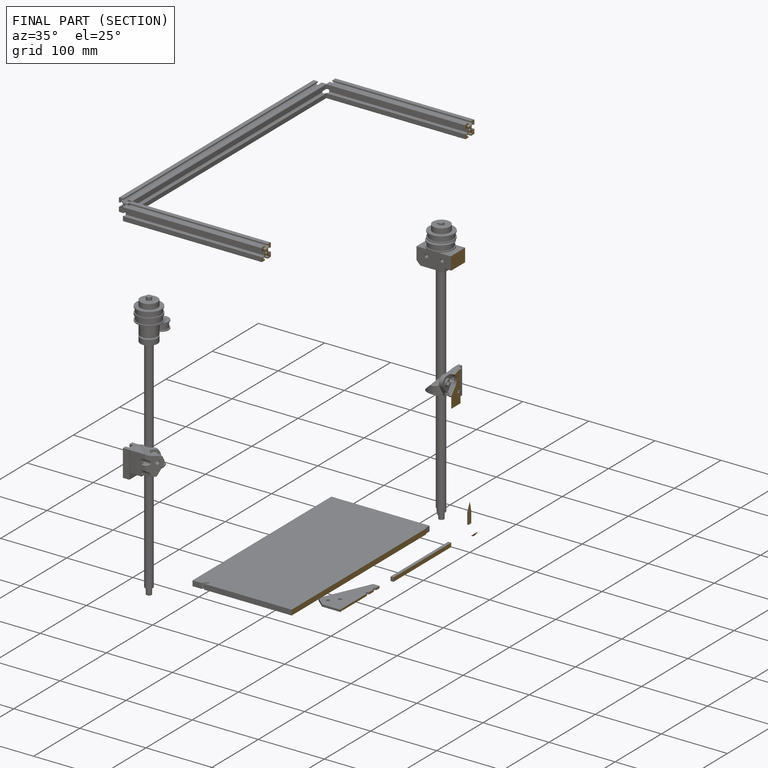
[diagram: finished part — half-section view (interior)]
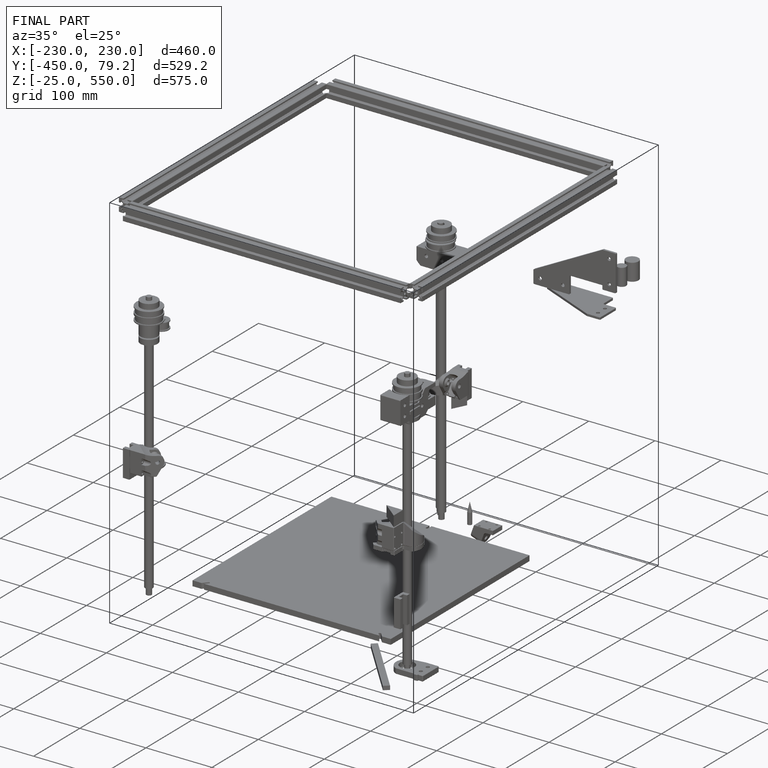
[diagram: finished part — iso view with bounding-box wireframe]
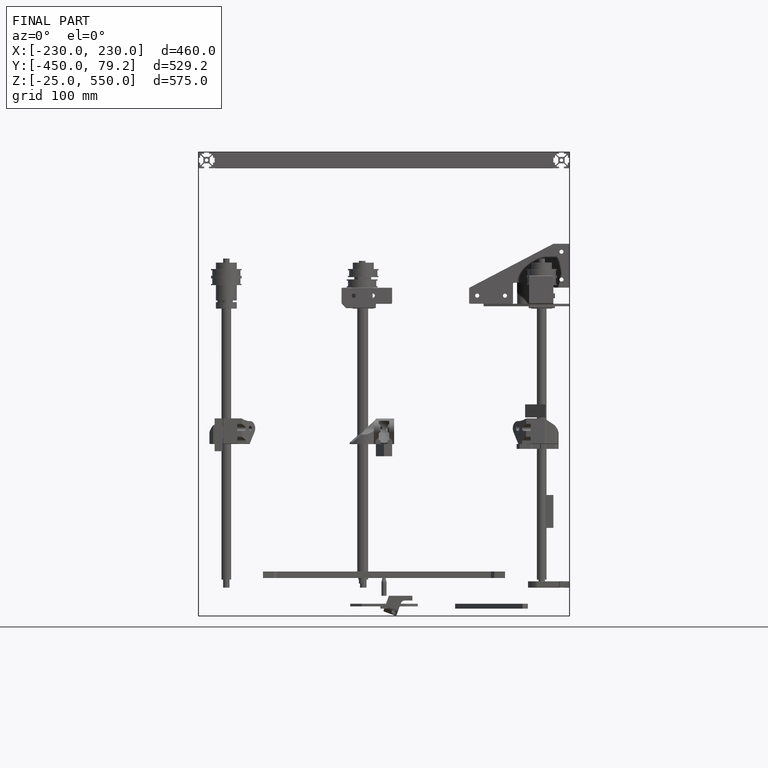
[diagram: finished part — front view with bounding-box wireframe]
